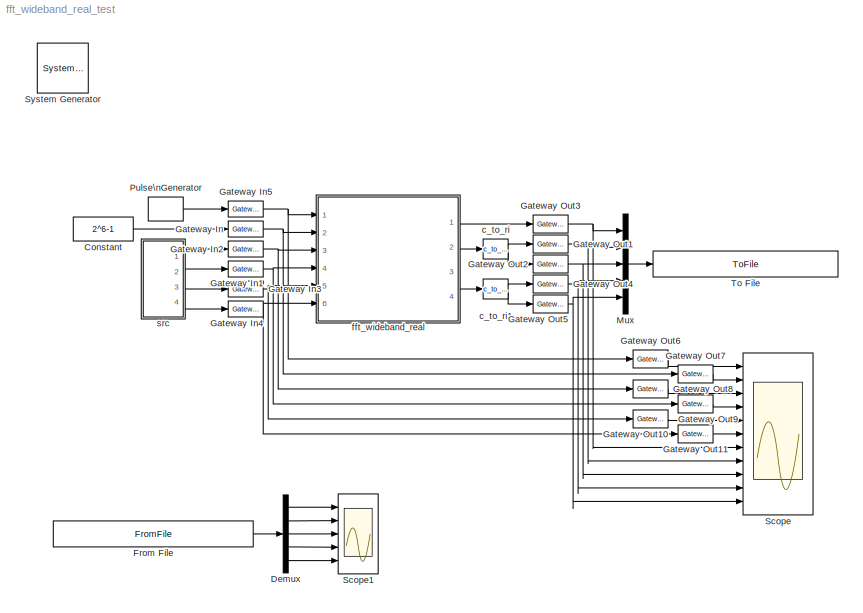
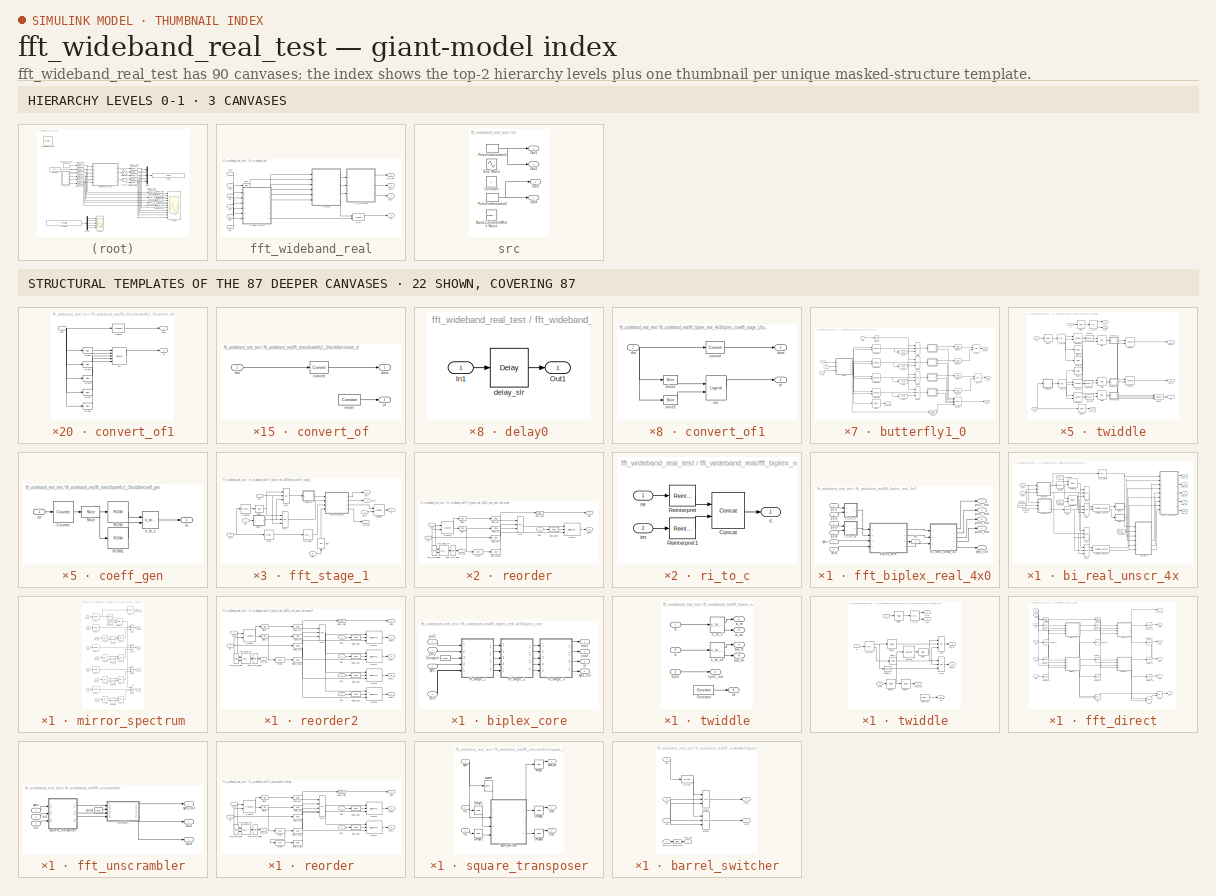
[diagram: thumbnail index - top-2 hierarchy levels (3 canvases) + 22 structural-template representatives of the remaining 87 canvases]
MODEL fft_wideband_real_test
KIND model
BLOCK [Reference]  System Generator  REF=xbsIndex_r4/ System Generator
  AttributesFormatString = System\\nGenerator
  FunctionWithSeparateData = off
  Ports = []
  RTWMemSecDataConstants = Inherit from model
  RTWMemSecDataInternal = Inherit from model
  RTWMemSecDataParameters = Inherit from model
  RTWMemSecFuncExecute = Inherit from model
  RTWMemSecFuncInitTerm = Inherit from model
  ShowPortLabels = FromPortIcon
  SourceBlock = xbsIndex_r4/ System Generator
  SourceType = Xilinx System Generator Block
  SystemSampleTime = -1
  Tag = genX
  UserData = DataTag0
  UserDataPersistent = on
  block_type = sysgen
  block_version = 10.1.1
  clock_wrapper = Clock Enables
  core_generation = According to Block Masks
  dbl_ovrd = According to Block Masks
  dcm_input_clock_period = 100
  deprecated_control = off
  directory = ./netlist
  eval_field = 0
  has_advanced_control = 0
  incr_netlist = off
  infoedit = System Generator
  package = ff668
  part = xc4vsx35
  run_coregen = off
  sg_icon_stat = 51,50,-1,-1,red,beige,0,07734,right
  sg_mask_display = fprintf('','COMMENT: begin icon graphics');\npatch([0 51 51 0 ],[0 0 50 50 ],[0.93 0.92 0.86]);\npatch([12 4 16 4 12 25 29 33 47 36 25 17 29 17 25 36 47 33 29 25 12 ],[5 13 25 37 45 45 41 45 45 34 45 37 25 13 5 16 5 5 9 5 5 ],[0.6 0.2 0.25]);\nplot([0 51 51 0 0 ],[0 0 50 50 0 ]);\nfprintf('','COMMENT: end icon graphics');\nfprintf('','COMMENT: begin icon text');\nfprintf('','COMMENT: end icon text...<+5ch>
  sggui_pos = -1,-1,-1,-1
  simulink_period = 1
  speed = -10
  synthesis_tool = XST
  sysclk_period = 100
  testbench = off
  trim_vbits = Everywhere in SubSystem
  xilinxfamily = Virtex4
BLOCK [Constant] Constant
  OutDataType = sfix(16)
  OutScaling = 2^0
  Value = 2^6-1
BLOCK [Demux] Demux
  DisplayOption = bar
  Outputs = 5
  Ports = [1, 5]
BLOCK [FromFile] From File
  FileName = fft_wideband_real_test_reference.mat
  SampleTime = 1
BLOCK [Reference] Gateway In  REF=xbsIndex_r4/Gateway In
  LOCs = {}
  Ports = [1, 1]
  SourceBlock = xbsIndex_r4/Gateway In
  SourceType = Xilinx Gateway In Block
  arith_type = Unsigned
  bin_pt = 0
  block_type = gatewayin
  block_version = 10.1.1
  dbl_ovrd = off
  has_advanced_control = 0
  infoedit = Gateway in block.  Converts inputs of type Simulink integer, double and fixed point to  Xilinx fixed point type.<P><P>Hardware notes:  In hardware these blocks become top level input ports.  <repeated x6 — deduplicated; at blocks: Gateway In, Gateway In1, Gateway In2, Gateway In3, Gateway In4, Gateway In5>
  locs_specified = off
  n_bits = 6
  overflow = Wrap
  period = 1
  quantization = Truncate
  sg_icon_stat = 35,16,1,1,white,yellow,0,bc55d28f,right
  sg_mask_display = fprintf('','COMMENT: begin icon graphics');\npatch([0 65 65 0 ],[0 0 20 20 ],[0.95 0.93 0.65]);\npatch([27 24 29 24 27 32 33 34 40 36 32 29 34 29 32 36 40 34 33 32 27 ],[2 5 10 15 18 18 17 18 18 14 18 15 10 5 2 6 2 2 3 2 2 ],[0.98 0.96 0.92]);\nplot([0 65 65 0 0 ],[0 0 20 20 0 ]);\nfprintf('','COMMENT: end icon graphics');\nfprintf('','COMMENT: begin icon text');\ncolor('black');port_label('input'...<+131ch>  <repeated x6 — deduplicated; at blocks: Gateway In, Gateway In1, Gateway In2, Gateway In3, Gateway In4, Gateway In5>
  sggui_pos = 2233,78,407,458
  timing_constraint = None
  xl_area = [0,0,0,0,0,0,0]
  xl_use_area = off
BLOCK [Reference] Gateway In1  REF=xbsIndex_r4/Gateway In
  LOCs = {}
  Ports = [1, 1]
  SourceBlock = xbsIndex_r4/Gateway In
  SourceType = Xilinx Gateway In Block
  arith_type = Signed  (2's comp)
  bin_pt = 11
  block_type = gatewayin
  block_version = 10.1.1
  dbl_ovrd = off
  has_advanced_control = 0
  locs_specified = off
  n_bits = 12
  overflow = Wrap
  period = 1
  quantization = Truncate
  sg_icon_stat = 35,16,1,1,white,yellow,0,bc55d28f,right
  sggui_pos = 1062,374,407,458
  timing_constraint = None
  xl_area = [0,0,0,0,0,0,0]
  xl_use_area = off
BLOCK [Reference] Gateway In2  REF=xbsIndex_r4/Gateway In
  LOCs = {}
  Ports = [1, 1]
  SourceBlock = xbsIndex_r4/Gateway In
  SourceType = Xilinx Gateway In Block
  arith_type = Signed  (2's comp)
  bin_pt = 11
  block_type = gatewayin
  block_version = 10.1.1
  dbl_ovrd = off
  has_advanced_control = 0
  locs_specified = off
  n_bits = 12
  overflow = Wrap
  period = 1
  quantization = Truncate
  sg_icon_stat = 35,16,1,1,white,yellow,0,bc55d28f,right
  sggui_pos = 1062,374,407,458
  timing_constraint = None
  xl_area = [0,0,0,0,0,0,0]
  xl_use_area = off
BLOCK [Reference] Gateway In3  REF=xbsIndex_r4/Gateway In
  LOCs = {}
  Ports = [1, 1]
  SourceBlock = xbsIndex_r4/Gateway In
  SourceType = Xilinx Gateway In Block
  arith_type = Signed  (2's comp)
  bin_pt = 11
  block_type = gatewayin
  block_version = 10.1.1
  dbl_ovrd = off
  has_advanced_control = 0
  locs_specified = off
  n_bits = 12
  overflow = Wrap
  period = 1
  quantization = Truncate
  sg_icon_stat = 35,16,1,1,white,yellow,0,bc55d28f,right
  sggui_pos = 1062,374,407,458
  timing_constraint = None
  xl_area = [0,0,0,0,0,0,0]
  xl_use_area = off
BLOCK [Reference] Gateway In4  REF=xbsIndex_r4/Gateway In
  LOCs = {}
  Ports = [1, 1]
  SourceBlock = xbsIndex_r4/Gateway In
  SourceType = Xilinx Gateway In Block
  arith_type = Signed  (2's comp)
  bin_pt = 11
  block_type = gatewayin
  block_version = 10.1.1
  dbl_ovrd = off
  has_advanced_control = 0
  locs_specified = off
  n_bits = 12
  overflow = Wrap
  period = 1
  quantization = Truncate
  sg_icon_stat = 35,16,1,1,white,yellow,0,bc55d28f,right
  sggui_pos = 1062,374,407,458
  timing_constraint = None
  xl_area = [0,0,0,0,0,0,0]
  xl_use_area = off
BLOCK [Reference] Gateway In5  REF=xbsIndex_r4/Gateway In
  LOCs = {}
  Ports = [1, 1]
  SourceBlock = xbsIndex_r4/Gateway In
  SourceType = Xilinx Gateway In Block
  arith_type = Boolean
  bin_pt = 14
  block_type = gatewayin
  block_version = 10.1.1
  dbl_ovrd = off
  has_advanced_control = 0
  locs_specified = off
  n_bits = 16
  overflow = Saturate
  period = 1
  quantization = Round  (unbiased: +/- Inf)
  sg_icon_stat = 35,16,1,1,white,yellow,0,bc55d28f,right
  sggui_pos = 20,20,407,458
  timing_constraint = None
  xl_area = [0,0,0,0,0,0,0]
  xl_use_area = off
BLOCK [Reference] Gateway Out1  REF=xbsIndex_r4/Gateway Out
  LOCs = {}
  Ports = [1, 1]
  SourceBlock = xbsIndex_r4/Gateway Out
  SourceType = Xilinx Gateway Out Block
  block_type = gatewayout
  block_version = 10.1.1
  has_advanced_control = 0
  hdl_port = on
  infoedit = Gateway out block.  Converts Xilinx fixed point inputs into ouputs of type Simulink integer, double, or fixed point.<P><P>Hardware notes:  In hardware these blocks become top level output ports or are discarded, depending on how they are configured.  <repeated x11 — deduplicated; at blocks: Gateway Out1, Gateway Out10, Gateway Out11, Gateway Out2, Gateway Out3, Gateway Out4, Gateway Out5, Gateway Out6, Gateway Out7, Gateway Out8, Gateway Out9>
  locs_specified = off
  sg_icon_stat = 35,18,1,1,white,yellow,0,38220381,right
  sg_mask_display = fprintf('','COMMENT: begin icon graphics');\npatch([0 35 35 0 ],[0 0 18 18 ],[0.95 0.93 0.65]);\npatch([13 10 14 10 13 18 19 20 25 21 17 14 18 14 17 21 25 20 19 18 13 ],[2 5 9 13 16 16 15 16 16 12 16 13 9 5 2 6 2 2 3 2 2 ],[0.98 0.96 0.92]);\nplot([0 35 35 0 0 ],[0 0 18 18 0 ]);\nfprintf('','COMMENT: end icon graphics');\nfprintf('','COMMENT: begin icon text');\ncolor('black');port_label('input',1...<+130ch>  <repeated x11 — deduplicated; at blocks: Gateway Out1, Gateway Out10, Gateway Out11, Gateway Out2, Gateway Out3, Gateway Out4, Gateway Out5, Gateway Out6, Gateway Out7, Gateway Out8, Gateway Out9>
  sggui_pos = -1,-1,-1,-1
  timing_constraint = None
  xl_area = [0,0,0,0,0,0,0]
  xl_use_area = off
BLOCK [Reference] Gateway Out10  REF=xbsIndex_r4/Gateway Out
  LOCs = {}
  Ports = [1, 1]
  SourceBlock = xbsIndex_r4/Gateway Out
  SourceType = Xilinx Gateway Out Block
  block_type = gatewayout
  block_version = 10.1.1
  has_advanced_control = 0
  hdl_port = on
  locs_specified = off
  sg_icon_stat = 35,18,1,1,white,yellow,0,38220381,right
  sggui_pos = -1,-1,-1,-1
  timing_constraint = None
  xl_area = [0,0,0,0,0,0,0]
  xl_use_area = off
BLOCK [Reference] Gateway Out11  REF=xbsIndex_r4/Gateway Out
  LOCs = {}
  Ports = [1, 1]
  SourceBlock = xbsIndex_r4/Gateway Out
  SourceType = Xilinx Gateway Out Block
  block_type = gatewayout
  block_version = 10.1.1
  has_advanced_control = 0
  hdl_port = on
  locs_specified = off
  sg_icon_stat = 35,18,1,1,white,yellow,0,38220381,right
  sggui_pos = -1,-1,-1,-1
  timing_constraint = None
  xl_area = [0,0,0,0,0,0,0]
  xl_use_area = off
BLOCK [Reference] Gateway Out2  REF=xbsIndex_r4/Gateway Out
  LOCs = {}
  Ports = [1, 1]
  SourceBlock = xbsIndex_r4/Gateway Out
  SourceType = Xilinx Gateway Out Block
  block_type = gatewayout
  block_version = 10.1.1
  has_advanced_control = 0
  hdl_port = on
  locs_specified = off
  sg_icon_stat = 35,18,1,1,white,yellow,0,38220381,right
  sggui_pos = -1,-1,-1,-1
  timing_constraint = None
  xl_area = [0,0,0,0,0,0,0]
  xl_use_area = off
BLOCK [Reference] Gateway Out3  REF=xbsIndex_r4/Gateway Out
  LOCs = {}
  Ports = [1, 1]
  SourceBlock = xbsIndex_r4/Gateway Out
  SourceType = Xilinx Gateway Out Block
  block_type = gatewayout
  block_version = 10.1.1
  has_advanced_control = 0
  hdl_port = on
  locs_specified = off
  sg_icon_stat = 35,18,1,1,white,yellow,0,38220381,right
  sggui_pos = -1,-1,-1,-1
  timing_constraint = None
  xl_area = [0,0,0,0,0,0,0]
  xl_use_area = off
BLOCK [Reference] Gateway Out4  REF=xbsIndex_r4/Gateway Out
  LOCs = {}
  Ports = [1, 1]
  SourceBlock = xbsIndex_r4/Gateway Out
  SourceType = Xilinx Gateway Out Block
  block_type = gatewayout
  block_version = 10.1.1
  has_advanced_control = 0
  hdl_port = on
  locs_specified = off
  sg_icon_stat = 35,18,1,1,white,yellow,0,38220381,right
  sggui_pos = -1,-1,-1,-1
  timing_constraint = None
  xl_area = [0,0,0,0,0,0,0]
  xl_use_area = off
BLOCK [Reference] Gateway Out5  REF=xbsIndex_r4/Gateway Out
  LOCs = {}
  Ports = [1, 1]
  SourceBlock = xbsIndex_r4/Gateway Out
  SourceType = Xilinx Gateway Out Block
  block_type = gatewayout
  block_version = 10.1.1
  has_advanced_control = 0
  hdl_port = on
  locs_specified = off
  sg_icon_stat = 35,18,1,1,white,yellow,0,38220381,right
  sggui_pos = -1,-1,-1,-1
  timing_constraint = None
  xl_area = [0,0,0,0,0,0,0]
  xl_use_area = off
BLOCK [Reference] Gateway Out6  REF=xbsIndex_r4/Gateway Out
  LOCs = {}
  Ports = [1, 1]
  SourceBlock = xbsIndex_r4/Gateway Out
  SourceType = Xilinx Gateway Out Block
  block_type = gatewayout
  block_version = 10.1.1
  has_advanced_control = 0
  hdl_port = on
  locs_specified = off
  sg_icon_stat = 35,18,1,1,white,yellow,0,38220381,right
  sggui_pos = -1,-1,-1,-1
  timing_constraint = None
  xl_area = [0,0,0,0,0,0,0]
  xl_use_area = off
BLOCK [Reference] Gateway Out7  REF=xbsIndex_r4/Gateway Out
  LOCs = {}
  Ports = [1, 1]
  SourceBlock = xbsIndex_r4/Gateway Out
  SourceType = Xilinx Gateway Out Block
  block_type = gatewayout
  block_version = 10.1.1
  has_advanced_control = 0
  hdl_port = on
  locs_specified = off
  sg_icon_stat = 35,18,1,1,white,yellow,0,38220381,right
  sggui_pos = -1,-1,-1,-1
  timing_constraint = None
  xl_area = [0,0,0,0,0,0,0]
  xl_use_area = off
BLOCK [Reference] Gateway Out8  REF=xbsIndex_r4/Gateway Out
  LOCs = {}
  Ports = [1, 1]
  SourceBlock = xbsIndex_r4/Gateway Out
  SourceType = Xilinx Gateway Out Block
  block_type = gatewayout
  block_version = 10.1.1
  has_advanced_control = 0
  hdl_port = on
  locs_specified = off
  sg_icon_stat = 35,18,1,1,white,yellow,0,38220381,right
  sggui_pos = -1,-1,-1,-1
  timing_constraint = None
  xl_area = [0,0,0,0,0,0,0]
  xl_use_area = off
BLOCK [Reference] Gateway Out9  REF=xbsIndex_r4/Gateway Out
  LOCs = {}
  Ports = [1, 1]
  SourceBlock = xbsIndex_r4/Gateway Out
  SourceType = Xilinx Gateway Out Block
  block_type = gatewayout
  block_version = 10.1.1
  has_advanced_control = 0
  hdl_port = on
  locs_specified = off
  sg_icon_stat = 35,18,1,1,white,yellow,0,38220381,right
  sggui_pos = -1,-1,-1,-1
  timing_constraint = None
  xl_area = [0,0,0,0,0,0,0]
  xl_use_area = off
BLOCK [Mux] Mux
  DisplayOption = bar
  Inputs = 5
  Ports = [5, 1]
BLOCK [DiscretePulseGenerator] Pulse\nGenerator
  Period = 2^6
  PhaseDelay = 13
  Ports = [0, 1]
BLOCK [Scope] Scope
  DataFormat = StructureWithTime
  Floating = off
  NumInputPorts = 11
  Ports = [11]
  SampleTime = 0
  TimeRange = 256
  YMax = 5~5~5~5~5~5~5~5~5~5~5
  YMin = -5~-5~-5~-5~-5~-5~-5~-5~-5~-5~-5
  ZoomMode = xonly
BLOCK [Scope] Scope1
  DataFormat = StructureWithTime
  Floating = off
  NumInputPorts = 5
  Ports = [5]
  SampleTime = 0
  SaveName = ScopeData1
  YMax = 5~5~5~5~5
  YMin = -5~-5~-5~-5~-5
BLOCK [ToFile] To File
  Filename = fft_wideband_real_test_output.mat
  MatrixName = output
BLOCK [Reference] c_to_ri  REF=casper_library/Misc/c_to_ri  (lib defined in mdl_138b2fc3435f, mdl_4ed325b712b3, +2 more)
  AttributesFormatString = 12_11 r/i
  FunctionWithSeparateData = off
  Ports = [1, 2]
  RTWMemSecDataConstants = Inherit from model
  RTWMemSecDataInternal = Inherit from model
  RTWMemSecDataParameters = Inherit from model
  RTWMemSecFuncExecute = Inherit from model
  RTWMemSecFuncInitTerm = Inherit from model
  ShowPortLabels = FromPortIcon
  SourceBlock = casper_library/Misc/c_to_ri
  SourceType = c_to_ri
  SystemSampleTime = -1
  UserData = DataTag1
  UserDataPersistent = on
  bin_pt = 11
  n_bits = 12
BLOCK [Reference] c_to_ri1  REF=casper_library/Misc/c_to_ri  (lib defined in mdl_138b2fc3435f, mdl_4ed325b712b3, +2 more)
  AttributesFormatString = 12_11 r/i
  FunctionWithSeparateData = off
  Ports = [1, 2]
  RTWMemSecDataConstants = Inherit from model
  RTWMemSecDataInternal = Inherit from model
  RTWMemSecDataParameters = Inherit from model
  RTWMemSecFuncExecute = Inherit from model
  RTWMemSecFuncInitTerm = Inherit from model
  ShowPortLabels = FromPortIcon
  SourceBlock = casper_library/Misc/c_to_ri
  SourceType = c_to_ri
  SystemSampleTime = -1
  UserData = DataTag2
  UserDataPersistent = on
  bin_pt = 11
  n_bits = 12
BLOCK [SubSystem] fft_wideband_real
  AncestorBlock = casper_library/FFTs/fft_wideband_real
  AttributesFormatString = FFTSize=5
  FunctionWithSeparateData = off
  MaskCallbackString = fft_size = eval(get_param(gcb, 'FFTSize'));\nold_vec = eval(get_param(gcb, 'mult_spec'));\n\nvec = 2.*ones(1,fft_size);\nold_size = length(old_vec);\n\nif(old_size <= fft_size), \n    size = old_size;\nelse, \n    size = fft_size;\nend\n\nfor n = 1:size, vec(n) = old_vec(n); end\nset_param(gcb, 'mult_spec', mat2str(vec));|||||||||||||specify_mult = get_param(gcb,'specify_mult');\nvisibs = get_para...<+578ch>
  MaskEnableString = on,on,on,on,on,on,on,on,on,on,on,on,on,on,on
  MaskHelp = eval('xlWeb([getenv(''MLIB_ROOT''), ''<path>''])')
  MaskIconFrame = on
  MaskIconOpaque = on
  MaskIconRotate = none
  MaskIconUnits = autoscale
  MaskInitialization = fft_wideband_real_init(gcb,...\n    'FFTSize', FFTSize,...\n    'input_bit_width', input_bit_width,...\n    'coeff_bit_width', coeff_bit_width,...\n    'n_inputs', n_inputs,...\n    'quantization', quantization,...\n    'overflow', overflow,...\n    'add_latency', add_latency,...\n    'mult_latency', mult_latency,...\n    'bram_latency', bram_latency,...\n    'arch', arch, ...\n    'opt_target', o...<+180ch>
  MaskPromptString = Size of FFT: (2^?)|Input/Output Bit Width|Coefficient Bit Width|Number of Simultaneous Inputs: (2^?)|Quantization Behavior|Overflow Behavior|Add Latency|Mult Latency|BRAM Latency|Architecture|Optimisation Target|Number bits above which to store stage's coefficients in BRAM (2^? bits)|Number bits above which to store stage's delays in BRAM (2^? bits)|Specify multiplier use (behavioral HDL if not sp...<+86ch>
  MaskSelfModifiable = on
  MaskStyleString = edit,edit,edit,edit,popup(Truncate|Round  (unbiased: +/- Inf)|Round  (unbiased: Even Values)),popup(Wrap|Saturate|Error),edit,edit,edit,popup(Virtex2Pro|Virtex5),popup(Logic|Multipliers),edit,edit,checkbox,edit
  MaskTabNameString = ,,,,,,,,,,,,,,
  MaskToolTipString = on,on,on,on,on,on,on,on,on,on,on,on,on,on,on
  MaskTunableValueString = on,on,on,on,on,on,on,on,on,on,on,on,on,on,on
  MaskType = fft_wideband_real
  MaskValueString = 5|12|12|2|Round  (unbiased: Even Values)|Saturate|1|2|1|Virtex2Pro|Multipliers|8|8|off|[2 2 2 2 2]
  MaskVarAliasString = ,,,,,,,,,,,,,,
  MaskVariables = FFTSize=@1;input_bit_width=@2;coeff_bit_width=@3;n_inputs=@4;quantization=&5;overflow=&6;add_latency=@7;mult_latency=@8;bram_latency=@9;arch=&10;opt_target=&11;coeffs_bit_limit=@12;delays_bit_limit=@13;specify_mult=&14;mult_spec=@15;
  MaskVisibilityString = on,on,on,on,on,on,on,on,on,on,on,on,on,on,off
  MinAlgLoopOccurrences = off
  Ports = [6, 4]
  RTWSystemCode = Auto
  UserData = DataTag3
  UserDataPersistent = on
BLOCK [SubSystem] fft_wideband_real/fft_biplex_real_4x0
  AncestorBlock = casper_library/FFTs/fft_biplex_real_4x
  AttributesFormatString = FFTSize=3
  FunctionWithSeparateData = off
  MaskCallbackString = fft_size = eval(get_param(gcb, 'FFTSize'));\nold_vec = eval(get_param(gcb, 'mult_spec'));\n\nvec = 2.*ones(1,fft_size);\nold_size = length(old_vec);\n\nif(old_size <= fft_size), \n    size = old_size;\nelse, \n    size = fft_size;\nend\n\nfor n = 1:size, vec(n) = old_vec(n); end\nset_param(gcb, 'mult_spec', mat2str(vec));||||||||||||specify_mult = get_param(gcb,'specify_mult');\nvisibs = get_param...<+577ch>
  MaskEnableString = on,on,on,on,on,on,on,on,on,on,on,on,on,on
  MaskHelp = eval('xlWeb([getenv(''MLIB_ROOT''), ''<path>''])')
  MaskIconFrame = on
  MaskIconOpaque = on
  MaskIconRotate = none
  MaskIconUnits = autoscale
  MaskInitialization = fft_biplex_real_4x_init(gcb, ...\n    'FFTSize', FFTSize, ...\n    'input_bit_width', input_bit_width, ...\n    'coeff_bit_width', coeff_bit_width, ...\n    'quantization', quantization, ...\n    'overflow', overflow, ...\n    'add_latency', add_latency, ...\n    'mult_latency', mult_latency, ...\n    'bram_latency', bram_latency, ...\n    'arch', arch, ...\n    'opt_target', opt_target, ...\n    ...<+165ch>
  MaskPromptString = Size of FFT: (2^? pnts)|Input/Output Bit Width|Coefficient Bit Width|Quantization Behavior|Overflow Behavior|Add Latency|Mult Latency|BRAM Latency|Architecture|Optimisation Target|Number bits above which to store stage's coefficients in BRAM (2^? bits)|Number bits above which to implement stage's delays in BRAM (2^? bits)|Specify multiplier use (behavioral HDL if not specified)|Multiplier specific...<+58ch>
  MaskSelfModifiable = on
  MaskStyleString = edit,edit,edit,popup(Truncate|Round  (unbiased: +/- Inf)|Round  (unbiased: Even Values)),popup(Wrap|Saturate|Error),edit,edit,edit,popup(Virtex2Pro|Virtex5),popup(Logic|Multipliers),edit,edit,checkbox,edit
  MaskTabNameString = ,,,,,,,,,,,,,
  MaskToolTipString = on,on,on,on,on,on,on,on,on,on,on,on,on,on
  MaskTunableValueString = on,on,on,on,on,on,on,on,on,on,on,on,on,on
  MaskType = fft_biplex_real_4x
  MaskValueString = 3|12|12|Round  (unbiased: Even Values)|Saturate|1|2|1|Virtex2Pro|Multipliers|8|8|off|[2 2 2]
  MaskVarAliasString = ,,,,,,,,,,,,,
  MaskVariables = FFTSize=@1;input_bit_width=@2;coeff_bit_width=@3;quantization=&4;overflow=&5;add_latency=@6;mult_latency=@7;bram_latency=@8;arch=&9;opt_target=&10;coeffs_bit_limit=@11;delays_bit_limit=@12;specify_mult=&13;mult_spec=@14;
  MaskVisibilityString = on,on,on,on,on,on,on,on,on,on,on,on,on,on
  MinAlgLoopOccurrences = off
  Ports = [6, 6]
  RTWSystemCode = Auto
  UserData = DataTag4
  UserDataPersistent = on
BLOCK [SubSystem] fft_wideband_real/fft_biplex_real_4x0/bi_real_unscr_4x
  FunctionWithSeparateData = off
  MaskCallbackString = |
  MaskEnableString = on,on
  MaskIconFrame = on
  MaskIconOpaque = on
  MaskIconRotate = none
  MaskIconUnits = autoscale
  MaskInitialization = blk = gcb;\n\nset_param([blk,'/reorder'],'map', mat2str(bit_reverse(0:2^(FFTSize-1)-1, FFTSize-1)));\nset_param([blk,'/reorder'],'bram_latency', num2str(bram_latency));\nset_param([blk,'/reorder1'],'map', mat2str(bit_reverse(2^(FFTSize-1)-1:-1:0, FFTSize-1)));\nset_param([blk,'/reorder1'],'bram_latency', num2str(bram_latency));\nset_param([blk,'/reorder2'],'map', mat2str(2^(FFTSize-1)-1:-1:0));\ns...<+66ch>
  MaskPromptString = Size of FFT (2^?):|BRAM Latency
  MaskStyleString = edit,edit
  MaskTabNameString = ,
  MaskToolTipString = on,on
  MaskTunableValueString = on,on
  MaskValueString = 3|1
  MaskVarAliasString = ,
  MaskVariables = FFTSize=@1;bram_latency=@2;
  MaskVisibilityString = on,on
  MinAlgLoopOccurrences = off
  Ports = [3, 5]
  RTWSystemCode = Auto
BLOCK [Reference] fft_wideband_real/fft_biplex_real_4x0/bi_real_unscr_4x/Constant  REF=xbsIndex_r4/Constant
  Ports = [0, 1]
  SourceBlock = xbsIndex_r4/Constant
  SourceType = Xilinx Constant Block Block
  arith_type = Boolean
  bin_pt = 0
  block_type = constant
  block_version = 9.1.01
  carry = CIN
  const = 1
  dbl_ovrd = off
  dsp48_infoedit = The use of this block for DSP48 instructions is deprecated.  Please use the Opmode block.
  equ = P=C
  explicit_period = on
  has_advanced_control = 0
  inp1 = P
  inp2 = PCIN>>17
  n_bits = 1
  opr = +
  opselect = C
  period = 1
  sg_icon_stat = 40,20,0,1,white,blue,0,06094819,right
  sg_mask_display = fprintf('','COMMENT: begin icon graphics');\npatch([0 55 55 0 ],[0 0 26 26 ],[0.77 0.82 0.91]);\npatch([20 16 22 16 20 27 29 31 38 32 26 22 28 22 26 32 38 31 29 27 20 ],[3 7 13 19 23 23 21 23 23 17 23 19 13 7 3 9 3 3 5 3 3 ],[0.98 0.96 0.92]);\nplot([0 55 55 0 0 ],[0 0 26 26 0 ]);\nfprintf('','COMMENT: end icon graphics');\nfprintf('','COMMENT: begin icon text');\ncolor('black');port_label('output...<+50ch>  <repeated x23 — deduplicated; at blocks: Constant, Constant1, Constant2, Constant5, Constant3, never, const>
  sggui_pos = -1,-1,-1,-1
BLOCK [Reference] fft_wideband_real/fft_biplex_real_4x0/bi_real_unscr_4x/Constant1  REF=xbsIndex_r4/Constant
  Ports = [0, 1]
  SourceBlock = xbsIndex_r4/Constant
  SourceType = Xilinx Constant Block Block
  arith_type = Unsigned
  bin_pt = 0
  block_type = constant
  block_version = 9.1.01
  carry = CIN
  const = 2^(FFTSize-1)
  dbl_ovrd = off
  dsp48_infoedit = The use of this block for DSP48 instructions is deprecated.  Please use the Opmode block.
  equ = P=C
  explicit_period = on
  has_advanced_control = 0
  inp1 = P
  inp2 = PCIN>>17
  n_bits = FFTSize
  opr = +
  opselect = C
  period = 1
  sg_icon_stat = 35,18,0,1,white,blue,0,b20b18e0,right
  sggui_pos = -1,-1,-1,-1
BLOCK [Reference] fft_wideband_real/fft_biplex_real_4x0/bi_real_unscr_4x/Constant2  REF=xbsIndex_r4/Constant
  Ports = [0, 1]
  SourceBlock = xbsIndex_r4/Constant
  SourceType = Xilinx Constant Block Block
  arith_type = Unsigned
  bin_pt = 0
  block_type = constant
  block_version = 9.1.01
  carry = CIN
  const = 0
  dbl_ovrd = off
  dsp48_infoedit = The use of this block for DSP48 instructions is deprecated.  Please use the Opmode block.
  equ = P=C
  explicit_period = on
  has_advanced_control = 0
  inp1 = P
  inp2 = PCIN>>17
  n_bits = FFTSize
  opr = +
  opselect = C
  period = 1
  sg_icon_stat = 35,18,0,1,white,blue,0,72d575a1,right
  sggui_pos = -1,-1,-1,-1
BLOCK [Reference] fft_wideband_real/fft_biplex_real_4x0/bi_real_unscr_4x/Constant5  REF=xbsIndex_r4/Constant
  Ports = [0, 1]
  SourceBlock = xbsIndex_r4/Constant
  SourceType = Xilinx Constant Block Block
  arith_type = Boolean
  bin_pt = 0
  block_type = constant
  block_version = 9.1.01
  carry = CIN
  const = 1
  dbl_ovrd = off
  dsp48_infoedit = The use of this block for DSP48 instructions is deprecated.  Please use the Opmode block.
  equ = P=C
  explicit_period = on
  has_advanced_control = 0
  inp1 = P
  inp2 = PCIN>>17
  n_bits = 1
  opr = +
  opselect = C
  period = 1
  sg_icon_stat = 40,20,0,1,white,blue,0,06094819,right
  sggui_pos = -1,-1,-1,-1
BLOCK [Reference] fft_wideband_real/fft_biplex_real_4x0/bi_real_unscr_4x/Counter  REF=xbsIndex_r4/Counter
  Ports = [1, 1]
  SourceBlock = xbsIndex_r4/Counter
  SourceType = Xilinx Counter Block
  arith_type = Unsigned
  bin_pt = 0
  block_type = counter
  block_version = 9.1.01
  cnt_by_val = 1
  cnt_to = Inf
  cnt_type = Free Running
  dbl_ovrd = off
  en = off
  explicit_period = off
  has_advanced_control = 0
  implementation = Fabric
  infoedit = Hardware notes: Free running counters are the least expensive in hardware.  A count limited counter is implemented by combining a counter with a comparator.
  load_pin = off
  n_bits = FFTSize
  operation = Up
  period = 1
  rst = on
  sg_icon_stat = 35,36,1,1,white,blue,0,300e9576,right
  sg_mask_display = fprintf('','COMMENT: begin icon graphics');\npatch([0 60 60 0 ],[0 0 60 60 ],[0.77 0.82 0.91]);\npatch([14 4 18 4 14 30 34 38 55 42 29 20 35 20 29 42 55 38 34 30 14 ],[6 16 30 44 54 54 50 54 54 41 54 45 30 15 6 19 6 6 10 6 6 ],[0.98 0.96 0.92]);\nplot([0 60 60 0 0 ],[0 0 60 60 0 ]);\nfprintf('','COMMENT: end icon graphics');\nfprintf('','COMMENT: begin icon text');\ncolor('black');port_label('inpu...<+99ch>  <repeated x12 — deduplicated; at blocks: Counter, counter>
  sggui_pos = -1,-1,-1,-1
  start_count = 0
  use_behavioral_HDL = off
  use_rpm = on
  xl_area = [0, 0, 0, 0, 0, 0, 0]
  xl_use_area = off
BLOCK [Reference] fft_wideband_real/fft_biplex_real_4x0/bi_real_unscr_4x/Delay  REF=xbsIndex_r4/Delay
  Ports = [1, 1]
  SourceBlock = xbsIndex_r4/Delay
  SourceType = Xilinx Delay Block
  block_type = delay
  block_version = 9.1.01
  dbl_ovrd = off
  en = off
  has_advanced_control = 0
  infoedit = Hardware notes: A delay line is a chain, each link of which is an SRL16 followed by a flip-flop.
  latency = 1
  reg_retiming = off
  sg_icon_stat = 30,32,1,1,white,blue,0,fc531c0e,right
  sg_mask_display = fprintf('','COMMENT: begin icon graphics');\npatch([0 60 60 0 ],[0 0 56 56 ],[0.77 0.82 0.91]);\npatch([15 6 19 6 15 30 34 38 54 41 29 20 32 20 29 41 54 38 34 30 15 ],[6 15 28 41 50 50 46 50 50 37 49 40 28 16 7 19 6 6 10 6 6 ],[0.98 0.96 0.92]);\nplot([0 60 60 0 0 ],[0 0 56 56 0 ]);\nfprintf('','COMMENT: end icon graphics');\nfprintf('','COMMENT: begin icon text');\ncolor('black');disp('z^{-1}','t...<+55ch>  <repeated x71 — deduplicated; at blocks: Delay, Delay1, delay_din0, delay_din1, delay_din2, delay_din3, Delay2, Delay3, Delay4, Delay5, delay_slr, Delayb1, Delayf2, Delay_sync, delay0>
  sggui_pos = -1,-1,-1,-1
  xl_area = [0, 0, 0, 0, 0, 0, 0]
  xl_use_area = off
BLOCK [Reference] fft_wideband_real/fft_biplex_real_4x0/bi_real_unscr_4x/Mux  REF=xbsIndex_r4/Mux
  Ports = [3, 1]
  SourceBlock = xbsIndex_r4/Mux
  SourceType = Xilinx Bus Multiplexer Block
  arith_type = Signed  (2's comp)
  bin_pt = 2
  block_type = mux
  block_version = 9.1.01
  dbl_ovrd = off
  en = off
  has_advanced_control = 0
  inputs = 2
  latency = 1
  n_bits = 8
  overflow = Wrap
  precision = Full
  quantization = Truncate
  sg_icon_stat = 25,66,3,1,white,blue,3,03f9c9b9,right
  sg_mask_display = fprintf('','COMMENT: begin icon graphics');\npatch([0 45 45 0 ],[0 14.8571 89.1429 104 ],[0.77 0.82 0.91]);\npatch([10 3 14 3 10 22 25 28 41 31 21 14 25 14 21 31 41 28 25 22 10 ],[34 41 52 63 70 70 67 70 70 60 70 63 52 41 34 44 34 34 37 34 34 ],[0.98 0.96 0.92]);\nplot([0 45 45 0 0 ],[0 14.8571 89.1429 104 0 ]);\nfprintf('','COMMENT: end icon graphics');\nfprintf('','COMMENT: begin icon text');\nc...<+226ch>  <repeated x49 — deduplicated; at blocks: Mux, Mux1, Mux2, Mux3, Mux11, Mux21>
  sggui_pos = -1,-1,-1,-1
  xl_area = [0, 0, 0, 0, 0, 0, 0]
  xl_use_area = off
BLOCK [Reference] fft_wideband_real/fft_biplex_real_4x0/bi_real_unscr_4x/Mux1  REF=xbsIndex_r4/Mux
  Ports = [3, 1]
  SourceBlock = xbsIndex_r4/Mux
  SourceType = Xilinx Bus Multiplexer Block
  arith_type = Signed  (2's comp)
  bin_pt = 2
  block_type = mux
  block_version = 9.1.01
  dbl_ovrd = off
  en = off
  has_advanced_control = 0
  inputs = 2
  latency = 1
  n_bits = 8
  overflow = Wrap
  precision = Full
  quantization = Truncate
  sg_icon_stat = 25,66,3,1,white,blue,3,03f9c9b9,right
  sggui_pos = -1,-1,-1,-1
  xl_area = [0, 0, 0, 0, 0, 0, 0]
  xl_use_area = off
BLOCK [Reference] fft_wideband_real/fft_biplex_real_4x0/bi_real_unscr_4x/Mux2  REF=xbsIndex_r4/Mux
  Ports = [3, 1]
  SourceBlock = xbsIndex_r4/Mux
  SourceType = Xilinx Bus Multiplexer Block
  arith_type = Signed  (2's comp)
  bin_pt = 2
  block_type = mux
  block_version = 9.1.01
  dbl_ovrd = off
  en = off
  has_advanced_control = 0
  inputs = 2
  latency = 1
  n_bits = 8
  overflow = Wrap
  precision = Full
  quantization = Truncate
  sg_icon_stat = 25,66,3,1,white,blue,3,03f9c9b9,right
  sggui_pos = -1,-1,-1,-1
  xl_area = [0, 0, 0, 0, 0, 0, 0]
  xl_use_area = off
BLOCK [Reference] fft_wideband_real/fft_biplex_real_4x0/bi_real_unscr_4x/Mux3  REF=xbsIndex_r4/Mux
  Ports = [3, 1]
  SourceBlock = xbsIndex_r4/Mux
  SourceType = Xilinx Bus Multiplexer Block
  arith_type = Signed  (2's comp)
  bin_pt = 2
  block_type = mux
  block_version = 9.1.01
  dbl_ovrd = off
  en = off
  has_advanced_control = 0
  inputs = 2
  latency = 1
  n_bits = 8
  overflow = Wrap
  precision = Full
  quantization = Truncate
  sg_icon_stat = 25,66,3,1,white,blue,3,03f9c9b9,right
  sggui_pos = -1,-1,-1,-1
  xl_area = [0, 0, 0, 0, 0, 0, 0]
  xl_use_area = off
BLOCK [Reference] fft_wideband_real/fft_biplex_real_4x0/bi_real_unscr_4x/Relational  REF=xbsIndex_r4/Relational
  Ports = [2, 1]
  SourceBlock = xbsIndex_r4/Relational
  SourceType = Xilinx Arithmetic Relational Operator Block
  block_type = relational
  block_version = 9.1.01
  dbl_ovrd = off
  en = off
  has_advanced_control = 0
  latency = 0
  mode = a=b
  sg_icon_stat = 45,44,2,1,white,blue,0,1b68ef8e,right
  sg_mask_display = fprintf('','COMMENT: begin icon graphics');\npatch([0 55 55 0 ],[0 0 56 56 ],[0.77 0.82 0.91]);\npatch([13 4 17 4 13 28 32 36 52 40 28 19 32 19 28 40 52 36 32 28 13 ],[6 15 28 41 50 50 46 50 50 38 50 41 28 15 6 18 6 6 10 6 6 ],[0.98 0.96 0.92]);\nplot([0 55 55 0 0 ],[0 0 56 56 0 ]);\nfprintf('','COMMENT: end icon graphics');\nfprintf('','COMMENT: begin icon text');\ncolor('black');port_label('inpu...<+168ch>  <repeated x3 — deduplicated; at blocks: Relational, Relational1>
  sggui_pos = -1,-1,-1,-1
  xl_area = [0, 0, 0, 0, 0, 0, 0]
  xl_use_area = off
BLOCK [Reference] fft_wideband_real/fft_biplex_real_4x0/bi_real_unscr_4x/Relational1  REF=xbsIndex_r4/Relational
  Ports = [2, 1]
  SourceBlock = xbsIndex_r4/Relational
  SourceType = Xilinx Arithmetic Relational Operator Block
  block_type = relational
  block_version = 9.1.01
  dbl_ovrd = off
  en = off
  has_advanced_control = 0
  latency = 0
  mode = a=b
  sg_icon_stat = 45,44,2,1,white,blue,0,1b68ef8e,right
  sggui_pos = -1,-1,-1,-1
  xl_area = [0, 0, 0, 0, 0, 0, 0]
  xl_use_area = off
BLOCK [Reference] fft_wideband_real/fft_biplex_real_4x0/bi_real_unscr_4x/complex_addsub  REF=casper_library/Misc/complex_addsub  (lib defined in mdl_138b2fc3435f, mdl_4ed325b712b3, +2 more)
  BitWidth = input_bit_width
  FunctionWithSeparateData = off
  Ports = [2, 2]
  RTWMemSecDataConstants = Inherit from model
  RTWMemSecDataInternal = Inherit from model
  RTWMemSecDataParameters = Inherit from model
  RTWMemSecFuncExecute = Inherit from model
  RTWMemSecFuncInitTerm = Inherit from model
  ShowPortLabels = FromPortIcon
  SourceBlock = casper_library/Misc/complex_addsub
  SourceType = complex_addsub
  SystemSampleTime = -1
  add_latency = add_latency
BLOCK [Reference] fft_wideband_real/fft_biplex_real_4x0/bi_real_unscr_4x/complex_addsub1  REF=casper_library/Misc/complex_addsub  (lib defined in mdl_138b2fc3435f, mdl_4ed325b712b3, +2 more)
  BitWidth = input_bit_width
  FunctionWithSeparateData = off
  Ports = [2, 2]
  RTWMemSecDataConstants = Inherit from model
  RTWMemSecDataInternal = Inherit from model
  RTWMemSecDataParameters = Inherit from model
  RTWMemSecFuncExecute = Inherit from model
  RTWMemSecFuncInitTerm = Inherit from model
  ShowPortLabels = FromPortIcon
  SourceBlock = casper_library/Misc/complex_addsub
  SourceType = complex_addsub
  SystemSampleTime = -1
  add_latency = add_latency
BLOCK [SubSystem] fft_wideband_real/fft_biplex_real_4x0/bi_real_unscr_4x/delay0
  AncestorBlock = casper_library/Delays/delay_slr
  FunctionWithSeparateData = off
  MaskDescription = A delay block that uses slices (SLR16s) for its storage.
  MaskEnableString = on
  MaskHelp = eval('xlWeb([getenv(''MLIB_ROOT''), ''<path>''])')
  MaskIconFrame = on
  MaskIconOpaque = on
  MaskIconRotate = none
  MaskIconUnits = autoscale
  MaskPromptString = Delay by:
  MaskStyleString = edit
  MaskToolTipString = on
  MaskTunableValueString = on
  MaskType = delay_slr
  MaskValueString = 2^(FFTSize-1)
  MaskVariables = DelayLen=@1;
  MaskVisibilityString = on
  MinAlgLoopOccurrences = off
  Ports = [1, 1]
  RTWSystemCode = Auto
BLOCK [Inport] fft_wideband_real/fft_biplex_real_4x0/bi_real_unscr_4x/delay0/In1
  IconDisplay = Port number
  OutDataType = sfix(16)
  OutScaling = 2^0
BLOCK [Outport] fft_wideband_real/fft_biplex_real_4x0/bi_real_unscr_4x/delay0/Out1
  IconDisplay = Port number
  OutDataType = sfix(16)
  OutScaling = 2^0
BLOCK [Reference] fft_wideband_real/fft_biplex_real_4x0/bi_real_unscr_4x/delay0/delay_slr  REF=xbsIndex_r4/Delay
  Ports = [1, 1]
  SourceBlock = xbsIndex_r4/Delay
  SourceType = Xilinx Delay Block
  block_type = delay
  block_version = 9.1.01
  dbl_ovrd = off
  en = off
  has_advanced_control = 0
  infoedit = Hardware notes: A delay line is a chain, each link of which is an SRL16 followed by a flip-flop.
  latency = DelayLen
  reg_retiming = off
  sg_icon_stat = 45,46,1,1,white,blue,0,c2217bc4,right
  sg_mask_display = fprintf('','COMMENT: begin icon graphics');\npatch([0 60 60 0 ],[0 0 56 56 ],[0.77 0.82 0.91]);\npatch([15 6 19 6 15 30 34 38 54 41 29 20 32 20 29 41 54 38 34 30 15 ],[6 15 28 41 50 50 46 50 50 37 49 40 28 16 7 19 6 6 10 6 6 ],[0.98 0.96 0.92]);\nplot([0 60 60 0 0 ],[0 0 56 56 0 ]);\nfprintf('','COMMENT: end icon graphics');\nfprintf('','COMMENT: begin icon text');\ncolor('black');disp('z^{-4}','t...<+55ch>  <repeated x12 — deduplicated; at blocks: delay_slr, Delay, Delay1, Delay3, Delay4>
  sggui_pos = -1,-1,-1,-1
  xl_area = [0, 0, 0, 0, 0, 0, 0]
  xl_use_area = off
BLOCK [SubSystem] fft_wideband_real/fft_biplex_real_4x0/bi_real_unscr_4x/delay1
  AncestorBlock = casper_library/Delays/delay_slr
  FunctionWithSeparateData = off
  MaskDescription = A delay block that uses slices (SLR16s) for its storage.
  MaskEnableString = on
  MaskHelp = eval('xlWeb([getenv(''MLIB_ROOT''), ''<path>''])')
  MaskIconFrame = on
  MaskIconOpaque = on
  MaskIconRotate = none
  MaskIconUnits = autoscale
  MaskPromptString = Delay by:
  MaskStyleString = edit
  MaskToolTipString = on
  MaskTunableValueString = on
  MaskType = delay_slr
  MaskValueString = 2^(FFTSize-1)
  MaskVariables = DelayLen=@1;
  MaskVisibilityString = on
  MinAlgLoopOccurrences = off
  Ports = [1, 1]
  RTWSystemCode = Auto
BLOCK [Inport] fft_wideband_real/fft_biplex_real_4x0/bi_real_unscr_4x/delay1/In1
  IconDisplay = Port number
  OutDataType = sfix(16)
  OutScaling = 2^0
BLOCK [Outport] fft_wideband_real/fft_biplex_real_4x0/bi_real_unscr_4x/delay1/Out1
  IconDisplay = Port number
  OutDataType = sfix(16)
  OutScaling = 2^0
BLOCK [Reference] fft_wideband_real/fft_biplex_real_4x0/bi_real_unscr_4x/delay1/delay_slr  REF=xbsIndex_r4/Delay
  Ports = [1, 1]
  SourceBlock = xbsIndex_r4/Delay
  SourceType = Xilinx Delay Block
  block_type = delay
  block_version = 9.1.01
  dbl_ovrd = off
  en = off
  has_advanced_control = 0
  infoedit = Hardware notes: A delay line is a chain, each link of which is an SRL16 followed by a flip-flop.
  latency = DelayLen
  reg_retiming = off
  sg_icon_stat = 45,46,1,1,white,blue,0,d74ee26d
  sg_mask_display = fprintf('','COMMENT: begin icon graphics');\npatch([0 45 45 0 ],[0 0 46 46 ],[0.77 0.82 0.91]);\npatch([10 3 14 3 10 22 25 28 41 31 21 14 25 14 21 31 41 28 25 22 10 ],[5 12 23 34 41 41 38 41 41 31 41 34 23 12 5 15 5 5 8 5 5 ],[0.98 0.96 0.92]);\nplot([0 0 45 45 0 ],[0 46 46 0 0 ]);\nfprintf('','COMMENT: end icon graphics');\nfprintf('','COMMENT: begin icon text');\ncolor('black');disp('z^{-0}','te...<+54ch>  <repeated x4 — deduplicated; at blocks: delay_slr>
  sggui_pos = -1,-1,-1,-1
  xl_area = [0, 0, 0, 0, 0, 0, 0]
  xl_use_area = off
BLOCK [Inport] fft_wideband_real/fft_biplex_real_4x0/bi_real_unscr_4x/even
  IconDisplay = Port number
  OutDataType = sfix(16)
  OutScaling = 2^0
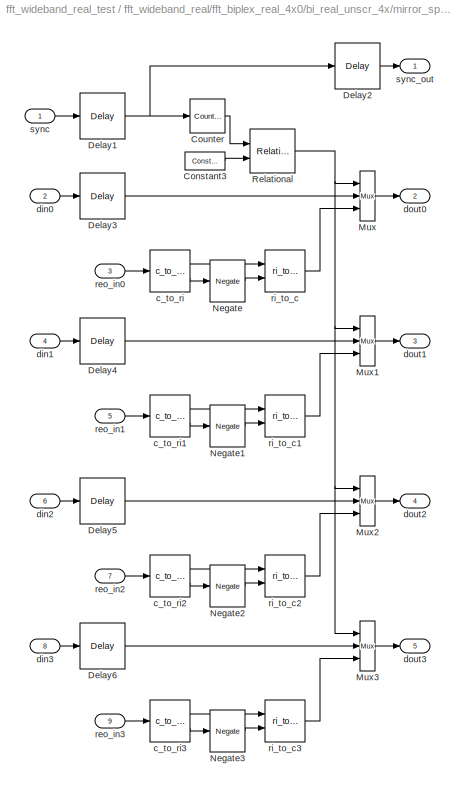
BLOCK [SubSystem] fft_wideband_real/fft_biplex_real_4x0/bi_real_unscr_4x/mirror_spectrum
  FunctionWithSeparateData = off
  MinAlgLoopOccurrences = off
  Ports = [9, 5]
  RTWSystemCode = Auto
BLOCK [Reference] fft_wideband_real/fft_biplex_real_4x0/bi_real_unscr_4x/mirror_spectrum/Constant3  REF=xbsIndex_r4/Constant
  Ports = [0, 1]
  SourceBlock = xbsIndex_r4/Constant
  SourceType = Xilinx Constant Block Block
  arith_type = Unsigned
  bin_pt = 0
  block_type = constant
  block_version = 9.1.01
  carry = CIN
  const = 2^(FFTSize - 1)
  dbl_ovrd = off
  dsp48_infoedit = The use of this block for DSP48 instructions is deprecated.  Please use the Opmode block.
  equ = P=C
  explicit_period = on
  has_advanced_control = 0
  inp1 = P
  inp2 = PCIN>>17
  n_bits = FFTSize
  opr = +
  opselect = C
  period = 1
  sg_icon_stat = 40,18,0,1,white,blue,0,b20b18e0,right
  sggui_pos = 20,20,414,344
BLOCK [Reference] fft_wideband_real/fft_biplex_real_4x0/bi_real_unscr_4x/mirror_spectrum/Counter  REF=xbsIndex_r4/Counter
  Ports = [1, 1]
  SourceBlock = xbsIndex_r4/Counter
  SourceType = Xilinx Counter Block
  arith_type = Unsigned
  bin_pt = 0
  block_type = counter
  block_version = 9.1.01
  cnt_by_val = 1
  cnt_to = Inf
  cnt_type = Free Running
  dbl_ovrd = off
  en = off
  explicit_period = off
  has_advanced_control = 0
  implementation = Fabric
  infoedit = Hardware notes: Free running counters are the least expensive in hardware.  A count limited counter is implemented by combining a counter with a comparator.
  load_pin = off
  n_bits = FFTSize
  operation = Up
  period = 1
  rst = on
  sg_icon_stat = 35,34,1,1,white,blue,0,300e9576,right
  sggui_pos = 20,20,348,618
  start_count = 0
  use_behavioral_HDL = off
  use_rpm = on
  xl_area = [0, 0, 0, 0, 0, 0, 0]
  xl_use_area = off
BLOCK [Reference] fft_wideband_real/fft_biplex_real_4x0/bi_real_unscr_4x/mirror_spectrum/Delay1  REF=xbsIndex_r4/Delay
  Ports = [1, 1]
  SourceBlock = xbsIndex_r4/Delay
  SourceType = Xilinx Delay Block
  block_type = delay
  block_version = 9.1.01
  dbl_ovrd = off
  en = off
  has_advanced_control = 0
  infoedit = Hardware notes: A delay line is a chain, each link of which is an SRL16 followed by a flip-flop.
  latency = bram_latency - 2 + 1
  reg_retiming = off
  sg_icon_stat = 45,46,1,1,white,blue,0,fc531c0e,right
  sggui_pos = -1,-1,-1,-1
  xl_area = [0, 0, 0, 0, 0, 0, 0]
  xl_use_area = off
BLOCK [Reference] fft_wideband_real/fft_biplex_real_4x0/bi_real_unscr_4x/mirror_spectrum/Delay2  REF=xbsIndex_r4/Delay
  Ports = [1, 1]
  SourceBlock = xbsIndex_r4/Delay
  SourceType = Xilinx Delay Block
  block_type = delay
  block_version = 9.1.01
  dbl_ovrd = off
  en = off
  has_advanced_control = 0
  infoedit = Hardware notes: A delay line is a chain, each link of which is an SRL16 followed by a flip-flop.
  latency = 2
  reg_retiming = off
  sg_icon_stat = 45,46,1,1,white,blue,0,0a7a6cf1,right
  sg_mask_display = fprintf('','COMMENT: begin icon graphics');\npatch([0 60 60 0 ],[0 0 56 56 ],[0.77 0.82 0.91]);\npatch([15 6 19 6 15 30 34 38 54 41 29 20 32 20 29 41 54 38 34 30 15 ],[6 15 28 41 50 50 46 50 50 37 49 40 28 16 7 19 6 6 10 6 6 ],[0.98 0.96 0.92]);\nplot([0 60 60 0 0 ],[0 0 56 56 0 ]);\nfprintf('','COMMENT: end icon graphics');\nfprintf('','COMMENT: begin icon text');\ncolor('black');disp('z^{-2}','t...<+55ch>  <repeated x18 — deduplicated; at blocks: Delay2, Delay3, Delay4, Delay5, Delay6, delay_valid, post_sync_delay, delay_slr, delay_d0, delay_sel, delay_we, pre_sync_delay>
  sggui_pos = -1,-1,-1,-1
  xl_area = [0, 0, 0, 0, 0, 0, 0]
  xl_use_area = off
BLOCK [Reference] fft_wideband_real/fft_biplex_real_4x0/bi_real_unscr_4x/mirror_spectrum/Delay3  REF=xbsIndex_r4/Delay
  Ports = [1, 1]
  SourceBlock = xbsIndex_r4/Delay
  SourceType = Xilinx Delay Block
  block_type = delay
  block_version = 9.1.01
  dbl_ovrd = off
  en = off
  has_advanced_control = 0
  infoedit = Hardware notes: A delay line is a chain, each link of which is an SRL16 followed by a flip-flop.
  latency = bram_latency - 1 + 1
  reg_retiming = off
  sg_icon_stat = 45,46,1,1,white,blue,0,0a7a6cf1,right
  sggui_pos = -1,-1,-1,-1
  xl_area = [0, 0, 0, 0, 0, 0, 0]
  xl_use_area = off
BLOCK [Reference] fft_wideband_real/fft_biplex_real_4x0/bi_real_unscr_4x/mirror_spectrum/Delay4  REF=xbsIndex_r4/Delay
  Ports = [1, 1]
  SourceBlock = xbsIndex_r4/Delay
  SourceType = Xilinx Delay Block
  block_type = delay
  block_version = 9.1.01
  dbl_ovrd = off
  en = off
  has_advanced_control = 0
  infoedit = Hardware notes: A delay line is a chain, each link of which is an SRL16 followed by a flip-flop.
  latency = bram_latency - 1 + 1
  reg_retiming = off
  sg_icon_stat = 45,46,1,1,white,blue,0,0a7a6cf1,right
  sggui_pos = -1,-1,-1,-1
  xl_area = [0, 0, 0, 0, 0, 0, 0]
  xl_use_area = off
BLOCK [Reference] fft_wideband_real/fft_biplex_real_4x0/bi_real_unscr_4x/mirror_spectrum/Delay5  REF=xbsIndex_r4/Delay
  Ports = [1, 1]
  SourceBlock = xbsIndex_r4/Delay
  SourceType = Xilinx Delay Block
  block_type = delay
  block_version = 9.1.01
  dbl_ovrd = off
  en = off
  has_advanced_control = 0
  infoedit = Hardware notes: A delay line is a chain, each link of which is an SRL16 followed by a flip-flop.
  latency = bram_latency - 1 + 1
  reg_retiming = off
  sg_icon_stat = 45,46,1,1,white,blue,0,0a7a6cf1,right
  sggui_pos = -1,-1,-1,-1
  xl_area = [0, 0, 0, 0, 0, 0, 0]
  xl_use_area = off
BLOCK [Reference] fft_wideband_real/fft_biplex_real_4x0/bi_real_unscr_4x/mirror_spectrum/Delay6  REF=xbsIndex_r4/Delay
  Ports = [1, 1]
  SourceBlock = xbsIndex_r4/Delay
  SourceType = Xilinx Delay Block
  block_type = delay
  block_version = 9.1.01
  dbl_ovrd = off
  en = off
  has_advanced_control = 0
  infoedit = Hardware notes: A delay line is a chain, each link of which is an SRL16 followed by a flip-flop.
  latency = bram_latency - 1 + 1
  reg_retiming = off
  sg_icon_stat = 45,46,1,1,white,blue,0,0a7a6cf1,right
  sggui_pos = -1,-1,-1,-1
  xl_area = [0, 0, 0, 0, 0, 0, 0]
  xl_use_area = off
BLOCK [Reference] fft_wideband_real/fft_biplex_real_4x0/bi_real_unscr_4x/mirror_spectrum/Mux  REF=xbsIndex_r4/Mux
  Ports = [3, 1]
  SourceBlock = xbsIndex_r4/Mux
  SourceType = Xilinx Bus Multiplexer Block
  arith_type = Signed  (2's comp)
  bin_pt = 2
  block_type = mux
  block_version = 9.1.01
  dbl_ovrd = off
  en = off
  has_advanced_control = 0
  inputs = 2
  latency = 1
  n_bits = 8
  overflow = Wrap
  precision = Full
  quantization = Truncate
  sg_icon_stat = 15,50,3,1,white,blue,3,03f9c9b9,right
  sggui_pos = -1,-1,-1,-1
  xl_area = [0, 0, 0, 0, 0, 0, 0]
  xl_use_area = off
BLOCK [Reference] fft_wideband_real/fft_biplex_real_4x0/bi_real_unscr_4x/mirror_spectrum/Mux1  REF=xbsIndex_r4/Mux
  Ports = [3, 1]
  SourceBlock = xbsIndex_r4/Mux
  SourceType = Xilinx Bus Multiplexer Block
  arith_type = Signed  (2's comp)
  bin_pt = 2
  block_type = mux
  block_version = 9.1.01
  dbl_ovrd = off
  en = off
  has_advanced_control = 0
  inputs = 2
  latency = 1
  n_bits = 8
  overflow = Wrap
  precision = Full
  quantization = Truncate
  sg_icon_stat = 15,50,3,1,white,blue,3,03f9c9b9,right
  sggui_pos = -1,-1,-1,-1
  xl_area = [0, 0, 0, 0, 0, 0, 0]
  xl_use_area = off
BLOCK [Reference] fft_wideband_real/fft_biplex_real_4x0/bi_real_unscr_4x/mirror_spectrum/Mux2  REF=xbsIndex_r4/Mux
  Ports = [3, 1]
  SourceBlock = xbsIndex_r4/Mux
  SourceType = Xilinx Bus Multiplexer Block
  arith_type = Signed  (2's comp)
  bin_pt = 2
  block_type = mux
  block_version = 9.1.01
  dbl_ovrd = off
  en = off
  has_advanced_control = 0
  inputs = 2
  latency = 1
  n_bits = 8
  overflow = Wrap
  precision = Full
  quantization = Truncate
  sg_icon_stat = 15,50,3,1,white,blue,3,03f9c9b9,right
  sggui_pos = -1,-1,-1,-1
  xl_area = [0, 0, 0, 0, 0, 0, 0]
  xl_use_area = off
BLOCK [Reference] fft_wideband_real/fft_biplex_real_4x0/bi_real_unscr_4x/mirror_spectrum/Mux3  REF=xbsIndex_r4/Mux
  Ports = [3, 1]
  SourceBlock = xbsIndex_r4/Mux
  SourceType = Xilinx Bus Multiplexer Block
  arith_type = Signed  (2's comp)
  bin_pt = 2
  block_type = mux
  block_version = 9.1.01
  dbl_ovrd = off
  en = off
  has_advanced_control = 0
  inputs = 2
  latency = 1
  n_bits = 8
  overflow = Wrap
  precision = Full
  quantization = Truncate
  sg_icon_stat = 15,50,3,1,white,blue,3,03f9c9b9,right
  sggui_pos = -1,-1,-1,-1
  xl_area = [0, 0, 0, 0, 0, 0, 0]
  xl_use_area = off
BLOCK [Reference] fft_wideband_real/fft_biplex_real_4x0/bi_real_unscr_4x/mirror_spectrum/Negate  REF=xbsIndex_r4/Negate
  Ports = [1, 1]
  SourceBlock = xbsIndex_r4/Negate
  SourceType = Xilinx Negate Block Block
  arith_type = Unsigned
  bin_pt = input_bit_width - 1
  block_type = negate
  block_version = 9.1.01
  dbl_ovrd = off
  en = off
  has_advanced_control = 0
  latency = 0
  n_bits = input_bit_width
  overflow = Wrap
  precision = User Defined
  quantization = Truncate
  sg_icon_stat = 35,42,1,1,white,blue,0,6784aebb,right
  sg_mask_display = fprintf('','COMMENT: begin icon graphics');\npatch([0 55 55 0 ],[0 0 56 56 ],[0.77 0.82 0.91]);\npatch([13 4 17 4 13 28 32 36 52 40 28 19 32 19 28 40 52 36 32 28 13 ],[6 15 28 41 50 50 46 50 50 38 50 41 28 15 6 18 6 6 10 6 6 ],[0.98 0.96 0.92]);\nplot([0 55 55 0 0 ],[0 0 56 56 0 ]);\nfprintf('','COMMENT: end icon graphics');\nfprintf('','COMMENT: begin icon text');\ncolor('black');disp('\\bf{x(-1)...<+60ch>  <repeated x4 — deduplicated; at blocks: Negate, Negate1, Negate2, Negate3>
  sggui_pos = 20,20,348,392
  xl_area = [0, 0, 0, 0, 0, 0, 0]
  xl_use_area = off
BLOCK [Reference] fft_wideband_real/fft_biplex_real_4x0/bi_real_unscr_4x/mirror_spectrum/Negate1  REF=xbsIndex_r4/Negate
  Ports = [1, 1]
  SourceBlock = xbsIndex_r4/Negate
  SourceType = Xilinx Negate Block Block
  arith_type = Unsigned
  bin_pt = input_bit_width - 1
  block_type = negate
  block_version = 9.1.01
  dbl_ovrd = off
  en = off
  has_advanced_control = 0
  latency = 0
  n_bits = input_bit_width
  overflow = Wrap
  precision = User Defined
  quantization = Truncate
  sg_icon_stat = 35,42,1,1,white,blue,0,6784aebb,right
  sggui_pos = 20,20,348,392
  xl_area = [0, 0, 0, 0, 0, 0, 0]
  xl_use_area = off
BLOCK [Reference] fft_wideband_real/fft_biplex_real_4x0/bi_real_unscr_4x/mirror_spectrum/Negate2  REF=xbsIndex_r4/Negate
  Ports = [1, 1]
  SourceBlock = xbsIndex_r4/Negate
  SourceType = Xilinx Negate Block Block
  arith_type = Unsigned
  bin_pt = input_bit_width - 1
  block_type = negate
  block_version = 9.1.01
  dbl_ovrd = off
  en = off
  has_advanced_control = 0
  latency = 0
  n_bits = input_bit_width
  overflow = Wrap
  precision = User Defined
  quantization = Truncate
  sg_icon_stat = 35,42,1,1,white,blue,0,6784aebb,right
  sggui_pos = 20,20,348,392
  xl_area = [0, 0, 0, 0, 0, 0, 0]
  xl_use_area = off
BLOCK [Reference] fft_wideband_real/fft_biplex_real_4x0/bi_real_unscr_4x/mirror_spectrum/Negate3  REF=xbsIndex_r4/Negate
  Ports = [1, 1]
  SourceBlock = xbsIndex_r4/Negate
  SourceType = Xilinx Negate Block Block
  arith_type = Unsigned
  bin_pt = input_bit_width - 1
  block_type = negate
  block_version = 9.1.01
  dbl_ovrd = off
  en = off
  has_advanced_control = 0
  latency = 0
  n_bits = input_bit_width
  overflow = Wrap
  precision = User Defined
  quantization = Truncate
  sg_icon_stat = 35,42,1,1,white,blue,0,6784aebb,right
  sggui_pos = 20,20,348,392
  xl_area = [0, 0, 0, 0, 0, 0, 0]
  xl_use_area = off
BLOCK [Reference] fft_wideband_real/fft_biplex_real_4x0/bi_real_unscr_4x/mirror_spectrum/Relational  REF=xbsIndex_r4/Relational
  Ports = [2, 1]
  SourceBlock = xbsIndex_r4/Relational
  SourceType = Xilinx Arithmetic Relational Operator Block
  block_type = relational
  block_version = 9.1.01
  dbl_ovrd = off
  en = off
  has_advanced_control = 0
  latency = 1
  mode = a>b
  sg_icon_stat = 45,44,2,1,white,blue,0,c445790c,right
  sggui_pos = 20,20,348,192
  xl_area = [0, 0, 0, 0, 0, 0, 0]
  xl_use_area = off
BLOCK [Reference] fft_wideband_real/fft_biplex_real_4x0/bi_real_unscr_4x/mirror_spectrum/c_to_ri  REF=casper_library/Misc/c_to_ri  (lib defined in mdl_138b2fc3435f, mdl_4ed325b712b3, +2 more)
  AttributesFormatString = _ r/i
  FunctionWithSeparateData = off
  Ports = [1, 2]
  RTWMemSecDataConstants = Inherit from model
  RTWMemSecDataInternal = Inherit from model
  RTWMemSecDataParameters = Inherit from model
  RTWMemSecFuncExecute = Inherit from model
  RTWMemSecFuncInitTerm = Inherit from model
  ShowPortLabels = FromPortIcon
  SourceBlock = casper_library/Misc/c_to_ri
  SourceType = c_to_ri
  SystemSampleTime = -1
  UserData = DataTag5
  UserDataPersistent = on
  bin_pt = input_bit_width-1
  n_bits = input_bit_width
BLOCK [Reference] fft_wideband_real/fft_biplex_real_4x0/bi_real_unscr_4x/mirror_spectrum/c_to_ri1  REF=casper_library/Misc/c_to_ri  (lib defined in mdl_138b2fc3435f, mdl_4ed325b712b3, +2 more)
  AttributesFormatString = _ r/i
  FunctionWithSeparateData = off
  Ports = [1, 2]
  RTWMemSecDataConstants = Inherit from model
  RTWMemSecDataInternal = Inherit from model
  RTWMemSecDataParameters = Inherit from model
  RTWMemSecFuncExecute = Inherit from model
  RTWMemSecFuncInitTerm = Inherit from model
  ShowPortLabels = FromPortIcon
  SourceBlock = casper_library/Misc/c_to_ri
  SourceType = c_to_ri
  SystemSampleTime = -1
  UserData = DataTag6
  UserDataPersistent = on
  bin_pt = input_bit_width-1
  n_bits = input_bit_width
BLOCK [Reference] fft_wideband_real/fft_biplex_real_4x0/bi_real_unscr_4x/mirror_spectrum/c_to_ri2  REF=casper_library/Misc/c_to_ri  (lib defined in mdl_138b2fc3435f, mdl_4ed325b712b3, +2 more)
  AttributesFormatString = _ r/i
  FunctionWithSeparateData = off
  Ports = [1, 2]
  RTWMemSecDataConstants = Inherit from model
  RTWMemSecDataInternal = Inherit from model
  RTWMemSecDataParameters = Inherit from model
  RTWMemSecFuncExecute = Inherit from model
  RTWMemSecFuncInitTerm = Inherit from model
  ShowPortLabels = FromPortIcon
  SourceBlock = casper_library/Misc/c_to_ri
  SourceType = c_to_ri
  SystemSampleTime = -1
  UserData = DataTag7
  UserDataPersistent = on
  bin_pt = input_bit_width-1
  n_bits = input_bit_width
BLOCK [Reference] fft_wideband_real/fft_biplex_real_4x0/bi_real_unscr_4x/mirror_spectrum/c_to_ri3  REF=casper_library/Misc/c_to_ri  (lib defined in mdl_138b2fc3435f, mdl_4ed325b712b3, +2 more)
  AttributesFormatString = _ r/i
  FunctionWithSeparateData = off
  Ports = [1, 2]
  RTWMemSecDataConstants = Inherit from model
  RTWMemSecDataInternal = Inherit from model
  RTWMemSecDataParameters = Inherit from model
  RTWMemSecFuncExecute = Inherit from model
  RTWMemSecFuncInitTerm = Inherit from model
  ShowPortLabels = FromPortIcon
  SourceBlock = casper_library/Misc/c_to_ri
  SourceType = c_to_ri
  SystemSampleTime = -1
  UserData = DataTag8
  UserDataPersistent = on
  bin_pt = input_bit_width-1
  n_bits = input_bit_width
BLOCK [Inport] fft_wideband_real/fft_biplex_real_4x0/bi_real_unscr_4x/mirror_spectrum/din0
  IconDisplay = Port number
  OutDataType = sfix(16)
  OutScaling = 2^0
  Port = 2
BLOCK [Inport] fft_wideband_real/fft_biplex_real_4x0/bi_real_unscr_4x/mirror_spectrum/din1
  IconDisplay = Port number
  OutDataType = sfix(16)
  OutScaling = 2^0
  Port = 4
BLOCK [Inport] fft_wideband_real/fft_biplex_real_4x0/bi_real_unscr_4x/mirror_spectrum/din2
  IconDisplay = Port number
  OutDataType = sfix(16)
  OutScaling = 2^0
  Port = 6
BLOCK [Inport] fft_wideband_real/fft_biplex_real_4x0/bi_real_unscr_4x/mirror_spectrum/din3
  IconDisplay = Port number
  OutDataType = sfix(16)
  OutScaling = 2^0
  Port = 8
BLOCK [Outport] fft_wideband_real/fft_biplex_real_4x0/bi_real_unscr_4x/mirror_spectrum/dout0
  IconDisplay = Port number
  OutDataType = sfix(16)
  OutScaling = 2^0
  Port = 2
BLOCK [Outport] fft_wideband_real/fft_biplex_real_4x0/bi_real_unscr_4x/mirror_spectrum/dout1
  IconDisplay = Port number
  OutDataType = sfix(16)
  OutScaling = 2^0
  Port = 3
BLOCK [Outport] fft_wideband_real/fft_biplex_real_4x0/bi_real_unscr_4x/mirror_spectrum/dout2
  IconDisplay = Port number
  OutDataType = sfix(16)
  OutScaling = 2^0
  Port = 4
BLOCK [Outport] fft_wideband_real/fft_biplex_real_4x0/bi_real_unscr_4x/mirror_spectrum/dout3
  IconDisplay = Port number
  OutDataType = sfix(16)
  OutScaling = 2^0
  Port = 5
BLOCK [Inport] fft_wideband_real/fft_biplex_real_4x0/bi_real_unscr_4x/mirror_spectrum/reo_in0
  IconDisplay = Port number
  OutDataType = sfix(16)
  OutScaling = 2^0
  Port = 3
BLOCK [Inport] fft_wideband_real/fft_biplex_real_4x0/bi_real_unscr_4x/mirror_spectrum/reo_in1
  IconDisplay = Port number
  OutDataType = sfix(16)
  OutScaling = 2^0
  Port = 5
BLOCK [Inport] fft_wideband_real/fft_biplex_real_4x0/bi_real_unscr_4x/mirror_spectrum/reo_in2
  IconDisplay = Port number
  OutDataType = sfix(16)
  OutScaling = 2^0
  Port = 7
BLOCK [Inport] fft_wideband_real/fft_biplex_real_4x0/bi_real_unscr_4x/mirror_spectrum/reo_in3
  IconDisplay = Port number
  OutDataType = sfix(16)
  OutScaling = 2^0
  Port = 9
BLOCK [Reference] fft_wideband_real/fft_biplex_real_4x0/bi_real_unscr_4x/mirror_spectrum/ri_to_c  REF=casper_library/Misc/ri_to_c  (lib defined in mdl_138b2fc3435f, mdl_4ed325b712b3, +2 more)
  FunctionWithSeparateData = off
  Ports = [2, 1]
  RTWMemSecDataConstants = Inherit from model
  RTWMemSecDataInternal = Inherit from model
  RTWMemSecDataParameters = Inherit from model
  RTWMemSecFuncExecute = Inherit from model
  RTWMemSecFuncInitTerm = Inherit from model
  ShowPortLabels = FromPortIcon
  SourceBlock = casper_library/Misc/ri_to_c
  SourceType = ri_to_c
  SystemSampleTime = -1
  UserData = DataTag9
  UserDataPersistent = on
BLOCK [Reference] fft_wideband_real/fft_biplex_real_4x0/bi_real_unscr_4x/mirror_spectrum/ri_to_c1  REF=casper_library/Misc/ri_to_c  (lib defined in mdl_138b2fc3435f, mdl_4ed325b712b3, +2 more)
  FunctionWithSeparateData = off
  Ports = [2, 1]
  RTWMemSecDataConstants = Inherit from model
  RTWMemSecDataInternal = Inherit from model
  RTWMemSecDataParameters = Inherit from model
  RTWMemSecFuncExecute = Inherit from model
  RTWMemSecFuncInitTerm = Inherit from model
  ShowPortLabels = FromPortIcon
  SourceBlock = casper_library/Misc/ri_to_c
  SourceType = ri_to_c
  SystemSampleTime = -1
  UserData = DataTag10
  UserDataPersistent = on
BLOCK [Reference] fft_wideband_real/fft_biplex_real_4x0/bi_real_unscr_4x/mirror_spectrum/ri_to_c2  REF=casper_library/Misc/ri_to_c  (lib defined in mdl_138b2fc3435f, mdl_4ed325b712b3, +2 more)
  FunctionWithSeparateData = off
  Ports = [2, 1]
  RTWMemSecDataConstants = Inherit from model
  RTWMemSecDataInternal = Inherit from model
  RTWMemSecDataParameters = Inherit from model
  RTWMemSecFuncExecute = Inherit from model
  RTWMemSecFuncInitTerm = Inherit from model
  ShowPortLabels = FromPortIcon
  SourceBlock = casper_library/Misc/ri_to_c
  SourceType = ri_to_c
  SystemSampleTime = -1
  UserData = DataTag11
  UserDataPersistent = on
BLOCK [Reference] fft_wideband_real/fft_biplex_real_4x0/bi_real_unscr_4x/mirror_spectrum/ri_to_c3  REF=casper_library/Misc/ri_to_c  (lib defined in mdl_138b2fc3435f, mdl_4ed325b712b3, +2 more)
  FunctionWithSeparateData = off
  Ports = [2, 1]
  RTWMemSecDataConstants = Inherit from model
  RTWMemSecDataInternal = Inherit from model
  RTWMemSecDataParameters = Inherit from model
  RTWMemSecFuncExecute = Inherit from model
  RTWMemSecFuncInitTerm = Inherit from model
  ShowPortLabels = FromPortIcon
  SourceBlock = casper_library/Misc/ri_to_c
  SourceType = ri_to_c
  SystemSampleTime = -1
  UserData = DataTag12
  UserDataPersistent = on
BLOCK [Inport] fft_wideband_real/fft_biplex_real_4x0/bi_real_unscr_4x/mirror_spectrum/sync
  IconDisplay = Port number
  OutDataType = sfix(16)
  OutScaling = 2^0
BLOCK [Outport] fft_wideband_real/fft_biplex_real_4x0/bi_real_unscr_4x/mirror_spectrum/sync_out
  IconDisplay = Port number
  OutDataType = sfix(16)
  OutScaling = 2^0
BLOCK [Inport] fft_wideband_real/fft_biplex_real_4x0/bi_real_unscr_4x/odd
  IconDisplay = Port number
  OutDataType = sfix(16)
  OutScaling = 2^0
  Port = 2
BLOCK [Outport] fft_wideband_real/fft_biplex_real_4x0/bi_real_unscr_4x/pol1_out
  IconDisplay = Port number
  OutDataType = sfix(16)
  OutScaling = 2^0
BLOCK [Outport] fft_wideband_real/fft_biplex_real_4x0/bi_real_unscr_4x/pol2_out
  IconDisplay = Port number
  OutDataType = sfix(16)
  OutScaling = 2^0
  Port = 2
BLOCK [Outport] fft_wideband_real/fft_biplex_real_4x0/bi_real_unscr_4x/pol3_out
  IconDisplay = Port number
  OutDataType = sfix(16)
  OutScaling = 2^0
  Port = 3
BLOCK [Outport] fft_wideband_real/fft_biplex_real_4x0/bi_real_unscr_4x/pol4_out
  IconDisplay = Port number
  OutDataType = sfix(16)
  OutScaling = 2^0
  Port = 4
BLOCK [SubSystem] fft_wideband_real/fft_biplex_real_4x0/bi_real_unscr_4x/reorder
  AncestorBlock = casper_library/Reorder/reorder
  AttributesFormatString = order=2
  FunctionWithSeparateData = off
  MaskCallbackString = ||||
  MaskEnableString = on,on,on,on,on
  MaskIconFrame = on
  MaskIconOpaque = on
  MaskIconRotate = none
  MaskIconUnits = autoscale
  MaskInitialization = reorder_init(gcb, ...\n    'map', map, ...\n    'n_inputs', n_inputs, ...\n    'bram_latency', bram_latency, ...\n    'map_latency', map_latency, ...\n    'double_buffer', double_buffer);  <repeated x4 — deduplicated; at blocks: reorder, reorder1, reorder2>
  MaskPromptString = Output Order:|Number of inputs|BRAM Latency|Map Latency|Double Buffer
  MaskSelfModifiable = on
  MaskStyleString = edit,edit,edit,edit,edit
  MaskTabNameString = ,,,,
  MaskToolTipString = on,on,on,on,on
  MaskTunableValueString = on,on,on,on,on
  MaskType = reorder
  MaskValueString = [0 2 1 3]|1|1|0|0
  MaskVarAliasString = ,,,,
  MaskVariables = map=@1;n_inputs=@2;bram_latency=@3;map_latency=@4;double_buffer=@5;
  MaskVisibilityString = on,on,on,on,on
  MinAlgLoopOccurrences = off
  Ports = [3, 3]
  RTWSystemCode = Auto
  UserData = DataTag13
  UserDataPersistent = on
BLOCK [Reference] fft_wideband_real/fft_biplex_real_4x0/bi_real_unscr_4x/reorder/Counter  REF=xbsIndex_r4/Counter
  Ports = [2, 1]
  SourceBlock = xbsIndex_r4/Counter
  SourceType = Xilinx Counter Block
  arith_type = Unsigned
  bin_pt = 0
  block_type = counter
  block_version = 10.1.3
  cnt_by_val = 1
  cnt_to = 7
  cnt_type = Count Limited
  dbl_ovrd = off
  en = on
  explicit_period = on
  has_advanced_control = 0
  implementation = Fabric
  infoedit = Hardware notes: Free running counters are the least expensive in hardware.  A count limited counter is implemented by combining a counter with a comparator.
  load_pin = off
  n_bits = 3
  operation = Up
  period = 1
  rst = on
  sg_icon_stat = 50,53,1,1,white,blue,0,46c73e85,right
  sg_mask_display = fprintf('','COMMENT: begin icon graphics');\npatch([0 50 50 0 ],[0 0 53 53 ],[0.77 0.82 0.91]);\npatch([11 3 15 3 11 24 28 32 46 35 24 16 28 16 24 35 46 32 28 24 11 ],[7 15 27 39 47 47 43 47 47 36 47 39 27 15 7 18 7 7 11 7 7 ],[0.98 0.96 0.92]);\nplot([0 50 50 0 0 ],[0 0 53 53 0 ]);\nfprintf('','COMMENT: end icon graphics');\nfprintf('','COMMENT: begin icon text');\ncolor('black');port_label('inpu...<+143ch>  <repeated x4 — deduplicated; at blocks: Counter>
  sggui_pos = -1,-1,-1,-1
  start_count = 0
  use_behavioral_HDL = off
  use_rpm = off
  xl_area = [0,0,0,0,0,0,0]
  xl_use_area = off
BLOCK [Reference] fft_wideband_real/fft_biplex_real_4x0/bi_real_unscr_4x/reorder/Mux  REF=xbsIndex_r4/Mux
  Ports = [3, 1]
  SourceBlock = xbsIndex_r4/Mux
  SourceType = Xilinx Bus Multiplexer Block
  arith_type = Unsigned
  bin_pt = 14
  block_type = mux
  block_version = 10.1.3
  dbl_ovrd = off
  en = off
  has_advanced_control = 0
  inputs = 2
  latency = 1
  n_bits = 16
  overflow = Wrap
  precision = Full
  quantization = Truncate
  sg_icon_stat = 25,68,1,1,white,blue,3,03f9c9b9,right
  sggui_pos = -1,-1,-1,-1
  xl_area = [0,0,0,0,0,0,0]
  xl_use_area = off
BLOCK [Reference] fft_wideband_real/fft_biplex_real_4x0/bi_real_unscr_4x/reorder/Slice1  REF=xbsIndex_r4/Slice
  Ports = [1, 1]
  SourceBlock = xbsIndex_r4/Slice
  SourceType = Xilinx Bit Slice Extractor Block
  base0 = LSB of Input
  base1 = MSB of Input
  bit0 = 0
  bit1 = 0
  block_type = slice
  block_version = 10.1.3
  boolean_output = off
  dbl_ovrd = off
  has_advanced_control = 0
  infoedit = Extracts a given range of bits from each input sample and presents it at the output.  The output type is ordinarily unsigned with binary point at zero, but can be Boolean when the slice is one bit wide.<P><P>Hardware notes: In hardware this block costs nothing.  <repeated x140 — deduplicated; at blocks: Slice1, Slice2, Slice, slice1, slice2, slice3, slice4, slice5, slice0, slice>
  mode = Upper Bit Location + Width
  nbits = 1
  sg_icon_stat = 30,16,1,1,white,blue,0,b1026674,right
  sg_mask_display = fprintf('','COMMENT: begin icon graphics');\npatch([0 60 60 0 ],[0 0 30 30 ],[0.77 0.82 0.91]);\npatch([22 17 24 17 22 30 32 34 42 35 29 24 30 24 29 35 42 34 32 30 22 ],[3 8 15 22 27 27 25 27 27 20 26 21 15 9 4 10 3 3 5 3 3 ],[0.98 0.96 0.92]);\nplot([0 60 60 0 0 ],[0 0 30 30 0 ]);\nfprintf('','COMMENT: end icon graphics');\nfprintf('','COMMENT: begin icon text');\ncolor('black');port_label('outpu...<+55ch>  <repeated x140 — deduplicated; at blocks: Slice1, Slice2, Slice, slice1, slice2, slice3, slice4, slice5, slice0, slice>
  sggui_pos = -1,-1,-1,-1
BLOCK [Reference] fft_wideband_real/fft_biplex_real_4x0/bi_real_unscr_4x/reorder/Slice2  REF=xbsIndex_r4/Slice
  Ports = [1, 1]
  SourceBlock = xbsIndex_r4/Slice
  SourceType = Xilinx Bit Slice Extractor Block
  base0 = LSB of Input
  base1 = MSB of Input
  bit0 = 0
  bit1 = 0
  block_type = slice
  block_version = 10.1.3
  boolean_output = off
  dbl_ovrd = off
  has_advanced_control = 0
  mode = Lower Bit Location + Width
  nbits = 2
  sg_icon_stat = 30,16,1,1,white,blue,0,b1026674,right
  sggui_pos = -1,-1,-1,-1
BLOCK [Reference] fft_wideband_real/fft_biplex_real_4x0/bi_real_unscr_4x/reorder/bram0  REF=xbsIndex_r4/Single Port RAM
  Ports = [3, 1]
  SourceBlock = xbsIndex_r4/Single Port RAM
  SourceType = Xilinx Single Port Random Access Memory Block
  block_type = spram
  block_version = 10.1.3
  dbl_ovrd = off
  depth = 4
  distributed_mem = Block RAM
  en = off
  has_advanced_control = 0
  initVector = sin(pi*(0:15)/16)
  init_reg = 0
  latency = 1
  optimize = Area
  rst = off
  sg_icon_stat = 65,54,3,1,white,blue,0,90951842,right
  sg_mask_display = fprintf('','COMMENT: begin icon graphics');\npatch([0 60 60 0 ],[0 0 54 54 ],[0.77 0.82 0.91]);\npatch([16 7 20 7 16 30 34 38 53 41 29 21 35 21 29 41 53 38 34 30 16 ],[6 15 28 41 50 50 46 50 50 38 50 42 28 14 6 18 6 6 10 6 6 ],[0.98 0.96 0.92]);\nplot([0 60 60 0 0 ],[0 0 54 54 0 ]);\nfprintf('','COMMENT: end icon graphics');\nfprintf('','COMMENT: begin icon text');\ncolor('black');port_label('inpu...<+191ch>  <repeated x8 — deduplicated; at blocks: bram0, bram1, bram2, bram3>
  sggui_pos = -1,-1,-1,-1
  use_rpm = on
  write_mode = Read Before Write
  xl_area = [0,0,0,0,0,0,0]
  xl_use_area = off
BLOCK [Reference] fft_wideband_real/fft_biplex_real_4x0/bi_real_unscr_4x/reorder/delay_d0  REF=xbsIndex_r4/Delay
  Ports = [1, 1]
  SourceBlock = xbsIndex_r4/Delay
  SourceType = Xilinx Delay Block
  block_type = delay
  block_version = 10.1.3
  dbl_ovrd = off
  en = off
  has_advanced_control = 0
  infoedit = Hardware notes: A delay line is a chain, each link of which is an SRL16 followed by a flip-flop.
  latency = 0
  reg_retiming = off
  sg_icon_stat = 40,16,1,1,white,blue,0,d74ee26d,right
  sg_mask_display = fprintf('','COMMENT: begin icon graphics');\npatch([0 60 60 0 ],[0 0 56 56 ],[0.77 0.82 0.91]);\npatch([15 6 19 6 15 30 34 38 54 41 29 20 32 20 29 41 54 38 34 30 15 ],[6 15 28 41 50 50 46 50 50 37 49 40 28 16 7 19 6 6 10 6 6 ],[0.98 0.96 0.92]);\nplot([0 60 60 0 0 ],[0 0 56 56 0 ]);\nfprintf('','COMMENT: end icon graphics');\nfprintf('','COMMENT: begin icon text');\ncolor('black');disp('z^{-0}','t...<+55ch>  <repeated x28 — deduplicated; at blocks: delay_d0, delay_sel, delay_we, pre_sync_delay, delay_map1, node0_0, node0_1, node0_2, node0_3, node1_0, node1_1, node1_2, node1_3, node2_0, node2_1, node2_2, +3 more>
  sggui_pos = -1,-1,-1,-1
  xl_area = [0,0,0,0,0,0,0]
  xl_use_area = off
BLOCK [Reference] fft_wideband_real/fft_biplex_real_4x0/bi_real_unscr_4x/reorder/delay_din0  REF=xbsIndex_r4/Delay
  Ports = [1, 1]
  SourceBlock = xbsIndex_r4/Delay
  SourceType = Xilinx Delay Block
  block_type = delay
  block_version = 9.1.01
  dbl_ovrd = off
  en = off
  has_advanced_control = 0
  infoedit = Hardware notes: A delay line is a chain, each link of which is an SRL16 followed by a flip-flop.
  latency = 1
  reg_retiming = off
  sg_icon_stat = 40,20,1,1,white,blue,0,fc531c0e,right
  sggui_pos = -1,-1,-1,-1
  xl_area = [0, 0, 0, 0, 0, 0, 0]
  xl_use_area = off
BLOCK [Reference] fft_wideband_real/fft_biplex_real_4x0/bi_real_unscr_4x/reorder/delay_map1  REF=xbsIndex_r4/Delay
  Ports = [1, 1]
  SourceBlock = xbsIndex_r4/Delay
  SourceType = Xilinx Delay Block
  block_type = delay
  block_version = 10.1.3
  dbl_ovrd = off
  en = off
  has_advanced_control = 0
  infoedit = Hardware notes: A delay line is a chain, each link of which is an SRL16 followed by a flip-flop.
  latency = 0*map_latency
  reg_retiming = off
  sg_icon_stat = 40,20,1,1,white,blue,0,d74ee26d,right
  sg_mask_display = fprintf('','COMMENT: begin icon graphics');\npatch([0 40 40 0 ],[0 0 20 20 ],[0.77 0.82 0.91]);\npatch([14 11 16 11 14 19 20 21 27 23 19 16 21 16 19 23 27 21 20 19 14 ],[2 5 10 15 18 18 17 18 18 14 18 15 10 5 2 6 2 2 3 2 2 ],[0.98 0.96 0.92]);\nplot([0 40 40 0 0 ],[0 0 20 20 0 ]);\nfprintf('','COMMENT: end icon graphics');\nfprintf('','COMMENT: begin icon text');\ncolor('black');disp('z^{-0}','tex...<+53ch>
  sggui_pos = -1,-1,-1,-1
  xl_area = [0,0,0,0,0,0,0]
  xl_use_area = off
BLOCK [Reference] fft_wideband_real/fft_biplex_real_4x0/bi_real_unscr_4x/reorder/delay_sel  REF=xbsIndex_r4/Delay
  Ports = [1, 1]
  SourceBlock = xbsIndex_r4/Delay
  SourceType = Xilinx Delay Block
  block_type = delay
  block_version = 10.1.3
  dbl_ovrd = off
  en = off
  has_advanced_control = 0
  infoedit = Hardware notes: A delay line is a chain, each link of which is an SRL16 followed by a flip-flop.
  latency = 0
  reg_retiming = off
  sg_icon_stat = 40,16,1,1,white,blue,0,d74ee26d,right
  sggui_pos = -1,-1,-1,-1
  xl_area = [0,0,0,0,0,0,0]
  xl_use_area = off
BLOCK [Reference] fft_wideband_real/fft_biplex_real_4x0/bi_real_unscr_4x/reorder/delay_valid  REF=xbsIndex_r4/Delay
  Ports = [1, 1]
  SourceBlock = xbsIndex_r4/Delay
  SourceType = Xilinx Delay Block
  block_type = delay
  block_version = 9.1.01
  dbl_ovrd = off
  en = off
  has_advanced_control = 0
  infoedit = Hardware notes: A delay line is a chain, each link of which is an SRL16 followed by a flip-flop.
  latency = 2
  reg_retiming = off
  sg_icon_stat = 30,14,1,1,white,blue,0,0a7a6cf1,right
  sggui_pos = -1,-1,-1,-1
  xl_area = [0, 0, 0, 0, 0, 0, 0]
  xl_use_area = off
BLOCK [Reference] fft_wideband_real/fft_biplex_real_4x0/bi_real_unscr_4x/reorder/delay_we  REF=xbsIndex_r4/Delay
  Ports = [1, 1]
  SourceBlock = xbsIndex_r4/Delay
  SourceType = Xilinx Delay Block
  block_type = delay
  block_version = 9.1.01
  dbl_ovrd = off
  en = off
  has_advanced_control = 0
  infoedit = Hardware notes: A delay line is a chain, each link of which is an SRL16 followed by a flip-flop.
  latency = 0
  reg_retiming = off
  sg_icon_stat = 40,20,1,1,white,blue,0,d74ee26d,right
  sggui_pos = -1,-1,-1,-1
  xl_area = [0, 0, 0, 0, 0, 0, 0]
  xl_use_area = off
BLOCK [Inport] fft_wideband_real/fft_biplex_real_4x0/bi_real_unscr_4x/reorder/din0
  IconDisplay = Port number
  OutDataType = sfix(16)
  OutScaling = 2^0
  Port = 3
BLOCK [Outport] fft_wideband_real/fft_biplex_real_4x0/bi_real_unscr_4x/reorder/dout0
  IconDisplay = Port number
  OutDataType = sfix(16)
  OutScaling = 2^0
  Port = 3
BLOCK [Inport] fft_wideband_real/fft_biplex_real_4x0/bi_real_unscr_4x/reorder/en
  IconDisplay = Port number
  OutDataType = sfix(16)
  OutScaling = 2^0
  Port = 2
BLOCK [Reference] fft_wideband_real/fft_biplex_real_4x0/bi_real_unscr_4x/reorder/map1  REF=xbsIndex_r4/ROM
  Ports = [1, 1]
  SourceBlock = xbsIndex_r4/ROM
  SourceType = Xilinx Single Port Read-Only Memory Block
  arith_type = Unsigned
  bin_pt = 0
  block_type = sprom
  block_version = 10.1.3
  dbl_ovrd = off
  depth = 4
  distributed_mem = Distributed memory
  en = off
  has_advanced_control = 0
  initVector = [0 2 1 3]
  init_reg = 0
  latency = 0
  n_bits = 2
  optimize = Area
  rst = off
  sg_icon_stat = 40,20,1,1,white,blue,0,58590274,right
  sg_mask_display = fprintf('','COMMENT: begin icon graphics');\npatch([0 60 60 0 ],[0 0 56 56 ],[0.77 0.82 0.91]);\npatch([15 6 19 6 15 30 34 38 54 41 29 20 32 20 29 41 54 38 34 30 15 ],[6 15 28 41 50 50 46 50 50 37 49 40 28 16 7 19 6 6 10 6 6 ],[0.98 0.96 0.92]);\nplot([0 60 60 0 0 ],[0 0 56 56 0 ]);\nfprintf('','COMMENT: end icon graphics');\nfprintf('','COMMENT: begin icon text');\ncolor('black');port_label('inpu...<+54ch>  <repeated x3 — deduplicated; at blocks: map1>
  sggui_pos = -1,-1,-1,-1
  use_rpm = on
  xl_area = [0,0,0,0,0,0,0]
  xl_use_area = off
BLOCK [Reference] fft_wideband_real/fft_biplex_real_4x0/bi_real_unscr_4x/reorder/post_sync_delay  REF=xbsIndex_r4/Delay
  Ports = [1, 1]
  SourceBlock = xbsIndex_r4/Delay
  SourceType = Xilinx Delay Block
  block_type = delay
  block_version = 9.1.01
  dbl_ovrd = off
  en = off
  has_advanced_control = 0
  infoedit = Hardware notes: A delay line is a chain, each link of which is an SRL16 followed by a flip-flop.
  latency = 2
  reg_retiming = off
  sg_icon_stat = 20,42,1,1,white,blue,0,0a7a6cf1,right
  sggui_pos = -1,-1,-1,-1
  xl_area = [0, 0, 0, 0, 0, 0, 0]
  xl_use_area = off
BLOCK [Reference] fft_wideband_real/fft_biplex_real_4x0/bi_real_unscr_4x/reorder/pre_sync_delay  REF=xbsIndex_r4/Delay
  Ports = [1, 1]
  SourceBlock = xbsIndex_r4/Delay
  SourceType = Xilinx Delay Block
  block_type = delay
  block_version = 9.1.01
  dbl_ovrd = off
  en = off
  has_advanced_control = 0
  infoedit = Hardware notes: A delay line is a chain, each link of which is an SRL16 followed by a flip-flop.
  latency = 0
  reg_retiming = off
  sg_icon_stat = 20,42,1,1,white,blue,0,d74ee26d,right
  sggui_pos = -1,-1,-1,-1
  xl_area = [0, 0, 0, 0, 0, 0, 0]
  xl_use_area = off
BLOCK [Inport] fft_wideband_real/fft_biplex_real_4x0/bi_real_unscr_4x/reorder/sync
  IconDisplay = Port number
  OutDataType = sfix(16)
  OutScaling = 2^0
BLOCK [Reference] fft_wideband_real/fft_biplex_real_4x0/bi_real_unscr_4x/reorder/sync_delay_en  REF=casper_library/Delays/sync_delay_en  (lib defined in mdl_138b2fc3435f, mdl_4ed325b712b3, +2 more)
  DelayLen = 4
  FunctionWithSeparateData = off
  Ports = [2, 1]
  RTWMemSecDataConstants = Inherit from model
  RTWMemSecDataInternal = Inherit from model
  RTWMemSecDataParameters = Inherit from model
  RTWMemSecFuncExecute = Inherit from model
  RTWMemSecFuncInitTerm = Inherit from model
  ShowPortLabels = FromPortIcon
  SourceBlock = casper_library/Delays/sync_delay_en
  SourceType = sync_delay_en
  SystemSampleTime = -1
BLOCK [Outport] fft_wideband_real/fft_biplex_real_4x0/bi_real_unscr_4x/reorder/sync_out
  IconDisplay = Port number
  OutDataType = sfix(16)
  OutScaling = 2^0
BLOCK [Outport] fft_wideband_real/fft_biplex_real_4x0/bi_real_unscr_4x/reorder/valid
  IconDisplay = Port number
  OutDataType = sfix(16)
  OutScaling = 2^0
  Port = 2
BLOCK [SubSystem] fft_wideband_real/fft_biplex_real_4x0/bi_real_unscr_4x/reorder1
  AncestorBlock = casper_library/Reorder/reorder
  AttributesFormatString = order=2
  FunctionWithSeparateData = off
  MaskCallbackString = ||||
  MaskEnableString = on,on,on,on,on
  MaskIconFrame = on
  MaskIconOpaque = on
  MaskIconRotate = none
  MaskIconUnits = autoscale
  MaskPromptString = Output Order:|Number of inputs|BRAM Latency|Map Latency|Double Buffer
  MaskSelfModifiable = on
  MaskStyleString = edit,edit,edit,edit,edit
  MaskTabNameString = ,,,,
  MaskToolTipString = on,on,on,on,on
  MaskTunableValueString = on,on,on,on,on
  MaskType = reorder
  MaskValueString = [3 1 2 0]|1|1|0|0
  MaskVarAliasString = ,,,,
  MaskVariables = map=@1;n_inputs=@2;bram_latency=@3;map_latency=@4;double_buffer=@5;
  MaskVisibilityString = on,on,on,on,on
  MinAlgLoopOccurrences = off
  Ports = [3, 3]
  RTWSystemCode = Auto
  UserData = DataTag14
  UserDataPersistent = on
BLOCK [Reference] fft_wideband_real/fft_biplex_real_4x0/bi_real_unscr_4x/reorder1/Counter  REF=xbsIndex_r4/Counter
  Ports = [2, 1]
  SourceBlock = xbsIndex_r4/Counter
  SourceType = Xilinx Counter Block
  arith_type = Unsigned
  bin_pt = 0
  block_type = counter
  block_version = 9.1.01
  cnt_by_val = 1
  cnt_to = 7
  cnt_type = Count Limited
  dbl_ovrd = off
  en = on
  explicit_period = off
  has_advanced_control = 0
  implementation = Fabric
  infoedit = Hardware notes: Free running counters are the least expensive in hardware.  A count limited counter is implemented by combining a counter with a comparator.
  load_pin = off
  n_bits = 3
  operation = Up
  period = 1
  rst = on
  sg_icon_stat = 50,53,1,1,white,blue,0,46c73e85,right
  sggui_pos = -1,-1,-1,-1
  start_count = 0
  use_behavioral_HDL = off
  use_rpm = on
  xl_area = [0, 0, 0, 0, 0, 0, 0]
  xl_use_area = off
BLOCK [Reference] fft_wideband_real/fft_biplex_real_4x0/bi_real_unscr_4x/reorder1/Mux  REF=xbsIndex_r4/Mux
  Ports = [3, 1]
  SourceBlock = xbsIndex_r4/Mux
  SourceType = Xilinx Bus Multiplexer Block
  arith_type = Signed  (2's comp)
  bin_pt = 2
  block_type = mux
  block_version = 9.1.01
  dbl_ovrd = off
  en = off
  has_advanced_control = 0
  inputs = 2
  latency = 1
  n_bits = 8
  overflow = Wrap
  precision = Full
  quantization = Truncate
  sg_icon_stat = 25,68,1,1,white,blue,3,03f9c9b9,right
  sggui_pos = -1,-1,-1,-1
  xl_area = [0, 0, 0, 0, 0, 0, 0]
  xl_use_area = off
BLOCK [Reference] fft_wideband_real/fft_biplex_real_4x0/bi_real_unscr_4x/reorder1/Slice1  REF=xbsIndex_r4/Slice
  Ports = [1, 1]
  SourceBlock = xbsIndex_r4/Slice
  SourceType = Xilinx Bit Slice Extractor Block
  base0 = LSB of Input
  base1 = MSB of Input
  bit0 = 0
  bit1 = 0
  block_type = slice
  block_version = 9.1.01
  boolean_output = off
  dbl_ovrd = off
  has_advanced_control = 0
  mode = Upper Bit Location + Width
  nbits = 1
  sg_icon_stat = 30,16,1,1,white,blue,0,b1026674,right
  sggui_pos = -1,-1,-1,-1
BLOCK [Reference] fft_wideband_real/fft_biplex_real_4x0/bi_real_unscr_4x/reorder1/Slice2  REF=xbsIndex_r4/Slice
  Ports = [1, 1]
  SourceBlock = xbsIndex_r4/Slice
  SourceType = Xilinx Bit Slice Extractor Block
  base0 = LSB of Input
  base1 = MSB of Input
  bit0 = 0
  bit1 = 0
  block_type = slice
  block_version = 9.1.01
  boolean_output = off
  dbl_ovrd = off
  has_advanced_control = 0
  mode = Lower Bit Location + Width
  nbits = 2
  sg_icon_stat = 30,16,1,1,white,blue,0,b1026674,right
  sggui_pos = -1,-1,-1,-1
BLOCK [Reference] fft_wideband_real/fft_biplex_real_4x0/bi_real_unscr_4x/reorder1/bram0  REF=xbsIndex_r4/Single Port RAM
  Ports = [3, 1]
  SourceBlock = xbsIndex_r4/Single Port RAM
  SourceType = Xilinx Single Port Random Access Memory Block
  block_type = spram
  block_version = 9.1.01
  dbl_ovrd = off
  depth = 4
  distributed_mem = Block RAM
  en = off
  has_advanced_control = 0
  initVector = sin(pi*(0:15)/16)
  init_reg = 0
  latency = 1
  optimize = Area
  rst = off
  sg_icon_stat = 65,54,3,1,white,blue,0,90951842,right
  sggui_pos = -1,-1,-1,-1
  use_rpm = off
  write_mode = Read Before Write
  xl_area = [0, 0, 0, 0, 0, 0, 0]
  xl_use_area = off
BLOCK [Reference] fft_wideband_real/fft_biplex_real_4x0/bi_real_unscr_4x/reorder1/delay_d0  REF=xbsIndex_r4/Delay
  Ports = [1, 1]
  SourceBlock = xbsIndex_r4/Delay
  SourceType = Xilinx Delay Block
  block_type = delay
  block_version = 9.1.01
  dbl_ovrd = off
  en = off
  has_advanced_control = 0
  infoedit = Hardware notes: A delay line is a chain, each link of which is an SRL16 followed by a flip-flop.
  latency = 0
  reg_retiming = off
  sg_icon_stat = 40,16,1,1,white,blue,0,d74ee26d,right
  sggui_pos = -1,-1,-1,-1
  xl_area = [0, 0, 0, 0, 0, 0, 0]
  xl_use_area = off
BLOCK [Reference] fft_wideband_real/fft_biplex_real_4x0/bi_real_unscr_4x/reorder1/delay_din0  REF=xbsIndex_r4/Delay
  Ports = [1, 1]
  SourceBlock = xbsIndex_r4/Delay
  SourceType = Xilinx Delay Block
  block_type = delay
  block_version = 9.1.01
  dbl_ovrd = off
  en = off
  has_advanced_control = 0
  infoedit = Hardware notes: A delay line is a chain, each link of which is an SRL16 followed by a flip-flop.
  latency = 1
  reg_retiming = off
  sg_icon_stat = 40,20,1,1,white,blue,0,fc531c0e,right
  sggui_pos = -1,-1,-1,-1
  xl_area = [0, 0, 0, 0, 0, 0, 0]
  xl_use_area = off
BLOCK [Reference] fft_wideband_real/fft_biplex_real_4x0/bi_real_unscr_4x/reorder1/delay_map1  REF=xbsIndex_r4/Delay
  Ports = [1, 1]
  SourceBlock = xbsIndex_r4/Delay
  SourceType = Xilinx Delay Block
  block_type = delay
  block_version = 9.1.01
  dbl_ovrd = off
  en = off
  has_advanced_control = 0
  infoedit = Hardware notes: A delay line is a chain, each link of which is an SRL16 followed by a flip-flop.
  latency = 0*map_latency
  reg_retiming = off
  sg_icon_stat = 40,20,1,1,white,blue,0,d74ee26d,right
  sggui_pos = -1,-1,-1,-1
  xl_area = [0, 0, 0, 0, 0, 0, 0]
  xl_use_area = off
BLOCK [Reference] fft_wideband_real/fft_biplex_real_4x0/bi_real_unscr_4x/reorder1/delay_sel  REF=xbsIndex_r4/Delay
  Ports = [1, 1]
  SourceBlock = xbsIndex_r4/Delay
  SourceType = Xilinx Delay Block
  block_type = delay
  block_version = 9.1.01
  dbl_ovrd = off
  en = off
  has_advanced_control = 0
  infoedit = Hardware notes: A delay line is a chain, each link of which is an SRL16 followed by a flip-flop.
  latency = 0
  reg_retiming = off
  sg_icon_stat = 40,16,1,1,white,blue,0,d74ee26d,right
  sggui_pos = -1,-1,-1,-1
  xl_area = [0, 0, 0, 0, 0, 0, 0]
  xl_use_area = off
BLOCK [Reference] fft_wideband_real/fft_biplex_real_4x0/bi_real_unscr_4x/reorder1/delay_valid  REF=xbsIndex_r4/Delay
  Ports = [1, 1]
  SourceBlock = xbsIndex_r4/Delay
  SourceType = Xilinx Delay Block
  block_type = delay
  block_version = 9.1.01
  dbl_ovrd = off
  en = off
  has_advanced_control = 0
  infoedit = Hardware notes: A delay line is a chain, each link of which is an SRL16 followed by a flip-flop.
  latency = 2
  reg_retiming = off
  sg_icon_stat = 30,14,1,1,white,blue,0,0a7a6cf1,right
  sggui_pos = -1,-1,-1,-1
  xl_area = [0, 0, 0, 0, 0, 0, 0]
  xl_use_area = off
BLOCK [Reference] fft_wideband_real/fft_biplex_real_4x0/bi_real_unscr_4x/reorder1/delay_we  REF=xbsIndex_r4/Delay
  Ports = [1, 1]
  SourceBlock = xbsIndex_r4/Delay
  SourceType = Xilinx Delay Block
  block_type = delay
  block_version = 9.1.01
  dbl_ovrd = off
  en = off
  has_advanced_control = 0
  infoedit = Hardware notes: A delay line is a chain, each link of which is an SRL16 followed by a flip-flop.
  latency = 0
  reg_retiming = off
  sg_icon_stat = 40,20,1,1,white,blue,0,d74ee26d,right
  sggui_pos = -1,-1,-1,-1
  xl_area = [0, 0, 0, 0, 0, 0, 0]
  xl_use_area = off
BLOCK [Inport] fft_wideband_real/fft_biplex_real_4x0/bi_real_unscr_4x/reorder1/din0
  IconDisplay = Port number
  OutDataType = sfix(16)
  OutScaling = 2^0
  Port = 3
BLOCK [Outport] fft_wideband_real/fft_biplex_real_4x0/bi_real_unscr_4x/reorder1/dout0
  IconDisplay = Port number
  OutDataType = sfix(16)
  OutScaling = 2^0
  Port = 3
BLOCK [Inport] fft_wideband_real/fft_biplex_real_4x0/bi_real_unscr_4x/reorder1/en
  IconDisplay = Port number
  OutDataType = sfix(16)
  OutScaling = 2^0
  Port = 2
BLOCK [Reference] fft_wideband_real/fft_biplex_real_4x0/bi_real_unscr_4x/reorder1/map1  REF=xbsIndex_r4/ROM
  Ports = [1, 1]
  SourceBlock = xbsIndex_r4/ROM
  SourceType = Xilinx Single Port Read-Only Memory Block
  arith_type = Unsigned
  bin_pt = 0
  block_type = sprom
  block_version = 9.1.01
  dbl_ovrd = off
  depth = 4
  distributed_mem = Distributed memory
  en = off
  has_advanced_control = 0
  initVector = [3 1 2 0]
  init_reg = 0
  latency = 0
  n_bits = 2
  optimize = Area
  rst = off
  sg_icon_stat = 40,20,1,1,white,blue,0,58590274,right
  sggui_pos = -1,-1,-1,-1
  use_rpm = off
  xl_area = [0, 0, 0, 0, 0, 0, 0]
  xl_use_area = off
BLOCK [Reference] fft_wideband_real/fft_biplex_real_4x0/bi_real_unscr_4x/reorder1/post_sync_delay  REF=xbsIndex_r4/Delay
  Ports = [1, 1]
  SourceBlock = xbsIndex_r4/Delay
  SourceType = Xilinx Delay Block
  block_type = delay
  block_version = 9.1.01
  dbl_ovrd = off
  en = off
  has_advanced_control = 0
  infoedit = Hardware notes: A delay line is a chain, each link of which is an SRL16 followed by a flip-flop.
  latency = 2
  reg_retiming = off
  sg_icon_stat = 20,42,1,1,white,blue,0,0a7a6cf1,right
  sggui_pos = -1,-1,-1,-1
  xl_area = [0, 0, 0, 0, 0, 0, 0]
  xl_use_area = off
BLOCK [Reference] fft_wideband_real/fft_biplex_real_4x0/bi_real_unscr_4x/reorder1/pre_sync_delay  REF=xbsIndex_r4/Delay
  Ports = [1, 1]
  SourceBlock = xbsIndex_r4/Delay
  SourceType = Xilinx Delay Block
  block_type = delay
  block_version = 9.1.01
  dbl_ovrd = off
  en = off
  has_advanced_control = 0
  infoedit = Hardware notes: A delay line is a chain, each link of which is an SRL16 followed by a flip-flop.
  latency = 0
  reg_retiming = off
  sg_icon_stat = 20,42,1,1,white,blue,0,d74ee26d,right
  sggui_pos = -1,-1,-1,-1
  xl_area = [0, 0, 0, 0, 0, 0, 0]
  xl_use_area = off
BLOCK [Inport] fft_wideband_real/fft_biplex_real_4x0/bi_real_unscr_4x/reorder1/sync
  IconDisplay = Port number
  OutDataType = sfix(16)
  OutScaling = 2^0
BLOCK [Reference] fft_wideband_real/fft_biplex_real_4x0/bi_real_unscr_4x/reorder1/sync_delay_en  REF=casper_library/Delays/sync_delay_en  (lib defined in mdl_138b2fc3435f, mdl_4ed325b712b3, +2 more)
  DelayLen = 4
  FunctionWithSeparateData = off
  Ports = [2, 1]
  RTWMemSecDataConstants = Inherit from model
  RTWMemSecDataInternal = Inherit from model
  RTWMemSecDataParameters = Inherit from model
  RTWMemSecFuncExecute = Inherit from model
  RTWMemSecFuncInitTerm = Inherit from model
  ShowPortLabels = FromPortIcon
  SourceBlock = casper_library/Delays/sync_delay_en
  SourceType = sync_delay_en
  SystemSampleTime = -1
BLOCK [Outport] fft_wideband_real/fft_biplex_real_4x0/bi_real_unscr_4x/reorder1/sync_out
  IconDisplay = Port number
  OutDataType = sfix(16)
  OutScaling = 2^0
BLOCK [Outport] fft_wideband_real/fft_biplex_real_4x0/bi_real_unscr_4x/reorder1/valid
  IconDisplay = Port number
  OutDataType = sfix(16)
  OutScaling = 2^0
  Port = 2
BLOCK [SubSystem] fft_wideband_real/fft_biplex_real_4x0/bi_real_unscr_4x/reorder2
  AncestorBlock = casper_library/Reorder/reorder
  AttributesFormatString = order=2
  FunctionWithSeparateData = off
  MaskCallbackString = ||||
  MaskEnableString = on,on,on,on,on
  MaskIconFrame = on
  MaskIconOpaque = on
  MaskIconRotate = none
  MaskIconUnits = autoscale
  MaskPromptString = Output Order:|Number of inputs|BRAM Latency|Map Latency|Double Buffer
  MaskSelfModifiable = on
  MaskStyleString = edit,edit,edit,edit,edit
  MaskTabNameString = ,,,,
  MaskToolTipString = on,on,on,on,on
  MaskTunableValueString = on,on,on,on,on
  MaskType = reorder
  MaskValueString = [3 2 1 0]|4|1|0|0
  MaskVarAliasString = ,,,,
  MaskVariables = map=@1;n_inputs=@2;bram_latency=@3;map_latency=@4;double_buffer=@5;
  MaskVisibilityString = on,on,on,on,on
  MinAlgLoopOccurrences = off
  Ports = [6, 6]
  RTWSystemCode = Auto
  UserData = DataTag15
  UserDataPersistent = on
BLOCK [Reference] fft_wideband_real/fft_biplex_real_4x0/bi_real_unscr_4x/reorder2/Counter  REF=xbsIndex_r4/Counter
  Ports = [2, 1]
  SourceBlock = xbsIndex_r4/Counter
  SourceType = Xilinx Counter Block
  arith_type = Unsigned
  bin_pt = 0
  block_type = counter
  block_version = 9.1.01
  cnt_by_val = 1
  cnt_to = 7
  cnt_type = Count Limited
  dbl_ovrd = off
  en = on
  explicit_period = off
  has_advanced_control = 0
  implementation = Fabric
  infoedit = Hardware notes: Free running counters are the least expensive in hardware.  A count limited counter is implemented by combining a counter with a comparator.
  load_pin = off
  n_bits = 3
  operation = Up
  period = 1
  rst = on
  sg_icon_stat = 50,53,1,1,white,blue,0,46c73e85,right
  sggui_pos = -1,-1,-1,-1
  start_count = 0
  use_behavioral_HDL = off
  use_rpm = on
  xl_area = [0, 0, 0, 0, 0, 0, 0]
  xl_use_area = off
BLOCK [Reference] fft_wideband_real/fft_biplex_real_4x0/bi_real_unscr_4x/reorder2/Mux  REF=xbsIndex_r4/Mux
  Ports = [3, 1]
  SourceBlock = xbsIndex_r4/Mux
  SourceType = Xilinx Bus Multiplexer Block
  arith_type = Signed  (2's comp)
  bin_pt = 2
  block_type = mux
  block_version = 9.1.01
  dbl_ovrd = off
  en = off
  has_advanced_control = 0
  inputs = 2
  latency = 1
  n_bits = 8
  overflow = Wrap
  precision = Full
  quantization = Truncate
  sg_icon_stat = 25,68,1,1,white,blue,3,03f9c9b9,right
  sggui_pos = -1,-1,-1,-1
  xl_area = [0, 0, 0, 0, 0, 0, 0]
  xl_use_area = off
BLOCK [Reference] fft_wideband_real/fft_biplex_real_4x0/bi_real_unscr_4x/reorder2/Slice1  REF=xbsIndex_r4/Slice
  Ports = [1, 1]
  SourceBlock = xbsIndex_r4/Slice
  SourceType = Xilinx Bit Slice Extractor Block
  base0 = LSB of Input
  base1 = MSB of Input
  bit0 = 0
  bit1 = 0
  block_type = slice
  block_version = 9.1.01
  boolean_output = off
  dbl_ovrd = off
  has_advanced_control = 0
  mode = Upper Bit Location + Width
  nbits = 1
  sg_icon_stat = 30,16,1,1,white,blue,0,b1026674,right
  sggui_pos = -1,-1,-1,-1
BLOCK [Reference] fft_wideband_real/fft_biplex_real_4x0/bi_real_unscr_4x/reorder2/Slice2  REF=xbsIndex_r4/Slice
  Ports = [1, 1]
  SourceBlock = xbsIndex_r4/Slice
  SourceType = Xilinx Bit Slice Extractor Block
  base0 = LSB of Input
  base1 = MSB of Input
  bit0 = 0
  bit1 = 0
  block_type = slice
  block_version = 9.1.01
  boolean_output = off
  dbl_ovrd = off
  has_advanced_control = 0
  mode = Lower Bit Location + Width
  nbits = 2
  sg_icon_stat = 30,16,1,1,white,blue,0,b1026674,right
  sggui_pos = -1,-1,-1,-1
BLOCK [Reference] fft_wideband_real/fft_biplex_real_4x0/bi_real_unscr_4x/reorder2/bram0  REF=xbsIndex_r4/Single Port RAM
  Ports = [3, 1]
  SourceBlock = xbsIndex_r4/Single Port RAM
  SourceType = Xilinx Single Port Random Access Memory Block
  block_type = spram
  block_version = 9.1.01
  dbl_ovrd = off
  depth = 4
  distributed_mem = Block RAM
  en = off
  has_advanced_control = 0
  initVector = sin(pi*(0:15)/16)
  init_reg = 0
  latency = 1
  optimize = Area
  rst = off
  sg_icon_stat = 65,54,3,1,white,blue,0,90951842,right
  sggui_pos = -1,-1,-1,-1
  use_rpm = off
  write_mode = Read Before Write
  xl_area = [0, 0, 0, 0, 0, 0, 0]
  xl_use_area = off
BLOCK [Reference] fft_wideband_real/fft_biplex_real_4x0/bi_real_unscr_4x/reorder2/bram1  REF=xbsIndex_r4/Single Port RAM
  Ports = [3, 1]
  SourceBlock = xbsIndex_r4/Single Port RAM
  SourceType = Xilinx Single Port Random Access Memory Block
  block_type = spram
  block_version = 9.1.01
  dbl_ovrd = off
  depth = 4
  distributed_mem = Block RAM
  en = off
  has_advanced_control = 0
  initVector = sin(pi*(0:15)/16)
  init_reg = 0
  latency = 1
  optimize = Area
  rst = off
  sg_icon_stat = 65,54,3,1,white,blue,0,90951842,right
  sggui_pos = -1,-1,-1,-1
  use_rpm = off
  write_mode = Read Before Write
  xl_area = [0, 0, 0, 0, 0, 0, 0]
  xl_use_area = off
BLOCK [Reference] fft_wideband_real/fft_biplex_real_4x0/bi_real_unscr_4x/reorder2/bram2  REF=xbsIndex_r4/Single Port RAM
  Ports = [3, 1]
  SourceBlock = xbsIndex_r4/Single Port RAM
  SourceType = Xilinx Single Port Random Access Memory Block
  block_type = spram
  block_version = 9.1.01
  dbl_ovrd = off
  depth = 4
  distributed_mem = Block RAM
  en = off
  has_advanced_control = 0
  initVector = sin(pi*(0:15)/16)
  init_reg = 0
  latency = 1
  optimize = Area
  rst = off
  sg_icon_stat = 65,54,3,1,white,blue,0,90951842,right
  sggui_pos = -1,-1,-1,-1
  use_rpm = off
  write_mode = Read Before Write
  xl_area = [0, 0, 0, 0, 0, 0, 0]
  xl_use_area = off
BLOCK [Reference] fft_wideband_real/fft_biplex_real_4x0/bi_real_unscr_4x/reorder2/bram3  REF=xbsIndex_r4/Single Port RAM
  Ports = [3, 1]
  SourceBlock = xbsIndex_r4/Single Port RAM
  SourceType = Xilinx Single Port Random Access Memory Block
  block_type = spram
  block_version = 9.1.01
  dbl_ovrd = off
  depth = 4
  distributed_mem = Block RAM
  en = off
  has_advanced_control = 0
  initVector = sin(pi*(0:15)/16)
  init_reg = 0
  latency = 1
  optimize = Area
  rst = off
  sg_icon_stat = 65,54,3,1,white,blue,0,90951842,right
  sggui_pos = -1,-1,-1,-1
  use_rpm = off
  write_mode = Read Before Write
  xl_area = [0, 0, 0, 0, 0, 0, 0]
  xl_use_area = off
BLOCK [Reference] fft_wideband_real/fft_biplex_real_4x0/bi_real_unscr_4x/reorder2/delay_d0  REF=xbsIndex_r4/Delay
  Ports = [1, 1]
  SourceBlock = xbsIndex_r4/Delay
  SourceType = Xilinx Delay Block
  block_type = delay
  block_version = 9.1.01
  dbl_ovrd = off
  en = off
  has_advanced_control = 0
  infoedit = Hardware notes: A delay line is a chain, each link of which is an SRL16 followed by a flip-flop.
  latency = 0
  reg_retiming = off
  sg_icon_stat = 40,16,1,1,white,blue,0,d74ee26d,right
  sggui_pos = -1,-1,-1,-1
  xl_area = [0, 0, 0, 0, 0, 0, 0]
  xl_use_area = off
BLOCK [Reference] fft_wideband_real/fft_biplex_real_4x0/bi_real_unscr_4x/reorder2/delay_din0  REF=xbsIndex_r4/Delay
  Ports = [1, 1]
  SourceBlock = xbsIndex_r4/Delay
  SourceType = Xilinx Delay Block
  block_type = delay
  block_version = 9.1.01
  dbl_ovrd = off
  en = off
  has_advanced_control = 0
  infoedit = Hardware notes: A delay line is a chain, each link of which is an SRL16 followed by a flip-flop.
  latency = 1
  reg_retiming = off
  sg_icon_stat = 40,20,1,1,white,blue,0,fc531c0e,right
  sggui_pos = -1,-1,-1,-1
  xl_area = [0, 0, 0, 0, 0, 0, 0]
  xl_use_area = off
BLOCK [Reference] fft_wideband_real/fft_biplex_real_4x0/bi_real_unscr_4x/reorder2/delay_din1  REF=xbsIndex_r4/Delay
  Ports = [1, 1]
  SourceBlock = xbsIndex_r4/Delay
  SourceType = Xilinx Delay Block
  block_type = delay
  block_version = 9.1.01
  dbl_ovrd = off
  en = off
  has_advanced_control = 0
  infoedit = Hardware notes: A delay line is a chain, each link of which is an SRL16 followed by a flip-flop.
  latency = 1
  reg_retiming = off
  sg_icon_stat = 40,20,1,1,white,blue,0,fc531c0e,right
  sggui_pos = -1,-1,-1,-1
  xl_area = [0, 0, 0, 0, 0, 0, 0]
  xl_use_area = off
BLOCK [Reference] fft_wideband_real/fft_biplex_real_4x0/bi_real_unscr_4x/reorder2/delay_din2  REF=xbsIndex_r4/Delay
  Ports = [1, 1]
  SourceBlock = xbsIndex_r4/Delay
  SourceType = Xilinx Delay Block
  block_type = delay
  block_version = 9.1.01
  dbl_ovrd = off
  en = off
  has_advanced_control = 0
  infoedit = Hardware notes: A delay line is a chain, each link of which is an SRL16 followed by a flip-flop.
  latency = 1
  reg_retiming = off
  sg_icon_stat = 40,20,1,1,white,blue,0,fc531c0e,right
  sggui_pos = -1,-1,-1,-1
  xl_area = [0, 0, 0, 0, 0, 0, 0]
  xl_use_area = off
BLOCK [Reference] fft_wideband_real/fft_biplex_real_4x0/bi_real_unscr_4x/reorder2/delay_din3  REF=xbsIndex_r4/Delay
  Ports = [1, 1]
  SourceBlock = xbsIndex_r4/Delay
  SourceType = Xilinx Delay Block
  block_type = delay
  block_version = 9.1.01
  dbl_ovrd = off
  en = off
  has_advanced_control = 0
  infoedit = Hardware notes: A delay line is a chain, each link of which is an SRL16 followed by a flip-flop.
  latency = 1
  reg_retiming = off
  sg_icon_stat = 40,20,1,1,white,blue,0,fc531c0e,right
  sggui_pos = -1,-1,-1,-1
  xl_area = [0, 0, 0, 0, 0, 0, 0]
  xl_use_area = off
BLOCK [Reference] fft_wideband_real/fft_biplex_real_4x0/bi_real_unscr_4x/reorder2/delay_map1  REF=xbsIndex_r4/Delay
  Ports = [1, 1]
  SourceBlock = xbsIndex_r4/Delay
  SourceType = Xilinx Delay Block
  block_type = delay
  block_version = 9.1.01
  dbl_ovrd = off
  en = off
  has_advanced_control = 0
  infoedit = Hardware notes: A delay line is a chain, each link of which is an SRL16 followed by a flip-flop.
  latency = 0*map_latency
  reg_retiming = off
  sg_icon_stat = 40,20,1,1,white,blue,0,d74ee26d,right
  sggui_pos = -1,-1,-1,-1
  xl_area = [0, 0, 0, 0, 0, 0, 0]
  xl_use_area = off
BLOCK [Reference] fft_wideband_real/fft_biplex_real_4x0/bi_real_unscr_4x/reorder2/delay_sel  REF=xbsIndex_r4/Delay
  Ports = [1, 1]
  SourceBlock = xbsIndex_r4/Delay
  SourceType = Xilinx Delay Block
  block_type = delay
  block_version = 9.1.01
  dbl_ovrd = off
  en = off
  has_advanced_control = 0
  infoedit = Hardware notes: A delay line is a chain, each link of which is an SRL16 followed by a flip-flop.
  latency = 0
  reg_retiming = off
  sg_icon_stat = 40,16,1,1,white,blue,0,d74ee26d,right
  sggui_pos = -1,-1,-1,-1
  xl_area = [0, 0, 0, 0, 0, 0, 0]
  xl_use_area = off
BLOCK [Reference] fft_wideband_real/fft_biplex_real_4x0/bi_real_unscr_4x/reorder2/delay_valid  REF=xbsIndex_r4/Delay
  Ports = [1, 1]
  SourceBlock = xbsIndex_r4/Delay
  SourceType = Xilinx Delay Block
  block_type = delay
  block_version = 9.1.01
  dbl_ovrd = off
  en = off
  has_advanced_control = 0
  infoedit = Hardware notes: A delay line is a chain, each link of which is an SRL16 followed by a flip-flop.
  latency = 2
  reg_retiming = off
  sg_icon_stat = 30,14,1,1,white,blue,0,0a7a6cf1,right
  sggui_pos = -1,-1,-1,-1
  xl_area = [0, 0, 0, 0, 0, 0, 0]
  xl_use_area = off
BLOCK [Reference] fft_wideband_real/fft_biplex_real_4x0/bi_real_unscr_4x/reorder2/delay_we  REF=xbsIndex_r4/Delay
  Ports = [1, 1]
  SourceBlock = xbsIndex_r4/Delay
  SourceType = Xilinx Delay Block
  block_type = delay
  block_version = 9.1.01
  dbl_ovrd = off
  en = off
  has_advanced_control = 0
  infoedit = Hardware notes: A delay line is a chain, each link of which is an SRL16 followed by a flip-flop.
  latency = 0
  reg_retiming = off
  sg_icon_stat = 40,20,1,1,white,blue,0,d74ee26d,right
  sggui_pos = -1,-1,-1,-1
  xl_area = [0, 0, 0, 0, 0, 0, 0]
  xl_use_area = off
BLOCK [Inport] fft_wideband_real/fft_biplex_real_4x0/bi_real_unscr_4x/reorder2/din0
  IconDisplay = Port number
  OutDataType = sfix(16)
  OutScaling = 2^0
  Port = 3
BLOCK [Inport] fft_wideband_real/fft_biplex_real_4x0/bi_real_unscr_4x/reorder2/din1
  IconDisplay = Port number
  OutDataType = sfix(16)
  OutScaling = 2^0
  Port = 4
BLOCK [Inport] fft_wideband_real/fft_biplex_real_4x0/bi_real_unscr_4x/reorder2/din2
  IconDisplay = Port number
  OutDataType = sfix(16)
  OutScaling = 2^0
  Port = 5
BLOCK [Inport] fft_wideband_real/fft_biplex_real_4x0/bi_real_unscr_4x/reorder2/din3
  IconDisplay = Port number
  OutDataType = sfix(16)
  OutScaling = 2^0
  Port = 6
BLOCK [Outport] fft_wideband_real/fft_biplex_real_4x0/bi_real_unscr_4x/reorder2/dout0
  IconDisplay = Port number
  OutDataType = sfix(16)
  OutScaling = 2^0
  Port = 3
BLOCK [Outport] fft_wideband_real/fft_biplex_real_4x0/bi_real_unscr_4x/reorder2/dout1
  IconDisplay = Port number
  OutDataType = sfix(16)
  OutScaling = 2^0
  Port = 4
BLOCK [Outport] fft_wideband_real/fft_biplex_real_4x0/bi_real_unscr_4x/reorder2/dout2
  IconDisplay = Port number
  OutDataType = sfix(16)
  OutScaling = 2^0
  Port = 5
BLOCK [Outport] fft_wideband_real/fft_biplex_real_4x0/bi_real_unscr_4x/reorder2/dout3
  IconDisplay = Port number
  OutDataType = sfix(16)
  OutScaling = 2^0
  Port = 6
BLOCK [Inport] fft_wideband_real/fft_biplex_real_4x0/bi_real_unscr_4x/reorder2/en
  IconDisplay = Port number
  OutDataType = sfix(16)
  OutScaling = 2^0
  Port = 2
BLOCK [Reference] fft_wideband_real/fft_biplex_real_4x0/bi_real_unscr_4x/reorder2/map1  REF=xbsIndex_r4/ROM
  Ports = [1, 1]
  SourceBlock = xbsIndex_r4/ROM
  SourceType = Xilinx Single Port Read-Only Memory Block
  arith_type = Unsigned
  bin_pt = 0
  block_type = sprom
  block_version = 9.1.01
  dbl_ovrd = off
  depth = 4
  distributed_mem = Distributed memory
  en = off
  has_advanced_control = 0
  initVector = [3 2 1 0]
  init_reg = 0
  latency = 0
  n_bits = 2
  optimize = Area
  rst = off
  sg_icon_stat = 40,20,1,1,white,blue,0,58590274,right
  sggui_pos = -1,-1,-1,-1
  use_rpm = off
  xl_area = [0, 0, 0, 0, 0, 0, 0]
  xl_use_area = off
BLOCK [Reference] fft_wideband_real/fft_biplex_real_4x0/bi_real_unscr_4x/reorder2/post_sync_delay  REF=xbsIndex_r4/Delay
  Ports = [1, 1]
  SourceBlock = xbsIndex_r4/Delay
  SourceType = Xilinx Delay Block
  block_type = delay
  block_version = 9.1.01
  dbl_ovrd = off
  en = off
  has_advanced_control = 0
  infoedit = Hardware notes: A delay line is a chain, each link of which is an SRL16 followed by a flip-flop.
  latency = 2
  reg_retiming = off
  sg_icon_stat = 20,42,1,1,white,blue,0,0a7a6cf1,right
  sggui_pos = -1,-1,-1,-1
  xl_area = [0, 0, 0, 0, 0, 0, 0]
  xl_use_area = off
BLOCK [Reference] fft_wideband_real/fft_biplex_real_4x0/bi_real_unscr_4x/reorder2/pre_sync_delay  REF=xbsIndex_r4/Delay
  Ports = [1, 1]
  SourceBlock = xbsIndex_r4/Delay
  SourceType = Xilinx Delay Block
  block_type = delay
  block_version = 9.1.01
  dbl_ovrd = off
  en = off
  has_advanced_control = 0
  infoedit = Hardware notes: A delay line is a chain, each link of which is an SRL16 followed by a flip-flop.
  latency = 0
  reg_retiming = off
  sg_icon_stat = 20,42,1,1,white,blue,0,d74ee26d,right
  sggui_pos = -1,-1,-1,-1
  xl_area = [0, 0, 0, 0, 0, 0, 0]
  xl_use_area = off
BLOCK [Inport] fft_wideband_real/fft_biplex_real_4x0/bi_real_unscr_4x/reorder2/sync
  IconDisplay = Port number
  OutDataType = sfix(16)
  OutScaling = 2^0
BLOCK [Reference] fft_wideband_real/fft_biplex_real_4x0/bi_real_unscr_4x/reorder2/sync_delay_en  REF=casper_library/Delays/sync_delay_en  (lib defined in mdl_138b2fc3435f, mdl_4ed325b712b3, +2 more)
  DelayLen = 4
  FunctionWithSeparateData = off
  Ports = [2, 1]
  RTWMemSecDataConstants = Inherit from model
  RTWMemSecDataInternal = Inherit from model
  RTWMemSecDataParameters = Inherit from model
  RTWMemSecFuncExecute = Inherit from model
  RTWMemSecFuncInitTerm = Inherit from model
  ShowPortLabels = FromPortIcon
  SourceBlock = casper_library/Delays/sync_delay_en
  SourceType = sync_delay_en
  SystemSampleTime = -1
BLOCK [Outport] fft_wideband_real/fft_biplex_real_4x0/bi_real_unscr_4x/reorder2/sync_out
  IconDisplay = Port number
  OutDataType = sfix(16)
  OutScaling = 2^0
BLOCK [Outport] fft_wideband_real/fft_biplex_real_4x0/bi_real_unscr_4x/reorder2/valid
  IconDisplay = Port number
  OutDataType = sfix(16)
  OutScaling = 2^0
  Port = 2
BLOCK [Inport] fft_wideband_real/fft_biplex_real_4x0/bi_real_unscr_4x/sync
  IconDisplay = Port number
  OutDataType = sfix(16)
  OutScaling = 2^0
  Port = 3
BLOCK [Reference] fft_wideband_real/fft_biplex_real_4x0/bi_real_unscr_4x/sync_delay  REF=casper_library/Delays/sync_delay  (lib defined in mdl_138b2fc3435f, mdl_4ed325b712b3, +2 more)
  DelayLen = 2^(FFTSize-1) + 2*add_latency+1
  FunctionWithSeparateData = off
  Ports = [1, 1]
  RTWMemSecDataConstants = Inherit from model
  RTWMemSecDataInternal = Inherit from model
  RTWMemSecDataParameters = Inherit from model
  RTWMemSecFuncExecute = Inherit from model
  RTWMemSecFuncInitTerm = Inherit from model
  ShowPortLabels = FromPortIcon
  SourceBlock = casper_library/Delays/sync_delay
  SourceType = sync_delay
  SystemSampleTime = -1
BLOCK [Outport] fft_wideband_real/fft_biplex_real_4x0/bi_real_unscr_4x/sync_out
  IconDisplay = Port number
  OutDataType = sfix(16)
  OutScaling = 2^0
  Port = 5
BLOCK [SubSystem] fft_wideband_real/fft_biplex_real_4x0/biplex_core
  AncestorBlock = casper_library/FFTs/biplex_core
  AttributesFormatString = FFTSize=3,\n opt_target=Multipliers,\n arch=Virtex2Pro
  FunctionWithSeparateData = off
  MaskCallbackString = fft_size = eval(get_param(gcb, 'FFTSize'));\nold_vec = eval(get_param(gcb, 'mult_spec'));\n\nvec = 2.*ones(1,fft_size);\nold_size = length(old_vec);\n\nif(old_size <= fft_size), \n    size = old_size;\nelse, \n    size = fft_size;\nend\n\nfor n = 1:size, vec(n) = old_vec(n); end\nset_param(gcb, 'mult_spec', mat2str(vec));||||||||||||specify_mult = get_param(gcb,'specify_mult');\nvisibs = get_param...<+580ch>
  MaskEnableString = on,on,on,on,on,on,on,on,on,on,on,on,on,on
  MaskIconFrame = on
  MaskIconOpaque = on
  MaskIconRotate = none
  MaskIconUnits = autoscale
  MaskInitialization = biplex_core_init(gcb,...\n    'FFTSize', FFTSize,...\n    'input_bit_width', input_bit_width,...\n    'coeff_bit_width', coeff_bit_width,...\n    'quantization', quantization,...\n    'overflow', overflow,...\n    'add_latency', add_latency,...\n    'mult_latency', mult_latency,...\n    'bram_latency', bram_latency,...\n    'arch', arch, ...\n    'opt_target', opt_target, ...\n    'coeffs_bit_limi...<+140ch>
  MaskPromptString = Size of FFT: (2^? pnts)|Input/Output Bit Width|Coefficient Bit Width|Quantization Behavior|Overflow Behavior|Add Latency|Mult Latency|BRAM Latency|Architecture|Optimisation Target|Number bits above which to store stage's coefficients in BRAM (2^? bits)|Number bits above which to implent stage's delays in BRAM (2^? bits)|Specify multiplier use (behavioural HDL if not specified)|Multiplier specifica...<+57ch>
  MaskSelfModifiable = on
  MaskStyleString = edit,edit,edit,popup(Truncate|Round  (unbiased: +/- Inf)|Round  (unbiased: Even Values)),popup(Wrap|Saturate|Error),edit,edit,edit,popup(Virtex2Pro|Virtex5),popup(Logic|Multipliers),edit,edit,checkbox,edit
  MaskTabNameString = ,,,,,,,,,,,,,
  MaskToolTipString = on,on,on,on,on,on,on,on,on,on,on,on,on,on
  MaskTunableValueString = on,on,on,on,on,on,on,on,on,on,on,on,on,on
  MaskType = biplex_core
  MaskValueString = 3|12|12|Round  (unbiased: Even Values)|Saturate|1|2|1|Virtex2Pro|Multipliers|8|8|off|[2 2 2]
  MaskVarAliasString = ,,,,,,,,,,,,,
  MaskVariables = FFTSize=@1;input_bit_width=@2;coeff_bit_width=@3;quantization=&4;overflow=&5;add_latency=@6;mult_latency=@7;bram_latency=@8;arch=&9;opt_target=&10;coeffs_bit_limit=@11;delays_bit_limit=@12;specify_mult=&13;mult_spec=@14;
  MaskVisibilityString = on,on,on,on,on,on,on,on,on,on,on,on,on,on
  MinAlgLoopOccurrences = off
  Ports = [4, 4]
  RTWSystemCode = Auto
  UserData = DataTag16
  UserDataPersistent = on
BLOCK [Reference] fft_wideband_real/fft_biplex_real_4x0/biplex_core/Constant  REF=xbsIndex_r4/Constant
  Ports = [0, 1]
  SourceBlock = xbsIndex_r4/Constant
  SourceType = Xilinx Constant Block Block
  arith_type = Boolean
  bin_pt = 1
  block_type = constant
  block_version = 10.1.3
  carry = CIN
  const = 0
  dbl_ovrd = off
  dsp48_infoedit = The use of this block for DSP48 instructions is deprecated.  Please use the Opmode block.
  equ = P=C
  explicit_period = off
  has_advanced_control = 0
  inp1 = P
  inp2 = PCIN>>17
  n_bits = 1
  opr = +
  opselect = C
  period = 1
  sg_icon_stat = 30,16,1,1,white,blue,0,72d575a1,right
  sggui_pos = 20,20,414,344
BLOCK [SubSystem] fft_wideband_real/fft_biplex_real_4x0/biplex_core/fft_stage_1
  AncestorBlock = casper_library/FFTs/fft_stage_n
  AttributesFormatString = FFTSize=3, FFTStage=1,\n Coeffs=0,\n coeffs_bram=off,\n delays_bram=off\n
  FunctionWithSeparateData = off
  MaskCallbackString = ||||||||||||||use_hdl = get_param(gcb,'use_hdl');\nvisibs = get_param(gcb, 'MaskVisibilities');\nif( strcmp(use_hdl,'on')),\n    visibs{16} = 'off';\nelse,\n    visibs{16} = 'on';\nend\n    set_param(gcb, 'MaskVisibilities',visibs);|  <repeated x3 — deduplicated; at blocks: fft_stage_1, fft_stage_2, fft_stage_3>
  MaskEnableString = on,on,on,on,on,on,on,on,on,on,on,on,on,on,on,on
  MaskIconFrame = on
  MaskIconOpaque = on
  MaskIconRotate = none
  MaskIconUnits = autoscale
  MaskInitialization = fft_stage_n_init(gcb,...\n    'FFTSize', FFTSize,...\n    'FFTStage', FFTStage,...\n    'input_bit_width', input_bit_width,...\n    'coeff_bit_width', coeff_bit_width,...\n    'delays_bram', delays_bram,...\n    'coeffs_bram', coeffs_bram,...\n    'MaxCoeffNum', MaxCoeffNum,...\n    'quantization', quantization,...\n    'overflow', overflow,...\n    'add_latency', add_latency,...\n    'mult_latenc...<+182ch>  <repeated x3 — deduplicated; at blocks: fft_stage_1, fft_stage_2, fft_stage_3>
  MaskPromptString = Size of FFT: (2^? pnts)|Stage of FFT:|Input/Output Bit Width:|Coefficient Bit Width|Implement Delays in BRAM:|Store Coefficients in BRAM:|Maximum Coefficient Depth: (2^?)|Quantization Behavior|Overflow Behavior|Add Latency|Mult Latency|BRAM Latency|Architecture|Optimisation target|Use behavioural HDL for mutlipliers|Use embedded multipliers  <repeated x3 — deduplicated; at blocks: fft_stage_1, fft_stage_2, fft_stage_3>
  MaskSelfModifiable = on
  MaskStyleString = edit,edit,edit,edit,checkbox,checkbox,edit,popup(Truncate|Round  (unbiased: +/- Inf)|Round  (unbiased: Even Values)),popup(Wrap|Saturate|Error),edit,edit,edit,popup(Virtex2Pro|Virtex5),popup(Logic|Multipliers),checkbox,checkbox  <repeated x3 — deduplicated; at blocks: fft_stage_1, fft_stage_2, fft_stage_3>
  MaskTabNameString = ,,,,,,,,,,,,,,,
  MaskToolTipString = on,on,on,on,on,on,on,on,on,on,on,on,on,on,on,on
  MaskTunableValueString = on,on,on,on,on,on,on,on,on,on,on,on,on,on,on,on
  MaskType = fft_stage_n
  MaskValueString = 3|1|12|12|off|off|11|Round  (unbiased: Even Values)|Saturate|1|2|1|Virtex2Pro|Multipliers|on|off
  MaskVarAliasString = ,,,,,,,,,,,,,,,
  MaskVariables = FFTSize=@1;FFTStage=@2;input_bit_width=@3;coeff_bit_width=@4;delays_bram=&5;coeffs_bram=&6;MaxCoeffNum=@7;quantization=&8;overflow=&9;add_latency=@10;mult_latency=@11;bram_latency=@12;arch=&13;opt_target=&14;use_hdl=&15;use_embedded=&16;  <repeated x3 — deduplicated; at blocks: fft_stage_1, fft_stage_2, fft_stage_3>
  MaskVisibilityString = on,on,on,on,on,on,on,on,on,on,on,on,on,on,on,off
  MinAlgLoopOccurrences = off
  Ports = [5, 4]
  RTWSystemCode = Auto
  UserData = DataTag17
  UserDataPersistent = on
BLOCK [Reference] fft_wideband_real/fft_biplex_real_4x0/biplex_core/fft_stage_1/Counter  REF=xbsIndex_r4/Counter
  Ports = [1, 1]
  SourceBlock = xbsIndex_r4/Counter
  SourceType = Xilinx Counter Block
  arith_type = Unsigned
  bin_pt = 0
  block_type = counter
  block_version = 9.1.01
  cnt_by_val = 1
  cnt_to = Inf
  cnt_type = Free Running
  dbl_ovrd = off
  en = off
  explicit_period = off
  has_advanced_control = 0
  implementation = Fabric
  infoedit = Hardware notes: Free running counters are the least expensive in hardware.  A count limited counter is implemented by combining a counter with a comparator.
  load_pin = off
  n_bits = FFTSize-FFTStage+1
  operation = Up
  period = 1
  rst = on
  sg_icon_stat = 40,40,1,1,white,blue,0,300e9576,right
  sggui_pos = -1,-1,-1,-1
  start_count = 0
  use_behavioral_HDL = off
  use_rpm = off
  xl_area = [0, 0, 0, 0, 0, 0, 0]
  xl_use_area = off
BLOCK [Reference] fft_wideband_real/fft_biplex_real_4x0/biplex_core/fft_stage_1/Delay  REF=xbsIndex_r4/Delay
  Ports = [1, 1]
  SourceBlock = xbsIndex_r4/Delay
  SourceType = Xilinx Delay Block
  block_type = delay
  block_version = 9.1.01
  dbl_ovrd = off
  en = off
  has_advanced_control = 0
  infoedit = Hardware notes: A delay line is a chain, each link of which is an SRL16 followed by a flip-flop.
  latency = 1
  reg_retiming = off
  sg_icon_stat = 40,40,1,1,white,blue,0,fc531c0e,right
  sggui_pos = -1,-1,-1,-1
  xl_area = [0, 0, 0, 0, 0, 0, 0]
  xl_use_area = off
BLOCK [Reference] fft_wideband_real/fft_biplex_real_4x0/biplex_core/fft_stage_1/Logical1  REF=xbsIndex_r4/Logical
  Ports = [2, 1]
  SourceBlock = xbsIndex_r4/Logical
  SourceType = Xilinx Logical Block Block
  align_bp = on
  arith_type = Unsigned
  bin_pt = 2
  block_type = logical
  block_version = 9.1.01
  dbl_ovrd = off
  en = off
  has_advanced_control = 0
  inputs = 2
  latency = 1
  logical_function = OR
  n_bits = 8
  precision = Full
  sg_icon_stat = 45,44,2,1,white,blue,0,60344167,right
  sg_mask_display = fprintf('','COMMENT: begin icon graphics');\npatch([0 55 55 0 ],[0 0 60 60 ],[0.77 0.82 0.91]);\npatch([13 4 17 4 13 28 32 36 52 40 28 19 32 19 28 40 52 36 32 28 13 ],[8 17 30 43 52 52 48 52 52 40 52 43 30 17 8 20 8 8 12 8 8 ],[0.98 0.96 0.92]);\nplot([0 55 55 0 0 ],[0 0 60 60 0 ]);\nfprintf('','COMMENT: end icon graphics');\nfprintf('','COMMENT: begin icon text');\ncolor('black');disp('\\newlineo...<+75ch>  <repeated x7 — deduplicated; at blocks: Logical1, of_1, of_2, of_or>
  sggui_pos = -1,-1,-1,-1
  xl_area = [0, 0, 0, 0, 0, 0, 0]
  xl_use_area = off
BLOCK [Reference] fft_wideband_real/fft_biplex_real_4x0/biplex_core/fft_stage_1/Mux  REF=xbsIndex_r4/Mux
  Ports = [3, 1]
  SourceBlock = xbsIndex_r4/Mux
  SourceType = Xilinx Bus Multiplexer Block
  arith_type = Signed  (2's comp)
  bin_pt = 2
  block_type = mux
  block_version = 9.1.01
  dbl_ovrd = off
  en = off
  has_advanced_control = 0
  inputs = 2
  latency = 1
  n_bits = 8
  overflow = Wrap
  precision = Full
  quantization = Truncate
  sg_icon_stat = 25,66,3,1,white,blue,3,03f9c9b9,right
  sggui_pos = -1,-1,-1,-1
  xl_area = [0, 0, 0, 0, 0, 0, 0]
  xl_use_area = off
BLOCK [Reference] fft_wideband_real/fft_biplex_real_4x0/biplex_core/fft_stage_1/Mux1  REF=xbsIndex_r4/Mux
  Ports = [3, 1]
  SourceBlock = xbsIndex_r4/Mux
  SourceType = Xilinx Bus Multiplexer Block
  arith_type = Signed  (2's comp)
  bin_pt = 2
  block_type = mux
  block_version = 9.1.01
  dbl_ovrd = off
  en = off
  has_advanced_control = 0
  inputs = 2
  latency = 1
  n_bits = 8
  overflow = Wrap
  precision = Full
  quantization = Truncate
  sg_icon_stat = 25,66,3,1,white,blue,3,03f9c9b9,right
  sggui_pos = -1,-1,-1,-1
  xl_area = [0, 0, 0, 0, 0, 0, 0]
  xl_use_area = off
BLOCK [Reference] fft_wideband_real/fft_biplex_real_4x0/biplex_core/fft_stage_1/Slice  REF=xbsIndex_r4/Slice
  Ports = [1, 1]
  SourceBlock = xbsIndex_r4/Slice
  SourceType = Xilinx Bit Slice Extractor Block
  base0 = LSB of Input
  base1 = MSB of Input
  bit0 = FFTStage - 1
  bit1 = -(FFTStage - 1)
  block_type = slice
  block_version = 9.1.01
  boolean_output = on
  dbl_ovrd = off
  has_advanced_control = 0
  mode = Lower Bit Location + Width
  nbits = 1
  sg_icon_stat = 28,45,1,1,white,blue,0,b1026674,up
  sggui_pos = -1,-1,-1,-1
BLOCK [Reference] fft_wideband_real/fft_biplex_real_4x0/biplex_core/fft_stage_1/Slice1  REF=xbsIndex_r4/Slice
  Ports = [1, 1]
  SourceBlock = xbsIndex_r4/Slice
  SourceType = Xilinx Bit Slice Extractor Block
  base0 = LSB of Input
  base1 = MSB of Input
  bit0 = 0
  bit1 = 0
  block_type = slice
  block_version = 9.1.01
  boolean_output = off
  dbl_ovrd = off
  has_advanced_control = 0
  mode = Upper Bit Location + Width
  nbits = 1
  sg_icon_stat = 35,30,1,1,white,blue,0,b1026674,right
  sggui_pos = -1,-1,-1,-1
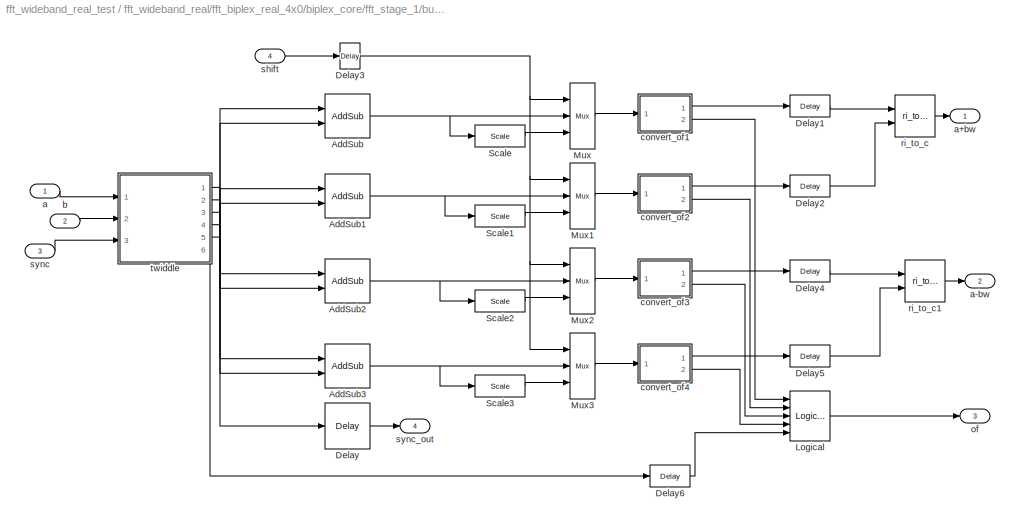
BLOCK [SubSystem] fft_wideband_real/fft_biplex_real_4x0/biplex_core/fft_stage_1/butterfly_direct
  AncestorBlock = casper_library/FFTs/butterfly_direct
  AttributesFormatString = FFTSize=3, Coeffs=[0],\n coeff_bit_width=12
  FunctionWithSeparateData = off
  MaskCallbackString = ||coeffs = eval(get_param(gcb,'Coeffs'));\nvisibs = get_param(gcb,'MaskVisibilities');\nif length(coeffs) == 1,\n    visibs{5} = 'off'; visibs{6} = 'off';\n    visibs{7} = 'off'; visibs{8} = 'off';\nelse\n    visibs{8} = 'on'; visibs{5} = 'on';\n    visibs{6} = 'on'; visibs{7} = 'on';\nend    \nset_param(gcb, 'MaskVisibilities', visibs);||||||||||||use_hdl = get_param(gcb,'use_hdl');\nvisibs = get...<+213ch>  <repeated x7 — deduplicated; at blocks: butterfly_direct, butterfly1_0, butterfly1_1, butterfly2_0, butterfly2_1>
  MaskEnableString = on,on,on,on,on,on,on,on,on,on,on,on,on,on,on,on
  MaskIconFrame = on
  MaskIconOpaque = on
  MaskIconRotate = none
  MaskIconUnits = autoscale
  MaskInitialization = butterfly_direct_init(gcb,...\n              'biplex', biplex,...\n              'FFTSize', FFTSize,...\n              'Coeffs', Coeffs,...\n              'coeff_bit_width', coeff_bit_width,...\n              'StepPeriod', StepPeriod,...\n              'bram_latency', bram_latency,...\n              'coeffs_bram', coeffs_bram,...\n              'input_bit_width', input_bit_width,...\n             ...<+327ch>  <repeated x7 — deduplicated; at blocks: butterfly_direct, butterfly1_0, butterfly1_1, butterfly2_0, butterfly2_1>
  MaskPromptString = Used in biplex FFT|Size of FFT: (2^?)|Coefficients: (0 to 2^(FFTSize-1)-1)|Coefficient Bit Width|Coefficient Step Period: (2^?)|BRAM Latency|Implement coefficients in BRAM|Input/Output Bit Width:|Add Latency|Mult Latency|Quantization Behavior|Overflow Behavior|Architecture|Optimisation target|Use behavioural HDL for multipliers|Use embedded multipliers  <repeated x7 — deduplicated; at blocks: butterfly_direct, butterfly1_0, butterfly1_1, butterfly2_0, butterfly2_1>
  MaskSelfModifiable = on
  MaskStyleString = checkbox,edit,edit,edit,edit,edit,checkbox,edit,edit,edit,popup(Truncate|Round  (unbiased: +/- Inf)|Round  (unbiased: Even Values)),popup(Wrap|Saturate|Error),popup(Virtex2Pro|Virtex5),popup(Logic|Multipliers),checkbox,checkbox  <repeated x7 — deduplicated; at blocks: butterfly_direct, butterfly1_0, butterfly1_1, butterfly2_0, butterfly2_1>
  MaskTabNameString = ,,,,,,,,,,,,,,,
  MaskToolTipString = on,on,on,on,on,on,on,on,on,on,on,on,on,on,on,on
  MaskTunableValueString = on,on,on,on,on,on,on,on,on,on,on,on,on,on,on,on
  MaskType = butterfly_direct
  MaskValueString = on|3|0|12|2|1|off|12|1|2|Round  (unbiased: Even Values)|Saturate|Virtex2Pro|Multipliers|on|off
  MaskVarAliasString = ,,,,,,,,,,,,,,,
  MaskVariables = biplex=&1;FFTSize=@2;Coeffs=@3;coeff_bit_width=@4;StepPeriod=@5;bram_latency=@6;coeffs_bram=&7;input_bit_width=@8;add_latency=@9;mult_latency=@10;quantization=&11;overflow=&12;arch=&13;opt_target=&14;use_hdl=&15;use_embedded=&16;  <repeated x7 — deduplicated; at blocks: butterfly_direct, butterfly1_0, butterfly1_1, butterfly2_0, butterfly2_1>
  MaskVisibilityString = off,on,on,on,on,on,on,on,on,on,on,on,on,on,on,off
  MinAlgLoopOccurrences = off
  Ports = [4, 4]
  RTWSystemCode = Auto
  UserData = DataTag18
  UserDataPersistent = on
BLOCK [Reference] fft_wideband_real/fft_biplex_real_4x0/biplex_core/fft_stage_1/butterfly_direct/AddSub  REF=xbsIndex_r4/AddSub
  Ports = [2, 1]
  SourceBlock = xbsIndex_r4/AddSub
  SourceType = Xilinx Adder/Subtractor Block
  arith_type = Unsigned
  bin_pt = 2
  block_type = addsub
  block_version = 9.1.01
  dbl_ovrd = off
  en = off
  has_advanced_control = 0
  hw_selection = Fabric
  latency = add_latency
  mode = Addition
  n_bits = 8
  overflow = Wrap
  pipelined = on
  precision = Full
  quantization = Truncate
  sg_icon_stat = 45,44,2,1,white,blue,0,d7118884,right
  sg_mask_display = fprintf('','COMMENT: begin icon graphics');\npatch([0 60 60 0 ],[0 0 58 58 ],[0.77 0.82 0.91]);\npatch([15 5 19 5 15 30 34 38 54 41 29 20 34 20 29 41 54 38 34 30 15 ],[6 16 30 44 54 54 50 54 54 41 53 44 30 16 7 19 6 6 10 6 6 ],[0.98 0.96 0.92]);\nplot([0 60 60 0 0 ],[0 0 58 58 0 ]);\nfprintf('','COMMENT: end icon graphics');\nfprintf('','COMMENT: begin icon text');\ncolor('black');port_label('inpu...<+234ch>  <repeated x53 — deduplicated; at blocks: AddSub, AddSub1, AddSub2, AddSub3, AddSub4>
  sggui_pos = 20,20,348,342
  use_behavioral_HDL = on
  use_carryin = off
  use_carryout = off
  use_rpm = on
  xl_area = [0, 0, 0, 0, 0, 0, 0]
  xl_use_area = off
BLOCK [Reference] fft_wideband_real/fft_biplex_real_4x0/biplex_core/fft_stage_1/butterfly_direct/AddSub1  REF=xbsIndex_r4/AddSub
  Ports = [2, 1]
  SourceBlock = xbsIndex_r4/AddSub
  SourceType = Xilinx Adder/Subtractor Block
  arith_type = Unsigned
  bin_pt = 2
  block_type = addsub
  block_version = 9.1.01
  dbl_ovrd = off
  en = off
  has_advanced_control = 0
  hw_selection = Fabric
  latency = add_latency
  mode = Addition
  n_bits = 8
  overflow = Wrap
  pipelined = on
  precision = Full
  quantization = Truncate
  sg_icon_stat = 45,44,2,1,white,blue,0,d7118884,right
  sggui_pos = 20,20,348,342
  use_behavioral_HDL = on
  use_carryin = off
  use_carryout = off
  use_rpm = on
  xl_area = [0, 0, 0, 0, 0, 0, 0]
  xl_use_area = off
BLOCK [Reference] fft_wideband_real/fft_biplex_real_4x0/biplex_core/fft_stage_1/butterfly_direct/AddSub2  REF=xbsIndex_r4/AddSub
  Ports = [2, 1]
  SourceBlock = xbsIndex_r4/AddSub
  SourceType = Xilinx Adder/Subtractor Block
  arith_type = Unsigned
  bin_pt = 2
  block_type = addsub
  block_version = 9.1.01
  dbl_ovrd = off
  en = off
  has_advanced_control = 0
  hw_selection = Fabric
  latency = add_latency
  mode = Subtraction
  n_bits = 8
  overflow = Wrap
  pipelined = on
  precision = Full
  quantization = Truncate
  sg_icon_stat = 45,44,2,1,white,blue,0,f900bd06,right
  sggui_pos = 20,20,348,342
  use_behavioral_HDL = on
  use_carryin = off
  use_carryout = off
  use_rpm = on
  xl_area = [0, 0, 0, 0, 0, 0, 0]
  xl_use_area = off
BLOCK [Reference] fft_wideband_real/fft_biplex_real_4x0/biplex_core/fft_stage_1/butterfly_direct/AddSub3  REF=xbsIndex_r4/AddSub
  Ports = [2, 1]
  SourceBlock = xbsIndex_r4/AddSub
  SourceType = Xilinx Adder/Subtractor Block
  arith_type = Unsigned
  bin_pt = 2
  block_type = addsub
  block_version = 9.1.01
  dbl_ovrd = off
  en = off
  has_advanced_control = 0
  hw_selection = Fabric
  latency = add_latency
  mode = Subtraction
  n_bits = 8
  overflow = Wrap
  pipelined = on
  precision = Full
  quantization = Truncate
  sg_icon_stat = 45,44,2,1,white,blue,0,f900bd06,right
  sggui_pos = -1,-1,-1,-1
  use_behavioral_HDL = on
  use_carryin = off
  use_carryout = off
  use_rpm = on
  xl_area = [0, 0, 0, 0, 0, 0, 0]
  xl_use_area = off
BLOCK [Reference] fft_wideband_real/fft_biplex_real_4x0/biplex_core/fft_stage_1/butterfly_direct/Delay  REF=xbsIndex_r4/Delay
  Ports = [1, 1]
  SourceBlock = xbsIndex_r4/Delay
  SourceType = Xilinx Delay Block
  block_type = delay
  block_version = 9.1.01
  dbl_ovrd = off
  en = off
  has_advanced_control = 0
  infoedit = Hardware notes: A delay line is a chain, each link of which is an SRL16 followed by a flip-flop.
  latency = add_latency + 3
  reg_retiming = off
  sg_icon_stat = 45,46,1,1,white,blue,0,c2217bc4,right
  sggui_pos = 20,20,407,280
  xl_area = [0, 0, 0, 0, 0, 0, 0]
  xl_use_area = off
BLOCK [Reference] fft_wideband_real/fft_biplex_real_4x0/biplex_core/fft_stage_1/butterfly_direct/Delay1  REF=xbsIndex_r4/Delay
  Ports = [1, 1]
  SourceBlock = xbsIndex_r4/Delay
  SourceType = Xilinx Delay Block
  block_type = delay
  block_version = 10.1.1
  dbl_ovrd = off
  en = off
  has_advanced_control = 0
  infoedit = Hardware notes: A delay line is a chain, each link of which is an SRL16 followed by a flip-flop.
  latency = 1
  reg_retiming = off
  sg_icon_stat = 40,22,1,1,white,blue,0,fc531c0e,right
  sggui_pos = -1,-1,-1,-1
  xl_area = [0,0,0,0,0,0,0]
  xl_use_area = off
BLOCK [Reference] fft_wideband_real/fft_biplex_real_4x0/biplex_core/fft_stage_1/butterfly_direct/Delay2  REF=xbsIndex_r4/Delay
  Ports = [1, 1]
  SourceBlock = xbsIndex_r4/Delay
  SourceType = Xilinx Delay Block
  block_type = delay
  block_version = 10.1.1
  dbl_ovrd = off
  en = off
  has_advanced_control = 0
  infoedit = Hardware notes: A delay line is a chain, each link of which is an SRL16 followed by a flip-flop.
  latency = 1
  reg_retiming = off
  sg_icon_stat = 40,22,1,1,white,blue,0,fc531c0e,right
  sggui_pos = -1,-1,-1,-1
  xl_area = [0,0,0,0,0,0,0]
  xl_use_area = off
BLOCK [Reference] fft_wideband_real/fft_biplex_real_4x0/biplex_core/fft_stage_1/butterfly_direct/Delay3  REF=xbsIndex_r4/Delay
  Ports = [1, 1]
  SourceBlock = xbsIndex_r4/Delay
  SourceType = Xilinx Delay Block
  block_type = delay
  block_version = 9.1.01
  dbl_ovrd = off
  en = off
  has_advanced_control = 0
  infoedit = Hardware notes: A delay line is a chain, each link of which is an SRL16 followed by a flip-flop.
  latency = add_latency
  reg_retiming = off
  sg_icon_stat = 20,26,1,1,white,blue,0,fc531c0e,right
  sggui_pos = 20,20,407,280
  xl_area = [0, 0, 0, 0, 0, 0, 0]
  xl_use_area = off
BLOCK [Reference] fft_wideband_real/fft_biplex_real_4x0/biplex_core/fft_stage_1/butterfly_direct/Delay4  REF=xbsIndex_r4/Delay
  Ports = [1, 1]
  SourceBlock = xbsIndex_r4/Delay
  SourceType = Xilinx Delay Block
  block_type = delay
  block_version = 10.1.1
  dbl_ovrd = off
  en = off
  has_advanced_control = 0
  infoedit = Hardware notes: A delay line is a chain, each link of which is an SRL16 followed by a flip-flop.
  latency = 1
  reg_retiming = off
  sg_icon_stat = 40,22,1,1,white,blue,0,fc531c0e,right
  sggui_pos = -1,-1,-1,-1
  xl_area = [0,0,0,0,0,0,0]
  xl_use_area = off
BLOCK [Reference] fft_wideband_real/fft_biplex_real_4x0/biplex_core/fft_stage_1/butterfly_direct/Delay5  REF=xbsIndex_r4/Delay
  Ports = [1, 1]
  SourceBlock = xbsIndex_r4/Delay
  SourceType = Xilinx Delay Block
  block_type = delay
  block_version = 10.1.1
  dbl_ovrd = off
  en = off
  has_advanced_control = 0
  infoedit = Hardware notes: A delay line is a chain, each link of which is an SRL16 followed by a flip-flop.
  latency = 1
  reg_retiming = off
  sg_icon_stat = 40,22,1,1,white,blue,0,fc531c0e,right
  sggui_pos = -1,-1,-1,-1
  xl_area = [0,0,0,0,0,0,0]
  xl_use_area = off
BLOCK [Reference] fft_wideband_real/fft_biplex_real_4x0/biplex_core/fft_stage_1/butterfly_direct/Delay6  REF=xbsIndex_r4/Delay
  Ports = [1, 1]
  SourceBlock = xbsIndex_r4/Delay
  SourceType = Xilinx Delay Block
  block_type = delay
  block_version = 10.1.1
  dbl_ovrd = off
  en = off
  has_advanced_control = 0
  infoedit = Hardware notes: A delay line is a chain, each link of which is an SRL16 followed by a flip-flop.
  latency = add_latency+2
  reg_retiming = off
  sg_icon_stat = 40,22,1,1,white,blue,0,eabd56db,right
  sg_mask_display = fprintf('','COMMENT: begin icon graphics');\npatch([0 60 60 0 ],[0 0 56 56 ],[0.77 0.82 0.91]);\npatch([15 6 19 6 15 30 34 38 54 41 29 20 32 20 29 41 54 38 34 30 15 ],[6 15 28 41 50 50 46 50 50 37 49 40 28 16 7 19 6 6 10 6 6 ],[0.98 0.96 0.92]);\nplot([0 60 60 0 0 ],[0 0 56 56 0 ]);\nfprintf('','COMMENT: end icon graphics');\nfprintf('','COMMENT: begin icon text');\ncolor('black');disp('z^{-3}','t...<+55ch>  <repeated x9 — deduplicated; at blocks: Delay6, delay_din0, delay_din1>
  sggui_pos = 20,20,348,254
  xl_area = [0,0,0,0,0,0,0]
  xl_use_area = off
BLOCK [Reference] fft_wideband_real/fft_biplex_real_4x0/biplex_core/fft_stage_1/butterfly_direct/Logical  REF=xbsIndex_r4/Logical
  Ports = [5, 1]
  SourceBlock = xbsIndex_r4/Logical
  SourceType = Xilinx Logical Block Block
  align_bp = on
  arith_type = Unsigned
  bin_pt = 0
  block_type = logical
  block_version = 10.1.1
  dbl_ovrd = off
  en = off
  has_advanced_control = 0
  inputs = 5
  latency = 1
  logical_function = OR
  n_bits = 16
  precision = Full
  sg_icon_stat = 40,50,5,1,white,blue,0,5d6b706e,right
  sg_mask_display = fprintf('','COMMENT: begin icon graphics');\npatch([0 40 40 0 ],[0 0 50 50 ],[0.77 0.82 0.91]);\npatch([10 3 12 3 10 21 24 27 38 29 20 14 24 14 20 29 38 27 24 21 10 ],[9 16 25 34 41 41 38 41 41 32 41 35 25 15 9 18 9 9 12 9 9 ],[0.98 0.96 0.92]);\nplot([0 40 40 0 0 ],[0 0 50 50 0 ]);\nfprintf('','COMMENT: end icon graphics');\nfprintf('','COMMENT: begin icon text');\ncolor('black');disp('\\newlineo...<+75ch>  <repeated x7 — deduplicated; at blocks: Logical>
  sggui_pos = 20,20,407,291
  xl_area = [0,0,0,0,0,0,0]
  xl_use_area = off
BLOCK [Reference] fft_wideband_real/fft_biplex_real_4x0/biplex_core/fft_stage_1/butterfly_direct/Mux  REF=xbsIndex_r4/Mux
  Ports = [3, 1]
  SourceBlock = xbsIndex_r4/Mux
  SourceType = Xilinx Bus Multiplexer Block
  arith_type = Signed  (2's comp)
  bin_pt = 2
  block_type = mux
  block_version = 9.1.01
  dbl_ovrd = off
  en = off
  has_advanced_control = 0
  inputs = 2
  latency = 1
  n_bits = 8
  overflow = Wrap
  precision = Full
  quantization = Truncate
  sg_icon_stat = 25,66,3,1,white,blue,3,03f9c9b9,right
  sggui_pos = 20,20,348,306
  xl_area = [0, 0, 0, 0, 0, 0, 0]
  xl_use_area = off
BLOCK [Reference] fft_wideband_real/fft_biplex_real_4x0/biplex_core/fft_stage_1/butterfly_direct/Mux1  REF=xbsIndex_r4/Mux
  Ports = [3, 1]
  SourceBlock = xbsIndex_r4/Mux
  SourceType = Xilinx Bus Multiplexer Block
  arith_type = Signed  (2's comp)
  bin_pt = 2
  block_type = mux
  block_version = 9.1.01
  dbl_ovrd = off
  en = off
  has_advanced_control = 0
  inputs = 2
  latency = 1
  n_bits = 8
  overflow = Wrap
  precision = Full
  quantization = Truncate
  sg_icon_stat = 25,66,3,1,white,blue,3,03f9c9b9,right
  sggui_pos = 20,20,407,344
  xl_area = [0, 0, 0, 0, 0, 0, 0]
  xl_use_area = off
BLOCK [Reference] fft_wideband_real/fft_biplex_real_4x0/biplex_core/fft_stage_1/butterfly_direct/Mux2  REF=xbsIndex_r4/Mux
  Ports = [3, 1]
  SourceBlock = xbsIndex_r4/Mux
  SourceType = Xilinx Bus Multiplexer Block
  arith_type = Signed  (2's comp)
  bin_pt = 2
  block_type = mux
  block_version = 9.1.01
  dbl_ovrd = off
  en = off
  has_advanced_control = 0
  inputs = 2
  latency = 1
  n_bits = 8
  overflow = Wrap
  precision = Full
  quantization = Truncate
  sg_icon_stat = 25,66,3,1,white,blue,3,03f9c9b9,right
  sggui_pos = 20,20,407,344
  xl_area = [0, 0, 0, 0, 0, 0, 0]
  xl_use_area = off
BLOCK [Reference] fft_wideband_real/fft_biplex_real_4x0/biplex_core/fft_stage_1/butterfly_direct/Mux3  REF=xbsIndex_r4/Mux
  Ports = [3, 1]
  SourceBlock = xbsIndex_r4/Mux
  SourceType = Xilinx Bus Multiplexer Block
  arith_type = Signed  (2's comp)
  bin_pt = 2
  block_type = mux
  block_version = 9.1.01
  dbl_ovrd = off
  en = off
  has_advanced_control = 0
  inputs = 2
  latency = 1
  n_bits = 8
  overflow = Wrap
  precision = Full
  quantization = Truncate
  sg_icon_stat = 25,66,3,1,white,blue,3,03f9c9b9,right
  sggui_pos = 20,20,407,344
  xl_area = [0, 0, 0, 0, 0, 0, 0]
  xl_use_area = off
BLOCK [Reference] fft_wideband_real/fft_biplex_real_4x0/biplex_core/fft_stage_1/butterfly_direct/Scale  REF=xbsIndex_r4/Scale
  Ports = [1, 1]
  SourceBlock = xbsIndex_r4/Scale
  SourceType = Xilinx Input Scaler Block
  block_type = scale
  block_version = 9.1.01
  dbl_ovrd = off
  has_advanced_control = 0
  infoedit = Scales input by a power of two by adjusting the binary point position.<P><P>Hardware notes: In hardware this block costs nothing.
  scale_factor = -1
  sg_icon_stat = 50,22,1,1,white,blue,0,4d520166,right
  sg_mask_display = fprintf('','COMMENT: begin icon graphics');\npatch([0 55 55 0 ],[0 0 56 56 ],[0.77 0.82 0.91]);\npatch([13 4 17 4 13 28 32 36 52 40 28 19 32 19 28 40 52 36 32 28 13 ],[6 15 28 41 50 50 46 50 50 38 50 41 28 15 6 18 6 6 10 6 6 ],[0.98 0.96 0.92]);\nplot([0 55 55 0 0 ],[0 0 56 56 0 ]);\nfprintf('','COMMENT: end icon graphics');\nfprintf('','COMMENT: begin icon text');\ncolor('black');disp('\\bf{2^{-1...<+61ch>  <repeated x28 — deduplicated; at blocks: Scale, Scale1, Scale2, Scale3>
  sggui_pos = -1,-1,-1,-1
BLOCK [Reference] fft_wideband_real/fft_biplex_real_4x0/biplex_core/fft_stage_1/butterfly_direct/Scale1  REF=xbsIndex_r4/Scale
  Ports = [1, 1]
  SourceBlock = xbsIndex_r4/Scale
  SourceType = Xilinx Input Scaler Block
  block_type = scale
  block_version = 9.1.01
  dbl_ovrd = off
  has_advanced_control = 0
  infoedit = Scales input by a power of two by adjusting the binary point position.<P><P>Hardware notes: In hardware this block costs nothing.
  scale_factor = -1
  sg_icon_stat = 50,22,1,1,white,blue,0,4d520166,right
  sggui_pos = -1,-1,-1,-1
BLOCK [Reference] fft_wideband_real/fft_biplex_real_4x0/biplex_core/fft_stage_1/butterfly_direct/Scale2  REF=xbsIndex_r4/Scale
  Ports = [1, 1]
  SourceBlock = xbsIndex_r4/Scale
  SourceType = Xilinx Input Scaler Block
  block_type = scale
  block_version = 9.1.01
  dbl_ovrd = off
  has_advanced_control = 0
  infoedit = Scales input by a power of two by adjusting the binary point position.<P><P>Hardware notes: In hardware this block costs nothing.
  scale_factor = -1
  sg_icon_stat = 50,22,1,1,white,blue,0,4d520166,right
  sggui_pos = -1,-1,-1,-1
BLOCK [Reference] fft_wideband_real/fft_biplex_real_4x0/biplex_core/fft_stage_1/butterfly_direct/Scale3  REF=xbsIndex_r4/Scale
  Ports = [1, 1]
  SourceBlock = xbsIndex_r4/Scale
  SourceType = Xilinx Input Scaler Block
  block_type = scale
  block_version = 9.1.01
  dbl_ovrd = off
  has_advanced_control = 0
  infoedit = Scales input by a power of two by adjusting the binary point position.<P><P>Hardware notes: In hardware this block costs nothing.
  scale_factor = -1
  sg_icon_stat = 50,22,1,1,white,blue,0,4d520166,right
  sggui_pos = -1,-1,-1,-1
BLOCK [Inport] fft_wideband_real/fft_biplex_real_4x0/biplex_core/fft_stage_1/butterfly_direct/a
  IconDisplay = Port number
  OutDataType = sfix(16)
  OutScaling = 2^0
BLOCK [Outport] fft_wideband_real/fft_biplex_real_4x0/biplex_core/fft_stage_1/butterfly_direct/a+bw
  IconDisplay = Port number
  OutDataType = sfix(16)
  OutScaling = 2^0
BLOCK [Outport] fft_wideband_real/fft_biplex_real_4x0/biplex_core/fft_stage_1/butterfly_direct/a-bw
  IconDisplay = Port number
  OutDataType = sfix(16)
  OutScaling = 2^0
  Port = 2
BLOCK [Inport] fft_wideband_real/fft_biplex_real_4x0/biplex_core/fft_stage_1/butterfly_direct/b
  IconDisplay = Port number
  OutDataType = sfix(16)
  OutScaling = 2^0
  Port = 2
BLOCK [SubSystem] fft_wideband_real/fft_biplex_real_4x0/biplex_core/fft_stage_1/butterfly_direct/convert_of1
  AncestorBlock = casper_library/Misc/convert_of
  AttributesFormatString = [14,12]->[12,11]
  FunctionWithSeparateData = off
  MaskCallbackString = ||||||
  MaskDescription = Converts from one 2's complement bit-width \nand/or binary point position to another. \nIncludes underflow/overflow indicator.
  MaskEnableString = on,on,on,on,on,on,on
  MaskIconFrame = on
  MaskIconOpaque = on
  MaskIconRotate = none
  MaskIconUnits = autoscale
  MaskInitialization = convert_of_init(gcb, ...\n    'bit_width_i', bit_width_i, ...\n    'binary_point_i', binary_point_i, ...\n    'bit_width_o', bit_width_o, ...\n    'binary_point_o', binary_point_o, ...\n    'latency', latency, ...\n    'overflow', overflow, ...\n    'quantization', quantization);\n  <repeated x43 — deduplicated; at blocks: convert_of1, convert_of2, convert_of3, convert_of4, convert_of>
  MaskPromptString = Bit Width In|Binary Point In|Bit Width Out|Binary Point Out|Latency|Overflow Behaviour|Quantization Behaviour
  MaskStyleString = edit,edit,edit,edit,edit,popup(Wrap|Saturate|Error),popup(Truncate|Round  (unbiased: +/- Inf)|Round  (unbiased: even values))
  MaskTabNameString = ,,,,,,
  MaskToolTipString = on,on,on,on,on,on,on
  MaskTunableValueString = on,on,on,on,on,on,on
  MaskType = convert_of
  MaskValueString = 14|12|12|11|1|Saturate|Round  (unbiased: even values)
  MaskVarAliasString = ,,,,,,
  MaskVariables = bit_width_i=@1;binary_point_i=@2;bit_width_o=@3;binary_point_o=@4;latency=@5;overflow=&6;quantization=&7;
  MaskVisibilityString = on,on,on,on,on,on,on
  MinAlgLoopOccurrences = off
  Ports = [1, 2]
  RTWSystemCode = Auto
  UserData = DataTag19
  UserDataPersistent = on
BLOCK [Reference] fft_wideband_real/fft_biplex_real_4x0/biplex_core/fft_stage_1/butterfly_direct/convert_of1/convert  REF=xbsIndex_r4/Convert
  Ports = [1, 1]
  SourceBlock = xbsIndex_r4/Convert
  SourceType = Xilinx Type Converter Block
  arith_type = Signed  (2's comp)
  bin_pt = binary_point_o
  block_type = convert
  block_version = 10.1.1
  dbl_ovrd = off
  has_advanced_control = 0
  infoedit = Hardware notes: rounding and saturating require hardware resources; truncating and wrapping do not.
  latency = latency
  n_bits = bit_width_o
  overflow = Saturate
  pipeline = off
  quantization = Round  (unbiased: Even Values)
  sg_icon_stat = 45,30,1,1,white,blue,0,ba4d1298,right
  sg_mask_display = fprintf('','COMMENT: begin icon graphics');\npatch([0 45 45 0 ],[0 0 30 30 ],[0.77 0.82 0.91]);\npatch([15 10 17 10 15 23 25 27 35 28 22 17 23 17 22 28 35 27 25 23 15 ],[3 8 15 22 27 27 25 27 27 20 26 21 15 9 4 10 3 3 5 3 3 ],[0.98 0.96 0.92]);\nplot([0 45 45 0 0 ],[0 0 30 30 0 ]);\nfprintf('','COMMENT: end icon graphics');\nfprintf('','COMMENT: begin icon text');\ncolor('black');port_label('outpu...<+110ch>  <repeated x28 — deduplicated; at blocks: convert>
  sggui_pos = 20,20,538,377
  xl_area = [0,0,0,0,0,0,0]
  xl_use_area = off
BLOCK [Inport] fft_wideband_real/fft_biplex_real_4x0/biplex_core/fft_stage_1/butterfly_direct/convert_of1/din
  IconDisplay = Port number
  OutDataType = sfix(16)
  OutScaling = 2^0
BLOCK [Outport] fft_wideband_real/fft_biplex_real_4x0/biplex_core/fft_stage_1/butterfly_direct/convert_of1/dout
  IconDisplay = Port number
BLOCK [Outport] fft_wideband_real/fft_biplex_real_4x0/biplex_core/fft_stage_1/butterfly_direct/convert_of1/of
  IconDisplay = Port number
  Port = 2
BLOCK [Reference] fft_wideband_real/fft_biplex_real_4x0/biplex_core/fft_stage_1/butterfly_direct/convert_of1/slice1  REF=xbsIndex_r4/Slice
  Ports = [1, 1]
  SourceBlock = xbsIndex_r4/Slice
  SourceType = Xilinx Bit Slice Extractor Block
  base0 = LSB of Input
  base1 = MSB of Input
  bit0 = 0
  bit1 = 0
  block_type = slice
  block_version = 10.1.3
  boolean_output = on
  dbl_ovrd = off
  has_advanced_control = 0
  mode = Upper Bit Location + Width
  nbits = 1
  sg_icon_stat = 35,22,1,1,white,blue,0,b1026674,right
  sggui_pos = -1,-1,-1,-1
BLOCK [Reference] fft_wideband_real/fft_biplex_real_4x0/biplex_core/fft_stage_1/butterfly_direct/convert_of1/slice2  REF=xbsIndex_r4/Slice
  Ports = [1, 1]
  SourceBlock = xbsIndex_r4/Slice
  SourceType = Xilinx Bit Slice Extractor Block
  base0 = LSB of Input
  base1 = MSB of Input
  bit0 = 0
  bit1 = -1
  block_type = slice
  block_version = 10.1.3
  boolean_output = on
  dbl_ovrd = off
  has_advanced_control = 0
  mode = Upper Bit Location + Width
  nbits = 1
  sg_icon_stat = 35,22,1,1,white,blue,0,b1026674,right
  sggui_pos = -1,-1,-1,-1
BLOCK [Reference] fft_wideband_real/fft_biplex_real_4x0/biplex_core/fft_stage_1/butterfly_direct/convert_of1/xor  REF=xbsIndex_r4/Logical
  Ports = [2, 1]
  SourceBlock = xbsIndex_r4/Logical
  SourceType = Xilinx Logical Block Block
  align_bp = on
  arith_type = Unsigned
  bin_pt = 0
  block_type = logical
  block_version = 10.1.3
  dbl_ovrd = off
  en = off
  has_advanced_control = 0
  inputs = 2
  latency = latency
  logical_function = XOR
  n_bits = 16
  precision = Full
  sg_icon_stat = 50,60,1,1,white,blue,0,52e2cb93,right
  sg_mask_display = fprintf('','COMMENT: begin icon graphics');\npatch([0 50 50 0 ],[0 0 60 60 ],[0.77 0.82 0.91]);\npatch([11 3 15 3 11 24 28 32 46 35 24 16 28 16 24 35 46 32 28 24 11 ],[10 18 30 42 50 50 46 50 50 39 50 42 30 18 10 21 10 10 14 10 10 ],[0.98 0.96 0.92]);\nplot([0 50 50 0 0 ],[0 0 60 60 0 ]);\nfprintf('','COMMENT: end icon graphics');\nfprintf('','COMMENT: begin icon text');\ncolor('black');disp('\\ne...<+82ch>  <repeated x28 — deduplicated; at blocks: xor>
  sggui_pos = -1,-1,-1,-1
  xl_area = [0,0,0,0,0,0,0]
  xl_use_area = off
BLOCK [SubSystem] fft_wideband_real/fft_biplex_real_4x0/biplex_core/fft_stage_1/butterfly_direct/convert_of2
  AncestorBlock = casper_library/FFTs/butterfly_direct/convert_of1
  AttributesFormatString = [14,12]->[12,11]
  FunctionWithSeparateData = off
  MaskCallbackString = ||||||
  MaskDescription = Converts from one 2's complement bit-width \nand/or binary point position to another. \nIncludes underflow/overflow indicator.
  MaskEnableString = on,on,on,on,on,on,on
  MaskIconFrame = on
  MaskIconOpaque = on
  MaskIconRotate = none
  MaskIconUnits = autoscale
  MaskPromptString = Bit Width In|Binary Point In|Bit Width Out|Binary Point Out|Latency|Overflow Behaviour|Quantization Behaviour
  MaskStyleString = edit,edit,edit,edit,edit,popup(Wrap|Saturate|Error),popup(Truncate|Round  (unbiased: +/- Inf)|Round  (unbiased: even values))
  MaskTabNameString = ,,,,,,
  MaskToolTipString = on,on,on,on,on,on,on
  MaskTunableValueString = on,on,on,on,on,on,on
  MaskType = convert_of
  MaskValueString = 14|12|12|11|1|Saturate|Round  (unbiased: even values)
  MaskVarAliasString = ,,,,,,
  MaskVariables = bit_width_i=@1;binary_point_i=@2;bit_width_o=@3;binary_point_o=@4;latency=@5;overflow=&6;quantization=&7;
  MaskVisibilityString = on,on,on,on,on,on,on
  MinAlgLoopOccurrences = off
  Ports = [1, 2]
  RTWSystemCode = Auto
  UserData = DataTag20
  UserDataPersistent = on
BLOCK [Reference] fft_wideband_real/fft_biplex_real_4x0/biplex_core/fft_stage_1/butterfly_direct/convert_of2/convert  REF=xbsIndex_r4/Convert
  Ports = [1, 1]
  SourceBlock = xbsIndex_r4/Convert
  SourceType = Xilinx Type Converter Block
  arith_type = Signed  (2's comp)
  bin_pt = binary_point_o
  block_type = convert
  block_version = 10.1.1
  dbl_ovrd = off
  has_advanced_control = 0
  infoedit = Hardware notes: rounding and saturating require hardware resources; truncating and wrapping do not.
  latency = latency
  n_bits = bit_width_o
  overflow = Saturate
  pipeline = off
  quantization = Round  (unbiased: Even Values)
  sg_icon_stat = 45,30,1,1,white,blue,0,ba4d1298,right
  sggui_pos = 20,20,538,377
  xl_area = [0,0,0,0,0,0,0]
  xl_use_area = off
BLOCK [Inport] fft_wideband_real/fft_biplex_real_4x0/biplex_core/fft_stage_1/butterfly_direct/convert_of2/din
  IconDisplay = Port number
  OutDataType = sfix(16)
  OutScaling = 2^0
BLOCK [Outport] fft_wideband_real/fft_biplex_real_4x0/biplex_core/fft_stage_1/butterfly_direct/convert_of2/dout
  IconDisplay = Port number
BLOCK [Outport] fft_wideband_real/fft_biplex_real_4x0/biplex_core/fft_stage_1/butterfly_direct/convert_of2/of
  IconDisplay = Port number
  Port = 2
BLOCK [Reference] fft_wideband_real/fft_biplex_real_4x0/biplex_core/fft_stage_1/butterfly_direct/convert_of2/slice1  REF=xbsIndex_r4/Slice
  Ports = [1, 1]
  SourceBlock = xbsIndex_r4/Slice
  SourceType = Xilinx Bit Slice Extractor Block
  base0 = LSB of Input
  base1 = MSB of Input
  bit0 = 0
  bit1 = 0
  block_type = slice
  block_version = 10.1.3
  boolean_output = on
  dbl_ovrd = off
  has_advanced_control = 0
  mode = Upper Bit Location + Width
  nbits = 1
  sg_icon_stat = 35,22,1,1,white,blue,0,b1026674,right
  sggui_pos = -1,-1,-1,-1
BLOCK [Reference] fft_wideband_real/fft_biplex_real_4x0/biplex_core/fft_stage_1/butterfly_direct/convert_of2/slice2  REF=xbsIndex_r4/Slice
  Ports = [1, 1]
  SourceBlock = xbsIndex_r4/Slice
  SourceType = Xilinx Bit Slice Extractor Block
  base0 = LSB of Input
  base1 = MSB of Input
  bit0 = 0
  bit1 = -1
  block_type = slice
  block_version = 10.1.3
  boolean_output = on
  dbl_ovrd = off
  has_advanced_control = 0
  mode = Upper Bit Location + Width
  nbits = 1
  sg_icon_stat = 35,22,1,1,white,blue,0,b1026674,right
  sggui_pos = -1,-1,-1,-1
BLOCK [Reference] fft_wideband_real/fft_biplex_real_4x0/biplex_core/fft_stage_1/butterfly_direct/convert_of2/xor  REF=xbsIndex_r4/Logical
  Ports = [2, 1]
  SourceBlock = xbsIndex_r4/Logical
  SourceType = Xilinx Logical Block Block
  align_bp = on
  arith_type = Unsigned
  bin_pt = 0
  block_type = logical
  block_version = 10.1.3
  dbl_ovrd = off
  en = off
  has_advanced_control = 0
  inputs = 2
  latency = latency
  logical_function = XOR
  n_bits = 16
  precision = Full
  sg_icon_stat = 50,60,1,1,white,blue,0,52e2cb93,right
  sggui_pos = -1,-1,-1,-1
  xl_area = [0,0,0,0,0,0,0]
  xl_use_area = off
BLOCK [SubSystem] fft_wideband_real/fft_biplex_real_4x0/biplex_core/fft_stage_1/butterfly_direct/convert_of3
  AncestorBlock = casper_library/FFTs/butterfly_direct/convert_of1
  AttributesFormatString = [14,12]->[12,11]
  FunctionWithSeparateData = off
  MaskCallbackString = ||||||
  MaskDescription = Converts from one 2's complement bit-width \nand/or binary point position to another. \nIncludes underflow/overflow indicator.
  MaskEnableString = on,on,on,on,on,on,on
  MaskIconFrame = on
  MaskIconOpaque = on
  MaskIconRotate = none
  MaskIconUnits = autoscale
  MaskPromptString = Bit Width In|Binary Point In|Bit Width Out|Binary Point Out|Latency|Overflow Behaviour|Quantization Behaviour
  MaskStyleString = edit,edit,edit,edit,edit,popup(Wrap|Saturate|Error),popup(Truncate|Round  (unbiased: +/- Inf)|Round  (unbiased: even values))
  MaskTabNameString = ,,,,,,
  MaskToolTipString = on,on,on,on,on,on,on
  MaskTunableValueString = on,on,on,on,on,on,on
  MaskType = convert_of
  MaskValueString = 14|12|12|11|1|Saturate|Round  (unbiased: even values)
  MaskVarAliasString = ,,,,,,
  MaskVariables = bit_width_i=@1;binary_point_i=@2;bit_width_o=@3;binary_point_o=@4;latency=@5;overflow=&6;quantization=&7;
  MaskVisibilityString = on,on,on,on,on,on,on
  MinAlgLoopOccurrences = off
  Ports = [1, 2]
  RTWSystemCode = Auto
  UserData = DataTag21
  UserDataPersistent = on
BLOCK [Reference] fft_wideband_real/fft_biplex_real_4x0/biplex_core/fft_stage_1/butterfly_direct/convert_of3/convert  REF=xbsIndex_r4/Convert
  Ports = [1, 1]
  SourceBlock = xbsIndex_r4/Convert
  SourceType = Xilinx Type Converter Block
  arith_type = Signed  (2's comp)
  bin_pt = binary_point_o
  block_type = convert
  block_version = 10.1.1
  dbl_ovrd = off
  has_advanced_control = 0
  infoedit = Hardware notes: rounding and saturating require hardware resources; truncating and wrapping do not.
  latency = latency
  n_bits = bit_width_o
  overflow = Saturate
  pipeline = off
  quantization = Round  (unbiased: Even Values)
  sg_icon_stat = 45,30,1,1,white,blue,0,ba4d1298,right
  sggui_pos = 20,20,538,377
  xl_area = [0,0,0,0,0,0,0]
  xl_use_area = off
BLOCK [Inport] fft_wideband_real/fft_biplex_real_4x0/biplex_core/fft_stage_1/butterfly_direct/convert_of3/din
  IconDisplay = Port number
  OutDataType = sfix(16)
  OutScaling = 2^0
BLOCK [Outport] fft_wideband_real/fft_biplex_real_4x0/biplex_core/fft_stage_1/butterfly_direct/convert_of3/dout
  IconDisplay = Port number
BLOCK [Outport] fft_wideband_real/fft_biplex_real_4x0/biplex_core/fft_stage_1/butterfly_direct/convert_of3/of
  IconDisplay = Port number
  Port = 2
BLOCK [Reference] fft_wideband_real/fft_biplex_real_4x0/biplex_core/fft_stage_1/butterfly_direct/convert_of3/slice1  REF=xbsIndex_r4/Slice
  Ports = [1, 1]
  SourceBlock = xbsIndex_r4/Slice
  SourceType = Xilinx Bit Slice Extractor Block
  base0 = LSB of Input
  base1 = MSB of Input
  bit0 = 0
  bit1 = 0
  block_type = slice
  block_version = 10.1.3
  boolean_output = on
  dbl_ovrd = off
  has_advanced_control = 0
  mode = Upper Bit Location + Width
  nbits = 1
  sg_icon_stat = 35,22,1,1,white,blue,0,b1026674,right
  sggui_pos = -1,-1,-1,-1
BLOCK [Reference] fft_wideband_real/fft_biplex_real_4x0/biplex_core/fft_stage_1/butterfly_direct/convert_of3/slice2  REF=xbsIndex_r4/Slice
  Ports = [1, 1]
  SourceBlock = xbsIndex_r4/Slice
  SourceType = Xilinx Bit Slice Extractor Block
  base0 = LSB of Input
  base1 = MSB of Input
  bit0 = 0
  bit1 = -1
  block_type = slice
  block_version = 10.1.3
  boolean_output = on
  dbl_ovrd = off
  has_advanced_control = 0
  mode = Upper Bit Location + Width
  nbits = 1
  sg_icon_stat = 35,22,1,1,white,blue,0,b1026674,right
  sggui_pos = -1,-1,-1,-1
BLOCK [Reference] fft_wideband_real/fft_biplex_real_4x0/biplex_core/fft_stage_1/butterfly_direct/convert_of3/xor  REF=xbsIndex_r4/Logical
  Ports = [2, 1]
  SourceBlock = xbsIndex_r4/Logical
  SourceType = Xilinx Logical Block Block
  align_bp = on
  arith_type = Unsigned
  bin_pt = 0
  block_type = logical
  block_version = 10.1.3
  dbl_ovrd = off
  en = off
  has_advanced_control = 0
  inputs = 2
  latency = latency
  logical_function = XOR
  n_bits = 16
  precision = Full
  sg_icon_stat = 50,60,1,1,white,blue,0,52e2cb93,right
  sggui_pos = -1,-1,-1,-1
  xl_area = [0,0,0,0,0,0,0]
  xl_use_area = off
BLOCK [SubSystem] fft_wideband_real/fft_biplex_real_4x0/biplex_core/fft_stage_1/butterfly_direct/convert_of4
  AncestorBlock = casper_library/FFTs/butterfly_direct/convert_of1
  AttributesFormatString = [14,12]->[12,11]
  FunctionWithSeparateData = off
  MaskCallbackString = ||||||
  MaskDescription = Converts from one 2's complement bit-width \nand/or binary point position to another. \nIncludes underflow/overflow indicator.
  MaskEnableString = on,on,on,on,on,on,on
  MaskIconFrame = on
  MaskIconOpaque = on
  MaskIconRotate = none
  MaskIconUnits = autoscale
  MaskPromptString = Bit Width In|Binary Point In|Bit Width Out|Binary Point Out|Latency|Overflow Behaviour|Quantization Behaviour
  MaskStyleString = edit,edit,edit,edit,edit,popup(Wrap|Saturate|Error),popup(Truncate|Round  (unbiased: +/- Inf)|Round  (unbiased: even values))
  MaskTabNameString = ,,,,,,
  MaskToolTipString = on,on,on,on,on,on,on
  MaskTunableValueString = on,on,on,on,on,on,on
  MaskType = convert_of
  MaskValueString = 14|12|12|11|1|Saturate|Round  (unbiased: even values)
  MaskVarAliasString = ,,,,,,
  MaskVariables = bit_width_i=@1;binary_point_i=@2;bit_width_o=@3;binary_point_o=@4;latency=@5;overflow=&6;quantization=&7;
  MaskVisibilityString = on,on,on,on,on,on,on
  MinAlgLoopOccurrences = off
  Ports = [1, 2]
  RTWSystemCode = Auto
  UserData = DataTag22
  UserDataPersistent = on
BLOCK [Reference] fft_wideband_real/fft_biplex_real_4x0/biplex_core/fft_stage_1/butterfly_direct/convert_of4/convert  REF=xbsIndex_r4/Convert
  Ports = [1, 1]
  SourceBlock = xbsIndex_r4/Convert
  SourceType = Xilinx Type Converter Block
  arith_type = Signed  (2's comp)
  bin_pt = binary_point_o
  block_type = convert
  block_version = 10.1.1
  dbl_ovrd = off
  has_advanced_control = 0
  infoedit = Hardware notes: rounding and saturating require hardware resources; truncating and wrapping do not.
  latency = latency
  n_bits = bit_width_o
  overflow = Saturate
  pipeline = off
  quantization = Round  (unbiased: Even Values)
  sg_icon_stat = 45,30,1,1,white,blue,0,ba4d1298,right
  sggui_pos = 20,20,538,377
  xl_area = [0,0,0,0,0,0,0]
  xl_use_area = off
BLOCK [Inport] fft_wideband_real/fft_biplex_real_4x0/biplex_core/fft_stage_1/butterfly_direct/convert_of4/din
  IconDisplay = Port number
  OutDataType = sfix(16)
  OutScaling = 2^0
BLOCK [Outport] fft_wideband_real/fft_biplex_real_4x0/biplex_core/fft_stage_1/butterfly_direct/convert_of4/dout
  IconDisplay = Port number
BLOCK [Outport] fft_wideband_real/fft_biplex_real_4x0/biplex_core/fft_stage_1/butterfly_direct/convert_of4/of
  IconDisplay = Port number
  Port = 2
BLOCK [Reference] fft_wideband_real/fft_biplex_real_4x0/biplex_core/fft_stage_1/butterfly_direct/convert_of4/slice1  REF=xbsIndex_r4/Slice
  Ports = [1, 1]
  SourceBlock = xbsIndex_r4/Slice
  SourceType = Xilinx Bit Slice Extractor Block
  base0 = LSB of Input
  base1 = MSB of Input
  bit0 = 0
  bit1 = 0
  block_type = slice
  block_version = 10.1.3
  boolean_output = on
  dbl_ovrd = off
  has_advanced_control = 0
  mode = Upper Bit Location + Width
  nbits = 1
  sg_icon_stat = 35,22,1,1,white,blue,0,b1026674,right
  sggui_pos = -1,-1,-1,-1
BLOCK [Reference] fft_wideband_real/fft_biplex_real_4x0/biplex_core/fft_stage_1/butterfly_direct/convert_of4/slice2  REF=xbsIndex_r4/Slice
  Ports = [1, 1]
  SourceBlock = xbsIndex_r4/Slice
  SourceType = Xilinx Bit Slice Extractor Block
  base0 = LSB of Input
  base1 = MSB of Input
  bit0 = 0
  bit1 = -1
  block_type = slice
  block_version = 10.1.3
  boolean_output = on
  dbl_ovrd = off
  has_advanced_control = 0
  mode = Upper Bit Location + Width
  nbits = 1
  sg_icon_stat = 35,22,1,1,white,blue,0,b1026674,right
  sggui_pos = -1,-1,-1,-1
BLOCK [Reference] fft_wideband_real/fft_biplex_real_4x0/biplex_core/fft_stage_1/butterfly_direct/convert_of4/xor  REF=xbsIndex_r4/Logical
  Ports = [2, 1]
  SourceBlock = xbsIndex_r4/Logical
  SourceType = Xilinx Logical Block Block
  align_bp = on
  arith_type = Unsigned
  bin_pt = 0
  block_type = logical
  block_version = 10.1.3
  dbl_ovrd = off
  en = off
  has_advanced_control = 0
  inputs = 2
  latency = latency
  logical_function = XOR
  n_bits = 16
  precision = Full
  sg_icon_stat = 50,60,1,1,white,blue,0,52e2cb93,right
  sggui_pos = -1,-1,-1,-1
  xl_area = [0,0,0,0,0,0,0]
  xl_use_area = off
BLOCK [Outport] fft_wideband_real/fft_biplex_real_4x0/biplex_core/fft_stage_1/butterfly_direct/of
  IconDisplay = Port number
  OutDataType = sfix(16)
  OutScaling = 2^0
  Port = 3
BLOCK [Reference] fft_wideband_real/fft_biplex_real_4x0/biplex_core/fft_stage_1/butterfly_direct/ri_to_c  REF=casper_library/Misc/ri_to_c  (lib defined in mdl_138b2fc3435f, mdl_4ed325b712b3, +2 more)
  FunctionWithSeparateData = off
  Ports = [2, 1]
  RTWMemSecDataConstants = Inherit from model
  RTWMemSecDataInternal = Inherit from model
  RTWMemSecDataParameters = Inherit from model
  RTWMemSecFuncExecute = Inherit from model
  RTWMemSecFuncInitTerm = Inherit from model
  ShowPortLabels = FromPortIcon
  SourceBlock = casper_library/Misc/ri_to_c
  SourceType = ri_to_c
  SystemSampleTime = -1
  UserData = DataTag23
  UserDataPersistent = on
BLOCK [Reference] fft_wideband_real/fft_biplex_real_4x0/biplex_core/fft_stage_1/butterfly_direct/ri_to_c1  REF=casper_library/Misc/ri_to_c  (lib defined in mdl_138b2fc3435f, mdl_4ed325b712b3, +2 more)
  FunctionWithSeparateData = off
  Ports = [2, 1]
  RTWMemSecDataConstants = Inherit from model
  RTWMemSecDataInternal = Inherit from model
  RTWMemSecDataParameters = Inherit from model
  RTWMemSecFuncExecute = Inherit from model
  RTWMemSecFuncInitTerm = Inherit from model
  ShowPortLabels = FromPortIcon
  SourceBlock = casper_library/Misc/ri_to_c
  SourceType = ri_to_c
  SystemSampleTime = -1
  UserData = DataTag24
  UserDataPersistent = on
BLOCK [Inport] fft_wideband_real/fft_biplex_real_4x0/biplex_core/fft_stage_1/butterfly_direct/shift
  IconDisplay = Port number
  OutDataType = sfix(16)
  OutScaling = 2^0
  Port = 4
BLOCK [Inport] fft_wideband_real/fft_biplex_real_4x0/biplex_core/fft_stage_1/butterfly_direct/sync
  IconDisplay = Port number
  OutDataType = sfix(16)
  OutScaling = 2^0
  Port = 3
BLOCK [Outport] fft_wideband_real/fft_biplex_real_4x0/biplex_core/fft_stage_1/butterfly_direct/sync_out
  IconDisplay = Port number
  OutDataType = sfix(16)
  OutScaling = 2^0
  Port = 4
BLOCK [SubSystem] fft_wideband_real/fft_biplex_real_4x0/biplex_core/fft_stage_1/butterfly_direct/twiddle
  AncestorBlock = casper_library/FFTs/Twiddle/twiddle_pass_through
  FunctionWithSeparateData = off
  MaskCallbackString = ||||||
  MaskDescription = Used in FFT library. Used when coefficients \nare 2^0 i.e just pass data through without delays
  MaskEnableString = on,on,on,on,on,on,on
  MaskIconFrame = on
  MaskIconOpaque = on
  MaskIconRotate = none
  MaskIconUnits = autoscale
  MaskPromptString = Input Bit Width|Coefficient Bit Width|Add Latency|Mult Latency|BRAM Latency|Use behavioural HDL for multipliers|Use embedded multipliers
  MaskSelfModifiable = on
  MaskStyleString = edit,edit,edit,edit,edit,checkbox,checkbox
  MaskTabNameString = ,,,,,,
  MaskToolTipString = on,on,on,on,on,on,on
  MaskTunableValueString = on,on,on,on,on,on,on
  MaskType = twiddle_pass_through
  MaskValueString = 12|12|1|2|1|on|off
  MaskVarAliasString = ,,,,,,
  MaskVariables = input_bit_width=@1;coeff_bit_width=@2;add_latency=@3;mult_latency=@4;bram_latency=@5;use_hdl=&6;use_embedded=&7;
  MaskVisibilityString = on,off,on,on,on,off,off
  MinAlgLoopOccurrences = off
  Ports = [3, 6]
  RTWSystemCode = Auto
BLOCK [Reference] fft_wideband_real/fft_biplex_real_4x0/biplex_core/fft_stage_1/butterfly_direct/twiddle/Constant  REF=xbsIndex_r4/Constant
  Ports = [0, 1]
  SourceBlock = xbsIndex_r4/Constant
  SourceType = Xilinx Constant Block Block
  arith_type = Boolean
  bin_pt = 14
  block_type = constant
  block_version = 10.1.3
  carry = CIN
  const = 0
  dbl_ovrd = off
  dsp48_infoedit = The use of this block for DSP48 instructions is deprecated.  Please use the Opmode block.
  equ = P=C
  explicit_period = on
  has_advanced_control = 0
  inp1 = P
  inp2 = PCIN>>17
  n_bits = 16
  opr = +
  opselect = C
  period = 1
  sg_icon_stat = 55,26,0,1,white,blue,0,72d575a1,right
  sggui_pos = 20,20,414,344
BLOCK [Inport] fft_wideband_real/fft_biplex_real_4x0/biplex_core/fft_stage_1/butterfly_direct/twiddle/a
  IconDisplay = Port number
  OutDataType = sfix(16)
  OutScaling = 2^0
BLOCK [Outport] fft_wideband_real/fft_biplex_real_4x0/biplex_core/fft_stage_1/butterfly_direct/twiddle/a_im
  IconDisplay = Port number
  OutDataType = sfix(16)
  OutScaling = 2^0
  Port = 2
BLOCK [Outport] fft_wideband_real/fft_biplex_real_4x0/biplex_core/fft_stage_1/butterfly_direct/twiddle/a_re
  IconDisplay = Port number
  OutDataType = sfix(16)
  OutScaling = 2^0
BLOCK [Inport] fft_wideband_real/fft_biplex_real_4x0/biplex_core/fft_stage_1/butterfly_direct/twiddle/b
  IconDisplay = Port number
  OutDataType = sfix(16)
  OutScaling = 2^0
  Port = 2
BLOCK [Outport] fft_wideband_real/fft_biplex_real_4x0/biplex_core/fft_stage_1/butterfly_direct/twiddle/bw_im
  IconDisplay = Port number
  OutDataType = sfix(16)
  OutScaling = 2^0
  Port = 4
BLOCK [Outport] fft_wideband_real/fft_biplex_real_4x0/biplex_core/fft_stage_1/butterfly_direct/twiddle/bw_re
  IconDisplay = Port number
  OutDataType = sfix(16)
  OutScaling = 2^0
  Port = 3
BLOCK [Reference] fft_wideband_real/fft_biplex_real_4x0/biplex_core/fft_stage_1/butterfly_direct/twiddle/c_to_ri  REF=casper_library/Misc/c_to_ri  (lib defined in mdl_138b2fc3435f, mdl_4ed325b712b3, +2 more)
  AttributesFormatString = 12_11 r/i
  FunctionWithSeparateData = off
  Ports = [1, 2]
  RTWMemSecDataConstants = Inherit from model
  RTWMemSecDataInternal = Inherit from model
  RTWMemSecDataParameters = Inherit from model
  RTWMemSecFuncExecute = Inherit from model
  RTWMemSecFuncInitTerm = Inherit from model
  ShowPortLabels = FromPortIcon
  SourceBlock = casper_library/Misc/c_to_ri
  SourceType = c_to_ri
  SystemSampleTime = -1
  UserData = DataTag25
  UserDataPersistent = on
  bin_pt = input_bit_width-1
  n_bits = input_bit_width
BLOCK [Reference] fft_wideband_real/fft_biplex_real_4x0/biplex_core/fft_stage_1/butterfly_direct/twiddle/c_to_ri1  REF=casper_library/Misc/c_to_ri  (lib defined in mdl_138b2fc3435f, mdl_4ed325b712b3, +2 more)
  AttributesFormatString = 12_11 r/i
  FunctionWithSeparateData = off
  Ports = [1, 2]
  RTWMemSecDataConstants = Inherit from model
  RTWMemSecDataInternal = Inherit from model
  RTWMemSecDataParameters = Inherit from model
  RTWMemSecFuncExecute = Inherit from model
  RTWMemSecFuncInitTerm = Inherit from model
  ShowPortLabels = FromPortIcon
  SourceBlock = casper_library/Misc/c_to_ri
  SourceType = c_to_ri
  SystemSampleTime = -1
  UserData = DataTag26
  UserDataPersistent = on
  bin_pt = input_bit_width-1
  n_bits = input_bit_width
BLOCK [Outport] fft_wideband_real/fft_biplex_real_4x0/biplex_core/fft_stage_1/butterfly_direct/twiddle/of
  IconDisplay = Port number
  OutDataType = sfix(16)
  OutScaling = 2^0
  Port = 6
BLOCK [Inport] fft_wideband_real/fft_biplex_real_4x0/biplex_core/fft_stage_1/butterfly_direct/twiddle/sync
  IconDisplay = Port number
  OutDataType = sfix(16)
  OutScaling = 2^0
  Port = 3
BLOCK [Outport] fft_wideband_real/fft_biplex_real_4x0/biplex_core/fft_stage_1/butterfly_direct/twiddle/sync_out
  IconDisplay = Port number
  OutDataType = sfix(16)
  OutScaling = 2^0
  Port = 5
BLOCK [SubSystem] fft_wideband_real/fft_biplex_real_4x0/biplex_core/fft_stage_1/delay_b
  AncestorBlock = casper_library/Delays/delay_slr
  FunctionWithSeparateData = off
  MaskDescription = A delay block that uses slices (SLR16s) for its storage.
  MaskEnableString = on
  MaskHelp = eval('xlWeb([getenv(''MLIB_ROOT''), ''<path>''])')
  MaskIconFrame = on
  MaskIconOpaque = on
  MaskIconRotate = none
  MaskIconUnits = autoscale
  MaskPromptString = Delay by:
  MaskStyleString = edit
  MaskToolTipString = on
  MaskTunableValueString = on
  MaskType = delay_slr
  MaskValueString = 2^(FFTSize-FFTStage)
  MaskVariables = DelayLen=@1;
  MaskVisibilityString = on
  MinAlgLoopOccurrences = off
  Ports = [1, 1]
  RTWSystemCode = Auto
BLOCK [Inport] fft_wideband_real/fft_biplex_real_4x0/biplex_core/fft_stage_1/delay_b/In1
  IconDisplay = Port number
  OutDataType = sfix(16)
  OutScaling = 2^0
BLOCK [Outport] fft_wideband_real/fft_biplex_real_4x0/biplex_core/fft_stage_1/delay_b/Out1
  IconDisplay = Port number
  OutDataType = sfix(16)
  OutScaling = 2^0
BLOCK [Reference] fft_wideband_real/fft_biplex_real_4x0/biplex_core/fft_stage_1/delay_b/delay_slr  REF=xbsIndex_r4/Delay
  Ports = [1, 1]
  SourceBlock = xbsIndex_r4/Delay
  SourceType = Xilinx Delay Block
  block_type = delay
  block_version = 9.1.01
  dbl_ovrd = off
  en = off
  has_advanced_control = 0
  infoedit = Hardware notes: A delay line is a chain, each link of which is an SRL16 followed by a flip-flop.
  latency = DelayLen
  reg_retiming = off
  sg_icon_stat = 45,46,1,1,white,blue,0,d74ee26d
  sggui_pos = -1,-1,-1,-1
  xl_area = [0, 0, 0, 0, 0, 0, 0]
  xl_use_area = off
BLOCK [SubSystem] fft_wideband_real/fft_biplex_real_4x0/biplex_core/fft_stage_1/delay_f
  AncestorBlock = casper_library/Delays/delay_slr
  FunctionWithSeparateData = off
  MaskDescription = A delay block that uses slices (SLR16s) for its storage.
  MaskEnableString = on
  MaskHelp = eval('xlWeb([getenv(''MLIB_ROOT''), ''<path>''])')
  MaskIconFrame = on
  MaskIconOpaque = on
  MaskIconRotate = none
  MaskIconUnits = autoscale
  MaskPromptString = Delay by:
  MaskStyleString = edit
  MaskToolTipString = on
  MaskTunableValueString = on
  MaskType = delay_slr
  MaskValueString = 2^(FFTSize-FFTStage)
  MaskVariables = DelayLen=@1;
  MaskVisibilityString = on
  MinAlgLoopOccurrences = off
  Ports = [1, 1]
  RTWSystemCode = Auto
BLOCK [Inport] fft_wideband_real/fft_biplex_real_4x0/biplex_core/fft_stage_1/delay_f/In1
  IconDisplay = Port number
  OutDataType = sfix(16)
  OutScaling = 2^0
BLOCK [Outport] fft_wideband_real/fft_biplex_real_4x0/biplex_core/fft_stage_1/delay_f/Out1
  IconDisplay = Port number
  OutDataType = sfix(16)
  OutScaling = 2^0
BLOCK [Reference] fft_wideband_real/fft_biplex_real_4x0/biplex_core/fft_stage_1/delay_f/delay_slr  REF=xbsIndex_r4/Delay
  Ports = [1, 1]
  SourceBlock = xbsIndex_r4/Delay
  SourceType = Xilinx Delay Block
  block_type = delay
  block_version = 9.1.01
  dbl_ovrd = off
  en = off
  has_advanced_control = 0
  infoedit = Hardware notes: A delay line is a chain, each link of which is an SRL16 followed by a flip-flop.
  latency = DelayLen
  reg_retiming = off
  sg_icon_stat = 45,46,1,1,white,blue,0,c2217bc4,right
  sggui_pos = -1,-1,-1,-1
  xl_area = [0, 0, 0, 0, 0, 0, 0]
  xl_use_area = off
BLOCK [Inport] fft_wideband_real/fft_biplex_real_4x0/biplex_core/fft_stage_1/in1
  IconDisplay = Port number
  OutDataType = sfix(16)
  OutScaling = 2^0
BLOCK [Inport] fft_wideband_real/fft_biplex_real_4x0/biplex_core/fft_stage_1/in2
  IconDisplay = Port number
  OutDataType = sfix(16)
  OutScaling = 2^0
  Port = 2
BLOCK [Outport] fft_wideband_real/fft_biplex_real_4x0/biplex_core/fft_stage_1/of
  IconDisplay = Port number
  OutDataType = sfix(16)
  OutScaling = 2^0
  Port = 3
BLOCK [Inport] fft_wideband_real/fft_biplex_real_4x0/biplex_core/fft_stage_1/of_in
  IconDisplay = Port number
  OutDataType = sfix(16)
  OutScaling = 2^0
  Port = 3
BLOCK [Outport] fft_wideband_real/fft_biplex_real_4x0/biplex_core/fft_stage_1/out1
  IconDisplay = Port number
  OutDataType = sfix(16)
  OutScaling = 2^0
BLOCK [Outport] fft_wideband_real/fft_biplex_real_4x0/biplex_core/fft_stage_1/out2
  IconDisplay = Port number
  OutDataType = sfix(16)
  OutScaling = 2^0
  Port = 2
BLOCK [Inport] fft_wideband_real/fft_biplex_real_4x0/biplex_core/fft_stage_1/shift
  IconDisplay = Port number
  OutDataType = sfix(16)
  OutScaling = 2^0
  Port = 5
BLOCK [Inport] fft_wideband_real/fft_biplex_real_4x0/biplex_core/fft_stage_1/sync
  IconDisplay = Port number
  OutDataType = sfix(16)
  OutScaling = 2^0
  Port = 4
BLOCK [Reference] fft_wideband_real/fft_biplex_real_4x0/biplex_core/fft_stage_1/sync_delay  REF=casper_library/Delays/sync_delay  (lib defined in mdl_138b2fc3435f, mdl_4ed325b712b3, +2 more)
  DelayLen = 2^(FFTSize - FFTStage)
  FunctionWithSeparateData = off
  Ports = [1, 1]
  RTWMemSecDataConstants = Inherit from model
  RTWMemSecDataInternal = Inherit from model
  RTWMemSecDataParameters = Inherit from model
  RTWMemSecFuncExecute = Inherit from model
  RTWMemSecFuncInitTerm = Inherit from model
  ShowPortLabels = FromPortIcon
  SourceBlock = casper_library/Delays/sync_delay
  SourceType = sync_delay
  SystemSampleTime = -1
BLOCK [Outport] fft_wideband_real/fft_biplex_real_4x0/biplex_core/fft_stage_1/sync_out
  IconDisplay = Port number
  OutDataType = sfix(16)
  OutScaling = 2^0
  Port = 4
BLOCK [SubSystem] fft_wideband_real/fft_biplex_real_4x0/biplex_core/fft_stage_2
  AncestorBlock = casper_library/FFTs/fft_stage_n
  AttributesFormatString = FFTSize=3, FFTStage=2,\n Coeffs=[0 1],\n coeffs_bram=off,\n delays_bram=off\n
  FunctionWithSeparateData = off
  MaskEnableString = on,on,on,on,on,on,on,on,on,on,on,on,on,on,on,on
  MaskIconFrame = on
  MaskIconOpaque = on
  MaskIconRotate = none
  MaskIconUnits = autoscale
  MaskSelfModifiable = on
  MaskTabNameString = ,,,,,,,,,,,,,,,
  MaskToolTipString = on,on,on,on,on,on,on,on,on,on,on,on,on,on,on,on
  MaskTunableValueString = on,on,on,on,on,on,on,on,on,on,on,on,on,on,on,on
  MaskType = fft_stage_n
  MaskValueString = 3|2|12|12|off|off|11|Round  (unbiased: Even Values)|Saturate|1|2|1|Virtex2Pro|Multipliers|on|off
  MaskVarAliasString = ,,,,,,,,,,,,,,,
  MaskVisibilityString = on,on,on,on,on,on,on,on,on,on,on,on,on,on,on,off
  MinAlgLoopOccurrences = off
  Ports = [5, 4]
  RTWSystemCode = Auto
  UserData = DataTag27
  UserDataPersistent = on
BLOCK [Reference] fft_wideband_real/fft_biplex_real_4x0/biplex_core/fft_stage_2/Counter  REF=xbsIndex_r4/Counter
  Ports = [1, 1]
  SourceBlock = xbsIndex_r4/Counter
  SourceType = Xilinx Counter Block
  arith_type = Unsigned
  bin_pt = 0
  block_type = counter
  block_version = 9.1.01
  cnt_by_val = 1
  cnt_to = Inf
  cnt_type = Free Running
  dbl_ovrd = off
  en = off
  explicit_period = off
  has_advanced_control = 0
  implementation = Fabric
  infoedit = Hardware notes: Free running counters are the least expensive in hardware.  A count limited counter is implemented by combining a counter with a comparator.
  load_pin = off
  n_bits = FFTSize-FFTStage+1
  operation = Up
  period = 1
  rst = on
  sg_icon_stat = 40,40,1,1,white,blue,0,300e9576,right
  sggui_pos = -1,-1,-1,-1
  start_count = 0
  use_behavioral_HDL = off
  use_rpm = off
  xl_area = [0, 0, 0, 0, 0, 0, 0]
  xl_use_area = off
BLOCK [Reference] fft_wideband_real/fft_biplex_real_4x0/biplex_core/fft_stage_2/Delay  REF=xbsIndex_r4/Delay
  Ports = [1, 1]
  SourceBlock = xbsIndex_r4/Delay
  SourceType = Xilinx Delay Block
  block_type = delay
  block_version = 9.1.01
  dbl_ovrd = off
  en = off
  has_advanced_control = 0
  infoedit = Hardware notes: A delay line is a chain, each link of which is an SRL16 followed by a flip-flop.
  latency = 1
  reg_retiming = off
  sg_icon_stat = 40,40,1,1,white,blue,0,fc531c0e,right
  sggui_pos = -1,-1,-1,-1
  xl_area = [0, 0, 0, 0, 0, 0, 0]
  xl_use_area = off
BLOCK [Reference] fft_wideband_real/fft_biplex_real_4x0/biplex_core/fft_stage_2/Logical1  REF=xbsIndex_r4/Logical
  Ports = [2, 1]
  SourceBlock = xbsIndex_r4/Logical
  SourceType = Xilinx Logical Block Block
  align_bp = on
  arith_type = Unsigned
  bin_pt = 2
  block_type = logical
  block_version = 9.1.01
  dbl_ovrd = off
  en = off
  has_advanced_control = 0
  inputs = 2
  latency = 1
  logical_function = OR
  n_bits = 8
  precision = Full
  sg_icon_stat = 45,44,2,1,white,blue,0,60344167,right
  sggui_pos = -1,-1,-1,-1
  xl_area = [0, 0, 0, 0, 0, 0, 0]
  xl_use_area = off
BLOCK [Reference] fft_wideband_real/fft_biplex_real_4x0/biplex_core/fft_stage_2/Mux  REF=xbsIndex_r4/Mux
  Ports = [3, 1]
  SourceBlock = xbsIndex_r4/Mux
  SourceType = Xilinx Bus Multiplexer Block
  arith_type = Signed  (2's comp)
  bin_pt = 2
  block_type = mux
  block_version = 9.1.01
  dbl_ovrd = off
  en = off
  has_advanced_control = 0
  inputs = 2
  latency = 1
  n_bits = 8
  overflow = Wrap
  precision = Full
  quantization = Truncate
  sg_icon_stat = 25,66,3,1,white,blue,3,03f9c9b9,right
  sggui_pos = -1,-1,-1,-1
  xl_area = [0, 0, 0, 0, 0, 0, 0]
  xl_use_area = off
BLOCK [Reference] fft_wideband_real/fft_biplex_real_4x0/biplex_core/fft_stage_2/Mux1  REF=xbsIndex_r4/Mux
  Ports = [3, 1]
  SourceBlock = xbsIndex_r4/Mux
  SourceType = Xilinx Bus Multiplexer Block
  arith_type = Signed  (2's comp)
  bin_pt = 2
  block_type = mux
  block_version = 9.1.01
  dbl_ovrd = off
  en = off
  has_advanced_control = 0
  inputs = 2
  latency = 1
  n_bits = 8
  overflow = Wrap
  precision = Full
  quantization = Truncate
  sg_icon_stat = 25,66,3,1,white,blue,3,03f9c9b9,right
  sggui_pos = -1,-1,-1,-1
  xl_area = [0, 0, 0, 0, 0, 0, 0]
  xl_use_area = off
BLOCK [Reference] fft_wideband_real/fft_biplex_real_4x0/biplex_core/fft_stage_2/Slice  REF=xbsIndex_r4/Slice
  Ports = [1, 1]
  SourceBlock = xbsIndex_r4/Slice
  SourceType = Xilinx Bit Slice Extractor Block
  base0 = LSB of Input
  base1 = MSB of Input
  bit0 = FFTStage - 1
  bit1 = -(FFTStage - 1)
  block_type = slice
  block_version = 9.1.01
  boolean_output = on
  dbl_ovrd = off
  has_advanced_control = 0
  mode = Lower Bit Location + Width
  nbits = 1
  sg_icon_stat = 28,45,1,1,white,blue,0,b1026674,up
  sggui_pos = -1,-1,-1,-1
BLOCK [Reference] fft_wideband_real/fft_biplex_real_4x0/biplex_core/fft_stage_2/Slice1  REF=xbsIndex_r4/Slice
  Ports = [1, 1]
  SourceBlock = xbsIndex_r4/Slice
  SourceType = Xilinx Bit Slice Extractor Block
  base0 = LSB of Input
  base1 = MSB of Input
  bit0 = 0
  bit1 = 0
  block_type = slice
  block_version = 9.1.01
  boolean_output = off
  dbl_ovrd = off
  has_advanced_control = 0
  mode = Upper Bit Location + Width
  nbits = 1
  sg_icon_stat = 35,30,1,1,white,blue,0,b1026674,right
  sggui_pos = -1,-1,-1,-1
BLOCK [SubSystem] fft_wideband_real/fft_biplex_real_4x0/biplex_core/fft_stage_2/butterfly_direct
  AncestorBlock = casper_library/FFTs/butterfly_direct
  AttributesFormatString = FFTSize=3, Coeffs=[0  1],\n coeff_bit_width=12
  FunctionWithSeparateData = off
  MaskEnableString = on,on,on,on,on,on,on,on,on,on,on,on,on,on,on,on
  MaskIconFrame = on
  MaskIconOpaque = on
  MaskIconRotate = none
  MaskIconUnits = autoscale
  MaskSelfModifiable = on
  MaskTabNameString = ,,,,,,,,,,,,,,,
  MaskToolTipString = on,on,on,on,on,on,on,on,on,on,on,on,on,on,on,on
  MaskTunableValueString = on,on,on,on,on,on,on,on,on,on,on,on,on,on,on,on
  MaskType = butterfly_direct
  MaskValueString = on|3|[0 1]|12|1|1|off|12|1|2|Round  (unbiased: Even Values)|Saturate|Virtex2Pro|Multipliers|on|off
  MaskVarAliasString = ,,,,,,,,,,,,,,,
  MaskVisibilityString = off,on,on,on,on,on,on,on,on,on,on,on,on,on,on,off
  MinAlgLoopOccurrences = off
  Ports = [4, 4]
  RTWSystemCode = Auto
  UserData = DataTag28
  UserDataPersistent = on
BLOCK [Reference] fft_wideband_real/fft_biplex_real_4x0/biplex_core/fft_stage_2/butterfly_direct/AddSub  REF=xbsIndex_r4/AddSub
  Ports = [2, 1]
  SourceBlock = xbsIndex_r4/AddSub
  SourceType = Xilinx Adder/Subtractor Block
  arith_type = Unsigned
  bin_pt = 2
  block_type = addsub
  block_version = 9.1.01
  dbl_ovrd = off
  en = off
  has_advanced_control = 0
  hw_selection = Fabric
  latency = add_latency
  mode = Addition
  n_bits = 8
  overflow = Wrap
  pipelined = on
  precision = Full
  quantization = Truncate
  sg_icon_stat = 45,44,2,1,white,blue,0,d7118884,right
  sggui_pos = 20,20,348,342
  use_behavioral_HDL = on
  use_carryin = off
  use_carryout = off
  use_rpm = on
  xl_area = [0, 0, 0, 0, 0, 0, 0]
  xl_use_area = off
BLOCK [Reference] fft_wideband_real/fft_biplex_real_4x0/biplex_core/fft_stage_2/butterfly_direct/AddSub1  REF=xbsIndex_r4/AddSub
  Ports = [2, 1]
  SourceBlock = xbsIndex_r4/AddSub
  SourceType = Xilinx Adder/Subtractor Block
  arith_type = Unsigned
  bin_pt = 2
  block_type = addsub
  block_version = 9.1.01
  dbl_ovrd = off
  en = off
  has_advanced_control = 0
  hw_selection = Fabric
  latency = add_latency
  mode = Addition
  n_bits = 8
  overflow = Wrap
  pipelined = on
  precision = Full
  quantization = Truncate
  sg_icon_stat = 45,44,2,1,white,blue,0,d7118884,right
  sggui_pos = 20,20,348,342
  use_behavioral_HDL = on
  use_carryin = off
  use_carryout = off
  use_rpm = on
  xl_area = [0, 0, 0, 0, 0, 0, 0]
  xl_use_area = off
BLOCK [Reference] fft_wideband_real/fft_biplex_real_4x0/biplex_core/fft_stage_2/butterfly_direct/AddSub2  REF=xbsIndex_r4/AddSub
  Ports = [2, 1]
  SourceBlock = xbsIndex_r4/AddSub
  SourceType = Xilinx Adder/Subtractor Block
  arith_type = Unsigned
  bin_pt = 2
  block_type = addsub
  block_version = 9.1.01
  dbl_ovrd = off
  en = off
  has_advanced_control = 0
  hw_selection = Fabric
  latency = add_latency
  mode = Subtraction
  n_bits = 8
  overflow = Wrap
  pipelined = on
  precision = Full
  quantization = Truncate
  sg_icon_stat = 45,44,2,1,white,blue,0,f900bd06,right
  sggui_pos = 20,20,348,342
  use_behavioral_HDL = on
  use_carryin = off
  use_carryout = off
  use_rpm = on
  xl_area = [0, 0, 0, 0, 0, 0, 0]
  xl_use_area = off
BLOCK [Reference] fft_wideband_real/fft_biplex_real_4x0/biplex_core/fft_stage_2/butterfly_direct/AddSub3  REF=xbsIndex_r4/AddSub
  Ports = [2, 1]
  SourceBlock = xbsIndex_r4/AddSub
  SourceType = Xilinx Adder/Subtractor Block
  arith_type = Unsigned
  bin_pt = 2
  block_type = addsub
  block_version = 9.1.01
  dbl_ovrd = off
  en = off
  has_advanced_control = 0
  hw_selection = Fabric
  latency = add_latency
  mode = Subtraction
  n_bits = 8
  overflow = Wrap
  pipelined = on
  precision = Full
  quantization = Truncate
  sg_icon_stat = 45,44,2,1,white,blue,0,f900bd06,right
  sggui_pos = -1,-1,-1,-1
  use_behavioral_HDL = on
  use_carryin = off
  use_carryout = off
  use_rpm = on
  xl_area = [0, 0, 0, 0, 0, 0, 0]
  xl_use_area = off
BLOCK [Reference] fft_wideband_real/fft_biplex_real_4x0/biplex_core/fft_stage_2/butterfly_direct/Delay  REF=xbsIndex_r4/Delay
  Ports = [1, 1]
  SourceBlock = xbsIndex_r4/Delay
  SourceType = Xilinx Delay Block
  block_type = delay
  block_version = 9.1.01
  dbl_ovrd = off
  en = off
  has_advanced_control = 0
  infoedit = Hardware notes: A delay line is a chain, each link of which is an SRL16 followed by a flip-flop.
  latency = add_latency + 3
  reg_retiming = off
  sg_icon_stat = 45,46,1,1,white,blue,0,c2217bc4,right
  sggui_pos = 20,20,407,280
  xl_area = [0, 0, 0, 0, 0, 0, 0]
  xl_use_area = off
BLOCK [Reference] fft_wideband_real/fft_biplex_real_4x0/biplex_core/fft_stage_2/butterfly_direct/Delay1  REF=xbsIndex_r4/Delay
  Ports = [1, 1]
  SourceBlock = xbsIndex_r4/Delay
  SourceType = Xilinx Delay Block
  block_type = delay
  block_version = 10.1.1
  dbl_ovrd = off
  en = off
  has_advanced_control = 0
  infoedit = Hardware notes: A delay line is a chain, each link of which is an SRL16 followed by a flip-flop.
  latency = 1
  reg_retiming = off
  sg_icon_stat = 40,22,1,1,white,blue,0,fc531c0e,right
  sggui_pos = -1,-1,-1,-1
  xl_area = [0,0,0,0,0,0,0]
  xl_use_area = off
BLOCK [Reference] fft_wideband_real/fft_biplex_real_4x0/biplex_core/fft_stage_2/butterfly_direct/Delay2  REF=xbsIndex_r4/Delay
  Ports = [1, 1]
  SourceBlock = xbsIndex_r4/Delay
  SourceType = Xilinx Delay Block
  block_type = delay
  block_version = 10.1.1
  dbl_ovrd = off
  en = off
  has_advanced_control = 0
  infoedit = Hardware notes: A delay line is a chain, each link of which is an SRL16 followed by a flip-flop.
  latency = 1
  reg_retiming = off
  sg_icon_stat = 40,22,1,1,white,blue,0,fc531c0e,right
  sggui_pos = -1,-1,-1,-1
  xl_area = [0,0,0,0,0,0,0]
  xl_use_area = off
BLOCK [Reference] fft_wideband_real/fft_biplex_real_4x0/biplex_core/fft_stage_2/butterfly_direct/Delay3  REF=xbsIndex_r4/Delay
  Ports = [1, 1]
  SourceBlock = xbsIndex_r4/Delay
  SourceType = Xilinx Delay Block
  block_type = delay
  block_version = 9.1.01
  dbl_ovrd = off
  en = off
  has_advanced_control = 0
  infoedit = Hardware notes: A delay line is a chain, each link of which is an SRL16 followed by a flip-flop.
  latency = add_latency
  reg_retiming = off
  sg_icon_stat = 20,26,1,1,white,blue,0,fc531c0e,right
  sggui_pos = 20,20,407,280
  xl_area = [0, 0, 0, 0, 0, 0, 0]
  xl_use_area = off
BLOCK [Reference] fft_wideband_real/fft_biplex_real_4x0/biplex_core/fft_stage_2/butterfly_direct/Delay4  REF=xbsIndex_r4/Delay
  Ports = [1, 1]
  SourceBlock = xbsIndex_r4/Delay
  SourceType = Xilinx Delay Block
  block_type = delay
  block_version = 10.1.1
  dbl_ovrd = off
  en = off
  has_advanced_control = 0
  infoedit = Hardware notes: A delay line is a chain, each link of which is an SRL16 followed by a flip-flop.
  latency = 1
  reg_retiming = off
  sg_icon_stat = 40,22,1,1,white,blue,0,fc531c0e,right
  sggui_pos = -1,-1,-1,-1
  xl_area = [0,0,0,0,0,0,0]
  xl_use_area = off
BLOCK [Reference] fft_wideband_real/fft_biplex_real_4x0/biplex_core/fft_stage_2/butterfly_direct/Delay5  REF=xbsIndex_r4/Delay
  Ports = [1, 1]
  SourceBlock = xbsIndex_r4/Delay
  SourceType = Xilinx Delay Block
  block_type = delay
  block_version = 10.1.1
  dbl_ovrd = off
  en = off
  has_advanced_control = 0
  infoedit = Hardware notes: A delay line is a chain, each link of which is an SRL16 followed by a flip-flop.
  latency = 1
  reg_retiming = off
  sg_icon_stat = 40,22,1,1,white,blue,0,fc531c0e,right
  sggui_pos = -1,-1,-1,-1
  xl_area = [0,0,0,0,0,0,0]
  xl_use_area = off
BLOCK [Reference] fft_wideband_real/fft_biplex_real_4x0/biplex_core/fft_stage_2/butterfly_direct/Delay6  REF=xbsIndex_r4/Delay
  Ports = [1, 1]
  SourceBlock = xbsIndex_r4/Delay
  SourceType = Xilinx Delay Block
  block_type = delay
  block_version = 10.1.1
  dbl_ovrd = off
  en = off
  has_advanced_control = 0
  infoedit = Hardware notes: A delay line is a chain, each link of which is an SRL16 followed by a flip-flop.
  latency = add_latency+2
  reg_retiming = off
  sg_icon_stat = 40,22,1,1,white,blue,0,eabd56db,right
  sggui_pos = 20,20,348,254
  xl_area = [0,0,0,0,0,0,0]
  xl_use_area = off
BLOCK [Reference] fft_wideband_real/fft_biplex_real_4x0/biplex_core/fft_stage_2/butterfly_direct/Logical  REF=xbsIndex_r4/Logical
  Ports = [5, 1]
  SourceBlock = xbsIndex_r4/Logical
  SourceType = Xilinx Logical Block Block
  align_bp = on
  arith_type = Unsigned
  bin_pt = 0
  block_type = logical
  block_version = 10.1.1
  dbl_ovrd = off
  en = off
  has_advanced_control = 0
  inputs = 5
  latency = 1
  logical_function = OR
  n_bits = 16
  precision = Full
  sg_icon_stat = 40,50,5,1,white,blue,0,5d6b706e,right
  sggui_pos = 20,20,407,291
  xl_area = [0,0,0,0,0,0,0]
  xl_use_area = off
BLOCK [Reference] fft_wideband_real/fft_biplex_real_4x0/biplex_core/fft_stage_2/butterfly_direct/Mux  REF=xbsIndex_r4/Mux
  Ports = [3, 1]
  SourceBlock = xbsIndex_r4/Mux
  SourceType = Xilinx Bus Multiplexer Block
  arith_type = Signed  (2's comp)
  bin_pt = 2
  block_type = mux
  block_version = 9.1.01
  dbl_ovrd = off
  en = off
  has_advanced_control = 0
  inputs = 2
  latency = 1
  n_bits = 8
  overflow = Wrap
  precision = Full
  quantization = Truncate
  sg_icon_stat = 25,66,3,1,white,blue,3,03f9c9b9,right
  sggui_pos = 20,20,348,306
  xl_area = [0, 0, 0, 0, 0, 0, 0]
  xl_use_area = off
BLOCK [Reference] fft_wideband_real/fft_biplex_real_4x0/biplex_core/fft_stage_2/butterfly_direct/Mux1  REF=xbsIndex_r4/Mux
  Ports = [3, 1]
  SourceBlock = xbsIndex_r4/Mux
  SourceType = Xilinx Bus Multiplexer Block
  arith_type = Signed  (2's comp)
  bin_pt = 2
  block_type = mux
  block_version = 9.1.01
  dbl_ovrd = off
  en = off
  has_advanced_control = 0
  inputs = 2
  latency = 1
  n_bits = 8
  overflow = Wrap
  precision = Full
  quantization = Truncate
  sg_icon_stat = 25,66,3,1,white,blue,3,03f9c9b9,right
  sggui_pos = 20,20,407,344
  xl_area = [0, 0, 0, 0, 0, 0, 0]
  xl_use_area = off
BLOCK [Reference] fft_wideband_real/fft_biplex_real_4x0/biplex_core/fft_stage_2/butterfly_direct/Mux2  REF=xbsIndex_r4/Mux
  Ports = [3, 1]
  SourceBlock = xbsIndex_r4/Mux
  SourceType = Xilinx Bus Multiplexer Block
  arith_type = Signed  (2's comp)
  bin_pt = 2
  block_type = mux
  block_version = 9.1.01
  dbl_ovrd = off
  en = off
  has_advanced_control = 0
  inputs = 2
  latency = 1
  n_bits = 8
  overflow = Wrap
  precision = Full
  quantization = Truncate
  sg_icon_stat = 25,66,3,1,white,blue,3,03f9c9b9,right
  sggui_pos = 20,20,407,344
  xl_area = [0, 0, 0, 0, 0, 0, 0]
  xl_use_area = off
BLOCK [Reference] fft_wideband_real/fft_biplex_real_4x0/biplex_core/fft_stage_2/butterfly_direct/Mux3  REF=xbsIndex_r4/Mux
  Ports = [3, 1]
  SourceBlock = xbsIndex_r4/Mux
  SourceType = Xilinx Bus Multiplexer Block
  arith_type = Signed  (2's comp)
  bin_pt = 2
  block_type = mux
  block_version = 9.1.01
  dbl_ovrd = off
  en = off
  has_advanced_control = 0
  inputs = 2
  latency = 1
  n_bits = 8
  overflow = Wrap
  precision = Full
  quantization = Truncate
  sg_icon_stat = 25,66,3,1,white,blue,3,03f9c9b9,right
  sggui_pos = 20,20,407,344
  xl_area = [0, 0, 0, 0, 0, 0, 0]
  xl_use_area = off
BLOCK [Reference] fft_wideband_real/fft_biplex_real_4x0/biplex_core/fft_stage_2/butterfly_direct/Scale  REF=xbsIndex_r4/Scale
  Ports = [1, 1]
  SourceBlock = xbsIndex_r4/Scale
  SourceType = Xilinx Input Scaler Block
  block_type = scale
  block_version = 9.1.01
  dbl_ovrd = off
  has_advanced_control = 0
  infoedit = Scales input by a power of two by adjusting the binary point position.<P><P>Hardware notes: In hardware this block costs nothing.
  scale_factor = -1
  sg_icon_stat = 50,22,1,1,white,blue,0,4d520166,right
  sggui_pos = -1,-1,-1,-1
BLOCK [Reference] fft_wideband_real/fft_biplex_real_4x0/biplex_core/fft_stage_2/butterfly_direct/Scale1  REF=xbsIndex_r4/Scale
  Ports = [1, 1]
  SourceBlock = xbsIndex_r4/Scale
  SourceType = Xilinx Input Scaler Block
  block_type = scale
  block_version = 9.1.01
  dbl_ovrd = off
  has_advanced_control = 0
  infoedit = Scales input by a power of two by adjusting the binary point position.<P><P>Hardware notes: In hardware this block costs nothing.
  scale_factor = -1
  sg_icon_stat = 50,22,1,1,white,blue,0,4d520166,right
  sggui_pos = -1,-1,-1,-1
BLOCK [Reference] fft_wideband_real/fft_biplex_real_4x0/biplex_core/fft_stage_2/butterfly_direct/Scale2  REF=xbsIndex_r4/Scale
  Ports = [1, 1]
  SourceBlock = xbsIndex_r4/Scale
  SourceType = Xilinx Input Scaler Block
  block_type = scale
  block_version = 9.1.01
  dbl_ovrd = off
  has_advanced_control = 0
  infoedit = Scales input by a power of two by adjusting the binary point position.<P><P>Hardware notes: In hardware this block costs nothing.
  scale_factor = -1
  sg_icon_stat = 50,22,1,1,white,blue,0,4d520166,right
  sggui_pos = -1,-1,-1,-1
BLOCK [Reference] fft_wideband_real/fft_biplex_real_4x0/biplex_core/fft_stage_2/butterfly_direct/Scale3  REF=xbsIndex_r4/Scale
  Ports = [1, 1]
  SourceBlock = xbsIndex_r4/Scale
  SourceType = Xilinx Input Scaler Block
  block_type = scale
  block_version = 9.1.01
  dbl_ovrd = off
  has_advanced_control = 0
  infoedit = Scales input by a power of two by adjusting the binary point position.<P><P>Hardware notes: In hardware this block costs nothing.
  scale_factor = -1
  sg_icon_stat = 50,22,1,1,white,blue,0,4d520166,right
  sggui_pos = -1,-1,-1,-1
BLOCK [Inport] fft_wideband_real/fft_biplex_real_4x0/biplex_core/fft_stage_2/butterfly_direct/a
  IconDisplay = Port number
  OutDataType = sfix(16)
  OutScaling = 2^0
BLOCK [Outport] fft_wideband_real/fft_biplex_real_4x0/biplex_core/fft_stage_2/butterfly_direct/a+bw
  IconDisplay = Port number
  OutDataType = sfix(16)
  OutScaling = 2^0
BLOCK [Outport] fft_wideband_real/fft_biplex_real_4x0/biplex_core/fft_stage_2/butterfly_direct/a-bw
  IconDisplay = Port number
  OutDataType = sfix(16)
  OutScaling = 2^0
  Port = 2
BLOCK [Inport] fft_wideband_real/fft_biplex_real_4x0/biplex_core/fft_stage_2/butterfly_direct/b
  IconDisplay = Port number
  OutDataType = sfix(16)
  OutScaling = 2^0
  Port = 2
BLOCK [SubSystem] fft_wideband_real/fft_biplex_real_4x0/biplex_core/fft_stage_2/butterfly_direct/convert_of1
  AncestorBlock = casper_library/Misc/convert_of
  AttributesFormatString = [14,12]->[12,11]
  FunctionWithSeparateData = off
  MaskCallbackString = ||||||
  MaskDescription = Converts from one 2's complement bit-width \nand/or binary point position to another. \nIncludes underflow/overflow indicator.
  MaskEnableString = on,on,on,on,on,on,on
  MaskIconFrame = on
  MaskIconOpaque = on
  MaskIconRotate = none
  MaskIconUnits = autoscale
  MaskPromptString = Bit Width In|Binary Point In|Bit Width Out|Binary Point Out|Latency|Overflow Behaviour|Quantization Behaviour
  MaskStyleString = edit,edit,edit,edit,edit,popup(Wrap|Saturate|Error),popup(Truncate|Round  (unbiased: +/- Inf)|Round  (unbiased: even values))
  MaskTabNameString = ,,,,,,
  MaskToolTipString = on,on,on,on,on,on,on
  MaskTunableValueString = on,on,on,on,on,on,on
  MaskType = convert_of
  MaskValueString = 14|12|12|11|1|Saturate|Round  (unbiased: even values)
  MaskVarAliasString = ,,,,,,
  MaskVariables = bit_width_i=@1;binary_point_i=@2;bit_width_o=@3;binary_point_o=@4;latency=@5;overflow=&6;quantization=&7;
  MaskVisibilityString = on,on,on,on,on,on,on
  MinAlgLoopOccurrences = off
  Ports = [1, 2]
  RTWSystemCode = Auto
  UserData = DataTag29
  UserDataPersistent = on
BLOCK [Reference] fft_wideband_real/fft_biplex_real_4x0/biplex_core/fft_stage_2/butterfly_direct/convert_of1/convert  REF=xbsIndex_r4/Convert
  Ports = [1, 1]
  SourceBlock = xbsIndex_r4/Convert
  SourceType = Xilinx Type Converter Block
  arith_type = Signed  (2's comp)
  bin_pt = binary_point_o
  block_type = convert
  block_version = 10.1.1
  dbl_ovrd = off
  has_advanced_control = 0
  infoedit = Hardware notes: rounding and saturating require hardware resources; truncating and wrapping do not.
  latency = latency
  n_bits = bit_width_o
  overflow = Saturate
  pipeline = off
  quantization = Round  (unbiased: Even Values)
  sg_icon_stat = 45,30,1,1,white,blue,0,ba4d1298,right
  sggui_pos = 20,20,538,377
  xl_area = [0,0,0,0,0,0,0]
  xl_use_area = off
BLOCK [Inport] fft_wideband_real/fft_biplex_real_4x0/biplex_core/fft_stage_2/butterfly_direct/convert_of1/din
  IconDisplay = Port number
  OutDataType = sfix(16)
  OutScaling = 2^0
BLOCK [Outport] fft_wideband_real/fft_biplex_real_4x0/biplex_core/fft_stage_2/butterfly_direct/convert_of1/dout
  IconDisplay = Port number
BLOCK [Outport] fft_wideband_real/fft_biplex_real_4x0/biplex_core/fft_stage_2/butterfly_direct/convert_of1/of
  IconDisplay = Port number
  Port = 2
BLOCK [Reference] fft_wideband_real/fft_biplex_real_4x0/biplex_core/fft_stage_2/butterfly_direct/convert_of1/slice1  REF=xbsIndex_r4/Slice
  Ports = [1, 1]
  SourceBlock = xbsIndex_r4/Slice
  SourceType = Xilinx Bit Slice Extractor Block
  base0 = LSB of Input
  base1 = MSB of Input
  bit0 = 0
  bit1 = 0
  block_type = slice
  block_version = 10.1.3
  boolean_output = on
  dbl_ovrd = off
  has_advanced_control = 0
  mode = Upper Bit Location + Width
  nbits = 1
  sg_icon_stat = 35,22,1,1,white,blue,0,b1026674,right
  sggui_pos = -1,-1,-1,-1
BLOCK [Reference] fft_wideband_real/fft_biplex_real_4x0/biplex_core/fft_stage_2/butterfly_direct/convert_of1/slice2  REF=xbsIndex_r4/Slice
  Ports = [1, 1]
  SourceBlock = xbsIndex_r4/Slice
  SourceType = Xilinx Bit Slice Extractor Block
  base0 = LSB of Input
  base1 = MSB of Input
  bit0 = 0
  bit1 = -1
  block_type = slice
  block_version = 10.1.3
  boolean_output = on
  dbl_ovrd = off
  has_advanced_control = 0
  mode = Upper Bit Location + Width
  nbits = 1
  sg_icon_stat = 35,22,1,1,white,blue,0,b1026674,right
  sggui_pos = -1,-1,-1,-1
BLOCK [Reference] fft_wideband_real/fft_biplex_real_4x0/biplex_core/fft_stage_2/butterfly_direct/convert_of1/xor  REF=xbsIndex_r4/Logical
  Ports = [2, 1]
  SourceBlock = xbsIndex_r4/Logical
  SourceType = Xilinx Logical Block Block
  align_bp = on
  arith_type = Unsigned
  bin_pt = 0
  block_type = logical
  block_version = 10.1.3
  dbl_ovrd = off
  en = off
  has_advanced_control = 0
  inputs = 2
  latency = latency
  logical_function = XOR
  n_bits = 16
  precision = Full
  sg_icon_stat = 50,60,1,1,white,blue,0,52e2cb93,right
  sggui_pos = -1,-1,-1,-1
  xl_area = [0,0,0,0,0,0,0]
  xl_use_area = off
BLOCK [SubSystem] fft_wideband_real/fft_biplex_real_4x0/biplex_core/fft_stage_2/butterfly_direct/convert_of2
  AncestorBlock = casper_library/FFTs/butterfly_direct/convert_of1
  AttributesFormatString = [14,12]->[12,11]
  FunctionWithSeparateData = off
  MaskCallbackString = ||||||
  MaskDescription = Converts from one 2's complement bit-width \nand/or binary point position to another. \nIncludes underflow/overflow indicator.
  MaskEnableString = on,on,on,on,on,on,on
  MaskIconFrame = on
  MaskIconOpaque = on
  MaskIconRotate = none
  MaskIconUnits = autoscale
  MaskPromptString = Bit Width In|Binary Point In|Bit Width Out|Binary Point Out|Latency|Overflow Behaviour|Quantization Behaviour
  MaskStyleString = edit,edit,edit,edit,edit,popup(Wrap|Saturate|Error),popup(Truncate|Round  (unbiased: +/- Inf)|Round  (unbiased: even values))
  MaskTabNameString = ,,,,,,
  MaskToolTipString = on,on,on,on,on,on,on
  MaskTunableValueString = on,on,on,on,on,on,on
  MaskType = convert_of
  MaskValueString = 14|12|12|11|1|Saturate|Round  (unbiased: even values)
  MaskVarAliasString = ,,,,,,
  MaskVariables = bit_width_i=@1;binary_point_i=@2;bit_width_o=@3;binary_point_o=@4;latency=@5;overflow=&6;quantization=&7;
  MaskVisibilityString = on,on,on,on,on,on,on
  MinAlgLoopOccurrences = off
  Ports = [1, 2]
  RTWSystemCode = Auto
  UserData = DataTag30
  UserDataPersistent = on
BLOCK [Reference] fft_wideband_real/fft_biplex_real_4x0/biplex_core/fft_stage_2/butterfly_direct/convert_of2/convert  REF=xbsIndex_r4/Convert
  Ports = [1, 1]
  SourceBlock = xbsIndex_r4/Convert
  SourceType = Xilinx Type Converter Block
  arith_type = Signed  (2's comp)
  bin_pt = binary_point_o
  block_type = convert
  block_version = 10.1.1
  dbl_ovrd = off
  has_advanced_control = 0
  infoedit = Hardware notes: rounding and saturating require hardware resources; truncating and wrapping do not.
  latency = latency
  n_bits = bit_width_o
  overflow = Saturate
  pipeline = off
  quantization = Round  (unbiased: Even Values)
  sg_icon_stat = 45,30,1,1,white,blue,0,ba4d1298,right
  sggui_pos = 20,20,538,377
  xl_area = [0,0,0,0,0,0,0]
  xl_use_area = off
BLOCK [Inport] fft_wideband_real/fft_biplex_real_4x0/biplex_core/fft_stage_2/butterfly_direct/convert_of2/din
  IconDisplay = Port number
  OutDataType = sfix(16)
  OutScaling = 2^0
BLOCK [Outport] fft_wideband_real/fft_biplex_real_4x0/biplex_core/fft_stage_2/butterfly_direct/convert_of2/dout
  IconDisplay = Port number
BLOCK [Outport] fft_wideband_real/fft_biplex_real_4x0/biplex_core/fft_stage_2/butterfly_direct/convert_of2/of
  IconDisplay = Port number
  Port = 2
BLOCK [Reference] fft_wideband_real/fft_biplex_real_4x0/biplex_core/fft_stage_2/butterfly_direct/convert_of2/slice1  REF=xbsIndex_r4/Slice
  Ports = [1, 1]
  SourceBlock = xbsIndex_r4/Slice
  SourceType = Xilinx Bit Slice Extractor Block
  base0 = LSB of Input
  base1 = MSB of Input
  bit0 = 0
  bit1 = 0
  block_type = slice
  block_version = 10.1.3
  boolean_output = on
  dbl_ovrd = off
  has_advanced_control = 0
  mode = Upper Bit Location + Width
  nbits = 1
  sg_icon_stat = 35,22,1,1,white,blue,0,b1026674,right
  sggui_pos = -1,-1,-1,-1
BLOCK [Reference] fft_wideband_real/fft_biplex_real_4x0/biplex_core/fft_stage_2/butterfly_direct/convert_of2/slice2  REF=xbsIndex_r4/Slice
  Ports = [1, 1]
  SourceBlock = xbsIndex_r4/Slice
  SourceType = Xilinx Bit Slice Extractor Block
  base0 = LSB of Input
  base1 = MSB of Input
  bit0 = 0
  bit1 = -1
  block_type = slice
  block_version = 10.1.3
  boolean_output = on
  dbl_ovrd = off
  has_advanced_control = 0
  mode = Upper Bit Location + Width
  nbits = 1
  sg_icon_stat = 35,22,1,1,white,blue,0,b1026674,right
  sggui_pos = -1,-1,-1,-1
BLOCK [Reference] fft_wideband_real/fft_biplex_real_4x0/biplex_core/fft_stage_2/butterfly_direct/convert_of2/xor  REF=xbsIndex_r4/Logical
  Ports = [2, 1]
  SourceBlock = xbsIndex_r4/Logical
  SourceType = Xilinx Logical Block Block
  align_bp = on
  arith_type = Unsigned
  bin_pt = 0
  block_type = logical
  block_version = 10.1.3
  dbl_ovrd = off
  en = off
  has_advanced_control = 0
  inputs = 2
  latency = latency
  logical_function = XOR
  n_bits = 16
  precision = Full
  sg_icon_stat = 50,60,1,1,white,blue,0,52e2cb93,right
  sggui_pos = -1,-1,-1,-1
  xl_area = [0,0,0,0,0,0,0]
  xl_use_area = off
BLOCK [SubSystem] fft_wideband_real/fft_biplex_real_4x0/biplex_core/fft_stage_2/butterfly_direct/convert_of3
  AncestorBlock = casper_library/FFTs/butterfly_direct/convert_of1
  AttributesFormatString = [14,12]->[12,11]
  FunctionWithSeparateData = off
  MaskCallbackString = ||||||
  MaskDescription = Converts from one 2's complement bit-width \nand/or binary point position to another. \nIncludes underflow/overflow indicator.
  MaskEnableString = on,on,on,on,on,on,on
  MaskIconFrame = on
  MaskIconOpaque = on
  MaskIconRotate = none
  MaskIconUnits = autoscale
  MaskPromptString = Bit Width In|Binary Point In|Bit Width Out|Binary Point Out|Latency|Overflow Behaviour|Quantization Behaviour
  MaskStyleString = edit,edit,edit,edit,edit,popup(Wrap|Saturate|Error),popup(Truncate|Round  (unbiased: +/- Inf)|Round  (unbiased: even values))
  MaskTabNameString = ,,,,,,
  MaskToolTipString = on,on,on,on,on,on,on
  MaskTunableValueString = on,on,on,on,on,on,on
  MaskType = convert_of
  MaskValueString = 14|12|12|11|1|Saturate|Round  (unbiased: even values)
  MaskVarAliasString = ,,,,,,
  MaskVariables = bit_width_i=@1;binary_point_i=@2;bit_width_o=@3;binary_point_o=@4;latency=@5;overflow=&6;quantization=&7;
  MaskVisibilityString = on,on,on,on,on,on,on
  MinAlgLoopOccurrences = off
  Ports = [1, 2]
  RTWSystemCode = Auto
  UserData = DataTag31
  UserDataPersistent = on
BLOCK [Reference] fft_wideband_real/fft_biplex_real_4x0/biplex_core/fft_stage_2/butterfly_direct/convert_of3/convert  REF=xbsIndex_r4/Convert
  Ports = [1, 1]
  SourceBlock = xbsIndex_r4/Convert
  SourceType = Xilinx Type Converter Block
  arith_type = Signed  (2's comp)
  bin_pt = binary_point_o
  block_type = convert
  block_version = 10.1.1
  dbl_ovrd = off
  has_advanced_control = 0
  infoedit = Hardware notes: rounding and saturating require hardware resources; truncating and wrapping do not.
  latency = latency
  n_bits = bit_width_o
  overflow = Saturate
  pipeline = off
  quantization = Round  (unbiased: Even Values)
  sg_icon_stat = 45,30,1,1,white,blue,0,ba4d1298,right
  sggui_pos = 20,20,538,377
  xl_area = [0,0,0,0,0,0,0]
  xl_use_area = off
BLOCK [Inport] fft_wideband_real/fft_biplex_real_4x0/biplex_core/fft_stage_2/butterfly_direct/convert_of3/din
  IconDisplay = Port number
  OutDataType = sfix(16)
  OutScaling = 2^0
BLOCK [Outport] fft_wideband_real/fft_biplex_real_4x0/biplex_core/fft_stage_2/butterfly_direct/convert_of3/dout
  IconDisplay = Port number
BLOCK [Outport] fft_wideband_real/fft_biplex_real_4x0/biplex_core/fft_stage_2/butterfly_direct/convert_of3/of
  IconDisplay = Port number
  Port = 2
BLOCK [Reference] fft_wideband_real/fft_biplex_real_4x0/biplex_core/fft_stage_2/butterfly_direct/convert_of3/slice1  REF=xbsIndex_r4/Slice
  Ports = [1, 1]
  SourceBlock = xbsIndex_r4/Slice
  SourceType = Xilinx Bit Slice Extractor Block
  base0 = LSB of Input
  base1 = MSB of Input
  bit0 = 0
  bit1 = 0
  block_type = slice
  block_version = 10.1.3
  boolean_output = on
  dbl_ovrd = off
  has_advanced_control = 0
  mode = Upper Bit Location + Width
  nbits = 1
  sg_icon_stat = 35,22,1,1,white,blue,0,b1026674,right
  sggui_pos = -1,-1,-1,-1
BLOCK [Reference] fft_wideband_real/fft_biplex_real_4x0/biplex_core/fft_stage_2/butterfly_direct/convert_of3/slice2  REF=xbsIndex_r4/Slice
  Ports = [1, 1]
  SourceBlock = xbsIndex_r4/Slice
  SourceType = Xilinx Bit Slice Extractor Block
  base0 = LSB of Input
  base1 = MSB of Input
  bit0 = 0
  bit1 = -1
  block_type = slice
  block_version = 10.1.3
  boolean_output = on
  dbl_ovrd = off
  has_advanced_control = 0
  mode = Upper Bit Location + Width
  nbits = 1
  sg_icon_stat = 35,22,1,1,white,blue,0,b1026674,right
  sggui_pos = -1,-1,-1,-1
BLOCK [Reference] fft_wideband_real/fft_biplex_real_4x0/biplex_core/fft_stage_2/butterfly_direct/convert_of3/xor  REF=xbsIndex_r4/Logical
  Ports = [2, 1]
  SourceBlock = xbsIndex_r4/Logical
  SourceType = Xilinx Logical Block Block
  align_bp = on
  arith_type = Unsigned
  bin_pt = 0
  block_type = logical
  block_version = 10.1.3
  dbl_ovrd = off
  en = off
  has_advanced_control = 0
  inputs = 2
  latency = latency
  logical_function = XOR
  n_bits = 16
  precision = Full
  sg_icon_stat = 50,60,1,1,white,blue,0,52e2cb93,right
  sggui_pos = -1,-1,-1,-1
  xl_area = [0,0,0,0,0,0,0]
  xl_use_area = off
BLOCK [SubSystem] fft_wideband_real/fft_biplex_real_4x0/biplex_core/fft_stage_2/butterfly_direct/convert_of4
  AncestorBlock = casper_library/FFTs/butterfly_direct/convert_of1
  AttributesFormatString = [14,12]->[12,11]
  FunctionWithSeparateData = off
  MaskCallbackString = ||||||
  MaskDescription = Converts from one 2's complement bit-width \nand/or binary point position to another. \nIncludes underflow/overflow indicator.
  MaskEnableString = on,on,on,on,on,on,on
  MaskIconFrame = on
  MaskIconOpaque = on
  MaskIconRotate = none
  MaskIconUnits = autoscale
  MaskPromptString = Bit Width In|Binary Point In|Bit Width Out|Binary Point Out|Latency|Overflow Behaviour|Quantization Behaviour
  MaskStyleString = edit,edit,edit,edit,edit,popup(Wrap|Saturate|Error),popup(Truncate|Round  (unbiased: +/- Inf)|Round  (unbiased: even values))
  MaskTabNameString = ,,,,,,
  MaskToolTipString = on,on,on,on,on,on,on
  MaskTunableValueString = on,on,on,on,on,on,on
  MaskType = convert_of
  MaskValueString = 14|12|12|11|1|Saturate|Round  (unbiased: even values)
  MaskVarAliasString = ,,,,,,
  MaskVariables = bit_width_i=@1;binary_point_i=@2;bit_width_o=@3;binary_point_o=@4;latency=@5;overflow=&6;quantization=&7;
  MaskVisibilityString = on,on,on,on,on,on,on
  MinAlgLoopOccurrences = off
  Ports = [1, 2]
  RTWSystemCode = Auto
  UserData = DataTag32
  UserDataPersistent = on
BLOCK [Reference] fft_wideband_real/fft_biplex_real_4x0/biplex_core/fft_stage_2/butterfly_direct/convert_of4/convert  REF=xbsIndex_r4/Convert
  Ports = [1, 1]
  SourceBlock = xbsIndex_r4/Convert
  SourceType = Xilinx Type Converter Block
  arith_type = Signed  (2's comp)
  bin_pt = binary_point_o
  block_type = convert
  block_version = 10.1.1
  dbl_ovrd = off
  has_advanced_control = 0
  infoedit = Hardware notes: rounding and saturating require hardware resources; truncating and wrapping do not.
  latency = latency
  n_bits = bit_width_o
  overflow = Saturate
  pipeline = off
  quantization = Round  (unbiased: Even Values)
  sg_icon_stat = 45,30,1,1,white,blue,0,ba4d1298,right
  sggui_pos = 20,20,538,377
  xl_area = [0,0,0,0,0,0,0]
  xl_use_area = off
BLOCK [Inport] fft_wideband_real/fft_biplex_real_4x0/biplex_core/fft_stage_2/butterfly_direct/convert_of4/din
  IconDisplay = Port number
  OutDataType = sfix(16)
  OutScaling = 2^0
BLOCK [Outport] fft_wideband_real/fft_biplex_real_4x0/biplex_core/fft_stage_2/butterfly_direct/convert_of4/dout
  IconDisplay = Port number
BLOCK [Outport] fft_wideband_real/fft_biplex_real_4x0/biplex_core/fft_stage_2/butterfly_direct/convert_of4/of
  IconDisplay = Port number
  Port = 2
BLOCK [Reference] fft_wideband_real/fft_biplex_real_4x0/biplex_core/fft_stage_2/butterfly_direct/convert_of4/slice1  REF=xbsIndex_r4/Slice
  Ports = [1, 1]
  SourceBlock = xbsIndex_r4/Slice
  SourceType = Xilinx Bit Slice Extractor Block
  base0 = LSB of Input
  base1 = MSB of Input
  bit0 = 0
  bit1 = 0
  block_type = slice
  block_version = 10.1.3
  boolean_output = on
  dbl_ovrd = off
  has_advanced_control = 0
  mode = Upper Bit Location + Width
  nbits = 1
  sg_icon_stat = 35,22,1,1,white,blue,0,b1026674,right
  sggui_pos = -1,-1,-1,-1
BLOCK [Reference] fft_wideband_real/fft_biplex_real_4x0/biplex_core/fft_stage_2/butterfly_direct/convert_of4/slice2  REF=xbsIndex_r4/Slice
  Ports = [1, 1]
  SourceBlock = xbsIndex_r4/Slice
  SourceType = Xilinx Bit Slice Extractor Block
  base0 = LSB of Input
  base1 = MSB of Input
  bit0 = 0
  bit1 = -1
  block_type = slice
  block_version = 10.1.3
  boolean_output = on
  dbl_ovrd = off
  has_advanced_control = 0
  mode = Upper Bit Location + Width
  nbits = 1
  sg_icon_stat = 35,22,1,1,white,blue,0,b1026674,right
  sggui_pos = -1,-1,-1,-1
BLOCK [Reference] fft_wideband_real/fft_biplex_real_4x0/biplex_core/fft_stage_2/butterfly_direct/convert_of4/xor  REF=xbsIndex_r4/Logical
  Ports = [2, 1]
  SourceBlock = xbsIndex_r4/Logical
  SourceType = Xilinx Logical Block Block
  align_bp = on
  arith_type = Unsigned
  bin_pt = 0
  block_type = logical
  block_version = 10.1.3
  dbl_ovrd = off
  en = off
  has_advanced_control = 0
  inputs = 2
  latency = latency
  logical_function = XOR
  n_bits = 16
  precision = Full
  sg_icon_stat = 50,60,1,1,white,blue,0,52e2cb93,right
  sggui_pos = -1,-1,-1,-1
  xl_area = [0,0,0,0,0,0,0]
  xl_use_area = off
BLOCK [Outport] fft_wideband_real/fft_biplex_real_4x0/biplex_core/fft_stage_2/butterfly_direct/of
  IconDisplay = Port number
  OutDataType = sfix(16)
  OutScaling = 2^0
  Port = 3
BLOCK [Reference] fft_wideband_real/fft_biplex_real_4x0/biplex_core/fft_stage_2/butterfly_direct/ri_to_c  REF=casper_library/Misc/ri_to_c  (lib defined in mdl_138b2fc3435f, mdl_4ed325b712b3, +2 more)
  FunctionWithSeparateData = off
  Ports = [2, 1]
  RTWMemSecDataConstants = Inherit from model
  RTWMemSecDataInternal = Inherit from model
  RTWMemSecDataParameters = Inherit from model
  RTWMemSecFuncExecute = Inherit from model
  RTWMemSecFuncInitTerm = Inherit from model
  ShowPortLabels = FromPortIcon
  SourceBlock = casper_library/Misc/ri_to_c
  SourceType = ri_to_c
  SystemSampleTime = -1
  UserData = DataTag33
  UserDataPersistent = on
BLOCK [Reference] fft_wideband_real/fft_biplex_real_4x0/biplex_core/fft_stage_2/butterfly_direct/ri_to_c1  REF=casper_library/Misc/ri_to_c  (lib defined in mdl_138b2fc3435f, mdl_4ed325b712b3, +2 more)
  FunctionWithSeparateData = off
  Ports = [2, 1]
  RTWMemSecDataConstants = Inherit from model
  RTWMemSecDataInternal = Inherit from model
  RTWMemSecDataParameters = Inherit from model
  RTWMemSecFuncExecute = Inherit from model
  RTWMemSecFuncInitTerm = Inherit from model
  ShowPortLabels = FromPortIcon
  SourceBlock = casper_library/Misc/ri_to_c
  SourceType = ri_to_c
  SystemSampleTime = -1
  UserData = DataTag34
  UserDataPersistent = on
BLOCK [Inport] fft_wideband_real/fft_biplex_real_4x0/biplex_core/fft_stage_2/butterfly_direct/shift
  IconDisplay = Port number
  OutDataType = sfix(16)
  OutScaling = 2^0
  Port = 4
BLOCK [Inport] fft_wideband_real/fft_biplex_real_4x0/biplex_core/fft_stage_2/butterfly_direct/sync
  IconDisplay = Port number
  OutDataType = sfix(16)
  OutScaling = 2^0
  Port = 3
BLOCK [Outport] fft_wideband_real/fft_biplex_real_4x0/biplex_core/fft_stage_2/butterfly_direct/sync_out
  IconDisplay = Port number
  OutDataType = sfix(16)
  OutScaling = 2^0
  Port = 4
BLOCK [SubSystem] fft_wideband_real/fft_biplex_real_4x0/biplex_core/fft_stage_2/butterfly_direct/twiddle
  AncestorBlock = casper_library/FFTs/Twiddle/twiddle_stage_2
  FunctionWithSeparateData = off
  MaskCallbackString = |||||||
  MaskDescription = Second stage in pipelined FFT. Takes \nadvantage of coefficients to be more efficient.
  MaskEnableString = on,on,on,on,on,on,on,on
  MaskIconFrame = on
  MaskIconOpaque = on
  MaskIconRotate = none
  MaskIconUnits = autoscale
  MaskPromptString = Size of FFT: (2^?)|Input Bit Width|Coefficient Bit Width|Add Latency|Mult Latency|BRAM Latency|Use behavioural HDL for multipliers|Use embedded multipliers
  MaskSelfModifiable = on
  MaskStyleString = edit,edit,edit,edit,edit,edit,checkbox,checkbox
  MaskTabNameString = ,,,,,,,
  MaskToolTipString = on,on,on,on,on,on,on,on
  MaskTunableValueString = on,on,on,on,on,on,on,on
  MaskType = twiddle_stage_2
  MaskValueString = 3|12|12|1|2|1|on|off
  MaskVarAliasString = ,,,,,,,
  MaskVariables = FFTSize=@1;input_bit_width=@2;coeff_bit_width=@3;add_latency=@4;mult_latency=@5;bram_latency=@6;use_hdl=&7;use_embedded=&8;
  MaskVisibilityString = on,on,off,on,on,on,off,off
  MinAlgLoopOccurrences = off
  Ports = [3, 6]
  RTWSystemCode = Auto
BLOCK [Reference] fft_wideband_real/fft_biplex_real_4x0/biplex_core/fft_stage_2/butterfly_direct/twiddle/Constant  REF=xbsIndex_r4/Constant
  Ports = [0, 1]
  SourceBlock = xbsIndex_r4/Constant
  SourceType = Xilinx Constant Block Block
  arith_type = Boolean
  bin_pt = 14
  block_type = constant
  block_version = 10.1.3
  carry = CIN
  const = 0
  dbl_ovrd = off
  dsp48_infoedit = The use of this block for DSP48 instructions is deprecated.  Please use the Opmode block.
  equ = P=C
  explicit_period = on
  has_advanced_control = 0
  inp1 = P
  inp2 = PCIN>>17
  n_bits = 16
  opr = +
  opselect = C
  period = 1
  sg_icon_stat = 40,26,1,1,white,blue,0,72d575a1,right
  sg_mask_display = fprintf('','COMMENT: begin icon graphics');\npatch([0 40 40 0 ],[0 0 26 26 ],[0.77 0.82 0.91]);\npatch([13 9 15 9 13 20 22 24 31 25 19 15 21 15 19 25 31 24 22 20 13 ],[3 7 13 19 23 23 21 23 23 17 23 19 13 7 3 9 3 3 5 3 3 ],[0.98 0.96 0.92]);\nplot([0 40 40 0 0 ],[0 0 26 26 0 ]);\nfprintf('','COMMENT: end icon graphics');\nfprintf('','COMMENT: begin icon text');\ncolor('black');port_label('output',...<+48ch>
  sggui_pos = 20,20,414,344
BLOCK [Reference] fft_wideband_real/fft_biplex_real_4x0/biplex_core/fft_stage_2/butterfly_direct/twiddle/Counter  REF=xbsIndex_r4/Counter
  Ports = [1, 1]
  SourceBlock = xbsIndex_r4/Counter
  SourceType = Xilinx Counter Block
  arith_type = Unsigned
  bin_pt = 0
  block_type = counter
  block_version = 9.1.01
  cnt_by_val = 1
  cnt_to = Inf
  cnt_type = Free Running
  dbl_ovrd = off
  en = off
  explicit_period = off
  has_advanced_control = 0
  implementation = Fabric
  infoedit = Hardware notes: Free running counters are the least expensive in hardware.  A count limited counter is implemented by combining a counter with a comparator.
  load_pin = off
  n_bits = FFTSize - 1
  operation = Up
  period = 1
  rst = on
  sg_icon_stat = 50,52,1,1,white,blue,0,300e9576,right
  sggui_pos = 20,20,407,692
  start_count = 0
  use_behavioral_HDL = off
  use_rpm = on
  xl_area = [0, 0, 0, 0, 0, 0, 0]
  xl_use_area = off
BLOCK [Reference] fft_wideband_real/fft_biplex_real_4x0/biplex_core/fft_stage_2/butterfly_direct/twiddle/Delay  REF=xbsIndex_r4/Delay
  Ports = [1, 1]
  SourceBlock = xbsIndex_r4/Delay
  SourceType = Xilinx Delay Block
  block_type = delay
  block_version = 9.1.01
  dbl_ovrd = off
  en = off
  has_advanced_control = 0
  infoedit = Hardware notes: A delay line is a chain, each link of which is an SRL16 followed by a flip-flop.
  latency = mult_latency + add_latency + bram_latency
  reg_retiming = off
  sg_icon_stat = 40,40,1,1,white,blue,0,36c42516,right
  sg_mask_display = fprintf('','COMMENT: begin icon graphics');\npatch([0 60 60 0 ],[0 0 56 56 ],[0.77 0.82 0.91]);\npatch([15 6 19 6 15 30 34 38 54 41 29 20 32 20 29 41 54 38 34 30 15 ],[6 15 28 41 50 50 46 50 50 37 49 40 28 16 7 19 6 6 10 6 6 ],[0.98 0.96 0.92]);\nplot([0 60 60 0 0 ],[0 0 56 56 0 ]);\nfprintf('','COMMENT: end icon graphics');\nfprintf('','COMMENT: begin icon text');\ncolor('black');disp('z^{-11}','...<+56ch>
  sggui_pos = 20,20,348,254
  xl_area = [0, 0, 0, 0, 0, 0, 0]
  xl_use_area = off
BLOCK [Reference] fft_wideband_real/fft_biplex_real_4x0/biplex_core/fft_stage_2/butterfly_direct/twiddle/Delay1  REF=xbsIndex_r4/Delay
  Ports = [1, 1]
  SourceBlock = xbsIndex_r4/Delay
  SourceType = Xilinx Delay Block
  block_type = delay
  block_version = 9.1.01
  dbl_ovrd = off
  en = off
  has_advanced_control = 0
  infoedit = Hardware notes: A delay line is a chain, each link of which is an SRL16 followed by a flip-flop.
  latency = bram_latency
  reg_retiming = off
  sg_icon_stat = 40,40,1,1,white,blue,0,c2217bc4,right
  sggui_pos = -1,-1,-1,-1
  xl_area = [0, 0, 0, 0, 0, 0, 0]
  xl_use_area = off
BLOCK [Reference] fft_wideband_real/fft_biplex_real_4x0/biplex_core/fft_stage_2/butterfly_direct/twiddle/Delay2  REF=xbsIndex_r4/Delay
  Ports = [1, 1]
  SourceBlock = xbsIndex_r4/Delay
  SourceType = Xilinx Delay Block
  block_type = delay
  block_version = 9.1.01
  dbl_ovrd = off
  en = off
  has_advanced_control = 0
  infoedit = Hardware notes: A delay line is a chain, each link of which is an SRL16 followed by a flip-flop.
  latency = mult_latency + add_latency
  reg_retiming = off
  sg_icon_stat = 40,40,1,1,white,blue,0,4c76d8d2,right
  sg_mask_display = fprintf('','COMMENT: begin icon graphics');\npatch([0 60 60 0 ],[0 0 56 56 ],[0.77 0.82 0.91]);\npatch([15 6 19 6 15 30 34 38 54 41 29 20 32 20 29 41 54 38 34 30 15 ],[6 15 28 41 50 50 46 50 50 37 49 40 28 16 7 19 6 6 10 6 6 ],[0.98 0.96 0.92]);\nplot([0 60 60 0 0 ],[0 0 56 56 0 ]);\nfprintf('','COMMENT: end icon graphics');\nfprintf('','COMMENT: begin icon text');\ncolor('black');disp('z^{-7}','t...<+55ch>
  sggui_pos = -1,-1,-1,-1
  xl_area = [0, 0, 0, 0, 0, 0, 0]
  xl_use_area = off
BLOCK [Reference] fft_wideband_real/fft_biplex_real_4x0/biplex_core/fft_stage_2/butterfly_direct/twiddle/Delay3  REF=xbsIndex_r4/Delay
  Ports = [1, 1]
  SourceBlock = xbsIndex_r4/Delay
  SourceType = Xilinx Delay Block
  block_type = delay
  block_version = 9.1.01
  dbl_ovrd = off
  en = off
  has_advanced_control = 0
  infoedit = Hardware notes: A delay line is a chain, each link of which is an SRL16 followed by a flip-flop.
  latency = bram_latency
  reg_retiming = off
  sg_icon_stat = 40,40,1,1,white,blue,0,c2217bc4,right
  sggui_pos = -1,-1,-1,-1
  xl_area = [0, 0, 0, 0, 0, 0, 0]
  xl_use_area = off
BLOCK [Reference] fft_wideband_real/fft_biplex_real_4x0/biplex_core/fft_stage_2/butterfly_direct/twiddle/Delay4  REF=xbsIndex_r4/Delay
  Ports = [1, 1]
  SourceBlock = xbsIndex_r4/Delay
  SourceType = Xilinx Delay Block
  block_type = delay
  block_version = 9.1.01
  dbl_ovrd = off
  en = off
  has_advanced_control = 0
  infoedit = Hardware notes: A delay line is a chain, each link of which is an SRL16 followed by a flip-flop.
  latency = bram_latency
  reg_retiming = off
  sg_icon_stat = 30,32,1,1,white,blue,0,c2217bc4,right
  sggui_pos = 20,20,348,254
  xl_area = [0, 0, 0, 0, 0, 0, 0]
  xl_use_area = off
BLOCK [Reference] fft_wideband_real/fft_biplex_real_4x0/biplex_core/fft_stage_2/butterfly_direct/twiddle/Mux  REF=xbsIndex_r4/Mux
  Ports = [3, 1]
  SourceBlock = xbsIndex_r4/Mux
  SourceType = Xilinx Bus Multiplexer Block
  arith_type = Signed  (2's comp)
  bin_pt = 2
  block_type = mux
  block_version = 9.1.01
  dbl_ovrd = off
  en = off
  has_advanced_control = 0
  inputs = 2
  latency = mult_latency + add_latency
  n_bits = 8
  overflow = Wrap
  precision = Full
  quantization = Truncate
  sg_icon_stat = 25,66,3,1,white,blue,3,9927d03e,right
  sggui_pos = 20,20,348,306
  xl_area = [0, 0, 0, 0, 0, 0, 0]
  xl_use_area = off
BLOCK [Reference] fft_wideband_real/fft_biplex_real_4x0/biplex_core/fft_stage_2/butterfly_direct/twiddle/Mux1  REF=xbsIndex_r4/Mux
  Ports = [3, 1]
  SourceBlock = xbsIndex_r4/Mux
  SourceType = Xilinx Bus Multiplexer Block
  arith_type = Signed  (2's comp)
  bin_pt = 2
  block_type = mux
  block_version = 9.1.01
  dbl_ovrd = off
  en = off
  has_advanced_control = 0
  inputs = 2
  latency = mult_latency + add_latency
  n_bits = 8
  overflow = Wrap
  precision = Full
  quantization = Truncate
  sg_icon_stat = 25,66,3,1,white,blue,3,9927d03e,right
  sggui_pos = 20,20,348,306
  xl_area = [0, 0, 0, 0, 0, 0, 0]
  xl_use_area = off
BLOCK [Reference] fft_wideband_real/fft_biplex_real_4x0/biplex_core/fft_stage_2/butterfly_direct/twiddle/Negate1  REF=xbsIndex_r4/Negate
  Ports = [1, 1]
  SourceBlock = xbsIndex_r4/Negate
  SourceType = Xilinx Negate Block Block
  arith_type = Signed  (2's comp)
  bin_pt = input_bit_width-1
  block_type = negate
  block_version = 9.1.01
  dbl_ovrd = off
  en = off
  has_advanced_control = 0
  latency = bram_latency
  n_bits = input_bit_width
  overflow = Wrap
  precision = User Defined
  quantization = Truncate
  sg_icon_stat = 30,24,1,1,white,blue,0,7b52a55c,right
  sg_mask_display = fprintf('','COMMENT: begin icon graphics');\npatch([0 55 55 0 ],[0 0 56 56 ],[0.77 0.82 0.91]);\npatch([13 4 17 4 13 28 32 36 52 40 28 19 32 19 28 40 52 36 32 28 13 ],[6 15 28 41 50 50 46 50 50 38 50 41 28 15 6 18 6 6 10 6 6 ],[0.98 0.96 0.92]);\nplot([0 55 55 0 0 ],[0 0 56 56 0 ]);\nfprintf('','COMMENT: end icon graphics');\nfprintf('','COMMENT: begin icon text');\ncolor('black');disp('\\bf{x(-1)...<+68ch>
  sggui_pos = 20,20,348,392
  xl_area = [0, 0, 0, 0, 0, 0, 0]
  xl_use_area = off
BLOCK [Reference] fft_wideband_real/fft_biplex_real_4x0/biplex_core/fft_stage_2/butterfly_direct/twiddle/Slice1  REF=xbsIndex_r4/Slice
  Ports = [1, 1]
  SourceBlock = xbsIndex_r4/Slice
  SourceType = Xilinx Bit Slice Extractor Block
  base0 = LSB of Input
  base1 = MSB of Input
  bit0 = 0
  bit1 = 0
  block_type = slice
  block_version = 9.1.01
  boolean_output = off
  dbl_ovrd = off
  has_advanced_control = 0
  mode = Upper Bit Location + Width
  nbits = 1
  sg_icon_stat = 45,28,1,1,white,blue,0,b1026674,right
  sggui_pos = 20,20,533,427
BLOCK [Inport] fft_wideband_real/fft_biplex_real_4x0/biplex_core/fft_stage_2/butterfly_direct/twiddle/a
  IconDisplay = Port number
  OutDataType = sfix(16)
  OutScaling = 2^0
BLOCK [Outport] fft_wideband_real/fft_biplex_real_4x0/biplex_core/fft_stage_2/butterfly_direct/twiddle/a_im
  IconDisplay = Port number
  OutDataType = sfix(16)
  OutScaling = 2^0
  Port = 2
BLOCK [Outport] fft_wideband_real/fft_biplex_real_4x0/biplex_core/fft_stage_2/butterfly_direct/twiddle/a_re
  IconDisplay = Port number
  OutDataType = sfix(16)
  OutScaling = 2^0
BLOCK [Inport] fft_wideband_real/fft_biplex_real_4x0/biplex_core/fft_stage_2/butterfly_direct/twiddle/b
  IconDisplay = Port number
  OutDataType = sfix(16)
  OutScaling = 2^0
  Port = 2
BLOCK [Outport] fft_wideband_real/fft_biplex_real_4x0/biplex_core/fft_stage_2/butterfly_direct/twiddle/bw_im
  IconDisplay = Port number
  OutDataType = sfix(16)
  OutScaling = 2^0
  Port = 4
BLOCK [Outport] fft_wideband_real/fft_biplex_real_4x0/biplex_core/fft_stage_2/butterfly_direct/twiddle/bw_re
  IconDisplay = Port number
  OutDataType = sfix(16)
  OutScaling = 2^0
  Port = 3
BLOCK [Reference] fft_wideband_real/fft_biplex_real_4x0/biplex_core/fft_stage_2/butterfly_direct/twiddle/c_to_ri  REF=casper_library/Misc/c_to_ri  (lib defined in mdl_138b2fc3435f, mdl_4ed325b712b3, +2 more)
  AttributesFormatString = 18_17 r/i
  FunctionWithSeparateData = off
  Ports = [1, 2]
  RTWMemSecDataConstants = Inherit from model
  RTWMemSecDataInternal = Inherit from model
  RTWMemSecDataParameters = Inherit from model
  RTWMemSecFuncExecute = Inherit from model
  RTWMemSecFuncInitTerm = Inherit from model
  ShowPortLabels = FromPortIcon
  SourceBlock = casper_library/Misc/c_to_ri
  SourceType = c_to_ri
  SystemSampleTime = -1
  UserData = DataTag35
  UserDataPersistent = on
  bin_pt = input_bit_width-1
  n_bits = input_bit_width
BLOCK [Reference] fft_wideband_real/fft_biplex_real_4x0/biplex_core/fft_stage_2/butterfly_direct/twiddle/c_to_ri1  REF=casper_library/Misc/c_to_ri  (lib defined in mdl_138b2fc3435f, mdl_4ed325b712b3, +2 more)
  AttributesFormatString = 18_17 r/i
  FunctionWithSeparateData = off
  Ports = [1, 2]
  RTWMemSecDataConstants = Inherit from model
  RTWMemSecDataInternal = Inherit from model
  RTWMemSecDataParameters = Inherit from model
  RTWMemSecFuncExecute = Inherit from model
  RTWMemSecFuncInitTerm = Inherit from model
  ShowPortLabels = FromPortIcon
  SourceBlock = casper_library/Misc/c_to_ri
  SourceType = c_to_ri
  SystemSampleTime = -1
  UserData = DataTag36
  UserDataPersistent = on
  bin_pt = input_bit_width-1
  n_bits = input_bit_width
BLOCK [Outport] fft_wideband_real/fft_biplex_real_4x0/biplex_core/fft_stage_2/butterfly_direct/twiddle/of
  IconDisplay = Port number
  OutDataType = sfix(16)
  OutScaling = 2^0
  Port = 6
BLOCK [Inport] fft_wideband_real/fft_biplex_real_4x0/biplex_core/fft_stage_2/butterfly_direct/twiddle/sync
  IconDisplay = Port number
  OutDataType = sfix(16)
  OutScaling = 2^0
  Port = 3
BLOCK [Outport] fft_wideband_real/fft_biplex_real_4x0/biplex_core/fft_stage_2/butterfly_direct/twiddle/sync_out
  IconDisplay = Port number
  OutDataType = sfix(16)
  OutScaling = 2^0
  Port = 5
BLOCK [SubSystem] fft_wideband_real/fft_biplex_real_4x0/biplex_core/fft_stage_2/delay_b
  AncestorBlock = casper_library/Delays/delay_slr
  FunctionWithSeparateData = off
  MaskDescription = A delay block that uses slices (SLR16s) for its storage.
  MaskEnableString = on
  MaskHelp = eval('xlWeb([getenv(''MLIB_ROOT''), ''<path>''])')
  MaskIconFrame = on
  MaskIconOpaque = on
  MaskIconRotate = none
  MaskIconUnits = autoscale
  MaskPromptString = Delay by:
  MaskStyleString = edit
  MaskToolTipString = on
  MaskTunableValueString = on
  MaskType = delay_slr
  MaskValueString = 2^(FFTSize-FFTStage)
  MaskVariables = DelayLen=@1;
  MaskVisibilityString = on
  MinAlgLoopOccurrences = off
  Ports = [1, 1]
  RTWSystemCode = Auto
BLOCK [Inport] fft_wideband_real/fft_biplex_real_4x0/biplex_core/fft_stage_2/delay_b/In1
  IconDisplay = Port number
  OutDataType = sfix(16)
  OutScaling = 2^0
BLOCK [Outport] fft_wideband_real/fft_biplex_real_4x0/biplex_core/fft_stage_2/delay_b/Out1
  IconDisplay = Port number
  OutDataType = sfix(16)
  OutScaling = 2^0
BLOCK [Reference] fft_wideband_real/fft_biplex_real_4x0/biplex_core/fft_stage_2/delay_b/delay_slr  REF=xbsIndex_r4/Delay
  Ports = [1, 1]
  SourceBlock = xbsIndex_r4/Delay
  SourceType = Xilinx Delay Block
  block_type = delay
  block_version = 9.1.01
  dbl_ovrd = off
  en = off
  has_advanced_control = 0
  infoedit = Hardware notes: A delay line is a chain, each link of which is an SRL16 followed by a flip-flop.
  latency = DelayLen
  reg_retiming = off
  sg_icon_stat = 45,46,1,1,white,blue,0,d74ee26d
  sggui_pos = -1,-1,-1,-1
  xl_area = [0, 0, 0, 0, 0, 0, 0]
  xl_use_area = off
BLOCK [SubSystem] fft_wideband_real/fft_biplex_real_4x0/biplex_core/fft_stage_2/delay_f
  AncestorBlock = casper_library/Delays/delay_slr
  FunctionWithSeparateData = off
  MaskDescription = A delay block that uses slices (SLR16s) for its storage.
  MaskEnableString = on
  MaskHelp = eval('xlWeb([getenv(''MLIB_ROOT''), ''<path>''])')
  MaskIconFrame = on
  MaskIconOpaque = on
  MaskIconRotate = none
  MaskIconUnits = autoscale
  MaskPromptString = Delay by:
  MaskStyleString = edit
  MaskToolTipString = on
  MaskTunableValueString = on
  MaskType = delay_slr
  MaskValueString = 2^(FFTSize-FFTStage)
  MaskVariables = DelayLen=@1;
  MaskVisibilityString = on
  MinAlgLoopOccurrences = off
  Ports = [1, 1]
  RTWSystemCode = Auto
BLOCK [Inport] fft_wideband_real/fft_biplex_real_4x0/biplex_core/fft_stage_2/delay_f/In1
  IconDisplay = Port number
  OutDataType = sfix(16)
  OutScaling = 2^0
BLOCK [Outport] fft_wideband_real/fft_biplex_real_4x0/biplex_core/fft_stage_2/delay_f/Out1
  IconDisplay = Port number
  OutDataType = sfix(16)
  OutScaling = 2^0
BLOCK [Reference] fft_wideband_real/fft_biplex_real_4x0/biplex_core/fft_stage_2/delay_f/delay_slr  REF=xbsIndex_r4/Delay
  Ports = [1, 1]
  SourceBlock = xbsIndex_r4/Delay
  SourceType = Xilinx Delay Block
  block_type = delay
  block_version = 9.1.01
  dbl_ovrd = off
  en = off
  has_advanced_control = 0
  infoedit = Hardware notes: A delay line is a chain, each link of which is an SRL16 followed by a flip-flop.
  latency = DelayLen
  reg_retiming = off
  sg_icon_stat = 45,46,1,1,white,blue,0,0a7a6cf1,right
  sggui_pos = -1,-1,-1,-1
  xl_area = [0, 0, 0, 0, 0, 0, 0]
  xl_use_area = off
BLOCK [Inport] fft_wideband_real/fft_biplex_real_4x0/biplex_core/fft_stage_2/in1
  IconDisplay = Port number
  OutDataType = sfix(16)
  OutScaling = 2^0
BLOCK [Inport] fft_wideband_real/fft_biplex_real_4x0/biplex_core/fft_stage_2/in2
  IconDisplay = Port number
  OutDataType = sfix(16)
  OutScaling = 2^0
  Port = 2
BLOCK [Outport] fft_wideband_real/fft_biplex_real_4x0/biplex_core/fft_stage_2/of
  IconDisplay = Port number
  OutDataType = sfix(16)
  OutScaling = 2^0
  Port = 3
BLOCK [Inport] fft_wideband_real/fft_biplex_real_4x0/biplex_core/fft_stage_2/of_in
  IconDisplay = Port number
  OutDataType = sfix(16)
  OutScaling = 2^0
  Port = 3
BLOCK [Outport] fft_wideband_real/fft_biplex_real_4x0/biplex_core/fft_stage_2/out1
  IconDisplay = Port number
  OutDataType = sfix(16)
  OutScaling = 2^0
BLOCK [Outport] fft_wideband_real/fft_biplex_real_4x0/biplex_core/fft_stage_2/out2
  IconDisplay = Port number
  OutDataType = sfix(16)
  OutScaling = 2^0
  Port = 2
BLOCK [Inport] fft_wideband_real/fft_biplex_real_4x0/biplex_core/fft_stage_2/shift
  IconDisplay = Port number
  OutDataType = sfix(16)
  OutScaling = 2^0
  Port = 5
BLOCK [Inport] fft_wideband_real/fft_biplex_real_4x0/biplex_core/fft_stage_2/sync
  IconDisplay = Port number
  OutDataType = sfix(16)
  OutScaling = 2^0
  Port = 4
BLOCK [Reference] fft_wideband_real/fft_biplex_real_4x0/biplex_core/fft_stage_2/sync_delay  REF=casper_library/Delays/sync_delay  (lib defined in mdl_138b2fc3435f, mdl_4ed325b712b3, +2 more)
  DelayLen = 2^(FFTSize - FFTStage)
  FunctionWithSeparateData = off
  Ports = [1, 1]
  RTWMemSecDataConstants = Inherit from model
  RTWMemSecDataInternal = Inherit from model
  RTWMemSecDataParameters = Inherit from model
  RTWMemSecFuncExecute = Inherit from model
  RTWMemSecFuncInitTerm = Inherit from model
  ShowPortLabels = FromPortIcon
  SourceBlock = casper_library/Delays/sync_delay
  SourceType = sync_delay
  SystemSampleTime = -1
BLOCK [Outport] fft_wideband_real/fft_biplex_real_4x0/biplex_core/fft_stage_2/sync_out
  IconDisplay = Port number
  OutDataType = sfix(16)
  OutScaling = 2^0
  Port = 4
BLOCK [SubSystem] fft_wideband_real/fft_biplex_real_4x0/biplex_core/fft_stage_3
  AncestorBlock = casper_library/FFTs/fft_stage_n
  AttributesFormatString = FFTSize=3, FFTStage=3,\n Coeffs=[0 1 2 3],\n coeffs_bram=off,\n delays_bram=off\n
  FunctionWithSeparateData = off
  MaskEnableString = on,on,on,on,on,on,on,on,on,on,on,on,on,on,on,on
  MaskIconFrame = on
  MaskIconOpaque = on
  MaskIconRotate = none
  MaskIconUnits = autoscale
  MaskSelfModifiable = on
  MaskTabNameString = ,,,,,,,,,,,,,,,
  MaskToolTipString = on,on,on,on,on,on,on,on,on,on,on,on,on,on,on,on
  MaskTunableValueString = on,on,on,on,on,on,on,on,on,on,on,on,on,on,on,on
  MaskType = fft_stage_n
  MaskValueString = 3|3|12|12|off|off|11|Round  (unbiased: Even Values)|Saturate|1|2|1|Virtex2Pro|Multipliers|on|off
  MaskVarAliasString = ,,,,,,,,,,,,,,,
  MaskVisibilityString = on,on,on,on,on,on,on,on,on,on,on,on,on,on,on,off
  MinAlgLoopOccurrences = off
  Ports = [5, 4]
  RTWSystemCode = Auto
  UserData = DataTag37
  UserDataPersistent = on
BLOCK [Reference] fft_wideband_real/fft_biplex_real_4x0/biplex_core/fft_stage_3/Counter  REF=xbsIndex_r4/Counter
  Ports = [1, 1]
  SourceBlock = xbsIndex_r4/Counter
  SourceType = Xilinx Counter Block
  arith_type = Unsigned
  bin_pt = 0
  block_type = counter
  block_version = 9.1.01
  cnt_by_val = 1
  cnt_to = Inf
  cnt_type = Free Running
  dbl_ovrd = off
  en = off
  explicit_period = off
  has_advanced_control = 0
  implementation = Fabric
  infoedit = Hardware notes: Free running counters are the least expensive in hardware.  A count limited counter is implemented by combining a counter with a comparator.
  load_pin = off
  n_bits = FFTSize-FFTStage+1
  operation = Up
  period = 1
  rst = on
  sg_icon_stat = 40,40,1,1,white,blue,0,300e9576,right
  sggui_pos = -1,-1,-1,-1
  start_count = 0
  use_behavioral_HDL = off
  use_rpm = off
  xl_area = [0, 0, 0, 0, 0, 0, 0]
  xl_use_area = off
BLOCK [Reference] fft_wideband_real/fft_biplex_real_4x0/biplex_core/fft_stage_3/Delay  REF=xbsIndex_r4/Delay
  Ports = [1, 1]
  SourceBlock = xbsIndex_r4/Delay
  SourceType = Xilinx Delay Block
  block_type = delay
  block_version = 9.1.01
  dbl_ovrd = off
  en = off
  has_advanced_control = 0
  infoedit = Hardware notes: A delay line is a chain, each link of which is an SRL16 followed by a flip-flop.
  latency = 1
  reg_retiming = off
  sg_icon_stat = 40,40,1,1,white,blue,0,fc531c0e,right
  sggui_pos = -1,-1,-1,-1
  xl_area = [0, 0, 0, 0, 0, 0, 0]
  xl_use_area = off
BLOCK [Reference] fft_wideband_real/fft_biplex_real_4x0/biplex_core/fft_stage_3/Logical1  REF=xbsIndex_r4/Logical
  Ports = [2, 1]
  SourceBlock = xbsIndex_r4/Logical
  SourceType = Xilinx Logical Block Block
  align_bp = on
  arith_type = Unsigned
  bin_pt = 2
  block_type = logical
  block_version = 9.1.01
  dbl_ovrd = off
  en = off
  has_advanced_control = 0
  inputs = 2
  latency = 1
  logical_function = OR
  n_bits = 8
  precision = Full
  sg_icon_stat = 45,44,2,1,white,blue,0,60344167,right
  sggui_pos = -1,-1,-1,-1
  xl_area = [0, 0, 0, 0, 0, 0, 0]
  xl_use_area = off
BLOCK [Reference] fft_wideband_real/fft_biplex_real_4x0/biplex_core/fft_stage_3/Mux  REF=xbsIndex_r4/Mux
  Ports = [3, 1]
  SourceBlock = xbsIndex_r4/Mux
  SourceType = Xilinx Bus Multiplexer Block
  arith_type = Signed  (2's comp)
  bin_pt = 2
  block_type = mux
  block_version = 9.1.01
  dbl_ovrd = off
  en = off
  has_advanced_control = 0
  inputs = 2
  latency = 1
  n_bits = 8
  overflow = Wrap
  precision = Full
  quantization = Truncate
  sg_icon_stat = 25,66,3,1,white,blue,3,03f9c9b9,right
  sggui_pos = -1,-1,-1,-1
  xl_area = [0, 0, 0, 0, 0, 0, 0]
  xl_use_area = off
BLOCK [Reference] fft_wideband_real/fft_biplex_real_4x0/biplex_core/fft_stage_3/Mux1  REF=xbsIndex_r4/Mux
  Ports = [3, 1]
  SourceBlock = xbsIndex_r4/Mux
  SourceType = Xilinx Bus Multiplexer Block
  arith_type = Signed  (2's comp)
  bin_pt = 2
  block_type = mux
  block_version = 9.1.01
  dbl_ovrd = off
  en = off
  has_advanced_control = 0
  inputs = 2
  latency = 1
  n_bits = 8
  overflow = Wrap
  precision = Full
  quantization = Truncate
  sg_icon_stat = 25,66,3,1,white,blue,3,03f9c9b9,right
  sggui_pos = -1,-1,-1,-1
  xl_area = [0, 0, 0, 0, 0, 0, 0]
  xl_use_area = off
BLOCK [Reference] fft_wideband_real/fft_biplex_real_4x0/biplex_core/fft_stage_3/Slice  REF=xbsIndex_r4/Slice
  Ports = [1, 1]
  SourceBlock = xbsIndex_r4/Slice
  SourceType = Xilinx Bit Slice Extractor Block
  base0 = LSB of Input
  base1 = MSB of Input
  bit0 = FFTStage - 1
  bit1 = -(FFTStage - 1)
  block_type = slice
  block_version = 9.1.01
  boolean_output = on
  dbl_ovrd = off
  has_advanced_control = 0
  mode = Lower Bit Location + Width
  nbits = 1
  sg_icon_stat = 28,45,1,1,white,blue,0,b1026674,up
  sggui_pos = -1,-1,-1,-1
BLOCK [Reference] fft_wideband_real/fft_biplex_real_4x0/biplex_core/fft_stage_3/Slice1  REF=xbsIndex_r4/Slice
  Ports = [1, 1]
  SourceBlock = xbsIndex_r4/Slice
  SourceType = Xilinx Bit Slice Extractor Block
  base0 = LSB of Input
  base1 = MSB of Input
  bit0 = 0
  bit1 = 0
  block_type = slice
  block_version = 9.1.01
  boolean_output = off
  dbl_ovrd = off
  has_advanced_control = 0
  mode = Upper Bit Location + Width
  nbits = 1
  sg_icon_stat = 35,30,1,1,white,blue,0,b1026674,right
  sggui_pos = -1,-1,-1,-1
BLOCK [SubSystem] fft_wideband_real/fft_biplex_real_4x0/biplex_core/fft_stage_3/butterfly_direct
  AncestorBlock = casper_library/FFTs/butterfly_direct
  AttributesFormatString = FFTSize=3, Coeffs=[0  1  2  3],\n coeff_bit_width=12
  FunctionWithSeparateData = off
  MaskEnableString = on,on,on,on,on,on,on,on,on,on,on,on,on,on,on,on
  MaskIconFrame = on
  MaskIconOpaque = on
  MaskIconRotate = none
  MaskIconUnits = autoscale
  MaskSelfModifiable = on
  MaskTabNameString = ,,,,,,,,,,,,,,,
  MaskToolTipString = on,on,on,on,on,on,on,on,on,on,on,on,on,on,on,on
  MaskTunableValueString = on,on,on,on,on,on,on,on,on,on,on,on,on,on,on,on
  MaskType = butterfly_direct
  MaskValueString = on|3|[0 1 2 3]|12|0|1|off|12|1|2|Round  (unbiased: Even Values)|Saturate|Virtex2Pro|Multipliers|on|off
  MaskVarAliasString = ,,,,,,,,,,,,,,,
  MaskVisibilityString = off,on,on,on,on,on,on,on,on,on,on,on,on,on,on,off
  MinAlgLoopOccurrences = off
  Ports = [4, 4]
  RTWSystemCode = Auto
  UserData = DataTag38
  UserDataPersistent = on
BLOCK [Reference] fft_wideband_real/fft_biplex_real_4x0/biplex_core/fft_stage_3/butterfly_direct/AddSub  REF=xbsIndex_r4/AddSub
  Ports = [2, 1]
  SourceBlock = xbsIndex_r4/AddSub
  SourceType = Xilinx Adder/Subtractor Block
  arith_type = Unsigned
  bin_pt = 2
  block_type = addsub
  block_version = 9.1.01
  dbl_ovrd = off
  en = off
  has_advanced_control = 0
  hw_selection = Fabric
  latency = add_latency
  mode = Addition
  n_bits = 8
  overflow = Wrap
  pipelined = on
  precision = Full
  quantization = Truncate
  sg_icon_stat = 45,44,2,1,white,blue,0,d7118884,right
  sggui_pos = 20,20,348,342
  use_behavioral_HDL = on
  use_carryin = off
  use_carryout = off
  use_rpm = on
  xl_area = [0, 0, 0, 0, 0, 0, 0]
  xl_use_area = off
BLOCK [Reference] fft_wideband_real/fft_biplex_real_4x0/biplex_core/fft_stage_3/butterfly_direct/AddSub1  REF=xbsIndex_r4/AddSub
  Ports = [2, 1]
  SourceBlock = xbsIndex_r4/AddSub
  SourceType = Xilinx Adder/Subtractor Block
  arith_type = Unsigned
  bin_pt = 2
  block_type = addsub
  block_version = 9.1.01
  dbl_ovrd = off
  en = off
  has_advanced_control = 0
  hw_selection = Fabric
  latency = add_latency
  mode = Addition
  n_bits = 8
  overflow = Wrap
  pipelined = on
  precision = Full
  quantization = Truncate
  sg_icon_stat = 45,44,2,1,white,blue,0,d7118884,right
  sggui_pos = 20,20,348,342
  use_behavioral_HDL = on
  use_carryin = off
  use_carryout = off
  use_rpm = on
  xl_area = [0, 0, 0, 0, 0, 0, 0]
  xl_use_area = off
BLOCK [Reference] fft_wideband_real/fft_biplex_real_4x0/biplex_core/fft_stage_3/butterfly_direct/AddSub2  REF=xbsIndex_r4/AddSub
  Ports = [2, 1]
  SourceBlock = xbsIndex_r4/AddSub
  SourceType = Xilinx Adder/Subtractor Block
  arith_type = Unsigned
  bin_pt = 2
  block_type = addsub
  block_version = 9.1.01
  dbl_ovrd = off
  en = off
  has_advanced_control = 0
  hw_selection = Fabric
  latency = add_latency
  mode = Subtraction
  n_bits = 8
  overflow = Wrap
  pipelined = on
  precision = Full
  quantization = Truncate
  sg_icon_stat = 45,44,2,1,white,blue,0,f900bd06,right
  sggui_pos = 20,20,348,342
  use_behavioral_HDL = on
  use_carryin = off
  use_carryout = off
  use_rpm = on
  xl_area = [0, 0, 0, 0, 0, 0, 0]
  xl_use_area = off
BLOCK [Reference] fft_wideband_real/fft_biplex_real_4x0/biplex_core/fft_stage_3/butterfly_direct/AddSub3  REF=xbsIndex_r4/AddSub
  Ports = [2, 1]
  SourceBlock = xbsIndex_r4/AddSub
  SourceType = Xilinx Adder/Subtractor Block
  arith_type = Unsigned
  bin_pt = 2
  block_type = addsub
  block_version = 9.1.01
  dbl_ovrd = off
  en = off
  has_advanced_control = 0
  hw_selection = Fabric
  latency = add_latency
  mode = Subtraction
  n_bits = 8
  overflow = Wrap
  pipelined = on
  precision = Full
  quantization = Truncate
  sg_icon_stat = 45,44,2,1,white,blue,0,f900bd06,right
  sggui_pos = -1,-1,-1,-1
  use_behavioral_HDL = on
  use_carryin = off
  use_carryout = off
  use_rpm = on
  xl_area = [0, 0, 0, 0, 0, 0, 0]
  xl_use_area = off
BLOCK [Reference] fft_wideband_real/fft_biplex_real_4x0/biplex_core/fft_stage_3/butterfly_direct/Delay  REF=xbsIndex_r4/Delay
  Ports = [1, 1]
  SourceBlock = xbsIndex_r4/Delay
  SourceType = Xilinx Delay Block
  block_type = delay
  block_version = 9.1.01
  dbl_ovrd = off
  en = off
  has_advanced_control = 0
  infoedit = Hardware notes: A delay line is a chain, each link of which is an SRL16 followed by a flip-flop.
  latency = add_latency + 3
  reg_retiming = off
  sg_icon_stat = 45,46,1,1,white,blue,0,c2217bc4,right
  sggui_pos = 20,20,407,280
  xl_area = [0, 0, 0, 0, 0, 0, 0]
  xl_use_area = off
BLOCK [Reference] fft_wideband_real/fft_biplex_real_4x0/biplex_core/fft_stage_3/butterfly_direct/Delay1  REF=xbsIndex_r4/Delay
  Ports = [1, 1]
  SourceBlock = xbsIndex_r4/Delay
  SourceType = Xilinx Delay Block
  block_type = delay
  block_version = 10.1.1
  dbl_ovrd = off
  en = off
  has_advanced_control = 0
  infoedit = Hardware notes: A delay line is a chain, each link of which is an SRL16 followed by a flip-flop.
  latency = 1
  reg_retiming = off
  sg_icon_stat = 40,22,1,1,white,blue,0,fc531c0e,right
  sggui_pos = -1,-1,-1,-1
  xl_area = [0,0,0,0,0,0,0]
  xl_use_area = off
BLOCK [Reference] fft_wideband_real/fft_biplex_real_4x0/biplex_core/fft_stage_3/butterfly_direct/Delay2  REF=xbsIndex_r4/Delay
  Ports = [1, 1]
  SourceBlock = xbsIndex_r4/Delay
  SourceType = Xilinx Delay Block
  block_type = delay
  block_version = 10.1.1
  dbl_ovrd = off
  en = off
  has_advanced_control = 0
  infoedit = Hardware notes: A delay line is a chain, each link of which is an SRL16 followed by a flip-flop.
  latency = 1
  reg_retiming = off
  sg_icon_stat = 40,22,1,1,white,blue,0,fc531c0e,right
  sggui_pos = -1,-1,-1,-1
  xl_area = [0,0,0,0,0,0,0]
  xl_use_area = off
BLOCK [Reference] fft_wideband_real/fft_biplex_real_4x0/biplex_core/fft_stage_3/butterfly_direct/Delay3  REF=xbsIndex_r4/Delay
  Ports = [1, 1]
  SourceBlock = xbsIndex_r4/Delay
  SourceType = Xilinx Delay Block
  block_type = delay
  block_version = 9.1.01
  dbl_ovrd = off
  en = off
  has_advanced_control = 0
  infoedit = Hardware notes: A delay line is a chain, each link of which is an SRL16 followed by a flip-flop.
  latency = add_latency
  reg_retiming = off
  sg_icon_stat = 20,26,1,1,white,blue,0,fc531c0e,right
  sggui_pos = 20,20,407,280
  xl_area = [0, 0, 0, 0, 0, 0, 0]
  xl_use_area = off
BLOCK [Reference] fft_wideband_real/fft_biplex_real_4x0/biplex_core/fft_stage_3/butterfly_direct/Delay4  REF=xbsIndex_r4/Delay
  Ports = [1, 1]
  SourceBlock = xbsIndex_r4/Delay
  SourceType = Xilinx Delay Block
  block_type = delay
  block_version = 10.1.1
  dbl_ovrd = off
  en = off
  has_advanced_control = 0
  infoedit = Hardware notes: A delay line is a chain, each link of which is an SRL16 followed by a flip-flop.
  latency = 1
  reg_retiming = off
  sg_icon_stat = 40,22,1,1,white,blue,0,fc531c0e,right
  sggui_pos = -1,-1,-1,-1
  xl_area = [0,0,0,0,0,0,0]
  xl_use_area = off
BLOCK [Reference] fft_wideband_real/fft_biplex_real_4x0/biplex_core/fft_stage_3/butterfly_direct/Delay5  REF=xbsIndex_r4/Delay
  Ports = [1, 1]
  SourceBlock = xbsIndex_r4/Delay
  SourceType = Xilinx Delay Block
  block_type = delay
  block_version = 10.1.1
  dbl_ovrd = off
  en = off
  has_advanced_control = 0
  infoedit = Hardware notes: A delay line is a chain, each link of which is an SRL16 followed by a flip-flop.
  latency = 1
  reg_retiming = off
  sg_icon_stat = 40,22,1,1,white,blue,0,fc531c0e,right
  sggui_pos = -1,-1,-1,-1
  xl_area = [0,0,0,0,0,0,0]
  xl_use_area = off
BLOCK [Reference] fft_wideband_real/fft_biplex_real_4x0/biplex_core/fft_stage_3/butterfly_direct/Delay6  REF=xbsIndex_r4/Delay
  Ports = [1, 1]
  SourceBlock = xbsIndex_r4/Delay
  SourceType = Xilinx Delay Block
  block_type = delay
  block_version = 10.1.1
  dbl_ovrd = off
  en = off
  has_advanced_control = 0
  infoedit = Hardware notes: A delay line is a chain, each link of which is an SRL16 followed by a flip-flop.
  latency = add_latency+2
  reg_retiming = off
  sg_icon_stat = 40,22,1,1,white,blue,0,eabd56db,right
  sggui_pos = 20,20,348,254
  xl_area = [0,0,0,0,0,0,0]
  xl_use_area = off
BLOCK [Reference] fft_wideband_real/fft_biplex_real_4x0/biplex_core/fft_stage_3/butterfly_direct/Logical  REF=xbsIndex_r4/Logical
  Ports = [5, 1]
  SourceBlock = xbsIndex_r4/Logical
  SourceType = Xilinx Logical Block Block
  align_bp = on
  arith_type = Unsigned
  bin_pt = 0
  block_type = logical
  block_version = 10.1.1
  dbl_ovrd = off
  en = off
  has_advanced_control = 0
  inputs = 5
  latency = 1
  logical_function = OR
  n_bits = 16
  precision = Full
  sg_icon_stat = 40,50,5,1,white,blue,0,5d6b706e,right
  sggui_pos = 20,20,407,291
  xl_area = [0,0,0,0,0,0,0]
  xl_use_area = off
BLOCK [Reference] fft_wideband_real/fft_biplex_real_4x0/biplex_core/fft_stage_3/butterfly_direct/Mux  REF=xbsIndex_r4/Mux
  Ports = [3, 1]
  SourceBlock = xbsIndex_r4/Mux
  SourceType = Xilinx Bus Multiplexer Block
  arith_type = Signed  (2's comp)
  bin_pt = 2
  block_type = mux
  block_version = 9.1.01
  dbl_ovrd = off
  en = off
  has_advanced_control = 0
  inputs = 2
  latency = 1
  n_bits = 8
  overflow = Wrap
  precision = Full
  quantization = Truncate
  sg_icon_stat = 25,66,3,1,white,blue,3,03f9c9b9,right
  sggui_pos = 20,20,348,306
  xl_area = [0, 0, 0, 0, 0, 0, 0]
  xl_use_area = off
BLOCK [Reference] fft_wideband_real/fft_biplex_real_4x0/biplex_core/fft_stage_3/butterfly_direct/Mux1  REF=xbsIndex_r4/Mux
  Ports = [3, 1]
  SourceBlock = xbsIndex_r4/Mux
  SourceType = Xilinx Bus Multiplexer Block
  arith_type = Signed  (2's comp)
  bin_pt = 2
  block_type = mux
  block_version = 9.1.01
  dbl_ovrd = off
  en = off
  has_advanced_control = 0
  inputs = 2
  latency = 1
  n_bits = 8
  overflow = Wrap
  precision = Full
  quantization = Truncate
  sg_icon_stat = 25,66,3,1,white,blue,3,03f9c9b9,right
  sggui_pos = 20,20,407,344
  xl_area = [0, 0, 0, 0, 0, 0, 0]
  xl_use_area = off
BLOCK [Reference] fft_wideband_real/fft_biplex_real_4x0/biplex_core/fft_stage_3/butterfly_direct/Mux2  REF=xbsIndex_r4/Mux
  Ports = [3, 1]
  SourceBlock = xbsIndex_r4/Mux
  SourceType = Xilinx Bus Multiplexer Block
  arith_type = Signed  (2's comp)
  bin_pt = 2
  block_type = mux
  block_version = 9.1.01
  dbl_ovrd = off
  en = off
  has_advanced_control = 0
  inputs = 2
  latency = 1
  n_bits = 8
  overflow = Wrap
  precision = Full
  quantization = Truncate
  sg_icon_stat = 25,66,3,1,white,blue,3,03f9c9b9,right
  sggui_pos = 20,20,407,344
  xl_area = [0, 0, 0, 0, 0, 0, 0]
  xl_use_area = off
BLOCK [Reference] fft_wideband_real/fft_biplex_real_4x0/biplex_core/fft_stage_3/butterfly_direct/Mux3  REF=xbsIndex_r4/Mux
  Ports = [3, 1]
  SourceBlock = xbsIndex_r4/Mux
  SourceType = Xilinx Bus Multiplexer Block
  arith_type = Signed  (2's comp)
  bin_pt = 2
  block_type = mux
  block_version = 9.1.01
  dbl_ovrd = off
  en = off
  has_advanced_control = 0
  inputs = 2
  latency = 1
  n_bits = 8
  overflow = Wrap
  precision = Full
  quantization = Truncate
  sg_icon_stat = 25,66,3,1,white,blue,3,03f9c9b9,right
  sggui_pos = 20,20,407,344
  xl_area = [0, 0, 0, 0, 0, 0, 0]
  xl_use_area = off
BLOCK [Reference] fft_wideband_real/fft_biplex_real_4x0/biplex_core/fft_stage_3/butterfly_direct/Scale  REF=xbsIndex_r4/Scale
  Ports = [1, 1]
  SourceBlock = xbsIndex_r4/Scale
  SourceType = Xilinx Input Scaler Block
  block_type = scale
  block_version = 9.1.01
  dbl_ovrd = off
  has_advanced_control = 0
  infoedit = Scales input by a power of two by adjusting the binary point position.<P><P>Hardware notes: In hardware this block costs nothing.
  scale_factor = -1
  sg_icon_stat = 50,22,1,1,white,blue,0,4d520166,right
  sggui_pos = -1,-1,-1,-1
BLOCK [Reference] fft_wideband_real/fft_biplex_real_4x0/biplex_core/fft_stage_3/butterfly_direct/Scale1  REF=xbsIndex_r4/Scale
  Ports = [1, 1]
  SourceBlock = xbsIndex_r4/Scale
  SourceType = Xilinx Input Scaler Block
  block_type = scale
  block_version = 9.1.01
  dbl_ovrd = off
  has_advanced_control = 0
  infoedit = Scales input by a power of two by adjusting the binary point position.<P><P>Hardware notes: In hardware this block costs nothing.
  scale_factor = -1
  sg_icon_stat = 50,22,1,1,white,blue,0,4d520166,right
  sggui_pos = -1,-1,-1,-1
BLOCK [Reference] fft_wideband_real/fft_biplex_real_4x0/biplex_core/fft_stage_3/butterfly_direct/Scale2  REF=xbsIndex_r4/Scale
  Ports = [1, 1]
  SourceBlock = xbsIndex_r4/Scale
  SourceType = Xilinx Input Scaler Block
  block_type = scale
  block_version = 9.1.01
  dbl_ovrd = off
  has_advanced_control = 0
  infoedit = Scales input by a power of two by adjusting the binary point position.<P><P>Hardware notes: In hardware this block costs nothing.
  scale_factor = -1
  sg_icon_stat = 50,22,1,1,white,blue,0,4d520166,right
  sggui_pos = -1,-1,-1,-1
BLOCK [Reference] fft_wideband_real/fft_biplex_real_4x0/biplex_core/fft_stage_3/butterfly_direct/Scale3  REF=xbsIndex_r4/Scale
  Ports = [1, 1]
  SourceBlock = xbsIndex_r4/Scale
  SourceType = Xilinx Input Scaler Block
  block_type = scale
  block_version = 9.1.01
  dbl_ovrd = off
  has_advanced_control = 0
  infoedit = Scales input by a power of two by adjusting the binary point position.<P><P>Hardware notes: In hardware this block costs nothing.
  scale_factor = -1
  sg_icon_stat = 50,22,1,1,white,blue,0,4d520166,right
  sggui_pos = -1,-1,-1,-1
BLOCK [Inport] fft_wideband_real/fft_biplex_real_4x0/biplex_core/fft_stage_3/butterfly_direct/a
  IconDisplay = Port number
  OutDataType = sfix(16)
  OutScaling = 2^0
BLOCK [Outport] fft_wideband_real/fft_biplex_real_4x0/biplex_core/fft_stage_3/butterfly_direct/a+bw
  IconDisplay = Port number
  OutDataType = sfix(16)
  OutScaling = 2^0
BLOCK [Outport] fft_wideband_real/fft_biplex_real_4x0/biplex_core/fft_stage_3/butterfly_direct/a-bw
  IconDisplay = Port number
  OutDataType = sfix(16)
  OutScaling = 2^0
  Port = 2
BLOCK [Inport] fft_wideband_real/fft_biplex_real_4x0/biplex_core/fft_stage_3/butterfly_direct/b
  IconDisplay = Port number
  OutDataType = sfix(16)
  OutScaling = 2^0
  Port = 2
BLOCK [SubSystem] fft_wideband_real/fft_biplex_real_4x0/biplex_core/fft_stage_3/butterfly_direct/convert_of1
  AncestorBlock = casper_library/Misc/convert_of
  AttributesFormatString = [18,13]->[12,11]
  FunctionWithSeparateData = off
  MaskCallbackString = ||||||
  MaskDescription = Converts from one 2's complement bit-width \nand/or binary point position to another. \nIncludes underflow/overflow indicator.
  MaskEnableString = on,on,on,on,on,on,on
  MaskIconFrame = on
  MaskIconOpaque = on
  MaskIconRotate = none
  MaskIconUnits = autoscale
  MaskPromptString = Bit Width In|Binary Point In|Bit Width Out|Binary Point Out|Latency|Overflow Behaviour|Quantization Behaviour
  MaskStyleString = edit,edit,edit,edit,edit,popup(Wrap|Saturate|Error),popup(Truncate|Round  (unbiased: +/- Inf)|Round  (unbiased: even values))
  MaskTabNameString = ,,,,,,
  MaskToolTipString = on,on,on,on,on,on,on
  MaskTunableValueString = on,on,on,on,on,on,on
  MaskType = convert_of
  MaskValueString = 18|13|12|11|1|Saturate|Round  (unbiased: even values)
  MaskVarAliasString = ,,,,,,
  MaskVariables = bit_width_i=@1;binary_point_i=@2;bit_width_o=@3;binary_point_o=@4;latency=@5;overflow=&6;quantization=&7;
  MaskVisibilityString = on,on,on,on,on,on,on
  MinAlgLoopOccurrences = off
  Ports = [1, 2]
  RTWSystemCode = Auto
  UserData = DataTag39
  UserDataPersistent = on
BLOCK [Reference] fft_wideband_real/fft_biplex_real_4x0/biplex_core/fft_stage_3/butterfly_direct/convert_of1/convert  REF=xbsIndex_r4/Convert
  Ports = [1, 1]
  SourceBlock = xbsIndex_r4/Convert
  SourceType = Xilinx Type Converter Block
  arith_type = Signed  (2's comp)
  bin_pt = binary_point_o
  block_type = convert
  block_version = 10.1.1
  dbl_ovrd = off
  has_advanced_control = 0
  infoedit = Hardware notes: rounding and saturating require hardware resources; truncating and wrapping do not.
  latency = latency
  n_bits = bit_width_o
  overflow = Saturate
  pipeline = off
  quantization = Round  (unbiased: Even Values)
  sg_icon_stat = 45,30,1,1,white,blue,0,ba4d1298,right
  sggui_pos = 20,20,538,377
  xl_area = [0,0,0,0,0,0,0]
  xl_use_area = off
BLOCK [Inport] fft_wideband_real/fft_biplex_real_4x0/biplex_core/fft_stage_3/butterfly_direct/convert_of1/din
  IconDisplay = Port number
  OutDataType = sfix(16)
  OutScaling = 2^0
BLOCK [Outport] fft_wideband_real/fft_biplex_real_4x0/biplex_core/fft_stage_3/butterfly_direct/convert_of1/dout
  IconDisplay = Port number
BLOCK [Outport] fft_wideband_real/fft_biplex_real_4x0/biplex_core/fft_stage_3/butterfly_direct/convert_of1/of
  IconDisplay = Port number
  Port = 2
BLOCK [Reference] fft_wideband_real/fft_biplex_real_4x0/biplex_core/fft_stage_3/butterfly_direct/convert_of1/slice1  REF=xbsIndex_r4/Slice
  Ports = [1, 1]
  SourceBlock = xbsIndex_r4/Slice
  SourceType = Xilinx Bit Slice Extractor Block
  base0 = LSB of Input
  base1 = MSB of Input
  bit0 = 0
  bit1 = 0
  block_type = slice
  block_version = 10.1.3
  boolean_output = on
  dbl_ovrd = off
  has_advanced_control = 0
  mode = Upper Bit Location + Width
  nbits = 1
  sg_icon_stat = 35,22,1,1,white,blue,0,b1026674,right
  sggui_pos = -1,-1,-1,-1
BLOCK [Reference] fft_wideband_real/fft_biplex_real_4x0/biplex_core/fft_stage_3/butterfly_direct/convert_of1/slice2  REF=xbsIndex_r4/Slice
  Ports = [1, 1]
  SourceBlock = xbsIndex_r4/Slice
  SourceType = Xilinx Bit Slice Extractor Block
  base0 = LSB of Input
  base1 = MSB of Input
  bit0 = 0
  bit1 = -1
  block_type = slice
  block_version = 10.1.3
  boolean_output = on
  dbl_ovrd = off
  has_advanced_control = 0
  mode = Upper Bit Location + Width
  nbits = 1
  sg_icon_stat = 35,22,1,1,white,blue,0,b1026674,right
  sggui_pos = -1,-1,-1,-1
BLOCK [Reference] fft_wideband_real/fft_biplex_real_4x0/biplex_core/fft_stage_3/butterfly_direct/convert_of1/slice3  REF=xbsIndex_r4/Slice
  Ports = [1, 1]
  SourceBlock = xbsIndex_r4/Slice
  SourceType = Xilinx Bit Slice Extractor Block
  base0 = LSB of Input
  base1 = MSB of Input
  bit0 = 0
  bit1 = -2
  block_type = slice
  block_version = 10.1.3
  boolean_output = on
  dbl_ovrd = off
  has_advanced_control = 0
  mode = Upper Bit Location + Width
  nbits = 1
  sg_icon_stat = 35,22,1,1,white,blue,0,b1026674,right
  sggui_pos = -1,-1,-1,-1
BLOCK [Reference] fft_wideband_real/fft_biplex_real_4x0/biplex_core/fft_stage_3/butterfly_direct/convert_of1/slice4  REF=xbsIndex_r4/Slice
  Ports = [1, 1]
  SourceBlock = xbsIndex_r4/Slice
  SourceType = Xilinx Bit Slice Extractor Block
  base0 = LSB of Input
  base1 = MSB of Input
  bit0 = 0
  bit1 = -3
  block_type = slice
  block_version = 10.1.3
  boolean_output = on
  dbl_ovrd = off
  has_advanced_control = 0
  mode = Upper Bit Location + Width
  nbits = 1
  sg_icon_stat = 35,22,1,1,white,blue,0,b1026674,right
  sggui_pos = -1,-1,-1,-1
BLOCK [Reference] fft_wideband_real/fft_biplex_real_4x0/biplex_core/fft_stage_3/butterfly_direct/convert_of1/slice5  REF=xbsIndex_r4/Slice
  Ports = [1, 1]
  SourceBlock = xbsIndex_r4/Slice
  SourceType = Xilinx Bit Slice Extractor Block
  base0 = LSB of Input
  base1 = MSB of Input
  bit0 = 0
  bit1 = -4
  block_type = slice
  block_version = 10.1.3
  boolean_output = on
  dbl_ovrd = off
  has_advanced_control = 0
  mode = Upper Bit Location + Width
  nbits = 1
  sg_icon_stat = 35,22,1,1,white,blue,0,b1026674,right
  sggui_pos = -1,-1,-1,-1
BLOCK [Reference] fft_wideband_real/fft_biplex_real_4x0/biplex_core/fft_stage_3/butterfly_direct/convert_of1/xor  REF=xbsIndex_r4/Logical
  Ports = [5, 1]
  SourceBlock = xbsIndex_r4/Logical
  SourceType = Xilinx Logical Block Block
  align_bp = on
  arith_type = Unsigned
  bin_pt = 0
  block_type = logical
  block_version = 10.1.3
  dbl_ovrd = off
  en = off
  has_advanced_control = 0
  inputs = 5
  latency = latency
  logical_function = XOR
  n_bits = 16
  precision = Full
  sg_icon_stat = 50,60,1,1,white,blue,0,1b0ffa96,right
  sggui_pos = -1,-1,-1,-1
  xl_area = [0,0,0,0,0,0,0]
  xl_use_area = off
BLOCK [SubSystem] fft_wideband_real/fft_biplex_real_4x0/biplex_core/fft_stage_3/butterfly_direct/convert_of2
  AncestorBlock = casper_library/FFTs/butterfly_direct/convert_of1
  AttributesFormatString = [18,13]->[12,11]
  FunctionWithSeparateData = off
  MaskCallbackString = ||||||
  MaskDescription = Converts from one 2's complement bit-width \nand/or binary point position to another. \nIncludes underflow/overflow indicator.
  MaskEnableString = on,on,on,on,on,on,on
  MaskIconFrame = on
  MaskIconOpaque = on
  MaskIconRotate = none
  MaskIconUnits = autoscale
  MaskPromptString = Bit Width In|Binary Point In|Bit Width Out|Binary Point Out|Latency|Overflow Behaviour|Quantization Behaviour
  MaskStyleString = edit,edit,edit,edit,edit,popup(Wrap|Saturate|Error),popup(Truncate|Round  (unbiased: +/- Inf)|Round  (unbiased: even values))
  MaskTabNameString = ,,,,,,
  MaskToolTipString = on,on,on,on,on,on,on
  MaskTunableValueString = on,on,on,on,on,on,on
  MaskType = convert_of
  MaskValueString = 18|13|12|11|1|Saturate|Round  (unbiased: even values)
  MaskVarAliasString = ,,,,,,
  MaskVariables = bit_width_i=@1;binary_point_i=@2;bit_width_o=@3;binary_point_o=@4;latency=@5;overflow=&6;quantization=&7;
  MaskVisibilityString = on,on,on,on,on,on,on
  MinAlgLoopOccurrences = off
  Ports = [1, 2]
  RTWSystemCode = Auto
  UserData = DataTag40
  UserDataPersistent = on
BLOCK [Reference] fft_wideband_real/fft_biplex_real_4x0/biplex_core/fft_stage_3/butterfly_direct/convert_of2/convert  REF=xbsIndex_r4/Convert
  Ports = [1, 1]
  SourceBlock = xbsIndex_r4/Convert
  SourceType = Xilinx Type Converter Block
  arith_type = Signed  (2's comp)
  bin_pt = binary_point_o
  block_type = convert
  block_version = 10.1.1
  dbl_ovrd = off
  has_advanced_control = 0
  infoedit = Hardware notes: rounding and saturating require hardware resources; truncating and wrapping do not.
  latency = latency
  n_bits = bit_width_o
  overflow = Saturate
  pipeline = off
  quantization = Round  (unbiased: Even Values)
  sg_icon_stat = 45,30,1,1,white,blue,0,ba4d1298,right
  sggui_pos = 20,20,538,377
  xl_area = [0,0,0,0,0,0,0]
  xl_use_area = off
BLOCK [Inport] fft_wideband_real/fft_biplex_real_4x0/biplex_core/fft_stage_3/butterfly_direct/convert_of2/din
  IconDisplay = Port number
  OutDataType = sfix(16)
  OutScaling = 2^0
BLOCK [Outport] fft_wideband_real/fft_biplex_real_4x0/biplex_core/fft_stage_3/butterfly_direct/convert_of2/dout
  IconDisplay = Port number
BLOCK [Outport] fft_wideband_real/fft_biplex_real_4x0/biplex_core/fft_stage_3/butterfly_direct/convert_of2/of
  IconDisplay = Port number
  Port = 2
BLOCK [Reference] fft_wideband_real/fft_biplex_real_4x0/biplex_core/fft_stage_3/butterfly_direct/convert_of2/slice1  REF=xbsIndex_r4/Slice
  Ports = [1, 1]
  SourceBlock = xbsIndex_r4/Slice
  SourceType = Xilinx Bit Slice Extractor Block
  base0 = LSB of Input
  base1 = MSB of Input
  bit0 = 0
  bit1 = 0
  block_type = slice
  block_version = 10.1.3
  boolean_output = on
  dbl_ovrd = off
  has_advanced_control = 0
  mode = Upper Bit Location + Width
  nbits = 1
  sg_icon_stat = 35,22,1,1,white,blue,0,b1026674,right
  sggui_pos = -1,-1,-1,-1
BLOCK [Reference] fft_wideband_real/fft_biplex_real_4x0/biplex_core/fft_stage_3/butterfly_direct/convert_of2/slice2  REF=xbsIndex_r4/Slice
  Ports = [1, 1]
  SourceBlock = xbsIndex_r4/Slice
  SourceType = Xilinx Bit Slice Extractor Block
  base0 = LSB of Input
  base1 = MSB of Input
  bit0 = 0
  bit1 = -1
  block_type = slice
  block_version = 10.1.3
  boolean_output = on
  dbl_ovrd = off
  has_advanced_control = 0
  mode = Upper Bit Location + Width
  nbits = 1
  sg_icon_stat = 35,22,1,1,white,blue,0,b1026674,right
  sggui_pos = -1,-1,-1,-1
BLOCK [Reference] fft_wideband_real/fft_biplex_real_4x0/biplex_core/fft_stage_3/butterfly_direct/convert_of2/slice3  REF=xbsIndex_r4/Slice
  Ports = [1, 1]
  SourceBlock = xbsIndex_r4/Slice
  SourceType = Xilinx Bit Slice Extractor Block
  base0 = LSB of Input
  base1 = MSB of Input
  bit0 = 0
  bit1 = -2
  block_type = slice
  block_version = 10.1.3
  boolean_output = on
  dbl_ovrd = off
  has_advanced_control = 0
  mode = Upper Bit Location + Width
  nbits = 1
  sg_icon_stat = 35,22,1,1,white,blue,0,b1026674,right
  sggui_pos = -1,-1,-1,-1
BLOCK [Reference] fft_wideband_real/fft_biplex_real_4x0/biplex_core/fft_stage_3/butterfly_direct/convert_of2/slice4  REF=xbsIndex_r4/Slice
  Ports = [1, 1]
  SourceBlock = xbsIndex_r4/Slice
  SourceType = Xilinx Bit Slice Extractor Block
  base0 = LSB of Input
  base1 = MSB of Input
  bit0 = 0
  bit1 = -3
  block_type = slice
  block_version = 10.1.3
  boolean_output = on
  dbl_ovrd = off
  has_advanced_control = 0
  mode = Upper Bit Location + Width
  nbits = 1
  sg_icon_stat = 35,22,1,1,white,blue,0,b1026674,right
  sggui_pos = -1,-1,-1,-1
BLOCK [Reference] fft_wideband_real/fft_biplex_real_4x0/biplex_core/fft_stage_3/butterfly_direct/convert_of2/slice5  REF=xbsIndex_r4/Slice
  Ports = [1, 1]
  SourceBlock = xbsIndex_r4/Slice
  SourceType = Xilinx Bit Slice Extractor Block
  base0 = LSB of Input
  base1 = MSB of Input
  bit0 = 0
  bit1 = -4
  block_type = slice
  block_version = 10.1.3
  boolean_output = on
  dbl_ovrd = off
  has_advanced_control = 0
  mode = Upper Bit Location + Width
  nbits = 1
  sg_icon_stat = 35,22,1,1,white,blue,0,b1026674,right
  sggui_pos = -1,-1,-1,-1
BLOCK [Reference] fft_wideband_real/fft_biplex_real_4x0/biplex_core/fft_stage_3/butterfly_direct/convert_of2/xor  REF=xbsIndex_r4/Logical
  Ports = [5, 1]
  SourceBlock = xbsIndex_r4/Logical
  SourceType = Xilinx Logical Block Block
  align_bp = on
  arith_type = Unsigned
  bin_pt = 0
  block_type = logical
  block_version = 10.1.3
  dbl_ovrd = off
  en = off
  has_advanced_control = 0
  inputs = 5
  latency = latency
  logical_function = XOR
  n_bits = 16
  precision = Full
  sg_icon_stat = 50,60,1,1,white,blue,0,1b0ffa96,right
  sggui_pos = -1,-1,-1,-1
  xl_area = [0,0,0,0,0,0,0]
  xl_use_area = off
BLOCK [SubSystem] fft_wideband_real/fft_biplex_real_4x0/biplex_core/fft_stage_3/butterfly_direct/convert_of3
  AncestorBlock = casper_library/FFTs/butterfly_direct/convert_of1
  AttributesFormatString = [18,13]->[12,11]
  FunctionWithSeparateData = off
  MaskCallbackString = ||||||
  MaskDescription = Converts from one 2's complement bit-width \nand/or binary point position to another. \nIncludes underflow/overflow indicator.
  MaskEnableString = on,on,on,on,on,on,on
  MaskIconFrame = on
  MaskIconOpaque = on
  MaskIconRotate = none
  MaskIconUnits = autoscale
  MaskPromptString = Bit Width In|Binary Point In|Bit Width Out|Binary Point Out|Latency|Overflow Behaviour|Quantization Behaviour
  MaskStyleString = edit,edit,edit,edit,edit,popup(Wrap|Saturate|Error),popup(Truncate|Round  (unbiased: +/- Inf)|Round  (unbiased: even values))
  MaskTabNameString = ,,,,,,
  MaskToolTipString = on,on,on,on,on,on,on
  MaskTunableValueString = on,on,on,on,on,on,on
  MaskType = convert_of
  MaskValueString = 18|13|12|11|1|Saturate|Round  (unbiased: even values)
  MaskVarAliasString = ,,,,,,
  MaskVariables = bit_width_i=@1;binary_point_i=@2;bit_width_o=@3;binary_point_o=@4;latency=@5;overflow=&6;quantization=&7;
  MaskVisibilityString = on,on,on,on,on,on,on
  MinAlgLoopOccurrences = off
  Ports = [1, 2]
  RTWSystemCode = Auto
  UserData = DataTag41
  UserDataPersistent = on
BLOCK [Reference] fft_wideband_real/fft_biplex_real_4x0/biplex_core/fft_stage_3/butterfly_direct/convert_of3/convert  REF=xbsIndex_r4/Convert
  Ports = [1, 1]
  SourceBlock = xbsIndex_r4/Convert
  SourceType = Xilinx Type Converter Block
  arith_type = Signed  (2's comp)
  bin_pt = binary_point_o
  block_type = convert
  block_version = 10.1.1
  dbl_ovrd = off
  has_advanced_control = 0
  infoedit = Hardware notes: rounding and saturating require hardware resources; truncating and wrapping do not.
  latency = latency
  n_bits = bit_width_o
  overflow = Saturate
  pipeline = off
  quantization = Round  (unbiased: Even Values)
  sg_icon_stat = 45,30,1,1,white,blue,0,ba4d1298,right
  sggui_pos = 20,20,538,377
  xl_area = [0,0,0,0,0,0,0]
  xl_use_area = off
BLOCK [Inport] fft_wideband_real/fft_biplex_real_4x0/biplex_core/fft_stage_3/butterfly_direct/convert_of3/din
  IconDisplay = Port number
  OutDataType = sfix(16)
  OutScaling = 2^0
BLOCK [Outport] fft_wideband_real/fft_biplex_real_4x0/biplex_core/fft_stage_3/butterfly_direct/convert_of3/dout
  IconDisplay = Port number
BLOCK [Outport] fft_wideband_real/fft_biplex_real_4x0/biplex_core/fft_stage_3/butterfly_direct/convert_of3/of
  IconDisplay = Port number
  Port = 2
BLOCK [Reference] fft_wideband_real/fft_biplex_real_4x0/biplex_core/fft_stage_3/butterfly_direct/convert_of3/slice1  REF=xbsIndex_r4/Slice
  Ports = [1, 1]
  SourceBlock = xbsIndex_r4/Slice
  SourceType = Xilinx Bit Slice Extractor Block
  base0 = LSB of Input
  base1 = MSB of Input
  bit0 = 0
  bit1 = 0
  block_type = slice
  block_version = 10.1.3
  boolean_output = on
  dbl_ovrd = off
  has_advanced_control = 0
  mode = Upper Bit Location + Width
  nbits = 1
  sg_icon_stat = 35,22,1,1,white,blue,0,b1026674,right
  sggui_pos = -1,-1,-1,-1
BLOCK [Reference] fft_wideband_real/fft_biplex_real_4x0/biplex_core/fft_stage_3/butterfly_direct/convert_of3/slice2  REF=xbsIndex_r4/Slice
  Ports = [1, 1]
  SourceBlock = xbsIndex_r4/Slice
  SourceType = Xilinx Bit Slice Extractor Block
  base0 = LSB of Input
  base1 = MSB of Input
  bit0 = 0
  bit1 = -1
  block_type = slice
  block_version = 10.1.3
  boolean_output = on
  dbl_ovrd = off
  has_advanced_control = 0
  mode = Upper Bit Location + Width
  nbits = 1
  sg_icon_stat = 35,22,1,1,white,blue,0,b1026674,right
  sggui_pos = -1,-1,-1,-1
BLOCK [Reference] fft_wideband_real/fft_biplex_real_4x0/biplex_core/fft_stage_3/butterfly_direct/convert_of3/slice3  REF=xbsIndex_r4/Slice
  Ports = [1, 1]
  SourceBlock = xbsIndex_r4/Slice
  SourceType = Xilinx Bit Slice Extractor Block
  base0 = LSB of Input
  base1 = MSB of Input
  bit0 = 0
  bit1 = -2
  block_type = slice
  block_version = 10.1.3
  boolean_output = on
  dbl_ovrd = off
  has_advanced_control = 0
  mode = Upper Bit Location + Width
  nbits = 1
  sg_icon_stat = 35,22,1,1,white,blue,0,b1026674,right
  sggui_pos = -1,-1,-1,-1
BLOCK [Reference] fft_wideband_real/fft_biplex_real_4x0/biplex_core/fft_stage_3/butterfly_direct/convert_of3/slice4  REF=xbsIndex_r4/Slice
  Ports = [1, 1]
  SourceBlock = xbsIndex_r4/Slice
  SourceType = Xilinx Bit Slice Extractor Block
  base0 = LSB of Input
  base1 = MSB of Input
  bit0 = 0
  bit1 = -3
  block_type = slice
  block_version = 10.1.3
  boolean_output = on
  dbl_ovrd = off
  has_advanced_control = 0
  mode = Upper Bit Location + Width
  nbits = 1
  sg_icon_stat = 35,22,1,1,white,blue,0,b1026674,right
  sggui_pos = -1,-1,-1,-1
BLOCK [Reference] fft_wideband_real/fft_biplex_real_4x0/biplex_core/fft_stage_3/butterfly_direct/convert_of3/slice5  REF=xbsIndex_r4/Slice
  Ports = [1, 1]
  SourceBlock = xbsIndex_r4/Slice
  SourceType = Xilinx Bit Slice Extractor Block
  base0 = LSB of Input
  base1 = MSB of Input
  bit0 = 0
  bit1 = -4
  block_type = slice
  block_version = 10.1.3
  boolean_output = on
  dbl_ovrd = off
  has_advanced_control = 0
  mode = Upper Bit Location + Width
  nbits = 1
  sg_icon_stat = 35,22,1,1,white,blue,0,b1026674,right
  sggui_pos = -1,-1,-1,-1
BLOCK [Reference] fft_wideband_real/fft_biplex_real_4x0/biplex_core/fft_stage_3/butterfly_direct/convert_of3/xor  REF=xbsIndex_r4/Logical
  Ports = [5, 1]
  SourceBlock = xbsIndex_r4/Logical
  SourceType = Xilinx Logical Block Block
  align_bp = on
  arith_type = Unsigned
  bin_pt = 0
  block_type = logical
  block_version = 10.1.3
  dbl_ovrd = off
  en = off
  has_advanced_control = 0
  inputs = 5
  latency = latency
  logical_function = XOR
  n_bits = 16
  precision = Full
  sg_icon_stat = 50,60,1,1,white,blue,0,1b0ffa96,right
  sggui_pos = -1,-1,-1,-1
  xl_area = [0,0,0,0,0,0,0]
  xl_use_area = off
BLOCK [SubSystem] fft_wideband_real/fft_biplex_real_4x0/biplex_core/fft_stage_3/butterfly_direct/convert_of4
  AncestorBlock = casper_library/FFTs/butterfly_direct/convert_of1
  AttributesFormatString = [18,13]->[12,11]
  FunctionWithSeparateData = off
  MaskCallbackString = ||||||
  MaskDescription = Converts from one 2's complement bit-width \nand/or binary point position to another. \nIncludes underflow/overflow indicator.
  MaskEnableString = on,on,on,on,on,on,on
  MaskIconFrame = on
  MaskIconOpaque = on
  MaskIconRotate = none
  MaskIconUnits = autoscale
  MaskPromptString = Bit Width In|Binary Point In|Bit Width Out|Binary Point Out|Latency|Overflow Behaviour|Quantization Behaviour
  MaskStyleString = edit,edit,edit,edit,edit,popup(Wrap|Saturate|Error),popup(Truncate|Round  (unbiased: +/- Inf)|Round  (unbiased: even values))
  MaskTabNameString = ,,,,,,
  MaskToolTipString = on,on,on,on,on,on,on
  MaskTunableValueString = on,on,on,on,on,on,on
  MaskType = convert_of
  MaskValueString = 18|13|12|11|1|Saturate|Round  (unbiased: even values)
  MaskVarAliasString = ,,,,,,
  MaskVariables = bit_width_i=@1;binary_point_i=@2;bit_width_o=@3;binary_point_o=@4;latency=@5;overflow=&6;quantization=&7;
  MaskVisibilityString = on,on,on,on,on,on,on
  MinAlgLoopOccurrences = off
  Ports = [1, 2]
  RTWSystemCode = Auto
  UserData = DataTag42
  UserDataPersistent = on
BLOCK [Reference] fft_wideband_real/fft_biplex_real_4x0/biplex_core/fft_stage_3/butterfly_direct/convert_of4/convert  REF=xbsIndex_r4/Convert
  Ports = [1, 1]
  SourceBlock = xbsIndex_r4/Convert
  SourceType = Xilinx Type Converter Block
  arith_type = Signed  (2's comp)
  bin_pt = binary_point_o
  block_type = convert
  block_version = 10.1.1
  dbl_ovrd = off
  has_advanced_control = 0
  infoedit = Hardware notes: rounding and saturating require hardware resources; truncating and wrapping do not.
  latency = latency
  n_bits = bit_width_o
  overflow = Saturate
  pipeline = off
  quantization = Round  (unbiased: Even Values)
  sg_icon_stat = 45,30,1,1,white,blue,0,ba4d1298,right
  sggui_pos = 20,20,538,377
  xl_area = [0,0,0,0,0,0,0]
  xl_use_area = off
BLOCK [Inport] fft_wideband_real/fft_biplex_real_4x0/biplex_core/fft_stage_3/butterfly_direct/convert_of4/din
  IconDisplay = Port number
  OutDataType = sfix(16)
  OutScaling = 2^0
BLOCK [Outport] fft_wideband_real/fft_biplex_real_4x0/biplex_core/fft_stage_3/butterfly_direct/convert_of4/dout
  IconDisplay = Port number
BLOCK [Outport] fft_wideband_real/fft_biplex_real_4x0/biplex_core/fft_stage_3/butterfly_direct/convert_of4/of
  IconDisplay = Port number
  Port = 2
BLOCK [Reference] fft_wideband_real/fft_biplex_real_4x0/biplex_core/fft_stage_3/butterfly_direct/convert_of4/slice1  REF=xbsIndex_r4/Slice
  Ports = [1, 1]
  SourceBlock = xbsIndex_r4/Slice
  SourceType = Xilinx Bit Slice Extractor Block
  base0 = LSB of Input
  base1 = MSB of Input
  bit0 = 0
  bit1 = 0
  block_type = slice
  block_version = 10.1.3
  boolean_output = on
  dbl_ovrd = off
  has_advanced_control = 0
  mode = Upper Bit Location + Width
  nbits = 1
  sg_icon_stat = 35,22,1,1,white,blue,0,b1026674,right
  sggui_pos = -1,-1,-1,-1
BLOCK [Reference] fft_wideband_real/fft_biplex_real_4x0/biplex_core/fft_stage_3/butterfly_direct/convert_of4/slice2  REF=xbsIndex_r4/Slice
  Ports = [1, 1]
  SourceBlock = xbsIndex_r4/Slice
  SourceType = Xilinx Bit Slice Extractor Block
  base0 = LSB of Input
  base1 = MSB of Input
  bit0 = 0
  bit1 = -1
  block_type = slice
  block_version = 10.1.3
  boolean_output = on
  dbl_ovrd = off
  has_advanced_control = 0
  mode = Upper Bit Location + Width
  nbits = 1
  sg_icon_stat = 35,22,1,1,white,blue,0,b1026674,right
  sggui_pos = -1,-1,-1,-1
BLOCK [Reference] fft_wideband_real/fft_biplex_real_4x0/biplex_core/fft_stage_3/butterfly_direct/convert_of4/slice3  REF=xbsIndex_r4/Slice
  Ports = [1, 1]
  SourceBlock = xbsIndex_r4/Slice
  SourceType = Xilinx Bit Slice Extractor Block
  base0 = LSB of Input
  base1 = MSB of Input
  bit0 = 0
  bit1 = -2
  block_type = slice
  block_version = 10.1.3
  boolean_output = on
  dbl_ovrd = off
  has_advanced_control = 0
  mode = Upper Bit Location + Width
  nbits = 1
  sg_icon_stat = 35,22,1,1,white,blue,0,b1026674,right
  sggui_pos = -1,-1,-1,-1
BLOCK [Reference] fft_wideband_real/fft_biplex_real_4x0/biplex_core/fft_stage_3/butterfly_direct/convert_of4/slice4  REF=xbsIndex_r4/Slice
  Ports = [1, 1]
  SourceBlock = xbsIndex_r4/Slice
  SourceType = Xilinx Bit Slice Extractor Block
  base0 = LSB of Input
  base1 = MSB of Input
  bit0 = 0
  bit1 = -3
  block_type = slice
  block_version = 10.1.3
  boolean_output = on
  dbl_ovrd = off
  has_advanced_control = 0
  mode = Upper Bit Location + Width
  nbits = 1
  sg_icon_stat = 35,22,1,1,white,blue,0,b1026674,right
  sggui_pos = -1,-1,-1,-1
BLOCK [Reference] fft_wideband_real/fft_biplex_real_4x0/biplex_core/fft_stage_3/butterfly_direct/convert_of4/slice5  REF=xbsIndex_r4/Slice
  Ports = [1, 1]
  SourceBlock = xbsIndex_r4/Slice
  SourceType = Xilinx Bit Slice Extractor Block
  base0 = LSB of Input
  base1 = MSB of Input
  bit0 = 0
  bit1 = -4
  block_type = slice
  block_version = 10.1.3
  boolean_output = on
  dbl_ovrd = off
  has_advanced_control = 0
  mode = Upper Bit Location + Width
  nbits = 1
  sg_icon_stat = 35,22,1,1,white,blue,0,b1026674,right
  sggui_pos = -1,-1,-1,-1
BLOCK [Reference] fft_wideband_real/fft_biplex_real_4x0/biplex_core/fft_stage_3/butterfly_direct/convert_of4/xor  REF=xbsIndex_r4/Logical
  Ports = [5, 1]
  SourceBlock = xbsIndex_r4/Logical
  SourceType = Xilinx Logical Block Block
  align_bp = on
  arith_type = Unsigned
  bin_pt = 0
  block_type = logical
  block_version = 10.1.3
  dbl_ovrd = off
  en = off
  has_advanced_control = 0
  inputs = 5
  latency = latency
  logical_function = XOR
  n_bits = 16
  precision = Full
  sg_icon_stat = 50,60,1,1,white,blue,0,1b0ffa96,right
  sggui_pos = -1,-1,-1,-1
  xl_area = [0,0,0,0,0,0,0]
  xl_use_area = off
BLOCK [Outport] fft_wideband_real/fft_biplex_real_4x0/biplex_core/fft_stage_3/butterfly_direct/of
  IconDisplay = Port number
  OutDataType = sfix(16)
  OutScaling = 2^0
  Port = 3
BLOCK [Reference] fft_wideband_real/fft_biplex_real_4x0/biplex_core/fft_stage_3/butterfly_direct/ri_to_c  REF=casper_library/Misc/ri_to_c  (lib defined in mdl_138b2fc3435f, mdl_4ed325b712b3, +2 more)
  FunctionWithSeparateData = off
  Ports = [2, 1]
  RTWMemSecDataConstants = Inherit from model
  RTWMemSecDataInternal = Inherit from model
  RTWMemSecDataParameters = Inherit from model
  RTWMemSecFuncExecute = Inherit from model
  RTWMemSecFuncInitTerm = Inherit from model
  ShowPortLabels = FromPortIcon
  SourceBlock = casper_library/Misc/ri_to_c
  SourceType = ri_to_c
  SystemSampleTime = -1
  UserData = DataTag43
  UserDataPersistent = on
BLOCK [Reference] fft_wideband_real/fft_biplex_real_4x0/biplex_core/fft_stage_3/butterfly_direct/ri_to_c1  REF=casper_library/Misc/ri_to_c  (lib defined in mdl_138b2fc3435f, mdl_4ed325b712b3, +2 more)
  FunctionWithSeparateData = off
  Ports = [2, 1]
  RTWMemSecDataConstants = Inherit from model
  RTWMemSecDataInternal = Inherit from model
  RTWMemSecDataParameters = Inherit from model
  RTWMemSecFuncExecute = Inherit from model
  RTWMemSecFuncInitTerm = Inherit from model
  ShowPortLabels = FromPortIcon
  SourceBlock = casper_library/Misc/ri_to_c
  SourceType = ri_to_c
  SystemSampleTime = -1
  UserData = DataTag44
  UserDataPersistent = on
BLOCK [Inport] fft_wideband_real/fft_biplex_real_4x0/biplex_core/fft_stage_3/butterfly_direct/shift
  IconDisplay = Port number
  OutDataType = sfix(16)
  OutScaling = 2^0
  Port = 4
BLOCK [Inport] fft_wideband_real/fft_biplex_real_4x0/biplex_core/fft_stage_3/butterfly_direct/sync
  IconDisplay = Port number
  OutDataType = sfix(16)
  OutScaling = 2^0
  Port = 3
BLOCK [Outport] fft_wideband_real/fft_biplex_real_4x0/biplex_core/fft_stage_3/butterfly_direct/sync_out
  IconDisplay = Port number
  OutDataType = sfix(16)
  OutScaling = 2^0
  Port = 4
BLOCK [SubSystem] fft_wideband_real/fft_biplex_real_4x0/biplex_core/fft_stage_3/butterfly_direct/twiddle
  AncestorBlock = casper_library/FFTs/Twiddle/twiddle_general_3mult
  AttributesFormatString = arch=Virtex2Pro,\n input_bit_width=12,\n coeff_bit_width=12
  FunctionWithSeparateData = off
  MaskCallbackString = |||||||||use_hdl = get_param(gcb,'use_hdl');\nvisibs = get_param(gcb, 'MaskVisibilities');\nif( strcmp(use_hdl,'on')),\n    set_param(gcb, 'use_embedded','off');\n    visibs{11} = 'off';\nelse,\n    visibs{11} = 'on';\nend\nset_param(gcb, 'MaskVisibilities', visibs);\n|  <repeated x5 — deduplicated; at blocks: twiddle>
  MaskDescription = Used in biplex pipelined FFT. Takes advantage that\n(a+bi)(c+di)=(c(a+b)-b(c+d))+i(b(c+d)+a(c-d)) to\nsave on multipliers at expense of adders.
  MaskEnableString = on,on,on,on,on,on,on,on,on,on,on
  MaskIconFrame = on
  MaskIconOpaque = on
  MaskIconRotate = none
  MaskIconUnits = autoscale
  MaskInitialization = twiddle_general_3mult_init(gcb, ... \n    'Coeffs', Coeffs, ...\n    'StepPeriod', StepPeriod, ...\n    'coeffs_bram', coeffs_bram, ...\n    'coeff_bit_width', coeff_bit_width, ...\n    'input_bit_width', input_bit_width, ...\n    'add_latency', add_latency, ...\n    'mult_latency', mult_latency, ...\n    'bram_latency', bram_latency, ...\n    'arch', arch, 'use_hdl', use_hdl, ...\n    'use_embedd...<+18ch>  <repeated x5 — deduplicated; at blocks: twiddle>
  MaskPromptString = Coefficients:|Coefficient Step Period (2^?)|Store coefficients in BRAM|Coefficient Bit Width|Input Bit Width|Add Latency|Mult Latency|BRAM Latency|Architecture|Use behavioral HDL for multlipliers|Use embedded multipliers  <repeated x5 — deduplicated; at blocks: twiddle>
  MaskSelfModifiable = on
  MaskStyleString = edit,edit,checkbox,edit,edit,edit,edit,edit,popup(Virtex2Pro|Virtex5),checkbox,checkbox
  MaskTabNameString = ,,,,,,,,,,
  MaskToolTipString = on,on,on,on,on,on,on,on,on,on,on
  MaskTunableValueString = on,on,on,on,on,on,on,on,on,on,on
  MaskType = twiddle_general_3mult
  MaskValueString = getfield( getfield( get_param( gcb,'UserData' ), 'parameters'),'Coeffs')|0|off|12|12|1|2|1|Virtex2Pro|on|off
  MaskVarAliasString = ,,,,,,,,,,
  MaskVariables = Coeffs=@1;StepPeriod=@2;coeffs_bram=&3;coeff_bit_width=@4;input_bit_width=@5;add_latency=@6;mult_latency=@7;bram_latency=@8;arch=&9;use_hdl=&10;use_embedded=&11;
  MaskVisibilityString = on,on,on,on,on,on,on,on,on,on,on
  MinAlgLoopOccurrences = off
  Ports = [3, 6]
  RTWSystemCode = Auto
  UserData = DataTag45
  UserDataPersistent = on
BLOCK [Reference] fft_wideband_real/fft_biplex_real_4x0/biplex_core/fft_stage_3/butterfly_direct/twiddle/AddSub  REF=xbsIndex_r4/AddSub
  Ports = [2, 1]
  SourceBlock = xbsIndex_r4/AddSub
  SourceType = Xilinx Adder/Subtractor Block
  arith_type = Unsigned
  bin_pt = 14
  block_type = addsub
  block_version = 10.1.3
  dbl_ovrd = off
  en = off
  has_advanced_control = 0
  hw_selection = Fabric
  latency = 1
  mode = Subtraction
  n_bits = 16
  overflow = Wrap
  pipelined = off
  precision = Full
  quantization = Truncate
  sg_icon_stat = 45,44,1,1,white,blue,0,f900bd06,right
  sggui_pos = -1,-1,-1,-1
  use_behavioral_HDL = on
  use_carryin = off
  use_carryout = off
  use_rpm = on
  xl_area = [0,0,0,0,0,0,0]
  xl_use_area = off
BLOCK [Reference] fft_wideband_real/fft_biplex_real_4x0/biplex_core/fft_stage_3/butterfly_direct/twiddle/AddSub1  REF=xbsIndex_r4/AddSub
  Ports = [2, 1]
  SourceBlock = xbsIndex_r4/AddSub
  SourceType = Xilinx Adder/Subtractor Block
  arith_type = Unsigned
  bin_pt = 14
  block_type = addsub
  block_version = 10.1.3
  dbl_ovrd = off
  en = off
  has_advanced_control = 0
  hw_selection = Fabric
  latency = 1
  mode = Addition
  n_bits = 16
  overflow = Wrap
  pipelined = off
  precision = Full
  quantization = Truncate
  sg_icon_stat = 45,44,1,1,white,blue,0,d7118884,right
  sggui_pos = -1,-1,-1,-1
  use_behavioral_HDL = on
  use_carryin = off
  use_carryout = off
  use_rpm = on
  xl_area = [0,0,0,0,0,0,0]
  xl_use_area = off
BLOCK [Reference] fft_wideband_real/fft_biplex_real_4x0/biplex_core/fft_stage_3/butterfly_direct/twiddle/AddSub2  REF=xbsIndex_r4/AddSub
  Ports = [2, 1]
  SourceBlock = xbsIndex_r4/AddSub
  SourceType = Xilinx Adder/Subtractor Block
  arith_type = Unsigned
  bin_pt = 14
  block_type = addsub
  block_version = 10.1.3
  dbl_ovrd = off
  en = off
  has_advanced_control = 0
  hw_selection = Fabric
  latency = 1
  mode = Addition
  n_bits = 16
  overflow = Wrap
  pipelined = off
  precision = Full
  quantization = Truncate
  sg_icon_stat = 45,44,1,1,white,blue,0,d7118884,right
  sggui_pos = -1,-1,-1,-1
  use_behavioral_HDL = on
  use_carryin = off
  use_carryout = off
  use_rpm = on
  xl_area = [0,0,0,0,0,0,0]
  xl_use_area = off
BLOCK [Reference] fft_wideband_real/fft_biplex_real_4x0/biplex_core/fft_stage_3/butterfly_direct/twiddle/AddSub3  REF=xbsIndex_r4/AddSub
  Ports = [2, 1]
  SourceBlock = xbsIndex_r4/AddSub
  SourceType = Xilinx Adder/Subtractor Block
  arith_type = Unsigned
  bin_pt = 14
  block_type = addsub
  block_version = 10.1.3
  dbl_ovrd = off
  en = off
  has_advanced_control = 0
  hw_selection = Fabric
  latency = 1
  mode = Subtraction
  n_bits = 16
  overflow = Wrap
  pipelined = off
  precision = Full
  quantization = Truncate
  sg_icon_stat = 45,44,1,1,white,blue,0,f900bd06,right
  sggui_pos = -1,-1,-1,-1
  use_behavioral_HDL = on
  use_carryin = off
  use_carryout = off
  use_rpm = on
  xl_area = [0,0,0,0,0,0,0]
  xl_use_area = off
BLOCK [Reference] fft_wideband_real/fft_biplex_real_4x0/biplex_core/fft_stage_3/butterfly_direct/twiddle/AddSub4  REF=xbsIndex_r4/AddSub
  Ports = [2, 1]
  SourceBlock = xbsIndex_r4/AddSub
  SourceType = Xilinx Adder/Subtractor Block
  arith_type = Unsigned
  bin_pt = 14
  block_type = addsub
  block_version = 10.1.3
  dbl_ovrd = off
  en = off
  has_advanced_control = 0
  hw_selection = Fabric
  latency = 1
  mode = Addition
  n_bits = 16
  overflow = Wrap
  pipelined = off
  precision = Full
  quantization = Truncate
  sg_icon_stat = 45,44,1,1,white,blue,0,d7118884,right
  sggui_pos = -1,-1,-1,-1
  use_behavioral_HDL = on
  use_carryin = off
  use_carryout = off
  use_rpm = on
  xl_area = [0,0,0,0,0,0,0]
  xl_use_area = off
BLOCK [Reference] fft_wideband_real/fft_biplex_real_4x0/biplex_core/fft_stage_3/butterfly_direct/twiddle/Convert  REF=xbsIndex_r4/Convert
  Ports = [1, 1]
  SourceBlock = xbsIndex_r4/Convert
  SourceType = Xilinx Type Converter Block
  arith_type = Signed  (2's comp)
  bin_pt = input_bit_width-2
  block_type = convert
  block_version = 10.1.3
  dbl_ovrd = off
  has_advanced_control = 0
  infoedit = Hardware notes: rounding and saturating require hardware resources; truncating and wrapping do not.
  latency = 0
  n_bits = input_bit_width
  overflow = Wrap
  pipeline = off
  quantization = Truncate
  sg_icon_stat = 40,30,1,1,white,blue,0,74901e60,right
  sg_mask_display = fprintf('','COMMENT: begin icon graphics');\npatch([0 45 45 0 ],[0 0 30 30 ],[0.77 0.82 0.91]);\npatch([15 10 17 10 15 23 25 27 35 28 22 17 23 17 22 28 35 27 25 23 15 ],[3 8 15 22 27 27 25 27 27 20 26 21 15 9 4 10 3 3 5 3 3 ],[0.98 0.96 0.92]);\nplot([0 45 45 0 0 ],[0 0 30 30 0 ]);\nfprintf('','COMMENT: end icon graphics');\nfprintf('','COMMENT: begin icon text');\ncolor('black');port_label('outpu...<+54ch>  <repeated x30 — deduplicated; at blocks: Convert, Convert1, Convert2, convert>
  sggui_pos = -1,-1,-1,-1
  xl_area = [0,0,0,0,0,0,0]
  xl_use_area = off
BLOCK [Reference] fft_wideband_real/fft_biplex_real_4x0/biplex_core/fft_stage_3/butterfly_direct/twiddle/Convert1  REF=xbsIndex_r4/Convert
  Ports = [1, 1]
  SourceBlock = xbsIndex_r4/Convert
  SourceType = Xilinx Type Converter Block
  arith_type = Signed  (2's comp)
  bin_pt = coeff_bit_width-2
  block_type = convert
  block_version = 10.1.3
  dbl_ovrd = off
  has_advanced_control = 0
  infoedit = Hardware notes: rounding and saturating require hardware resources; truncating and wrapping do not.
  latency = 0
  n_bits = coeff_bit_width
  overflow = Wrap
  pipeline = off
  quantization = Truncate
  sg_icon_stat = 40,30,1,1,white,blue,0,74901e60,right
  sggui_pos = -1,-1,-1,-1
  xl_area = [0,0,0,0,0,0,0]
  xl_use_area = off
BLOCK [Reference] fft_wideband_real/fft_biplex_real_4x0/biplex_core/fft_stage_3/butterfly_direct/twiddle/Convert2  REF=xbsIndex_r4/Convert
  Ports = [1, 1]
  SourceBlock = xbsIndex_r4/Convert
  SourceType = Xilinx Type Converter Block
  arith_type = Signed  (2's comp)
  bin_pt = coeff_bit_width-2
  block_type = convert
  block_version = 10.1.3
  dbl_ovrd = off
  has_advanced_control = 0
  infoedit = Hardware notes: rounding and saturating require hardware resources; truncating and wrapping do not.
  latency = 0
  n_bits = coeff_bit_width
  overflow = Wrap
  pipeline = off
  quantization = Truncate
  sg_icon_stat = 40,30,1,1,white,blue,0,74901e60,right
  sggui_pos = -1,-1,-1,-1
  xl_area = [0,0,0,0,0,0,0]
  xl_use_area = off
BLOCK [Reference] fft_wideband_real/fft_biplex_real_4x0/biplex_core/fft_stage_3/butterfly_direct/twiddle/Delay  REF=xbsIndex_r4/Delay
  Ports = [1, 1]
  SourceBlock = xbsIndex_r4/Delay
  SourceType = Xilinx Delay Block
  block_type = delay
  block_version = 10.1.3
  dbl_ovrd = off
  en = off
  has_advanced_control = 0
  infoedit = Hardware notes: A delay line is a chain, each link of which is an SRL16 followed by a flip-flop.
  latency = 5
  reg_retiming = off
  sg_icon_stat = 40,40,1,1,white,blue,0,4edfc01c,right
  sg_mask_display = fprintf('','COMMENT: begin icon graphics');\npatch([0 60 60 0 ],[0 0 56 56 ],[0.77 0.82 0.91]);\npatch([15 6 19 6 15 30 34 38 54 41 29 20 32 20 29 41 54 38 34 30 15 ],[6 15 28 41 50 50 46 50 50 37 49 40 28 16 7 19 6 6 10 6 6 ],[0.98 0.96 0.92]);\nplot([0 60 60 0 0 ],[0 0 56 56 0 ]);\nfprintf('','COMMENT: end icon graphics');\nfprintf('','COMMENT: begin icon text');\ncolor('black');disp('z^{-5}','t...<+55ch>  <repeated x10 — deduplicated; at blocks: Delay, Delay2>
  sggui_pos = -1,-1,-1,-1
  xl_area = [0,0,0,0,0,0,0]
  xl_use_area = off
BLOCK [Reference] fft_wideband_real/fft_biplex_real_4x0/biplex_core/fft_stage_3/butterfly_direct/twiddle/Delay1  REF=xbsIndex_r4/Delay
  Ports = [1, 1]
  SourceBlock = xbsIndex_r4/Delay
  SourceType = Xilinx Delay Block
  block_type = delay
  block_version = 10.1.3
  dbl_ovrd = off
  en = off
  has_advanced_control = 0
  infoedit = Hardware notes: A delay line is a chain, each link of which is an SRL16 followed by a flip-flop.
  latency = 1
  reg_retiming = off
  sg_icon_stat = 40,40,1,1,white,blue,0,fc531c0e,right
  sggui_pos = -1,-1,-1,-1
  xl_area = [0,0,0,0,0,0,0]
  xl_use_area = off
BLOCK [Reference] fft_wideband_real/fft_biplex_real_4x0/biplex_core/fft_stage_3/butterfly_direct/twiddle/Delay2  REF=xbsIndex_r4/Delay
  Ports = [1, 1]
  SourceBlock = xbsIndex_r4/Delay
  SourceType = Xilinx Delay Block
  block_type = delay
  block_version = 10.1.3
  dbl_ovrd = off
  en = off
  has_advanced_control = 0
  infoedit = Hardware notes: A delay line is a chain, each link of which is an SRL16 followed by a flip-flop.
  latency = 5
  reg_retiming = off
  sg_icon_stat = 40,40,1,1,white,blue,0,4edfc01c,right
  sggui_pos = -1,-1,-1,-1
  xl_area = [0,0,0,0,0,0,0]
  xl_use_area = off
BLOCK [Reference] fft_wideband_real/fft_biplex_real_4x0/biplex_core/fft_stage_3/butterfly_direct/twiddle/Delay3  REF=xbsIndex_r4/Delay
  Ports = [1, 1]
  SourceBlock = xbsIndex_r4/Delay
  SourceType = Xilinx Delay Block
  block_type = delay
  block_version = 10.1.3
  dbl_ovrd = off
  en = off
  has_advanced_control = 0
  infoedit = Hardware notes: A delay line is a chain, each link of which is an SRL16 followed by a flip-flop.
  latency = 1
  reg_retiming = off
  sg_icon_stat = 40,40,1,1,white,blue,0,fc531c0e,right
  sggui_pos = -1,-1,-1,-1
  xl_area = [0,0,0,0,0,0,0]
  xl_use_area = off
BLOCK [Reference] fft_wideband_real/fft_biplex_real_4x0/biplex_core/fft_stage_3/butterfly_direct/twiddle/Delay4  REF=xbsIndex_r4/Delay
  Ports = [1, 1]
  SourceBlock = xbsIndex_r4/Delay
  SourceType = Xilinx Delay Block
  block_type = delay
  block_version = 10.1.3
  dbl_ovrd = off
  en = off
  has_advanced_control = 0
  infoedit = Hardware notes: A delay line is a chain, each link of which is an SRL16 followed by a flip-flop.
  latency = 1
  reg_retiming = off
  sg_icon_stat = 40,40,1,1,white,blue,0,fc531c0e,right
  sggui_pos = -1,-1,-1,-1
  xl_area = [0,0,0,0,0,0,0]
  xl_use_area = off
BLOCK [Reference] fft_wideband_real/fft_biplex_real_4x0/biplex_core/fft_stage_3/butterfly_direct/twiddle/Delay5  REF=xbsIndex_r4/Delay
  Ports = [1, 1]
  SourceBlock = xbsIndex_r4/Delay
  SourceType = Xilinx Delay Block
  block_type = delay
  block_version = 10.1.3
  dbl_ovrd = off
  en = off
  has_advanced_control = 0
  infoedit = Hardware notes: A delay line is a chain, each link of which is an SRL16 followed by a flip-flop.
  latency = 1
  reg_retiming = off
  sg_icon_stat = 40,40,1,1,white,blue,0,fc531c0e,right
  sggui_pos = -1,-1,-1,-1
  xl_area = [0,0,0,0,0,0,0]
  xl_use_area = off
BLOCK [Reference] fft_wideband_real/fft_biplex_real_4x0/biplex_core/fft_stage_3/butterfly_direct/twiddle/Logical  REF=xbsIndex_r4/Logical
  Ports = [3, 1]
  SourceBlock = xbsIndex_r4/Logical
  SourceType = Xilinx Logical Block Block
  align_bp = on
  arith_type = Unsigned
  bin_pt = 0
  block_type = logical
  block_version = 10.1.3
  dbl_ovrd = off
  en = off
  has_advanced_control = 0
  inputs = 3
  latency = add_latency
  logical_function = OR
  n_bits = 16
  precision = Full
  sg_icon_stat = 45,30,1,1,white,blue,0,4bc4760d,right
  sg_mask_display = fprintf('','COMMENT: begin icon graphics');\npatch([0 45 45 0 ],[0 0 30 30 ],[0.77 0.82 0.91]);\npatch([15 10 17 10 15 23 25 27 35 28 22 17 23 17 22 28 35 27 25 23 15 ],[3 8 15 22 27 27 25 27 27 20 26 21 15 9 4 10 3 3 5 3 3 ],[0.98 0.96 0.92]);\nplot([0 45 45 0 0 ],[0 0 30 30 0 ]);\nfprintf('','COMMENT: end icon graphics');\nfprintf('','COMMENT: begin icon text');\ncolor('black');disp('\\newlineor...<+74ch>  <repeated x5 — deduplicated; at blocks: Logical>
  sggui_pos = -1,-1,-1,-1
  xl_area = [0,0,0,0,0,0,0]
  xl_use_area = off
BLOCK [Reference] fft_wideband_real/fft_biplex_real_4x0/biplex_core/fft_stage_3/butterfly_direct/twiddle/Mult  REF=xbsIndex_r4/Mult
  Ports = [2, 1]
  SourceBlock = xbsIndex_r4/Mult
  SourceType = Xilinx Multiplier Block
  arith_type = Signed  (2's comp)
  bin_pt = 14
  block_type = mult
  block_version = 10.1.3
  dbl_ovrd = off
  en = off
  has_advanced_control = 0
  infoedit = Hardware notes: To use the internal pipeline stage of the dedicated multiplier you must select 'Pipeline for maximum performance'.
  latency = 2
  n_bits = 16
  opt = Speed
  optimum_pipeline = off
  overflow = Wrap
  pipeline = on
  placement_style = Triangular
  precision = Full
  quantization = Truncate
  sg_icon_stat = 45,44,1,1,white,blue,0,d5e45138,right
  sg_mask_display = fprintf('','COMMENT: begin icon graphics');\npatch([0 55 55 0 ],[0 0 55 55 ],[0.77 0.82 0.91]);\npatch([13 4 17 4 13 28 32 36 52 40 28 19 32 19 28 40 52 36 32 28 13 ],[6 15 28 41 50 50 46 50 50 38 50 41 28 15 6 18 6 6 10 6 6 ],[0.98 0.96 0.92]);\nplot([0 55 55 0 0 ],[0 0 55 55 0 ]);\nfprintf('','COMMENT: end icon graphics');\nfprintf('','COMMENT: begin icon text');\ncolor('black');port_label('inpu...<+212ch>  <repeated x15 — deduplicated; at blocks: Mult, Mult1, Mult2>
  sggui_pos = -1,-1,-1,-1
  use_behavioral_HDL = on
  use_embedded = off
  use_rpm = on
  xl_area = [0,0,0,0,0,0,0]
  xl_use_area = off
BLOCK [Reference] fft_wideband_real/fft_biplex_real_4x0/biplex_core/fft_stage_3/butterfly_direct/twiddle/Mult1  REF=xbsIndex_r4/Mult
  Ports = [2, 1]
  SourceBlock = xbsIndex_r4/Mult
  SourceType = Xilinx Multiplier Block
  arith_type = Signed  (2's comp)
  bin_pt = 14
  block_type = mult
  block_version = 10.1.3
  dbl_ovrd = off
  en = off
  has_advanced_control = 0
  infoedit = Hardware notes: To use the internal pipeline stage of the dedicated multiplier you must select 'Pipeline for maximum performance'.
  latency = 2
  n_bits = 16
  opt = Speed
  optimum_pipeline = off
  overflow = Wrap
  pipeline = on
  placement_style = Triangular
  precision = Full
  quantization = Truncate
  sg_icon_stat = 45,44,1,1,white,blue,0,d5e45138,right
  sggui_pos = -1,-1,-1,-1
  use_behavioral_HDL = on
  use_embedded = off
  use_rpm = on
  xl_area = [0,0,0,0,0,0,0]
  xl_use_area = off
BLOCK [Reference] fft_wideband_real/fft_biplex_real_4x0/biplex_core/fft_stage_3/butterfly_direct/twiddle/Mult2  REF=xbsIndex_r4/Mult
  Ports = [2, 1]
  SourceBlock = xbsIndex_r4/Mult
  SourceType = Xilinx Multiplier Block
  arith_type = Signed  (2's comp)
  bin_pt = 14
  block_type = mult
  block_version = 10.1.3
  dbl_ovrd = off
  en = off
  has_advanced_control = 0
  infoedit = Hardware notes: To use the internal pipeline stage of the dedicated multiplier you must select 'Pipeline for maximum performance'.
  latency = 2
  n_bits = 16
  opt = Speed
  optimum_pipeline = off
  overflow = Wrap
  pipeline = on
  placement_style = Triangular
  precision = Full
  quantization = Truncate
  sg_icon_stat = 45,44,1,1,white,blue,0,d5e45138,right
  sggui_pos = -1,-1,-1,-1
  use_behavioral_HDL = on
  use_embedded = off
  use_rpm = on
  xl_area = [0,0,0,0,0,0,0]
  xl_use_area = off
BLOCK [Inport] fft_wideband_real/fft_biplex_real_4x0/biplex_core/fft_stage_3/butterfly_direct/twiddle/a
  IconDisplay = Port number
BLOCK [Outport] fft_wideband_real/fft_biplex_real_4x0/biplex_core/fft_stage_3/butterfly_direct/twiddle/a_im
  IconDisplay = Port number
  Port = 2
BLOCK [Outport] fft_wideband_real/fft_biplex_real_4x0/biplex_core/fft_stage_3/butterfly_direct/twiddle/a_re
  IconDisplay = Port number
BLOCK [Inport] fft_wideband_real/fft_biplex_real_4x0/biplex_core/fft_stage_3/butterfly_direct/twiddle/b
  IconDisplay = Port number
  OutDataType = sfix(16)
  OutScaling = 2^0
  Port = 2
BLOCK [Outport] fft_wideband_real/fft_biplex_real_4x0/biplex_core/fft_stage_3/butterfly_direct/twiddle/bw_im
  IconDisplay = Port number
  OutDataType = sfix(16)
  OutScaling = 2^0
  Port = 4
BLOCK [Outport] fft_wideband_real/fft_biplex_real_4x0/biplex_core/fft_stage_3/butterfly_direct/twiddle/bw_re
  IconDisplay = Port number
  OutDataType = sfix(16)
  OutScaling = 2^0
  Port = 3
BLOCK [Reference] fft_wideband_real/fft_biplex_real_4x0/biplex_core/fft_stage_3/butterfly_direct/twiddle/c_to_ri1  REF=casper_library/Misc/c_to_ri  (lib defined in mdl_138b2fc3435f, mdl_4ed325b712b3, +2 more)
  AttributesFormatString = 12_11 r/i
  FunctionWithSeparateData = off
  Ports = [1, 2]
  RTWMemSecDataConstants = Inherit from model
  RTWMemSecDataInternal = Inherit from model
  RTWMemSecDataParameters = Inherit from model
  RTWMemSecFuncExecute = Inherit from model
  RTWMemSecFuncInitTerm = Inherit from model
  ShowPortLabels = FromPortIcon
  SourceBlock = casper_library/Misc/c_to_ri
  SourceType = c_to_ri
  SystemSampleTime = -1
  UserData = DataTag46
  UserDataPersistent = on
  bin_pt = 11
  n_bits = 12
BLOCK [Reference] fft_wideband_real/fft_biplex_real_4x0/biplex_core/fft_stage_3/butterfly_direct/twiddle/c_to_ri2  REF=casper_library/Misc/c_to_ri  (lib defined in mdl_138b2fc3435f, mdl_4ed325b712b3, +2 more)
  AttributesFormatString = 12_11 r/i
  FunctionWithSeparateData = off
  Ports = [1, 2]
  RTWMemSecDataConstants = Inherit from model
  RTWMemSecDataInternal = Inherit from model
  RTWMemSecDataParameters = Inherit from model
  RTWMemSecFuncExecute = Inherit from model
  RTWMemSecFuncInitTerm = Inherit from model
  ShowPortLabels = FromPortIcon
  SourceBlock = casper_library/Misc/c_to_ri
  SourceType = c_to_ri
  SystemSampleTime = -1
  UserData = DataTag47
  UserDataPersistent = on
  bin_pt = 11
  n_bits = 12
BLOCK [Reference] fft_wideband_real/fft_biplex_real_4x0/biplex_core/fft_stage_3/butterfly_direct/twiddle/c_to_ri3  REF=casper_library/Misc/c_to_ri  (lib defined in mdl_138b2fc3435f, mdl_4ed325b712b3, +2 more)
  AttributesFormatString = 12_11 r/i
  FunctionWithSeparateData = off
  Ports = [1, 2]
  RTWMemSecDataConstants = Inherit from model
  RTWMemSecDataInternal = Inherit from model
  RTWMemSecDataParameters = Inherit from model
  RTWMemSecFuncExecute = Inherit from model
  RTWMemSecFuncInitTerm = Inherit from model
  ShowPortLabels = FromPortIcon
  SourceBlock = casper_library/Misc/c_to_ri
  SourceType = c_to_ri
  SystemSampleTime = -1
  UserData = DataTag48
  UserDataPersistent = on
  bin_pt = 11
  n_bits = 12
BLOCK [SubSystem] fft_wideband_real/fft_biplex_real_4x0/biplex_core/fft_stage_3/butterfly_direct/twiddle/coeff_gen
  AncestorBlock = casper_library/FFTs/Twiddle/coeff_gen/coeff_gen
  AttributesFormatString = coeff_bit_width=12
  FunctionWithSeparateData = off
  MaskCallbackString = Coeffs = eval(get_param(gcb, 'Coeffs'));\nif( length(Coeffs) == 1 ),\n    set_param(gcb, 'MaskVisibilities',{'on','on','off','off','off'});\nelse\n    set_param(gcb, 'MaskVisibilities',{'on','on','on','on','on'});    \nend||||  <repeated x5 — deduplicated; at blocks: coeff_gen>
  MaskDescription = Generates a sequence of complex coefficients
  MaskEnableString = on,on,on,on,on
  MaskIconFrame = on
  MaskIconOpaque = on
  MaskIconRotate = none
  MaskIconUnits = autoscale
  MaskInitialization = coeff_gen_init( gcb, ...\n    'Coeffs', Coeffs, ...\n    'coeff_bit_width', coeff_bit_width, ...\n    'StepPeriod', StepPeriod, ...\n    'bram_latency', bram_latency, ...\n    'coeffs_bram', coeffs_bram);\n  <repeated x5 — deduplicated; at blocks: coeff_gen>
  MaskPromptString = Coefficients: (0 to 2^(FFTSize-1)-1)|Coefficient Bit Width:|Step Period: (2^?)|Latency:|Store coefficients in BRAM
  MaskSelfModifiable = on
  MaskStyleString = edit,edit,edit,edit,checkbox
  MaskTabNameString = ,,,,
  MaskToolTipString = on,on,on,on,on
  MaskTunableValueString = on,on,on,on,on
  MaskType = coeff_gen
  MaskValueString = getfield( getfield( get_param( gcb,'UserData' ), 'parameters'),'Coeffs')|12|0|1|off
  MaskVarAliasString = ,,,,
  MaskVariables = Coeffs=@1;coeff_bit_width=@2;StepPeriod=@3;bram_latency=@4;coeffs_bram=&5;
  MaskVisibilityString = on,on,on,on,on
  MinAlgLoopOccurrences = off
  Ports = [1, 1]
  RTWSystemCode = Auto
  UserData = DataTag49
  UserDataPersistent = on
BLOCK [Reference] fft_wideband_real/fft_biplex_real_4x0/biplex_core/fft_stage_3/butterfly_direct/twiddle/coeff_gen/Counter  REF=xbsIndex_r4/Counter
  Ports = [1, 1]
  SourceBlock = xbsIndex_r4/Counter
  SourceType = Xilinx Counter Block
  arith_type = Unsigned
  bin_pt = 0
  block_type = counter
  block_version = 10.1.3
  cnt_by_val = 1
  cnt_to = Inf
  cnt_type = Free Running
  dbl_ovrd = off
  en = off
  explicit_period = on
  has_advanced_control = 0
  implementation = Fabric
  infoedit = Hardware notes: Free running counters are the least expensive in hardware.  A count limited counter is implemented by combining a counter with a comparator.
  load_pin = off
  n_bits = 2
  operation = Up
  period = 1
  rst = on
  sg_icon_stat = 50,52,1,1,white,blue,0,300e9576,right
  sggui_pos = -1,-1,-1,-1
  start_count = 0
  use_behavioral_HDL = off
  use_rpm = off
  xl_area = [0,0,0,0,0,0,0]
  xl_use_area = off
BLOCK [Reference] fft_wideband_real/fft_biplex_real_4x0/biplex_core/fft_stage_3/butterfly_direct/twiddle/coeff_gen/ROM  REF=xbsIndex_r4/ROM
  Ports = [1, 1]
  SourceBlock = xbsIndex_r4/ROM
  SourceType = Xilinx Single Port Read-Only Memory Block
  arith_type = Signed  (2's comp)
  bin_pt = 11
  block_type = sprom
  block_version = 10.1.3
  dbl_ovrd = off
  depth = 4
  distributed_mem = Distributed memory
  en = off
  has_advanced_control = 0
  initVector = [1 0 0.70703125 -0.70703125]
  init_reg = 0
  latency = 1
  n_bits = 12
  optimize = Area
  rst = off
  sg_icon_stat = 50,52,1,1,white,blue,0,a8b86474,right
  sg_mask_display = fprintf('','COMMENT: begin icon graphics');\npatch([0 60 60 0 ],[0 0 56 56 ],[0.77 0.82 0.91]);\npatch([15 6 19 6 15 30 34 38 54 41 29 20 32 20 29 41 54 38 34 30 15 ],[6 15 28 41 50 50 46 50 50 37 49 40 28 16 7 19 6 6 10 6 6 ],[0.98 0.96 0.92]);\nplot([0 60 60 0 0 ],[0 0 56 56 0 ]);\nfprintf('','COMMENT: end icon graphics');\nfprintf('','COMMENT: begin icon text');\ncolor('black');port_label('inpu...<+101ch>  <repeated x12 — deduplicated; at blocks: ROM, ROM1, map1, map2>
  sggui_pos = -1,-1,-1,-1
  use_rpm = on
  xl_area = [0,0,0,0,0,0,0]
  xl_use_area = off
BLOCK [Reference] fft_wideband_real/fft_biplex_real_4x0/biplex_core/fft_stage_3/butterfly_direct/twiddle/coeff_gen/ROM1  REF=xbsIndex_r4/ROM
  Ports = [1, 1]
  SourceBlock = xbsIndex_r4/ROM
  SourceType = Xilinx Single Port Read-Only Memory Block
  arith_type = Signed  (2's comp)
  bin_pt = 11
  block_type = sprom
  block_version = 10.1.3
  dbl_ovrd = off
  depth = 4
  distributed_mem = Distributed memory
  en = off
  has_advanced_control = 0
  initVector = [0 -1 -0.70703125 -0.70703125]
  init_reg = 0
  latency = 1
  n_bits = 12
  optimize = Area
  rst = off
  sg_icon_stat = 50,52,1,1,white,blue,0,a8b86474,right
  sggui_pos = -1,-1,-1,-1
  use_rpm = on
  xl_area = [0,0,0,0,0,0,0]
  xl_use_area = off
BLOCK [Reference] fft_wideband_real/fft_biplex_real_4x0/biplex_core/fft_stage_3/butterfly_direct/twiddle/coeff_gen/Slice  REF=xbsIndex_r4/Slice
  Ports = [1, 1]
  SourceBlock = xbsIndex_r4/Slice
  SourceType = Xilinx Bit Slice Extractor Block
  base0 = LSB of Input
  base1 = MSB of Input
  bit0 = 0
  bit1 = 0
  block_type = slice
  block_version = 10.1.3
  boolean_output = off
  dbl_ovrd = off
  has_advanced_control = 0
  mode = Upper Bit Location + Width
  nbits = 2
  sg_icon_stat = 45,28,1,1,white,blue,0,b1026674,right
  sggui_pos = -1,-1,-1,-1
BLOCK [Reference] fft_wideband_real/fft_biplex_real_4x0/biplex_core/fft_stage_3/butterfly_direct/twiddle/coeff_gen/ri_to_c  REF=casper_library/Misc/ri_to_c  (lib defined in mdl_138b2fc3435f, mdl_4ed325b712b3, +2 more)
  FunctionWithSeparateData = off
  Ports = [2, 1]
  RTWMemSecDataConstants = Inherit from model
  RTWMemSecDataInternal = Inherit from model
  RTWMemSecDataParameters = Inherit from model
  RTWMemSecFuncExecute = Inherit from model
  RTWMemSecFuncInitTerm = Inherit from model
  ShowPortLabels = FromPortIcon
  SourceBlock = casper_library/Misc/ri_to_c
  SourceType = ri_to_c
  SystemSampleTime = -1
  UserData = DataTag50
  UserDataPersistent = on
BLOCK [Inport] fft_wideband_real/fft_biplex_real_4x0/biplex_core/fft_stage_3/butterfly_direct/twiddle/coeff_gen/rst
  IconDisplay = Port number
BLOCK [Outport] fft_wideband_real/fft_biplex_real_4x0/biplex_core/fft_stage_3/butterfly_direct/twiddle/coeff_gen/w
  IconDisplay = Port number
BLOCK [SubSystem] fft_wideband_real/fft_biplex_real_4x0/biplex_core/fft_stage_3/butterfly_direct/twiddle/convert_of
  AncestorBlock = casper_library/Misc/convert_of
  AttributesFormatString = [24,21]->[15,12]
  FunctionWithSeparateData = off
  MaskCallbackString = ||||||
  MaskDescription = Converts from one 2's complement bit-width \nand/or binary point position to another. \nIncludes underflow/overflow indicator.
  MaskEnableString = on,on,on,on,on,on,on
  MaskIconFrame = on
  MaskIconOpaque = on
  MaskIconRotate = none
  MaskIconUnits = autoscale
  MaskPromptString = Bit Width In|Binary Point In|Bit Width Out|Binary Point Out|Latency|Overflow Behaviour|Quantization Behaviour
  MaskStyleString = edit,edit,edit,edit,edit,popup(Wrap|Saturate|Error),popup(Truncate|Round  (unbiased: +/- Inf)|Round  (unbiased: even values))
  MaskTabNameString = ,,,,,,
  MaskToolTipString = on,on,on,on,on,on,on
  MaskTunableValueString = on,on,on,on,on,on,on
  MaskType = convert_of
  MaskValueString = 24|21|15|12|0|Wrap|Truncate
  MaskVarAliasString = ,,,,,,
  MaskVariables = bit_width_i=@1;binary_point_i=@2;bit_width_o=@3;binary_point_o=@4;latency=@5;overflow=&6;quantization=&7;
  MaskVisibilityString = on,on,on,on,on,on,on
  MinAlgLoopOccurrences = off
  Ports = [1, 2]
  RTWSystemCode = Auto
  UserData = DataTag51
  UserDataPersistent = on
BLOCK [Reference] fft_wideband_real/fft_biplex_real_4x0/biplex_core/fft_stage_3/butterfly_direct/twiddle/convert_of/convert  REF=xbsIndex_r4/Convert
  Ports = [1, 1]
  SourceBlock = xbsIndex_r4/Convert
  SourceType = Xilinx Type Converter Block
  arith_type = Signed  (2's comp)
  bin_pt = binary_point_o
  block_type = convert
  block_version = 10.1.1
  dbl_ovrd = off
  has_advanced_control = 0
  infoedit = Hardware notes: rounding and saturating require hardware resources; truncating and wrapping do not.
  latency = latency
  n_bits = bit_width_o
  overflow = Wrap
  pipeline = off
  quantization = Truncate
  sg_icon_stat = 45,30,1,1,white,blue,0,74901e60,right
  sggui_pos = 20,20,538,377
  xl_area = [0,0,0,0,0,0,0]
  xl_use_area = off
BLOCK [Inport] fft_wideband_real/fft_biplex_real_4x0/biplex_core/fft_stage_3/butterfly_direct/twiddle/convert_of/din
  IconDisplay = Port number
  OutDataType = sfix(16)
  OutScaling = 2^0
BLOCK [Outport] fft_wideband_real/fft_biplex_real_4x0/biplex_core/fft_stage_3/butterfly_direct/twiddle/convert_of/dout
  IconDisplay = Port number
BLOCK [Reference] fft_wideband_real/fft_biplex_real_4x0/biplex_core/fft_stage_3/butterfly_direct/twiddle/convert_of/never  REF=xbsIndex_r4/Constant
  Ports = [0, 1]
  SourceBlock = xbsIndex_r4/Constant
  SourceType = Xilinx Constant Block Block
  arith_type = Boolean
  bin_pt = 14
  block_type = constant
  block_version = 10.1.3
  carry = CIN
  const = 0
  dbl_ovrd = off
  dsp48_infoedit = The use of this block for DSP48 instructions is deprecated.  Please use the Opmode block.
  equ = P=C
  explicit_period = on
  has_advanced_control = 0
  inp1 = P
  inp2 = PCIN>>17
  n_bits = 16
  opr = +
  opselect = C
  period = 1
  sg_icon_stat = 55,26,1,1,white,blue,0,72d575a1,right
  sggui_pos = -1,-1,-1,-1
BLOCK [Outport] fft_wideband_real/fft_biplex_real_4x0/biplex_core/fft_stage_3/butterfly_direct/twiddle/convert_of/of
  IconDisplay = Port number
  Port = 2
BLOCK [SubSystem] fft_wideband_real/fft_biplex_real_4x0/biplex_core/fft_stage_3/butterfly_direct/twiddle/convert_of1
  AncestorBlock = casper_library/Misc/convert_of
  AttributesFormatString = [24,21]->[15,12]
  FunctionWithSeparateData = off
  MaskCallbackString = ||||||
  MaskDescription = Converts from one 2's complement bit-width \nand/or binary point position to another. \nIncludes underflow/overflow indicator.
  MaskEnableString = on,on,on,on,on,on,on
  MaskIconFrame = on
  MaskIconOpaque = on
  MaskIconRotate = none
  MaskIconUnits = autoscale
  MaskPromptString = Bit Width In|Binary Point In|Bit Width Out|Binary Point Out|Latency|Overflow Behaviour|Quantization Behaviour
  MaskStyleString = edit,edit,edit,edit,edit,popup(Wrap|Saturate|Error),popup(Truncate|Round  (unbiased: +/- Inf)|Round  (unbiased: even values))
  MaskTabNameString = ,,,,,,
  MaskToolTipString = on,on,on,on,on,on,on
  MaskTunableValueString = on,on,on,on,on,on,on
  MaskType = convert_of
  MaskValueString = 24|21|15|12|0|Wrap|Truncate
  MaskVarAliasString = ,,,,,,
  MaskVariables = bit_width_i=@1;binary_point_i=@2;bit_width_o=@3;binary_point_o=@4;latency=@5;overflow=&6;quantization=&7;
  MaskVisibilityString = on,on,on,on,on,on,on
  MinAlgLoopOccurrences = off
  Ports = [1, 2]
  RTWSystemCode = Auto
  UserData = DataTag52
  UserDataPersistent = on
BLOCK [Reference] fft_wideband_real/fft_biplex_real_4x0/biplex_core/fft_stage_3/butterfly_direct/twiddle/convert_of1/convert  REF=xbsIndex_r4/Convert
  Ports = [1, 1]
  SourceBlock = xbsIndex_r4/Convert
  SourceType = Xilinx Type Converter Block
  arith_type = Signed  (2's comp)
  bin_pt = binary_point_o
  block_type = convert
  block_version = 10.1.1
  dbl_ovrd = off
  has_advanced_control = 0
  infoedit = Hardware notes: rounding and saturating require hardware resources; truncating and wrapping do not.
  latency = latency
  n_bits = bit_width_o
  overflow = Wrap
  pipeline = off
  quantization = Truncate
  sg_icon_stat = 45,30,1,1,white,blue,0,74901e60,right
  sggui_pos = 20,20,538,377
  xl_area = [0,0,0,0,0,0,0]
  xl_use_area = off
BLOCK [Inport] fft_wideband_real/fft_biplex_real_4x0/biplex_core/fft_stage_3/butterfly_direct/twiddle/convert_of1/din
  IconDisplay = Port number
  OutDataType = sfix(16)
  OutScaling = 2^0
BLOCK [Outport] fft_wideband_real/fft_biplex_real_4x0/biplex_core/fft_stage_3/butterfly_direct/twiddle/convert_of1/dout
  IconDisplay = Port number
BLOCK [Reference] fft_wideband_real/fft_biplex_real_4x0/biplex_core/fft_stage_3/butterfly_direct/twiddle/convert_of1/never  REF=xbsIndex_r4/Constant
  Ports = [0, 1]
  SourceBlock = xbsIndex_r4/Constant
  SourceType = Xilinx Constant Block Block
  arith_type = Boolean
  bin_pt = 14
  block_type = constant
  block_version = 10.1.3
  carry = CIN
  const = 0
  dbl_ovrd = off
  dsp48_infoedit = The use of this block for DSP48 instructions is deprecated.  Please use the Opmode block.
  equ = P=C
  explicit_period = on
  has_advanced_control = 0
  inp1 = P
  inp2 = PCIN>>17
  n_bits = 16
  opr = +
  opselect = C
  period = 1
  sg_icon_stat = 55,26,1,1,white,blue,0,72d575a1,right
  sggui_pos = -1,-1,-1,-1
BLOCK [Outport] fft_wideband_real/fft_biplex_real_4x0/biplex_core/fft_stage_3/butterfly_direct/twiddle/convert_of1/of
  IconDisplay = Port number
  Port = 2
BLOCK [SubSystem] fft_wideband_real/fft_biplex_real_4x0/biplex_core/fft_stage_3/butterfly_direct/twiddle/convert_of2
  AncestorBlock = casper_library/Misc/convert_of
  AttributesFormatString = [24,21]->[15,12]
  FunctionWithSeparateData = off
  MaskCallbackString = ||||||
  MaskDescription = Converts from one 2's complement bit-width \nand/or binary point position to another. \nIncludes underflow/overflow indicator.
  MaskEnableString = on,on,on,on,on,on,on
  MaskIconFrame = on
  MaskIconOpaque = on
  MaskIconRotate = none
  MaskIconUnits = autoscale
  MaskPromptString = Bit Width In|Binary Point In|Bit Width Out|Binary Point Out|Latency|Overflow Behaviour|Quantization Behaviour
  MaskStyleString = edit,edit,edit,edit,edit,popup(Wrap|Saturate|Error),popup(Truncate|Round  (unbiased: +/- Inf)|Round  (unbiased: even values))
  MaskTabNameString = ,,,,,,
  MaskToolTipString = on,on,on,on,on,on,on
  MaskTunableValueString = on,on,on,on,on,on,on
  MaskType = convert_of
  MaskValueString = 24|21|15|12|0|Wrap|Truncate
  MaskVarAliasString = ,,,,,,
  MaskVariables = bit_width_i=@1;binary_point_i=@2;bit_width_o=@3;binary_point_o=@4;latency=@5;overflow=&6;quantization=&7;
  MaskVisibilityString = on,on,on,on,on,on,on
  MinAlgLoopOccurrences = off
  Ports = [1, 2]
  RTWSystemCode = Auto
  UserData = DataTag53
  UserDataPersistent = on
BLOCK [Reference] fft_wideband_real/fft_biplex_real_4x0/biplex_core/fft_stage_3/butterfly_direct/twiddle/convert_of2/convert  REF=xbsIndex_r4/Convert
  Ports = [1, 1]
  SourceBlock = xbsIndex_r4/Convert
  SourceType = Xilinx Type Converter Block
  arith_type = Signed  (2's comp)
  bin_pt = binary_point_o
  block_type = convert
  block_version = 10.1.1
  dbl_ovrd = off
  has_advanced_control = 0
  infoedit = Hardware notes: rounding and saturating require hardware resources; truncating and wrapping do not.
  latency = latency
  n_bits = bit_width_o
  overflow = Wrap
  pipeline = off
  quantization = Truncate
  sg_icon_stat = 45,30,1,1,white,blue,0,74901e60,right
  sggui_pos = 20,20,538,377
  xl_area = [0,0,0,0,0,0,0]
  xl_use_area = off
BLOCK [Inport] fft_wideband_real/fft_biplex_real_4x0/biplex_core/fft_stage_3/butterfly_direct/twiddle/convert_of2/din
  IconDisplay = Port number
  OutDataType = sfix(16)
  OutScaling = 2^0
BLOCK [Outport] fft_wideband_real/fft_biplex_real_4x0/biplex_core/fft_stage_3/butterfly_direct/twiddle/convert_of2/dout
  IconDisplay = Port number
BLOCK [Reference] fft_wideband_real/fft_biplex_real_4x0/biplex_core/fft_stage_3/butterfly_direct/twiddle/convert_of2/never  REF=xbsIndex_r4/Constant
  Ports = [0, 1]
  SourceBlock = xbsIndex_r4/Constant
  SourceType = Xilinx Constant Block Block
  arith_type = Boolean
  bin_pt = 14
  block_type = constant
  block_version = 10.1.3
  carry = CIN
  const = 0
  dbl_ovrd = off
  dsp48_infoedit = The use of this block for DSP48 instructions is deprecated.  Please use the Opmode block.
  equ = P=C
  explicit_period = on
  has_advanced_control = 0
  inp1 = P
  inp2 = PCIN>>17
  n_bits = 16
  opr = +
  opselect = C
  period = 1
  sg_icon_stat = 55,26,1,1,white,blue,0,72d575a1,right
  sggui_pos = -1,-1,-1,-1
BLOCK [Outport] fft_wideband_real/fft_biplex_real_4x0/biplex_core/fft_stage_3/butterfly_direct/twiddle/convert_of2/of
  IconDisplay = Port number
  Port = 2
BLOCK [Outport] fft_wideband_real/fft_biplex_real_4x0/biplex_core/fft_stage_3/butterfly_direct/twiddle/of
  IconDisplay = Port number
  Port = 6
BLOCK [Inport] fft_wideband_real/fft_biplex_real_4x0/biplex_core/fft_stage_3/butterfly_direct/twiddle/sync
  IconDisplay = Port number
  OutDataType = sfix(16)
  OutScaling = 2^0
  Port = 3
BLOCK [Outport] fft_wideband_real/fft_biplex_real_4x0/biplex_core/fft_stage_3/butterfly_direct/twiddle/sync_out
  IconDisplay = Port number
  Port = 5
BLOCK [SubSystem] fft_wideband_real/fft_biplex_real_4x0/biplex_core/fft_stage_3/delay_b
  AncestorBlock = casper_library/Delays/delay_slr
  FunctionWithSeparateData = off
  MaskDescription = A delay block that uses slices (SLR16s) for its storage.
  MaskEnableString = on
  MaskHelp = eval('xlWeb([getenv(''MLIB_ROOT''), ''<path>''])')
  MaskIconFrame = on
  MaskIconOpaque = on
  MaskIconRotate = none
  MaskIconUnits = autoscale
  MaskPromptString = Delay by:
  MaskStyleString = edit
  MaskToolTipString = on
  MaskTunableValueString = on
  MaskType = delay_slr
  MaskValueString = 2^(FFTSize-FFTStage)
  MaskVariables = DelayLen=@1;
  MaskVisibilityString = on
  MinAlgLoopOccurrences = off
  Ports = [1, 1]
  RTWSystemCode = Auto
BLOCK [Inport] fft_wideband_real/fft_biplex_real_4x0/biplex_core/fft_stage_3/delay_b/In1
  IconDisplay = Port number
  OutDataType = sfix(16)
  OutScaling = 2^0
BLOCK [Outport] fft_wideband_real/fft_biplex_real_4x0/biplex_core/fft_stage_3/delay_b/Out1
  IconDisplay = Port number
  OutDataType = sfix(16)
  OutScaling = 2^0
BLOCK [Reference] fft_wideband_real/fft_biplex_real_4x0/biplex_core/fft_stage_3/delay_b/delay_slr  REF=xbsIndex_r4/Delay
  Ports = [1, 1]
  SourceBlock = xbsIndex_r4/Delay
  SourceType = Xilinx Delay Block
  block_type = delay
  block_version = 9.1.01
  dbl_ovrd = off
  en = off
  has_advanced_control = 0
  infoedit = Hardware notes: A delay line is a chain, each link of which is an SRL16 followed by a flip-flop.
  latency = DelayLen
  reg_retiming = off
  sg_icon_stat = 45,46,1,1,white,blue,0,d74ee26d
  sggui_pos = -1,-1,-1,-1
  xl_area = [0, 0, 0, 0, 0, 0, 0]
  xl_use_area = off
BLOCK [SubSystem] fft_wideband_real/fft_biplex_real_4x0/biplex_core/fft_stage_3/delay_f
  AncestorBlock = casper_library/Delays/delay_slr
  FunctionWithSeparateData = off
  MaskDescription = A delay block that uses slices (SLR16s) for its storage.
  MaskEnableString = on
  MaskHelp = eval('xlWeb([getenv(''MLIB_ROOT''), ''<path>''])')
  MaskIconFrame = on
  MaskIconOpaque = on
  MaskIconRotate = none
  MaskIconUnits = autoscale
  MaskPromptString = Delay by:
  MaskStyleString = edit
  MaskToolTipString = on
  MaskTunableValueString = on
  MaskType = delay_slr
  MaskValueString = 2^(FFTSize-FFTStage)
  MaskVariables = DelayLen=@1;
  MaskVisibilityString = on
  MinAlgLoopOccurrences = off
  Ports = [1, 1]
  RTWSystemCode = Auto
BLOCK [Inport] fft_wideband_real/fft_biplex_real_4x0/biplex_core/fft_stage_3/delay_f/In1
  IconDisplay = Port number
  OutDataType = sfix(16)
  OutScaling = 2^0
BLOCK [Outport] fft_wideband_real/fft_biplex_real_4x0/biplex_core/fft_stage_3/delay_f/Out1
  IconDisplay = Port number
  OutDataType = sfix(16)
  OutScaling = 2^0
BLOCK [Reference] fft_wideband_real/fft_biplex_real_4x0/biplex_core/fft_stage_3/delay_f/delay_slr  REF=xbsIndex_r4/Delay
  Ports = [1, 1]
  SourceBlock = xbsIndex_r4/Delay
  SourceType = Xilinx Delay Block
  block_type = delay
  block_version = 9.1.01
  dbl_ovrd = off
  en = off
  has_advanced_control = 0
  infoedit = Hardware notes: A delay line is a chain, each link of which is an SRL16 followed by a flip-flop.
  latency = DelayLen
  reg_retiming = off
  sg_icon_stat = 45,46,1,1,white,blue,0,fc531c0e,right
  sggui_pos = -1,-1,-1,-1
  xl_area = [0, 0, 0, 0, 0, 0, 0]
  xl_use_area = off
BLOCK [Inport] fft_wideband_real/fft_biplex_real_4x0/biplex_core/fft_stage_3/in1
  IconDisplay = Port number
  OutDataType = sfix(16)
  OutScaling = 2^0
BLOCK [Inport] fft_wideband_real/fft_biplex_real_4x0/biplex_core/fft_stage_3/in2
  IconDisplay = Port number
  OutDataType = sfix(16)
  OutScaling = 2^0
  Port = 2
BLOCK [Outport] fft_wideband_real/fft_biplex_real_4x0/biplex_core/fft_stage_3/of
  IconDisplay = Port number
  OutDataType = sfix(16)
  OutScaling = 2^0
  Port = 3
BLOCK [Inport] fft_wideband_real/fft_biplex_real_4x0/biplex_core/fft_stage_3/of_in
  IconDisplay = Port number
  OutDataType = sfix(16)
  OutScaling = 2^0
  Port = 3
BLOCK [Outport] fft_wideband_real/fft_biplex_real_4x0/biplex_core/fft_stage_3/out1
  IconDisplay = Port number
  OutDataType = sfix(16)
  OutScaling = 2^0
BLOCK [Outport] fft_wideband_real/fft_biplex_real_4x0/biplex_core/fft_stage_3/out2
  IconDisplay = Port number
  OutDataType = sfix(16)
  OutScaling = 2^0
  Port = 2
BLOCK [Inport] fft_wideband_real/fft_biplex_real_4x0/biplex_core/fft_stage_3/shift
  IconDisplay = Port number
  OutDataType = sfix(16)
  OutScaling = 2^0
  Port = 5
BLOCK [Inport] fft_wideband_real/fft_biplex_real_4x0/biplex_core/fft_stage_3/sync
  IconDisplay = Port number
  OutDataType = sfix(16)
  OutScaling = 2^0
  Port = 4
BLOCK [Reference] fft_wideband_real/fft_biplex_real_4x0/biplex_core/fft_stage_3/sync_delay  REF=casper_library/Delays/sync_delay  (lib defined in mdl_138b2fc3435f, mdl_4ed325b712b3, +2 more)
  DelayLen = 2^(FFTSize - FFTStage)
  FunctionWithSeparateData = off
  Ports = [1, 1]
  RTWMemSecDataConstants = Inherit from model
  RTWMemSecDataInternal = Inherit from model
  RTWMemSecDataParameters = Inherit from model
  RTWMemSecFuncExecute = Inherit from model
  RTWMemSecFuncInitTerm = Inherit from model
  ShowPortLabels = FromPortIcon
  SourceBlock = casper_library/Delays/sync_delay
  SourceType = sync_delay
  SystemSampleTime = -1
BLOCK [Outport] fft_wideband_real/fft_biplex_real_4x0/biplex_core/fft_stage_3/sync_out
  IconDisplay = Port number
  OutDataType = sfix(16)
  OutScaling = 2^0
  Port = 4
BLOCK [Outport] fft_wideband_real/fft_biplex_real_4x0/biplex_core/of
  IconDisplay = Port number
  OutDataType = sfix(16)
  OutScaling = 2^0
  Port = 3
BLOCK [Outport] fft_wideband_real/fft_biplex_real_4x0/biplex_core/out1
  IconDisplay = Port number
  OutDataType = sfix(16)
  OutScaling = 2^0
BLOCK [Outport] fft_wideband_real/fft_biplex_real_4x0/biplex_core/out2
  IconDisplay = Port number
  OutDataType = sfix(16)
  OutScaling = 2^0
  Port = 2
BLOCK [Inport] fft_wideband_real/fft_biplex_real_4x0/biplex_core/pol1
  IconDisplay = Port number
  OutDataType = sfix(16)
  OutScaling = 2^0
BLOCK [Inport] fft_wideband_real/fft_biplex_real_4x0/biplex_core/pol2
  IconDisplay = Port number
  OutDataType = sfix(16)
  OutScaling = 2^0
  Port = 2
BLOCK [Inport] fft_wideband_real/fft_biplex_real_4x0/biplex_core/shift
  IconDisplay = Port number
  OutDataType = sfix(16)
  OutScaling = 2^0
  Port = 4
BLOCK [Inport] fft_wideband_real/fft_biplex_real_4x0/biplex_core/sync
  IconDisplay = Port number
  OutDataType = sfix(16)
  OutScaling = 2^0
  Port = 3
BLOCK [Outport] fft_wideband_real/fft_biplex_real_4x0/biplex_core/sync_out
  IconDisplay = Port number
  OutDataType = sfix(16)
  OutScaling = 2^0
  Port = 4
BLOCK [Outport] fft_wideband_real/fft_biplex_real_4x0/of
  IconDisplay = Port number
  OutDataType = sfix(16)
  OutScaling = 2^0
  Port = 5
BLOCK [Inport] fft_wideband_real/fft_biplex_real_4x0/pol1
  IconDisplay = Port number
  OutDataType = sfix(16)
  OutScaling = 2^0
BLOCK [Outport] fft_wideband_real/fft_biplex_real_4x0/pol1_out
  IconDisplay = Port number
  OutDataType = sfix(16)
  OutScaling = 2^0
BLOCK [Inport] fft_wideband_real/fft_biplex_real_4x0/pol2
  IconDisplay = Port number
  OutDataType = sfix(16)
  OutScaling = 2^0
  Port = 2
BLOCK [Outport] fft_wideband_real/fft_biplex_real_4x0/pol2_out
  IconDisplay = Port number
  OutDataType = sfix(16)
  OutScaling = 2^0
  Port = 2
BLOCK [Inport] fft_wideband_real/fft_biplex_real_4x0/pol3
  IconDisplay = Port number
  OutDataType = sfix(16)
  OutScaling = 2^0
  Port = 3
BLOCK [Outport] fft_wideband_real/fft_biplex_real_4x0/pol3_out
  IconDisplay = Port number
  OutDataType = sfix(16)
  OutScaling = 2^0
  Port = 3
BLOCK [Inport] fft_wideband_real/fft_biplex_real_4x0/pol4
  IconDisplay = Port number
  OutDataType = sfix(16)
  OutScaling = 2^0
  Port = 4
BLOCK [Outport] fft_wideband_real/fft_biplex_real_4x0/pol4_out
  IconDisplay = Port number
  OutDataType = sfix(16)
  OutScaling = 2^0
  Port = 4
BLOCK [SubSystem] fft_wideband_real/fft_biplex_real_4x0/ri_to_c
  FunctionWithSeparateData = off
  MinAlgLoopOccurrences = off
  Ports = [2, 1]
  RTWSystemCode = Auto
BLOCK [Reference] fft_wideband_real/fft_biplex_real_4x0/ri_to_c/Concat  REF=xbsIndex_r4/Concat
  Ports = [2, 1]
  SourceBlock = xbsIndex_r4/Concat
  SourceType = Xilinx Bus Concatenator Block
  block_type = concat
  block_version = 9.1.01
  dbl_ovrd = off
  has_advanced_control = 0
  infoedit = Concatenates two or more inputs.  Output will be cast to an unsigned value with the binary point at zero.
  num_inputs = 2
  sg_icon_stat = 50,55,2,1,white,blue,0,df1e5aba,right
  sg_mask_display = fprintf('','COMMENT: begin icon graphics');\npatch([0 60 60 0 ],[0 0 60 60 ],[0.77 0.82 0.91]);\npatch([14 4 18 4 14 30 34 38 55 42 29 20 35 20 29 42 55 38 34 30 14 ],[6 16 30 44 54 54 50 54 54 41 54 45 30 15 6 19 6 6 10 6 6 ],[0.98 0.96 0.92]);\nplot([0 60 60 0 0 ],[0 0 60 60 0 ]);\nfprintf('','COMMENT: end icon graphics');\nfprintf('','COMMENT: begin icon text');\ncolor('black');port_label('inpu...<+96ch>
  sggui_pos = -1,-1,-1,-1
BLOCK [Reference] fft_wideband_real/fft_biplex_real_4x0/ri_to_c/Reinterpret  REF=xbsIndex_r4/Reinterpret
  Ports = [1, 1]
  SourceBlock = xbsIndex_r4/Reinterpret
  SourceType = Xilinx Type Reinterpreter Block
  arith_type = Unsigned
  bin_pt = 0
  block_type = reinterpret
  block_version = 9.1.01
  force_arith_type = on
  force_bin_pt = on
  has_advanced_control = 0
  infoedit = Changes signal type without altering the binary representation.   You can changed the signal between signed and unsigned, and relocate the binary point.<P><P>Hardware notes: In hardware this block costs nothing.<P><P>Example:  Suppose the input is 6 bits wide, signed, with 2 fractional bits, and the output is forced to unsigned with 0 fractional bits.  Then an input of -2.0 (1110.00 in binary 2's ...<+55ch>  <repeated x4 — deduplicated; at blocks: Reinterpret, Reinterpret1>
  sg_icon_stat = 40,32,1,1,white,blue,0,8982c1db,right
  sg_mask_display = fprintf('','COMMENT: begin icon graphics');\npatch([0 50 50 0 ],[0 0 32 32 ],[0.77 0.82 0.91]);\npatch([16 11 18 11 16 24 26 28 37 30 23 18 25 18 23 30 37 28 26 24 16 ],[3 8 15 22 27 27 25 27 27 20 27 22 15 8 3 10 3 3 5 3 3 ],[0.98 0.96 0.92]);\nplot([0 50 50 0 0 ],[0 0 32 32 0 ]);\nfprintf('','COMMENT: end icon graphics');\nfprintf('','COMMENT: begin icon text');\ncolor('black');disp('reinterpret...<+44ch>  <repeated x4 — deduplicated; at blocks: Reinterpret, Reinterpret1>
  sggui_pos = -1,-1,-1,-1
BLOCK [Reference] fft_wideband_real/fft_biplex_real_4x0/ri_to_c/Reinterpret1  REF=xbsIndex_r4/Reinterpret
  Ports = [1, 1]
  SourceBlock = xbsIndex_r4/Reinterpret
  SourceType = Xilinx Type Reinterpreter Block
  arith_type = Unsigned
  bin_pt = 0
  block_type = reinterpret
  block_version = 9.1.01
  force_arith_type = on
  force_bin_pt = on
  has_advanced_control = 0
  sg_icon_stat = 40,32,1,1,white,blue,0,8982c1db,right
  sggui_pos = -1,-1,-1,-1
BLOCK [Outport] fft_wideband_real/fft_biplex_real_4x0/ri_to_c/c
  IconDisplay = Port number
  OutDataType = sfix(16)
  OutScaling = 2^0
BLOCK [Inport] fft_wideband_real/fft_biplex_real_4x0/ri_to_c/im
  IconDisplay = Port number
  OutDataType = sfix(16)
  OutScaling = 2^0
  Port = 2
BLOCK [Inport] fft_wideband_real/fft_biplex_real_4x0/ri_to_c/re
  IconDisplay = Port number
  OutDataType = sfix(16)
  OutScaling = 2^0
BLOCK [SubSystem] fft_wideband_real/fft_biplex_real_4x0/ri_to_c1
  FunctionWithSeparateData = off
  MinAlgLoopOccurrences = off
  Ports = [2, 1]
  RTWSystemCode = Auto
BLOCK [Reference] fft_wideband_real/fft_biplex_real_4x0/ri_to_c1/Concat  REF=xbsIndex_r4/Concat
  Ports = [2, 1]
  SourceBlock = xbsIndex_r4/Concat
  SourceType = Xilinx Bus Concatenator Block
  block_type = concat
  block_version = 9.1.01
  dbl_ovrd = off
  has_advanced_control = 0
  infoedit = Concatenates two or more inputs.  Output will be cast to an unsigned value with the binary point at zero.
  num_inputs = 2
  sg_icon_stat = 50,55,2,1,white,blue,0,df1e5aba,right
  sg_mask_display = fprintf('','COMMENT: begin icon graphics');\npatch([0 60 60 0 ],[0 0 60 60 ],[0.77 0.82 0.91]);\npatch([14 4 18 4 14 30 34 38 55 42 29 20 35 20 29 42 55 38 34 30 14 ],[6 16 30 44 54 54 50 54 54 41 54 45 30 15 6 19 6 6 10 6 6 ],[0.98 0.96 0.92]);\nplot([0 60 60 0 0 ],[0 0 60 60 0 ]);\nfprintf('','COMMENT: end icon graphics');\nfprintf('','COMMENT: begin icon text');\ncolor('black');port_label('inpu...<+96ch>
  sggui_pos = -1,-1,-1,-1
BLOCK [Reference] fft_wideband_real/fft_biplex_real_4x0/ri_to_c1/Reinterpret  REF=xbsIndex_r4/Reinterpret
  Ports = [1, 1]
  SourceBlock = xbsIndex_r4/Reinterpret
  SourceType = Xilinx Type Reinterpreter Block
  arith_type = Unsigned
  bin_pt = 0
  block_type = reinterpret
  block_version = 9.1.01
  force_arith_type = on
  force_bin_pt = on
  has_advanced_control = 0
  sg_icon_stat = 40,32,1,1,white,blue,0,8982c1db,right
  sggui_pos = -1,-1,-1,-1
BLOCK [Reference] fft_wideband_real/fft_biplex_real_4x0/ri_to_c1/Reinterpret1  REF=xbsIndex_r4/Reinterpret
  Ports = [1, 1]
  SourceBlock = xbsIndex_r4/Reinterpret
  SourceType = Xilinx Type Reinterpreter Block
  arith_type = Unsigned
  bin_pt = 0
  block_type = reinterpret
  block_version = 9.1.01
  force_arith_type = on
  force_bin_pt = on
  has_advanced_control = 0
  sg_icon_stat = 40,32,1,1,white,blue,0,8982c1db,right
  sggui_pos = -1,-1,-1,-1
BLOCK [Outport] fft_wideband_real/fft_biplex_real_4x0/ri_to_c1/c
  IconDisplay = Port number
  OutDataType = sfix(16)
  OutScaling = 2^0
BLOCK [Inport] fft_wideband_real/fft_biplex_real_4x0/ri_to_c1/im
  IconDisplay = Port number
  OutDataType = sfix(16)
  OutScaling = 2^0
  Port = 2
BLOCK [Inport] fft_wideband_real/fft_biplex_real_4x0/ri_to_c1/re
  IconDisplay = Port number
  OutDataType = sfix(16)
  OutScaling = 2^0
BLOCK [Inport] fft_wideband_real/fft_biplex_real_4x0/shift
  IconDisplay = Port number
  OutDataType = sfix(16)
  OutScaling = 2^0
  Port = 6
BLOCK [Inport] fft_wideband_real/fft_biplex_real_4x0/sync
  IconDisplay = Port number
  OutDataType = sfix(16)
  OutScaling = 2^0
  Port = 5
BLOCK [Outport] fft_wideband_real/fft_biplex_real_4x0/sync_out
  IconDisplay = Port number
  OutDataType = sfix(16)
  OutScaling = 2^0
  Port = 6
BLOCK [SubSystem] fft_wideband_real/fft_direct
  AncestorBlock = casper_library/FFTs/fft_direct
  AttributesFormatString = FFTSize=2
  FunctionWithSeparateData = off
  MaskCallbackString = fft_size = eval(get_param(gcb, 'FFTSize'));\nold_vec = eval(get_param(gcb, 'mult_spec'));\n\nvec = 2.*ones(1,fft_size);\nold_size = length(old_vec);\n\nif(old_size <= fft_size), \n    size = old_size;\nelse, \n    size = fft_size;\nend\n\nfor n = 1:size, vec(n) = old_vec(n); end\nset_param(gcb, 'mult_spec', mat2str(vec));||||||||map_tail = get_param(gcb,'map_tail');\nvisibs = get_param(gcb, 'MaskV...<+751ch>
  MaskDescription = Implements an N-point FFT with the classic \nbutterfly structure with N inputs and N outputs
  MaskEnableString = on,on,on,on,on,on,on,on,on,on,on,on,on,on,on,on
  MaskIconFrame = on
  MaskIconOpaque = on
  MaskIconRotate = none
  MaskIconUnits = autoscale
  MaskInitialization = fft_direct_init(gcb,...\n    'FFTSize', FFTSize, ...\n    'input_bit_width', input_bit_width, ...\n    'coeff_bit_width', coeff_bit_width, ...\n    'add_latency', add_latency, ...\n    'mult_latency', mult_latency, ...\n    'bram_latency', bram_latency, ...\n    'quantization', quantization, ...\n    'overflow', overflow, ...\n    'map_tail', map_tail, ...\n    'LargerFFTSize', LargerFFTSize, ...\...<+208ch>
  MaskPromptString = Size of FFT: (2^?)|Input/Output Bit Width|Coefficient Bit Width|Add Latency|Mult Latency|BRAM Latency|Quantization Behavior|Overflow Behavior|Map Tail of Larger FFT|Size of Larger FFT (2^?):|Start Stage of Map Tail:|Architecture|Optimisation Target|Number bits above which to store stage's coefficients in BRAM (2^? bits)|Specify multiplier use (behavioural HDL if not specified)|Multiplier specifica...<+61ch>
  MaskSelfModifiable = on
  MaskStyleString = edit,edit,edit,edit,edit,edit,popup(Truncate|Round  (unbiased: +/- Inf)|Round  (unbiased: Even Values)),popup(Wrap|Saturate|Error),checkbox,edit,edit,popup(Virtex2Pro|Virtex5),popup(Logic|Multipliers),edit,checkbox,edit
  MaskTabNameString = ,,,,,,,,,,,,,,,
  MaskToolTipString = on,on,on,on,on,on,on,on,on,on,on,on,on,on,on,on
  MaskTunableValueString = on,on,on,on,on,on,on,on,on,on,on,on,on,on,on,on
  MaskType = fft_direct
  MaskValueString = 2|12|12|1|2|1|Round  (unbiased: Even Values)|Saturate|on|5|4|Virtex2Pro|Multipliers|8|off|[2 2]
  MaskVarAliasString = ,,,,,,,,,,,,,,,
  MaskVariables = FFTSize=@1;input_bit_width=@2;coeff_bit_width=@3;add_latency=@4;mult_latency=@5;bram_latency=@6;quantization=&7;overflow=&8;map_tail=&9;LargerFFTSize=@10;StartStage=@11;arch=&12;opt_target=&13;coeffs_bit_limit=@14;specify_mult=&15;mult_spec=@16;
  MaskVisibilityString = on,on,on,on,on,on,on,on,on,on,on,on,on,on,on,off
  MinAlgLoopOccurrences = off
  Ports = [6, 6]
  RTWSystemCode = Auto
  UserData = DataTag54
  UserDataPersistent = on
BLOCK [SubSystem] fft_wideband_real/fft_direct/butterfly1_0
  AncestorBlock = casper_library/FFTs/butterfly_direct
  AttributesFormatString = FFTSize=5, Coeffs=[0  4  2  6  1  5  3  7],\n coeff_bit_width=12
  FunctionWithSeparateData = off
  MaskEnableString = on,on,on,on,on,on,on,on,on,on,on,on,on,on,on,on
  MaskIconFrame = on
  MaskIconOpaque = on
  MaskIconRotate = none
  MaskIconUnits = autoscale
  MaskSelfModifiable = on
  MaskTabNameString = ,,,,,,,,,,,,,,,
  MaskToolTipString = on,on,on,on,on,on,on,on,on,on,on,on,on,on,on,on
  MaskTunableValueString = on,on,on,on,on,on,on,on,on,on,on,on,on,on,on,on
  MaskType = butterfly_direct
  MaskValueString = off|5|[0 4 2 6 1 5 3 7]|12|0|1|off|12|1|2|Round  (unbiased: Even Values)|Saturate|Virtex2Pro|Multipliers|on|off
  MaskVarAliasString = ,,,,,,,,,,,,,,,
  MaskVisibilityString = off,on,on,on,on,on,on,on,on,on,on,on,on,on,on,off
  MinAlgLoopOccurrences = off
  Ports = [4, 4]
  RTWSystemCode = Auto
  UserData = DataTag55
  UserDataPersistent = on
BLOCK [Reference] fft_wideband_real/fft_direct/butterfly1_0/AddSub  REF=xbsIndex_r4/AddSub
  Ports = [2, 1]
  SourceBlock = xbsIndex_r4/AddSub
  SourceType = Xilinx Adder/Subtractor Block
  arith_type = Unsigned
  bin_pt = 2
  block_type = addsub
  block_version = 9.1.01
  dbl_ovrd = off
  en = off
  has_advanced_control = 0
  hw_selection = Fabric
  latency = add_latency
  mode = Addition
  n_bits = 8
  overflow = Wrap
  pipelined = on
  precision = Full
  quantization = Truncate
  sg_icon_stat = 45,44,2,1,white,blue,0,d7118884,right
  sggui_pos = 20,20,348,342
  use_behavioral_HDL = on
  use_carryin = off
  use_carryout = off
  use_rpm = on
  xl_area = [0, 0, 0, 0, 0, 0, 0]
  xl_use_area = off
BLOCK [Reference] fft_wideband_real/fft_direct/butterfly1_0/AddSub1  REF=xbsIndex_r4/AddSub
  Ports = [2, 1]
  SourceBlock = xbsIndex_r4/AddSub
  SourceType = Xilinx Adder/Subtractor Block
  arith_type = Unsigned
  bin_pt = 2
  block_type = addsub
  block_version = 9.1.01
  dbl_ovrd = off
  en = off
  has_advanced_control = 0
  hw_selection = Fabric
  latency = add_latency
  mode = Addition
  n_bits = 8
  overflow = Wrap
  pipelined = on
  precision = Full
  quantization = Truncate
  sg_icon_stat = 45,44,2,1,white,blue,0,d7118884,right
  sggui_pos = 20,20,348,342
  use_behavioral_HDL = on
  use_carryin = off
  use_carryout = off
  use_rpm = on
  xl_area = [0, 0, 0, 0, 0, 0, 0]
  xl_use_area = off
BLOCK [Reference] fft_wideband_real/fft_direct/butterfly1_0/AddSub2  REF=xbsIndex_r4/AddSub
  Ports = [2, 1]
  SourceBlock = xbsIndex_r4/AddSub
  SourceType = Xilinx Adder/Subtractor Block
  arith_type = Unsigned
  bin_pt = 2
  block_type = addsub
  block_version = 9.1.01
  dbl_ovrd = off
  en = off
  has_advanced_control = 0
  hw_selection = Fabric
  latency = add_latency
  mode = Subtraction
  n_bits = 8
  overflow = Wrap
  pipelined = on
  precision = Full
  quantization = Truncate
  sg_icon_stat = 45,44,2,1,white,blue,0,f900bd06,right
  sggui_pos = 20,20,348,342
  use_behavioral_HDL = on
  use_carryin = off
  use_carryout = off
  use_rpm = on
  xl_area = [0, 0, 0, 0, 0, 0, 0]
  xl_use_area = off
BLOCK [Reference] fft_wideband_real/fft_direct/butterfly1_0/AddSub3  REF=xbsIndex_r4/AddSub
  Ports = [2, 1]
  SourceBlock = xbsIndex_r4/AddSub
  SourceType = Xilinx Adder/Subtractor Block
  arith_type = Unsigned
  bin_pt = 2
  block_type = addsub
  block_version = 9.1.01
  dbl_ovrd = off
  en = off
  has_advanced_control = 0
  hw_selection = Fabric
  latency = add_latency
  mode = Subtraction
  n_bits = 8
  overflow = Wrap
  pipelined = on
  precision = Full
  quantization = Truncate
  sg_icon_stat = 45,44,2,1,white,blue,0,f900bd06,right
  sggui_pos = -1,-1,-1,-1
  use_behavioral_HDL = on
  use_carryin = off
  use_carryout = off
  use_rpm = on
  xl_area = [0, 0, 0, 0, 0, 0, 0]
  xl_use_area = off
BLOCK [Reference] fft_wideband_real/fft_direct/butterfly1_0/Delay  REF=xbsIndex_r4/Delay
  Ports = [1, 1]
  SourceBlock = xbsIndex_r4/Delay
  SourceType = Xilinx Delay Block
  block_type = delay
  block_version = 9.1.01
  dbl_ovrd = off
  en = off
  has_advanced_control = 0
  infoedit = Hardware notes: A delay line is a chain, each link of which is an SRL16 followed by a flip-flop.
  latency = add_latency + 3
  reg_retiming = off
  sg_icon_stat = 45,46,1,1,white,blue,0,c2217bc4,right
  sggui_pos = 20,20,407,280
  xl_area = [0, 0, 0, 0, 0, 0, 0]
  xl_use_area = off
BLOCK [Reference] fft_wideband_real/fft_direct/butterfly1_0/Delay1  REF=xbsIndex_r4/Delay
  Ports = [1, 1]
  SourceBlock = xbsIndex_r4/Delay
  SourceType = Xilinx Delay Block
  block_type = delay
  block_version = 10.1.1
  dbl_ovrd = off
  en = off
  has_advanced_control = 0
  infoedit = Hardware notes: A delay line is a chain, each link of which is an SRL16 followed by a flip-flop.
  latency = 1
  reg_retiming = off
  sg_icon_stat = 40,22,1,1,white,blue,0,fc531c0e,right
  sggui_pos = -1,-1,-1,-1
  xl_area = [0,0,0,0,0,0,0]
  xl_use_area = off
BLOCK [Reference] fft_wideband_real/fft_direct/butterfly1_0/Delay2  REF=xbsIndex_r4/Delay
  Ports = [1, 1]
  SourceBlock = xbsIndex_r4/Delay
  SourceType = Xilinx Delay Block
  block_type = delay
  block_version = 10.1.1
  dbl_ovrd = off
  en = off
  has_advanced_control = 0
  infoedit = Hardware notes: A delay line is a chain, each link of which is an SRL16 followed by a flip-flop.
  latency = 1
  reg_retiming = off
  sg_icon_stat = 40,22,1,1,white,blue,0,fc531c0e,right
  sggui_pos = -1,-1,-1,-1
  xl_area = [0,0,0,0,0,0,0]
  xl_use_area = off
BLOCK [Reference] fft_wideband_real/fft_direct/butterfly1_0/Delay3  REF=xbsIndex_r4/Delay
  Ports = [1, 1]
  SourceBlock = xbsIndex_r4/Delay
  SourceType = Xilinx Delay Block
  block_type = delay
  block_version = 9.1.01
  dbl_ovrd = off
  en = off
  has_advanced_control = 0
  infoedit = Hardware notes: A delay line is a chain, each link of which is an SRL16 followed by a flip-flop.
  latency = add_latency
  reg_retiming = off
  sg_icon_stat = 20,26,1,1,white,blue,0,fc531c0e,right
  sggui_pos = 20,20,407,280
  xl_area = [0, 0, 0, 0, 0, 0, 0]
  xl_use_area = off
BLOCK [Reference] fft_wideband_real/fft_direct/butterfly1_0/Delay4  REF=xbsIndex_r4/Delay
  Ports = [1, 1]
  SourceBlock = xbsIndex_r4/Delay
  SourceType = Xilinx Delay Block
  block_type = delay
  block_version = 10.1.1
  dbl_ovrd = off
  en = off
  has_advanced_control = 0
  infoedit = Hardware notes: A delay line is a chain, each link of which is an SRL16 followed by a flip-flop.
  latency = 1
  reg_retiming = off
  sg_icon_stat = 40,22,1,1,white,blue,0,fc531c0e,right
  sggui_pos = -1,-1,-1,-1
  xl_area = [0,0,0,0,0,0,0]
  xl_use_area = off
BLOCK [Reference] fft_wideband_real/fft_direct/butterfly1_0/Delay5  REF=xbsIndex_r4/Delay
  Ports = [1, 1]
  SourceBlock = xbsIndex_r4/Delay
  SourceType = Xilinx Delay Block
  block_type = delay
  block_version = 10.1.1
  dbl_ovrd = off
  en = off
  has_advanced_control = 0
  infoedit = Hardware notes: A delay line is a chain, each link of which is an SRL16 followed by a flip-flop.
  latency = 1
  reg_retiming = off
  sg_icon_stat = 40,22,1,1,white,blue,0,fc531c0e,right
  sggui_pos = -1,-1,-1,-1
  xl_area = [0,0,0,0,0,0,0]
  xl_use_area = off
BLOCK [Reference] fft_wideband_real/fft_direct/butterfly1_0/Delay6  REF=xbsIndex_r4/Delay
  Ports = [1, 1]
  SourceBlock = xbsIndex_r4/Delay
  SourceType = Xilinx Delay Block
  block_type = delay
  block_version = 10.1.1
  dbl_ovrd = off
  en = off
  has_advanced_control = 0
  infoedit = Hardware notes: A delay line is a chain, each link of which is an SRL16 followed by a flip-flop.
  latency = add_latency+2
  reg_retiming = off
  sg_icon_stat = 40,22,1,1,white,blue,0,eabd56db,right
  sggui_pos = 20,20,348,254
  xl_area = [0,0,0,0,0,0,0]
  xl_use_area = off
BLOCK [Reference] fft_wideband_real/fft_direct/butterfly1_0/Logical  REF=xbsIndex_r4/Logical
  Ports = [5, 1]
  SourceBlock = xbsIndex_r4/Logical
  SourceType = Xilinx Logical Block Block
  align_bp = on
  arith_type = Unsigned
  bin_pt = 0
  block_type = logical
  block_version = 10.1.1
  dbl_ovrd = off
  en = off
  has_advanced_control = 0
  inputs = 5
  latency = 1
  logical_function = OR
  n_bits = 16
  precision = Full
  sg_icon_stat = 40,50,5,1,white,blue,0,5d6b706e,right
  sggui_pos = 20,20,407,291
  xl_area = [0,0,0,0,0,0,0]
  xl_use_area = off
BLOCK [Reference] fft_wideband_real/fft_direct/butterfly1_0/Mux  REF=xbsIndex_r4/Mux
  Ports = [3, 1]
  SourceBlock = xbsIndex_r4/Mux
  SourceType = Xilinx Bus Multiplexer Block
  arith_type = Signed  (2's comp)
  bin_pt = 2
  block_type = mux
  block_version = 9.1.01
  dbl_ovrd = off
  en = off
  has_advanced_control = 0
  inputs = 2
  latency = 1
  n_bits = 8
  overflow = Wrap
  precision = Full
  quantization = Truncate
  sg_icon_stat = 25,66,3,1,white,blue,3,03f9c9b9,right
  sggui_pos = 20,20,348,306
  xl_area = [0, 0, 0, 0, 0, 0, 0]
  xl_use_area = off
BLOCK [Reference] fft_wideband_real/fft_direct/butterfly1_0/Mux1  REF=xbsIndex_r4/Mux
  Ports = [3, 1]
  SourceBlock = xbsIndex_r4/Mux
  SourceType = Xilinx Bus Multiplexer Block
  arith_type = Signed  (2's comp)
  bin_pt = 2
  block_type = mux
  block_version = 9.1.01
  dbl_ovrd = off
  en = off
  has_advanced_control = 0
  inputs = 2
  latency = 1
  n_bits = 8
  overflow = Wrap
  precision = Full
  quantization = Truncate
  sg_icon_stat = 25,66,3,1,white,blue,3,03f9c9b9,right
  sggui_pos = 20,20,407,344
  xl_area = [0, 0, 0, 0, 0, 0, 0]
  xl_use_area = off
BLOCK [Reference] fft_wideband_real/fft_direct/butterfly1_0/Mux2  REF=xbsIndex_r4/Mux
  Ports = [3, 1]
  SourceBlock = xbsIndex_r4/Mux
  SourceType = Xilinx Bus Multiplexer Block
  arith_type = Signed  (2's comp)
  bin_pt = 2
  block_type = mux
  block_version = 9.1.01
  dbl_ovrd = off
  en = off
  has_advanced_control = 0
  inputs = 2
  latency = 1
  n_bits = 8
  overflow = Wrap
  precision = Full
  quantization = Truncate
  sg_icon_stat = 25,66,3,1,white,blue,3,03f9c9b9,right
  sggui_pos = 20,20,407,344
  xl_area = [0, 0, 0, 0, 0, 0, 0]
  xl_use_area = off
BLOCK [Reference] fft_wideband_real/fft_direct/butterfly1_0/Mux3  REF=xbsIndex_r4/Mux
  Ports = [3, 1]
  SourceBlock = xbsIndex_r4/Mux
  SourceType = Xilinx Bus Multiplexer Block
  arith_type = Signed  (2's comp)
  bin_pt = 2
  block_type = mux
  block_version = 9.1.01
  dbl_ovrd = off
  en = off
  has_advanced_control = 0
  inputs = 2
  latency = 1
  n_bits = 8
  overflow = Wrap
  precision = Full
  quantization = Truncate
  sg_icon_stat = 25,66,3,1,white,blue,3,03f9c9b9,right
  sggui_pos = 20,20,407,344
  xl_area = [0, 0, 0, 0, 0, 0, 0]
  xl_use_area = off
BLOCK [Reference] fft_wideband_real/fft_direct/butterfly1_0/Scale  REF=xbsIndex_r4/Scale
  Ports = [1, 1]
  SourceBlock = xbsIndex_r4/Scale
  SourceType = Xilinx Input Scaler Block
  block_type = scale
  block_version = 9.1.01
  dbl_ovrd = off
  has_advanced_control = 0
  infoedit = Scales input by a power of two by adjusting the binary point position.<P><P>Hardware notes: In hardware this block costs nothing.
  scale_factor = -1
  sg_icon_stat = 50,22,1,1,white,blue,0,4d520166,right
  sggui_pos = -1,-1,-1,-1
BLOCK [Reference] fft_wideband_real/fft_direct/butterfly1_0/Scale1  REF=xbsIndex_r4/Scale
  Ports = [1, 1]
  SourceBlock = xbsIndex_r4/Scale
  SourceType = Xilinx Input Scaler Block
  block_type = scale
  block_version = 9.1.01
  dbl_ovrd = off
  has_advanced_control = 0
  infoedit = Scales input by a power of two by adjusting the binary point position.<P><P>Hardware notes: In hardware this block costs nothing.
  scale_factor = -1
  sg_icon_stat = 50,22,1,1,white,blue,0,4d520166,right
  sggui_pos = -1,-1,-1,-1
BLOCK [Reference] fft_wideband_real/fft_direct/butterfly1_0/Scale2  REF=xbsIndex_r4/Scale
  Ports = [1, 1]
  SourceBlock = xbsIndex_r4/Scale
  SourceType = Xilinx Input Scaler Block
  block_type = scale
  block_version = 9.1.01
  dbl_ovrd = off
  has_advanced_control = 0
  infoedit = Scales input by a power of two by adjusting the binary point position.<P><P>Hardware notes: In hardware this block costs nothing.
  scale_factor = -1
  sg_icon_stat = 50,22,1,1,white,blue,0,4d520166,right
  sggui_pos = -1,-1,-1,-1
BLOCK [Reference] fft_wideband_real/fft_direct/butterfly1_0/Scale3  REF=xbsIndex_r4/Scale
  Ports = [1, 1]
  SourceBlock = xbsIndex_r4/Scale
  SourceType = Xilinx Input Scaler Block
  block_type = scale
  block_version = 9.1.01
  dbl_ovrd = off
  has_advanced_control = 0
  infoedit = Scales input by a power of two by adjusting the binary point position.<P><P>Hardware notes: In hardware this block costs nothing.
  scale_factor = -1
  sg_icon_stat = 50,22,1,1,white,blue,0,4d520166,right
  sggui_pos = -1,-1,-1,-1
BLOCK [Inport] fft_wideband_real/fft_direct/butterfly1_0/a
  IconDisplay = Port number
  OutDataType = sfix(16)
  OutScaling = 2^0
BLOCK [Outport] fft_wideband_real/fft_direct/butterfly1_0/a+bw
  IconDisplay = Port number
  OutDataType = sfix(16)
  OutScaling = 2^0
BLOCK [Outport] fft_wideband_real/fft_direct/butterfly1_0/a-bw
  IconDisplay = Port number
  OutDataType = sfix(16)
  OutScaling = 2^0
  Port = 2
BLOCK [Inport] fft_wideband_real/fft_direct/butterfly1_0/b
  IconDisplay = Port number
  OutDataType = sfix(16)
  OutScaling = 2^0
  Port = 2
BLOCK [SubSystem] fft_wideband_real/fft_direct/butterfly1_0/convert_of1
  AncestorBlock = casper_library/Misc/convert_of
  AttributesFormatString = [18,13]->[12,11]
  FunctionWithSeparateData = off
  MaskCallbackString = ||||||
  MaskDescription = Converts from one 2's complement bit-width \nand/or binary point position to another. \nIncludes underflow/overflow indicator.
  MaskEnableString = on,on,on,on,on,on,on
  MaskIconFrame = on
  MaskIconOpaque = on
  MaskIconRotate = none
  MaskIconUnits = autoscale
  MaskPromptString = Bit Width In|Binary Point In|Bit Width Out|Binary Point Out|Latency|Overflow Behaviour|Quantization Behaviour
  MaskStyleString = edit,edit,edit,edit,edit,popup(Wrap|Saturate|Error),popup(Truncate|Round  (unbiased: +/- Inf)|Round  (unbiased: even values))
  MaskTabNameString = ,,,,,,
  MaskToolTipString = on,on,on,on,on,on,on
  MaskTunableValueString = on,on,on,on,on,on,on
  MaskType = convert_of
  MaskValueString = 18|13|12|11|1|Saturate|Round  (unbiased: even values)
  MaskVarAliasString = ,,,,,,
  MaskVariables = bit_width_i=@1;binary_point_i=@2;bit_width_o=@3;binary_point_o=@4;latency=@5;overflow=&6;quantization=&7;
  MaskVisibilityString = on,on,on,on,on,on,on
  MinAlgLoopOccurrences = off
  Ports = [1, 2]
  RTWSystemCode = Auto
  UserData = DataTag56
  UserDataPersistent = on
BLOCK [Reference] fft_wideband_real/fft_direct/butterfly1_0/convert_of1/convert  REF=xbsIndex_r4/Convert
  Ports = [1, 1]
  SourceBlock = xbsIndex_r4/Convert
  SourceType = Xilinx Type Converter Block
  arith_type = Signed  (2's comp)
  bin_pt = binary_point_o
  block_type = convert
  block_version = 10.1.1
  dbl_ovrd = off
  has_advanced_control = 0
  infoedit = Hardware notes: rounding and saturating require hardware resources; truncating and wrapping do not.
  latency = latency
  n_bits = bit_width_o
  overflow = Saturate
  pipeline = off
  quantization = Round  (unbiased: Even Values)
  sg_icon_stat = 45,30,1,1,white,blue,0,ba4d1298,right
  sggui_pos = 20,20,538,377
  xl_area = [0,0,0,0,0,0,0]
  xl_use_area = off
BLOCK [Inport] fft_wideband_real/fft_direct/butterfly1_0/convert_of1/din
  IconDisplay = Port number
  OutDataType = sfix(16)
  OutScaling = 2^0
BLOCK [Outport] fft_wideband_real/fft_direct/butterfly1_0/convert_of1/dout
  IconDisplay = Port number
BLOCK [Outport] fft_wideband_real/fft_direct/butterfly1_0/convert_of1/of
  IconDisplay = Port number
  Port = 2
BLOCK [Reference] fft_wideband_real/fft_direct/butterfly1_0/convert_of1/slice1  REF=xbsIndex_r4/Slice
  Ports = [1, 1]
  SourceBlock = xbsIndex_r4/Slice
  SourceType = Xilinx Bit Slice Extractor Block
  base0 = LSB of Input
  base1 = MSB of Input
  bit0 = 0
  bit1 = 0
  block_type = slice
  block_version = 10.1.3
  boolean_output = on
  dbl_ovrd = off
  has_advanced_control = 0
  mode = Upper Bit Location + Width
  nbits = 1
  sg_icon_stat = 35,22,1,1,white,blue,0,b1026674,right
  sggui_pos = -1,-1,-1,-1
BLOCK [Reference] fft_wideband_real/fft_direct/butterfly1_0/convert_of1/slice2  REF=xbsIndex_r4/Slice
  Ports = [1, 1]
  SourceBlock = xbsIndex_r4/Slice
  SourceType = Xilinx Bit Slice Extractor Block
  base0 = LSB of Input
  base1 = MSB of Input
  bit0 = 0
  bit1 = -1
  block_type = slice
  block_version = 10.1.3
  boolean_output = on
  dbl_ovrd = off
  has_advanced_control = 0
  mode = Upper Bit Location + Width
  nbits = 1
  sg_icon_stat = 35,22,1,1,white,blue,0,b1026674,right
  sggui_pos = -1,-1,-1,-1
BLOCK [Reference] fft_wideband_real/fft_direct/butterfly1_0/convert_of1/slice3  REF=xbsIndex_r4/Slice
  Ports = [1, 1]
  SourceBlock = xbsIndex_r4/Slice
  SourceType = Xilinx Bit Slice Extractor Block
  base0 = LSB of Input
  base1 = MSB of Input
  bit0 = 0
  bit1 = -2
  block_type = slice
  block_version = 10.1.3
  boolean_output = on
  dbl_ovrd = off
  has_advanced_control = 0
  mode = Upper Bit Location + Width
  nbits = 1
  sg_icon_stat = 35,22,1,1,white,blue,0,b1026674,right
  sggui_pos = -1,-1,-1,-1
BLOCK [Reference] fft_wideband_real/fft_direct/butterfly1_0/convert_of1/slice4  REF=xbsIndex_r4/Slice
  Ports = [1, 1]
  SourceBlock = xbsIndex_r4/Slice
  SourceType = Xilinx Bit Slice Extractor Block
  base0 = LSB of Input
  base1 = MSB of Input
  bit0 = 0
  bit1 = -3
  block_type = slice
  block_version = 10.1.3
  boolean_output = on
  dbl_ovrd = off
  has_advanced_control = 0
  mode = Upper Bit Location + Width
  nbits = 1
  sg_icon_stat = 35,22,1,1,white,blue,0,b1026674,right
  sggui_pos = -1,-1,-1,-1
BLOCK [Reference] fft_wideband_real/fft_direct/butterfly1_0/convert_of1/slice5  REF=xbsIndex_r4/Slice
  Ports = [1, 1]
  SourceBlock = xbsIndex_r4/Slice
  SourceType = Xilinx Bit Slice Extractor Block
  base0 = LSB of Input
  base1 = MSB of Input
  bit0 = 0
  bit1 = -4
  block_type = slice
  block_version = 10.1.3
  boolean_output = on
  dbl_ovrd = off
  has_advanced_control = 0
  mode = Upper Bit Location + Width
  nbits = 1
  sg_icon_stat = 35,22,1,1,white,blue,0,b1026674,right
  sggui_pos = -1,-1,-1,-1
BLOCK [Reference] fft_wideband_real/fft_direct/butterfly1_0/convert_of1/xor  REF=xbsIndex_r4/Logical
  Ports = [5, 1]
  SourceBlock = xbsIndex_r4/Logical
  SourceType = Xilinx Logical Block Block
  align_bp = on
  arith_type = Unsigned
  bin_pt = 0
  block_type = logical
  block_version = 10.1.3
  dbl_ovrd = off
  en = off
  has_advanced_control = 0
  inputs = 5
  latency = latency
  logical_function = XOR
  n_bits = 16
  precision = Full
  sg_icon_stat = 50,60,1,1,white,blue,0,1b0ffa96,right
  sggui_pos = -1,-1,-1,-1
  xl_area = [0,0,0,0,0,0,0]
  xl_use_area = off
BLOCK [SubSystem] fft_wideband_real/fft_direct/butterfly1_0/convert_of2
  AncestorBlock = casper_library/FFTs/butterfly_direct/convert_of1
  AttributesFormatString = [18,13]->[12,11]
  FunctionWithSeparateData = off
  MaskCallbackString = ||||||
  MaskDescription = Converts from one 2's complement bit-width \nand/or binary point position to another. \nIncludes underflow/overflow indicator.
  MaskEnableString = on,on,on,on,on,on,on
  MaskIconFrame = on
  MaskIconOpaque = on
  MaskIconRotate = none
  MaskIconUnits = autoscale
  MaskPromptString = Bit Width In|Binary Point In|Bit Width Out|Binary Point Out|Latency|Overflow Behaviour|Quantization Behaviour
  MaskStyleString = edit,edit,edit,edit,edit,popup(Wrap|Saturate|Error),popup(Truncate|Round  (unbiased: +/- Inf)|Round  (unbiased: even values))
  MaskTabNameString = ,,,,,,
  MaskToolTipString = on,on,on,on,on,on,on
  MaskTunableValueString = on,on,on,on,on,on,on
  MaskType = convert_of
  MaskValueString = 18|13|12|11|1|Saturate|Round  (unbiased: even values)
  MaskVarAliasString = ,,,,,,
  MaskVariables = bit_width_i=@1;binary_point_i=@2;bit_width_o=@3;binary_point_o=@4;latency=@5;overflow=&6;quantization=&7;
  MaskVisibilityString = on,on,on,on,on,on,on
  MinAlgLoopOccurrences = off
  Ports = [1, 2]
  RTWSystemCode = Auto
  UserData = DataTag57
  UserDataPersistent = on
BLOCK [Reference] fft_wideband_real/fft_direct/butterfly1_0/convert_of2/convert  REF=xbsIndex_r4/Convert
  Ports = [1, 1]
  SourceBlock = xbsIndex_r4/Convert
  SourceType = Xilinx Type Converter Block
  arith_type = Signed  (2's comp)
  bin_pt = binary_point_o
  block_type = convert
  block_version = 10.1.1
  dbl_ovrd = off
  has_advanced_control = 0
  infoedit = Hardware notes: rounding and saturating require hardware resources; truncating and wrapping do not.
  latency = latency
  n_bits = bit_width_o
  overflow = Saturate
  pipeline = off
  quantization = Round  (unbiased: Even Values)
  sg_icon_stat = 45,30,1,1,white,blue,0,ba4d1298,right
  sggui_pos = 20,20,538,377
  xl_area = [0,0,0,0,0,0,0]
  xl_use_area = off
BLOCK [Inport] fft_wideband_real/fft_direct/butterfly1_0/convert_of2/din
  IconDisplay = Port number
  OutDataType = sfix(16)
  OutScaling = 2^0
BLOCK [Outport] fft_wideband_real/fft_direct/butterfly1_0/convert_of2/dout
  IconDisplay = Port number
BLOCK [Outport] fft_wideband_real/fft_direct/butterfly1_0/convert_of2/of
  IconDisplay = Port number
  Port = 2
BLOCK [Reference] fft_wideband_real/fft_direct/butterfly1_0/convert_of2/slice1  REF=xbsIndex_r4/Slice
  Ports = [1, 1]
  SourceBlock = xbsIndex_r4/Slice
  SourceType = Xilinx Bit Slice Extractor Block
  base0 = LSB of Input
  base1 = MSB of Input
  bit0 = 0
  bit1 = 0
  block_type = slice
  block_version = 10.1.3
  boolean_output = on
  dbl_ovrd = off
  has_advanced_control = 0
  mode = Upper Bit Location + Width
  nbits = 1
  sg_icon_stat = 35,22,1,1,white,blue,0,b1026674,right
  sggui_pos = -1,-1,-1,-1
BLOCK [Reference] fft_wideband_real/fft_direct/butterfly1_0/convert_of2/slice2  REF=xbsIndex_r4/Slice
  Ports = [1, 1]
  SourceBlock = xbsIndex_r4/Slice
  SourceType = Xilinx Bit Slice Extractor Block
  base0 = LSB of Input
  base1 = MSB of Input
  bit0 = 0
  bit1 = -1
  block_type = slice
  block_version = 10.1.3
  boolean_output = on
  dbl_ovrd = off
  has_advanced_control = 0
  mode = Upper Bit Location + Width
  nbits = 1
  sg_icon_stat = 35,22,1,1,white,blue,0,b1026674,right
  sggui_pos = -1,-1,-1,-1
BLOCK [Reference] fft_wideband_real/fft_direct/butterfly1_0/convert_of2/slice3  REF=xbsIndex_r4/Slice
  Ports = [1, 1]
  SourceBlock = xbsIndex_r4/Slice
  SourceType = Xilinx Bit Slice Extractor Block
  base0 = LSB of Input
  base1 = MSB of Input
  bit0 = 0
  bit1 = -2
  block_type = slice
  block_version = 10.1.3
  boolean_output = on
  dbl_ovrd = off
  has_advanced_control = 0
  mode = Upper Bit Location + Width
  nbits = 1
  sg_icon_stat = 35,22,1,1,white,blue,0,b1026674,right
  sggui_pos = -1,-1,-1,-1
BLOCK [Reference] fft_wideband_real/fft_direct/butterfly1_0/convert_of2/slice4  REF=xbsIndex_r4/Slice
  Ports = [1, 1]
  SourceBlock = xbsIndex_r4/Slice
  SourceType = Xilinx Bit Slice Extractor Block
  base0 = LSB of Input
  base1 = MSB of Input
  bit0 = 0
  bit1 = -3
  block_type = slice
  block_version = 10.1.3
  boolean_output = on
  dbl_ovrd = off
  has_advanced_control = 0
  mode = Upper Bit Location + Width
  nbits = 1
  sg_icon_stat = 35,22,1,1,white,blue,0,b1026674,right
  sggui_pos = -1,-1,-1,-1
BLOCK [Reference] fft_wideband_real/fft_direct/butterfly1_0/convert_of2/slice5  REF=xbsIndex_r4/Slice
  Ports = [1, 1]
  SourceBlock = xbsIndex_r4/Slice
  SourceType = Xilinx Bit Slice Extractor Block
  base0 = LSB of Input
  base1 = MSB of Input
  bit0 = 0
  bit1 = -4
  block_type = slice
  block_version = 10.1.3
  boolean_output = on
  dbl_ovrd = off
  has_advanced_control = 0
  mode = Upper Bit Location + Width
  nbits = 1
  sg_icon_stat = 35,22,1,1,white,blue,0,b1026674,right
  sggui_pos = -1,-1,-1,-1
BLOCK [Reference] fft_wideband_real/fft_direct/butterfly1_0/convert_of2/xor  REF=xbsIndex_r4/Logical
  Ports = [5, 1]
  SourceBlock = xbsIndex_r4/Logical
  SourceType = Xilinx Logical Block Block
  align_bp = on
  arith_type = Unsigned
  bin_pt = 0
  block_type = logical
  block_version = 10.1.3
  dbl_ovrd = off
  en = off
  has_advanced_control = 0
  inputs = 5
  latency = latency
  logical_function = XOR
  n_bits = 16
  precision = Full
  sg_icon_stat = 50,60,1,1,white,blue,0,1b0ffa96,right
  sggui_pos = -1,-1,-1,-1
  xl_area = [0,0,0,0,0,0,0]
  xl_use_area = off
BLOCK [SubSystem] fft_wideband_real/fft_direct/butterfly1_0/convert_of3
  AncestorBlock = casper_library/FFTs/butterfly_direct/convert_of1
  AttributesFormatString = [18,13]->[12,11]
  FunctionWithSeparateData = off
  MaskCallbackString = ||||||
  MaskDescription = Converts from one 2's complement bit-width \nand/or binary point position to another. \nIncludes underflow/overflow indicator.
  MaskEnableString = on,on,on,on,on,on,on
  MaskIconFrame = on
  MaskIconOpaque = on
  MaskIconRotate = none
  MaskIconUnits = autoscale
  MaskPromptString = Bit Width In|Binary Point In|Bit Width Out|Binary Point Out|Latency|Overflow Behaviour|Quantization Behaviour
  MaskStyleString = edit,edit,edit,edit,edit,popup(Wrap|Saturate|Error),popup(Truncate|Round  (unbiased: +/- Inf)|Round  (unbiased: even values))
  MaskTabNameString = ,,,,,,
  MaskToolTipString = on,on,on,on,on,on,on
  MaskTunableValueString = on,on,on,on,on,on,on
  MaskType = convert_of
  MaskValueString = 18|13|12|11|1|Saturate|Round  (unbiased: even values)
  MaskVarAliasString = ,,,,,,
  MaskVariables = bit_width_i=@1;binary_point_i=@2;bit_width_o=@3;binary_point_o=@4;latency=@5;overflow=&6;quantization=&7;
  MaskVisibilityString = on,on,on,on,on,on,on
  MinAlgLoopOccurrences = off
  Ports = [1, 2]
  RTWSystemCode = Auto
  UserData = DataTag58
  UserDataPersistent = on
BLOCK [Reference] fft_wideband_real/fft_direct/butterfly1_0/convert_of3/convert  REF=xbsIndex_r4/Convert
  Ports = [1, 1]
  SourceBlock = xbsIndex_r4/Convert
  SourceType = Xilinx Type Converter Block
  arith_type = Signed  (2's comp)
  bin_pt = binary_point_o
  block_type = convert
  block_version = 10.1.1
  dbl_ovrd = off
  has_advanced_control = 0
  infoedit = Hardware notes: rounding and saturating require hardware resources; truncating and wrapping do not.
  latency = latency
  n_bits = bit_width_o
  overflow = Saturate
  pipeline = off
  quantization = Round  (unbiased: Even Values)
  sg_icon_stat = 45,30,1,1,white,blue,0,ba4d1298,right
  sggui_pos = 20,20,538,377
  xl_area = [0,0,0,0,0,0,0]
  xl_use_area = off
BLOCK [Inport] fft_wideband_real/fft_direct/butterfly1_0/convert_of3/din
  IconDisplay = Port number
  OutDataType = sfix(16)
  OutScaling = 2^0
BLOCK [Outport] fft_wideband_real/fft_direct/butterfly1_0/convert_of3/dout
  IconDisplay = Port number
BLOCK [Outport] fft_wideband_real/fft_direct/butterfly1_0/convert_of3/of
  IconDisplay = Port number
  Port = 2
BLOCK [Reference] fft_wideband_real/fft_direct/butterfly1_0/convert_of3/slice1  REF=xbsIndex_r4/Slice
  Ports = [1, 1]
  SourceBlock = xbsIndex_r4/Slice
  SourceType = Xilinx Bit Slice Extractor Block
  base0 = LSB of Input
  base1 = MSB of Input
  bit0 = 0
  bit1 = 0
  block_type = slice
  block_version = 10.1.3
  boolean_output = on
  dbl_ovrd = off
  has_advanced_control = 0
  mode = Upper Bit Location + Width
  nbits = 1
  sg_icon_stat = 35,22,1,1,white,blue,0,b1026674,right
  sggui_pos = -1,-1,-1,-1
BLOCK [Reference] fft_wideband_real/fft_direct/butterfly1_0/convert_of3/slice2  REF=xbsIndex_r4/Slice
  Ports = [1, 1]
  SourceBlock = xbsIndex_r4/Slice
  SourceType = Xilinx Bit Slice Extractor Block
  base0 = LSB of Input
  base1 = MSB of Input
  bit0 = 0
  bit1 = -1
  block_type = slice
  block_version = 10.1.3
  boolean_output = on
  dbl_ovrd = off
  has_advanced_control = 0
  mode = Upper Bit Location + Width
  nbits = 1
  sg_icon_stat = 35,22,1,1,white,blue,0,b1026674,right
  sggui_pos = -1,-1,-1,-1
BLOCK [Reference] fft_wideband_real/fft_direct/butterfly1_0/convert_of3/slice3  REF=xbsIndex_r4/Slice
  Ports = [1, 1]
  SourceBlock = xbsIndex_r4/Slice
  SourceType = Xilinx Bit Slice Extractor Block
  base0 = LSB of Input
  base1 = MSB of Input
  bit0 = 0
  bit1 = -2
  block_type = slice
  block_version = 10.1.3
  boolean_output = on
  dbl_ovrd = off
  has_advanced_control = 0
  mode = Upper Bit Location + Width
  nbits = 1
  sg_icon_stat = 35,22,1,1,white,blue,0,b1026674,right
  sggui_pos = -1,-1,-1,-1
BLOCK [Reference] fft_wideband_real/fft_direct/butterfly1_0/convert_of3/slice4  REF=xbsIndex_r4/Slice
  Ports = [1, 1]
  SourceBlock = xbsIndex_r4/Slice
  SourceType = Xilinx Bit Slice Extractor Block
  base0 = LSB of Input
  base1 = MSB of Input
  bit0 = 0
  bit1 = -3
  block_type = slice
  block_version = 10.1.3
  boolean_output = on
  dbl_ovrd = off
  has_advanced_control = 0
  mode = Upper Bit Location + Width
  nbits = 1
  sg_icon_stat = 35,22,1,1,white,blue,0,b1026674,right
  sggui_pos = -1,-1,-1,-1
BLOCK [Reference] fft_wideband_real/fft_direct/butterfly1_0/convert_of3/slice5  REF=xbsIndex_r4/Slice
  Ports = [1, 1]
  SourceBlock = xbsIndex_r4/Slice
  SourceType = Xilinx Bit Slice Extractor Block
  base0 = LSB of Input
  base1 = MSB of Input
  bit0 = 0
  bit1 = -4
  block_type = slice
  block_version = 10.1.3
  boolean_output = on
  dbl_ovrd = off
  has_advanced_control = 0
  mode = Upper Bit Location + Width
  nbits = 1
  sg_icon_stat = 35,22,1,1,white,blue,0,b1026674,right
  sggui_pos = -1,-1,-1,-1
BLOCK [Reference] fft_wideband_real/fft_direct/butterfly1_0/convert_of3/xor  REF=xbsIndex_r4/Logical
  Ports = [5, 1]
  SourceBlock = xbsIndex_r4/Logical
  SourceType = Xilinx Logical Block Block
  align_bp = on
  arith_type = Unsigned
  bin_pt = 0
  block_type = logical
  block_version = 10.1.3
  dbl_ovrd = off
  en = off
  has_advanced_control = 0
  inputs = 5
  latency = latency
  logical_function = XOR
  n_bits = 16
  precision = Full
  sg_icon_stat = 50,60,1,1,white,blue,0,1b0ffa96,right
  sggui_pos = -1,-1,-1,-1
  xl_area = [0,0,0,0,0,0,0]
  xl_use_area = off
BLOCK [SubSystem] fft_wideband_real/fft_direct/butterfly1_0/convert_of4
  AncestorBlock = casper_library/FFTs/butterfly_direct/convert_of1
  AttributesFormatString = [18,13]->[12,11]
  FunctionWithSeparateData = off
  MaskCallbackString = ||||||
  MaskDescription = Converts from one 2's complement bit-width \nand/or binary point position to another. \nIncludes underflow/overflow indicator.
  MaskEnableString = on,on,on,on,on,on,on
  MaskIconFrame = on
  MaskIconOpaque = on
  MaskIconRotate = none
  MaskIconUnits = autoscale
  MaskPromptString = Bit Width In|Binary Point In|Bit Width Out|Binary Point Out|Latency|Overflow Behaviour|Quantization Behaviour
  MaskStyleString = edit,edit,edit,edit,edit,popup(Wrap|Saturate|Error),popup(Truncate|Round  (unbiased: +/- Inf)|Round  (unbiased: even values))
  MaskTabNameString = ,,,,,,
  MaskToolTipString = on,on,on,on,on,on,on
  MaskTunableValueString = on,on,on,on,on,on,on
  MaskType = convert_of
  MaskValueString = 18|13|12|11|1|Saturate|Round  (unbiased: even values)
  MaskVarAliasString = ,,,,,,
  MaskVariables = bit_width_i=@1;binary_point_i=@2;bit_width_o=@3;binary_point_o=@4;latency=@5;overflow=&6;quantization=&7;
  MaskVisibilityString = on,on,on,on,on,on,on
  MinAlgLoopOccurrences = off
  Ports = [1, 2]
  RTWSystemCode = Auto
  UserData = DataTag59
  UserDataPersistent = on
BLOCK [Reference] fft_wideband_real/fft_direct/butterfly1_0/convert_of4/convert  REF=xbsIndex_r4/Convert
  Ports = [1, 1]
  SourceBlock = xbsIndex_r4/Convert
  SourceType = Xilinx Type Converter Block
  arith_type = Signed  (2's comp)
  bin_pt = binary_point_o
  block_type = convert
  block_version = 10.1.1
  dbl_ovrd = off
  has_advanced_control = 0
  infoedit = Hardware notes: rounding and saturating require hardware resources; truncating and wrapping do not.
  latency = latency
  n_bits = bit_width_o
  overflow = Saturate
  pipeline = off
  quantization = Round  (unbiased: Even Values)
  sg_icon_stat = 45,30,1,1,white,blue,0,ba4d1298,right
  sggui_pos = 20,20,538,377
  xl_area = [0,0,0,0,0,0,0]
  xl_use_area = off
BLOCK [Inport] fft_wideband_real/fft_direct/butterfly1_0/convert_of4/din
  IconDisplay = Port number
  OutDataType = sfix(16)
  OutScaling = 2^0
BLOCK [Outport] fft_wideband_real/fft_direct/butterfly1_0/convert_of4/dout
  IconDisplay = Port number
BLOCK [Outport] fft_wideband_real/fft_direct/butterfly1_0/convert_of4/of
  IconDisplay = Port number
  Port = 2
BLOCK [Reference] fft_wideband_real/fft_direct/butterfly1_0/convert_of4/slice1  REF=xbsIndex_r4/Slice
  Ports = [1, 1]
  SourceBlock = xbsIndex_r4/Slice
  SourceType = Xilinx Bit Slice Extractor Block
  base0 = LSB of Input
  base1 = MSB of Input
  bit0 = 0
  bit1 = 0
  block_type = slice
  block_version = 10.1.3
  boolean_output = on
  dbl_ovrd = off
  has_advanced_control = 0
  mode = Upper Bit Location + Width
  nbits = 1
  sg_icon_stat = 35,22,1,1,white,blue,0,b1026674,right
  sggui_pos = -1,-1,-1,-1
BLOCK [Reference] fft_wideband_real/fft_direct/butterfly1_0/convert_of4/slice2  REF=xbsIndex_r4/Slice
  Ports = [1, 1]
  SourceBlock = xbsIndex_r4/Slice
  SourceType = Xilinx Bit Slice Extractor Block
  base0 = LSB of Input
  base1 = MSB of Input
  bit0 = 0
  bit1 = -1
  block_type = slice
  block_version = 10.1.3
  boolean_output = on
  dbl_ovrd = off
  has_advanced_control = 0
  mode = Upper Bit Location + Width
  nbits = 1
  sg_icon_stat = 35,22,1,1,white,blue,0,b1026674,right
  sggui_pos = -1,-1,-1,-1
BLOCK [Reference] fft_wideband_real/fft_direct/butterfly1_0/convert_of4/slice3  REF=xbsIndex_r4/Slice
  Ports = [1, 1]
  SourceBlock = xbsIndex_r4/Slice
  SourceType = Xilinx Bit Slice Extractor Block
  base0 = LSB of Input
  base1 = MSB of Input
  bit0 = 0
  bit1 = -2
  block_type = slice
  block_version = 10.1.3
  boolean_output = on
  dbl_ovrd = off
  has_advanced_control = 0
  mode = Upper Bit Location + Width
  nbits = 1
  sg_icon_stat = 35,22,1,1,white,blue,0,b1026674,right
  sggui_pos = -1,-1,-1,-1
BLOCK [Reference] fft_wideband_real/fft_direct/butterfly1_0/convert_of4/slice4  REF=xbsIndex_r4/Slice
  Ports = [1, 1]
  SourceBlock = xbsIndex_r4/Slice
  SourceType = Xilinx Bit Slice Extractor Block
  base0 = LSB of Input
  base1 = MSB of Input
  bit0 = 0
  bit1 = -3
  block_type = slice
  block_version = 10.1.3
  boolean_output = on
  dbl_ovrd = off
  has_advanced_control = 0
  mode = Upper Bit Location + Width
  nbits = 1
  sg_icon_stat = 35,22,1,1,white,blue,0,b1026674,right
  sggui_pos = -1,-1,-1,-1
BLOCK [Reference] fft_wideband_real/fft_direct/butterfly1_0/convert_of4/slice5  REF=xbsIndex_r4/Slice
  Ports = [1, 1]
  SourceBlock = xbsIndex_r4/Slice
  SourceType = Xilinx Bit Slice Extractor Block
  base0 = LSB of Input
  base1 = MSB of Input
  bit0 = 0
  bit1 = -4
  block_type = slice
  block_version = 10.1.3
  boolean_output = on
  dbl_ovrd = off
  has_advanced_control = 0
  mode = Upper Bit Location + Width
  nbits = 1
  sg_icon_stat = 35,22,1,1,white,blue,0,b1026674,right
  sggui_pos = -1,-1,-1,-1
BLOCK [Reference] fft_wideband_real/fft_direct/butterfly1_0/convert_of4/xor  REF=xbsIndex_r4/Logical
  Ports = [5, 1]
  SourceBlock = xbsIndex_r4/Logical
  SourceType = Xilinx Logical Block Block
  align_bp = on
  arith_type = Unsigned
  bin_pt = 0
  block_type = logical
  block_version = 10.1.3
  dbl_ovrd = off
  en = off
  has_advanced_control = 0
  inputs = 5
  latency = latency
  logical_function = XOR
  n_bits = 16
  precision = Full
  sg_icon_stat = 50,60,1,1,white,blue,0,1b0ffa96,right
  sggui_pos = -1,-1,-1,-1
  xl_area = [0,0,0,0,0,0,0]
  xl_use_area = off
BLOCK [Outport] fft_wideband_real/fft_direct/butterfly1_0/of
  IconDisplay = Port number
  OutDataType = sfix(16)
  OutScaling = 2^0
  Port = 3
BLOCK [Reference] fft_wideband_real/fft_direct/butterfly1_0/ri_to_c  REF=casper_library/Misc/ri_to_c  (lib defined in mdl_138b2fc3435f, mdl_4ed325b712b3, +2 more)
  FunctionWithSeparateData = off
  Ports = [2, 1]
  RTWMemSecDataConstants = Inherit from model
  RTWMemSecDataInternal = Inherit from model
  RTWMemSecDataParameters = Inherit from model
  RTWMemSecFuncExecute = Inherit from model
  RTWMemSecFuncInitTerm = Inherit from model
  ShowPortLabels = FromPortIcon
  SourceBlock = casper_library/Misc/ri_to_c
  SourceType = ri_to_c
  SystemSampleTime = -1
  UserData = DataTag60
  UserDataPersistent = on
BLOCK [Reference] fft_wideband_real/fft_direct/butterfly1_0/ri_to_c1  REF=casper_library/Misc/ri_to_c  (lib defined in mdl_138b2fc3435f, mdl_4ed325b712b3, +2 more)
  FunctionWithSeparateData = off
  Ports = [2, 1]
  RTWMemSecDataConstants = Inherit from model
  RTWMemSecDataInternal = Inherit from model
  RTWMemSecDataParameters = Inherit from model
  RTWMemSecFuncExecute = Inherit from model
  RTWMemSecFuncInitTerm = Inherit from model
  ShowPortLabels = FromPortIcon
  SourceBlock = casper_library/Misc/ri_to_c
  SourceType = ri_to_c
  SystemSampleTime = -1
  UserData = DataTag61
  UserDataPersistent = on
BLOCK [Inport] fft_wideband_real/fft_direct/butterfly1_0/shift
  IconDisplay = Port number
  OutDataType = sfix(16)
  OutScaling = 2^0
  Port = 4
BLOCK [Inport] fft_wideband_real/fft_direct/butterfly1_0/sync
  IconDisplay = Port number
  OutDataType = sfix(16)
  OutScaling = 2^0
  Port = 3
BLOCK [Outport] fft_wideband_real/fft_direct/butterfly1_0/sync_out
  IconDisplay = Port number
  OutDataType = sfix(16)
  OutScaling = 2^0
  Port = 4
BLOCK [SubSystem] fft_wideband_real/fft_direct/butterfly1_0/twiddle
  AncestorBlock = casper_library/FFTs/Twiddle/twiddle_general_3mult
  AttributesFormatString = arch=Virtex2Pro,\n input_bit_width=12,\n coeff_bit_width=12
  FunctionWithSeparateData = off
  MaskDescription = Used in biplex pipelined FFT. Takes advantage that\n(a+bi)(c+di)=(c(a+b)-b(c+d))+i(b(c+d)+a(c-d)) to\nsave on multipliers at expense of adders.
  MaskEnableString = on,on,on,on,on,on,on,on,on,on,on
  MaskIconFrame = on
  MaskIconOpaque = on
  MaskIconRotate = none
  MaskIconUnits = autoscale
  MaskSelfModifiable = on
  MaskStyleString = edit,edit,checkbox,edit,edit,edit,edit,edit,popup(Virtex2Pro|Virtex5),checkbox,checkbox
  MaskTabNameString = ,,,,,,,,,,
  MaskToolTipString = on,on,on,on,on,on,on,on,on,on,on
  MaskTunableValueString = on,on,on,on,on,on,on,on,on,on,on
  MaskType = twiddle_general_3mult
  MaskValueString = getfield( getfield( get_param( gcb,'UserData' ), 'parameters'),'Coeffs')|0|off|12|12|1|2|1|Virtex2Pro|on|off
  MaskVarAliasString = ,,,,,,,,,,
  MaskVariables = Coeffs=@1;StepPeriod=@2;coeffs_bram=&3;coeff_bit_width=@4;input_bit_width=@5;add_latency=@6;mult_latency=@7;bram_latency=@8;arch=&9;use_hdl=&10;use_embedded=&11;
  MaskVisibilityString = on,on,on,on,on,on,on,on,on,on,on
  MinAlgLoopOccurrences = off
  Ports = [3, 6]
  RTWSystemCode = Auto
  UserData = DataTag62
  UserDataPersistent = on
BLOCK [Reference] fft_wideband_real/fft_direct/butterfly1_0/twiddle/AddSub  REF=xbsIndex_r4/AddSub
  Ports = [2, 1]
  SourceBlock = xbsIndex_r4/AddSub
  SourceType = Xilinx Adder/Subtractor Block
  arith_type = Unsigned
  bin_pt = 14
  block_type = addsub
  block_version = 10.1.3
  dbl_ovrd = off
  en = off
  has_advanced_control = 0
  hw_selection = Fabric
  latency = 1
  mode = Subtraction
  n_bits = 16
  overflow = Wrap
  pipelined = off
  precision = Full
  quantization = Truncate
  sg_icon_stat = 45,44,1,1,white,blue,0,f900bd06,right
  sggui_pos = -1,-1,-1,-1
  use_behavioral_HDL = on
  use_carryin = off
  use_carryout = off
  use_rpm = on
  xl_area = [0,0,0,0,0,0,0]
  xl_use_area = off
BLOCK [Reference] fft_wideband_real/fft_direct/butterfly1_0/twiddle/AddSub1  REF=xbsIndex_r4/AddSub
  Ports = [2, 1]
  SourceBlock = xbsIndex_r4/AddSub
  SourceType = Xilinx Adder/Subtractor Block
  arith_type = Unsigned
  bin_pt = 14
  block_type = addsub
  block_version = 10.1.3
  dbl_ovrd = off
  en = off
  has_advanced_control = 0
  hw_selection = Fabric
  latency = 1
  mode = Addition
  n_bits = 16
  overflow = Wrap
  pipelined = off
  precision = Full
  quantization = Truncate
  sg_icon_stat = 45,44,1,1,white,blue,0,d7118884,right
  sggui_pos = -1,-1,-1,-1
  use_behavioral_HDL = on
  use_carryin = off
  use_carryout = off
  use_rpm = on
  xl_area = [0,0,0,0,0,0,0]
  xl_use_area = off
BLOCK [Reference] fft_wideband_real/fft_direct/butterfly1_0/twiddle/AddSub2  REF=xbsIndex_r4/AddSub
  Ports = [2, 1]
  SourceBlock = xbsIndex_r4/AddSub
  SourceType = Xilinx Adder/Subtractor Block
  arith_type = Unsigned
  bin_pt = 14
  block_type = addsub
  block_version = 10.1.3
  dbl_ovrd = off
  en = off
  has_advanced_control = 0
  hw_selection = Fabric
  latency = 1
  mode = Addition
  n_bits = 16
  overflow = Wrap
  pipelined = off
  precision = Full
  quantization = Truncate
  sg_icon_stat = 45,44,1,1,white,blue,0,d7118884,right
  sggui_pos = -1,-1,-1,-1
  use_behavioral_HDL = on
  use_carryin = off
  use_carryout = off
  use_rpm = on
  xl_area = [0,0,0,0,0,0,0]
  xl_use_area = off
BLOCK [Reference] fft_wideband_real/fft_direct/butterfly1_0/twiddle/AddSub3  REF=xbsIndex_r4/AddSub
  Ports = [2, 1]
  SourceBlock = xbsIndex_r4/AddSub
  SourceType = Xilinx Adder/Subtractor Block
  arith_type = Unsigned
  bin_pt = 14
  block_type = addsub
  block_version = 10.1.3
  dbl_ovrd = off
  en = off
  has_advanced_control = 0
  hw_selection = Fabric
  latency = 1
  mode = Subtraction
  n_bits = 16
  overflow = Wrap
  pipelined = off
  precision = Full
  quantization = Truncate
  sg_icon_stat = 45,44,1,1,white,blue,0,f900bd06,right
  sggui_pos = -1,-1,-1,-1
  use_behavioral_HDL = on
  use_carryin = off
  use_carryout = off
  use_rpm = on
  xl_area = [0,0,0,0,0,0,0]
  xl_use_area = off
BLOCK [Reference] fft_wideband_real/fft_direct/butterfly1_0/twiddle/AddSub4  REF=xbsIndex_r4/AddSub
  Ports = [2, 1]
  SourceBlock = xbsIndex_r4/AddSub
  SourceType = Xilinx Adder/Subtractor Block
  arith_type = Unsigned
  bin_pt = 14
  block_type = addsub
  block_version = 10.1.3
  dbl_ovrd = off
  en = off
  has_advanced_control = 0
  hw_selection = Fabric
  latency = 1
  mode = Addition
  n_bits = 16
  overflow = Wrap
  pipelined = off
  precision = Full
  quantization = Truncate
  sg_icon_stat = 45,44,1,1,white,blue,0,d7118884,right
  sggui_pos = -1,-1,-1,-1
  use_behavioral_HDL = on
  use_carryin = off
  use_carryout = off
  use_rpm = on
  xl_area = [0,0,0,0,0,0,0]
  xl_use_area = off
BLOCK [Reference] fft_wideband_real/fft_direct/butterfly1_0/twiddle/Convert  REF=xbsIndex_r4/Convert
  Ports = [1, 1]
  SourceBlock = xbsIndex_r4/Convert
  SourceType = Xilinx Type Converter Block
  arith_type = Signed  (2's comp)
  bin_pt = input_bit_width-2
  block_type = convert
  block_version = 10.1.3
  dbl_ovrd = off
  has_advanced_control = 0
  infoedit = Hardware notes: rounding and saturating require hardware resources; truncating and wrapping do not.
  latency = 0
  n_bits = input_bit_width
  overflow = Wrap
  pipeline = off
  quantization = Truncate
  sg_icon_stat = 40,30,1,1,white,blue,0,74901e60,right
  sggui_pos = -1,-1,-1,-1
  xl_area = [0,0,0,0,0,0,0]
  xl_use_area = off
BLOCK [Reference] fft_wideband_real/fft_direct/butterfly1_0/twiddle/Convert1  REF=xbsIndex_r4/Convert
  Ports = [1, 1]
  SourceBlock = xbsIndex_r4/Convert
  SourceType = Xilinx Type Converter Block
  arith_type = Signed  (2's comp)
  bin_pt = coeff_bit_width-2
  block_type = convert
  block_version = 10.1.3
  dbl_ovrd = off
  has_advanced_control = 0
  infoedit = Hardware notes: rounding and saturating require hardware resources; truncating and wrapping do not.
  latency = 0
  n_bits = coeff_bit_width
  overflow = Wrap
  pipeline = off
  quantization = Truncate
  sg_icon_stat = 40,30,1,1,white,blue,0,74901e60,right
  sggui_pos = -1,-1,-1,-1
  xl_area = [0,0,0,0,0,0,0]
  xl_use_area = off
BLOCK [Reference] fft_wideband_real/fft_direct/butterfly1_0/twiddle/Convert2  REF=xbsIndex_r4/Convert
  Ports = [1, 1]
  SourceBlock = xbsIndex_r4/Convert
  SourceType = Xilinx Type Converter Block
  arith_type = Signed  (2's comp)
  bin_pt = coeff_bit_width-2
  block_type = convert
  block_version = 10.1.3
  dbl_ovrd = off
  has_advanced_control = 0
  infoedit = Hardware notes: rounding and saturating require hardware resources; truncating and wrapping do not.
  latency = 0
  n_bits = coeff_bit_width
  overflow = Wrap
  pipeline = off
  quantization = Truncate
  sg_icon_stat = 40,30,1,1,white,blue,0,74901e60,right
  sggui_pos = -1,-1,-1,-1
  xl_area = [0,0,0,0,0,0,0]
  xl_use_area = off
BLOCK [Reference] fft_wideband_real/fft_direct/butterfly1_0/twiddle/Delay  REF=xbsIndex_r4/Delay
  Ports = [1, 1]
  SourceBlock = xbsIndex_r4/Delay
  SourceType = Xilinx Delay Block
  block_type = delay
  block_version = 10.1.3
  dbl_ovrd = off
  en = off
  has_advanced_control = 0
  infoedit = Hardware notes: A delay line is a chain, each link of which is an SRL16 followed by a flip-flop.
  latency = 5
  reg_retiming = off
  sg_icon_stat = 40,40,1,1,white,blue,0,4edfc01c,right
  sggui_pos = -1,-1,-1,-1
  xl_area = [0,0,0,0,0,0,0]
  xl_use_area = off
BLOCK [Reference] fft_wideband_real/fft_direct/butterfly1_0/twiddle/Delay1  REF=xbsIndex_r4/Delay
  Ports = [1, 1]
  SourceBlock = xbsIndex_r4/Delay
  SourceType = Xilinx Delay Block
  block_type = delay
  block_version = 10.1.3
  dbl_ovrd = off
  en = off
  has_advanced_control = 0
  infoedit = Hardware notes: A delay line is a chain, each link of which is an SRL16 followed by a flip-flop.
  latency = 1
  reg_retiming = off
  sg_icon_stat = 40,40,1,1,white,blue,0,fc531c0e,right
  sggui_pos = -1,-1,-1,-1
  xl_area = [0,0,0,0,0,0,0]
  xl_use_area = off
BLOCK [Reference] fft_wideband_real/fft_direct/butterfly1_0/twiddle/Delay2  REF=xbsIndex_r4/Delay
  Ports = [1, 1]
  SourceBlock = xbsIndex_r4/Delay
  SourceType = Xilinx Delay Block
  block_type = delay
  block_version = 10.1.3
  dbl_ovrd = off
  en = off
  has_advanced_control = 0
  infoedit = Hardware notes: A delay line is a chain, each link of which is an SRL16 followed by a flip-flop.
  latency = 5
  reg_retiming = off
  sg_icon_stat = 40,40,1,1,white,blue,0,4edfc01c,right
  sggui_pos = -1,-1,-1,-1
  xl_area = [0,0,0,0,0,0,0]
  xl_use_area = off
BLOCK [Reference] fft_wideband_real/fft_direct/butterfly1_0/twiddle/Delay3  REF=xbsIndex_r4/Delay
  Ports = [1, 1]
  SourceBlock = xbsIndex_r4/Delay
  SourceType = Xilinx Delay Block
  block_type = delay
  block_version = 10.1.3
  dbl_ovrd = off
  en = off
  has_advanced_control = 0
  infoedit = Hardware notes: A delay line is a chain, each link of which is an SRL16 followed by a flip-flop.
  latency = 1
  reg_retiming = off
  sg_icon_stat = 40,40,1,1,white,blue,0,fc531c0e,right
  sggui_pos = -1,-1,-1,-1
  xl_area = [0,0,0,0,0,0,0]
  xl_use_area = off
BLOCK [Reference] fft_wideband_real/fft_direct/butterfly1_0/twiddle/Delay4  REF=xbsIndex_r4/Delay
  Ports = [1, 1]
  SourceBlock = xbsIndex_r4/Delay
  SourceType = Xilinx Delay Block
  block_type = delay
  block_version = 10.1.3
  dbl_ovrd = off
  en = off
  has_advanced_control = 0
  infoedit = Hardware notes: A delay line is a chain, each link of which is an SRL16 followed by a flip-flop.
  latency = 1
  reg_retiming = off
  sg_icon_stat = 40,40,1,1,white,blue,0,fc531c0e,right
  sggui_pos = -1,-1,-1,-1
  xl_area = [0,0,0,0,0,0,0]
  xl_use_area = off
BLOCK [Reference] fft_wideband_real/fft_direct/butterfly1_0/twiddle/Delay5  REF=xbsIndex_r4/Delay
  Ports = [1, 1]
  SourceBlock = xbsIndex_r4/Delay
  SourceType = Xilinx Delay Block
  block_type = delay
  block_version = 10.1.3
  dbl_ovrd = off
  en = off
  has_advanced_control = 0
  infoedit = Hardware notes: A delay line is a chain, each link of which is an SRL16 followed by a flip-flop.
  latency = 1
  reg_retiming = off
  sg_icon_stat = 40,40,1,1,white,blue,0,fc531c0e,right
  sggui_pos = -1,-1,-1,-1
  xl_area = [0,0,0,0,0,0,0]
  xl_use_area = off
BLOCK [Reference] fft_wideband_real/fft_direct/butterfly1_0/twiddle/Logical  REF=xbsIndex_r4/Logical
  Ports = [3, 1]
  SourceBlock = xbsIndex_r4/Logical
  SourceType = Xilinx Logical Block Block
  align_bp = on
  arith_type = Unsigned
  bin_pt = 0
  block_type = logical
  block_version = 10.1.3
  dbl_ovrd = off
  en = off
  has_advanced_control = 0
  inputs = 3
  latency = add_latency
  logical_function = OR
  n_bits = 16
  precision = Full
  sg_icon_stat = 45,30,1,1,white,blue,0,4bc4760d,right
  sggui_pos = -1,-1,-1,-1
  xl_area = [0,0,0,0,0,0,0]
  xl_use_area = off
BLOCK [Reference] fft_wideband_real/fft_direct/butterfly1_0/twiddle/Mult  REF=xbsIndex_r4/Mult
  Ports = [2, 1]
  SourceBlock = xbsIndex_r4/Mult
  SourceType = Xilinx Multiplier Block
  arith_type = Signed  (2's comp)
  bin_pt = 14
  block_type = mult
  block_version = 10.1.3
  dbl_ovrd = off
  en = off
  has_advanced_control = 0
  infoedit = Hardware notes: To use the internal pipeline stage of the dedicated multiplier you must select 'Pipeline for maximum performance'.
  latency = 2
  n_bits = 16
  opt = Speed
  optimum_pipeline = off
  overflow = Wrap
  pipeline = on
  placement_style = Triangular
  precision = Full
  quantization = Truncate
  sg_icon_stat = 45,44,1,1,white,blue,0,d5e45138,right
  sggui_pos = -1,-1,-1,-1
  use_behavioral_HDL = on
  use_embedded = off
  use_rpm = on
  xl_area = [0,0,0,0,0,0,0]
  xl_use_area = off
BLOCK [Reference] fft_wideband_real/fft_direct/butterfly1_0/twiddle/Mult1  REF=xbsIndex_r4/Mult
  Ports = [2, 1]
  SourceBlock = xbsIndex_r4/Mult
  SourceType = Xilinx Multiplier Block
  arith_type = Signed  (2's comp)
  bin_pt = 14
  block_type = mult
  block_version = 10.1.3
  dbl_ovrd = off
  en = off
  has_advanced_control = 0
  infoedit = Hardware notes: To use the internal pipeline stage of the dedicated multiplier you must select 'Pipeline for maximum performance'.
  latency = 2
  n_bits = 16
  opt = Speed
  optimum_pipeline = off
  overflow = Wrap
  pipeline = on
  placement_style = Triangular
  precision = Full
  quantization = Truncate
  sg_icon_stat = 45,44,1,1,white,blue,0,d5e45138,right
  sggui_pos = -1,-1,-1,-1
  use_behavioral_HDL = on
  use_embedded = off
  use_rpm = on
  xl_area = [0,0,0,0,0,0,0]
  xl_use_area = off
BLOCK [Reference] fft_wideband_real/fft_direct/butterfly1_0/twiddle/Mult2  REF=xbsIndex_r4/Mult
  Ports = [2, 1]
  SourceBlock = xbsIndex_r4/Mult
  SourceType = Xilinx Multiplier Block
  arith_type = Signed  (2's comp)
  bin_pt = 14
  block_type = mult
  block_version = 10.1.3
  dbl_ovrd = off
  en = off
  has_advanced_control = 0
  infoedit = Hardware notes: To use the internal pipeline stage of the dedicated multiplier you must select 'Pipeline for maximum performance'.
  latency = 2
  n_bits = 16
  opt = Speed
  optimum_pipeline = off
  overflow = Wrap
  pipeline = on
  placement_style = Triangular
  precision = Full
  quantization = Truncate
  sg_icon_stat = 45,44,1,1,white,blue,0,d5e45138,right
  sggui_pos = -1,-1,-1,-1
  use_behavioral_HDL = on
  use_embedded = off
  use_rpm = on
  xl_area = [0,0,0,0,0,0,0]
  xl_use_area = off
BLOCK [Inport] fft_wideband_real/fft_direct/butterfly1_0/twiddle/a
  IconDisplay = Port number
BLOCK [Outport] fft_wideband_real/fft_direct/butterfly1_0/twiddle/a_im
  IconDisplay = Port number
  Port = 2
BLOCK [Outport] fft_wideband_real/fft_direct/butterfly1_0/twiddle/a_re
  IconDisplay = Port number
BLOCK [Inport] fft_wideband_real/fft_direct/butterfly1_0/twiddle/b
  IconDisplay = Port number
  OutDataType = sfix(16)
  OutScaling = 2^0
  Port = 2
BLOCK [Outport] fft_wideband_real/fft_direct/butterfly1_0/twiddle/bw_im
  IconDisplay = Port number
  OutDataType = sfix(16)
  OutScaling = 2^0
  Port = 4
BLOCK [Outport] fft_wideband_real/fft_direct/butterfly1_0/twiddle/bw_re
  IconDisplay = Port number
  OutDataType = sfix(16)
  OutScaling = 2^0
  Port = 3
BLOCK [Reference] fft_wideband_real/fft_direct/butterfly1_0/twiddle/c_to_ri1  REF=casper_library/Misc/c_to_ri  (lib defined in mdl_138b2fc3435f, mdl_4ed325b712b3, +2 more)
  AttributesFormatString = 12_11 r/i
  FunctionWithSeparateData = off
  Ports = [1, 2]
  RTWMemSecDataConstants = Inherit from model
  RTWMemSecDataInternal = Inherit from model
  RTWMemSecDataParameters = Inherit from model
  RTWMemSecFuncExecute = Inherit from model
  RTWMemSecFuncInitTerm = Inherit from model
  ShowPortLabels = FromPortIcon
  SourceBlock = casper_library/Misc/c_to_ri
  SourceType = c_to_ri
  SystemSampleTime = -1
  UserData = DataTag63
  UserDataPersistent = on
  bin_pt = 11
  n_bits = 12
BLOCK [Reference] fft_wideband_real/fft_direct/butterfly1_0/twiddle/c_to_ri2  REF=casper_library/Misc/c_to_ri  (lib defined in mdl_138b2fc3435f, mdl_4ed325b712b3, +2 more)
  AttributesFormatString = 12_11 r/i
  FunctionWithSeparateData = off
  Ports = [1, 2]
  RTWMemSecDataConstants = Inherit from model
  RTWMemSecDataInternal = Inherit from model
  RTWMemSecDataParameters = Inherit from model
  RTWMemSecFuncExecute = Inherit from model
  RTWMemSecFuncInitTerm = Inherit from model
  ShowPortLabels = FromPortIcon
  SourceBlock = casper_library/Misc/c_to_ri
  SourceType = c_to_ri
  SystemSampleTime = -1
  UserData = DataTag64
  UserDataPersistent = on
  bin_pt = 11
  n_bits = 12
BLOCK [Reference] fft_wideband_real/fft_direct/butterfly1_0/twiddle/c_to_ri3  REF=casper_library/Misc/c_to_ri  (lib defined in mdl_138b2fc3435f, mdl_4ed325b712b3, +2 more)
  AttributesFormatString = 12_11 r/i
  FunctionWithSeparateData = off
  Ports = [1, 2]
  RTWMemSecDataConstants = Inherit from model
  RTWMemSecDataInternal = Inherit from model
  RTWMemSecDataParameters = Inherit from model
  RTWMemSecFuncExecute = Inherit from model
  RTWMemSecFuncInitTerm = Inherit from model
  ShowPortLabels = FromPortIcon
  SourceBlock = casper_library/Misc/c_to_ri
  SourceType = c_to_ri
  SystemSampleTime = -1
  UserData = DataTag65
  UserDataPersistent = on
  bin_pt = 11
  n_bits = 12
BLOCK [SubSystem] fft_wideband_real/fft_direct/butterfly1_0/twiddle/coeff_gen
  AncestorBlock = casper_library/FFTs/Twiddle/coeff_gen/coeff_gen
  AttributesFormatString = coeff_bit_width=12
  FunctionWithSeparateData = off
  MaskDescription = Generates a sequence of complex coefficients
  MaskEnableString = on,on,on,on,on
  MaskIconFrame = on
  MaskIconOpaque = on
  MaskIconRotate = none
  MaskIconUnits = autoscale
  MaskPromptString = Coefficients: (0 to 2^(FFTSize-1)-1)|Coefficient Bit Width:|Step Period: (2^?)|Latency:|Store coefficients in BRAM
  MaskSelfModifiable = on
  MaskStyleString = edit,edit,edit,edit,checkbox
  MaskTabNameString = ,,,,
  MaskToolTipString = on,on,on,on,on
  MaskTunableValueString = on,on,on,on,on
  MaskType = coeff_gen
  MaskValueString = getfield( getfield( get_param( gcb,'UserData' ), 'parameters'),'Coeffs')|12|0|1|off
  MaskVarAliasString = ,,,,
  MaskVariables = Coeffs=@1;coeff_bit_width=@2;StepPeriod=@3;bram_latency=@4;coeffs_bram=&5;
  MaskVisibilityString = on,on,on,on,on
  MinAlgLoopOccurrences = off
  Ports = [1, 1]
  RTWSystemCode = Auto
  UserData = DataTag66
  UserDataPersistent = on
BLOCK [Reference] fft_wideband_real/fft_direct/butterfly1_0/twiddle/coeff_gen/Counter  REF=xbsIndex_r4/Counter
  Ports = [1, 1]
  SourceBlock = xbsIndex_r4/Counter
  SourceType = Xilinx Counter Block
  arith_type = Unsigned
  bin_pt = 0
  block_type = counter
  block_version = 10.1.3
  cnt_by_val = 1
  cnt_to = Inf
  cnt_type = Free Running
  dbl_ovrd = off
  en = off
  explicit_period = on
  has_advanced_control = 0
  implementation = Fabric
  infoedit = Hardware notes: Free running counters are the least expensive in hardware.  A count limited counter is implemented by combining a counter with a comparator.
  load_pin = off
  n_bits = 3
  operation = Up
  period = 1
  rst = on
  sg_icon_stat = 50,52,1,1,white,blue,0,300e9576,right
  sggui_pos = -1,-1,-1,-1
  start_count = 0
  use_behavioral_HDL = off
  use_rpm = off
  xl_area = [0,0,0,0,0,0,0]
  xl_use_area = off
BLOCK [Reference] fft_wideband_real/fft_direct/butterfly1_0/twiddle/coeff_gen/ROM  REF=xbsIndex_r4/ROM
  Ports = [1, 1]
  SourceBlock = xbsIndex_r4/ROM
  SourceType = Xilinx Single Port Read-Only Memory Block
  arith_type = Signed  (2's comp)
  bin_pt = 11
  block_type = sprom
  block_version = 10.1.3
  dbl_ovrd = off
  depth = 8
  distributed_mem = Distributed memory
  en = off
  has_advanced_control = 0
  initVector = [1 0.923828125 0.70703125 0.3828125 0 -0.3828125 -0.70703125 -0.923828125]
  init_reg = 0
  latency = 1
  n_bits = 12
  optimize = Area
  rst = off
  sg_icon_stat = 50,52,1,1,white,blue,0,a8b86474,right
  sggui_pos = -1,-1,-1,-1
  use_rpm = on
  xl_area = [0,0,0,0,0,0,0]
  xl_use_area = off
BLOCK [Reference] fft_wideband_real/fft_direct/butterfly1_0/twiddle/coeff_gen/ROM1  REF=xbsIndex_r4/ROM
  Ports = [1, 1]
  SourceBlock = xbsIndex_r4/ROM
  SourceType = Xilinx Single Port Read-Only Memory Block
  arith_type = Signed  (2's comp)
  bin_pt = 11
  block_type = sprom
  block_version = 10.1.3
  dbl_ovrd = off
  depth = 8
  distributed_mem = Distributed memory
  en = off
  has_advanced_control = 0
  initVector = [0 -0.3828125 -0.70703125 -0.923828125 -1 -0.923828125 -0.70703125 -0.3828125]
  init_reg = 0
  latency = 1
  n_bits = 12
  optimize = Area
  rst = off
  sg_icon_stat = 50,52,1,1,white,blue,0,a8b86474,right
  sggui_pos = -1,-1,-1,-1
  use_rpm = on
  xl_area = [0,0,0,0,0,0,0]
  xl_use_area = off
BLOCK [Reference] fft_wideband_real/fft_direct/butterfly1_0/twiddle/coeff_gen/Slice  REF=xbsIndex_r4/Slice
  Ports = [1, 1]
  SourceBlock = xbsIndex_r4/Slice
  SourceType = Xilinx Bit Slice Extractor Block
  base0 = LSB of Input
  base1 = MSB of Input
  bit0 = 0
  bit1 = 0
  block_type = slice
  block_version = 10.1.3
  boolean_output = off
  dbl_ovrd = off
  has_advanced_control = 0
  mode = Upper Bit Location + Width
  nbits = 3
  sg_icon_stat = 45,28,1,1,white,blue,0,b1026674,right
  sggui_pos = -1,-1,-1,-1
BLOCK [Reference] fft_wideband_real/fft_direct/butterfly1_0/twiddle/coeff_gen/ri_to_c  REF=casper_library/Misc/ri_to_c  (lib defined in mdl_138b2fc3435f, mdl_4ed325b712b3, +2 more)
  FunctionWithSeparateData = off
  Ports = [2, 1]
  RTWMemSecDataConstants = Inherit from model
  RTWMemSecDataInternal = Inherit from model
  RTWMemSecDataParameters = Inherit from model
  RTWMemSecFuncExecute = Inherit from model
  RTWMemSecFuncInitTerm = Inherit from model
  ShowPortLabels = FromPortIcon
  SourceBlock = casper_library/Misc/ri_to_c
  SourceType = ri_to_c
  SystemSampleTime = -1
  UserData = DataTag67
  UserDataPersistent = on
BLOCK [Inport] fft_wideband_real/fft_direct/butterfly1_0/twiddle/coeff_gen/rst
  IconDisplay = Port number
BLOCK [Outport] fft_wideband_real/fft_direct/butterfly1_0/twiddle/coeff_gen/w
  IconDisplay = Port number
BLOCK [SubSystem] fft_wideband_real/fft_direct/butterfly1_0/twiddle/convert_of
  AncestorBlock = casper_library/Misc/convert_of
  AttributesFormatString = [24,21]->[15,12]
  FunctionWithSeparateData = off
  MaskCallbackString = ||||||
  MaskDescription = Converts from one 2's complement bit-width \nand/or binary point position to another. \nIncludes underflow/overflow indicator.
  MaskEnableString = on,on,on,on,on,on,on
  MaskIconFrame = on
  MaskIconOpaque = on
  MaskIconRotate = none
  MaskIconUnits = autoscale
  MaskPromptString = Bit Width In|Binary Point In|Bit Width Out|Binary Point Out|Latency|Overflow Behaviour|Quantization Behaviour
  MaskStyleString = edit,edit,edit,edit,edit,popup(Wrap|Saturate|Error),popup(Truncate|Round  (unbiased: +/- Inf)|Round  (unbiased: even values))
  MaskTabNameString = ,,,,,,
  MaskToolTipString = on,on,on,on,on,on,on
  MaskTunableValueString = on,on,on,on,on,on,on
  MaskType = convert_of
  MaskValueString = 24|21|15|12|0|Wrap|Truncate
  MaskVarAliasString = ,,,,,,
  MaskVariables = bit_width_i=@1;binary_point_i=@2;bit_width_o=@3;binary_point_o=@4;latency=@5;overflow=&6;quantization=&7;
  MaskVisibilityString = on,on,on,on,on,on,on
  MinAlgLoopOccurrences = off
  Ports = [1, 2]
  RTWSystemCode = Auto
  UserData = DataTag68
  UserDataPersistent = on
BLOCK [Reference] fft_wideband_real/fft_direct/butterfly1_0/twiddle/convert_of/convert  REF=xbsIndex_r4/Convert
  Ports = [1, 1]
  SourceBlock = xbsIndex_r4/Convert
  SourceType = Xilinx Type Converter Block
  arith_type = Signed  (2's comp)
  bin_pt = binary_point_o
  block_type = convert
  block_version = 10.1.1
  dbl_ovrd = off
  has_advanced_control = 0
  infoedit = Hardware notes: rounding and saturating require hardware resources; truncating and wrapping do not.
  latency = latency
  n_bits = bit_width_o
  overflow = Wrap
  pipeline = off
  quantization = Truncate
  sg_icon_stat = 45,30,1,1,white,blue,0,74901e60,right
  sggui_pos = 20,20,538,377
  xl_area = [0,0,0,0,0,0,0]
  xl_use_area = off
BLOCK [Inport] fft_wideband_real/fft_direct/butterfly1_0/twiddle/convert_of/din
  IconDisplay = Port number
  OutDataType = sfix(16)
  OutScaling = 2^0
BLOCK [Outport] fft_wideband_real/fft_direct/butterfly1_0/twiddle/convert_of/dout
  IconDisplay = Port number
BLOCK [Reference] fft_wideband_real/fft_direct/butterfly1_0/twiddle/convert_of/never  REF=xbsIndex_r4/Constant
  Ports = [0, 1]
  SourceBlock = xbsIndex_r4/Constant
  SourceType = Xilinx Constant Block Block
  arith_type = Boolean
  bin_pt = 14
  block_type = constant
  block_version = 10.1.3
  carry = CIN
  const = 0
  dbl_ovrd = off
  dsp48_infoedit = The use of this block for DSP48 instructions is deprecated.  Please use the Opmode block.
  equ = P=C
  explicit_period = on
  has_advanced_control = 0
  inp1 = P
  inp2 = PCIN>>17
  n_bits = 16
  opr = +
  opselect = C
  period = 1
  sg_icon_stat = 55,26,1,1,white,blue,0,72d575a1,right
  sggui_pos = -1,-1,-1,-1
BLOCK [Outport] fft_wideband_real/fft_direct/butterfly1_0/twiddle/convert_of/of
  IconDisplay = Port number
  Port = 2
BLOCK [SubSystem] fft_wideband_real/fft_direct/butterfly1_0/twiddle/convert_of1
  AncestorBlock = casper_library/Misc/convert_of
  AttributesFormatString = [24,21]->[15,12]
  FunctionWithSeparateData = off
  MaskCallbackString = ||||||
  MaskDescription = Converts from one 2's complement bit-width \nand/or binary point position to another. \nIncludes underflow/overflow indicator.
  MaskEnableString = on,on,on,on,on,on,on
  MaskIconFrame = on
  MaskIconOpaque = on
  MaskIconRotate = none
  MaskIconUnits = autoscale
  MaskPromptString = Bit Width In|Binary Point In|Bit Width Out|Binary Point Out|Latency|Overflow Behaviour|Quantization Behaviour
  MaskStyleString = edit,edit,edit,edit,edit,popup(Wrap|Saturate|Error),popup(Truncate|Round  (unbiased: +/- Inf)|Round  (unbiased: even values))
  MaskTabNameString = ,,,,,,
  MaskToolTipString = on,on,on,on,on,on,on
  MaskTunableValueString = on,on,on,on,on,on,on
  MaskType = convert_of
  MaskValueString = 24|21|15|12|0|Wrap|Truncate
  MaskVarAliasString = ,,,,,,
  MaskVariables = bit_width_i=@1;binary_point_i=@2;bit_width_o=@3;binary_point_o=@4;latency=@5;overflow=&6;quantization=&7;
  MaskVisibilityString = on,on,on,on,on,on,on
  MinAlgLoopOccurrences = off
  Ports = [1, 2]
  RTWSystemCode = Auto
  UserData = DataTag69
  UserDataPersistent = on
BLOCK [Reference] fft_wideband_real/fft_direct/butterfly1_0/twiddle/convert_of1/convert  REF=xbsIndex_r4/Convert
  Ports = [1, 1]
  SourceBlock = xbsIndex_r4/Convert
  SourceType = Xilinx Type Converter Block
  arith_type = Signed  (2's comp)
  bin_pt = binary_point_o
  block_type = convert
  block_version = 10.1.1
  dbl_ovrd = off
  has_advanced_control = 0
  infoedit = Hardware notes: rounding and saturating require hardware resources; truncating and wrapping do not.
  latency = latency
  n_bits = bit_width_o
  overflow = Wrap
  pipeline = off
  quantization = Truncate
  sg_icon_stat = 45,30,1,1,white,blue,0,74901e60,right
  sggui_pos = 20,20,538,377
  xl_area = [0,0,0,0,0,0,0]
  xl_use_area = off
BLOCK [Inport] fft_wideband_real/fft_direct/butterfly1_0/twiddle/convert_of1/din
  IconDisplay = Port number
  OutDataType = sfix(16)
  OutScaling = 2^0
BLOCK [Outport] fft_wideband_real/fft_direct/butterfly1_0/twiddle/convert_of1/dout
  IconDisplay = Port number
BLOCK [Reference] fft_wideband_real/fft_direct/butterfly1_0/twiddle/convert_of1/never  REF=xbsIndex_r4/Constant
  Ports = [0, 1]
  SourceBlock = xbsIndex_r4/Constant
  SourceType = Xilinx Constant Block Block
  arith_type = Boolean
  bin_pt = 14
  block_type = constant
  block_version = 10.1.3
  carry = CIN
  const = 0
  dbl_ovrd = off
  dsp48_infoedit = The use of this block for DSP48 instructions is deprecated.  Please use the Opmode block.
  equ = P=C
  explicit_period = on
  has_advanced_control = 0
  inp1 = P
  inp2 = PCIN>>17
  n_bits = 16
  opr = +
  opselect = C
  period = 1
  sg_icon_stat = 55,26,1,1,white,blue,0,72d575a1,right
  sggui_pos = -1,-1,-1,-1
BLOCK [Outport] fft_wideband_real/fft_direct/butterfly1_0/twiddle/convert_of1/of
  IconDisplay = Port number
  Port = 2
BLOCK [SubSystem] fft_wideband_real/fft_direct/butterfly1_0/twiddle/convert_of2
  AncestorBlock = casper_library/Misc/convert_of
  AttributesFormatString = [24,21]->[15,12]
  FunctionWithSeparateData = off
  MaskCallbackString = ||||||
  MaskDescription = Converts from one 2's complement bit-width \nand/or binary point position to another. \nIncludes underflow/overflow indicator.
  MaskEnableString = on,on,on,on,on,on,on
  MaskIconFrame = on
  MaskIconOpaque = on
  MaskIconRotate = none
  MaskIconUnits = autoscale
  MaskPromptString = Bit Width In|Binary Point In|Bit Width Out|Binary Point Out|Latency|Overflow Behaviour|Quantization Behaviour
  MaskStyleString = edit,edit,edit,edit,edit,popup(Wrap|Saturate|Error),popup(Truncate|Round  (unbiased: +/- Inf)|Round  (unbiased: even values))
  MaskTabNameString = ,,,,,,
  MaskToolTipString = on,on,on,on,on,on,on
  MaskTunableValueString = on,on,on,on,on,on,on
  MaskType = convert_of
  MaskValueString = 24|21|15|12|0|Wrap|Truncate
  MaskVarAliasString = ,,,,,,
  MaskVariables = bit_width_i=@1;binary_point_i=@2;bit_width_o=@3;binary_point_o=@4;latency=@5;overflow=&6;quantization=&7;
  MaskVisibilityString = on,on,on,on,on,on,on
  MinAlgLoopOccurrences = off
  Ports = [1, 2]
  RTWSystemCode = Auto
  UserData = DataTag70
  UserDataPersistent = on
BLOCK [Reference] fft_wideband_real/fft_direct/butterfly1_0/twiddle/convert_of2/convert  REF=xbsIndex_r4/Convert
  Ports = [1, 1]
  SourceBlock = xbsIndex_r4/Convert
  SourceType = Xilinx Type Converter Block
  arith_type = Signed  (2's comp)
  bin_pt = binary_point_o
  block_type = convert
  block_version = 10.1.1
  dbl_ovrd = off
  has_advanced_control = 0
  infoedit = Hardware notes: rounding and saturating require hardware resources; truncating and wrapping do not.
  latency = latency
  n_bits = bit_width_o
  overflow = Wrap
  pipeline = off
  quantization = Truncate
  sg_icon_stat = 45,30,1,1,white,blue,0,74901e60,right
  sggui_pos = 20,20,538,377
  xl_area = [0,0,0,0,0,0,0]
  xl_use_area = off
BLOCK [Inport] fft_wideband_real/fft_direct/butterfly1_0/twiddle/convert_of2/din
  IconDisplay = Port number
  OutDataType = sfix(16)
  OutScaling = 2^0
BLOCK [Outport] fft_wideband_real/fft_direct/butterfly1_0/twiddle/convert_of2/dout
  IconDisplay = Port number
BLOCK [Reference] fft_wideband_real/fft_direct/butterfly1_0/twiddle/convert_of2/never  REF=xbsIndex_r4/Constant
  Ports = [0, 1]
  SourceBlock = xbsIndex_r4/Constant
  SourceType = Xilinx Constant Block Block
  arith_type = Boolean
  bin_pt = 14
  block_type = constant
  block_version = 10.1.3
  carry = CIN
  const = 0
  dbl_ovrd = off
  dsp48_infoedit = The use of this block for DSP48 instructions is deprecated.  Please use the Opmode block.
  equ = P=C
  explicit_period = on
  has_advanced_control = 0
  inp1 = P
  inp2 = PCIN>>17
  n_bits = 16
  opr = +
  opselect = C
  period = 1
  sg_icon_stat = 55,26,1,1,white,blue,0,72d575a1,right
  sggui_pos = -1,-1,-1,-1
BLOCK [Outport] fft_wideband_real/fft_direct/butterfly1_0/twiddle/convert_of2/of
  IconDisplay = Port number
  Port = 2
BLOCK [Outport] fft_wideband_real/fft_direct/butterfly1_0/twiddle/of
  IconDisplay = Port number
  Port = 6
BLOCK [Inport] fft_wideband_real/fft_direct/butterfly1_0/twiddle/sync
  IconDisplay = Port number
  OutDataType = sfix(16)
  OutScaling = 2^0
  Port = 3
BLOCK [Outport] fft_wideband_real/fft_direct/butterfly1_0/twiddle/sync_out
  IconDisplay = Port number
  Port = 5
BLOCK [SubSystem] fft_wideband_real/fft_direct/butterfly1_1
  AncestorBlock = casper_library/FFTs/butterfly_direct
  AttributesFormatString = FFTSize=5, Coeffs=[0  4  2  6  1  5  3  7],\n coeff_bit_width=12
  FunctionWithSeparateData = off
  MaskEnableString = on,on,on,on,on,on,on,on,on,on,on,on,on,on,on,on
  MaskIconFrame = on
  MaskIconOpaque = on
  MaskIconRotate = none
  MaskIconUnits = autoscale
  MaskSelfModifiable = on
  MaskTabNameString = ,,,,,,,,,,,,,,,
  MaskToolTipString = on,on,on,on,on,on,on,on,on,on,on,on,on,on,on,on
  MaskTunableValueString = on,on,on,on,on,on,on,on,on,on,on,on,on,on,on,on
  MaskType = butterfly_direct
  MaskValueString = off|5|[0 4 2 6 1 5 3 7]|12|0|1|off|12|1|2|Round  (unbiased: Even Values)|Saturate|Virtex2Pro|Multipliers|on|off
  MaskVarAliasString = ,,,,,,,,,,,,,,,
  MaskVisibilityString = off,on,on,on,on,on,on,on,on,on,on,on,on,on,on,off
  MinAlgLoopOccurrences = off
  Ports = [4, 4]
  RTWSystemCode = Auto
  UserData = DataTag71
  UserDataPersistent = on
BLOCK [Reference] fft_wideband_real/fft_direct/butterfly1_1/AddSub  REF=xbsIndex_r4/AddSub
  Ports = [2, 1]
  SourceBlock = xbsIndex_r4/AddSub
  SourceType = Xilinx Adder/Subtractor Block
  arith_type = Unsigned
  bin_pt = 2
  block_type = addsub
  block_version = 9.1.01
  dbl_ovrd = off
  en = off
  has_advanced_control = 0
  hw_selection = Fabric
  latency = add_latency
  mode = Addition
  n_bits = 8
  overflow = Wrap
  pipelined = on
  precision = Full
  quantization = Truncate
  sg_icon_stat = 45,44,2,1,white,blue,0,d7118884,right
  sggui_pos = 20,20,348,342
  use_behavioral_HDL = on
  use_carryin = off
  use_carryout = off
  use_rpm = on
  xl_area = [0, 0, 0, 0, 0, 0, 0]
  xl_use_area = off
BLOCK [Reference] fft_wideband_real/fft_direct/butterfly1_1/AddSub1  REF=xbsIndex_r4/AddSub
  Ports = [2, 1]
  SourceBlock = xbsIndex_r4/AddSub
  SourceType = Xilinx Adder/Subtractor Block
  arith_type = Unsigned
  bin_pt = 2
  block_type = addsub
  block_version = 9.1.01
  dbl_ovrd = off
  en = off
  has_advanced_control = 0
  hw_selection = Fabric
  latency = add_latency
  mode = Addition
  n_bits = 8
  overflow = Wrap
  pipelined = on
  precision = Full
  quantization = Truncate
  sg_icon_stat = 45,44,2,1,white,blue,0,d7118884,right
  sggui_pos = 20,20,348,342
  use_behavioral_HDL = on
  use_carryin = off
  use_carryout = off
  use_rpm = on
  xl_area = [0, 0, 0, 0, 0, 0, 0]
  xl_use_area = off
BLOCK [Reference] fft_wideband_real/fft_direct/butterfly1_1/AddSub2  REF=xbsIndex_r4/AddSub
  Ports = [2, 1]
  SourceBlock = xbsIndex_r4/AddSub
  SourceType = Xilinx Adder/Subtractor Block
  arith_type = Unsigned
  bin_pt = 2
  block_type = addsub
  block_version = 9.1.01
  dbl_ovrd = off
  en = off
  has_advanced_control = 0
  hw_selection = Fabric
  latency = add_latency
  mode = Subtraction
  n_bits = 8
  overflow = Wrap
  pipelined = on
  precision = Full
  quantization = Truncate
  sg_icon_stat = 45,44,2,1,white,blue,0,f900bd06,right
  sggui_pos = 20,20,348,342
  use_behavioral_HDL = on
  use_carryin = off
  use_carryout = off
  use_rpm = on
  xl_area = [0, 0, 0, 0, 0, 0, 0]
  xl_use_area = off
BLOCK [Reference] fft_wideband_real/fft_direct/butterfly1_1/AddSub3  REF=xbsIndex_r4/AddSub
  Ports = [2, 1]
  SourceBlock = xbsIndex_r4/AddSub
  SourceType = Xilinx Adder/Subtractor Block
  arith_type = Unsigned
  bin_pt = 2
  block_type = addsub
  block_version = 9.1.01
  dbl_ovrd = off
  en = off
  has_advanced_control = 0
  hw_selection = Fabric
  latency = add_latency
  mode = Subtraction
  n_bits = 8
  overflow = Wrap
  pipelined = on
  precision = Full
  quantization = Truncate
  sg_icon_stat = 45,44,2,1,white,blue,0,f900bd06,right
  sggui_pos = -1,-1,-1,-1
  use_behavioral_HDL = on
  use_carryin = off
  use_carryout = off
  use_rpm = on
  xl_area = [0, 0, 0, 0, 0, 0, 0]
  xl_use_area = off
BLOCK [Reference] fft_wideband_real/fft_direct/butterfly1_1/Delay  REF=xbsIndex_r4/Delay
  Ports = [1, 1]
  SourceBlock = xbsIndex_r4/Delay
  SourceType = Xilinx Delay Block
  block_type = delay
  block_version = 9.1.01
  dbl_ovrd = off
  en = off
  has_advanced_control = 0
  infoedit = Hardware notes: A delay line is a chain, each link of which is an SRL16 followed by a flip-flop.
  latency = add_latency + 3
  reg_retiming = off
  sg_icon_stat = 45,46,1,1,white,blue,0,c2217bc4,right
  sggui_pos = 20,20,407,280
  xl_area = [0, 0, 0, 0, 0, 0, 0]
  xl_use_area = off
BLOCK [Reference] fft_wideband_real/fft_direct/butterfly1_1/Delay1  REF=xbsIndex_r4/Delay
  Ports = [1, 1]
  SourceBlock = xbsIndex_r4/Delay
  SourceType = Xilinx Delay Block
  block_type = delay
  block_version = 10.1.1
  dbl_ovrd = off
  en = off
  has_advanced_control = 0
  infoedit = Hardware notes: A delay line is a chain, each link of which is an SRL16 followed by a flip-flop.
  latency = 1
  reg_retiming = off
  sg_icon_stat = 40,22,1,1,white,blue,0,fc531c0e,right
  sggui_pos = -1,-1,-1,-1
  xl_area = [0,0,0,0,0,0,0]
  xl_use_area = off
BLOCK [Reference] fft_wideband_real/fft_direct/butterfly1_1/Delay2  REF=xbsIndex_r4/Delay
  Ports = [1, 1]
  SourceBlock = xbsIndex_r4/Delay
  SourceType = Xilinx Delay Block
  block_type = delay
  block_version = 10.1.1
  dbl_ovrd = off
  en = off
  has_advanced_control = 0
  infoedit = Hardware notes: A delay line is a chain, each link of which is an SRL16 followed by a flip-flop.
  latency = 1
  reg_retiming = off
  sg_icon_stat = 40,22,1,1,white,blue,0,fc531c0e,right
  sggui_pos = -1,-1,-1,-1
  xl_area = [0,0,0,0,0,0,0]
  xl_use_area = off
BLOCK [Reference] fft_wideband_real/fft_direct/butterfly1_1/Delay3  REF=xbsIndex_r4/Delay
  Ports = [1, 1]
  SourceBlock = xbsIndex_r4/Delay
  SourceType = Xilinx Delay Block
  block_type = delay
  block_version = 9.1.01
  dbl_ovrd = off
  en = off
  has_advanced_control = 0
  infoedit = Hardware notes: A delay line is a chain, each link of which is an SRL16 followed by a flip-flop.
  latency = add_latency
  reg_retiming = off
  sg_icon_stat = 20,26,1,1,white,blue,0,fc531c0e,right
  sggui_pos = 20,20,407,280
  xl_area = [0, 0, 0, 0, 0, 0, 0]
  xl_use_area = off
BLOCK [Reference] fft_wideband_real/fft_direct/butterfly1_1/Delay4  REF=xbsIndex_r4/Delay
  Ports = [1, 1]
  SourceBlock = xbsIndex_r4/Delay
  SourceType = Xilinx Delay Block
  block_type = delay
  block_version = 10.1.1
  dbl_ovrd = off
  en = off
  has_advanced_control = 0
  infoedit = Hardware notes: A delay line is a chain, each link of which is an SRL16 followed by a flip-flop.
  latency = 1
  reg_retiming = off
  sg_icon_stat = 40,22,1,1,white,blue,0,fc531c0e,right
  sggui_pos = -1,-1,-1,-1
  xl_area = [0,0,0,0,0,0,0]
  xl_use_area = off
BLOCK [Reference] fft_wideband_real/fft_direct/butterfly1_1/Delay5  REF=xbsIndex_r4/Delay
  Ports = [1, 1]
  SourceBlock = xbsIndex_r4/Delay
  SourceType = Xilinx Delay Block
  block_type = delay
  block_version = 10.1.1
  dbl_ovrd = off
  en = off
  has_advanced_control = 0
  infoedit = Hardware notes: A delay line is a chain, each link of which is an SRL16 followed by a flip-flop.
  latency = 1
  reg_retiming = off
  sg_icon_stat = 40,22,1,1,white,blue,0,fc531c0e,right
  sggui_pos = -1,-1,-1,-1
  xl_area = [0,0,0,0,0,0,0]
  xl_use_area = off
BLOCK [Reference] fft_wideband_real/fft_direct/butterfly1_1/Delay6  REF=xbsIndex_r4/Delay
  Ports = [1, 1]
  SourceBlock = xbsIndex_r4/Delay
  SourceType = Xilinx Delay Block
  block_type = delay
  block_version = 10.1.1
  dbl_ovrd = off
  en = off
  has_advanced_control = 0
  infoedit = Hardware notes: A delay line is a chain, each link of which is an SRL16 followed by a flip-flop.
  latency = add_latency+2
  reg_retiming = off
  sg_icon_stat = 40,22,1,1,white,blue,0,eabd56db,right
  sggui_pos = 20,20,348,254
  xl_area = [0,0,0,0,0,0,0]
  xl_use_area = off
BLOCK [Reference] fft_wideband_real/fft_direct/butterfly1_1/Logical  REF=xbsIndex_r4/Logical
  Ports = [5, 1]
  SourceBlock = xbsIndex_r4/Logical
  SourceType = Xilinx Logical Block Block
  align_bp = on
  arith_type = Unsigned
  bin_pt = 0
  block_type = logical
  block_version = 10.1.1
  dbl_ovrd = off
  en = off
  has_advanced_control = 0
  inputs = 5
  latency = 1
  logical_function = OR
  n_bits = 16
  precision = Full
  sg_icon_stat = 40,50,5,1,white,blue,0,5d6b706e,right
  sggui_pos = 20,20,407,291
  xl_area = [0,0,0,0,0,0,0]
  xl_use_area = off
BLOCK [Reference] fft_wideband_real/fft_direct/butterfly1_1/Mux  REF=xbsIndex_r4/Mux
  Ports = [3, 1]
  SourceBlock = xbsIndex_r4/Mux
  SourceType = Xilinx Bus Multiplexer Block
  arith_type = Signed  (2's comp)
  bin_pt = 2
  block_type = mux
  block_version = 9.1.01
  dbl_ovrd = off
  en = off
  has_advanced_control = 0
  inputs = 2
  latency = 1
  n_bits = 8
  overflow = Wrap
  precision = Full
  quantization = Truncate
  sg_icon_stat = 25,66,3,1,white,blue,3,03f9c9b9,right
  sggui_pos = 20,20,348,306
  xl_area = [0, 0, 0, 0, 0, 0, 0]
  xl_use_area = off
BLOCK [Reference] fft_wideband_real/fft_direct/butterfly1_1/Mux1  REF=xbsIndex_r4/Mux
  Ports = [3, 1]
  SourceBlock = xbsIndex_r4/Mux
  SourceType = Xilinx Bus Multiplexer Block
  arith_type = Signed  (2's comp)
  bin_pt = 2
  block_type = mux
  block_version = 9.1.01
  dbl_ovrd = off
  en = off
  has_advanced_control = 0
  inputs = 2
  latency = 1
  n_bits = 8
  overflow = Wrap
  precision = Full
  quantization = Truncate
  sg_icon_stat = 25,66,3,1,white,blue,3,03f9c9b9,right
  sggui_pos = 20,20,407,344
  xl_area = [0, 0, 0, 0, 0, 0, 0]
  xl_use_area = off
BLOCK [Reference] fft_wideband_real/fft_direct/butterfly1_1/Mux2  REF=xbsIndex_r4/Mux
  Ports = [3, 1]
  SourceBlock = xbsIndex_r4/Mux
  SourceType = Xilinx Bus Multiplexer Block
  arith_type = Signed  (2's comp)
  bin_pt = 2
  block_type = mux
  block_version = 9.1.01
  dbl_ovrd = off
  en = off
  has_advanced_control = 0
  inputs = 2
  latency = 1
  n_bits = 8
  overflow = Wrap
  precision = Full
  quantization = Truncate
  sg_icon_stat = 25,66,3,1,white,blue,3,03f9c9b9,right
  sggui_pos = 20,20,407,344
  xl_area = [0, 0, 0, 0, 0, 0, 0]
  xl_use_area = off
BLOCK [Reference] fft_wideband_real/fft_direct/butterfly1_1/Mux3  REF=xbsIndex_r4/Mux
  Ports = [3, 1]
  SourceBlock = xbsIndex_r4/Mux
  SourceType = Xilinx Bus Multiplexer Block
  arith_type = Signed  (2's comp)
  bin_pt = 2
  block_type = mux
  block_version = 9.1.01
  dbl_ovrd = off
  en = off
  has_advanced_control = 0
  inputs = 2
  latency = 1
  n_bits = 8
  overflow = Wrap
  precision = Full
  quantization = Truncate
  sg_icon_stat = 25,66,3,1,white,blue,3,03f9c9b9,right
  sggui_pos = 20,20,407,344
  xl_area = [0, 0, 0, 0, 0, 0, 0]
  xl_use_area = off
BLOCK [Reference] fft_wideband_real/fft_direct/butterfly1_1/Scale  REF=xbsIndex_r4/Scale
  Ports = [1, 1]
  SourceBlock = xbsIndex_r4/Scale
  SourceType = Xilinx Input Scaler Block
  block_type = scale
  block_version = 9.1.01
  dbl_ovrd = off
  has_advanced_control = 0
  infoedit = Scales input by a power of two by adjusting the binary point position.<P><P>Hardware notes: In hardware this block costs nothing.
  scale_factor = -1
  sg_icon_stat = 50,22,1,1,white,blue,0,4d520166,right
  sggui_pos = -1,-1,-1,-1
BLOCK [Reference] fft_wideband_real/fft_direct/butterfly1_1/Scale1  REF=xbsIndex_r4/Scale
  Ports = [1, 1]
  SourceBlock = xbsIndex_r4/Scale
  SourceType = Xilinx Input Scaler Block
  block_type = scale
  block_version = 9.1.01
  dbl_ovrd = off
  has_advanced_control = 0
  infoedit = Scales input by a power of two by adjusting the binary point position.<P><P>Hardware notes: In hardware this block costs nothing.
  scale_factor = -1
  sg_icon_stat = 50,22,1,1,white,blue,0,4d520166,right
  sggui_pos = -1,-1,-1,-1
BLOCK [Reference] fft_wideband_real/fft_direct/butterfly1_1/Scale2  REF=xbsIndex_r4/Scale
  Ports = [1, 1]
  SourceBlock = xbsIndex_r4/Scale
  SourceType = Xilinx Input Scaler Block
  block_type = scale
  block_version = 9.1.01
  dbl_ovrd = off
  has_advanced_control = 0
  infoedit = Scales input by a power of two by adjusting the binary point position.<P><P>Hardware notes: In hardware this block costs nothing.
  scale_factor = -1
  sg_icon_stat = 50,22,1,1,white,blue,0,4d520166,right
  sggui_pos = -1,-1,-1,-1
BLOCK [Reference] fft_wideband_real/fft_direct/butterfly1_1/Scale3  REF=xbsIndex_r4/Scale
  Ports = [1, 1]
  SourceBlock = xbsIndex_r4/Scale
  SourceType = Xilinx Input Scaler Block
  block_type = scale
  block_version = 9.1.01
  dbl_ovrd = off
  has_advanced_control = 0
  infoedit = Scales input by a power of two by adjusting the binary point position.<P><P>Hardware notes: In hardware this block costs nothing.
  scale_factor = -1
  sg_icon_stat = 50,22,1,1,white,blue,0,4d520166,right
  sggui_pos = -1,-1,-1,-1
BLOCK [Inport] fft_wideband_real/fft_direct/butterfly1_1/a
  IconDisplay = Port number
  OutDataType = sfix(16)
  OutScaling = 2^0
BLOCK [Outport] fft_wideband_real/fft_direct/butterfly1_1/a+bw
  IconDisplay = Port number
  OutDataType = sfix(16)
  OutScaling = 2^0
BLOCK [Outport] fft_wideband_real/fft_direct/butterfly1_1/a-bw
  IconDisplay = Port number
  OutDataType = sfix(16)
  OutScaling = 2^0
  Port = 2
BLOCK [Inport] fft_wideband_real/fft_direct/butterfly1_1/b
  IconDisplay = Port number
  OutDataType = sfix(16)
  OutScaling = 2^0
  Port = 2
BLOCK [SubSystem] fft_wideband_real/fft_direct/butterfly1_1/convert_of1
  AncestorBlock = casper_library/Misc/convert_of
  AttributesFormatString = [18,13]->[12,11]
  FunctionWithSeparateData = off
  MaskCallbackString = ||||||
  MaskDescription = Converts from one 2's complement bit-width \nand/or binary point position to another. \nIncludes underflow/overflow indicator.
  MaskEnableString = on,on,on,on,on,on,on
  MaskIconFrame = on
  MaskIconOpaque = on
  MaskIconRotate = none
  MaskIconUnits = autoscale
  MaskPromptString = Bit Width In|Binary Point In|Bit Width Out|Binary Point Out|Latency|Overflow Behaviour|Quantization Behaviour
  MaskStyleString = edit,edit,edit,edit,edit,popup(Wrap|Saturate|Error),popup(Truncate|Round  (unbiased: +/- Inf)|Round  (unbiased: even values))
  MaskTabNameString = ,,,,,,
  MaskToolTipString = on,on,on,on,on,on,on
  MaskTunableValueString = on,on,on,on,on,on,on
  MaskType = convert_of
  MaskValueString = 18|13|12|11|1|Saturate|Round  (unbiased: even values)
  MaskVarAliasString = ,,,,,,
  MaskVariables = bit_width_i=@1;binary_point_i=@2;bit_width_o=@3;binary_point_o=@4;latency=@5;overflow=&6;quantization=&7;
  MaskVisibilityString = on,on,on,on,on,on,on
  MinAlgLoopOccurrences = off
  Ports = [1, 2]
  RTWSystemCode = Auto
  UserData = DataTag72
  UserDataPersistent = on
BLOCK [Reference] fft_wideband_real/fft_direct/butterfly1_1/convert_of1/convert  REF=xbsIndex_r4/Convert
  Ports = [1, 1]
  SourceBlock = xbsIndex_r4/Convert
  SourceType = Xilinx Type Converter Block
  arith_type = Signed  (2's comp)
  bin_pt = binary_point_o
  block_type = convert
  block_version = 10.1.1
  dbl_ovrd = off
  has_advanced_control = 0
  infoedit = Hardware notes: rounding and saturating require hardware resources; truncating and wrapping do not.
  latency = latency
  n_bits = bit_width_o
  overflow = Saturate
  pipeline = off
  quantization = Round  (unbiased: Even Values)
  sg_icon_stat = 45,30,1,1,white,blue,0,ba4d1298,right
  sggui_pos = 20,20,538,377
  xl_area = [0,0,0,0,0,0,0]
  xl_use_area = off
BLOCK [Inport] fft_wideband_real/fft_direct/butterfly1_1/convert_of1/din
  IconDisplay = Port number
  OutDataType = sfix(16)
  OutScaling = 2^0
BLOCK [Outport] fft_wideband_real/fft_direct/butterfly1_1/convert_of1/dout
  IconDisplay = Port number
BLOCK [Outport] fft_wideband_real/fft_direct/butterfly1_1/convert_of1/of
  IconDisplay = Port number
  Port = 2
BLOCK [Reference] fft_wideband_real/fft_direct/butterfly1_1/convert_of1/slice1  REF=xbsIndex_r4/Slice
  Ports = [1, 1]
  SourceBlock = xbsIndex_r4/Slice
  SourceType = Xilinx Bit Slice Extractor Block
  base0 = LSB of Input
  base1 = MSB of Input
  bit0 = 0
  bit1 = 0
  block_type = slice
  block_version = 10.1.3
  boolean_output = on
  dbl_ovrd = off
  has_advanced_control = 0
  mode = Upper Bit Location + Width
  nbits = 1
  sg_icon_stat = 35,22,1,1,white,blue,0,b1026674,right
  sggui_pos = -1,-1,-1,-1
BLOCK [Reference] fft_wideband_real/fft_direct/butterfly1_1/convert_of1/slice2  REF=xbsIndex_r4/Slice
  Ports = [1, 1]
  SourceBlock = xbsIndex_r4/Slice
  SourceType = Xilinx Bit Slice Extractor Block
  base0 = LSB of Input
  base1 = MSB of Input
  bit0 = 0
  bit1 = -1
  block_type = slice
  block_version = 10.1.3
  boolean_output = on
  dbl_ovrd = off
  has_advanced_control = 0
  mode = Upper Bit Location + Width
  nbits = 1
  sg_icon_stat = 35,22,1,1,white,blue,0,b1026674,right
  sggui_pos = -1,-1,-1,-1
BLOCK [Reference] fft_wideband_real/fft_direct/butterfly1_1/convert_of1/slice3  REF=xbsIndex_r4/Slice
  Ports = [1, 1]
  SourceBlock = xbsIndex_r4/Slice
  SourceType = Xilinx Bit Slice Extractor Block
  base0 = LSB of Input
  base1 = MSB of Input
  bit0 = 0
  bit1 = -2
  block_type = slice
  block_version = 10.1.3
  boolean_output = on
  dbl_ovrd = off
  has_advanced_control = 0
  mode = Upper Bit Location + Width
  nbits = 1
  sg_icon_stat = 35,22,1,1,white,blue,0,b1026674,right
  sggui_pos = -1,-1,-1,-1
BLOCK [Reference] fft_wideband_real/fft_direct/butterfly1_1/convert_of1/slice4  REF=xbsIndex_r4/Slice
  Ports = [1, 1]
  SourceBlock = xbsIndex_r4/Slice
  SourceType = Xilinx Bit Slice Extractor Block
  base0 = LSB of Input
  base1 = MSB of Input
  bit0 = 0
  bit1 = -3
  block_type = slice
  block_version = 10.1.3
  boolean_output = on
  dbl_ovrd = off
  has_advanced_control = 0
  mode = Upper Bit Location + Width
  nbits = 1
  sg_icon_stat = 35,22,1,1,white,blue,0,b1026674,right
  sggui_pos = -1,-1,-1,-1
BLOCK [Reference] fft_wideband_real/fft_direct/butterfly1_1/convert_of1/slice5  REF=xbsIndex_r4/Slice
  Ports = [1, 1]
  SourceBlock = xbsIndex_r4/Slice
  SourceType = Xilinx Bit Slice Extractor Block
  base0 = LSB of Input
  base1 = MSB of Input
  bit0 = 0
  bit1 = -4
  block_type = slice
  block_version = 10.1.3
  boolean_output = on
  dbl_ovrd = off
  has_advanced_control = 0
  mode = Upper Bit Location + Width
  nbits = 1
  sg_icon_stat = 35,22,1,1,white,blue,0,b1026674,right
  sggui_pos = -1,-1,-1,-1
BLOCK [Reference] fft_wideband_real/fft_direct/butterfly1_1/convert_of1/xor  REF=xbsIndex_r4/Logical
  Ports = [5, 1]
  SourceBlock = xbsIndex_r4/Logical
  SourceType = Xilinx Logical Block Block
  align_bp = on
  arith_type = Unsigned
  bin_pt = 0
  block_type = logical
  block_version = 10.1.3
  dbl_ovrd = off
  en = off
  has_advanced_control = 0
  inputs = 5
  latency = latency
  logical_function = XOR
  n_bits = 16
  precision = Full
  sg_icon_stat = 50,60,1,1,white,blue,0,1b0ffa96,right
  sggui_pos = -1,-1,-1,-1
  xl_area = [0,0,0,0,0,0,0]
  xl_use_area = off
BLOCK [SubSystem] fft_wideband_real/fft_direct/butterfly1_1/convert_of2
  AncestorBlock = casper_library/FFTs/butterfly_direct/convert_of1
  AttributesFormatString = [18,13]->[12,11]
  FunctionWithSeparateData = off
  MaskCallbackString = ||||||
  MaskDescription = Converts from one 2's complement bit-width \nand/or binary point position to another. \nIncludes underflow/overflow indicator.
  MaskEnableString = on,on,on,on,on,on,on
  MaskIconFrame = on
  MaskIconOpaque = on
  MaskIconRotate = none
  MaskIconUnits = autoscale
  MaskPromptString = Bit Width In|Binary Point In|Bit Width Out|Binary Point Out|Latency|Overflow Behaviour|Quantization Behaviour
  MaskStyleString = edit,edit,edit,edit,edit,popup(Wrap|Saturate|Error),popup(Truncate|Round  (unbiased: +/- Inf)|Round  (unbiased: even values))
  MaskTabNameString = ,,,,,,
  MaskToolTipString = on,on,on,on,on,on,on
  MaskTunableValueString = on,on,on,on,on,on,on
  MaskType = convert_of
  MaskValueString = 18|13|12|11|1|Saturate|Round  (unbiased: even values)
  MaskVarAliasString = ,,,,,,
  MaskVariables = bit_width_i=@1;binary_point_i=@2;bit_width_o=@3;binary_point_o=@4;latency=@5;overflow=&6;quantization=&7;
  MaskVisibilityString = on,on,on,on,on,on,on
  MinAlgLoopOccurrences = off
  Ports = [1, 2]
  RTWSystemCode = Auto
  UserData = DataTag73
  UserDataPersistent = on
BLOCK [Reference] fft_wideband_real/fft_direct/butterfly1_1/convert_of2/convert  REF=xbsIndex_r4/Convert
  Ports = [1, 1]
  SourceBlock = xbsIndex_r4/Convert
  SourceType = Xilinx Type Converter Block
  arith_type = Signed  (2's comp)
  bin_pt = binary_point_o
  block_type = convert
  block_version = 10.1.1
  dbl_ovrd = off
  has_advanced_control = 0
  infoedit = Hardware notes: rounding and saturating require hardware resources; truncating and wrapping do not.
  latency = latency
  n_bits = bit_width_o
  overflow = Saturate
  pipeline = off
  quantization = Round  (unbiased: Even Values)
  sg_icon_stat = 45,30,1,1,white,blue,0,ba4d1298,right
  sggui_pos = 20,20,538,377
  xl_area = [0,0,0,0,0,0,0]
  xl_use_area = off
BLOCK [Inport] fft_wideband_real/fft_direct/butterfly1_1/convert_of2/din
  IconDisplay = Port number
  OutDataType = sfix(16)
  OutScaling = 2^0
BLOCK [Outport] fft_wideband_real/fft_direct/butterfly1_1/convert_of2/dout
  IconDisplay = Port number
BLOCK [Outport] fft_wideband_real/fft_direct/butterfly1_1/convert_of2/of
  IconDisplay = Port number
  Port = 2
BLOCK [Reference] fft_wideband_real/fft_direct/butterfly1_1/convert_of2/slice1  REF=xbsIndex_r4/Slice
  Ports = [1, 1]
  SourceBlock = xbsIndex_r4/Slice
  SourceType = Xilinx Bit Slice Extractor Block
  base0 = LSB of Input
  base1 = MSB of Input
  bit0 = 0
  bit1 = 0
  block_type = slice
  block_version = 10.1.3
  boolean_output = on
  dbl_ovrd = off
  has_advanced_control = 0
  mode = Upper Bit Location + Width
  nbits = 1
  sg_icon_stat = 35,22,1,1,white,blue,0,b1026674,right
  sggui_pos = -1,-1,-1,-1
BLOCK [Reference] fft_wideband_real/fft_direct/butterfly1_1/convert_of2/slice2  REF=xbsIndex_r4/Slice
  Ports = [1, 1]
  SourceBlock = xbsIndex_r4/Slice
  SourceType = Xilinx Bit Slice Extractor Block
  base0 = LSB of Input
  base1 = MSB of Input
  bit0 = 0
  bit1 = -1
  block_type = slice
  block_version = 10.1.3
  boolean_output = on
  dbl_ovrd = off
  has_advanced_control = 0
  mode = Upper Bit Location + Width
  nbits = 1
  sg_icon_stat = 35,22,1,1,white,blue,0,b1026674,right
  sggui_pos = -1,-1,-1,-1
BLOCK [Reference] fft_wideband_real/fft_direct/butterfly1_1/convert_of2/slice3  REF=xbsIndex_r4/Slice
  Ports = [1, 1]
  SourceBlock = xbsIndex_r4/Slice
  SourceType = Xilinx Bit Slice Extractor Block
  base0 = LSB of Input
  base1 = MSB of Input
  bit0 = 0
  bit1 = -2
  block_type = slice
  block_version = 10.1.3
  boolean_output = on
  dbl_ovrd = off
  has_advanced_control = 0
  mode = Upper Bit Location + Width
  nbits = 1
  sg_icon_stat = 35,22,1,1,white,blue,0,b1026674,right
  sggui_pos = -1,-1,-1,-1
BLOCK [Reference] fft_wideband_real/fft_direct/butterfly1_1/convert_of2/slice4  REF=xbsIndex_r4/Slice
  Ports = [1, 1]
  SourceBlock = xbsIndex_r4/Slice
  SourceType = Xilinx Bit Slice Extractor Block
  base0 = LSB of Input
  base1 = MSB of Input
  bit0 = 0
  bit1 = -3
  block_type = slice
  block_version = 10.1.3
  boolean_output = on
  dbl_ovrd = off
  has_advanced_control = 0
  mode = Upper Bit Location + Width
  nbits = 1
  sg_icon_stat = 35,22,1,1,white,blue,0,b1026674,right
  sggui_pos = -1,-1,-1,-1
BLOCK [Reference] fft_wideband_real/fft_direct/butterfly1_1/convert_of2/slice5  REF=xbsIndex_r4/Slice
  Ports = [1, 1]
  SourceBlock = xbsIndex_r4/Slice
  SourceType = Xilinx Bit Slice Extractor Block
  base0 = LSB of Input
  base1 = MSB of Input
  bit0 = 0
  bit1 = -4
  block_type = slice
  block_version = 10.1.3
  boolean_output = on
  dbl_ovrd = off
  has_advanced_control = 0
  mode = Upper Bit Location + Width
  nbits = 1
  sg_icon_stat = 35,22,1,1,white,blue,0,b1026674,right
  sggui_pos = -1,-1,-1,-1
BLOCK [Reference] fft_wideband_real/fft_direct/butterfly1_1/convert_of2/xor  REF=xbsIndex_r4/Logical
  Ports = [5, 1]
  SourceBlock = xbsIndex_r4/Logical
  SourceType = Xilinx Logical Block Block
  align_bp = on
  arith_type = Unsigned
  bin_pt = 0
  block_type = logical
  block_version = 10.1.3
  dbl_ovrd = off
  en = off
  has_advanced_control = 0
  inputs = 5
  latency = latency
  logical_function = XOR
  n_bits = 16
  precision = Full
  sg_icon_stat = 50,60,1,1,white,blue,0,1b0ffa96,right
  sggui_pos = -1,-1,-1,-1
  xl_area = [0,0,0,0,0,0,0]
  xl_use_area = off
BLOCK [SubSystem] fft_wideband_real/fft_direct/butterfly1_1/convert_of3
  AncestorBlock = casper_library/FFTs/butterfly_direct/convert_of1
  AttributesFormatString = [18,13]->[12,11]
  FunctionWithSeparateData = off
  MaskCallbackString = ||||||
  MaskDescription = Converts from one 2's complement bit-width \nand/or binary point position to another. \nIncludes underflow/overflow indicator.
  MaskEnableString = on,on,on,on,on,on,on
  MaskIconFrame = on
  MaskIconOpaque = on
  MaskIconRotate = none
  MaskIconUnits = autoscale
  MaskPromptString = Bit Width In|Binary Point In|Bit Width Out|Binary Point Out|Latency|Overflow Behaviour|Quantization Behaviour
  MaskStyleString = edit,edit,edit,edit,edit,popup(Wrap|Saturate|Error),popup(Truncate|Round  (unbiased: +/- Inf)|Round  (unbiased: even values))
  MaskTabNameString = ,,,,,,
  MaskToolTipString = on,on,on,on,on,on,on
  MaskTunableValueString = on,on,on,on,on,on,on
  MaskType = convert_of
  MaskValueString = 18|13|12|11|1|Saturate|Round  (unbiased: even values)
  MaskVarAliasString = ,,,,,,
  MaskVariables = bit_width_i=@1;binary_point_i=@2;bit_width_o=@3;binary_point_o=@4;latency=@5;overflow=&6;quantization=&7;
  MaskVisibilityString = on,on,on,on,on,on,on
  MinAlgLoopOccurrences = off
  Ports = [1, 2]
  RTWSystemCode = Auto
  UserData = DataTag74
  UserDataPersistent = on
BLOCK [Reference] fft_wideband_real/fft_direct/butterfly1_1/convert_of3/convert  REF=xbsIndex_r4/Convert
  Ports = [1, 1]
  SourceBlock = xbsIndex_r4/Convert
  SourceType = Xilinx Type Converter Block
  arith_type = Signed  (2's comp)
  bin_pt = binary_point_o
  block_type = convert
  block_version = 10.1.1
  dbl_ovrd = off
  has_advanced_control = 0
  infoedit = Hardware notes: rounding and saturating require hardware resources; truncating and wrapping do not.
  latency = latency
  n_bits = bit_width_o
  overflow = Saturate
  pipeline = off
  quantization = Round  (unbiased: Even Values)
  sg_icon_stat = 45,30,1,1,white,blue,0,ba4d1298,right
  sggui_pos = 20,20,538,377
  xl_area = [0,0,0,0,0,0,0]
  xl_use_area = off
BLOCK [Inport] fft_wideband_real/fft_direct/butterfly1_1/convert_of3/din
  IconDisplay = Port number
  OutDataType = sfix(16)
  OutScaling = 2^0
BLOCK [Outport] fft_wideband_real/fft_direct/butterfly1_1/convert_of3/dout
  IconDisplay = Port number
BLOCK [Outport] fft_wideband_real/fft_direct/butterfly1_1/convert_of3/of
  IconDisplay = Port number
  Port = 2
BLOCK [Reference] fft_wideband_real/fft_direct/butterfly1_1/convert_of3/slice1  REF=xbsIndex_r4/Slice
  Ports = [1, 1]
  SourceBlock = xbsIndex_r4/Slice
  SourceType = Xilinx Bit Slice Extractor Block
  base0 = LSB of Input
  base1 = MSB of Input
  bit0 = 0
  bit1 = 0
  block_type = slice
  block_version = 10.1.3
  boolean_output = on
  dbl_ovrd = off
  has_advanced_control = 0
  mode = Upper Bit Location + Width
  nbits = 1
  sg_icon_stat = 35,22,1,1,white,blue,0,b1026674,right
  sggui_pos = -1,-1,-1,-1
BLOCK [Reference] fft_wideband_real/fft_direct/butterfly1_1/convert_of3/slice2  REF=xbsIndex_r4/Slice
  Ports = [1, 1]
  SourceBlock = xbsIndex_r4/Slice
  SourceType = Xilinx Bit Slice Extractor Block
  base0 = LSB of Input
  base1 = MSB of Input
  bit0 = 0
  bit1 = -1
  block_type = slice
  block_version = 10.1.3
  boolean_output = on
  dbl_ovrd = off
  has_advanced_control = 0
  mode = Upper Bit Location + Width
  nbits = 1
  sg_icon_stat = 35,22,1,1,white,blue,0,b1026674,right
  sggui_pos = -1,-1,-1,-1
BLOCK [Reference] fft_wideband_real/fft_direct/butterfly1_1/convert_of3/slice3  REF=xbsIndex_r4/Slice
  Ports = [1, 1]
  SourceBlock = xbsIndex_r4/Slice
  SourceType = Xilinx Bit Slice Extractor Block
  base0 = LSB of Input
  base1 = MSB of Input
  bit0 = 0
  bit1 = -2
  block_type = slice
  block_version = 10.1.3
  boolean_output = on
  dbl_ovrd = off
  has_advanced_control = 0
  mode = Upper Bit Location + Width
  nbits = 1
  sg_icon_stat = 35,22,1,1,white,blue,0,b1026674,right
  sggui_pos = -1,-1,-1,-1
BLOCK [Reference] fft_wideband_real/fft_direct/butterfly1_1/convert_of3/slice4  REF=xbsIndex_r4/Slice
  Ports = [1, 1]
  SourceBlock = xbsIndex_r4/Slice
  SourceType = Xilinx Bit Slice Extractor Block
  base0 = LSB of Input
  base1 = MSB of Input
  bit0 = 0
  bit1 = -3
  block_type = slice
  block_version = 10.1.3
  boolean_output = on
  dbl_ovrd = off
  has_advanced_control = 0
  mode = Upper Bit Location + Width
  nbits = 1
  sg_icon_stat = 35,22,1,1,white,blue,0,b1026674,right
  sggui_pos = -1,-1,-1,-1
BLOCK [Reference] fft_wideband_real/fft_direct/butterfly1_1/convert_of3/slice5  REF=xbsIndex_r4/Slice
  Ports = [1, 1]
  SourceBlock = xbsIndex_r4/Slice
  SourceType = Xilinx Bit Slice Extractor Block
  base0 = LSB of Input
  base1 = MSB of Input
  bit0 = 0
  bit1 = -4
  block_type = slice
  block_version = 10.1.3
  boolean_output = on
  dbl_ovrd = off
  has_advanced_control = 0
  mode = Upper Bit Location + Width
  nbits = 1
  sg_icon_stat = 35,22,1,1,white,blue,0,b1026674,right
  sggui_pos = -1,-1,-1,-1
BLOCK [Reference] fft_wideband_real/fft_direct/butterfly1_1/convert_of3/xor  REF=xbsIndex_r4/Logical
  Ports = [5, 1]
  SourceBlock = xbsIndex_r4/Logical
  SourceType = Xilinx Logical Block Block
  align_bp = on
  arith_type = Unsigned
  bin_pt = 0
  block_type = logical
  block_version = 10.1.3
  dbl_ovrd = off
  en = off
  has_advanced_control = 0
  inputs = 5
  latency = latency
  logical_function = XOR
  n_bits = 16
  precision = Full
  sg_icon_stat = 50,60,1,1,white,blue,0,1b0ffa96,right
  sggui_pos = -1,-1,-1,-1
  xl_area = [0,0,0,0,0,0,0]
  xl_use_area = off
BLOCK [SubSystem] fft_wideband_real/fft_direct/butterfly1_1/convert_of4
  AncestorBlock = casper_library/FFTs/butterfly_direct/convert_of1
  AttributesFormatString = [18,13]->[12,11]
  FunctionWithSeparateData = off
  MaskCallbackString = ||||||
  MaskDescription = Converts from one 2's complement bit-width \nand/or binary point position to another. \nIncludes underflow/overflow indicator.
  MaskEnableString = on,on,on,on,on,on,on
  MaskIconFrame = on
  MaskIconOpaque = on
  MaskIconRotate = none
  MaskIconUnits = autoscale
  MaskPromptString = Bit Width In|Binary Point In|Bit Width Out|Binary Point Out|Latency|Overflow Behaviour|Quantization Behaviour
  MaskStyleString = edit,edit,edit,edit,edit,popup(Wrap|Saturate|Error),popup(Truncate|Round  (unbiased: +/- Inf)|Round  (unbiased: even values))
  MaskTabNameString = ,,,,,,
  MaskToolTipString = on,on,on,on,on,on,on
  MaskTunableValueString = on,on,on,on,on,on,on
  MaskType = convert_of
  MaskValueString = 18|13|12|11|1|Saturate|Round  (unbiased: even values)
  MaskVarAliasString = ,,,,,,
  MaskVariables = bit_width_i=@1;binary_point_i=@2;bit_width_o=@3;binary_point_o=@4;latency=@5;overflow=&6;quantization=&7;
  MaskVisibilityString = on,on,on,on,on,on,on
  MinAlgLoopOccurrences = off
  Ports = [1, 2]
  RTWSystemCode = Auto
  UserData = DataTag75
  UserDataPersistent = on
BLOCK [Reference] fft_wideband_real/fft_direct/butterfly1_1/convert_of4/convert  REF=xbsIndex_r4/Convert
  Ports = [1, 1]
  SourceBlock = xbsIndex_r4/Convert
  SourceType = Xilinx Type Converter Block
  arith_type = Signed  (2's comp)
  bin_pt = binary_point_o
  block_type = convert
  block_version = 10.1.1
  dbl_ovrd = off
  has_advanced_control = 0
  infoedit = Hardware notes: rounding and saturating require hardware resources; truncating and wrapping do not.
  latency = latency
  n_bits = bit_width_o
  overflow = Saturate
  pipeline = off
  quantization = Round  (unbiased: Even Values)
  sg_icon_stat = 45,30,1,1,white,blue,0,ba4d1298,right
  sggui_pos = 20,20,538,377
  xl_area = [0,0,0,0,0,0,0]
  xl_use_area = off
BLOCK [Inport] fft_wideband_real/fft_direct/butterfly1_1/convert_of4/din
  IconDisplay = Port number
  OutDataType = sfix(16)
  OutScaling = 2^0
BLOCK [Outport] fft_wideband_real/fft_direct/butterfly1_1/convert_of4/dout
  IconDisplay = Port number
BLOCK [Outport] fft_wideband_real/fft_direct/butterfly1_1/convert_of4/of
  IconDisplay = Port number
  Port = 2
BLOCK [Reference] fft_wideband_real/fft_direct/butterfly1_1/convert_of4/slice1  REF=xbsIndex_r4/Slice
  Ports = [1, 1]
  SourceBlock = xbsIndex_r4/Slice
  SourceType = Xilinx Bit Slice Extractor Block
  base0 = LSB of Input
  base1 = MSB of Input
  bit0 = 0
  bit1 = 0
  block_type = slice
  block_version = 10.1.3
  boolean_output = on
  dbl_ovrd = off
  has_advanced_control = 0
  mode = Upper Bit Location + Width
  nbits = 1
  sg_icon_stat = 35,22,1,1,white,blue,0,b1026674,right
  sggui_pos = -1,-1,-1,-1
BLOCK [Reference] fft_wideband_real/fft_direct/butterfly1_1/convert_of4/slice2  REF=xbsIndex_r4/Slice
  Ports = [1, 1]
  SourceBlock = xbsIndex_r4/Slice
  SourceType = Xilinx Bit Slice Extractor Block
  base0 = LSB of Input
  base1 = MSB of Input
  bit0 = 0
  bit1 = -1
  block_type = slice
  block_version = 10.1.3
  boolean_output = on
  dbl_ovrd = off
  has_advanced_control = 0
  mode = Upper Bit Location + Width
  nbits = 1
  sg_icon_stat = 35,22,1,1,white,blue,0,b1026674,right
  sggui_pos = -1,-1,-1,-1
BLOCK [Reference] fft_wideband_real/fft_direct/butterfly1_1/convert_of4/slice3  REF=xbsIndex_r4/Slice
  Ports = [1, 1]
  SourceBlock = xbsIndex_r4/Slice
  SourceType = Xilinx Bit Slice Extractor Block
  base0 = LSB of Input
  base1 = MSB of Input
  bit0 = 0
  bit1 = -2
  block_type = slice
  block_version = 10.1.3
  boolean_output = on
  dbl_ovrd = off
  has_advanced_control = 0
  mode = Upper Bit Location + Width
  nbits = 1
  sg_icon_stat = 35,22,1,1,white,blue,0,b1026674,right
  sggui_pos = -1,-1,-1,-1
BLOCK [Reference] fft_wideband_real/fft_direct/butterfly1_1/convert_of4/slice4  REF=xbsIndex_r4/Slice
  Ports = [1, 1]
  SourceBlock = xbsIndex_r4/Slice
  SourceType = Xilinx Bit Slice Extractor Block
  base0 = LSB of Input
  base1 = MSB of Input
  bit0 = 0
  bit1 = -3
  block_type = slice
  block_version = 10.1.3
  boolean_output = on
  dbl_ovrd = off
  has_advanced_control = 0
  mode = Upper Bit Location + Width
  nbits = 1
  sg_icon_stat = 35,22,1,1,white,blue,0,b1026674,right
  sggui_pos = -1,-1,-1,-1
BLOCK [Reference] fft_wideband_real/fft_direct/butterfly1_1/convert_of4/slice5  REF=xbsIndex_r4/Slice
  Ports = [1, 1]
  SourceBlock = xbsIndex_r4/Slice
  SourceType = Xilinx Bit Slice Extractor Block
  base0 = LSB of Input
  base1 = MSB of Input
  bit0 = 0
  bit1 = -4
  block_type = slice
  block_version = 10.1.3
  boolean_output = on
  dbl_ovrd = off
  has_advanced_control = 0
  mode = Upper Bit Location + Width
  nbits = 1
  sg_icon_stat = 35,22,1,1,white,blue,0,b1026674,right
  sggui_pos = -1,-1,-1,-1
BLOCK [Reference] fft_wideband_real/fft_direct/butterfly1_1/convert_of4/xor  REF=xbsIndex_r4/Logical
  Ports = [5, 1]
  SourceBlock = xbsIndex_r4/Logical
  SourceType = Xilinx Logical Block Block
  align_bp = on
  arith_type = Unsigned
  bin_pt = 0
  block_type = logical
  block_version = 10.1.3
  dbl_ovrd = off
  en = off
  has_advanced_control = 0
  inputs = 5
  latency = latency
  logical_function = XOR
  n_bits = 16
  precision = Full
  sg_icon_stat = 50,60,1,1,white,blue,0,1b0ffa96,right
  sggui_pos = -1,-1,-1,-1
  xl_area = [0,0,0,0,0,0,0]
  xl_use_area = off
BLOCK [Outport] fft_wideband_real/fft_direct/butterfly1_1/of
  IconDisplay = Port number
  OutDataType = sfix(16)
  OutScaling = 2^0
  Port = 3
BLOCK [Reference] fft_wideband_real/fft_direct/butterfly1_1/ri_to_c  REF=casper_library/Misc/ri_to_c  (lib defined in mdl_138b2fc3435f, mdl_4ed325b712b3, +2 more)
  FunctionWithSeparateData = off
  Ports = [2, 1]
  RTWMemSecDataConstants = Inherit from model
  RTWMemSecDataInternal = Inherit from model
  RTWMemSecDataParameters = Inherit from model
  RTWMemSecFuncExecute = Inherit from model
  RTWMemSecFuncInitTerm = Inherit from model
  ShowPortLabels = FromPortIcon
  SourceBlock = casper_library/Misc/ri_to_c
  SourceType = ri_to_c
  SystemSampleTime = -1
  UserData = DataTag76
  UserDataPersistent = on
BLOCK [Reference] fft_wideband_real/fft_direct/butterfly1_1/ri_to_c1  REF=casper_library/Misc/ri_to_c  (lib defined in mdl_138b2fc3435f, mdl_4ed325b712b3, +2 more)
  FunctionWithSeparateData = off
  Ports = [2, 1]
  RTWMemSecDataConstants = Inherit from model
  RTWMemSecDataInternal = Inherit from model
  RTWMemSecDataParameters = Inherit from model
  RTWMemSecFuncExecute = Inherit from model
  RTWMemSecFuncInitTerm = Inherit from model
  ShowPortLabels = FromPortIcon
  SourceBlock = casper_library/Misc/ri_to_c
  SourceType = ri_to_c
  SystemSampleTime = -1
  UserData = DataTag77
  UserDataPersistent = on
BLOCK [Inport] fft_wideband_real/fft_direct/butterfly1_1/shift
  IconDisplay = Port number
  OutDataType = sfix(16)
  OutScaling = 2^0
  Port = 4
BLOCK [Inport] fft_wideband_real/fft_direct/butterfly1_1/sync
  IconDisplay = Port number
  OutDataType = sfix(16)
  OutScaling = 2^0
  Port = 3
BLOCK [Outport] fft_wideband_real/fft_direct/butterfly1_1/sync_out
  IconDisplay = Port number
  OutDataType = sfix(16)
  OutScaling = 2^0
  Port = 4
BLOCK [SubSystem] fft_wideband_real/fft_direct/butterfly1_1/twiddle
  AncestorBlock = casper_library/FFTs/Twiddle/twiddle_general_3mult
  AttributesFormatString = arch=Virtex2Pro,\n input_bit_width=12,\n coeff_bit_width=12
  FunctionWithSeparateData = off
  MaskDescription = Used in biplex pipelined FFT. Takes advantage that\n(a+bi)(c+di)=(c(a+b)-b(c+d))+i(b(c+d)+a(c-d)) to\nsave on multipliers at expense of adders.
  MaskEnableString = on,on,on,on,on,on,on,on,on,on,on
  MaskIconFrame = on
  MaskIconOpaque = on
  MaskIconRotate = none
  MaskIconUnits = autoscale
  MaskSelfModifiable = on
  MaskStyleString = edit,edit,checkbox,edit,edit,edit,edit,edit,popup(Virtex2Pro|Virtex5),checkbox,checkbox
  MaskTabNameString = ,,,,,,,,,,
  MaskToolTipString = on,on,on,on,on,on,on,on,on,on,on
  MaskTunableValueString = on,on,on,on,on,on,on,on,on,on,on
  MaskType = twiddle_general_3mult
  MaskValueString = getfield( getfield( get_param( gcb,'UserData' ), 'parameters'),'Coeffs')|0|off|12|12|1|2|1|Virtex2Pro|on|off
  MaskVarAliasString = ,,,,,,,,,,
  MaskVariables = Coeffs=@1;StepPeriod=@2;coeffs_bram=&3;coeff_bit_width=@4;input_bit_width=@5;add_latency=@6;mult_latency=@7;bram_latency=@8;arch=&9;use_hdl=&10;use_embedded=&11;
  MaskVisibilityString = on,on,on,on,on,on,on,on,on,on,on
  MinAlgLoopOccurrences = off
  Ports = [3, 6]
  RTWSystemCode = Auto
  UserData = DataTag78
  UserDataPersistent = on
BLOCK [Reference] fft_wideband_real/fft_direct/butterfly1_1/twiddle/AddSub  REF=xbsIndex_r4/AddSub
  Ports = [2, 1]
  SourceBlock = xbsIndex_r4/AddSub
  SourceType = Xilinx Adder/Subtractor Block
  arith_type = Unsigned
  bin_pt = 14
  block_type = addsub
  block_version = 10.1.3
  dbl_ovrd = off
  en = off
  has_advanced_control = 0
  hw_selection = Fabric
  latency = 1
  mode = Subtraction
  n_bits = 16
  overflow = Wrap
  pipelined = off
  precision = Full
  quantization = Truncate
  sg_icon_stat = 45,44,1,1,white,blue,0,f900bd06,right
  sggui_pos = -1,-1,-1,-1
  use_behavioral_HDL = on
  use_carryin = off
  use_carryout = off
  use_rpm = on
  xl_area = [0,0,0,0,0,0,0]
  xl_use_area = off
BLOCK [Reference] fft_wideband_real/fft_direct/butterfly1_1/twiddle/AddSub1  REF=xbsIndex_r4/AddSub
  Ports = [2, 1]
  SourceBlock = xbsIndex_r4/AddSub
  SourceType = Xilinx Adder/Subtractor Block
  arith_type = Unsigned
  bin_pt = 14
  block_type = addsub
  block_version = 10.1.3
  dbl_ovrd = off
  en = off
  has_advanced_control = 0
  hw_selection = Fabric
  latency = 1
  mode = Addition
  n_bits = 16
  overflow = Wrap
  pipelined = off
  precision = Full
  quantization = Truncate
  sg_icon_stat = 45,44,1,1,white,blue,0,d7118884,right
  sggui_pos = -1,-1,-1,-1
  use_behavioral_HDL = on
  use_carryin = off
  use_carryout = off
  use_rpm = on
  xl_area = [0,0,0,0,0,0,0]
  xl_use_area = off
BLOCK [Reference] fft_wideband_real/fft_direct/butterfly1_1/twiddle/AddSub2  REF=xbsIndex_r4/AddSub
  Ports = [2, 1]
  SourceBlock = xbsIndex_r4/AddSub
  SourceType = Xilinx Adder/Subtractor Block
  arith_type = Unsigned
  bin_pt = 14
  block_type = addsub
  block_version = 10.1.3
  dbl_ovrd = off
  en = off
  has_advanced_control = 0
  hw_selection = Fabric
  latency = 1
  mode = Addition
  n_bits = 16
  overflow = Wrap
  pipelined = off
  precision = Full
  quantization = Truncate
  sg_icon_stat = 45,44,1,1,white,blue,0,d7118884,right
  sggui_pos = -1,-1,-1,-1
  use_behavioral_HDL = on
  use_carryin = off
  use_carryout = off
  use_rpm = on
  xl_area = [0,0,0,0,0,0,0]
  xl_use_area = off
BLOCK [Reference] fft_wideband_real/fft_direct/butterfly1_1/twiddle/AddSub3  REF=xbsIndex_r4/AddSub
  Ports = [2, 1]
  SourceBlock = xbsIndex_r4/AddSub
  SourceType = Xilinx Adder/Subtractor Block
  arith_type = Unsigned
  bin_pt = 14
  block_type = addsub
  block_version = 10.1.3
  dbl_ovrd = off
  en = off
  has_advanced_control = 0
  hw_selection = Fabric
  latency = 1
  mode = Subtraction
  n_bits = 16
  overflow = Wrap
  pipelined = off
  precision = Full
  quantization = Truncate
  sg_icon_stat = 45,44,1,1,white,blue,0,f900bd06,right
  sggui_pos = -1,-1,-1,-1
  use_behavioral_HDL = on
  use_carryin = off
  use_carryout = off
  use_rpm = on
  xl_area = [0,0,0,0,0,0,0]
  xl_use_area = off
BLOCK [Reference] fft_wideband_real/fft_direct/butterfly1_1/twiddle/AddSub4  REF=xbsIndex_r4/AddSub
  Ports = [2, 1]
  SourceBlock = xbsIndex_r4/AddSub
  SourceType = Xilinx Adder/Subtractor Block
  arith_type = Unsigned
  bin_pt = 14
  block_type = addsub
  block_version = 10.1.3
  dbl_ovrd = off
  en = off
  has_advanced_control = 0
  hw_selection = Fabric
  latency = 1
  mode = Addition
  n_bits = 16
  overflow = Wrap
  pipelined = off
  precision = Full
  quantization = Truncate
  sg_icon_stat = 45,44,1,1,white,blue,0,d7118884,right
  sggui_pos = -1,-1,-1,-1
  use_behavioral_HDL = on
  use_carryin = off
  use_carryout = off
  use_rpm = on
  xl_area = [0,0,0,0,0,0,0]
  xl_use_area = off
BLOCK [Reference] fft_wideband_real/fft_direct/butterfly1_1/twiddle/Convert  REF=xbsIndex_r4/Convert
  Ports = [1, 1]
  SourceBlock = xbsIndex_r4/Convert
  SourceType = Xilinx Type Converter Block
  arith_type = Signed  (2's comp)
  bin_pt = input_bit_width-2
  block_type = convert
  block_version = 10.1.3
  dbl_ovrd = off
  has_advanced_control = 0
  infoedit = Hardware notes: rounding and saturating require hardware resources; truncating and wrapping do not.
  latency = 0
  n_bits = input_bit_width
  overflow = Wrap
  pipeline = off
  quantization = Truncate
  sg_icon_stat = 40,30,1,1,white,blue,0,74901e60,right
  sggui_pos = -1,-1,-1,-1
  xl_area = [0,0,0,0,0,0,0]
  xl_use_area = off
BLOCK [Reference] fft_wideband_real/fft_direct/butterfly1_1/twiddle/Convert1  REF=xbsIndex_r4/Convert
  Ports = [1, 1]
  SourceBlock = xbsIndex_r4/Convert
  SourceType = Xilinx Type Converter Block
  arith_type = Signed  (2's comp)
  bin_pt = coeff_bit_width-2
  block_type = convert
  block_version = 10.1.3
  dbl_ovrd = off
  has_advanced_control = 0
  infoedit = Hardware notes: rounding and saturating require hardware resources; truncating and wrapping do not.
  latency = 0
  n_bits = coeff_bit_width
  overflow = Wrap
  pipeline = off
  quantization = Truncate
  sg_icon_stat = 40,30,1,1,white,blue,0,74901e60,right
  sggui_pos = -1,-1,-1,-1
  xl_area = [0,0,0,0,0,0,0]
  xl_use_area = off
BLOCK [Reference] fft_wideband_real/fft_direct/butterfly1_1/twiddle/Convert2  REF=xbsIndex_r4/Convert
  Ports = [1, 1]
  SourceBlock = xbsIndex_r4/Convert
  SourceType = Xilinx Type Converter Block
  arith_type = Signed  (2's comp)
  bin_pt = coeff_bit_width-2
  block_type = convert
  block_version = 10.1.3
  dbl_ovrd = off
  has_advanced_control = 0
  infoedit = Hardware notes: rounding and saturating require hardware resources; truncating and wrapping do not.
  latency = 0
  n_bits = coeff_bit_width
  overflow = Wrap
  pipeline = off
  quantization = Truncate
  sg_icon_stat = 40,30,1,1,white,blue,0,74901e60,right
  sggui_pos = -1,-1,-1,-1
  xl_area = [0,0,0,0,0,0,0]
  xl_use_area = off
BLOCK [Reference] fft_wideband_real/fft_direct/butterfly1_1/twiddle/Delay  REF=xbsIndex_r4/Delay
  Ports = [1, 1]
  SourceBlock = xbsIndex_r4/Delay
  SourceType = Xilinx Delay Block
  block_type = delay
  block_version = 10.1.3
  dbl_ovrd = off
  en = off
  has_advanced_control = 0
  infoedit = Hardware notes: A delay line is a chain, each link of which is an SRL16 followed by a flip-flop.
  latency = 5
  reg_retiming = off
  sg_icon_stat = 40,40,1,1,white,blue,0,4edfc01c,right
  sggui_pos = -1,-1,-1,-1
  xl_area = [0,0,0,0,0,0,0]
  xl_use_area = off
BLOCK [Reference] fft_wideband_real/fft_direct/butterfly1_1/twiddle/Delay1  REF=xbsIndex_r4/Delay
  Ports = [1, 1]
  SourceBlock = xbsIndex_r4/Delay
  SourceType = Xilinx Delay Block
  block_type = delay
  block_version = 10.1.3
  dbl_ovrd = off
  en = off
  has_advanced_control = 0
  infoedit = Hardware notes: A delay line is a chain, each link of which is an SRL16 followed by a flip-flop.
  latency = 1
  reg_retiming = off
  sg_icon_stat = 40,40,1,1,white,blue,0,fc531c0e,right
  sggui_pos = -1,-1,-1,-1
  xl_area = [0,0,0,0,0,0,0]
  xl_use_area = off
BLOCK [Reference] fft_wideband_real/fft_direct/butterfly1_1/twiddle/Delay2  REF=xbsIndex_r4/Delay
  Ports = [1, 1]
  SourceBlock = xbsIndex_r4/Delay
  SourceType = Xilinx Delay Block
  block_type = delay
  block_version = 10.1.3
  dbl_ovrd = off
  en = off
  has_advanced_control = 0
  infoedit = Hardware notes: A delay line is a chain, each link of which is an SRL16 followed by a flip-flop.
  latency = 5
  reg_retiming = off
  sg_icon_stat = 40,40,1,1,white,blue,0,4edfc01c,right
  sggui_pos = -1,-1,-1,-1
  xl_area = [0,0,0,0,0,0,0]
  xl_use_area = off
BLOCK [Reference] fft_wideband_real/fft_direct/butterfly1_1/twiddle/Delay3  REF=xbsIndex_r4/Delay
  Ports = [1, 1]
  SourceBlock = xbsIndex_r4/Delay
  SourceType = Xilinx Delay Block
  block_type = delay
  block_version = 10.1.3
  dbl_ovrd = off
  en = off
  has_advanced_control = 0
  infoedit = Hardware notes: A delay line is a chain, each link of which is an SRL16 followed by a flip-flop.
  latency = 1
  reg_retiming = off
  sg_icon_stat = 40,40,1,1,white,blue,0,fc531c0e,right
  sggui_pos = -1,-1,-1,-1
  xl_area = [0,0,0,0,0,0,0]
  xl_use_area = off
BLOCK [Reference] fft_wideband_real/fft_direct/butterfly1_1/twiddle/Delay4  REF=xbsIndex_r4/Delay
  Ports = [1, 1]
  SourceBlock = xbsIndex_r4/Delay
  SourceType = Xilinx Delay Block
  block_type = delay
  block_version = 10.1.3
  dbl_ovrd = off
  en = off
  has_advanced_control = 0
  infoedit = Hardware notes: A delay line is a chain, each link of which is an SRL16 followed by a flip-flop.
  latency = 1
  reg_retiming = off
  sg_icon_stat = 40,40,1,1,white,blue,0,fc531c0e,right
  sggui_pos = -1,-1,-1,-1
  xl_area = [0,0,0,0,0,0,0]
  xl_use_area = off
BLOCK [Reference] fft_wideband_real/fft_direct/butterfly1_1/twiddle/Delay5  REF=xbsIndex_r4/Delay
  Ports = [1, 1]
  SourceBlock = xbsIndex_r4/Delay
  SourceType = Xilinx Delay Block
  block_type = delay
  block_version = 10.1.3
  dbl_ovrd = off
  en = off
  has_advanced_control = 0
  infoedit = Hardware notes: A delay line is a chain, each link of which is an SRL16 followed by a flip-flop.
  latency = 1
  reg_retiming = off
  sg_icon_stat = 40,40,1,1,white,blue,0,fc531c0e,right
  sggui_pos = -1,-1,-1,-1
  xl_area = [0,0,0,0,0,0,0]
  xl_use_area = off
BLOCK [Reference] fft_wideband_real/fft_direct/butterfly1_1/twiddle/Logical  REF=xbsIndex_r4/Logical
  Ports = [3, 1]
  SourceBlock = xbsIndex_r4/Logical
  SourceType = Xilinx Logical Block Block
  align_bp = on
  arith_type = Unsigned
  bin_pt = 0
  block_type = logical
  block_version = 10.1.3
  dbl_ovrd = off
  en = off
  has_advanced_control = 0
  inputs = 3
  latency = add_latency
  logical_function = OR
  n_bits = 16
  precision = Full
  sg_icon_stat = 45,30,1,1,white,blue,0,4bc4760d,right
  sggui_pos = -1,-1,-1,-1
  xl_area = [0,0,0,0,0,0,0]
  xl_use_area = off
BLOCK [Reference] fft_wideband_real/fft_direct/butterfly1_1/twiddle/Mult  REF=xbsIndex_r4/Mult
  Ports = [2, 1]
  SourceBlock = xbsIndex_r4/Mult
  SourceType = Xilinx Multiplier Block
  arith_type = Signed  (2's comp)
  bin_pt = 14
  block_type = mult
  block_version = 10.1.3
  dbl_ovrd = off
  en = off
  has_advanced_control = 0
  infoedit = Hardware notes: To use the internal pipeline stage of the dedicated multiplier you must select 'Pipeline for maximum performance'.
  latency = 2
  n_bits = 16
  opt = Speed
  optimum_pipeline = off
  overflow = Wrap
  pipeline = on
  placement_style = Triangular
  precision = Full
  quantization = Truncate
  sg_icon_stat = 45,44,1,1,white,blue,0,d5e45138,right
  sggui_pos = -1,-1,-1,-1
  use_behavioral_HDL = on
  use_embedded = off
  use_rpm = on
  xl_area = [0,0,0,0,0,0,0]
  xl_use_area = off
BLOCK [Reference] fft_wideband_real/fft_direct/butterfly1_1/twiddle/Mult1  REF=xbsIndex_r4/Mult
  Ports = [2, 1]
  SourceBlock = xbsIndex_r4/Mult
  SourceType = Xilinx Multiplier Block
  arith_type = Signed  (2's comp)
  bin_pt = 14
  block_type = mult
  block_version = 10.1.3
  dbl_ovrd = off
  en = off
  has_advanced_control = 0
  infoedit = Hardware notes: To use the internal pipeline stage of the dedicated multiplier you must select 'Pipeline for maximum performance'.
  latency = 2
  n_bits = 16
  opt = Speed
  optimum_pipeline = off
  overflow = Wrap
  pipeline = on
  placement_style = Triangular
  precision = Full
  quantization = Truncate
  sg_icon_stat = 45,44,1,1,white,blue,0,d5e45138,right
  sggui_pos = -1,-1,-1,-1
  use_behavioral_HDL = on
  use_embedded = off
  use_rpm = on
  xl_area = [0,0,0,0,0,0,0]
  xl_use_area = off
BLOCK [Reference] fft_wideband_real/fft_direct/butterfly1_1/twiddle/Mult2  REF=xbsIndex_r4/Mult
  Ports = [2, 1]
  SourceBlock = xbsIndex_r4/Mult
  SourceType = Xilinx Multiplier Block
  arith_type = Signed  (2's comp)
  bin_pt = 14
  block_type = mult
  block_version = 10.1.3
  dbl_ovrd = off
  en = off
  has_advanced_control = 0
  infoedit = Hardware notes: To use the internal pipeline stage of the dedicated multiplier you must select 'Pipeline for maximum performance'.
  latency = 2
  n_bits = 16
  opt = Speed
  optimum_pipeline = off
  overflow = Wrap
  pipeline = on
  placement_style = Triangular
  precision = Full
  quantization = Truncate
  sg_icon_stat = 45,44,1,1,white,blue,0,d5e45138,right
  sggui_pos = -1,-1,-1,-1
  use_behavioral_HDL = on
  use_embedded = off
  use_rpm = on
  xl_area = [0,0,0,0,0,0,0]
  xl_use_area = off
BLOCK [Inport] fft_wideband_real/fft_direct/butterfly1_1/twiddle/a
  IconDisplay = Port number
BLOCK [Outport] fft_wideband_real/fft_direct/butterfly1_1/twiddle/a_im
  IconDisplay = Port number
  Port = 2
BLOCK [Outport] fft_wideband_real/fft_direct/butterfly1_1/twiddle/a_re
  IconDisplay = Port number
BLOCK [Inport] fft_wideband_real/fft_direct/butterfly1_1/twiddle/b
  IconDisplay = Port number
  OutDataType = sfix(16)
  OutScaling = 2^0
  Port = 2
BLOCK [Outport] fft_wideband_real/fft_direct/butterfly1_1/twiddle/bw_im
  IconDisplay = Port number
  OutDataType = sfix(16)
  OutScaling = 2^0
  Port = 4
BLOCK [Outport] fft_wideband_real/fft_direct/butterfly1_1/twiddle/bw_re
  IconDisplay = Port number
  OutDataType = sfix(16)
  OutScaling = 2^0
  Port = 3
BLOCK [Reference] fft_wideband_real/fft_direct/butterfly1_1/twiddle/c_to_ri1  REF=casper_library/Misc/c_to_ri  (lib defined in mdl_138b2fc3435f, mdl_4ed325b712b3, +2 more)
  AttributesFormatString = 12_11 r/i
  FunctionWithSeparateData = off
  Ports = [1, 2]
  RTWMemSecDataConstants = Inherit from model
  RTWMemSecDataInternal = Inherit from model
  RTWMemSecDataParameters = Inherit from model
  RTWMemSecFuncExecute = Inherit from model
  RTWMemSecFuncInitTerm = Inherit from model
  ShowPortLabels = FromPortIcon
  SourceBlock = casper_library/Misc/c_to_ri
  SourceType = c_to_ri
  SystemSampleTime = -1
  UserData = DataTag79
  UserDataPersistent = on
  bin_pt = 11
  n_bits = 12
BLOCK [Reference] fft_wideband_real/fft_direct/butterfly1_1/twiddle/c_to_ri2  REF=casper_library/Misc/c_to_ri  (lib defined in mdl_138b2fc3435f, mdl_4ed325b712b3, +2 more)
  AttributesFormatString = 12_11 r/i
  FunctionWithSeparateData = off
  Ports = [1, 2]
  RTWMemSecDataConstants = Inherit from model
  RTWMemSecDataInternal = Inherit from model
  RTWMemSecDataParameters = Inherit from model
  RTWMemSecFuncExecute = Inherit from model
  RTWMemSecFuncInitTerm = Inherit from model
  ShowPortLabels = FromPortIcon
  SourceBlock = casper_library/Misc/c_to_ri
  SourceType = c_to_ri
  SystemSampleTime = -1
  UserData = DataTag80
  UserDataPersistent = on
  bin_pt = 11
  n_bits = 12
BLOCK [Reference] fft_wideband_real/fft_direct/butterfly1_1/twiddle/c_to_ri3  REF=casper_library/Misc/c_to_ri  (lib defined in mdl_138b2fc3435f, mdl_4ed325b712b3, +2 more)
  AttributesFormatString = 12_11 r/i
  FunctionWithSeparateData = off
  Ports = [1, 2]
  RTWMemSecDataConstants = Inherit from model
  RTWMemSecDataInternal = Inherit from model
  RTWMemSecDataParameters = Inherit from model
  RTWMemSecFuncExecute = Inherit from model
  RTWMemSecFuncInitTerm = Inherit from model
  ShowPortLabels = FromPortIcon
  SourceBlock = casper_library/Misc/c_to_ri
  SourceType = c_to_ri
  SystemSampleTime = -1
  UserData = DataTag81
  UserDataPersistent = on
  bin_pt = 11
  n_bits = 12
BLOCK [SubSystem] fft_wideband_real/fft_direct/butterfly1_1/twiddle/coeff_gen
  AncestorBlock = casper_library/FFTs/Twiddle/coeff_gen/coeff_gen
  AttributesFormatString = coeff_bit_width=12
  FunctionWithSeparateData = off
  MaskDescription = Generates a sequence of complex coefficients
  MaskEnableString = on,on,on,on,on
  MaskIconFrame = on
  MaskIconOpaque = on
  MaskIconRotate = none
  MaskIconUnits = autoscale
  MaskPromptString = Coefficients: (0 to 2^(FFTSize-1)-1)|Coefficient Bit Width:|Step Period: (2^?)|Latency:|Store coefficients in BRAM
  MaskSelfModifiable = on
  MaskStyleString = edit,edit,edit,edit,checkbox
  MaskTabNameString = ,,,,
  MaskToolTipString = on,on,on,on,on
  MaskTunableValueString = on,on,on,on,on
  MaskType = coeff_gen
  MaskValueString = getfield( getfield( get_param( gcb,'UserData' ), 'parameters'),'Coeffs')|12|0|1|off
  MaskVarAliasString = ,,,,
  MaskVariables = Coeffs=@1;coeff_bit_width=@2;StepPeriod=@3;bram_latency=@4;coeffs_bram=&5;
  MaskVisibilityString = on,on,on,on,on
  MinAlgLoopOccurrences = off
  Ports = [1, 1]
  RTWSystemCode = Auto
  UserData = DataTag82
  UserDataPersistent = on
BLOCK [Reference] fft_wideband_real/fft_direct/butterfly1_1/twiddle/coeff_gen/Counter  REF=xbsIndex_r4/Counter
  Ports = [1, 1]
  SourceBlock = xbsIndex_r4/Counter
  SourceType = Xilinx Counter Block
  arith_type = Unsigned
  bin_pt = 0
  block_type = counter
  block_version = 10.1.3
  cnt_by_val = 1
  cnt_to = Inf
  cnt_type = Free Running
  dbl_ovrd = off
  en = off
  explicit_period = on
  has_advanced_control = 0
  implementation = Fabric
  infoedit = Hardware notes: Free running counters are the least expensive in hardware.  A count limited counter is implemented by combining a counter with a comparator.
  load_pin = off
  n_bits = 3
  operation = Up
  period = 1
  rst = on
  sg_icon_stat = 50,52,1,1,white,blue,0,300e9576,right
  sggui_pos = -1,-1,-1,-1
  start_count = 0
  use_behavioral_HDL = off
  use_rpm = off
  xl_area = [0,0,0,0,0,0,0]
  xl_use_area = off
BLOCK [Reference] fft_wideband_real/fft_direct/butterfly1_1/twiddle/coeff_gen/ROM  REF=xbsIndex_r4/ROM
  Ports = [1, 1]
  SourceBlock = xbsIndex_r4/ROM
  SourceType = Xilinx Single Port Read-Only Memory Block
  arith_type = Signed  (2's comp)
  bin_pt = 11
  block_type = sprom
  block_version = 10.1.3
  dbl_ovrd = off
  depth = 8
  distributed_mem = Distributed memory
  en = off
  has_advanced_control = 0
  initVector = [1 0.923828125 0.70703125 0.3828125 0 -0.3828125 -0.70703125 -0.923828125]
  init_reg = 0
  latency = 1
  n_bits = 12
  optimize = Area
  rst = off
  sg_icon_stat = 50,52,1,1,white,blue,0,a8b86474,right
  sggui_pos = -1,-1,-1,-1
  use_rpm = on
  xl_area = [0,0,0,0,0,0,0]
  xl_use_area = off
BLOCK [Reference] fft_wideband_real/fft_direct/butterfly1_1/twiddle/coeff_gen/ROM1  REF=xbsIndex_r4/ROM
  Ports = [1, 1]
  SourceBlock = xbsIndex_r4/ROM
  SourceType = Xilinx Single Port Read-Only Memory Block
  arith_type = Signed  (2's comp)
  bin_pt = 11
  block_type = sprom
  block_version = 10.1.3
  dbl_ovrd = off
  depth = 8
  distributed_mem = Distributed memory
  en = off
  has_advanced_control = 0
  initVector = [0 -0.3828125 -0.70703125 -0.923828125 -1 -0.923828125 -0.70703125 -0.3828125]
  init_reg = 0
  latency = 1
  n_bits = 12
  optimize = Area
  rst = off
  sg_icon_stat = 50,52,1,1,white,blue,0,a8b86474,right
  sggui_pos = -1,-1,-1,-1
  use_rpm = on
  xl_area = [0,0,0,0,0,0,0]
  xl_use_area = off
BLOCK [Reference] fft_wideband_real/fft_direct/butterfly1_1/twiddle/coeff_gen/Slice  REF=xbsIndex_r4/Slice
  Ports = [1, 1]
  SourceBlock = xbsIndex_r4/Slice
  SourceType = Xilinx Bit Slice Extractor Block
  base0 = LSB of Input
  base1 = MSB of Input
  bit0 = 0
  bit1 = 0
  block_type = slice
  block_version = 10.1.3
  boolean_output = off
  dbl_ovrd = off
  has_advanced_control = 0
  mode = Upper Bit Location + Width
  nbits = 3
  sg_icon_stat = 45,28,1,1,white,blue,0,b1026674,right
  sggui_pos = -1,-1,-1,-1
BLOCK [Reference] fft_wideband_real/fft_direct/butterfly1_1/twiddle/coeff_gen/ri_to_c  REF=casper_library/Misc/ri_to_c  (lib defined in mdl_138b2fc3435f, mdl_4ed325b712b3, +2 more)
  FunctionWithSeparateData = off
  Ports = [2, 1]
  RTWMemSecDataConstants = Inherit from model
  RTWMemSecDataInternal = Inherit from model
  RTWMemSecDataParameters = Inherit from model
  RTWMemSecFuncExecute = Inherit from model
  RTWMemSecFuncInitTerm = Inherit from model
  ShowPortLabels = FromPortIcon
  SourceBlock = casper_library/Misc/ri_to_c
  SourceType = ri_to_c
  SystemSampleTime = -1
  UserData = DataTag83
  UserDataPersistent = on
BLOCK [Inport] fft_wideband_real/fft_direct/butterfly1_1/twiddle/coeff_gen/rst
  IconDisplay = Port number
BLOCK [Outport] fft_wideband_real/fft_direct/butterfly1_1/twiddle/coeff_gen/w
  IconDisplay = Port number
BLOCK [SubSystem] fft_wideband_real/fft_direct/butterfly1_1/twiddle/convert_of
  AncestorBlock = casper_library/Misc/convert_of
  AttributesFormatString = [24,21]->[15,12]
  FunctionWithSeparateData = off
  MaskCallbackString = ||||||
  MaskDescription = Converts from one 2's complement bit-width \nand/or binary point position to another. \nIncludes underflow/overflow indicator.
  MaskEnableString = on,on,on,on,on,on,on
  MaskIconFrame = on
  MaskIconOpaque = on
  MaskIconRotate = none
  MaskIconUnits = autoscale
  MaskPromptString = Bit Width In|Binary Point In|Bit Width Out|Binary Point Out|Latency|Overflow Behaviour|Quantization Behaviour
  MaskStyleString = edit,edit,edit,edit,edit,popup(Wrap|Saturate|Error),popup(Truncate|Round  (unbiased: +/- Inf)|Round  (unbiased: even values))
  MaskTabNameString = ,,,,,,
  MaskToolTipString = on,on,on,on,on,on,on
  MaskTunableValueString = on,on,on,on,on,on,on
  MaskType = convert_of
  MaskValueString = 24|21|15|12|0|Wrap|Truncate
  MaskVarAliasString = ,,,,,,
  MaskVariables = bit_width_i=@1;binary_point_i=@2;bit_width_o=@3;binary_point_o=@4;latency=@5;overflow=&6;quantization=&7;
  MaskVisibilityString = on,on,on,on,on,on,on
  MinAlgLoopOccurrences = off
  Ports = [1, 2]
  RTWSystemCode = Auto
  UserData = DataTag84
  UserDataPersistent = on
BLOCK [Reference] fft_wideband_real/fft_direct/butterfly1_1/twiddle/convert_of/convert  REF=xbsIndex_r4/Convert
  Ports = [1, 1]
  SourceBlock = xbsIndex_r4/Convert
  SourceType = Xilinx Type Converter Block
  arith_type = Signed  (2's comp)
  bin_pt = binary_point_o
  block_type = convert
  block_version = 10.1.1
  dbl_ovrd = off
  has_advanced_control = 0
  infoedit = Hardware notes: rounding and saturating require hardware resources; truncating and wrapping do not.
  latency = latency
  n_bits = bit_width_o
  overflow = Wrap
  pipeline = off
  quantization = Truncate
  sg_icon_stat = 45,30,1,1,white,blue,0,74901e60,right
  sggui_pos = 20,20,538,377
  xl_area = [0,0,0,0,0,0,0]
  xl_use_area = off
BLOCK [Inport] fft_wideband_real/fft_direct/butterfly1_1/twiddle/convert_of/din
  IconDisplay = Port number
  OutDataType = sfix(16)
  OutScaling = 2^0
BLOCK [Outport] fft_wideband_real/fft_direct/butterfly1_1/twiddle/convert_of/dout
  IconDisplay = Port number
BLOCK [Reference] fft_wideband_real/fft_direct/butterfly1_1/twiddle/convert_of/never  REF=xbsIndex_r4/Constant
  Ports = [0, 1]
  SourceBlock = xbsIndex_r4/Constant
  SourceType = Xilinx Constant Block Block
  arith_type = Boolean
  bin_pt = 14
  block_type = constant
  block_version = 10.1.3
  carry = CIN
  const = 0
  dbl_ovrd = off
  dsp48_infoedit = The use of this block for DSP48 instructions is deprecated.  Please use the Opmode block.
  equ = P=C
  explicit_period = on
  has_advanced_control = 0
  inp1 = P
  inp2 = PCIN>>17
  n_bits = 16
  opr = +
  opselect = C
  period = 1
  sg_icon_stat = 55,26,1,1,white,blue,0,72d575a1,right
  sggui_pos = -1,-1,-1,-1
BLOCK [Outport] fft_wideband_real/fft_direct/butterfly1_1/twiddle/convert_of/of
  IconDisplay = Port number
  Port = 2
BLOCK [SubSystem] fft_wideband_real/fft_direct/butterfly1_1/twiddle/convert_of1
  AncestorBlock = casper_library/Misc/convert_of
  AttributesFormatString = [24,21]->[15,12]
  FunctionWithSeparateData = off
  MaskCallbackString = ||||||
  MaskDescription = Converts from one 2's complement bit-width \nand/or binary point position to another. \nIncludes underflow/overflow indicator.
  MaskEnableString = on,on,on,on,on,on,on
  MaskIconFrame = on
  MaskIconOpaque = on
  MaskIconRotate = none
  MaskIconUnits = autoscale
  MaskPromptString = Bit Width In|Binary Point In|Bit Width Out|Binary Point Out|Latency|Overflow Behaviour|Quantization Behaviour
  MaskStyleString = edit,edit,edit,edit,edit,popup(Wrap|Saturate|Error),popup(Truncate|Round  (unbiased: +/- Inf)|Round  (unbiased: even values))
  MaskTabNameString = ,,,,,,
  MaskToolTipString = on,on,on,on,on,on,on
  MaskTunableValueString = on,on,on,on,on,on,on
  MaskType = convert_of
  MaskValueString = 24|21|15|12|0|Wrap|Truncate
  MaskVarAliasString = ,,,,,,
  MaskVariables = bit_width_i=@1;binary_point_i=@2;bit_width_o=@3;binary_point_o=@4;latency=@5;overflow=&6;quantization=&7;
  MaskVisibilityString = on,on,on,on,on,on,on
  MinAlgLoopOccurrences = off
  Ports = [1, 2]
  RTWSystemCode = Auto
  UserData = DataTag85
  UserDataPersistent = on
BLOCK [Reference] fft_wideband_real/fft_direct/butterfly1_1/twiddle/convert_of1/convert  REF=xbsIndex_r4/Convert
  Ports = [1, 1]
  SourceBlock = xbsIndex_r4/Convert
  SourceType = Xilinx Type Converter Block
  arith_type = Signed  (2's comp)
  bin_pt = binary_point_o
  block_type = convert
  block_version = 10.1.1
  dbl_ovrd = off
  has_advanced_control = 0
  infoedit = Hardware notes: rounding and saturating require hardware resources; truncating and wrapping do not.
  latency = latency
  n_bits = bit_width_o
  overflow = Wrap
  pipeline = off
  quantization = Truncate
  sg_icon_stat = 45,30,1,1,white,blue,0,74901e60,right
  sggui_pos = 20,20,538,377
  xl_area = [0,0,0,0,0,0,0]
  xl_use_area = off
BLOCK [Inport] fft_wideband_real/fft_direct/butterfly1_1/twiddle/convert_of1/din
  IconDisplay = Port number
  OutDataType = sfix(16)
  OutScaling = 2^0
BLOCK [Outport] fft_wideband_real/fft_direct/butterfly1_1/twiddle/convert_of1/dout
  IconDisplay = Port number
BLOCK [Reference] fft_wideband_real/fft_direct/butterfly1_1/twiddle/convert_of1/never  REF=xbsIndex_r4/Constant
  Ports = [0, 1]
  SourceBlock = xbsIndex_r4/Constant
  SourceType = Xilinx Constant Block Block
  arith_type = Boolean
  bin_pt = 14
  block_type = constant
  block_version = 10.1.3
  carry = CIN
  const = 0
  dbl_ovrd = off
  dsp48_infoedit = The use of this block for DSP48 instructions is deprecated.  Please use the Opmode block.
  equ = P=C
  explicit_period = on
  has_advanced_control = 0
  inp1 = P
  inp2 = PCIN>>17
  n_bits = 16
  opr = +
  opselect = C
  period = 1
  sg_icon_stat = 55,26,1,1,white,blue,0,72d575a1,right
  sggui_pos = -1,-1,-1,-1
BLOCK [Outport] fft_wideband_real/fft_direct/butterfly1_1/twiddle/convert_of1/of
  IconDisplay = Port number
  Port = 2
BLOCK [SubSystem] fft_wideband_real/fft_direct/butterfly1_1/twiddle/convert_of2
  AncestorBlock = casper_library/Misc/convert_of
  AttributesFormatString = [24,21]->[15,12]
  FunctionWithSeparateData = off
  MaskCallbackString = ||||||
  MaskDescription = Converts from one 2's complement bit-width \nand/or binary point position to another. \nIncludes underflow/overflow indicator.
  MaskEnableString = on,on,on,on,on,on,on
  MaskIconFrame = on
  MaskIconOpaque = on
  MaskIconRotate = none
  MaskIconUnits = autoscale
  MaskPromptString = Bit Width In|Binary Point In|Bit Width Out|Binary Point Out|Latency|Overflow Behaviour|Quantization Behaviour
  MaskStyleString = edit,edit,edit,edit,edit,popup(Wrap|Saturate|Error),popup(Truncate|Round  (unbiased: +/- Inf)|Round  (unbiased: even values))
  MaskTabNameString = ,,,,,,
  MaskToolTipString = on,on,on,on,on,on,on
  MaskTunableValueString = on,on,on,on,on,on,on
  MaskType = convert_of
  MaskValueString = 24|21|15|12|0|Wrap|Truncate
  MaskVarAliasString = ,,,,,,
  MaskVariables = bit_width_i=@1;binary_point_i=@2;bit_width_o=@3;binary_point_o=@4;latency=@5;overflow=&6;quantization=&7;
  MaskVisibilityString = on,on,on,on,on,on,on
  MinAlgLoopOccurrences = off
  Ports = [1, 2]
  RTWSystemCode = Auto
  UserData = DataTag86
  UserDataPersistent = on
BLOCK [Reference] fft_wideband_real/fft_direct/butterfly1_1/twiddle/convert_of2/convert  REF=xbsIndex_r4/Convert
  Ports = [1, 1]
  SourceBlock = xbsIndex_r4/Convert
  SourceType = Xilinx Type Converter Block
  arith_type = Signed  (2's comp)
  bin_pt = binary_point_o
  block_type = convert
  block_version = 10.1.1
  dbl_ovrd = off
  has_advanced_control = 0
  infoedit = Hardware notes: rounding and saturating require hardware resources; truncating and wrapping do not.
  latency = latency
  n_bits = bit_width_o
  overflow = Wrap
  pipeline = off
  quantization = Truncate
  sg_icon_stat = 45,30,1,1,white,blue,0,74901e60,right
  sggui_pos = 20,20,538,377
  xl_area = [0,0,0,0,0,0,0]
  xl_use_area = off
BLOCK [Inport] fft_wideband_real/fft_direct/butterfly1_1/twiddle/convert_of2/din
  IconDisplay = Port number
  OutDataType = sfix(16)
  OutScaling = 2^0
BLOCK [Outport] fft_wideband_real/fft_direct/butterfly1_1/twiddle/convert_of2/dout
  IconDisplay = Port number
BLOCK [Reference] fft_wideband_real/fft_direct/butterfly1_1/twiddle/convert_of2/never  REF=xbsIndex_r4/Constant
  Ports = [0, 1]
  SourceBlock = xbsIndex_r4/Constant
  SourceType = Xilinx Constant Block Block
  arith_type = Boolean
  bin_pt = 14
  block_type = constant
  block_version = 10.1.3
  carry = CIN
  const = 0
  dbl_ovrd = off
  dsp48_infoedit = The use of this block for DSP48 instructions is deprecated.  Please use the Opmode block.
  equ = P=C
  explicit_period = on
  has_advanced_control = 0
  inp1 = P
  inp2 = PCIN>>17
  n_bits = 16
  opr = +
  opselect = C
  period = 1
  sg_icon_stat = 55,26,1,1,white,blue,0,72d575a1,right
  sggui_pos = -1,-1,-1,-1
BLOCK [Outport] fft_wideband_real/fft_direct/butterfly1_1/twiddle/convert_of2/of
  IconDisplay = Port number
  Port = 2
BLOCK [Outport] fft_wideband_real/fft_direct/butterfly1_1/twiddle/of
  IconDisplay = Port number
  Port = 6
BLOCK [Inport] fft_wideband_real/fft_direct/butterfly1_1/twiddle/sync
  IconDisplay = Port number
  OutDataType = sfix(16)
  OutScaling = 2^0
  Port = 3
BLOCK [Outport] fft_wideband_real/fft_direct/butterfly1_1/twiddle/sync_out
  IconDisplay = Port number
  Port = 5
BLOCK [SubSystem] fft_wideband_real/fft_direct/butterfly2_0
  AncestorBlock = casper_library/FFTs/butterfly_direct
  AttributesFormatString = FFTSize=5, Coeffs=[0   8   4  12   2  10   6  14],\n coeff_bit_width=12
  FunctionWithSeparateData = off
  MaskEnableString = on,on,on,on,on,on,on,on,on,on,on,on,on,on,on,on
  MaskIconFrame = on
  MaskIconOpaque = on
  MaskIconRotate = none
  MaskIconUnits = autoscale
  MaskSelfModifiable = on
  MaskTabNameString = ,,,,,,,,,,,,,,,
  MaskToolTipString = on,on,on,on,on,on,on,on,on,on,on,on,on,on,on,on
  MaskTunableValueString = on,on,on,on,on,on,on,on,on,on,on,on,on,on,on,on
  MaskType = butterfly_direct
  MaskValueString = off|5|[0 8 4 12 2 10 6 14]|12|0|1|off|12|1|2|Round  (unbiased: Even Values)|Saturate|Virtex2Pro|Multipliers|on|off
  MaskVarAliasString = ,,,,,,,,,,,,,,,
  MaskVisibilityString = off,on,on,on,on,on,on,on,on,on,on,on,on,on,on,off
  MinAlgLoopOccurrences = off
  Ports = [4, 4]
  RTWSystemCode = Auto
  UserData = DataTag87
  UserDataPersistent = on
BLOCK [Reference] fft_wideband_real/fft_direct/butterfly2_0/AddSub  REF=xbsIndex_r4/AddSub
  Ports = [2, 1]
  SourceBlock = xbsIndex_r4/AddSub
  SourceType = Xilinx Adder/Subtractor Block
  arith_type = Unsigned
  bin_pt = 2
  block_type = addsub
  block_version = 9.1.01
  dbl_ovrd = off
  en = off
  has_advanced_control = 0
  hw_selection = Fabric
  latency = add_latency
  mode = Addition
  n_bits = 8
  overflow = Wrap
  pipelined = on
  precision = Full
  quantization = Truncate
  sg_icon_stat = 45,44,2,1,white,blue,0,d7118884,right
  sggui_pos = 20,20,348,342
  use_behavioral_HDL = on
  use_carryin = off
  use_carryout = off
  use_rpm = on
  xl_area = [0, 0, 0, 0, 0, 0, 0]
  xl_use_area = off
BLOCK [Reference] fft_wideband_real/fft_direct/butterfly2_0/AddSub1  REF=xbsIndex_r4/AddSub
  Ports = [2, 1]
  SourceBlock = xbsIndex_r4/AddSub
  SourceType = Xilinx Adder/Subtractor Block
  arith_type = Unsigned
  bin_pt = 2
  block_type = addsub
  block_version = 9.1.01
  dbl_ovrd = off
  en = off
  has_advanced_control = 0
  hw_selection = Fabric
  latency = add_latency
  mode = Addition
  n_bits = 8
  overflow = Wrap
  pipelined = on
  precision = Full
  quantization = Truncate
  sg_icon_stat = 45,44,2,1,white,blue,0,d7118884,right
  sggui_pos = 20,20,348,342
  use_behavioral_HDL = on
  use_carryin = off
  use_carryout = off
  use_rpm = on
  xl_area = [0, 0, 0, 0, 0, 0, 0]
  xl_use_area = off
BLOCK [Reference] fft_wideband_real/fft_direct/butterfly2_0/AddSub2  REF=xbsIndex_r4/AddSub
  Ports = [2, 1]
  SourceBlock = xbsIndex_r4/AddSub
  SourceType = Xilinx Adder/Subtractor Block
  arith_type = Unsigned
  bin_pt = 2
  block_type = addsub
  block_version = 9.1.01
  dbl_ovrd = off
  en = off
  has_advanced_control = 0
  hw_selection = Fabric
  latency = add_latency
  mode = Subtraction
  n_bits = 8
  overflow = Wrap
  pipelined = on
  precision = Full
  quantization = Truncate
  sg_icon_stat = 45,44,2,1,white,blue,0,f900bd06,right
  sggui_pos = 20,20,348,342
  use_behavioral_HDL = on
  use_carryin = off
  use_carryout = off
  use_rpm = on
  xl_area = [0, 0, 0, 0, 0, 0, 0]
  xl_use_area = off
BLOCK [Reference] fft_wideband_real/fft_direct/butterfly2_0/AddSub3  REF=xbsIndex_r4/AddSub
  Ports = [2, 1]
  SourceBlock = xbsIndex_r4/AddSub
  SourceType = Xilinx Adder/Subtractor Block
  arith_type = Unsigned
  bin_pt = 2
  block_type = addsub
  block_version = 9.1.01
  dbl_ovrd = off
  en = off
  has_advanced_control = 0
  hw_selection = Fabric
  latency = add_latency
  mode = Subtraction
  n_bits = 8
  overflow = Wrap
  pipelined = on
  precision = Full
  quantization = Truncate
  sg_icon_stat = 45,44,2,1,white,blue,0,f900bd06,right
  sggui_pos = -1,-1,-1,-1
  use_behavioral_HDL = on
  use_carryin = off
  use_carryout = off
  use_rpm = on
  xl_area = [0, 0, 0, 0, 0, 0, 0]
  xl_use_area = off
BLOCK [Reference] fft_wideband_real/fft_direct/butterfly2_0/Delay  REF=xbsIndex_r4/Delay
  Ports = [1, 1]
  SourceBlock = xbsIndex_r4/Delay
  SourceType = Xilinx Delay Block
  block_type = delay
  block_version = 9.1.01
  dbl_ovrd = off
  en = off
  has_advanced_control = 0
  infoedit = Hardware notes: A delay line is a chain, each link of which is an SRL16 followed by a flip-flop.
  latency = add_latency + 3
  reg_retiming = off
  sg_icon_stat = 45,46,1,1,white,blue,0,c2217bc4,right
  sggui_pos = 20,20,407,280
  xl_area = [0, 0, 0, 0, 0, 0, 0]
  xl_use_area = off
BLOCK [Reference] fft_wideband_real/fft_direct/butterfly2_0/Delay1  REF=xbsIndex_r4/Delay
  Ports = [1, 1]
  SourceBlock = xbsIndex_r4/Delay
  SourceType = Xilinx Delay Block
  block_type = delay
  block_version = 10.1.1
  dbl_ovrd = off
  en = off
  has_advanced_control = 0
  infoedit = Hardware notes: A delay line is a chain, each link of which is an SRL16 followed by a flip-flop.
  latency = 1
  reg_retiming = off
  sg_icon_stat = 40,22,1,1,white,blue,0,fc531c0e,right
  sggui_pos = -1,-1,-1,-1
  xl_area = [0,0,0,0,0,0,0]
  xl_use_area = off
BLOCK [Reference] fft_wideband_real/fft_direct/butterfly2_0/Delay2  REF=xbsIndex_r4/Delay
  Ports = [1, 1]
  SourceBlock = xbsIndex_r4/Delay
  SourceType = Xilinx Delay Block
  block_type = delay
  block_version = 10.1.1
  dbl_ovrd = off
  en = off
  has_advanced_control = 0
  infoedit = Hardware notes: A delay line is a chain, each link of which is an SRL16 followed by a flip-flop.
  latency = 1
  reg_retiming = off
  sg_icon_stat = 40,22,1,1,white,blue,0,fc531c0e,right
  sggui_pos = -1,-1,-1,-1
  xl_area = [0,0,0,0,0,0,0]
  xl_use_area = off
BLOCK [Reference] fft_wideband_real/fft_direct/butterfly2_0/Delay3  REF=xbsIndex_r4/Delay
  Ports = [1, 1]
  SourceBlock = xbsIndex_r4/Delay
  SourceType = Xilinx Delay Block
  block_type = delay
  block_version = 9.1.01
  dbl_ovrd = off
  en = off
  has_advanced_control = 0
  infoedit = Hardware notes: A delay line is a chain, each link of which is an SRL16 followed by a flip-flop.
  latency = add_latency
  reg_retiming = off
  sg_icon_stat = 20,26,1,1,white,blue,0,fc531c0e,right
  sggui_pos = 20,20,407,280
  xl_area = [0, 0, 0, 0, 0, 0, 0]
  xl_use_area = off
BLOCK [Reference] fft_wideband_real/fft_direct/butterfly2_0/Delay4  REF=xbsIndex_r4/Delay
  Ports = [1, 1]
  SourceBlock = xbsIndex_r4/Delay
  SourceType = Xilinx Delay Block
  block_type = delay
  block_version = 10.1.1
  dbl_ovrd = off
  en = off
  has_advanced_control = 0
  infoedit = Hardware notes: A delay line is a chain, each link of which is an SRL16 followed by a flip-flop.
  latency = 1
  reg_retiming = off
  sg_icon_stat = 40,22,1,1,white,blue,0,fc531c0e,right
  sggui_pos = -1,-1,-1,-1
  xl_area = [0,0,0,0,0,0,0]
  xl_use_area = off
BLOCK [Reference] fft_wideband_real/fft_direct/butterfly2_0/Delay5  REF=xbsIndex_r4/Delay
  Ports = [1, 1]
  SourceBlock = xbsIndex_r4/Delay
  SourceType = Xilinx Delay Block
  block_type = delay
  block_version = 10.1.1
  dbl_ovrd = off
  en = off
  has_advanced_control = 0
  infoedit = Hardware notes: A delay line is a chain, each link of which is an SRL16 followed by a flip-flop.
  latency = 1
  reg_retiming = off
  sg_icon_stat = 40,22,1,1,white,blue,0,fc531c0e,right
  sggui_pos = -1,-1,-1,-1
  xl_area = [0,0,0,0,0,0,0]
  xl_use_area = off
BLOCK [Reference] fft_wideband_real/fft_direct/butterfly2_0/Delay6  REF=xbsIndex_r4/Delay
  Ports = [1, 1]
  SourceBlock = xbsIndex_r4/Delay
  SourceType = Xilinx Delay Block
  block_type = delay
  block_version = 10.1.1
  dbl_ovrd = off
  en = off
  has_advanced_control = 0
  infoedit = Hardware notes: A delay line is a chain, each link of which is an SRL16 followed by a flip-flop.
  latency = add_latency+2
  reg_retiming = off
  sg_icon_stat = 40,22,1,1,white,blue,0,eabd56db,right
  sggui_pos = 20,20,348,254
  xl_area = [0,0,0,0,0,0,0]
  xl_use_area = off
BLOCK [Reference] fft_wideband_real/fft_direct/butterfly2_0/Logical  REF=xbsIndex_r4/Logical
  Ports = [5, 1]
  SourceBlock = xbsIndex_r4/Logical
  SourceType = Xilinx Logical Block Block
  align_bp = on
  arith_type = Unsigned
  bin_pt = 0
  block_type = logical
  block_version = 10.1.1
  dbl_ovrd = off
  en = off
  has_advanced_control = 0
  inputs = 5
  latency = 1
  logical_function = OR
  n_bits = 16
  precision = Full
  sg_icon_stat = 40,50,5,1,white,blue,0,5d6b706e,right
  sggui_pos = 20,20,407,291
  xl_area = [0,0,0,0,0,0,0]
  xl_use_area = off
BLOCK [Reference] fft_wideband_real/fft_direct/butterfly2_0/Mux  REF=xbsIndex_r4/Mux
  Ports = [3, 1]
  SourceBlock = xbsIndex_r4/Mux
  SourceType = Xilinx Bus Multiplexer Block
  arith_type = Signed  (2's comp)
  bin_pt = 2
  block_type = mux
  block_version = 9.1.01
  dbl_ovrd = off
  en = off
  has_advanced_control = 0
  inputs = 2
  latency = 1
  n_bits = 8
  overflow = Wrap
  precision = Full
  quantization = Truncate
  sg_icon_stat = 25,66,3,1,white,blue,3,03f9c9b9,right
  sggui_pos = 20,20,348,306
  xl_area = [0, 0, 0, 0, 0, 0, 0]
  xl_use_area = off
BLOCK [Reference] fft_wideband_real/fft_direct/butterfly2_0/Mux1  REF=xbsIndex_r4/Mux
  Ports = [3, 1]
  SourceBlock = xbsIndex_r4/Mux
  SourceType = Xilinx Bus Multiplexer Block
  arith_type = Signed  (2's comp)
  bin_pt = 2
  block_type = mux
  block_version = 9.1.01
  dbl_ovrd = off
  en = off
  has_advanced_control = 0
  inputs = 2
  latency = 1
  n_bits = 8
  overflow = Wrap
  precision = Full
  quantization = Truncate
  sg_icon_stat = 25,66,3,1,white,blue,3,03f9c9b9,right
  sggui_pos = 20,20,407,344
  xl_area = [0, 0, 0, 0, 0, 0, 0]
  xl_use_area = off
BLOCK [Reference] fft_wideband_real/fft_direct/butterfly2_0/Mux2  REF=xbsIndex_r4/Mux
  Ports = [3, 1]
  SourceBlock = xbsIndex_r4/Mux
  SourceType = Xilinx Bus Multiplexer Block
  arith_type = Signed  (2's comp)
  bin_pt = 2
  block_type = mux
  block_version = 9.1.01
  dbl_ovrd = off
  en = off
  has_advanced_control = 0
  inputs = 2
  latency = 1
  n_bits = 8
  overflow = Wrap
  precision = Full
  quantization = Truncate
  sg_icon_stat = 25,66,3,1,white,blue,3,03f9c9b9,right
  sggui_pos = 20,20,407,344
  xl_area = [0, 0, 0, 0, 0, 0, 0]
  xl_use_area = off
BLOCK [Reference] fft_wideband_real/fft_direct/butterfly2_0/Mux3  REF=xbsIndex_r4/Mux
  Ports = [3, 1]
  SourceBlock = xbsIndex_r4/Mux
  SourceType = Xilinx Bus Multiplexer Block
  arith_type = Signed  (2's comp)
  bin_pt = 2
  block_type = mux
  block_version = 9.1.01
  dbl_ovrd = off
  en = off
  has_advanced_control = 0
  inputs = 2
  latency = 1
  n_bits = 8
  overflow = Wrap
  precision = Full
  quantization = Truncate
  sg_icon_stat = 25,66,3,1,white,blue,3,03f9c9b9,right
  sggui_pos = 20,20,407,344
  xl_area = [0, 0, 0, 0, 0, 0, 0]
  xl_use_area = off
BLOCK [Reference] fft_wideband_real/fft_direct/butterfly2_0/Scale  REF=xbsIndex_r4/Scale
  Ports = [1, 1]
  SourceBlock = xbsIndex_r4/Scale
  SourceType = Xilinx Input Scaler Block
  block_type = scale
  block_version = 9.1.01
  dbl_ovrd = off
  has_advanced_control = 0
  infoedit = Scales input by a power of two by adjusting the binary point position.<P><P>Hardware notes: In hardware this block costs nothing.
  scale_factor = -1
  sg_icon_stat = 50,22,1,1,white,blue,0,4d520166,right
  sggui_pos = -1,-1,-1,-1
BLOCK [Reference] fft_wideband_real/fft_direct/butterfly2_0/Scale1  REF=xbsIndex_r4/Scale
  Ports = [1, 1]
  SourceBlock = xbsIndex_r4/Scale
  SourceType = Xilinx Input Scaler Block
  block_type = scale
  block_version = 9.1.01
  dbl_ovrd = off
  has_advanced_control = 0
  infoedit = Scales input by a power of two by adjusting the binary point position.<P><P>Hardware notes: In hardware this block costs nothing.
  scale_factor = -1
  sg_icon_stat = 50,22,1,1,white,blue,0,4d520166,right
  sggui_pos = -1,-1,-1,-1
BLOCK [Reference] fft_wideband_real/fft_direct/butterfly2_0/Scale2  REF=xbsIndex_r4/Scale
  Ports = [1, 1]
  SourceBlock = xbsIndex_r4/Scale
  SourceType = Xilinx Input Scaler Block
  block_type = scale
  block_version = 9.1.01
  dbl_ovrd = off
  has_advanced_control = 0
  infoedit = Scales input by a power of two by adjusting the binary point position.<P><P>Hardware notes: In hardware this block costs nothing.
  scale_factor = -1
  sg_icon_stat = 50,22,1,1,white,blue,0,4d520166,right
  sggui_pos = -1,-1,-1,-1
BLOCK [Reference] fft_wideband_real/fft_direct/butterfly2_0/Scale3  REF=xbsIndex_r4/Scale
  Ports = [1, 1]
  SourceBlock = xbsIndex_r4/Scale
  SourceType = Xilinx Input Scaler Block
  block_type = scale
  block_version = 9.1.01
  dbl_ovrd = off
  has_advanced_control = 0
  infoedit = Scales input by a power of two by adjusting the binary point position.<P><P>Hardware notes: In hardware this block costs nothing.
  scale_factor = -1
  sg_icon_stat = 50,22,1,1,white,blue,0,4d520166,right
  sggui_pos = -1,-1,-1,-1
BLOCK [Inport] fft_wideband_real/fft_direct/butterfly2_0/a
  IconDisplay = Port number
  OutDataType = sfix(16)
  OutScaling = 2^0
BLOCK [Outport] fft_wideband_real/fft_direct/butterfly2_0/a+bw
  IconDisplay = Port number
  OutDataType = sfix(16)
  OutScaling = 2^0
BLOCK [Outport] fft_wideband_real/fft_direct/butterfly2_0/a-bw
  IconDisplay = Port number
  OutDataType = sfix(16)
  OutScaling = 2^0
  Port = 2
BLOCK [Inport] fft_wideband_real/fft_direct/butterfly2_0/b
  IconDisplay = Port number
  OutDataType = sfix(16)
  OutScaling = 2^0
  Port = 2
BLOCK [SubSystem] fft_wideband_real/fft_direct/butterfly2_0/convert_of1
  AncestorBlock = casper_library/Misc/convert_of
  AttributesFormatString = [18,13]->[12,11]
  FunctionWithSeparateData = off
  MaskCallbackString = ||||||
  MaskDescription = Converts from one 2's complement bit-width \nand/or binary point position to another. \nIncludes underflow/overflow indicator.
  MaskEnableString = on,on,on,on,on,on,on
  MaskIconFrame = on
  MaskIconOpaque = on
  MaskIconRotate = none
  MaskIconUnits = autoscale
  MaskPromptString = Bit Width In|Binary Point In|Bit Width Out|Binary Point Out|Latency|Overflow Behaviour|Quantization Behaviour
  MaskStyleString = edit,edit,edit,edit,edit,popup(Wrap|Saturate|Error),popup(Truncate|Round  (unbiased: +/- Inf)|Round  (unbiased: even values))
  MaskTabNameString = ,,,,,,
  MaskToolTipString = on,on,on,on,on,on,on
  MaskTunableValueString = on,on,on,on,on,on,on
  MaskType = convert_of
  MaskValueString = 18|13|12|11|1|Saturate|Round  (unbiased: even values)
  MaskVarAliasString = ,,,,,,
  MaskVariables = bit_width_i=@1;binary_point_i=@2;bit_width_o=@3;binary_point_o=@4;latency=@5;overflow=&6;quantization=&7;
  MaskVisibilityString = on,on,on,on,on,on,on
  MinAlgLoopOccurrences = off
  Ports = [1, 2]
  RTWSystemCode = Auto
  UserData = DataTag88
  UserDataPersistent = on
BLOCK [Reference] fft_wideband_real/fft_direct/butterfly2_0/convert_of1/convert  REF=xbsIndex_r4/Convert
  Ports = [1, 1]
  SourceBlock = xbsIndex_r4/Convert
  SourceType = Xilinx Type Converter Block
  arith_type = Signed  (2's comp)
  bin_pt = binary_point_o
  block_type = convert
  block_version = 10.1.1
  dbl_ovrd = off
  has_advanced_control = 0
  infoedit = Hardware notes: rounding and saturating require hardware resources; truncating and wrapping do not.
  latency = latency
  n_bits = bit_width_o
  overflow = Saturate
  pipeline = off
  quantization = Round  (unbiased: Even Values)
  sg_icon_stat = 45,30,1,1,white,blue,0,ba4d1298,right
  sggui_pos = 20,20,538,377
  xl_area = [0,0,0,0,0,0,0]
  xl_use_area = off
BLOCK [Inport] fft_wideband_real/fft_direct/butterfly2_0/convert_of1/din
  IconDisplay = Port number
  OutDataType = sfix(16)
  OutScaling = 2^0
BLOCK [Outport] fft_wideband_real/fft_direct/butterfly2_0/convert_of1/dout
  IconDisplay = Port number
BLOCK [Outport] fft_wideband_real/fft_direct/butterfly2_0/convert_of1/of
  IconDisplay = Port number
  Port = 2
BLOCK [Reference] fft_wideband_real/fft_direct/butterfly2_0/convert_of1/slice1  REF=xbsIndex_r4/Slice
  Ports = [1, 1]
  SourceBlock = xbsIndex_r4/Slice
  SourceType = Xilinx Bit Slice Extractor Block
  base0 = LSB of Input
  base1 = MSB of Input
  bit0 = 0
  bit1 = 0
  block_type = slice
  block_version = 10.1.3
  boolean_output = on
  dbl_ovrd = off
  has_advanced_control = 0
  mode = Upper Bit Location + Width
  nbits = 1
  sg_icon_stat = 35,22,1,1,white,blue,0,b1026674,right
  sggui_pos = -1,-1,-1,-1
BLOCK [Reference] fft_wideband_real/fft_direct/butterfly2_0/convert_of1/slice2  REF=xbsIndex_r4/Slice
  Ports = [1, 1]
  SourceBlock = xbsIndex_r4/Slice
  SourceType = Xilinx Bit Slice Extractor Block
  base0 = LSB of Input
  base1 = MSB of Input
  bit0 = 0
  bit1 = -1
  block_type = slice
  block_version = 10.1.3
  boolean_output = on
  dbl_ovrd = off
  has_advanced_control = 0
  mode = Upper Bit Location + Width
  nbits = 1
  sg_icon_stat = 35,22,1,1,white,blue,0,b1026674,right
  sggui_pos = -1,-1,-1,-1
BLOCK [Reference] fft_wideband_real/fft_direct/butterfly2_0/convert_of1/slice3  REF=xbsIndex_r4/Slice
  Ports = [1, 1]
  SourceBlock = xbsIndex_r4/Slice
  SourceType = Xilinx Bit Slice Extractor Block
  base0 = LSB of Input
  base1 = MSB of Input
  bit0 = 0
  bit1 = -2
  block_type = slice
  block_version = 10.1.3
  boolean_output = on
  dbl_ovrd = off
  has_advanced_control = 0
  mode = Upper Bit Location + Width
  nbits = 1
  sg_icon_stat = 35,22,1,1,white,blue,0,b1026674,right
  sggui_pos = -1,-1,-1,-1
BLOCK [Reference] fft_wideband_real/fft_direct/butterfly2_0/convert_of1/slice4  REF=xbsIndex_r4/Slice
  Ports = [1, 1]
  SourceBlock = xbsIndex_r4/Slice
  SourceType = Xilinx Bit Slice Extractor Block
  base0 = LSB of Input
  base1 = MSB of Input
  bit0 = 0
  bit1 = -3
  block_type = slice
  block_version = 10.1.3
  boolean_output = on
  dbl_ovrd = off
  has_advanced_control = 0
  mode = Upper Bit Location + Width
  nbits = 1
  sg_icon_stat = 35,22,1,1,white,blue,0,b1026674,right
  sggui_pos = -1,-1,-1,-1
BLOCK [Reference] fft_wideband_real/fft_direct/butterfly2_0/convert_of1/slice5  REF=xbsIndex_r4/Slice
  Ports = [1, 1]
  SourceBlock = xbsIndex_r4/Slice
  SourceType = Xilinx Bit Slice Extractor Block
  base0 = LSB of Input
  base1 = MSB of Input
  bit0 = 0
  bit1 = -4
  block_type = slice
  block_version = 10.1.3
  boolean_output = on
  dbl_ovrd = off
  has_advanced_control = 0
  mode = Upper Bit Location + Width
  nbits = 1
  sg_icon_stat = 35,22,1,1,white,blue,0,b1026674,right
  sggui_pos = -1,-1,-1,-1
BLOCK [Reference] fft_wideband_real/fft_direct/butterfly2_0/convert_of1/xor  REF=xbsIndex_r4/Logical
  Ports = [5, 1]
  SourceBlock = xbsIndex_r4/Logical
  SourceType = Xilinx Logical Block Block
  align_bp = on
  arith_type = Unsigned
  bin_pt = 0
  block_type = logical
  block_version = 10.1.3
  dbl_ovrd = off
  en = off
  has_advanced_control = 0
  inputs = 5
  latency = latency
  logical_function = XOR
  n_bits = 16
  precision = Full
  sg_icon_stat = 50,60,1,1,white,blue,0,1b0ffa96,right
  sggui_pos = -1,-1,-1,-1
  xl_area = [0,0,0,0,0,0,0]
  xl_use_area = off
BLOCK [SubSystem] fft_wideband_real/fft_direct/butterfly2_0/convert_of2
  AncestorBlock = casper_library/FFTs/butterfly_direct/convert_of1
  AttributesFormatString = [18,13]->[12,11]
  FunctionWithSeparateData = off
  MaskCallbackString = ||||||
  MaskDescription = Converts from one 2's complement bit-width \nand/or binary point position to another. \nIncludes underflow/overflow indicator.
  MaskEnableString = on,on,on,on,on,on,on
  MaskIconFrame = on
  MaskIconOpaque = on
  MaskIconRotate = none
  MaskIconUnits = autoscale
  MaskPromptString = Bit Width In|Binary Point In|Bit Width Out|Binary Point Out|Latency|Overflow Behaviour|Quantization Behaviour
  MaskStyleString = edit,edit,edit,edit,edit,popup(Wrap|Saturate|Error),popup(Truncate|Round  (unbiased: +/- Inf)|Round  (unbiased: even values))
  MaskTabNameString = ,,,,,,
  MaskToolTipString = on,on,on,on,on,on,on
  MaskTunableValueString = on,on,on,on,on,on,on
  MaskType = convert_of
  MaskValueString = 18|13|12|11|1|Saturate|Round  (unbiased: even values)
  MaskVarAliasString = ,,,,,,
  MaskVariables = bit_width_i=@1;binary_point_i=@2;bit_width_o=@3;binary_point_o=@4;latency=@5;overflow=&6;quantization=&7;
  MaskVisibilityString = on,on,on,on,on,on,on
  MinAlgLoopOccurrences = off
  Ports = [1, 2]
  RTWSystemCode = Auto
  UserData = DataTag89
  UserDataPersistent = on
BLOCK [Reference] fft_wideband_real/fft_direct/butterfly2_0/convert_of2/convert  REF=xbsIndex_r4/Convert
  Ports = [1, 1]
  SourceBlock = xbsIndex_r4/Convert
  SourceType = Xilinx Type Converter Block
  arith_type = Signed  (2's comp)
  bin_pt = binary_point_o
  block_type = convert
  block_version = 10.1.1
  dbl_ovrd = off
  has_advanced_control = 0
  infoedit = Hardware notes: rounding and saturating require hardware resources; truncating and wrapping do not.
  latency = latency
  n_bits = bit_width_o
  overflow = Saturate
  pipeline = off
  quantization = Round  (unbiased: Even Values)
  sg_icon_stat = 45,30,1,1,white,blue,0,ba4d1298,right
  sggui_pos = 20,20,538,377
  xl_area = [0,0,0,0,0,0,0]
  xl_use_area = off
BLOCK [Inport] fft_wideband_real/fft_direct/butterfly2_0/convert_of2/din
  IconDisplay = Port number
  OutDataType = sfix(16)
  OutScaling = 2^0
BLOCK [Outport] fft_wideband_real/fft_direct/butterfly2_0/convert_of2/dout
  IconDisplay = Port number
BLOCK [Outport] fft_wideband_real/fft_direct/butterfly2_0/convert_of2/of
  IconDisplay = Port number
  Port = 2
BLOCK [Reference] fft_wideband_real/fft_direct/butterfly2_0/convert_of2/slice1  REF=xbsIndex_r4/Slice
  Ports = [1, 1]
  SourceBlock = xbsIndex_r4/Slice
  SourceType = Xilinx Bit Slice Extractor Block
  base0 = LSB of Input
  base1 = MSB of Input
  bit0 = 0
  bit1 = 0
  block_type = slice
  block_version = 10.1.3
  boolean_output = on
  dbl_ovrd = off
  has_advanced_control = 0
  mode = Upper Bit Location + Width
  nbits = 1
  sg_icon_stat = 35,22,1,1,white,blue,0,b1026674,right
  sggui_pos = -1,-1,-1,-1
BLOCK [Reference] fft_wideband_real/fft_direct/butterfly2_0/convert_of2/slice2  REF=xbsIndex_r4/Slice
  Ports = [1, 1]
  SourceBlock = xbsIndex_r4/Slice
  SourceType = Xilinx Bit Slice Extractor Block
  base0 = LSB of Input
  base1 = MSB of Input
  bit0 = 0
  bit1 = -1
  block_type = slice
  block_version = 10.1.3
  boolean_output = on
  dbl_ovrd = off
  has_advanced_control = 0
  mode = Upper Bit Location + Width
  nbits = 1
  sg_icon_stat = 35,22,1,1,white,blue,0,b1026674,right
  sggui_pos = -1,-1,-1,-1
BLOCK [Reference] fft_wideband_real/fft_direct/butterfly2_0/convert_of2/slice3  REF=xbsIndex_r4/Slice
  Ports = [1, 1]
  SourceBlock = xbsIndex_r4/Slice
  SourceType = Xilinx Bit Slice Extractor Block
  base0 = LSB of Input
  base1 = MSB of Input
  bit0 = 0
  bit1 = -2
  block_type = slice
  block_version = 10.1.3
  boolean_output = on
  dbl_ovrd = off
  has_advanced_control = 0
  mode = Upper Bit Location + Width
  nbits = 1
  sg_icon_stat = 35,22,1,1,white,blue,0,b1026674,right
  sggui_pos = -1,-1,-1,-1
BLOCK [Reference] fft_wideband_real/fft_direct/butterfly2_0/convert_of2/slice4  REF=xbsIndex_r4/Slice
  Ports = [1, 1]
  SourceBlock = xbsIndex_r4/Slice
  SourceType = Xilinx Bit Slice Extractor Block
  base0 = LSB of Input
  base1 = MSB of Input
  bit0 = 0
  bit1 = -3
  block_type = slice
  block_version = 10.1.3
  boolean_output = on
  dbl_ovrd = off
  has_advanced_control = 0
  mode = Upper Bit Location + Width
  nbits = 1
  sg_icon_stat = 35,22,1,1,white,blue,0,b1026674,right
  sggui_pos = -1,-1,-1,-1
BLOCK [Reference] fft_wideband_real/fft_direct/butterfly2_0/convert_of2/slice5  REF=xbsIndex_r4/Slice
  Ports = [1, 1]
  SourceBlock = xbsIndex_r4/Slice
  SourceType = Xilinx Bit Slice Extractor Block
  base0 = LSB of Input
  base1 = MSB of Input
  bit0 = 0
  bit1 = -4
  block_type = slice
  block_version = 10.1.3
  boolean_output = on
  dbl_ovrd = off
  has_advanced_control = 0
  mode = Upper Bit Location + Width
  nbits = 1
  sg_icon_stat = 35,22,1,1,white,blue,0,b1026674,right
  sggui_pos = -1,-1,-1,-1
BLOCK [Reference] fft_wideband_real/fft_direct/butterfly2_0/convert_of2/xor  REF=xbsIndex_r4/Logical
  Ports = [5, 1]
  SourceBlock = xbsIndex_r4/Logical
  SourceType = Xilinx Logical Block Block
  align_bp = on
  arith_type = Unsigned
  bin_pt = 0
  block_type = logical
  block_version = 10.1.3
  dbl_ovrd = off
  en = off
  has_advanced_control = 0
  inputs = 5
  latency = latency
  logical_function = XOR
  n_bits = 16
  precision = Full
  sg_icon_stat = 50,60,1,1,white,blue,0,1b0ffa96,right
  sggui_pos = -1,-1,-1,-1
  xl_area = [0,0,0,0,0,0,0]
  xl_use_area = off
BLOCK [SubSystem] fft_wideband_real/fft_direct/butterfly2_0/convert_of3
  AncestorBlock = casper_library/FFTs/butterfly_direct/convert_of1
  AttributesFormatString = [18,13]->[12,11]
  FunctionWithSeparateData = off
  MaskCallbackString = ||||||
  MaskDescription = Converts from one 2's complement bit-width \nand/or binary point position to another. \nIncludes underflow/overflow indicator.
  MaskEnableString = on,on,on,on,on,on,on
  MaskIconFrame = on
  MaskIconOpaque = on
  MaskIconRotate = none
  MaskIconUnits = autoscale
  MaskPromptString = Bit Width In|Binary Point In|Bit Width Out|Binary Point Out|Latency|Overflow Behaviour|Quantization Behaviour
  MaskStyleString = edit,edit,edit,edit,edit,popup(Wrap|Saturate|Error),popup(Truncate|Round  (unbiased: +/- Inf)|Round  (unbiased: even values))
  MaskTabNameString = ,,,,,,
  MaskToolTipString = on,on,on,on,on,on,on
  MaskTunableValueString = on,on,on,on,on,on,on
  MaskType = convert_of
  MaskValueString = 18|13|12|11|1|Saturate|Round  (unbiased: even values)
  MaskVarAliasString = ,,,,,,
  MaskVariables = bit_width_i=@1;binary_point_i=@2;bit_width_o=@3;binary_point_o=@4;latency=@5;overflow=&6;quantization=&7;
  MaskVisibilityString = on,on,on,on,on,on,on
  MinAlgLoopOccurrences = off
  Ports = [1, 2]
  RTWSystemCode = Auto
  UserData = DataTag90
  UserDataPersistent = on
BLOCK [Reference] fft_wideband_real/fft_direct/butterfly2_0/convert_of3/convert  REF=xbsIndex_r4/Convert
  Ports = [1, 1]
  SourceBlock = xbsIndex_r4/Convert
  SourceType = Xilinx Type Converter Block
  arith_type = Signed  (2's comp)
  bin_pt = binary_point_o
  block_type = convert
  block_version = 10.1.1
  dbl_ovrd = off
  has_advanced_control = 0
  infoedit = Hardware notes: rounding and saturating require hardware resources; truncating and wrapping do not.
  latency = latency
  n_bits = bit_width_o
  overflow = Saturate
  pipeline = off
  quantization = Round  (unbiased: Even Values)
  sg_icon_stat = 45,30,1,1,white,blue,0,ba4d1298,right
  sggui_pos = 20,20,538,377
  xl_area = [0,0,0,0,0,0,0]
  xl_use_area = off
BLOCK [Inport] fft_wideband_real/fft_direct/butterfly2_0/convert_of3/din
  IconDisplay = Port number
  OutDataType = sfix(16)
  OutScaling = 2^0
BLOCK [Outport] fft_wideband_real/fft_direct/butterfly2_0/convert_of3/dout
  IconDisplay = Port number
BLOCK [Outport] fft_wideband_real/fft_direct/butterfly2_0/convert_of3/of
  IconDisplay = Port number
  Port = 2
BLOCK [Reference] fft_wideband_real/fft_direct/butterfly2_0/convert_of3/slice1  REF=xbsIndex_r4/Slice
  Ports = [1, 1]
  SourceBlock = xbsIndex_r4/Slice
  SourceType = Xilinx Bit Slice Extractor Block
  base0 = LSB of Input
  base1 = MSB of Input
  bit0 = 0
  bit1 = 0
  block_type = slice
  block_version = 10.1.3
  boolean_output = on
  dbl_ovrd = off
  has_advanced_control = 0
  mode = Upper Bit Location + Width
  nbits = 1
  sg_icon_stat = 35,22,1,1,white,blue,0,b1026674,right
  sggui_pos = -1,-1,-1,-1
BLOCK [Reference] fft_wideband_real/fft_direct/butterfly2_0/convert_of3/slice2  REF=xbsIndex_r4/Slice
  Ports = [1, 1]
  SourceBlock = xbsIndex_r4/Slice
  SourceType = Xilinx Bit Slice Extractor Block
  base0 = LSB of Input
  base1 = MSB of Input
  bit0 = 0
  bit1 = -1
  block_type = slice
  block_version = 10.1.3
  boolean_output = on
  dbl_ovrd = off
  has_advanced_control = 0
  mode = Upper Bit Location + Width
  nbits = 1
  sg_icon_stat = 35,22,1,1,white,blue,0,b1026674,right
  sggui_pos = -1,-1,-1,-1
BLOCK [Reference] fft_wideband_real/fft_direct/butterfly2_0/convert_of3/slice3  REF=xbsIndex_r4/Slice
  Ports = [1, 1]
  SourceBlock = xbsIndex_r4/Slice
  SourceType = Xilinx Bit Slice Extractor Block
  base0 = LSB of Input
  base1 = MSB of Input
  bit0 = 0
  bit1 = -2
  block_type = slice
  block_version = 10.1.3
  boolean_output = on
  dbl_ovrd = off
  has_advanced_control = 0
  mode = Upper Bit Location + Width
  nbits = 1
  sg_icon_stat = 35,22,1,1,white,blue,0,b1026674,right
  sggui_pos = -1,-1,-1,-1
BLOCK [Reference] fft_wideband_real/fft_direct/butterfly2_0/convert_of3/slice4  REF=xbsIndex_r4/Slice
  Ports = [1, 1]
  SourceBlock = xbsIndex_r4/Slice
  SourceType = Xilinx Bit Slice Extractor Block
  base0 = LSB of Input
  base1 = MSB of Input
  bit0 = 0
  bit1 = -3
  block_type = slice
  block_version = 10.1.3
  boolean_output = on
  dbl_ovrd = off
  has_advanced_control = 0
  mode = Upper Bit Location + Width
  nbits = 1
  sg_icon_stat = 35,22,1,1,white,blue,0,b1026674,right
  sggui_pos = -1,-1,-1,-1
BLOCK [Reference] fft_wideband_real/fft_direct/butterfly2_0/convert_of3/slice5  REF=xbsIndex_r4/Slice
  Ports = [1, 1]
  SourceBlock = xbsIndex_r4/Slice
  SourceType = Xilinx Bit Slice Extractor Block
  base0 = LSB of Input
  base1 = MSB of Input
  bit0 = 0
  bit1 = -4
  block_type = slice
  block_version = 10.1.3
  boolean_output = on
  dbl_ovrd = off
  has_advanced_control = 0
  mode = Upper Bit Location + Width
  nbits = 1
  sg_icon_stat = 35,22,1,1,white,blue,0,b1026674,right
  sggui_pos = -1,-1,-1,-1
BLOCK [Reference] fft_wideband_real/fft_direct/butterfly2_0/convert_of3/xor  REF=xbsIndex_r4/Logical
  Ports = [5, 1]
  SourceBlock = xbsIndex_r4/Logical
  SourceType = Xilinx Logical Block Block
  align_bp = on
  arith_type = Unsigned
  bin_pt = 0
  block_type = logical
  block_version = 10.1.3
  dbl_ovrd = off
  en = off
  has_advanced_control = 0
  inputs = 5
  latency = latency
  logical_function = XOR
  n_bits = 16
  precision = Full
  sg_icon_stat = 50,60,1,1,white,blue,0,1b0ffa96,right
  sggui_pos = -1,-1,-1,-1
  xl_area = [0,0,0,0,0,0,0]
  xl_use_area = off
BLOCK [SubSystem] fft_wideband_real/fft_direct/butterfly2_0/convert_of4
  AncestorBlock = casper_library/FFTs/butterfly_direct/convert_of1
  AttributesFormatString = [18,13]->[12,11]
  FunctionWithSeparateData = off
  MaskCallbackString = ||||||
  MaskDescription = Converts from one 2's complement bit-width \nand/or binary point position to another. \nIncludes underflow/overflow indicator.
  MaskEnableString = on,on,on,on,on,on,on
  MaskIconFrame = on
  MaskIconOpaque = on
  MaskIconRotate = none
  MaskIconUnits = autoscale
  MaskPromptString = Bit Width In|Binary Point In|Bit Width Out|Binary Point Out|Latency|Overflow Behaviour|Quantization Behaviour
  MaskStyleString = edit,edit,edit,edit,edit,popup(Wrap|Saturate|Error),popup(Truncate|Round  (unbiased: +/- Inf)|Round  (unbiased: even values))
  MaskTabNameString = ,,,,,,
  MaskToolTipString = on,on,on,on,on,on,on
  MaskTunableValueString = on,on,on,on,on,on,on
  MaskType = convert_of
  MaskValueString = 18|13|12|11|1|Saturate|Round  (unbiased: even values)
  MaskVarAliasString = ,,,,,,
  MaskVariables = bit_width_i=@1;binary_point_i=@2;bit_width_o=@3;binary_point_o=@4;latency=@5;overflow=&6;quantization=&7;
  MaskVisibilityString = on,on,on,on,on,on,on
  MinAlgLoopOccurrences = off
  Ports = [1, 2]
  RTWSystemCode = Auto
  UserData = DataTag91
  UserDataPersistent = on
BLOCK [Reference] fft_wideband_real/fft_direct/butterfly2_0/convert_of4/convert  REF=xbsIndex_r4/Convert
  Ports = [1, 1]
  SourceBlock = xbsIndex_r4/Convert
  SourceType = Xilinx Type Converter Block
  arith_type = Signed  (2's comp)
  bin_pt = binary_point_o
  block_type = convert
  block_version = 10.1.1
  dbl_ovrd = off
  has_advanced_control = 0
  infoedit = Hardware notes: rounding and saturating require hardware resources; truncating and wrapping do not.
  latency = latency
  n_bits = bit_width_o
  overflow = Saturate
  pipeline = off
  quantization = Round  (unbiased: Even Values)
  sg_icon_stat = 45,30,1,1,white,blue,0,ba4d1298,right
  sggui_pos = 20,20,538,377
  xl_area = [0,0,0,0,0,0,0]
  xl_use_area = off
BLOCK [Inport] fft_wideband_real/fft_direct/butterfly2_0/convert_of4/din
  IconDisplay = Port number
  OutDataType = sfix(16)
  OutScaling = 2^0
BLOCK [Outport] fft_wideband_real/fft_direct/butterfly2_0/convert_of4/dout
  IconDisplay = Port number
BLOCK [Outport] fft_wideband_real/fft_direct/butterfly2_0/convert_of4/of
  IconDisplay = Port number
  Port = 2
BLOCK [Reference] fft_wideband_real/fft_direct/butterfly2_0/convert_of4/slice1  REF=xbsIndex_r4/Slice
  Ports = [1, 1]
  SourceBlock = xbsIndex_r4/Slice
  SourceType = Xilinx Bit Slice Extractor Block
  base0 = LSB of Input
  base1 = MSB of Input
  bit0 = 0
  bit1 = 0
  block_type = slice
  block_version = 10.1.3
  boolean_output = on
  dbl_ovrd = off
  has_advanced_control = 0
  mode = Upper Bit Location + Width
  nbits = 1
  sg_icon_stat = 35,22,1,1,white,blue,0,b1026674,right
  sggui_pos = -1,-1,-1,-1
BLOCK [Reference] fft_wideband_real/fft_direct/butterfly2_0/convert_of4/slice2  REF=xbsIndex_r4/Slice
  Ports = [1, 1]
  SourceBlock = xbsIndex_r4/Slice
  SourceType = Xilinx Bit Slice Extractor Block
  base0 = LSB of Input
  base1 = MSB of Input
  bit0 = 0
  bit1 = -1
  block_type = slice
  block_version = 10.1.3
  boolean_output = on
  dbl_ovrd = off
  has_advanced_control = 0
  mode = Upper Bit Location + Width
  nbits = 1
  sg_icon_stat = 35,22,1,1,white,blue,0,b1026674,right
  sggui_pos = -1,-1,-1,-1
BLOCK [Reference] fft_wideband_real/fft_direct/butterfly2_0/convert_of4/slice3  REF=xbsIndex_r4/Slice
  Ports = [1, 1]
  SourceBlock = xbsIndex_r4/Slice
  SourceType = Xilinx Bit Slice Extractor Block
  base0 = LSB of Input
  base1 = MSB of Input
  bit0 = 0
  bit1 = -2
  block_type = slice
  block_version = 10.1.3
  boolean_output = on
  dbl_ovrd = off
  has_advanced_control = 0
  mode = Upper Bit Location + Width
  nbits = 1
  sg_icon_stat = 35,22,1,1,white,blue,0,b1026674,right
  sggui_pos = -1,-1,-1,-1
BLOCK [Reference] fft_wideband_real/fft_direct/butterfly2_0/convert_of4/slice4  REF=xbsIndex_r4/Slice
  Ports = [1, 1]
  SourceBlock = xbsIndex_r4/Slice
  SourceType = Xilinx Bit Slice Extractor Block
  base0 = LSB of Input
  base1 = MSB of Input
  bit0 = 0
  bit1 = -3
  block_type = slice
  block_version = 10.1.3
  boolean_output = on
  dbl_ovrd = off
  has_advanced_control = 0
  mode = Upper Bit Location + Width
  nbits = 1
  sg_icon_stat = 35,22,1,1,white,blue,0,b1026674,right
  sggui_pos = -1,-1,-1,-1
BLOCK [Reference] fft_wideband_real/fft_direct/butterfly2_0/convert_of4/slice5  REF=xbsIndex_r4/Slice
  Ports = [1, 1]
  SourceBlock = xbsIndex_r4/Slice
  SourceType = Xilinx Bit Slice Extractor Block
  base0 = LSB of Input
  base1 = MSB of Input
  bit0 = 0
  bit1 = -4
  block_type = slice
  block_version = 10.1.3
  boolean_output = on
  dbl_ovrd = off
  has_advanced_control = 0
  mode = Upper Bit Location + Width
  nbits = 1
  sg_icon_stat = 35,22,1,1,white,blue,0,b1026674,right
  sggui_pos = -1,-1,-1,-1
BLOCK [Reference] fft_wideband_real/fft_direct/butterfly2_0/convert_of4/xor  REF=xbsIndex_r4/Logical
  Ports = [5, 1]
  SourceBlock = xbsIndex_r4/Logical
  SourceType = Xilinx Logical Block Block
  align_bp = on
  arith_type = Unsigned
  bin_pt = 0
  block_type = logical
  block_version = 10.1.3
  dbl_ovrd = off
  en = off
  has_advanced_control = 0
  inputs = 5
  latency = latency
  logical_function = XOR
  n_bits = 16
  precision = Full
  sg_icon_stat = 50,60,1,1,white,blue,0,1b0ffa96,right
  sggui_pos = -1,-1,-1,-1
  xl_area = [0,0,0,0,0,0,0]
  xl_use_area = off
BLOCK [Outport] fft_wideband_real/fft_direct/butterfly2_0/of
  IconDisplay = Port number
  OutDataType = sfix(16)
  OutScaling = 2^0
  Port = 3
BLOCK [Reference] fft_wideband_real/fft_direct/butterfly2_0/ri_to_c  REF=casper_library/Misc/ri_to_c  (lib defined in mdl_138b2fc3435f, mdl_4ed325b712b3, +2 more)
  FunctionWithSeparateData = off
  Ports = [2, 1]
  RTWMemSecDataConstants = Inherit from model
  RTWMemSecDataInternal = Inherit from model
  RTWMemSecDataParameters = Inherit from model
  RTWMemSecFuncExecute = Inherit from model
  RTWMemSecFuncInitTerm = Inherit from model
  ShowPortLabels = FromPortIcon
  SourceBlock = casper_library/Misc/ri_to_c
  SourceType = ri_to_c
  SystemSampleTime = -1
  UserData = DataTag92
  UserDataPersistent = on
BLOCK [Reference] fft_wideband_real/fft_direct/butterfly2_0/ri_to_c1  REF=casper_library/Misc/ri_to_c  (lib defined in mdl_138b2fc3435f, mdl_4ed325b712b3, +2 more)
  FunctionWithSeparateData = off
  Ports = [2, 1]
  RTWMemSecDataConstants = Inherit from model
  RTWMemSecDataInternal = Inherit from model
  RTWMemSecDataParameters = Inherit from model
  RTWMemSecFuncExecute = Inherit from model
  RTWMemSecFuncInitTerm = Inherit from model
  ShowPortLabels = FromPortIcon
  SourceBlock = casper_library/Misc/ri_to_c
  SourceType = ri_to_c
  SystemSampleTime = -1
  UserData = DataTag93
  UserDataPersistent = on
BLOCK [Inport] fft_wideband_real/fft_direct/butterfly2_0/shift
  IconDisplay = Port number
  OutDataType = sfix(16)
  OutScaling = 2^0
  Port = 4
BLOCK [Inport] fft_wideband_real/fft_direct/butterfly2_0/sync
  IconDisplay = Port number
  OutDataType = sfix(16)
  OutScaling = 2^0
  Port = 3
BLOCK [Outport] fft_wideband_real/fft_direct/butterfly2_0/sync_out
  IconDisplay = Port number
  OutDataType = sfix(16)
  OutScaling = 2^0
  Port = 4
BLOCK [SubSystem] fft_wideband_real/fft_direct/butterfly2_0/twiddle
  AncestorBlock = casper_library/FFTs/Twiddle/twiddle_general_3mult
  AttributesFormatString = arch=Virtex2Pro,\n input_bit_width=12,\n coeff_bit_width=12
  FunctionWithSeparateData = off
  MaskDescription = Used in biplex pipelined FFT. Takes advantage that\n(a+bi)(c+di)=(c(a+b)-b(c+d))+i(b(c+d)+a(c-d)) to\nsave on multipliers at expense of adders.
  MaskEnableString = on,on,on,on,on,on,on,on,on,on,on
  MaskIconFrame = on
  MaskIconOpaque = on
  MaskIconRotate = none
  MaskIconUnits = autoscale
  MaskSelfModifiable = on
  MaskStyleString = edit,edit,checkbox,edit,edit,edit,edit,edit,popup(Virtex2Pro|Virtex5),checkbox,checkbox
  MaskTabNameString = ,,,,,,,,,,
  MaskToolTipString = on,on,on,on,on,on,on,on,on,on,on
  MaskTunableValueString = on,on,on,on,on,on,on,on,on,on,on
  MaskType = twiddle_general_3mult
  MaskValueString = getfield( getfield( get_param( gcb,'UserData' ), 'parameters'),'Coeffs')|0|off|12|12|1|2|1|Virtex2Pro|on|off
  MaskVarAliasString = ,,,,,,,,,,
  MaskVariables = Coeffs=@1;StepPeriod=@2;coeffs_bram=&3;coeff_bit_width=@4;input_bit_width=@5;add_latency=@6;mult_latency=@7;bram_latency=@8;arch=&9;use_hdl=&10;use_embedded=&11;
  MaskVisibilityString = on,on,on,on,on,on,on,on,on,on,on
  MinAlgLoopOccurrences = off
  Ports = [3, 6]
  RTWSystemCode = Auto
  UserData = DataTag94
  UserDataPersistent = on
BLOCK [Reference] fft_wideband_real/fft_direct/butterfly2_0/twiddle/AddSub  REF=xbsIndex_r4/AddSub
  Ports = [2, 1]
  SourceBlock = xbsIndex_r4/AddSub
  SourceType = Xilinx Adder/Subtractor Block
  arith_type = Unsigned
  bin_pt = 14
  block_type = addsub
  block_version = 10.1.3
  dbl_ovrd = off
  en = off
  has_advanced_control = 0
  hw_selection = Fabric
  latency = 1
  mode = Subtraction
  n_bits = 16
  overflow = Wrap
  pipelined = off
  precision = Full
  quantization = Truncate
  sg_icon_stat = 45,44,1,1,white,blue,0,f900bd06,right
  sggui_pos = -1,-1,-1,-1
  use_behavioral_HDL = on
  use_carryin = off
  use_carryout = off
  use_rpm = on
  xl_area = [0,0,0,0,0,0,0]
  xl_use_area = off
BLOCK [Reference] fft_wideband_real/fft_direct/butterfly2_0/twiddle/AddSub1  REF=xbsIndex_r4/AddSub
  Ports = [2, 1]
  SourceBlock = xbsIndex_r4/AddSub
  SourceType = Xilinx Adder/Subtractor Block
  arith_type = Unsigned
  bin_pt = 14
  block_type = addsub
  block_version = 10.1.3
  dbl_ovrd = off
  en = off
  has_advanced_control = 0
  hw_selection = Fabric
  latency = 1
  mode = Addition
  n_bits = 16
  overflow = Wrap
  pipelined = off
  precision = Full
  quantization = Truncate
  sg_icon_stat = 45,44,1,1,white,blue,0,d7118884,right
  sggui_pos = -1,-1,-1,-1
  use_behavioral_HDL = on
  use_carryin = off
  use_carryout = off
  use_rpm = on
  xl_area = [0,0,0,0,0,0,0]
  xl_use_area = off
BLOCK [Reference] fft_wideband_real/fft_direct/butterfly2_0/twiddle/AddSub2  REF=xbsIndex_r4/AddSub
  Ports = [2, 1]
  SourceBlock = xbsIndex_r4/AddSub
  SourceType = Xilinx Adder/Subtractor Block
  arith_type = Unsigned
  bin_pt = 14
  block_type = addsub
  block_version = 10.1.3
  dbl_ovrd = off
  en = off
  has_advanced_control = 0
  hw_selection = Fabric
  latency = 1
  mode = Addition
  n_bits = 16
  overflow = Wrap
  pipelined = off
  precision = Full
  quantization = Truncate
  sg_icon_stat = 45,44,1,1,white,blue,0,d7118884,right
  sggui_pos = -1,-1,-1,-1
  use_behavioral_HDL = on
  use_carryin = off
  use_carryout = off
  use_rpm = on
  xl_area = [0,0,0,0,0,0,0]
  xl_use_area = off
BLOCK [Reference] fft_wideband_real/fft_direct/butterfly2_0/twiddle/AddSub3  REF=xbsIndex_r4/AddSub
  Ports = [2, 1]
  SourceBlock = xbsIndex_r4/AddSub
  SourceType = Xilinx Adder/Subtractor Block
  arith_type = Unsigned
  bin_pt = 14
  block_type = addsub
  block_version = 10.1.3
  dbl_ovrd = off
  en = off
  has_advanced_control = 0
  hw_selection = Fabric
  latency = 1
  mode = Subtraction
  n_bits = 16
  overflow = Wrap
  pipelined = off
  precision = Full
  quantization = Truncate
  sg_icon_stat = 45,44,1,1,white,blue,0,f900bd06,right
  sggui_pos = -1,-1,-1,-1
  use_behavioral_HDL = on
  use_carryin = off
  use_carryout = off
  use_rpm = on
  xl_area = [0,0,0,0,0,0,0]
  xl_use_area = off
BLOCK [Reference] fft_wideband_real/fft_direct/butterfly2_0/twiddle/AddSub4  REF=xbsIndex_r4/AddSub
  Ports = [2, 1]
  SourceBlock = xbsIndex_r4/AddSub
  SourceType = Xilinx Adder/Subtractor Block
  arith_type = Unsigned
  bin_pt = 14
  block_type = addsub
  block_version = 10.1.3
  dbl_ovrd = off
  en = off
  has_advanced_control = 0
  hw_selection = Fabric
  latency = 1
  mode = Addition
  n_bits = 16
  overflow = Wrap
  pipelined = off
  precision = Full
  quantization = Truncate
  sg_icon_stat = 45,44,1,1,white,blue,0,d7118884,right
  sggui_pos = -1,-1,-1,-1
  use_behavioral_HDL = on
  use_carryin = off
  use_carryout = off
  use_rpm = on
  xl_area = [0,0,0,0,0,0,0]
  xl_use_area = off
BLOCK [Reference] fft_wideband_real/fft_direct/butterfly2_0/twiddle/Convert  REF=xbsIndex_r4/Convert
  Ports = [1, 1]
  SourceBlock = xbsIndex_r4/Convert
  SourceType = Xilinx Type Converter Block
  arith_type = Signed  (2's comp)
  bin_pt = input_bit_width-2
  block_type = convert
  block_version = 10.1.3
  dbl_ovrd = off
  has_advanced_control = 0
  infoedit = Hardware notes: rounding and saturating require hardware resources; truncating and wrapping do not.
  latency = 0
  n_bits = input_bit_width
  overflow = Wrap
  pipeline = off
  quantization = Truncate
  sg_icon_stat = 40,30,1,1,white,blue,0,74901e60,right
  sggui_pos = -1,-1,-1,-1
  xl_area = [0,0,0,0,0,0,0]
  xl_use_area = off
BLOCK [Reference] fft_wideband_real/fft_direct/butterfly2_0/twiddle/Convert1  REF=xbsIndex_r4/Convert
  Ports = [1, 1]
  SourceBlock = xbsIndex_r4/Convert
  SourceType = Xilinx Type Converter Block
  arith_type = Signed  (2's comp)
  bin_pt = coeff_bit_width-2
  block_type = convert
  block_version = 10.1.3
  dbl_ovrd = off
  has_advanced_control = 0
  infoedit = Hardware notes: rounding and saturating require hardware resources; truncating and wrapping do not.
  latency = 0
  n_bits = coeff_bit_width
  overflow = Wrap
  pipeline = off
  quantization = Truncate
  sg_icon_stat = 40,30,1,1,white,blue,0,74901e60,right
  sggui_pos = -1,-1,-1,-1
  xl_area = [0,0,0,0,0,0,0]
  xl_use_area = off
BLOCK [Reference] fft_wideband_real/fft_direct/butterfly2_0/twiddle/Convert2  REF=xbsIndex_r4/Convert
  Ports = [1, 1]
  SourceBlock = xbsIndex_r4/Convert
  SourceType = Xilinx Type Converter Block
  arith_type = Signed  (2's comp)
  bin_pt = coeff_bit_width-2
  block_type = convert
  block_version = 10.1.3
  dbl_ovrd = off
  has_advanced_control = 0
  infoedit = Hardware notes: rounding and saturating require hardware resources; truncating and wrapping do not.
  latency = 0
  n_bits = coeff_bit_width
  overflow = Wrap
  pipeline = off
  quantization = Truncate
  sg_icon_stat = 40,30,1,1,white,blue,0,74901e60,right
  sggui_pos = -1,-1,-1,-1
  xl_area = [0,0,0,0,0,0,0]
  xl_use_area = off
BLOCK [Reference] fft_wideband_real/fft_direct/butterfly2_0/twiddle/Delay  REF=xbsIndex_r4/Delay
  Ports = [1, 1]
  SourceBlock = xbsIndex_r4/Delay
  SourceType = Xilinx Delay Block
  block_type = delay
  block_version = 10.1.3
  dbl_ovrd = off
  en = off
  has_advanced_control = 0
  infoedit = Hardware notes: A delay line is a chain, each link of which is an SRL16 followed by a flip-flop.
  latency = 5
  reg_retiming = off
  sg_icon_stat = 40,40,1,1,white,blue,0,4edfc01c,right
  sggui_pos = -1,-1,-1,-1
  xl_area = [0,0,0,0,0,0,0]
  xl_use_area = off
BLOCK [Reference] fft_wideband_real/fft_direct/butterfly2_0/twiddle/Delay1  REF=xbsIndex_r4/Delay
  Ports = [1, 1]
  SourceBlock = xbsIndex_r4/Delay
  SourceType = Xilinx Delay Block
  block_type = delay
  block_version = 10.1.3
  dbl_ovrd = off
  en = off
  has_advanced_control = 0
  infoedit = Hardware notes: A delay line is a chain, each link of which is an SRL16 followed by a flip-flop.
  latency = 1
  reg_retiming = off
  sg_icon_stat = 40,40,1,1,white,blue,0,fc531c0e,right
  sggui_pos = -1,-1,-1,-1
  xl_area = [0,0,0,0,0,0,0]
  xl_use_area = off
BLOCK [Reference] fft_wideband_real/fft_direct/butterfly2_0/twiddle/Delay2  REF=xbsIndex_r4/Delay
  Ports = [1, 1]
  SourceBlock = xbsIndex_r4/Delay
  SourceType = Xilinx Delay Block
  block_type = delay
  block_version = 10.1.3
  dbl_ovrd = off
  en = off
  has_advanced_control = 0
  infoedit = Hardware notes: A delay line is a chain, each link of which is an SRL16 followed by a flip-flop.
  latency = 5
  reg_retiming = off
  sg_icon_stat = 40,40,1,1,white,blue,0,4edfc01c,right
  sggui_pos = -1,-1,-1,-1
  xl_area = [0,0,0,0,0,0,0]
  xl_use_area = off
BLOCK [Reference] fft_wideband_real/fft_direct/butterfly2_0/twiddle/Delay3  REF=xbsIndex_r4/Delay
  Ports = [1, 1]
  SourceBlock = xbsIndex_r4/Delay
  SourceType = Xilinx Delay Block
  block_type = delay
  block_version = 10.1.3
  dbl_ovrd = off
  en = off
  has_advanced_control = 0
  infoedit = Hardware notes: A delay line is a chain, each link of which is an SRL16 followed by a flip-flop.
  latency = 1
  reg_retiming = off
  sg_icon_stat = 40,40,1,1,white,blue,0,fc531c0e,right
  sggui_pos = -1,-1,-1,-1
  xl_area = [0,0,0,0,0,0,0]
  xl_use_area = off
BLOCK [Reference] fft_wideband_real/fft_direct/butterfly2_0/twiddle/Delay4  REF=xbsIndex_r4/Delay
  Ports = [1, 1]
  SourceBlock = xbsIndex_r4/Delay
  SourceType = Xilinx Delay Block
  block_type = delay
  block_version = 10.1.3
  dbl_ovrd = off
  en = off
  has_advanced_control = 0
  infoedit = Hardware notes: A delay line is a chain, each link of which is an SRL16 followed by a flip-flop.
  latency = 1
  reg_retiming = off
  sg_icon_stat = 40,40,1,1,white,blue,0,fc531c0e,right
  sggui_pos = -1,-1,-1,-1
  xl_area = [0,0,0,0,0,0,0]
  xl_use_area = off
BLOCK [Reference] fft_wideband_real/fft_direct/butterfly2_0/twiddle/Delay5  REF=xbsIndex_r4/Delay
  Ports = [1, 1]
  SourceBlock = xbsIndex_r4/Delay
  SourceType = Xilinx Delay Block
  block_type = delay
  block_version = 10.1.3
  dbl_ovrd = off
  en = off
  has_advanced_control = 0
  infoedit = Hardware notes: A delay line is a chain, each link of which is an SRL16 followed by a flip-flop.
  latency = 1
  reg_retiming = off
  sg_icon_stat = 40,40,1,1,white,blue,0,fc531c0e,right
  sggui_pos = -1,-1,-1,-1
  xl_area = [0,0,0,0,0,0,0]
  xl_use_area = off
BLOCK [Reference] fft_wideband_real/fft_direct/butterfly2_0/twiddle/Logical  REF=xbsIndex_r4/Logical
  Ports = [3, 1]
  SourceBlock = xbsIndex_r4/Logical
  SourceType = Xilinx Logical Block Block
  align_bp = on
  arith_type = Unsigned
  bin_pt = 0
  block_type = logical
  block_version = 10.1.3
  dbl_ovrd = off
  en = off
  has_advanced_control = 0
  inputs = 3
  latency = add_latency
  logical_function = OR
  n_bits = 16
  precision = Full
  sg_icon_stat = 45,30,1,1,white,blue,0,4bc4760d,right
  sggui_pos = -1,-1,-1,-1
  xl_area = [0,0,0,0,0,0,0]
  xl_use_area = off
BLOCK [Reference] fft_wideband_real/fft_direct/butterfly2_0/twiddle/Mult  REF=xbsIndex_r4/Mult
  Ports = [2, 1]
  SourceBlock = xbsIndex_r4/Mult
  SourceType = Xilinx Multiplier Block
  arith_type = Signed  (2's comp)
  bin_pt = 14
  block_type = mult
  block_version = 10.1.3
  dbl_ovrd = off
  en = off
  has_advanced_control = 0
  infoedit = Hardware notes: To use the internal pipeline stage of the dedicated multiplier you must select 'Pipeline for maximum performance'.
  latency = 2
  n_bits = 16
  opt = Speed
  optimum_pipeline = off
  overflow = Wrap
  pipeline = on
  placement_style = Triangular
  precision = Full
  quantization = Truncate
  sg_icon_stat = 45,44,1,1,white,blue,0,d5e45138,right
  sggui_pos = -1,-1,-1,-1
  use_behavioral_HDL = on
  use_embedded = off
  use_rpm = on
  xl_area = [0,0,0,0,0,0,0]
  xl_use_area = off
BLOCK [Reference] fft_wideband_real/fft_direct/butterfly2_0/twiddle/Mult1  REF=xbsIndex_r4/Mult
  Ports = [2, 1]
  SourceBlock = xbsIndex_r4/Mult
  SourceType = Xilinx Multiplier Block
  arith_type = Signed  (2's comp)
  bin_pt = 14
  block_type = mult
  block_version = 10.1.3
  dbl_ovrd = off
  en = off
  has_advanced_control = 0
  infoedit = Hardware notes: To use the internal pipeline stage of the dedicated multiplier you must select 'Pipeline for maximum performance'.
  latency = 2
  n_bits = 16
  opt = Speed
  optimum_pipeline = off
  overflow = Wrap
  pipeline = on
  placement_style = Triangular
  precision = Full
  quantization = Truncate
  sg_icon_stat = 45,44,1,1,white,blue,0,d5e45138,right
  sggui_pos = -1,-1,-1,-1
  use_behavioral_HDL = on
  use_embedded = off
  use_rpm = on
  xl_area = [0,0,0,0,0,0,0]
  xl_use_area = off
BLOCK [Reference] fft_wideband_real/fft_direct/butterfly2_0/twiddle/Mult2  REF=xbsIndex_r4/Mult
  Ports = [2, 1]
  SourceBlock = xbsIndex_r4/Mult
  SourceType = Xilinx Multiplier Block
  arith_type = Signed  (2's comp)
  bin_pt = 14
  block_type = mult
  block_version = 10.1.3
  dbl_ovrd = off
  en = off
  has_advanced_control = 0
  infoedit = Hardware notes: To use the internal pipeline stage of the dedicated multiplier you must select 'Pipeline for maximum performance'.
  latency = 2
  n_bits = 16
  opt = Speed
  optimum_pipeline = off
  overflow = Wrap
  pipeline = on
  placement_style = Triangular
  precision = Full
  quantization = Truncate
  sg_icon_stat = 45,44,1,1,white,blue,0,d5e45138,right
  sggui_pos = -1,-1,-1,-1
  use_behavioral_HDL = on
  use_embedded = off
  use_rpm = on
  xl_area = [0,0,0,0,0,0,0]
  xl_use_area = off
BLOCK [Inport] fft_wideband_real/fft_direct/butterfly2_0/twiddle/a
  IconDisplay = Port number
BLOCK [Outport] fft_wideband_real/fft_direct/butterfly2_0/twiddle/a_im
  IconDisplay = Port number
  Port = 2
BLOCK [Outport] fft_wideband_real/fft_direct/butterfly2_0/twiddle/a_re
  IconDisplay = Port number
BLOCK [Inport] fft_wideband_real/fft_direct/butterfly2_0/twiddle/b
  IconDisplay = Port number
  OutDataType = sfix(16)
  OutScaling = 2^0
  Port = 2
BLOCK [Outport] fft_wideband_real/fft_direct/butterfly2_0/twiddle/bw_im
  IconDisplay = Port number
  OutDataType = sfix(16)
  OutScaling = 2^0
  Port = 4
BLOCK [Outport] fft_wideband_real/fft_direct/butterfly2_0/twiddle/bw_re
  IconDisplay = Port number
  OutDataType = sfix(16)
  OutScaling = 2^0
  Port = 3
BLOCK [Reference] fft_wideband_real/fft_direct/butterfly2_0/twiddle/c_to_ri1  REF=casper_library/Misc/c_to_ri  (lib defined in mdl_138b2fc3435f, mdl_4ed325b712b3, +2 more)
  AttributesFormatString = 12_11 r/i
  FunctionWithSeparateData = off
  Ports = [1, 2]
  RTWMemSecDataConstants = Inherit from model
  RTWMemSecDataInternal = Inherit from model
  RTWMemSecDataParameters = Inherit from model
  RTWMemSecFuncExecute = Inherit from model
  RTWMemSecFuncInitTerm = Inherit from model
  ShowPortLabels = FromPortIcon
  SourceBlock = casper_library/Misc/c_to_ri
  SourceType = c_to_ri
  SystemSampleTime = -1
  UserData = DataTag95
  UserDataPersistent = on
  bin_pt = 11
  n_bits = 12
BLOCK [Reference] fft_wideband_real/fft_direct/butterfly2_0/twiddle/c_to_ri2  REF=casper_library/Misc/c_to_ri  (lib defined in mdl_138b2fc3435f, mdl_4ed325b712b3, +2 more)
  AttributesFormatString = 12_11 r/i
  FunctionWithSeparateData = off
  Ports = [1, 2]
  RTWMemSecDataConstants = Inherit from model
  RTWMemSecDataInternal = Inherit from model
  RTWMemSecDataParameters = Inherit from model
  RTWMemSecFuncExecute = Inherit from model
  RTWMemSecFuncInitTerm = Inherit from model
  ShowPortLabels = FromPortIcon
  SourceBlock = casper_library/Misc/c_to_ri
  SourceType = c_to_ri
  SystemSampleTime = -1
  UserData = DataTag96
  UserDataPersistent = on
  bin_pt = 11
  n_bits = 12
BLOCK [Reference] fft_wideband_real/fft_direct/butterfly2_0/twiddle/c_to_ri3  REF=casper_library/Misc/c_to_ri  (lib defined in mdl_138b2fc3435f, mdl_4ed325b712b3, +2 more)
  AttributesFormatString = 12_11 r/i
  FunctionWithSeparateData = off
  Ports = [1, 2]
  RTWMemSecDataConstants = Inherit from model
  RTWMemSecDataInternal = Inherit from model
  RTWMemSecDataParameters = Inherit from model
  RTWMemSecFuncExecute = Inherit from model
  RTWMemSecFuncInitTerm = Inherit from model
  ShowPortLabels = FromPortIcon
  SourceBlock = casper_library/Misc/c_to_ri
  SourceType = c_to_ri
  SystemSampleTime = -1
  UserData = DataTag97
  UserDataPersistent = on
  bin_pt = 11
  n_bits = 12
BLOCK [SubSystem] fft_wideband_real/fft_direct/butterfly2_0/twiddle/coeff_gen
  AncestorBlock = casper_library/FFTs/Twiddle/coeff_gen/coeff_gen
  AttributesFormatString = coeff_bit_width=12
  FunctionWithSeparateData = off
  MaskDescription = Generates a sequence of complex coefficients
  MaskEnableString = on,on,on,on,on
  MaskIconFrame = on
  MaskIconOpaque = on
  MaskIconRotate = none
  MaskIconUnits = autoscale
  MaskPromptString = Coefficients: (0 to 2^(FFTSize-1)-1)|Coefficient Bit Width:|Step Period: (2^?)|Latency:|Store coefficients in BRAM
  MaskSelfModifiable = on
  MaskStyleString = edit,edit,edit,edit,checkbox
  MaskTabNameString = ,,,,
  MaskToolTipString = on,on,on,on,on
  MaskTunableValueString = on,on,on,on,on
  MaskType = coeff_gen
  MaskValueString = getfield( getfield( get_param( gcb,'UserData' ), 'parameters'),'Coeffs')|12|0|1|off
  MaskVarAliasString = ,,,,
  MaskVariables = Coeffs=@1;coeff_bit_width=@2;StepPeriod=@3;bram_latency=@4;coeffs_bram=&5;
  MaskVisibilityString = on,on,on,on,on
  MinAlgLoopOccurrences = off
  Ports = [1, 1]
  RTWSystemCode = Auto
  UserData = DataTag98
  UserDataPersistent = on
BLOCK [Reference] fft_wideband_real/fft_direct/butterfly2_0/twiddle/coeff_gen/Counter  REF=xbsIndex_r4/Counter
  Ports = [1, 1]
  SourceBlock = xbsIndex_r4/Counter
  SourceType = Xilinx Counter Block
  arith_type = Unsigned
  bin_pt = 0
  block_type = counter
  block_version = 10.1.3
  cnt_by_val = 1
  cnt_to = Inf
  cnt_type = Free Running
  dbl_ovrd = off
  en = off
  explicit_period = on
  has_advanced_control = 0
  implementation = Fabric
  infoedit = Hardware notes: Free running counters are the least expensive in hardware.  A count limited counter is implemented by combining a counter with a comparator.
  load_pin = off
  n_bits = 3
  operation = Up
  period = 1
  rst = on
  sg_icon_stat = 50,52,1,1,white,blue,0,300e9576,right
  sggui_pos = -1,-1,-1,-1
  start_count = 0
  use_behavioral_HDL = off
  use_rpm = off
  xl_area = [0,0,0,0,0,0,0]
  xl_use_area = off
BLOCK [Reference] fft_wideband_real/fft_direct/butterfly2_0/twiddle/coeff_gen/ROM  REF=xbsIndex_r4/ROM
  Ports = [1, 1]
  SourceBlock = xbsIndex_r4/ROM
  SourceType = Xilinx Single Port Read-Only Memory Block
  arith_type = Signed  (2's comp)
  bin_pt = 11
  block_type = sprom
  block_version = 10.1.3
  dbl_ovrd = off
  depth = 8
  distributed_mem = Distributed memory
  en = off
  has_advanced_control = 0
  initVector = [1 0.98095703125 0.923828125 0.83154296875 0.70703125 0.5556640625 0.3828125 0.1953125]
  init_reg = 0
  latency = 1
  n_bits = 12
  optimize = Area
  rst = off
  sg_icon_stat = 50,52,1,1,white,blue,0,a8b86474,right
  sggui_pos = -1,-1,-1,-1
  use_rpm = on
  xl_area = [0,0,0,0,0,0,0]
  xl_use_area = off
BLOCK [Reference] fft_wideband_real/fft_direct/butterfly2_0/twiddle/coeff_gen/ROM1  REF=xbsIndex_r4/ROM
  Ports = [1, 1]
  SourceBlock = xbsIndex_r4/ROM
  SourceType = Xilinx Single Port Read-Only Memory Block
  arith_type = Signed  (2's comp)
  bin_pt = 11
  block_type = sprom
  block_version = 10.1.3
  dbl_ovrd = off
  depth = 8
  distributed_mem = Distributed memory
  en = off
  has_advanced_control = 0
  initVector = [0 -0.1953125 -0.3828125 -0.5556640625 -0.70703125 -0.83154296875 -0.923828125 -0.98095703125]
  init_reg = 0
  latency = 1
  n_bits = 12
  optimize = Area
  rst = off
  sg_icon_stat = 50,52,1,1,white,blue,0,a8b86474,right
  sggui_pos = -1,-1,-1,-1
  use_rpm = on
  xl_area = [0,0,0,0,0,0,0]
  xl_use_area = off
BLOCK [Reference] fft_wideband_real/fft_direct/butterfly2_0/twiddle/coeff_gen/Slice  REF=xbsIndex_r4/Slice
  Ports = [1, 1]
  SourceBlock = xbsIndex_r4/Slice
  SourceType = Xilinx Bit Slice Extractor Block
  base0 = LSB of Input
  base1 = MSB of Input
  bit0 = 0
  bit1 = 0
  block_type = slice
  block_version = 10.1.3
  boolean_output = off
  dbl_ovrd = off
  has_advanced_control = 0
  mode = Upper Bit Location + Width
  nbits = 3
  sg_icon_stat = 45,28,1,1,white,blue,0,b1026674,right
  sggui_pos = -1,-1,-1,-1
BLOCK [Reference] fft_wideband_real/fft_direct/butterfly2_0/twiddle/coeff_gen/ri_to_c  REF=casper_library/Misc/ri_to_c  (lib defined in mdl_138b2fc3435f, mdl_4ed325b712b3, +2 more)
  FunctionWithSeparateData = off
  Ports = [2, 1]
  RTWMemSecDataConstants = Inherit from model
  RTWMemSecDataInternal = Inherit from model
  RTWMemSecDataParameters = Inherit from model
  RTWMemSecFuncExecute = Inherit from model
  RTWMemSecFuncInitTerm = Inherit from model
  ShowPortLabels = FromPortIcon
  SourceBlock = casper_library/Misc/ri_to_c
  SourceType = ri_to_c
  SystemSampleTime = -1
  UserData = DataTag99
  UserDataPersistent = on
BLOCK [Inport] fft_wideband_real/fft_direct/butterfly2_0/twiddle/coeff_gen/rst
  IconDisplay = Port number
BLOCK [Outport] fft_wideband_real/fft_direct/butterfly2_0/twiddle/coeff_gen/w
  IconDisplay = Port number
BLOCK [SubSystem] fft_wideband_real/fft_direct/butterfly2_0/twiddle/convert_of
  AncestorBlock = casper_library/Misc/convert_of
  AttributesFormatString = [24,21]->[15,12]
  FunctionWithSeparateData = off
  MaskCallbackString = ||||||
  MaskDescription = Converts from one 2's complement bit-width \nand/or binary point position to another. \nIncludes underflow/overflow indicator.
  MaskEnableString = on,on,on,on,on,on,on
  MaskIconFrame = on
  MaskIconOpaque = on
  MaskIconRotate = none
  MaskIconUnits = autoscale
  MaskPromptString = Bit Width In|Binary Point In|Bit Width Out|Binary Point Out|Latency|Overflow Behaviour|Quantization Behaviour
  MaskStyleString = edit,edit,edit,edit,edit,popup(Wrap|Saturate|Error),popup(Truncate|Round  (unbiased: +/- Inf)|Round  (unbiased: even values))
  MaskTabNameString = ,,,,,,
  MaskToolTipString = on,on,on,on,on,on,on
  MaskTunableValueString = on,on,on,on,on,on,on
  MaskType = convert_of
  MaskValueString = 24|21|15|12|0|Wrap|Truncate
  MaskVarAliasString = ,,,,,,
  MaskVariables = bit_width_i=@1;binary_point_i=@2;bit_width_o=@3;binary_point_o=@4;latency=@5;overflow=&6;quantization=&7;
  MaskVisibilityString = on,on,on,on,on,on,on
  MinAlgLoopOccurrences = off
  Ports = [1, 2]
  RTWSystemCode = Auto
  UserData = DataTag100
  UserDataPersistent = on
BLOCK [Reference] fft_wideband_real/fft_direct/butterfly2_0/twiddle/convert_of/convert  REF=xbsIndex_r4/Convert
  Ports = [1, 1]
  SourceBlock = xbsIndex_r4/Convert
  SourceType = Xilinx Type Converter Block
  arith_type = Signed  (2's comp)
  bin_pt = binary_point_o
  block_type = convert
  block_version = 10.1.1
  dbl_ovrd = off
  has_advanced_control = 0
  infoedit = Hardware notes: rounding and saturating require hardware resources; truncating and wrapping do not.
  latency = latency
  n_bits = bit_width_o
  overflow = Wrap
  pipeline = off
  quantization = Truncate
  sg_icon_stat = 45,30,1,1,white,blue,0,74901e60,right
  sggui_pos = 20,20,538,377
  xl_area = [0,0,0,0,0,0,0]
  xl_use_area = off
BLOCK [Inport] fft_wideband_real/fft_direct/butterfly2_0/twiddle/convert_of/din
  IconDisplay = Port number
  OutDataType = sfix(16)
  OutScaling = 2^0
BLOCK [Outport] fft_wideband_real/fft_direct/butterfly2_0/twiddle/convert_of/dout
  IconDisplay = Port number
BLOCK [Reference] fft_wideband_real/fft_direct/butterfly2_0/twiddle/convert_of/never  REF=xbsIndex_r4/Constant
  Ports = [0, 1]
  SourceBlock = xbsIndex_r4/Constant
  SourceType = Xilinx Constant Block Block
  arith_type = Boolean
  bin_pt = 14
  block_type = constant
  block_version = 10.1.3
  carry = CIN
  const = 0
  dbl_ovrd = off
  dsp48_infoedit = The use of this block for DSP48 instructions is deprecated.  Please use the Opmode block.
  equ = P=C
  explicit_period = on
  has_advanced_control = 0
  inp1 = P
  inp2 = PCIN>>17
  n_bits = 16
  opr = +
  opselect = C
  period = 1
  sg_icon_stat = 55,26,1,1,white,blue,0,72d575a1,right
  sggui_pos = -1,-1,-1,-1
BLOCK [Outport] fft_wideband_real/fft_direct/butterfly2_0/twiddle/convert_of/of
  IconDisplay = Port number
  Port = 2
BLOCK [SubSystem] fft_wideband_real/fft_direct/butterfly2_0/twiddle/convert_of1
  AncestorBlock = casper_library/Misc/convert_of
  AttributesFormatString = [24,21]->[15,12]
  FunctionWithSeparateData = off
  MaskCallbackString = ||||||
  MaskDescription = Converts from one 2's complement bit-width \nand/or binary point position to another. \nIncludes underflow/overflow indicator.
  MaskEnableString = on,on,on,on,on,on,on
  MaskIconFrame = on
  MaskIconOpaque = on
  MaskIconRotate = none
  MaskIconUnits = autoscale
  MaskPromptString = Bit Width In|Binary Point In|Bit Width Out|Binary Point Out|Latency|Overflow Behaviour|Quantization Behaviour
  MaskStyleString = edit,edit,edit,edit,edit,popup(Wrap|Saturate|Error),popup(Truncate|Round  (unbiased: +/- Inf)|Round  (unbiased: even values))
  MaskTabNameString = ,,,,,,
  MaskToolTipString = on,on,on,on,on,on,on
  MaskTunableValueString = on,on,on,on,on,on,on
  MaskType = convert_of
  MaskValueString = 24|21|15|12|0|Wrap|Truncate
  MaskVarAliasString = ,,,,,,
  MaskVariables = bit_width_i=@1;binary_point_i=@2;bit_width_o=@3;binary_point_o=@4;latency=@5;overflow=&6;quantization=&7;
  MaskVisibilityString = on,on,on,on,on,on,on
  MinAlgLoopOccurrences = off
  Ports = [1, 2]
  RTWSystemCode = Auto
  UserData = DataTag101
  UserDataPersistent = on
BLOCK [Reference] fft_wideband_real/fft_direct/butterfly2_0/twiddle/convert_of1/convert  REF=xbsIndex_r4/Convert
  Ports = [1, 1]
  SourceBlock = xbsIndex_r4/Convert
  SourceType = Xilinx Type Converter Block
  arith_type = Signed  (2's comp)
  bin_pt = binary_point_o
  block_type = convert
  block_version = 10.1.1
  dbl_ovrd = off
  has_advanced_control = 0
  infoedit = Hardware notes: rounding and saturating require hardware resources; truncating and wrapping do not.
  latency = latency
  n_bits = bit_width_o
  overflow = Wrap
  pipeline = off
  quantization = Truncate
  sg_icon_stat = 45,30,1,1,white,blue,0,74901e60,right
  sggui_pos = 20,20,538,377
  xl_area = [0,0,0,0,0,0,0]
  xl_use_area = off
BLOCK [Inport] fft_wideband_real/fft_direct/butterfly2_0/twiddle/convert_of1/din
  IconDisplay = Port number
  OutDataType = sfix(16)
  OutScaling = 2^0
BLOCK [Outport] fft_wideband_real/fft_direct/butterfly2_0/twiddle/convert_of1/dout
  IconDisplay = Port number
BLOCK [Reference] fft_wideband_real/fft_direct/butterfly2_0/twiddle/convert_of1/never  REF=xbsIndex_r4/Constant
  Ports = [0, 1]
  SourceBlock = xbsIndex_r4/Constant
  SourceType = Xilinx Constant Block Block
  arith_type = Boolean
  bin_pt = 14
  block_type = constant
  block_version = 10.1.3
  carry = CIN
  const = 0
  dbl_ovrd = off
  dsp48_infoedit = The use of this block for DSP48 instructions is deprecated.  Please use the Opmode block.
  equ = P=C
  explicit_period = on
  has_advanced_control = 0
  inp1 = P
  inp2 = PCIN>>17
  n_bits = 16
  opr = +
  opselect = C
  period = 1
  sg_icon_stat = 55,26,1,1,white,blue,0,72d575a1,right
  sggui_pos = -1,-1,-1,-1
BLOCK [Outport] fft_wideband_real/fft_direct/butterfly2_0/twiddle/convert_of1/of
  IconDisplay = Port number
  Port = 2
BLOCK [SubSystem] fft_wideband_real/fft_direct/butterfly2_0/twiddle/convert_of2
  AncestorBlock = casper_library/Misc/convert_of
  AttributesFormatString = [24,21]->[15,12]
  FunctionWithSeparateData = off
  MaskCallbackString = ||||||
  MaskDescription = Converts from one 2's complement bit-width \nand/or binary point position to another. \nIncludes underflow/overflow indicator.
  MaskEnableString = on,on,on,on,on,on,on
  MaskIconFrame = on
  MaskIconOpaque = on
  MaskIconRotate = none
  MaskIconUnits = autoscale
  MaskPromptString = Bit Width In|Binary Point In|Bit Width Out|Binary Point Out|Latency|Overflow Behaviour|Quantization Behaviour
  MaskStyleString = edit,edit,edit,edit,edit,popup(Wrap|Saturate|Error),popup(Truncate|Round  (unbiased: +/- Inf)|Round  (unbiased: even values))
  MaskTabNameString = ,,,,,,
  MaskToolTipString = on,on,on,on,on,on,on
  MaskTunableValueString = on,on,on,on,on,on,on
  MaskType = convert_of
  MaskValueString = 24|21|15|12|0|Wrap|Truncate
  MaskVarAliasString = ,,,,,,
  MaskVariables = bit_width_i=@1;binary_point_i=@2;bit_width_o=@3;binary_point_o=@4;latency=@5;overflow=&6;quantization=&7;
  MaskVisibilityString = on,on,on,on,on,on,on
  MinAlgLoopOccurrences = off
  Ports = [1, 2]
  RTWSystemCode = Auto
  UserData = DataTag102
  UserDataPersistent = on
BLOCK [Reference] fft_wideband_real/fft_direct/butterfly2_0/twiddle/convert_of2/convert  REF=xbsIndex_r4/Convert
  Ports = [1, 1]
  SourceBlock = xbsIndex_r4/Convert
  SourceType = Xilinx Type Converter Block
  arith_type = Signed  (2's comp)
  bin_pt = binary_point_o
  block_type = convert
  block_version = 10.1.1
  dbl_ovrd = off
  has_advanced_control = 0
  infoedit = Hardware notes: rounding and saturating require hardware resources; truncating and wrapping do not.
  latency = latency
  n_bits = bit_width_o
  overflow = Wrap
  pipeline = off
  quantization = Truncate
  sg_icon_stat = 45,30,1,1,white,blue,0,74901e60,right
  sggui_pos = 20,20,538,377
  xl_area = [0,0,0,0,0,0,0]
  xl_use_area = off
BLOCK [Inport] fft_wideband_real/fft_direct/butterfly2_0/twiddle/convert_of2/din
  IconDisplay = Port number
  OutDataType = sfix(16)
  OutScaling = 2^0
BLOCK [Outport] fft_wideband_real/fft_direct/butterfly2_0/twiddle/convert_of2/dout
  IconDisplay = Port number
BLOCK [Reference] fft_wideband_real/fft_direct/butterfly2_0/twiddle/convert_of2/never  REF=xbsIndex_r4/Constant
  Ports = [0, 1]
  SourceBlock = xbsIndex_r4/Constant
  SourceType = Xilinx Constant Block Block
  arith_type = Boolean
  bin_pt = 14
  block_type = constant
  block_version = 10.1.3
  carry = CIN
  const = 0
  dbl_ovrd = off
  dsp48_infoedit = The use of this block for DSP48 instructions is deprecated.  Please use the Opmode block.
  equ = P=C
  explicit_period = on
  has_advanced_control = 0
  inp1 = P
  inp2 = PCIN>>17
  n_bits = 16
  opr = +
  opselect = C
  period = 1
  sg_icon_stat = 55,26,1,1,white,blue,0,72d575a1,right
  sggui_pos = -1,-1,-1,-1
BLOCK [Outport] fft_wideband_real/fft_direct/butterfly2_0/twiddle/convert_of2/of
  IconDisplay = Port number
  Port = 2
BLOCK [Outport] fft_wideband_real/fft_direct/butterfly2_0/twiddle/of
  IconDisplay = Port number
  Port = 6
BLOCK [Inport] fft_wideband_real/fft_direct/butterfly2_0/twiddle/sync
  IconDisplay = Port number
  OutDataType = sfix(16)
  OutScaling = 2^0
  Port = 3
BLOCK [Outport] fft_wideband_real/fft_direct/butterfly2_0/twiddle/sync_out
  IconDisplay = Port number
  Port = 5
BLOCK [SubSystem] fft_wideband_real/fft_direct/butterfly2_1
  AncestorBlock = casper_library/FFTs/butterfly_direct
  AttributesFormatString = FFTSize=5, Coeffs=[1   9   5  13   3  11   7  15],\n coeff_bit_width=12
  FunctionWithSeparateData = off
  MaskEnableString = on,on,on,on,on,on,on,on,on,on,on,on,on,on,on,on
  MaskIconFrame = on
  MaskIconOpaque = on
  MaskIconRotate = none
  MaskIconUnits = autoscale
  MaskSelfModifiable = on
  MaskTabNameString = ,,,,,,,,,,,,,,,
  MaskToolTipString = on,on,on,on,on,on,on,on,on,on,on,on,on,on,on,on
  MaskTunableValueString = on,on,on,on,on,on,on,on,on,on,on,on,on,on,on,on
  MaskType = butterfly_direct
  MaskValueString = off|5|[1 9 5 13 3 11 7 15]|12|0|1|off|12|1|2|Round  (unbiased: Even Values)|Saturate|Virtex2Pro|Multipliers|on|off
  MaskVarAliasString = ,,,,,,,,,,,,,,,
  MaskVisibilityString = off,on,on,on,on,on,on,on,on,on,on,on,on,on,on,off
  MinAlgLoopOccurrences = off
  Ports = [4, 4]
  RTWSystemCode = Auto
  UserData = DataTag103
  UserDataPersistent = on
BLOCK [Reference] fft_wideband_real/fft_direct/butterfly2_1/AddSub  REF=xbsIndex_r4/AddSub
  Ports = [2, 1]
  SourceBlock = xbsIndex_r4/AddSub
  SourceType = Xilinx Adder/Subtractor Block
  arith_type = Unsigned
  bin_pt = 2
  block_type = addsub
  block_version = 9.1.01
  dbl_ovrd = off
  en = off
  has_advanced_control = 0
  hw_selection = Fabric
  latency = add_latency
  mode = Addition
  n_bits = 8
  overflow = Wrap
  pipelined = on
  precision = Full
  quantization = Truncate
  sg_icon_stat = 45,44,2,1,white,blue,0,d7118884,right
  sggui_pos = 20,20,348,342
  use_behavioral_HDL = on
  use_carryin = off
  use_carryout = off
  use_rpm = on
  xl_area = [0, 0, 0, 0, 0, 0, 0]
  xl_use_area = off
BLOCK [Reference] fft_wideband_real/fft_direct/butterfly2_1/AddSub1  REF=xbsIndex_r4/AddSub
  Ports = [2, 1]
  SourceBlock = xbsIndex_r4/AddSub
  SourceType = Xilinx Adder/Subtractor Block
  arith_type = Unsigned
  bin_pt = 2
  block_type = addsub
  block_version = 9.1.01
  dbl_ovrd = off
  en = off
  has_advanced_control = 0
  hw_selection = Fabric
  latency = add_latency
  mode = Addition
  n_bits = 8
  overflow = Wrap
  pipelined = on
  precision = Full
  quantization = Truncate
  sg_icon_stat = 45,44,2,1,white,blue,0,d7118884,right
  sggui_pos = 20,20,348,342
  use_behavioral_HDL = on
  use_carryin = off
  use_carryout = off
  use_rpm = on
  xl_area = [0, 0, 0, 0, 0, 0, 0]
  xl_use_area = off
BLOCK [Reference] fft_wideband_real/fft_direct/butterfly2_1/AddSub2  REF=xbsIndex_r4/AddSub
  Ports = [2, 1]
  SourceBlock = xbsIndex_r4/AddSub
  SourceType = Xilinx Adder/Subtractor Block
  arith_type = Unsigned
  bin_pt = 2
  block_type = addsub
  block_version = 9.1.01
  dbl_ovrd = off
  en = off
  has_advanced_control = 0
  hw_selection = Fabric
  latency = add_latency
  mode = Subtraction
  n_bits = 8
  overflow = Wrap
  pipelined = on
  precision = Full
  quantization = Truncate
  sg_icon_stat = 45,44,2,1,white,blue,0,f900bd06,right
  sggui_pos = 20,20,348,342
  use_behavioral_HDL = on
  use_carryin = off
  use_carryout = off
  use_rpm = on
  xl_area = [0, 0, 0, 0, 0, 0, 0]
  xl_use_area = off
BLOCK [Reference] fft_wideband_real/fft_direct/butterfly2_1/AddSub3  REF=xbsIndex_r4/AddSub
  Ports = [2, 1]
  SourceBlock = xbsIndex_r4/AddSub
  SourceType = Xilinx Adder/Subtractor Block
  arith_type = Unsigned
  bin_pt = 2
  block_type = addsub
  block_version = 9.1.01
  dbl_ovrd = off
  en = off
  has_advanced_control = 0
  hw_selection = Fabric
  latency = add_latency
  mode = Subtraction
  n_bits = 8
  overflow = Wrap
  pipelined = on
  precision = Full
  quantization = Truncate
  sg_icon_stat = 45,44,2,1,white,blue,0,f900bd06,right
  sggui_pos = -1,-1,-1,-1
  use_behavioral_HDL = on
  use_carryin = off
  use_carryout = off
  use_rpm = on
  xl_area = [0, 0, 0, 0, 0, 0, 0]
  xl_use_area = off
BLOCK [Reference] fft_wideband_real/fft_direct/butterfly2_1/Delay  REF=xbsIndex_r4/Delay
  Ports = [1, 1]
  SourceBlock = xbsIndex_r4/Delay
  SourceType = Xilinx Delay Block
  block_type = delay
  block_version = 9.1.01
  dbl_ovrd = off
  en = off
  has_advanced_control = 0
  infoedit = Hardware notes: A delay line is a chain, each link of which is an SRL16 followed by a flip-flop.
  latency = add_latency + 3
  reg_retiming = off
  sg_icon_stat = 45,46,1,1,white,blue,0,c2217bc4,right
  sggui_pos = 20,20,407,280
  xl_area = [0, 0, 0, 0, 0, 0, 0]
  xl_use_area = off
BLOCK [Reference] fft_wideband_real/fft_direct/butterfly2_1/Delay1  REF=xbsIndex_r4/Delay
  Ports = [1, 1]
  SourceBlock = xbsIndex_r4/Delay
  SourceType = Xilinx Delay Block
  block_type = delay
  block_version = 10.1.1
  dbl_ovrd = off
  en = off
  has_advanced_control = 0
  infoedit = Hardware notes: A delay line is a chain, each link of which is an SRL16 followed by a flip-flop.
  latency = 1
  reg_retiming = off
  sg_icon_stat = 40,22,1,1,white,blue,0,fc531c0e,right
  sggui_pos = -1,-1,-1,-1
  xl_area = [0,0,0,0,0,0,0]
  xl_use_area = off
BLOCK [Reference] fft_wideband_real/fft_direct/butterfly2_1/Delay2  REF=xbsIndex_r4/Delay
  Ports = [1, 1]
  SourceBlock = xbsIndex_r4/Delay
  SourceType = Xilinx Delay Block
  block_type = delay
  block_version = 10.1.1
  dbl_ovrd = off
  en = off
  has_advanced_control = 0
  infoedit = Hardware notes: A delay line is a chain, each link of which is an SRL16 followed by a flip-flop.
  latency = 1
  reg_retiming = off
  sg_icon_stat = 40,22,1,1,white,blue,0,fc531c0e,right
  sggui_pos = -1,-1,-1,-1
  xl_area = [0,0,0,0,0,0,0]
  xl_use_area = off
BLOCK [Reference] fft_wideband_real/fft_direct/butterfly2_1/Delay3  REF=xbsIndex_r4/Delay
  Ports = [1, 1]
  SourceBlock = xbsIndex_r4/Delay
  SourceType = Xilinx Delay Block
  block_type = delay
  block_version = 9.1.01
  dbl_ovrd = off
  en = off
  has_advanced_control = 0
  infoedit = Hardware notes: A delay line is a chain, each link of which is an SRL16 followed by a flip-flop.
  latency = add_latency
  reg_retiming = off
  sg_icon_stat = 20,26,1,1,white,blue,0,fc531c0e,right
  sggui_pos = 20,20,407,280
  xl_area = [0, 0, 0, 0, 0, 0, 0]
  xl_use_area = off
BLOCK [Reference] fft_wideband_real/fft_direct/butterfly2_1/Delay4  REF=xbsIndex_r4/Delay
  Ports = [1, 1]
  SourceBlock = xbsIndex_r4/Delay
  SourceType = Xilinx Delay Block
  block_type = delay
  block_version = 10.1.1
  dbl_ovrd = off
  en = off
  has_advanced_control = 0
  infoedit = Hardware notes: A delay line is a chain, each link of which is an SRL16 followed by a flip-flop.
  latency = 1
  reg_retiming = off
  sg_icon_stat = 40,22,1,1,white,blue,0,fc531c0e,right
  sggui_pos = -1,-1,-1,-1
  xl_area = [0,0,0,0,0,0,0]
  xl_use_area = off
BLOCK [Reference] fft_wideband_real/fft_direct/butterfly2_1/Delay5  REF=xbsIndex_r4/Delay
  Ports = [1, 1]
  SourceBlock = xbsIndex_r4/Delay
  SourceType = Xilinx Delay Block
  block_type = delay
  block_version = 10.1.1
  dbl_ovrd = off
  en = off
  has_advanced_control = 0
  infoedit = Hardware notes: A delay line is a chain, each link of which is an SRL16 followed by a flip-flop.
  latency = 1
  reg_retiming = off
  sg_icon_stat = 40,22,1,1,white,blue,0,fc531c0e,right
  sggui_pos = -1,-1,-1,-1
  xl_area = [0,0,0,0,0,0,0]
  xl_use_area = off
BLOCK [Reference] fft_wideband_real/fft_direct/butterfly2_1/Delay6  REF=xbsIndex_r4/Delay
  Ports = [1, 1]
  SourceBlock = xbsIndex_r4/Delay
  SourceType = Xilinx Delay Block
  block_type = delay
  block_version = 10.1.1
  dbl_ovrd = off
  en = off
  has_advanced_control = 0
  infoedit = Hardware notes: A delay line is a chain, each link of which is an SRL16 followed by a flip-flop.
  latency = add_latency+2
  reg_retiming = off
  sg_icon_stat = 40,22,1,1,white,blue,0,eabd56db,right
  sggui_pos = 20,20,348,254
  xl_area = [0,0,0,0,0,0,0]
  xl_use_area = off
BLOCK [Reference] fft_wideband_real/fft_direct/butterfly2_1/Logical  REF=xbsIndex_r4/Logical
  Ports = [5, 1]
  SourceBlock = xbsIndex_r4/Logical
  SourceType = Xilinx Logical Block Block
  align_bp = on
  arith_type = Unsigned
  bin_pt = 0
  block_type = logical
  block_version = 10.1.1
  dbl_ovrd = off
  en = off
  has_advanced_control = 0
  inputs = 5
  latency = 1
  logical_function = OR
  n_bits = 16
  precision = Full
  sg_icon_stat = 40,50,5,1,white,blue,0,5d6b706e,right
  sggui_pos = 20,20,407,291
  xl_area = [0,0,0,0,0,0,0]
  xl_use_area = off
BLOCK [Reference] fft_wideband_real/fft_direct/butterfly2_1/Mux  REF=xbsIndex_r4/Mux
  Ports = [3, 1]
  SourceBlock = xbsIndex_r4/Mux
  SourceType = Xilinx Bus Multiplexer Block
  arith_type = Signed  (2's comp)
  bin_pt = 2
  block_type = mux
  block_version = 9.1.01
  dbl_ovrd = off
  en = off
  has_advanced_control = 0
  inputs = 2
  latency = 1
  n_bits = 8
  overflow = Wrap
  precision = Full
  quantization = Truncate
  sg_icon_stat = 25,66,3,1,white,blue,3,03f9c9b9,right
  sggui_pos = 20,20,348,306
  xl_area = [0, 0, 0, 0, 0, 0, 0]
  xl_use_area = off
BLOCK [Reference] fft_wideband_real/fft_direct/butterfly2_1/Mux1  REF=xbsIndex_r4/Mux
  Ports = [3, 1]
  SourceBlock = xbsIndex_r4/Mux
  SourceType = Xilinx Bus Multiplexer Block
  arith_type = Signed  (2's comp)
  bin_pt = 2
  block_type = mux
  block_version = 9.1.01
  dbl_ovrd = off
  en = off
  has_advanced_control = 0
  inputs = 2
  latency = 1
  n_bits = 8
  overflow = Wrap
  precision = Full
  quantization = Truncate
  sg_icon_stat = 25,66,3,1,white,blue,3,03f9c9b9,right
  sggui_pos = 20,20,407,344
  xl_area = [0, 0, 0, 0, 0, 0, 0]
  xl_use_area = off
BLOCK [Reference] fft_wideband_real/fft_direct/butterfly2_1/Mux2  REF=xbsIndex_r4/Mux
  Ports = [3, 1]
  SourceBlock = xbsIndex_r4/Mux
  SourceType = Xilinx Bus Multiplexer Block
  arith_type = Signed  (2's comp)
  bin_pt = 2
  block_type = mux
  block_version = 9.1.01
  dbl_ovrd = off
  en = off
  has_advanced_control = 0
  inputs = 2
  latency = 1
  n_bits = 8
  overflow = Wrap
  precision = Full
  quantization = Truncate
  sg_icon_stat = 25,66,3,1,white,blue,3,03f9c9b9,right
  sggui_pos = 20,20,407,344
  xl_area = [0, 0, 0, 0, 0, 0, 0]
  xl_use_area = off
BLOCK [Reference] fft_wideband_real/fft_direct/butterfly2_1/Mux3  REF=xbsIndex_r4/Mux
  Ports = [3, 1]
  SourceBlock = xbsIndex_r4/Mux
  SourceType = Xilinx Bus Multiplexer Block
  arith_type = Signed  (2's comp)
  bin_pt = 2
  block_type = mux
  block_version = 9.1.01
  dbl_ovrd = off
  en = off
  has_advanced_control = 0
  inputs = 2
  latency = 1
  n_bits = 8
  overflow = Wrap
  precision = Full
  quantization = Truncate
  sg_icon_stat = 25,66,3,1,white,blue,3,03f9c9b9,right
  sggui_pos = 20,20,407,344
  xl_area = [0, 0, 0, 0, 0, 0, 0]
  xl_use_area = off
BLOCK [Reference] fft_wideband_real/fft_direct/butterfly2_1/Scale  REF=xbsIndex_r4/Scale
  Ports = [1, 1]
  SourceBlock = xbsIndex_r4/Scale
  SourceType = Xilinx Input Scaler Block
  block_type = scale
  block_version = 9.1.01
  dbl_ovrd = off
  has_advanced_control = 0
  infoedit = Scales input by a power of two by adjusting the binary point position.<P><P>Hardware notes: In hardware this block costs nothing.
  scale_factor = -1
  sg_icon_stat = 50,22,1,1,white,blue,0,4d520166,right
  sggui_pos = -1,-1,-1,-1
BLOCK [Reference] fft_wideband_real/fft_direct/butterfly2_1/Scale1  REF=xbsIndex_r4/Scale
  Ports = [1, 1]
  SourceBlock = xbsIndex_r4/Scale
  SourceType = Xilinx Input Scaler Block
  block_type = scale
  block_version = 9.1.01
  dbl_ovrd = off
  has_advanced_control = 0
  infoedit = Scales input by a power of two by adjusting the binary point position.<P><P>Hardware notes: In hardware this block costs nothing.
  scale_factor = -1
  sg_icon_stat = 50,22,1,1,white,blue,0,4d520166,right
  sggui_pos = -1,-1,-1,-1
BLOCK [Reference] fft_wideband_real/fft_direct/butterfly2_1/Scale2  REF=xbsIndex_r4/Scale
  Ports = [1, 1]
  SourceBlock = xbsIndex_r4/Scale
  SourceType = Xilinx Input Scaler Block
  block_type = scale
  block_version = 9.1.01
  dbl_ovrd = off
  has_advanced_control = 0
  infoedit = Scales input by a power of two by adjusting the binary point position.<P><P>Hardware notes: In hardware this block costs nothing.
  scale_factor = -1
  sg_icon_stat = 50,22,1,1,white,blue,0,4d520166,right
  sggui_pos = -1,-1,-1,-1
BLOCK [Reference] fft_wideband_real/fft_direct/butterfly2_1/Scale3  REF=xbsIndex_r4/Scale
  Ports = [1, 1]
  SourceBlock = xbsIndex_r4/Scale
  SourceType = Xilinx Input Scaler Block
  block_type = scale
  block_version = 9.1.01
  dbl_ovrd = off
  has_advanced_control = 0
  infoedit = Scales input by a power of two by adjusting the binary point position.<P><P>Hardware notes: In hardware this block costs nothing.
  scale_factor = -1
  sg_icon_stat = 50,22,1,1,white,blue,0,4d520166,right
  sggui_pos = -1,-1,-1,-1
BLOCK [Inport] fft_wideband_real/fft_direct/butterfly2_1/a
  IconDisplay = Port number
  OutDataType = sfix(16)
  OutScaling = 2^0
BLOCK [Outport] fft_wideband_real/fft_direct/butterfly2_1/a+bw
  IconDisplay = Port number
  OutDataType = sfix(16)
  OutScaling = 2^0
BLOCK [Outport] fft_wideband_real/fft_direct/butterfly2_1/a-bw
  IconDisplay = Port number
  OutDataType = sfix(16)
  OutScaling = 2^0
  Port = 2
BLOCK [Inport] fft_wideband_real/fft_direct/butterfly2_1/b
  IconDisplay = Port number
  OutDataType = sfix(16)
  OutScaling = 2^0
  Port = 2
BLOCK [SubSystem] fft_wideband_real/fft_direct/butterfly2_1/convert_of1
  AncestorBlock = casper_library/Misc/convert_of
  AttributesFormatString = [18,13]->[12,11]
  FunctionWithSeparateData = off
  MaskCallbackString = ||||||
  MaskDescription = Converts from one 2's complement bit-width \nand/or binary point position to another. \nIncludes underflow/overflow indicator.
  MaskEnableString = on,on,on,on,on,on,on
  MaskIconFrame = on
  MaskIconOpaque = on
  MaskIconRotate = none
  MaskIconUnits = autoscale
  MaskPromptString = Bit Width In|Binary Point In|Bit Width Out|Binary Point Out|Latency|Overflow Behaviour|Quantization Behaviour
  MaskStyleString = edit,edit,edit,edit,edit,popup(Wrap|Saturate|Error),popup(Truncate|Round  (unbiased: +/- Inf)|Round  (unbiased: even values))
  MaskTabNameString = ,,,,,,
  MaskToolTipString = on,on,on,on,on,on,on
  MaskTunableValueString = on,on,on,on,on,on,on
  MaskType = convert_of
  MaskValueString = 18|13|12|11|1|Saturate|Round  (unbiased: even values)
  MaskVarAliasString = ,,,,,,
  MaskVariables = bit_width_i=@1;binary_point_i=@2;bit_width_o=@3;binary_point_o=@4;latency=@5;overflow=&6;quantization=&7;
  MaskVisibilityString = on,on,on,on,on,on,on
  MinAlgLoopOccurrences = off
  Ports = [1, 2]
  RTWSystemCode = Auto
  UserData = DataTag104
  UserDataPersistent = on
BLOCK [Reference] fft_wideband_real/fft_direct/butterfly2_1/convert_of1/convert  REF=xbsIndex_r4/Convert
  Ports = [1, 1]
  SourceBlock = xbsIndex_r4/Convert
  SourceType = Xilinx Type Converter Block
  arith_type = Signed  (2's comp)
  bin_pt = binary_point_o
  block_type = convert
  block_version = 10.1.1
  dbl_ovrd = off
  has_advanced_control = 0
  infoedit = Hardware notes: rounding and saturating require hardware resources; truncating and wrapping do not.
  latency = latency
  n_bits = bit_width_o
  overflow = Saturate
  pipeline = off
  quantization = Round  (unbiased: Even Values)
  sg_icon_stat = 45,30,1,1,white,blue,0,ba4d1298,right
  sggui_pos = 20,20,538,377
  xl_area = [0,0,0,0,0,0,0]
  xl_use_area = off
BLOCK [Inport] fft_wideband_real/fft_direct/butterfly2_1/convert_of1/din
  IconDisplay = Port number
  OutDataType = sfix(16)
  OutScaling = 2^0
BLOCK [Outport] fft_wideband_real/fft_direct/butterfly2_1/convert_of1/dout
  IconDisplay = Port number
BLOCK [Outport] fft_wideband_real/fft_direct/butterfly2_1/convert_of1/of
  IconDisplay = Port number
  Port = 2
BLOCK [Reference] fft_wideband_real/fft_direct/butterfly2_1/convert_of1/slice1  REF=xbsIndex_r4/Slice
  Ports = [1, 1]
  SourceBlock = xbsIndex_r4/Slice
  SourceType = Xilinx Bit Slice Extractor Block
  base0 = LSB of Input
  base1 = MSB of Input
  bit0 = 0
  bit1 = 0
  block_type = slice
  block_version = 10.1.3
  boolean_output = on
  dbl_ovrd = off
  has_advanced_control = 0
  mode = Upper Bit Location + Width
  nbits = 1
  sg_icon_stat = 35,22,1,1,white,blue,0,b1026674,right
  sggui_pos = -1,-1,-1,-1
BLOCK [Reference] fft_wideband_real/fft_direct/butterfly2_1/convert_of1/slice2  REF=xbsIndex_r4/Slice
  Ports = [1, 1]
  SourceBlock = xbsIndex_r4/Slice
  SourceType = Xilinx Bit Slice Extractor Block
  base0 = LSB of Input
  base1 = MSB of Input
  bit0 = 0
  bit1 = -1
  block_type = slice
  block_version = 10.1.3
  boolean_output = on
  dbl_ovrd = off
  has_advanced_control = 0
  mode = Upper Bit Location + Width
  nbits = 1
  sg_icon_stat = 35,22,1,1,white,blue,0,b1026674,right
  sggui_pos = -1,-1,-1,-1
BLOCK [Reference] fft_wideband_real/fft_direct/butterfly2_1/convert_of1/slice3  REF=xbsIndex_r4/Slice
  Ports = [1, 1]
  SourceBlock = xbsIndex_r4/Slice
  SourceType = Xilinx Bit Slice Extractor Block
  base0 = LSB of Input
  base1 = MSB of Input
  bit0 = 0
  bit1 = -2
  block_type = slice
  block_version = 10.1.3
  boolean_output = on
  dbl_ovrd = off
  has_advanced_control = 0
  mode = Upper Bit Location + Width
  nbits = 1
  sg_icon_stat = 35,22,1,1,white,blue,0,b1026674,right
  sggui_pos = -1,-1,-1,-1
BLOCK [Reference] fft_wideband_real/fft_direct/butterfly2_1/convert_of1/slice4  REF=xbsIndex_r4/Slice
  Ports = [1, 1]
  SourceBlock = xbsIndex_r4/Slice
  SourceType = Xilinx Bit Slice Extractor Block
  base0 = LSB of Input
  base1 = MSB of Input
  bit0 = 0
  bit1 = -3
  block_type = slice
  block_version = 10.1.3
  boolean_output = on
  dbl_ovrd = off
  has_advanced_control = 0
  mode = Upper Bit Location + Width
  nbits = 1
  sg_icon_stat = 35,22,1,1,white,blue,0,b1026674,right
  sggui_pos = -1,-1,-1,-1
BLOCK [Reference] fft_wideband_real/fft_direct/butterfly2_1/convert_of1/slice5  REF=xbsIndex_r4/Slice
  Ports = [1, 1]
  SourceBlock = xbsIndex_r4/Slice
  SourceType = Xilinx Bit Slice Extractor Block
  base0 = LSB of Input
  base1 = MSB of Input
  bit0 = 0
  bit1 = -4
  block_type = slice
  block_version = 10.1.3
  boolean_output = on
  dbl_ovrd = off
  has_advanced_control = 0
  mode = Upper Bit Location + Width
  nbits = 1
  sg_icon_stat = 35,22,1,1,white,blue,0,b1026674,right
  sggui_pos = -1,-1,-1,-1
BLOCK [Reference] fft_wideband_real/fft_direct/butterfly2_1/convert_of1/xor  REF=xbsIndex_r4/Logical
  Ports = [5, 1]
  SourceBlock = xbsIndex_r4/Logical
  SourceType = Xilinx Logical Block Block
  align_bp = on
  arith_type = Unsigned
  bin_pt = 0
  block_type = logical
  block_version = 10.1.3
  dbl_ovrd = off
  en = off
  has_advanced_control = 0
  inputs = 5
  latency = latency
  logical_function = XOR
  n_bits = 16
  precision = Full
  sg_icon_stat = 50,60,1,1,white,blue,0,1b0ffa96,right
  sggui_pos = -1,-1,-1,-1
  xl_area = [0,0,0,0,0,0,0]
  xl_use_area = off
BLOCK [SubSystem] fft_wideband_real/fft_direct/butterfly2_1/convert_of2
  AncestorBlock = casper_library/FFTs/butterfly_direct/convert_of1
  AttributesFormatString = [18,13]->[12,11]
  FunctionWithSeparateData = off
  MaskCallbackString = ||||||
  MaskDescription = Converts from one 2's complement bit-width \nand/or binary point position to another. \nIncludes underflow/overflow indicator.
  MaskEnableString = on,on,on,on,on,on,on
  MaskIconFrame = on
  MaskIconOpaque = on
  MaskIconRotate = none
  MaskIconUnits = autoscale
  MaskPromptString = Bit Width In|Binary Point In|Bit Width Out|Binary Point Out|Latency|Overflow Behaviour|Quantization Behaviour
  MaskStyleString = edit,edit,edit,edit,edit,popup(Wrap|Saturate|Error),popup(Truncate|Round  (unbiased: +/- Inf)|Round  (unbiased: even values))
  MaskTabNameString = ,,,,,,
  MaskToolTipString = on,on,on,on,on,on,on
  MaskTunableValueString = on,on,on,on,on,on,on
  MaskType = convert_of
  MaskValueString = 18|13|12|11|1|Saturate|Round  (unbiased: even values)
  MaskVarAliasString = ,,,,,,
  MaskVariables = bit_width_i=@1;binary_point_i=@2;bit_width_o=@3;binary_point_o=@4;latency=@5;overflow=&6;quantization=&7;
  MaskVisibilityString = on,on,on,on,on,on,on
  MinAlgLoopOccurrences = off
  Ports = [1, 2]
  RTWSystemCode = Auto
  UserData = DataTag105
  UserDataPersistent = on
BLOCK [Reference] fft_wideband_real/fft_direct/butterfly2_1/convert_of2/convert  REF=xbsIndex_r4/Convert
  Ports = [1, 1]
  SourceBlock = xbsIndex_r4/Convert
  SourceType = Xilinx Type Converter Block
  arith_type = Signed  (2's comp)
  bin_pt = binary_point_o
  block_type = convert
  block_version = 10.1.1
  dbl_ovrd = off
  has_advanced_control = 0
  infoedit = Hardware notes: rounding and saturating require hardware resources; truncating and wrapping do not.
  latency = latency
  n_bits = bit_width_o
  overflow = Saturate
  pipeline = off
  quantization = Round  (unbiased: Even Values)
  sg_icon_stat = 45,30,1,1,white,blue,0,ba4d1298,right
  sggui_pos = 20,20,538,377
  xl_area = [0,0,0,0,0,0,0]
  xl_use_area = off
BLOCK [Inport] fft_wideband_real/fft_direct/butterfly2_1/convert_of2/din
  IconDisplay = Port number
  OutDataType = sfix(16)
  OutScaling = 2^0
BLOCK [Outport] fft_wideband_real/fft_direct/butterfly2_1/convert_of2/dout
  IconDisplay = Port number
BLOCK [Outport] fft_wideband_real/fft_direct/butterfly2_1/convert_of2/of
  IconDisplay = Port number
  Port = 2
BLOCK [Reference] fft_wideband_real/fft_direct/butterfly2_1/convert_of2/slice1  REF=xbsIndex_r4/Slice
  Ports = [1, 1]
  SourceBlock = xbsIndex_r4/Slice
  SourceType = Xilinx Bit Slice Extractor Block
  base0 = LSB of Input
  base1 = MSB of Input
  bit0 = 0
  bit1 = 0
  block_type = slice
  block_version = 10.1.3
  boolean_output = on
  dbl_ovrd = off
  has_advanced_control = 0
  mode = Upper Bit Location + Width
  nbits = 1
  sg_icon_stat = 35,22,1,1,white,blue,0,b1026674,right
  sggui_pos = -1,-1,-1,-1
BLOCK [Reference] fft_wideband_real/fft_direct/butterfly2_1/convert_of2/slice2  REF=xbsIndex_r4/Slice
  Ports = [1, 1]
  SourceBlock = xbsIndex_r4/Slice
  SourceType = Xilinx Bit Slice Extractor Block
  base0 = LSB of Input
  base1 = MSB of Input
  bit0 = 0
  bit1 = -1
  block_type = slice
  block_version = 10.1.3
  boolean_output = on
  dbl_ovrd = off
  has_advanced_control = 0
  mode = Upper Bit Location + Width
  nbits = 1
  sg_icon_stat = 35,22,1,1,white,blue,0,b1026674,right
  sggui_pos = -1,-1,-1,-1
BLOCK [Reference] fft_wideband_real/fft_direct/butterfly2_1/convert_of2/slice3  REF=xbsIndex_r4/Slice
  Ports = [1, 1]
  SourceBlock = xbsIndex_r4/Slice
  SourceType = Xilinx Bit Slice Extractor Block
  base0 = LSB of Input
  base1 = MSB of Input
  bit0 = 0
  bit1 = -2
  block_type = slice
  block_version = 10.1.3
  boolean_output = on
  dbl_ovrd = off
  has_advanced_control = 0
  mode = Upper Bit Location + Width
  nbits = 1
  sg_icon_stat = 35,22,1,1,white,blue,0,b1026674,right
  sggui_pos = -1,-1,-1,-1
BLOCK [Reference] fft_wideband_real/fft_direct/butterfly2_1/convert_of2/slice4  REF=xbsIndex_r4/Slice
  Ports = [1, 1]
  SourceBlock = xbsIndex_r4/Slice
  SourceType = Xilinx Bit Slice Extractor Block
  base0 = LSB of Input
  base1 = MSB of Input
  bit0 = 0
  bit1 = -3
  block_type = slice
  block_version = 10.1.3
  boolean_output = on
  dbl_ovrd = off
  has_advanced_control = 0
  mode = Upper Bit Location + Width
  nbits = 1
  sg_icon_stat = 35,22,1,1,white,blue,0,b1026674,right
  sggui_pos = -1,-1,-1,-1
BLOCK [Reference] fft_wideband_real/fft_direct/butterfly2_1/convert_of2/slice5  REF=xbsIndex_r4/Slice
  Ports = [1, 1]
  SourceBlock = xbsIndex_r4/Slice
  SourceType = Xilinx Bit Slice Extractor Block
  base0 = LSB of Input
  base1 = MSB of Input
  bit0 = 0
  bit1 = -4
  block_type = slice
  block_version = 10.1.3
  boolean_output = on
  dbl_ovrd = off
  has_advanced_control = 0
  mode = Upper Bit Location + Width
  nbits = 1
  sg_icon_stat = 35,22,1,1,white,blue,0,b1026674,right
  sggui_pos = -1,-1,-1,-1
BLOCK [Reference] fft_wideband_real/fft_direct/butterfly2_1/convert_of2/xor  REF=xbsIndex_r4/Logical
  Ports = [5, 1]
  SourceBlock = xbsIndex_r4/Logical
  SourceType = Xilinx Logical Block Block
  align_bp = on
  arith_type = Unsigned
  bin_pt = 0
  block_type = logical
  block_version = 10.1.3
  dbl_ovrd = off
  en = off
  has_advanced_control = 0
  inputs = 5
  latency = latency
  logical_function = XOR
  n_bits = 16
  precision = Full
  sg_icon_stat = 50,60,1,1,white,blue,0,1b0ffa96,right
  sggui_pos = -1,-1,-1,-1
  xl_area = [0,0,0,0,0,0,0]
  xl_use_area = off
BLOCK [SubSystem] fft_wideband_real/fft_direct/butterfly2_1/convert_of3
  AncestorBlock = casper_library/FFTs/butterfly_direct/convert_of1
  AttributesFormatString = [18,13]->[12,11]
  FunctionWithSeparateData = off
  MaskCallbackString = ||||||
  MaskDescription = Converts from one 2's complement bit-width \nand/or binary point position to another. \nIncludes underflow/overflow indicator.
  MaskEnableString = on,on,on,on,on,on,on
  MaskIconFrame = on
  MaskIconOpaque = on
  MaskIconRotate = none
  MaskIconUnits = autoscale
  MaskPromptString = Bit Width In|Binary Point In|Bit Width Out|Binary Point Out|Latency|Overflow Behaviour|Quantization Behaviour
  MaskStyleString = edit,edit,edit,edit,edit,popup(Wrap|Saturate|Error),popup(Truncate|Round  (unbiased: +/- Inf)|Round  (unbiased: even values))
  MaskTabNameString = ,,,,,,
  MaskToolTipString = on,on,on,on,on,on,on
  MaskTunableValueString = on,on,on,on,on,on,on
  MaskType = convert_of
  MaskValueString = 18|13|12|11|1|Saturate|Round  (unbiased: even values)
  MaskVarAliasString = ,,,,,,
  MaskVariables = bit_width_i=@1;binary_point_i=@2;bit_width_o=@3;binary_point_o=@4;latency=@5;overflow=&6;quantization=&7;
  MaskVisibilityString = on,on,on,on,on,on,on
  MinAlgLoopOccurrences = off
  Ports = [1, 2]
  RTWSystemCode = Auto
  UserData = DataTag106
  UserDataPersistent = on
BLOCK [Reference] fft_wideband_real/fft_direct/butterfly2_1/convert_of3/convert  REF=xbsIndex_r4/Convert
  Ports = [1, 1]
  SourceBlock = xbsIndex_r4/Convert
  SourceType = Xilinx Type Converter Block
  arith_type = Signed  (2's comp)
  bin_pt = binary_point_o
  block_type = convert
  block_version = 10.1.1
  dbl_ovrd = off
  has_advanced_control = 0
  infoedit = Hardware notes: rounding and saturating require hardware resources; truncating and wrapping do not.
  latency = latency
  n_bits = bit_width_o
  overflow = Saturate
  pipeline = off
  quantization = Round  (unbiased: Even Values)
  sg_icon_stat = 45,30,1,1,white,blue,0,ba4d1298,right
  sggui_pos = 20,20,538,377
  xl_area = [0,0,0,0,0,0,0]
  xl_use_area = off
BLOCK [Inport] fft_wideband_real/fft_direct/butterfly2_1/convert_of3/din
  IconDisplay = Port number
  OutDataType = sfix(16)
  OutScaling = 2^0
BLOCK [Outport] fft_wideband_real/fft_direct/butterfly2_1/convert_of3/dout
  IconDisplay = Port number
BLOCK [Outport] fft_wideband_real/fft_direct/butterfly2_1/convert_of3/of
  IconDisplay = Port number
  Port = 2
BLOCK [Reference] fft_wideband_real/fft_direct/butterfly2_1/convert_of3/slice1  REF=xbsIndex_r4/Slice
  Ports = [1, 1]
  SourceBlock = xbsIndex_r4/Slice
  SourceType = Xilinx Bit Slice Extractor Block
  base0 = LSB of Input
  base1 = MSB of Input
  bit0 = 0
  bit1 = 0
  block_type = slice
  block_version = 10.1.3
  boolean_output = on
  dbl_ovrd = off
  has_advanced_control = 0
  mode = Upper Bit Location + Width
  nbits = 1
  sg_icon_stat = 35,22,1,1,white,blue,0,b1026674,right
  sggui_pos = -1,-1,-1,-1
BLOCK [Reference] fft_wideband_real/fft_direct/butterfly2_1/convert_of3/slice2  REF=xbsIndex_r4/Slice
  Ports = [1, 1]
  SourceBlock = xbsIndex_r4/Slice
  SourceType = Xilinx Bit Slice Extractor Block
  base0 = LSB of Input
  base1 = MSB of Input
  bit0 = 0
  bit1 = -1
  block_type = slice
  block_version = 10.1.3
  boolean_output = on
  dbl_ovrd = off
  has_advanced_control = 0
  mode = Upper Bit Location + Width
  nbits = 1
  sg_icon_stat = 35,22,1,1,white,blue,0,b1026674,right
  sggui_pos = -1,-1,-1,-1
BLOCK [Reference] fft_wideband_real/fft_direct/butterfly2_1/convert_of3/slice3  REF=xbsIndex_r4/Slice
  Ports = [1, 1]
  SourceBlock = xbsIndex_r4/Slice
  SourceType = Xilinx Bit Slice Extractor Block
  base0 = LSB of Input
  base1 = MSB of Input
  bit0 = 0
  bit1 = -2
  block_type = slice
  block_version = 10.1.3
  boolean_output = on
  dbl_ovrd = off
  has_advanced_control = 0
  mode = Upper Bit Location + Width
  nbits = 1
  sg_icon_stat = 35,22,1,1,white,blue,0,b1026674,right
  sggui_pos = -1,-1,-1,-1
BLOCK [Reference] fft_wideband_real/fft_direct/butterfly2_1/convert_of3/slice4  REF=xbsIndex_r4/Slice
  Ports = [1, 1]
  SourceBlock = xbsIndex_r4/Slice
  SourceType = Xilinx Bit Slice Extractor Block
  base0 = LSB of Input
  base1 = MSB of Input
  bit0 = 0
  bit1 = -3
  block_type = slice
  block_version = 10.1.3
  boolean_output = on
  dbl_ovrd = off
  has_advanced_control = 0
  mode = Upper Bit Location + Width
  nbits = 1
  sg_icon_stat = 35,22,1,1,white,blue,0,b1026674,right
  sggui_pos = -1,-1,-1,-1
BLOCK [Reference] fft_wideband_real/fft_direct/butterfly2_1/convert_of3/slice5  REF=xbsIndex_r4/Slice
  Ports = [1, 1]
  SourceBlock = xbsIndex_r4/Slice
  SourceType = Xilinx Bit Slice Extractor Block
  base0 = LSB of Input
  base1 = MSB of Input
  bit0 = 0
  bit1 = -4
  block_type = slice
  block_version = 10.1.3
  boolean_output = on
  dbl_ovrd = off
  has_advanced_control = 0
  mode = Upper Bit Location + Width
  nbits = 1
  sg_icon_stat = 35,22,1,1,white,blue,0,b1026674,right
  sggui_pos = -1,-1,-1,-1
BLOCK [Reference] fft_wideband_real/fft_direct/butterfly2_1/convert_of3/xor  REF=xbsIndex_r4/Logical
  Ports = [5, 1]
  SourceBlock = xbsIndex_r4/Logical
  SourceType = Xilinx Logical Block Block
  align_bp = on
  arith_type = Unsigned
  bin_pt = 0
  block_type = logical
  block_version = 10.1.3
  dbl_ovrd = off
  en = off
  has_advanced_control = 0
  inputs = 5
  latency = latency
  logical_function = XOR
  n_bits = 16
  precision = Full
  sg_icon_stat = 50,60,1,1,white,blue,0,1b0ffa96,right
  sggui_pos = -1,-1,-1,-1
  xl_area = [0,0,0,0,0,0,0]
  xl_use_area = off
BLOCK [SubSystem] fft_wideband_real/fft_direct/butterfly2_1/convert_of4
  AncestorBlock = casper_library/FFTs/butterfly_direct/convert_of1
  AttributesFormatString = [18,13]->[12,11]
  FunctionWithSeparateData = off
  MaskCallbackString = ||||||
  MaskDescription = Converts from one 2's complement bit-width \nand/or binary point position to another. \nIncludes underflow/overflow indicator.
  MaskEnableString = on,on,on,on,on,on,on
  MaskIconFrame = on
  MaskIconOpaque = on
  MaskIconRotate = none
  MaskIconUnits = autoscale
  MaskPromptString = Bit Width In|Binary Point In|Bit Width Out|Binary Point Out|Latency|Overflow Behaviour|Quantization Behaviour
  MaskStyleString = edit,edit,edit,edit,edit,popup(Wrap|Saturate|Error),popup(Truncate|Round  (unbiased: +/- Inf)|Round  (unbiased: even values))
  MaskTabNameString = ,,,,,,
  MaskToolTipString = on,on,on,on,on,on,on
  MaskTunableValueString = on,on,on,on,on,on,on
  MaskType = convert_of
  MaskValueString = 18|13|12|11|1|Saturate|Round  (unbiased: even values)
  MaskVarAliasString = ,,,,,,
  MaskVariables = bit_width_i=@1;binary_point_i=@2;bit_width_o=@3;binary_point_o=@4;latency=@5;overflow=&6;quantization=&7;
  MaskVisibilityString = on,on,on,on,on,on,on
  MinAlgLoopOccurrences = off
  Ports = [1, 2]
  RTWSystemCode = Auto
  UserData = DataTag107
  UserDataPersistent = on
BLOCK [Reference] fft_wideband_real/fft_direct/butterfly2_1/convert_of4/convert  REF=xbsIndex_r4/Convert
  Ports = [1, 1]
  SourceBlock = xbsIndex_r4/Convert
  SourceType = Xilinx Type Converter Block
  arith_type = Signed  (2's comp)
  bin_pt = binary_point_o
  block_type = convert
  block_version = 10.1.1
  dbl_ovrd = off
  has_advanced_control = 0
  infoedit = Hardware notes: rounding and saturating require hardware resources; truncating and wrapping do not.
  latency = latency
  n_bits = bit_width_o
  overflow = Saturate
  pipeline = off
  quantization = Round  (unbiased: Even Values)
  sg_icon_stat = 45,30,1,1,white,blue,0,ba4d1298,right
  sggui_pos = 20,20,538,377
  xl_area = [0,0,0,0,0,0,0]
  xl_use_area = off
BLOCK [Inport] fft_wideband_real/fft_direct/butterfly2_1/convert_of4/din
  IconDisplay = Port number
  OutDataType = sfix(16)
  OutScaling = 2^0
BLOCK [Outport] fft_wideband_real/fft_direct/butterfly2_1/convert_of4/dout
  IconDisplay = Port number
BLOCK [Outport] fft_wideband_real/fft_direct/butterfly2_1/convert_of4/of
  IconDisplay = Port number
  Port = 2
BLOCK [Reference] fft_wideband_real/fft_direct/butterfly2_1/convert_of4/slice1  REF=xbsIndex_r4/Slice
  Ports = [1, 1]
  SourceBlock = xbsIndex_r4/Slice
  SourceType = Xilinx Bit Slice Extractor Block
  base0 = LSB of Input
  base1 = MSB of Input
  bit0 = 0
  bit1 = 0
  block_type = slice
  block_version = 10.1.3
  boolean_output = on
  dbl_ovrd = off
  has_advanced_control = 0
  mode = Upper Bit Location + Width
  nbits = 1
  sg_icon_stat = 35,22,1,1,white,blue,0,b1026674,right
  sggui_pos = -1,-1,-1,-1
BLOCK [Reference] fft_wideband_real/fft_direct/butterfly2_1/convert_of4/slice2  REF=xbsIndex_r4/Slice
  Ports = [1, 1]
  SourceBlock = xbsIndex_r4/Slice
  SourceType = Xilinx Bit Slice Extractor Block
  base0 = LSB of Input
  base1 = MSB of Input
  bit0 = 0
  bit1 = -1
  block_type = slice
  block_version = 10.1.3
  boolean_output = on
  dbl_ovrd = off
  has_advanced_control = 0
  mode = Upper Bit Location + Width
  nbits = 1
  sg_icon_stat = 35,22,1,1,white,blue,0,b1026674,right
  sggui_pos = -1,-1,-1,-1
BLOCK [Reference] fft_wideband_real/fft_direct/butterfly2_1/convert_of4/slice3  REF=xbsIndex_r4/Slice
  Ports = [1, 1]
  SourceBlock = xbsIndex_r4/Slice
  SourceType = Xilinx Bit Slice Extractor Block
  base0 = LSB of Input
  base1 = MSB of Input
  bit0 = 0
  bit1 = -2
  block_type = slice
  block_version = 10.1.3
  boolean_output = on
  dbl_ovrd = off
  has_advanced_control = 0
  mode = Upper Bit Location + Width
  nbits = 1
  sg_icon_stat = 35,22,1,1,white,blue,0,b1026674,right
  sggui_pos = -1,-1,-1,-1
BLOCK [Reference] fft_wideband_real/fft_direct/butterfly2_1/convert_of4/slice4  REF=xbsIndex_r4/Slice
  Ports = [1, 1]
  SourceBlock = xbsIndex_r4/Slice
  SourceType = Xilinx Bit Slice Extractor Block
  base0 = LSB of Input
  base1 = MSB of Input
  bit0 = 0
  bit1 = -3
  block_type = slice
  block_version = 10.1.3
  boolean_output = on
  dbl_ovrd = off
  has_advanced_control = 0
  mode = Upper Bit Location + Width
  nbits = 1
  sg_icon_stat = 35,22,1,1,white,blue,0,b1026674,right
  sggui_pos = -1,-1,-1,-1
BLOCK [Reference] fft_wideband_real/fft_direct/butterfly2_1/convert_of4/slice5  REF=xbsIndex_r4/Slice
  Ports = [1, 1]
  SourceBlock = xbsIndex_r4/Slice
  SourceType = Xilinx Bit Slice Extractor Block
  base0 = LSB of Input
  base1 = MSB of Input
  bit0 = 0
  bit1 = -4
  block_type = slice
  block_version = 10.1.3
  boolean_output = on
  dbl_ovrd = off
  has_advanced_control = 0
  mode = Upper Bit Location + Width
  nbits = 1
  sg_icon_stat = 35,22,1,1,white,blue,0,b1026674,right
  sggui_pos = -1,-1,-1,-1
BLOCK [Reference] fft_wideband_real/fft_direct/butterfly2_1/convert_of4/xor  REF=xbsIndex_r4/Logical
  Ports = [5, 1]
  SourceBlock = xbsIndex_r4/Logical
  SourceType = Xilinx Logical Block Block
  align_bp = on
  arith_type = Unsigned
  bin_pt = 0
  block_type = logical
  block_version = 10.1.3
  dbl_ovrd = off
  en = off
  has_advanced_control = 0
  inputs = 5
  latency = latency
  logical_function = XOR
  n_bits = 16
  precision = Full
  sg_icon_stat = 50,60,1,1,white,blue,0,1b0ffa96,right
  sggui_pos = -1,-1,-1,-1
  xl_area = [0,0,0,0,0,0,0]
  xl_use_area = off
BLOCK [Outport] fft_wideband_real/fft_direct/butterfly2_1/of
  IconDisplay = Port number
  OutDataType = sfix(16)
  OutScaling = 2^0
  Port = 3
BLOCK [Reference] fft_wideband_real/fft_direct/butterfly2_1/ri_to_c  REF=casper_library/Misc/ri_to_c  (lib defined in mdl_138b2fc3435f, mdl_4ed325b712b3, +2 more)
  FunctionWithSeparateData = off
  Ports = [2, 1]
  RTWMemSecDataConstants = Inherit from model
  RTWMemSecDataInternal = Inherit from model
  RTWMemSecDataParameters = Inherit from model
  RTWMemSecFuncExecute = Inherit from model
  RTWMemSecFuncInitTerm = Inherit from model
  ShowPortLabels = FromPortIcon
  SourceBlock = casper_library/Misc/ri_to_c
  SourceType = ri_to_c
  SystemSampleTime = -1
  UserData = DataTag108
  UserDataPersistent = on
BLOCK [Reference] fft_wideband_real/fft_direct/butterfly2_1/ri_to_c1  REF=casper_library/Misc/ri_to_c  (lib defined in mdl_138b2fc3435f, mdl_4ed325b712b3, +2 more)
  FunctionWithSeparateData = off
  Ports = [2, 1]
  RTWMemSecDataConstants = Inherit from model
  RTWMemSecDataInternal = Inherit from model
  RTWMemSecDataParameters = Inherit from model
  RTWMemSecFuncExecute = Inherit from model
  RTWMemSecFuncInitTerm = Inherit from model
  ShowPortLabels = FromPortIcon
  SourceBlock = casper_library/Misc/ri_to_c
  SourceType = ri_to_c
  SystemSampleTime = -1
  UserData = DataTag109
  UserDataPersistent = on
BLOCK [Inport] fft_wideband_real/fft_direct/butterfly2_1/shift
  IconDisplay = Port number
  OutDataType = sfix(16)
  OutScaling = 2^0
  Port = 4
BLOCK [Inport] fft_wideband_real/fft_direct/butterfly2_1/sync
  IconDisplay = Port number
  OutDataType = sfix(16)
  OutScaling = 2^0
  Port = 3
BLOCK [Outport] fft_wideband_real/fft_direct/butterfly2_1/sync_out
  IconDisplay = Port number
  OutDataType = sfix(16)
  OutScaling = 2^0
  Port = 4
BLOCK [SubSystem] fft_wideband_real/fft_direct/butterfly2_1/twiddle
  AncestorBlock = casper_library/FFTs/Twiddle/twiddle_general_3mult
  AttributesFormatString = arch=Virtex2Pro,\n input_bit_width=12,\n coeff_bit_width=12
  FunctionWithSeparateData = off
  MaskDescription = Used in biplex pipelined FFT. Takes advantage that\n(a+bi)(c+di)=(c(a+b)-b(c+d))+i(b(c+d)+a(c-d)) to\nsave on multipliers at expense of adders.
  MaskEnableString = on,on,on,on,on,on,on,on,on,on,on
  MaskIconFrame = on
  MaskIconOpaque = on
  MaskIconRotate = none
  MaskIconUnits = autoscale
  MaskSelfModifiable = on
  MaskStyleString = edit,edit,checkbox,edit,edit,edit,edit,edit,popup(Virtex2Pro|Virtex5),checkbox,checkbox
  MaskTabNameString = ,,,,,,,,,,
  MaskToolTipString = on,on,on,on,on,on,on,on,on,on,on
  MaskTunableValueString = on,on,on,on,on,on,on,on,on,on,on
  MaskType = twiddle_general_3mult
  MaskValueString = getfield( getfield( get_param( gcb,'UserData' ), 'parameters'),'Coeffs')|0|off|12|12|1|2|1|Virtex2Pro|on|off
  MaskVarAliasString = ,,,,,,,,,,
  MaskVariables = Coeffs=@1;StepPeriod=@2;coeffs_bram=&3;coeff_bit_width=@4;input_bit_width=@5;add_latency=@6;mult_latency=@7;bram_latency=@8;arch=&9;use_hdl=&10;use_embedded=&11;
  MaskVisibilityString = on,on,on,on,on,on,on,on,on,on,on
  MinAlgLoopOccurrences = off
  Ports = [3, 6]
  RTWSystemCode = Auto
  UserData = DataTag110
  UserDataPersistent = on
BLOCK [Reference] fft_wideband_real/fft_direct/butterfly2_1/twiddle/AddSub  REF=xbsIndex_r4/AddSub
  Ports = [2, 1]
  SourceBlock = xbsIndex_r4/AddSub
  SourceType = Xilinx Adder/Subtractor Block
  arith_type = Unsigned
  bin_pt = 14
  block_type = addsub
  block_version = 10.1.3
  dbl_ovrd = off
  en = off
  has_advanced_control = 0
  hw_selection = Fabric
  latency = 1
  mode = Subtraction
  n_bits = 16
  overflow = Wrap
  pipelined = off
  precision = Full
  quantization = Truncate
  sg_icon_stat = 45,44,1,1,white,blue,0,f900bd06,right
  sggui_pos = -1,-1,-1,-1
  use_behavioral_HDL = on
  use_carryin = off
  use_carryout = off
  use_rpm = on
  xl_area = [0,0,0,0,0,0,0]
  xl_use_area = off
BLOCK [Reference] fft_wideband_real/fft_direct/butterfly2_1/twiddle/AddSub1  REF=xbsIndex_r4/AddSub
  Ports = [2, 1]
  SourceBlock = xbsIndex_r4/AddSub
  SourceType = Xilinx Adder/Subtractor Block
  arith_type = Unsigned
  bin_pt = 14
  block_type = addsub
  block_version = 10.1.3
  dbl_ovrd = off
  en = off
  has_advanced_control = 0
  hw_selection = Fabric
  latency = 1
  mode = Addition
  n_bits = 16
  overflow = Wrap
  pipelined = off
  precision = Full
  quantization = Truncate
  sg_icon_stat = 45,44,1,1,white,blue,0,d7118884,right
  sggui_pos = -1,-1,-1,-1
  use_behavioral_HDL = on
  use_carryin = off
  use_carryout = off
  use_rpm = on
  xl_area = [0,0,0,0,0,0,0]
  xl_use_area = off
BLOCK [Reference] fft_wideband_real/fft_direct/butterfly2_1/twiddle/AddSub2  REF=xbsIndex_r4/AddSub
  Ports = [2, 1]
  SourceBlock = xbsIndex_r4/AddSub
  SourceType = Xilinx Adder/Subtractor Block
  arith_type = Unsigned
  bin_pt = 14
  block_type = addsub
  block_version = 10.1.3
  dbl_ovrd = off
  en = off
  has_advanced_control = 0
  hw_selection = Fabric
  latency = 1
  mode = Addition
  n_bits = 16
  overflow = Wrap
  pipelined = off
  precision = Full
  quantization = Truncate
  sg_icon_stat = 45,44,1,1,white,blue,0,d7118884,right
  sggui_pos = -1,-1,-1,-1
  use_behavioral_HDL = on
  use_carryin = off
  use_carryout = off
  use_rpm = on
  xl_area = [0,0,0,0,0,0,0]
  xl_use_area = off
BLOCK [Reference] fft_wideband_real/fft_direct/butterfly2_1/twiddle/AddSub3  REF=xbsIndex_r4/AddSub
  Ports = [2, 1]
  SourceBlock = xbsIndex_r4/AddSub
  SourceType = Xilinx Adder/Subtractor Block
  arith_type = Unsigned
  bin_pt = 14
  block_type = addsub
  block_version = 10.1.3
  dbl_ovrd = off
  en = off
  has_advanced_control = 0
  hw_selection = Fabric
  latency = 1
  mode = Subtraction
  n_bits = 16
  overflow = Wrap
  pipelined = off
  precision = Full
  quantization = Truncate
  sg_icon_stat = 45,44,1,1,white,blue,0,f900bd06,right
  sggui_pos = -1,-1,-1,-1
  use_behavioral_HDL = on
  use_carryin = off
  use_carryout = off
  use_rpm = on
  xl_area = [0,0,0,0,0,0,0]
  xl_use_area = off
BLOCK [Reference] fft_wideband_real/fft_direct/butterfly2_1/twiddle/AddSub4  REF=xbsIndex_r4/AddSub
  Ports = [2, 1]
  SourceBlock = xbsIndex_r4/AddSub
  SourceType = Xilinx Adder/Subtractor Block
  arith_type = Unsigned
  bin_pt = 14
  block_type = addsub
  block_version = 10.1.3
  dbl_ovrd = off
  en = off
  has_advanced_control = 0
  hw_selection = Fabric
  latency = 1
  mode = Addition
  n_bits = 16
  overflow = Wrap
  pipelined = off
  precision = Full
  quantization = Truncate
  sg_icon_stat = 45,44,1,1,white,blue,0,d7118884,right
  sggui_pos = -1,-1,-1,-1
  use_behavioral_HDL = on
  use_carryin = off
  use_carryout = off
  use_rpm = on
  xl_area = [0,0,0,0,0,0,0]
  xl_use_area = off
BLOCK [Reference] fft_wideband_real/fft_direct/butterfly2_1/twiddle/Convert  REF=xbsIndex_r4/Convert
  Ports = [1, 1]
  SourceBlock = xbsIndex_r4/Convert
  SourceType = Xilinx Type Converter Block
  arith_type = Signed  (2's comp)
  bin_pt = input_bit_width-2
  block_type = convert
  block_version = 10.1.3
  dbl_ovrd = off
  has_advanced_control = 0
  infoedit = Hardware notes: rounding and saturating require hardware resources; truncating and wrapping do not.
  latency = 0
  n_bits = input_bit_width
  overflow = Wrap
  pipeline = off
  quantization = Truncate
  sg_icon_stat = 40,30,1,1,white,blue,0,74901e60,right
  sggui_pos = -1,-1,-1,-1
  xl_area = [0,0,0,0,0,0,0]
  xl_use_area = off
BLOCK [Reference] fft_wideband_real/fft_direct/butterfly2_1/twiddle/Convert1  REF=xbsIndex_r4/Convert
  Ports = [1, 1]
  SourceBlock = xbsIndex_r4/Convert
  SourceType = Xilinx Type Converter Block
  arith_type = Signed  (2's comp)
  bin_pt = coeff_bit_width-2
  block_type = convert
  block_version = 10.1.3
  dbl_ovrd = off
  has_advanced_control = 0
  infoedit = Hardware notes: rounding and saturating require hardware resources; truncating and wrapping do not.
  latency = 0
  n_bits = coeff_bit_width
  overflow = Wrap
  pipeline = off
  quantization = Truncate
  sg_icon_stat = 40,30,1,1,white,blue,0,74901e60,right
  sggui_pos = -1,-1,-1,-1
  xl_area = [0,0,0,0,0,0,0]
  xl_use_area = off
BLOCK [Reference] fft_wideband_real/fft_direct/butterfly2_1/twiddle/Convert2  REF=xbsIndex_r4/Convert
  Ports = [1, 1]
  SourceBlock = xbsIndex_r4/Convert
  SourceType = Xilinx Type Converter Block
  arith_type = Signed  (2's comp)
  bin_pt = coeff_bit_width-2
  block_type = convert
  block_version = 10.1.3
  dbl_ovrd = off
  has_advanced_control = 0
  infoedit = Hardware notes: rounding and saturating require hardware resources; truncating and wrapping do not.
  latency = 0
  n_bits = coeff_bit_width
  overflow = Wrap
  pipeline = off
  quantization = Truncate
  sg_icon_stat = 40,30,1,1,white,blue,0,74901e60,right
  sggui_pos = -1,-1,-1,-1
  xl_area = [0,0,0,0,0,0,0]
  xl_use_area = off
BLOCK [Reference] fft_wideband_real/fft_direct/butterfly2_1/twiddle/Delay  REF=xbsIndex_r4/Delay
  Ports = [1, 1]
  SourceBlock = xbsIndex_r4/Delay
  SourceType = Xilinx Delay Block
  block_type = delay
  block_version = 10.1.3
  dbl_ovrd = off
  en = off
  has_advanced_control = 0
  infoedit = Hardware notes: A delay line is a chain, each link of which is an SRL16 followed by a flip-flop.
  latency = 5
  reg_retiming = off
  sg_icon_stat = 40,40,1,1,white,blue,0,4edfc01c,right
  sggui_pos = -1,-1,-1,-1
  xl_area = [0,0,0,0,0,0,0]
  xl_use_area = off
BLOCK [Reference] fft_wideband_real/fft_direct/butterfly2_1/twiddle/Delay1  REF=xbsIndex_r4/Delay
  Ports = [1, 1]
  SourceBlock = xbsIndex_r4/Delay
  SourceType = Xilinx Delay Block
  block_type = delay
  block_version = 10.1.3
  dbl_ovrd = off
  en = off
  has_advanced_control = 0
  infoedit = Hardware notes: A delay line is a chain, each link of which is an SRL16 followed by a flip-flop.
  latency = 1
  reg_retiming = off
  sg_icon_stat = 40,40,1,1,white,blue,0,fc531c0e,right
  sggui_pos = -1,-1,-1,-1
  xl_area = [0,0,0,0,0,0,0]
  xl_use_area = off
BLOCK [Reference] fft_wideband_real/fft_direct/butterfly2_1/twiddle/Delay2  REF=xbsIndex_r4/Delay
  Ports = [1, 1]
  SourceBlock = xbsIndex_r4/Delay
  SourceType = Xilinx Delay Block
  block_type = delay
  block_version = 10.1.3
  dbl_ovrd = off
  en = off
  has_advanced_control = 0
  infoedit = Hardware notes: A delay line is a chain, each link of which is an SRL16 followed by a flip-flop.
  latency = 5
  reg_retiming = off
  sg_icon_stat = 40,40,1,1,white,blue,0,4edfc01c,right
  sggui_pos = -1,-1,-1,-1
  xl_area = [0,0,0,0,0,0,0]
  xl_use_area = off
BLOCK [Reference] fft_wideband_real/fft_direct/butterfly2_1/twiddle/Delay3  REF=xbsIndex_r4/Delay
  Ports = [1, 1]
  SourceBlock = xbsIndex_r4/Delay
  SourceType = Xilinx Delay Block
  block_type = delay
  block_version = 10.1.3
  dbl_ovrd = off
  en = off
  has_advanced_control = 0
  infoedit = Hardware notes: A delay line is a chain, each link of which is an SRL16 followed by a flip-flop.
  latency = 1
  reg_retiming = off
  sg_icon_stat = 40,40,1,1,white,blue,0,fc531c0e,right
  sggui_pos = -1,-1,-1,-1
  xl_area = [0,0,0,0,0,0,0]
  xl_use_area = off
BLOCK [Reference] fft_wideband_real/fft_direct/butterfly2_1/twiddle/Delay4  REF=xbsIndex_r4/Delay
  Ports = [1, 1]
  SourceBlock = xbsIndex_r4/Delay
  SourceType = Xilinx Delay Block
  block_type = delay
  block_version = 10.1.3
  dbl_ovrd = off
  en = off
  has_advanced_control = 0
  infoedit = Hardware notes: A delay line is a chain, each link of which is an SRL16 followed by a flip-flop.
  latency = 1
  reg_retiming = off
  sg_icon_stat = 40,40,1,1,white,blue,0,fc531c0e,right
  sggui_pos = -1,-1,-1,-1
  xl_area = [0,0,0,0,0,0,0]
  xl_use_area = off
BLOCK [Reference] fft_wideband_real/fft_direct/butterfly2_1/twiddle/Delay5  REF=xbsIndex_r4/Delay
  Ports = [1, 1]
  SourceBlock = xbsIndex_r4/Delay
  SourceType = Xilinx Delay Block
  block_type = delay
  block_version = 10.1.3
  dbl_ovrd = off
  en = off
  has_advanced_control = 0
  infoedit = Hardware notes: A delay line is a chain, each link of which is an SRL16 followed by a flip-flop.
  latency = 1
  reg_retiming = off
  sg_icon_stat = 40,40,1,1,white,blue,0,fc531c0e,right
  sggui_pos = -1,-1,-1,-1
  xl_area = [0,0,0,0,0,0,0]
  xl_use_area = off
BLOCK [Reference] fft_wideband_real/fft_direct/butterfly2_1/twiddle/Logical  REF=xbsIndex_r4/Logical
  Ports = [3, 1]
  SourceBlock = xbsIndex_r4/Logical
  SourceType = Xilinx Logical Block Block
  align_bp = on
  arith_type = Unsigned
  bin_pt = 0
  block_type = logical
  block_version = 10.1.3
  dbl_ovrd = off
  en = off
  has_advanced_control = 0
  inputs = 3
  latency = add_latency
  logical_function = OR
  n_bits = 16
  precision = Full
  sg_icon_stat = 45,30,1,1,white,blue,0,4bc4760d,right
  sggui_pos = -1,-1,-1,-1
  xl_area = [0,0,0,0,0,0,0]
  xl_use_area = off
BLOCK [Reference] fft_wideband_real/fft_direct/butterfly2_1/twiddle/Mult  REF=xbsIndex_r4/Mult
  Ports = [2, 1]
  SourceBlock = xbsIndex_r4/Mult
  SourceType = Xilinx Multiplier Block
  arith_type = Signed  (2's comp)
  bin_pt = 14
  block_type = mult
  block_version = 10.1.3
  dbl_ovrd = off
  en = off
  has_advanced_control = 0
  infoedit = Hardware notes: To use the internal pipeline stage of the dedicated multiplier you must select 'Pipeline for maximum performance'.
  latency = 2
  n_bits = 16
  opt = Speed
  optimum_pipeline = off
  overflow = Wrap
  pipeline = on
  placement_style = Triangular
  precision = Full
  quantization = Truncate
  sg_icon_stat = 45,44,1,1,white,blue,0,d5e45138,right
  sggui_pos = -1,-1,-1,-1
  use_behavioral_HDL = on
  use_embedded = off
  use_rpm = on
  xl_area = [0,0,0,0,0,0,0]
  xl_use_area = off
BLOCK [Reference] fft_wideband_real/fft_direct/butterfly2_1/twiddle/Mult1  REF=xbsIndex_r4/Mult
  Ports = [2, 1]
  SourceBlock = xbsIndex_r4/Mult
  SourceType = Xilinx Multiplier Block
  arith_type = Signed  (2's comp)
  bin_pt = 14
  block_type = mult
  block_version = 10.1.3
  dbl_ovrd = off
  en = off
  has_advanced_control = 0
  infoedit = Hardware notes: To use the internal pipeline stage of the dedicated multiplier you must select 'Pipeline for maximum performance'.
  latency = 2
  n_bits = 16
  opt = Speed
  optimum_pipeline = off
  overflow = Wrap
  pipeline = on
  placement_style = Triangular
  precision = Full
  quantization = Truncate
  sg_icon_stat = 45,44,1,1,white,blue,0,d5e45138,right
  sggui_pos = -1,-1,-1,-1
  use_behavioral_HDL = on
  use_embedded = off
  use_rpm = on
  xl_area = [0,0,0,0,0,0,0]
  xl_use_area = off
BLOCK [Reference] fft_wideband_real/fft_direct/butterfly2_1/twiddle/Mult2  REF=xbsIndex_r4/Mult
  Ports = [2, 1]
  SourceBlock = xbsIndex_r4/Mult
  SourceType = Xilinx Multiplier Block
  arith_type = Signed  (2's comp)
  bin_pt = 14
  block_type = mult
  block_version = 10.1.3
  dbl_ovrd = off
  en = off
  has_advanced_control = 0
  infoedit = Hardware notes: To use the internal pipeline stage of the dedicated multiplier you must select 'Pipeline for maximum performance'.
  latency = 2
  n_bits = 16
  opt = Speed
  optimum_pipeline = off
  overflow = Wrap
  pipeline = on
  placement_style = Triangular
  precision = Full
  quantization = Truncate
  sg_icon_stat = 45,44,1,1,white,blue,0,d5e45138,right
  sggui_pos = -1,-1,-1,-1
  use_behavioral_HDL = on
  use_embedded = off
  use_rpm = on
  xl_area = [0,0,0,0,0,0,0]
  xl_use_area = off
BLOCK [Inport] fft_wideband_real/fft_direct/butterfly2_1/twiddle/a
  IconDisplay = Port number
BLOCK [Outport] fft_wideband_real/fft_direct/butterfly2_1/twiddle/a_im
  IconDisplay = Port number
  Port = 2
BLOCK [Outport] fft_wideband_real/fft_direct/butterfly2_1/twiddle/a_re
  IconDisplay = Port number
BLOCK [Inport] fft_wideband_real/fft_direct/butterfly2_1/twiddle/b
  IconDisplay = Port number
  OutDataType = sfix(16)
  OutScaling = 2^0
  Port = 2
BLOCK [Outport] fft_wideband_real/fft_direct/butterfly2_1/twiddle/bw_im
  IconDisplay = Port number
  OutDataType = sfix(16)
  OutScaling = 2^0
  Port = 4
BLOCK [Outport] fft_wideband_real/fft_direct/butterfly2_1/twiddle/bw_re
  IconDisplay = Port number
  OutDataType = sfix(16)
  OutScaling = 2^0
  Port = 3
BLOCK [Reference] fft_wideband_real/fft_direct/butterfly2_1/twiddle/c_to_ri1  REF=casper_library/Misc/c_to_ri  (lib defined in mdl_138b2fc3435f, mdl_4ed325b712b3, +2 more)
  AttributesFormatString = 12_11 r/i
  FunctionWithSeparateData = off
  Ports = [1, 2]
  RTWMemSecDataConstants = Inherit from model
  RTWMemSecDataInternal = Inherit from model
  RTWMemSecDataParameters = Inherit from model
  RTWMemSecFuncExecute = Inherit from model
  RTWMemSecFuncInitTerm = Inherit from model
  ShowPortLabels = FromPortIcon
  SourceBlock = casper_library/Misc/c_to_ri
  SourceType = c_to_ri
  SystemSampleTime = -1
  UserData = DataTag111
  UserDataPersistent = on
  bin_pt = 11
  n_bits = 12
BLOCK [Reference] fft_wideband_real/fft_direct/butterfly2_1/twiddle/c_to_ri2  REF=casper_library/Misc/c_to_ri  (lib defined in mdl_138b2fc3435f, mdl_4ed325b712b3, +2 more)
  AttributesFormatString = 12_11 r/i
  FunctionWithSeparateData = off
  Ports = [1, 2]
  RTWMemSecDataConstants = Inherit from model
  RTWMemSecDataInternal = Inherit from model
  RTWMemSecDataParameters = Inherit from model
  RTWMemSecFuncExecute = Inherit from model
  RTWMemSecFuncInitTerm = Inherit from model
  ShowPortLabels = FromPortIcon
  SourceBlock = casper_library/Misc/c_to_ri
  SourceType = c_to_ri
  SystemSampleTime = -1
  UserData = DataTag112
  UserDataPersistent = on
  bin_pt = 11
  n_bits = 12
BLOCK [Reference] fft_wideband_real/fft_direct/butterfly2_1/twiddle/c_to_ri3  REF=casper_library/Misc/c_to_ri  (lib defined in mdl_138b2fc3435f, mdl_4ed325b712b3, +2 more)
  AttributesFormatString = 12_11 r/i
  FunctionWithSeparateData = off
  Ports = [1, 2]
  RTWMemSecDataConstants = Inherit from model
  RTWMemSecDataInternal = Inherit from model
  RTWMemSecDataParameters = Inherit from model
  RTWMemSecFuncExecute = Inherit from model
  RTWMemSecFuncInitTerm = Inherit from model
  ShowPortLabels = FromPortIcon
  SourceBlock = casper_library/Misc/c_to_ri
  SourceType = c_to_ri
  SystemSampleTime = -1
  UserData = DataTag113
  UserDataPersistent = on
  bin_pt = 11
  n_bits = 12
BLOCK [SubSystem] fft_wideband_real/fft_direct/butterfly2_1/twiddle/coeff_gen
  AncestorBlock = casper_library/FFTs/Twiddle/coeff_gen/coeff_gen
  AttributesFormatString = coeff_bit_width=12
  FunctionWithSeparateData = off
  MaskDescription = Generates a sequence of complex coefficients
  MaskEnableString = on,on,on,on,on
  MaskIconFrame = on
  MaskIconOpaque = on
  MaskIconRotate = none
  MaskIconUnits = autoscale
  MaskPromptString = Coefficients: (0 to 2^(FFTSize-1)-1)|Coefficient Bit Width:|Step Period: (2^?)|Latency:|Store coefficients in BRAM
  MaskSelfModifiable = on
  MaskStyleString = edit,edit,edit,edit,checkbox
  MaskTabNameString = ,,,,
  MaskToolTipString = on,on,on,on,on
  MaskTunableValueString = on,on,on,on,on
  MaskType = coeff_gen
  MaskValueString = getfield( getfield( get_param( gcb,'UserData' ), 'parameters'),'Coeffs')|12|0|1|off
  MaskVarAliasString = ,,,,
  MaskVariables = Coeffs=@1;coeff_bit_width=@2;StepPeriod=@3;bram_latency=@4;coeffs_bram=&5;
  MaskVisibilityString = on,on,on,on,on
  MinAlgLoopOccurrences = off
  Ports = [1, 1]
  RTWSystemCode = Auto
  UserData = DataTag114
  UserDataPersistent = on
BLOCK [Reference] fft_wideband_real/fft_direct/butterfly2_1/twiddle/coeff_gen/Counter  REF=xbsIndex_r4/Counter
  Ports = [1, 1]
  SourceBlock = xbsIndex_r4/Counter
  SourceType = Xilinx Counter Block
  arith_type = Unsigned
  bin_pt = 0
  block_type = counter
  block_version = 10.1.3
  cnt_by_val = 1
  cnt_to = Inf
  cnt_type = Free Running
  dbl_ovrd = off
  en = off
  explicit_period = on
  has_advanced_control = 0
  implementation = Fabric
  infoedit = Hardware notes: Free running counters are the least expensive in hardware.  A count limited counter is implemented by combining a counter with a comparator.
  load_pin = off
  n_bits = 3
  operation = Up
  period = 1
  rst = on
  sg_icon_stat = 50,52,1,1,white,blue,0,300e9576,right
  sggui_pos = -1,-1,-1,-1
  start_count = 0
  use_behavioral_HDL = off
  use_rpm = off
  xl_area = [0,0,0,0,0,0,0]
  xl_use_area = off
BLOCK [Reference] fft_wideband_real/fft_direct/butterfly2_1/twiddle/coeff_gen/ROM  REF=xbsIndex_r4/ROM
  Ports = [1, 1]
  SourceBlock = xbsIndex_r4/ROM
  SourceType = Xilinx Single Port Read-Only Memory Block
  arith_type = Signed  (2's comp)
  bin_pt = 11
  block_type = sprom
  block_version = 10.1.3
  dbl_ovrd = off
  depth = 8
  distributed_mem = Distributed memory
  en = off
  has_advanced_control = 0
  initVector = [0 -0.1953125 -0.3828125 -0.5556640625 -0.70703125 -0.83154296875 -0.923828125 -0.98095703125]
  init_reg = 0
  latency = 1
  n_bits = 12
  optimize = Area
  rst = off
  sg_icon_stat = 50,52,1,1,white,blue,0,a8b86474,right
  sggui_pos = -1,-1,-1,-1
  use_rpm = on
  xl_area = [0,0,0,0,0,0,0]
  xl_use_area = off
BLOCK [Reference] fft_wideband_real/fft_direct/butterfly2_1/twiddle/coeff_gen/ROM1  REF=xbsIndex_r4/ROM
  Ports = [1, 1]
  SourceBlock = xbsIndex_r4/ROM
  SourceType = Xilinx Single Port Read-Only Memory Block
  arith_type = Signed  (2's comp)
  bin_pt = 11
  block_type = sprom
  block_version = 10.1.3
  dbl_ovrd = off
  depth = 8
  distributed_mem = Distributed memory
  en = off
  has_advanced_control = 0
  initVector = [-1 -0.98095703125 -0.923828125 -0.83154296875 -0.70703125 -0.5556640625 -0.3828125 -0.1953125]
  init_reg = 0
  latency = 1
  n_bits = 12
  optimize = Area
  rst = off
  sg_icon_stat = 50,52,1,1,white,blue,0,a8b86474,right
  sggui_pos = -1,-1,-1,-1
  use_rpm = on
  xl_area = [0,0,0,0,0,0,0]
  xl_use_area = off
BLOCK [Reference] fft_wideband_real/fft_direct/butterfly2_1/twiddle/coeff_gen/Slice  REF=xbsIndex_r4/Slice
  Ports = [1, 1]
  SourceBlock = xbsIndex_r4/Slice
  SourceType = Xilinx Bit Slice Extractor Block
  base0 = LSB of Input
  base1 = MSB of Input
  bit0 = 0
  bit1 = 0
  block_type = slice
  block_version = 10.1.3
  boolean_output = off
  dbl_ovrd = off
  has_advanced_control = 0
  mode = Upper Bit Location + Width
  nbits = 3
  sg_icon_stat = 45,28,1,1,white,blue,0,b1026674,right
  sggui_pos = -1,-1,-1,-1
BLOCK [Reference] fft_wideband_real/fft_direct/butterfly2_1/twiddle/coeff_gen/ri_to_c  REF=casper_library/Misc/ri_to_c  (lib defined in mdl_138b2fc3435f, mdl_4ed325b712b3, +2 more)
  FunctionWithSeparateData = off
  Ports = [2, 1]
  RTWMemSecDataConstants = Inherit from model
  RTWMemSecDataInternal = Inherit from model
  RTWMemSecDataParameters = Inherit from model
  RTWMemSecFuncExecute = Inherit from model
  RTWMemSecFuncInitTerm = Inherit from model
  ShowPortLabels = FromPortIcon
  SourceBlock = casper_library/Misc/ri_to_c
  SourceType = ri_to_c
  SystemSampleTime = -1
  UserData = DataTag115
  UserDataPersistent = on
BLOCK [Inport] fft_wideband_real/fft_direct/butterfly2_1/twiddle/coeff_gen/rst
  IconDisplay = Port number
BLOCK [Outport] fft_wideband_real/fft_direct/butterfly2_1/twiddle/coeff_gen/w
  IconDisplay = Port number
BLOCK [SubSystem] fft_wideband_real/fft_direct/butterfly2_1/twiddle/convert_of
  AncestorBlock = casper_library/Misc/convert_of
  AttributesFormatString = [24,21]->[15,12]
  FunctionWithSeparateData = off
  MaskCallbackString = ||||||
  MaskDescription = Converts from one 2's complement bit-width \nand/or binary point position to another. \nIncludes underflow/overflow indicator.
  MaskEnableString = on,on,on,on,on,on,on
  MaskIconFrame = on
  MaskIconOpaque = on
  MaskIconRotate = none
  MaskIconUnits = autoscale
  MaskPromptString = Bit Width In|Binary Point In|Bit Width Out|Binary Point Out|Latency|Overflow Behaviour|Quantization Behaviour
  MaskStyleString = edit,edit,edit,edit,edit,popup(Wrap|Saturate|Error),popup(Truncate|Round  (unbiased: +/- Inf)|Round  (unbiased: even values))
  MaskTabNameString = ,,,,,,
  MaskToolTipString = on,on,on,on,on,on,on
  MaskTunableValueString = on,on,on,on,on,on,on
  MaskType = convert_of
  MaskValueString = 24|21|15|12|0|Wrap|Truncate
  MaskVarAliasString = ,,,,,,
  MaskVariables = bit_width_i=@1;binary_point_i=@2;bit_width_o=@3;binary_point_o=@4;latency=@5;overflow=&6;quantization=&7;
  MaskVisibilityString = on,on,on,on,on,on,on
  MinAlgLoopOccurrences = off
  Ports = [1, 2]
  RTWSystemCode = Auto
  UserData = DataTag116
  UserDataPersistent = on
BLOCK [Reference] fft_wideband_real/fft_direct/butterfly2_1/twiddle/convert_of/convert  REF=xbsIndex_r4/Convert
  Ports = [1, 1]
  SourceBlock = xbsIndex_r4/Convert
  SourceType = Xilinx Type Converter Block
  arith_type = Signed  (2's comp)
  bin_pt = binary_point_o
  block_type = convert
  block_version = 10.1.1
  dbl_ovrd = off
  has_advanced_control = 0
  infoedit = Hardware notes: rounding and saturating require hardware resources; truncating and wrapping do not.
  latency = latency
  n_bits = bit_width_o
  overflow = Wrap
  pipeline = off
  quantization = Truncate
  sg_icon_stat = 45,30,1,1,white,blue,0,74901e60,right
  sggui_pos = 20,20,538,377
  xl_area = [0,0,0,0,0,0,0]
  xl_use_area = off
BLOCK [Inport] fft_wideband_real/fft_direct/butterfly2_1/twiddle/convert_of/din
  IconDisplay = Port number
  OutDataType = sfix(16)
  OutScaling = 2^0
BLOCK [Outport] fft_wideband_real/fft_direct/butterfly2_1/twiddle/convert_of/dout
  IconDisplay = Port number
BLOCK [Reference] fft_wideband_real/fft_direct/butterfly2_1/twiddle/convert_of/never  REF=xbsIndex_r4/Constant
  Ports = [0, 1]
  SourceBlock = xbsIndex_r4/Constant
  SourceType = Xilinx Constant Block Block
  arith_type = Boolean
  bin_pt = 14
  block_type = constant
  block_version = 10.1.3
  carry = CIN
  const = 0
  dbl_ovrd = off
  dsp48_infoedit = The use of this block for DSP48 instructions is deprecated.  Please use the Opmode block.
  equ = P=C
  explicit_period = on
  has_advanced_control = 0
  inp1 = P
  inp2 = PCIN>>17
  n_bits = 16
  opr = +
  opselect = C
  period = 1
  sg_icon_stat = 55,26,1,1,white,blue,0,72d575a1,right
  sggui_pos = -1,-1,-1,-1
BLOCK [Outport] fft_wideband_real/fft_direct/butterfly2_1/twiddle/convert_of/of
  IconDisplay = Port number
  Port = 2
BLOCK [SubSystem] fft_wideband_real/fft_direct/butterfly2_1/twiddle/convert_of1
  AncestorBlock = casper_library/Misc/convert_of
  AttributesFormatString = [24,21]->[15,12]
  FunctionWithSeparateData = off
  MaskCallbackString = ||||||
  MaskDescription = Converts from one 2's complement bit-width \nand/or binary point position to another. \nIncludes underflow/overflow indicator.
  MaskEnableString = on,on,on,on,on,on,on
  MaskIconFrame = on
  MaskIconOpaque = on
  MaskIconRotate = none
  MaskIconUnits = autoscale
  MaskPromptString = Bit Width In|Binary Point In|Bit Width Out|Binary Point Out|Latency|Overflow Behaviour|Quantization Behaviour
  MaskStyleString = edit,edit,edit,edit,edit,popup(Wrap|Saturate|Error),popup(Truncate|Round  (unbiased: +/- Inf)|Round  (unbiased: even values))
  MaskTabNameString = ,,,,,,
  MaskToolTipString = on,on,on,on,on,on,on
  MaskTunableValueString = on,on,on,on,on,on,on
  MaskType = convert_of
  MaskValueString = 24|21|15|12|0|Wrap|Truncate
  MaskVarAliasString = ,,,,,,
  MaskVariables = bit_width_i=@1;binary_point_i=@2;bit_width_o=@3;binary_point_o=@4;latency=@5;overflow=&6;quantization=&7;
  MaskVisibilityString = on,on,on,on,on,on,on
  MinAlgLoopOccurrences = off
  Ports = [1, 2]
  RTWSystemCode = Auto
  UserData = DataTag117
  UserDataPersistent = on
BLOCK [Reference] fft_wideband_real/fft_direct/butterfly2_1/twiddle/convert_of1/convert  REF=xbsIndex_r4/Convert
  Ports = [1, 1]
  SourceBlock = xbsIndex_r4/Convert
  SourceType = Xilinx Type Converter Block
  arith_type = Signed  (2's comp)
  bin_pt = binary_point_o
  block_type = convert
  block_version = 10.1.1
  dbl_ovrd = off
  has_advanced_control = 0
  infoedit = Hardware notes: rounding and saturating require hardware resources; truncating and wrapping do not.
  latency = latency
  n_bits = bit_width_o
  overflow = Wrap
  pipeline = off
  quantization = Truncate
  sg_icon_stat = 45,30,1,1,white,blue,0,74901e60,right
  sggui_pos = 20,20,538,377
  xl_area = [0,0,0,0,0,0,0]
  xl_use_area = off
BLOCK [Inport] fft_wideband_real/fft_direct/butterfly2_1/twiddle/convert_of1/din
  IconDisplay = Port number
  OutDataType = sfix(16)
  OutScaling = 2^0
BLOCK [Outport] fft_wideband_real/fft_direct/butterfly2_1/twiddle/convert_of1/dout
  IconDisplay = Port number
BLOCK [Reference] fft_wideband_real/fft_direct/butterfly2_1/twiddle/convert_of1/never  REF=xbsIndex_r4/Constant
  Ports = [0, 1]
  SourceBlock = xbsIndex_r4/Constant
  SourceType = Xilinx Constant Block Block
  arith_type = Boolean
  bin_pt = 14
  block_type = constant
  block_version = 10.1.3
  carry = CIN
  const = 0
  dbl_ovrd = off
  dsp48_infoedit = The use of this block for DSP48 instructions is deprecated.  Please use the Opmode block.
  equ = P=C
  explicit_period = on
  has_advanced_control = 0
  inp1 = P
  inp2 = PCIN>>17
  n_bits = 16
  opr = +
  opselect = C
  period = 1
  sg_icon_stat = 55,26,1,1,white,blue,0,72d575a1,right
  sggui_pos = -1,-1,-1,-1
BLOCK [Outport] fft_wideband_real/fft_direct/butterfly2_1/twiddle/convert_of1/of
  IconDisplay = Port number
  Port = 2
BLOCK [SubSystem] fft_wideband_real/fft_direct/butterfly2_1/twiddle/convert_of2
  AncestorBlock = casper_library/Misc/convert_of
  AttributesFormatString = [24,21]->[15,12]
  FunctionWithSeparateData = off
  MaskCallbackString = ||||||
  MaskDescription = Converts from one 2's complement bit-width \nand/or binary point position to another. \nIncludes underflow/overflow indicator.
  MaskEnableString = on,on,on,on,on,on,on
  MaskIconFrame = on
  MaskIconOpaque = on
  MaskIconRotate = none
  MaskIconUnits = autoscale
  MaskPromptString = Bit Width In|Binary Point In|Bit Width Out|Binary Point Out|Latency|Overflow Behaviour|Quantization Behaviour
  MaskStyleString = edit,edit,edit,edit,edit,popup(Wrap|Saturate|Error),popup(Truncate|Round  (unbiased: +/- Inf)|Round  (unbiased: even values))
  MaskTabNameString = ,,,,,,
  MaskToolTipString = on,on,on,on,on,on,on
  MaskTunableValueString = on,on,on,on,on,on,on
  MaskType = convert_of
  MaskValueString = 24|21|15|12|0|Wrap|Truncate
  MaskVarAliasString = ,,,,,,
  MaskVariables = bit_width_i=@1;binary_point_i=@2;bit_width_o=@3;binary_point_o=@4;latency=@5;overflow=&6;quantization=&7;
  MaskVisibilityString = on,on,on,on,on,on,on
  MinAlgLoopOccurrences = off
  Ports = [1, 2]
  RTWSystemCode = Auto
  UserData = DataTag118
  UserDataPersistent = on
BLOCK [Reference] fft_wideband_real/fft_direct/butterfly2_1/twiddle/convert_of2/convert  REF=xbsIndex_r4/Convert
  Ports = [1, 1]
  SourceBlock = xbsIndex_r4/Convert
  SourceType = Xilinx Type Converter Block
  arith_type = Signed  (2's comp)
  bin_pt = binary_point_o
  block_type = convert
  block_version = 10.1.1
  dbl_ovrd = off
  has_advanced_control = 0
  infoedit = Hardware notes: rounding and saturating require hardware resources; truncating and wrapping do not.
  latency = latency
  n_bits = bit_width_o
  overflow = Wrap
  pipeline = off
  quantization = Truncate
  sg_icon_stat = 45,30,1,1,white,blue,0,74901e60,right
  sggui_pos = 20,20,538,377
  xl_area = [0,0,0,0,0,0,0]
  xl_use_area = off
BLOCK [Inport] fft_wideband_real/fft_direct/butterfly2_1/twiddle/convert_of2/din
  IconDisplay = Port number
  OutDataType = sfix(16)
  OutScaling = 2^0
BLOCK [Outport] fft_wideband_real/fft_direct/butterfly2_1/twiddle/convert_of2/dout
  IconDisplay = Port number
BLOCK [Reference] fft_wideband_real/fft_direct/butterfly2_1/twiddle/convert_of2/never  REF=xbsIndex_r4/Constant
  Ports = [0, 1]
  SourceBlock = xbsIndex_r4/Constant
  SourceType = Xilinx Constant Block Block
  arith_type = Boolean
  bin_pt = 14
  block_type = constant
  block_version = 10.1.3
  carry = CIN
  const = 0
  dbl_ovrd = off
  dsp48_infoedit = The use of this block for DSP48 instructions is deprecated.  Please use the Opmode block.
  equ = P=C
  explicit_period = on
  has_advanced_control = 0
  inp1 = P
  inp2 = PCIN>>17
  n_bits = 16
  opr = +
  opselect = C
  period = 1
  sg_icon_stat = 55,26,1,1,white,blue,0,72d575a1,right
  sggui_pos = -1,-1,-1,-1
BLOCK [Outport] fft_wideband_real/fft_direct/butterfly2_1/twiddle/convert_of2/of
  IconDisplay = Port number
  Port = 2
BLOCK [Outport] fft_wideband_real/fft_direct/butterfly2_1/twiddle/of
  IconDisplay = Port number
  Port = 6
BLOCK [Inport] fft_wideband_real/fft_direct/butterfly2_1/twiddle/sync
  IconDisplay = Port number
  OutDataType = sfix(16)
  OutScaling = 2^0
  Port = 3
BLOCK [Outport] fft_wideband_real/fft_direct/butterfly2_1/twiddle/sync_out
  IconDisplay = Port number
  Port = 5
BLOCK [Inport] fft_wideband_real/fft_direct/in0
  IconDisplay = Port number
  OutDataType = sfix(16)
  OutScaling = 2^0
  Port = 3
BLOCK [Inport] fft_wideband_real/fft_direct/in1
  IconDisplay = Port number
  OutDataType = sfix(16)
  OutScaling = 2^0
  Port = 4
BLOCK [Inport] fft_wideband_real/fft_direct/in2
  IconDisplay = Port number
  Port = 5
BLOCK [Inport] fft_wideband_real/fft_direct/in3
  IconDisplay = Port number
  Port = 6
BLOCK [Reference] fft_wideband_real/fft_direct/node0_0  REF=xbsIndex_r4/Delay
  Ports = [1, 1]
  SourceBlock = xbsIndex_r4/Delay
  SourceType = Xilinx Delay Block
  block_type = delay
  block_version = 9.1.01
  dbl_ovrd = off
  en = off
  has_advanced_control = 0
  infoedit = Hardware notes: A delay line is a chain, each link of which is an SRL16 followed by a flip-flop.
  latency = 0
  reg_retiming = off
  sg_icon_stat = 30,30,1,1,white,blue,0,d74ee26d,right
  sggui_pos = -1,-1,-1,-1
  xl_area = [0, 0, 0, 0, 0, 0, 0]
  xl_use_area = off
BLOCK [Reference] fft_wideband_real/fft_direct/node0_1  REF=xbsIndex_r4/Delay
  Ports = [1, 1]
  SourceBlock = xbsIndex_r4/Delay
  SourceType = Xilinx Delay Block
  block_type = delay
  block_version = 9.1.01
  dbl_ovrd = off
  en = off
  has_advanced_control = 0
  infoedit = Hardware notes: A delay line is a chain, each link of which is an SRL16 followed by a flip-flop.
  latency = 0
  reg_retiming = off
  sg_icon_stat = 30,30,1,1,white,blue,0,d74ee26d,right
  sggui_pos = 20,20,348,254
  xl_area = [0, 0, 0, 0, 0, 0, 0]
  xl_use_area = off
BLOCK [Reference] fft_wideband_real/fft_direct/node0_2  REF=xbsIndex_r4/Delay
  Ports = [1, 1]
  SourceBlock = xbsIndex_r4/Delay
  SourceType = Xilinx Delay Block
  block_type = delay
  block_version = 10.1.3
  dbl_ovrd = off
  en = off
  has_advanced_control = 0
  infoedit = Hardware notes: A delay line is a chain, each link of which is an SRL16 followed by a flip-flop.
  latency = 0
  reg_retiming = off
  sg_icon_stat = 30,30,1,1,white,blue,0,d74ee26d,right
  sggui_pos = -1,-1,-1,-1
  xl_area = [0,0,0,0,0,0,0]
  xl_use_area = off
BLOCK [Reference] fft_wideband_real/fft_direct/node0_3  REF=xbsIndex_r4/Delay
  Ports = [1, 1]
  SourceBlock = xbsIndex_r4/Delay
  SourceType = Xilinx Delay Block
  block_type = delay
  block_version = 10.1.3
  dbl_ovrd = off
  en = off
  has_advanced_control = 0
  infoedit = Hardware notes: A delay line is a chain, each link of which is an SRL16 followed by a flip-flop.
  latency = 0
  reg_retiming = off
  sg_icon_stat = 30,30,1,1,white,blue,0,d74ee26d,right
  sggui_pos = -1,-1,-1,-1
  xl_area = [0,0,0,0,0,0,0]
  xl_use_area = off
BLOCK [Reference] fft_wideband_real/fft_direct/node1_0  REF=xbsIndex_r4/Delay
  Ports = [1, 1]
  SourceBlock = xbsIndex_r4/Delay
  SourceType = Xilinx Delay Block
  block_type = delay
  block_version = 9.1.01
  dbl_ovrd = off
  en = off
  has_advanced_control = 0
  infoedit = Hardware notes: A delay line is a chain, each link of which is an SRL16 followed by a flip-flop.
  latency = 0
  reg_retiming = off
  sg_icon_stat = 30,30,1,1,white,blue,0,d74ee26d,right
  sggui_pos = -1,-1,-1,-1
  xl_area = [0, 0, 0, 0, 0, 0, 0]
  xl_use_area = off
BLOCK [Reference] fft_wideband_real/fft_direct/node1_1  REF=xbsIndex_r4/Delay
  Ports = [1, 1]
  SourceBlock = xbsIndex_r4/Delay
  SourceType = Xilinx Delay Block
  block_type = delay
  block_version = 9.1.01
  dbl_ovrd = off
  en = off
  has_advanced_control = 0
  infoedit = Hardware notes: A delay line is a chain, each link of which is an SRL16 followed by a flip-flop.
  latency = 0
  reg_retiming = off
  sg_icon_stat = 30,30,1,1,white,blue,0,d74ee26d,right
  sggui_pos = -1,-1,-1,-1
  xl_area = [0, 0, 0, 0, 0, 0, 0]
  xl_use_area = off
BLOCK [Reference] fft_wideband_real/fft_direct/node1_2  REF=xbsIndex_r4/Delay
  Ports = [1, 1]
  SourceBlock = xbsIndex_r4/Delay
  SourceType = Xilinx Delay Block
  block_type = delay
  block_version = 10.1.3
  dbl_ovrd = off
  en = off
  has_advanced_control = 0
  infoedit = Hardware notes: A delay line is a chain, each link of which is an SRL16 followed by a flip-flop.
  latency = 0
  reg_retiming = off
  sg_icon_stat = 30,30,1,1,white,blue,0,d74ee26d,right
  sggui_pos = -1,-1,-1,-1
  xl_area = [0,0,0,0,0,0,0]
  xl_use_area = off
BLOCK [Reference] fft_wideband_real/fft_direct/node1_3  REF=xbsIndex_r4/Delay
  Ports = [1, 1]
  SourceBlock = xbsIndex_r4/Delay
  SourceType = Xilinx Delay Block
  block_type = delay
  block_version = 10.1.3
  dbl_ovrd = off
  en = off
  has_advanced_control = 0
  infoedit = Hardware notes: A delay line is a chain, each link of which is an SRL16 followed by a flip-flop.
  latency = 0
  reg_retiming = off
  sg_icon_stat = 30,30,1,1,white,blue,0,d74ee26d,right
  sggui_pos = -1,-1,-1,-1
  xl_area = [0,0,0,0,0,0,0]
  xl_use_area = off
BLOCK [Reference] fft_wideband_real/fft_direct/node2_0  REF=xbsIndex_r4/Delay
  Ports = [1, 1]
  SourceBlock = xbsIndex_r4/Delay
  SourceType = Xilinx Delay Block
  block_type = delay
  block_version = 10.1.3
  dbl_ovrd = off
  en = off
  has_advanced_control = 0
  infoedit = Hardware notes: A delay line is a chain, each link of which is an SRL16 followed by a flip-flop.
  latency = 0
  reg_retiming = off
  sg_icon_stat = 30,30,1,1,white,blue,0,d74ee26d,right
  sggui_pos = -1,-1,-1,-1
  xl_area = [0,0,0,0,0,0,0]
  xl_use_area = off
BLOCK [Reference] fft_wideband_real/fft_direct/node2_1  REF=xbsIndex_r4/Delay
  Ports = [1, 1]
  SourceBlock = xbsIndex_r4/Delay
  SourceType = Xilinx Delay Block
  block_type = delay
  block_version = 10.1.3
  dbl_ovrd = off
  en = off
  has_advanced_control = 0
  infoedit = Hardware notes: A delay line is a chain, each link of which is an SRL16 followed by a flip-flop.
  latency = 0
  reg_retiming = off
  sg_icon_stat = 30,30,1,1,white,blue,0,d74ee26d,right
  sggui_pos = -1,-1,-1,-1
  xl_area = [0,0,0,0,0,0,0]
  xl_use_area = off
BLOCK [Reference] fft_wideband_real/fft_direct/node2_2  REF=xbsIndex_r4/Delay
  Ports = [1, 1]
  SourceBlock = xbsIndex_r4/Delay
  SourceType = Xilinx Delay Block
  block_type = delay
  block_version = 10.1.3
  dbl_ovrd = off
  en = off
  has_advanced_control = 0
  infoedit = Hardware notes: A delay line is a chain, each link of which is an SRL16 followed by a flip-flop.
  latency = 0
  reg_retiming = off
  sg_icon_stat = 30,30,1,1,white,blue,0,d74ee26d,right
  sggui_pos = -1,-1,-1,-1
  xl_area = [0,0,0,0,0,0,0]
  xl_use_area = off
BLOCK [Reference] fft_wideband_real/fft_direct/node2_3  REF=xbsIndex_r4/Delay
  Ports = [1, 1]
  SourceBlock = xbsIndex_r4/Delay
  SourceType = Xilinx Delay Block
  block_type = delay
  block_version = 10.1.3
  dbl_ovrd = off
  en = off
  has_advanced_control = 0
  infoedit = Hardware notes: A delay line is a chain, each link of which is an SRL16 followed by a flip-flop.
  latency = 0
  reg_retiming = off
  sg_icon_stat = 30,30,1,1,white,blue,0,d74ee26d,right
  sggui_pos = -1,-1,-1,-1
  xl_area = [0,0,0,0,0,0,0]
  xl_use_area = off
BLOCK [Outport] fft_wideband_real/fft_direct/of
  IconDisplay = Port number
  Port = 6
BLOCK [Reference] fft_wideband_real/fft_direct/of_1  REF=xbsIndex_r4/Logical
  Ports = [2, 1]
  SourceBlock = xbsIndex_r4/Logical
  SourceType = Xilinx Logical Block Block
  align_bp = on
  arith_type = Unsigned
  bin_pt = 0
  block_type = logical
  block_version = 10.1.3
  dbl_ovrd = off
  en = off
  has_advanced_control = 0
  inputs = 2
  latency = 1
  logical_function = OR
  n_bits = 16
  precision = Full
  sg_icon_stat = 30,31,1,1,white,blue,0,60344167,right
  sggui_pos = -1,-1,-1,-1
  xl_area = [0,0,0,0,0,0,0]
  xl_use_area = off
BLOCK [Reference] fft_wideband_real/fft_direct/of_2  REF=xbsIndex_r4/Logical
  Ports = [2, 1]
  SourceBlock = xbsIndex_r4/Logical
  SourceType = Xilinx Logical Block Block
  align_bp = on
  arith_type = Unsigned
  bin_pt = 0
  block_type = logical
  block_version = 10.1.3
  dbl_ovrd = off
  en = off
  has_advanced_control = 0
  inputs = 2
  latency = 1
  logical_function = OR
  n_bits = 16
  precision = Full
  sg_icon_stat = 30,31,1,1,white,blue,0,60344167,right
  sggui_pos = -1,-1,-1,-1
  xl_area = [0,0,0,0,0,0,0]
  xl_use_area = off
BLOCK [Reference] fft_wideband_real/fft_direct/of_or  REF=xbsIndex_r4/Logical
  Ports = [2, 1]
  SourceBlock = xbsIndex_r4/Logical
  SourceType = Xilinx Logical Block Block
  align_bp = on
  arith_type = Unsigned
  bin_pt = 0
  block_type = logical
  block_version = 10.1.3
  dbl_ovrd = off
  en = off
  has_advanced_control = 0
  inputs = 2
  latency = 0
  logical_function = OR
  n_bits = 16
  precision = Full
  sg_icon_stat = 30,35,1,1,white,blue,0,f4a65842,right
  sggui_pos = -1,-1,-1,-1
  xl_area = [0,0,0,0,0,0,0]
  xl_use_area = off
BLOCK [Outport] fft_wideband_real/fft_direct/out0
  IconDisplay = Port number
  OutDataType = sfix(16)
  OutScaling = 2^0
  Port = 2
BLOCK [Outport] fft_wideband_real/fft_direct/out1
  IconDisplay = Port number
  OutDataType = sfix(16)
  OutScaling = 2^0
  Port = 3
BLOCK [Outport] fft_wideband_real/fft_direct/out2
  IconDisplay = Port number
  Port = 4
BLOCK [Outport] fft_wideband_real/fft_direct/out3
  IconDisplay = Port number
  Port = 5
BLOCK [Inport] fft_wideband_real/fft_direct/shift
  IconDisplay = Port number
  OutDataType = sfix(16)
  OutScaling = 2^0
  Port = 2
BLOCK [Reference] fft_wideband_real/fft_direct/slice0  REF=xbsIndex_r4/Slice
  Ports = [1, 1]
  SourceBlock = xbsIndex_r4/Slice
  SourceType = Xilinx Bit Slice Extractor Block
  base0 = LSB of Input
  base1 = MSB of Input
  bit0 = 0
  bit1 = 0
  block_type = slice
  block_version = 9.1.01
  boolean_output = on
  dbl_ovrd = off
  has_advanced_control = 0
  mode = Lower Bit Location + Width
  nbits = 1
  sg_icon_stat = 30,16,1,1,white,blue,0,b1026674,right
  sggui_pos = 20,20,460,380
BLOCK [Reference] fft_wideband_real/fft_direct/slice1  REF=xbsIndex_r4/Slice
  Ports = [1, 1]
  SourceBlock = xbsIndex_r4/Slice
  SourceType = Xilinx Bit Slice Extractor Block
  base0 = LSB of Input
  base1 = MSB of Input
  bit0 = 1
  bit1 = 0
  block_type = slice
  block_version = 10.1.3
  boolean_output = on
  dbl_ovrd = off
  has_advanced_control = 0
  mode = Lower Bit Location + Width
  nbits = 1
  sg_icon_stat = 30,16,1,1,white,blue,0,b1026674,right
  sggui_pos = -1,-1,-1,-1
BLOCK [Inport] fft_wideband_real/fft_direct/sync
  IconDisplay = Port number
  OutDataType = sfix(16)
  OutScaling = 2^0
BLOCK [Outport] fft_wideband_real/fft_direct/sync_out
  IconDisplay = Port number
  OutDataType = sfix(16)
  OutScaling = 2^0
BLOCK [SubSystem] fft_wideband_real/fft_unscrambler
  AncestorBlock = casper_library/FFTs/fft_unscrambler
  AttributesFormatString = FFTSize=4, n_inputs=1
  FunctionWithSeparateData = off
  MaskCallbackString = ||
  MaskEnableString = on,on,on
  MaskIconFrame = on
  MaskIconOpaque = on
  MaskIconRotate = none
  MaskIconUnits = autoscale
  MaskInitialization = fft_unscrambler_init(gcb,...\n    'FFTSize',FFTSize,... \n    'n_inputs', n_inputs,...\n    'bram_latency', bram_latency);
  MaskPromptString = Size of FFT: (2^?)|Number of Simultaneous Inputs: (2^?)|BRAM Latency
  MaskSelfModifiable = on
  MaskStyleString = edit,edit,edit
  MaskTabNameString = ,,
  MaskToolTipString = on,on,on
  MaskTunableValueString = on,on,on
  MaskType = fft_unscrambler
  MaskValueString = 4|1|1
  MaskVarAliasString = ,,
  MaskVariables = FFTSize=@1;n_inputs=@2;bram_latency=@3;
  MaskVisibilityString = on,on,on
  MinAlgLoopOccurrences = off
  Ports = [3, 3]
  RTWSystemCode = Auto
  UserData = DataTag119
  UserDataPersistent = on
BLOCK [Inport] fft_wideband_real/fft_unscrambler/In1
  IconDisplay = Port number
  OutDataType = sfix(16)
  OutScaling = 2^0
  Port = 2
BLOCK [Inport] fft_wideband_real/fft_unscrambler/In2
  IconDisplay = Port number
  OutDataType = sfix(16)
  OutScaling = 2^0
  Port = 3
BLOCK [Outport] fft_wideband_real/fft_unscrambler/Out1
  IconDisplay = Port number
  OutDataType = sfix(16)
  OutScaling = 2^0
  Port = 2
BLOCK [Outport] fft_wideband_real/fft_unscrambler/Out2
  IconDisplay = Port number
  OutDataType = sfix(16)
  OutScaling = 2^0
  Port = 3
BLOCK [Reference] fft_wideband_real/fft_unscrambler/const  REF=xbsIndex_r4/Constant
  Ports = [0, 1]
  SourceBlock = xbsIndex_r4/Constant
  SourceType = Xilinx Constant Block Block
  arith_type = Boolean
  bin_pt = 0
  block_type = constant
  block_version = 9.1.01
  carry = CIN
  const = 1
  dbl_ovrd = off
  dsp48_infoedit = The use of this block for DSP48 instructions is deprecated.  Please use the Opmode block.
  equ = P=C
  explicit_period = on
  has_advanced_control = 0
  inp1 = P
  inp2 = PCIN>>17
  n_bits = 1
  opr = +
  opselect = C
  period = 1
  sg_icon_stat = 25,16,1,1,white,blue,0,06094819,right
  sggui_pos = -1,-1,-1,-1
BLOCK [SubSystem] fft_wideband_real/fft_unscrambler/reorder
  AncestorBlock = casper_library/Reorder/reorder
  AttributesFormatString = order=3
  FunctionWithSeparateData = off
  MaskCallbackString = ||||
  MaskEnableString = on,on,on,on,on
  MaskIconFrame = on
  MaskIconOpaque = on
  MaskIconRotate = none
  MaskIconUnits = autoscale
  MaskPromptString = Output Order:|Number of inputs|BRAM Latency|Map Latency|Double Buffer
  MaskSelfModifiable = on
  MaskStyleString = edit,edit,edit,edit,edit
  MaskTabNameString = ,,,,
  MaskToolTipString = on,on,on,on,on
  MaskTunableValueString = on,on,on,on,on
  MaskType = reorder
  MaskValueString = [0 2 4 6 1 3 5 7]|2|1|1|0
  MaskVarAliasString = ,,,,
  MaskVariables = map=@1;n_inputs=@2;bram_latency=@3;map_latency=@4;double_buffer=@5;
  MaskVisibilityString = on,on,on,on,on
  MinAlgLoopOccurrences = off
  Ports = [4, 4]
  RTWSystemCode = Auto
  UserData = DataTag120
  UserDataPersistent = on
BLOCK [Reference] fft_wideband_real/fft_unscrambler/reorder/Counter  REF=xbsIndex_r4/Counter
  Ports = [2, 1]
  SourceBlock = xbsIndex_r4/Counter
  SourceType = Xilinx Counter Block
  arith_type = Unsigned
  bin_pt = 0
  block_type = counter
  block_version = 10.1.3
  cnt_by_val = 1
  cnt_to = 23
  cnt_type = Count Limited
  dbl_ovrd = off
  en = on
  explicit_period = on
  has_advanced_control = 0
  implementation = Fabric
  infoedit = Hardware notes: Free running counters are the least expensive in hardware.  A count limited counter is implemented by combining a counter with a comparator.
  load_pin = off
  n_bits = 5
  operation = Up
  period = 1
  rst = on
  sg_icon_stat = 50,53,1,1,white,blue,0,46c73e85,right
  sggui_pos = -1,-1,-1,-1
  start_count = 0
  use_behavioral_HDL = off
  use_rpm = off
  xl_area = [0,0,0,0,0,0,0]
  xl_use_area = off
BLOCK [Reference] fft_wideband_real/fft_unscrambler/reorder/Mux  REF=xbsIndex_r4/Mux
  Ports = [4, 1]
  SourceBlock = xbsIndex_r4/Mux
  SourceType = Xilinx Bus Multiplexer Block
  arith_type = Unsigned
  bin_pt = 14
  block_type = mux
  block_version = 10.1.3
  dbl_ovrd = off
  en = off
  has_advanced_control = 0
  inputs = 3
  latency = 1
  n_bits = 16
  overflow = Wrap
  precision = Full
  quantization = Truncate
  sg_icon_stat = 25,88,1,1,white,blue,3,4cbe4f37,right
  sg_mask_display = fprintf('','COMMENT: begin icon graphics');\npatch([0 25 25 0 ],[0 12.5714 75.4286 88 ],[0.77 0.82 0.91]);\npatch([6 2 8 2 6 13 15 17 24 18 13 9 14 9 13 18 24 17 15 13 6 ],[34 38 44 50 54 54 52 54 54 48 53 49 44 39 35 40 34 34 36 34 34 ],[0.98 0.96 0.92]);\nplot([0 25 25 0 0 ],[0 12.5714 75.4286 88 0 ]);\nfprintf('','COMMENT: end icon graphics');\nfprintf('','COMMENT: begin icon text');\ncolor('bl...<+262ch>
  sggui_pos = -1,-1,-1,-1
  xl_area = [0,0,0,0,0,0,0]
  xl_use_area = off
BLOCK [Reference] fft_wideband_real/fft_unscrambler/reorder/Slice1  REF=xbsIndex_r4/Slice
  Ports = [1, 1]
  SourceBlock = xbsIndex_r4/Slice
  SourceType = Xilinx Bit Slice Extractor Block
  base0 = LSB of Input
  base1 = MSB of Input
  bit0 = 0
  bit1 = 0
  block_type = slice
  block_version = 10.1.3
  boolean_output = off
  dbl_ovrd = off
  has_advanced_control = 0
  mode = Upper Bit Location + Width
  nbits = 2
  sg_icon_stat = 30,16,1,1,white,blue,0,b1026674,right
  sggui_pos = -1,-1,-1,-1
BLOCK [Reference] fft_wideband_real/fft_unscrambler/reorder/Slice2  REF=xbsIndex_r4/Slice
  Ports = [1, 1]
  SourceBlock = xbsIndex_r4/Slice
  SourceType = Xilinx Bit Slice Extractor Block
  base0 = LSB of Input
  base1 = MSB of Input
  bit0 = 0
  bit1 = 0
  block_type = slice
  block_version = 10.1.3
  boolean_output = off
  dbl_ovrd = off
  has_advanced_control = 0
  mode = Lower Bit Location + Width
  nbits = 3
  sg_icon_stat = 30,16,1,1,white,blue,0,b1026674,right
  sggui_pos = -1,-1,-1,-1
BLOCK [Reference] fft_wideband_real/fft_unscrambler/reorder/bram0  REF=xbsIndex_r4/Single Port RAM
  Ports = [3, 1]
  SourceBlock = xbsIndex_r4/Single Port RAM
  SourceType = Xilinx Single Port Random Access Memory Block
  block_type = spram
  block_version = 10.1.3
  dbl_ovrd = off
  depth = 8
  distributed_mem = Block RAM
  en = off
  has_advanced_control = 0
  initVector = sin(pi*(0:15)/16)
  init_reg = 0
  latency = 1
  optimize = Area
  rst = off
  sg_icon_stat = 65,54,3,1,white,blue,0,90951842,right
  sggui_pos = -1,-1,-1,-1
  use_rpm = on
  write_mode = Read Before Write
  xl_area = [0,0,0,0,0,0,0]
  xl_use_area = off
BLOCK [Reference] fft_wideband_real/fft_unscrambler/reorder/bram1  REF=xbsIndex_r4/Single Port RAM
  Ports = [3, 1]
  SourceBlock = xbsIndex_r4/Single Port RAM
  SourceType = Xilinx Single Port Random Access Memory Block
  block_type = spram
  block_version = 10.1.3
  dbl_ovrd = off
  depth = 8
  distributed_mem = Block RAM
  en = off
  has_advanced_control = 0
  initVector = sin(pi*(0:15)/16)
  init_reg = 0
  latency = 1
  optimize = Area
  rst = off
  sg_icon_stat = 65,54,3,1,white,blue,0,90951842,right
  sggui_pos = -1,-1,-1,-1
  use_rpm = on
  write_mode = Read Before Write
  xl_area = [0,0,0,0,0,0,0]
  xl_use_area = off
BLOCK [Reference] fft_wideband_real/fft_unscrambler/reorder/delay_d0  REF=xbsIndex_r4/Delay
  Ports = [1, 1]
  SourceBlock = xbsIndex_r4/Delay
  SourceType = Xilinx Delay Block
  block_type = delay
  block_version = 10.1.3
  dbl_ovrd = off
  en = off
  has_advanced_control = 0
  infoedit = Hardware notes: A delay line is a chain, each link of which is an SRL16 followed by a flip-flop.
  latency = 2
  reg_retiming = off
  sg_icon_stat = 40,16,1,1,white,blue,0,0a7a6cf1,right
  sggui_pos = -1,-1,-1,-1
  xl_area = [0,0,0,0,0,0,0]
  xl_use_area = off
BLOCK [Reference] fft_wideband_real/fft_unscrambler/reorder/delay_din0  REF=xbsIndex_r4/Delay
  Ports = [1, 1]
  SourceBlock = xbsIndex_r4/Delay
  SourceType = Xilinx Delay Block
  block_type = delay
  block_version = 9.1.01
  dbl_ovrd = off
  en = off
  has_advanced_control = 0
  infoedit = Hardware notes: A delay line is a chain, each link of which is an SRL16 followed by a flip-flop.
  latency = 3
  reg_retiming = off
  sg_icon_stat = 40,20,1,1,white,blue,0,eabd56db,right
  sggui_pos = -1,-1,-1,-1
  xl_area = [0, 0, 0, 0, 0, 0, 0]
  xl_use_area = off
BLOCK [Reference] fft_wideband_real/fft_unscrambler/reorder/delay_din1  REF=xbsIndex_r4/Delay
  Ports = [1, 1]
  SourceBlock = xbsIndex_r4/Delay
  SourceType = Xilinx Delay Block
  block_type = delay
  block_version = 9.1.01
  dbl_ovrd = off
  en = off
  has_advanced_control = 0
  infoedit = Hardware notes: A delay line is a chain, each link of which is an SRL16 followed by a flip-flop.
  latency = 3
  reg_retiming = off
  sg_icon_stat = 40,20,1,1,white,blue,0,eabd56db,right
  sggui_pos = -1,-1,-1,-1
  xl_area = [0, 0, 0, 0, 0, 0, 0]
  xl_use_area = off
BLOCK [Reference] fft_wideband_real/fft_unscrambler/reorder/delay_map1  REF=xbsIndex_r4/Delay
  Ports = [1, 1]
  SourceBlock = xbsIndex_r4/Delay
  SourceType = Xilinx Delay Block
  block_type = delay
  block_version = 10.1.3
  dbl_ovrd = off
  en = off
  has_advanced_control = 0
  infoedit = Hardware notes: A delay line is a chain, each link of which is an SRL16 followed by a flip-flop.
  latency = 1*map_latency
  reg_retiming = off
  sg_icon_stat = 40,20,1,1,white,blue,0,fc531c0e,right
  sg_mask_display = fprintf('','COMMENT: begin icon graphics');\npatch([0 40 40 0 ],[0 0 20 20 ],[0.77 0.82 0.91]);\npatch([14 11 16 11 14 19 20 21 27 23 19 16 21 16 19 23 27 21 20 19 14 ],[2 5 10 15 18 18 17 18 18 14 18 15 10 5 2 6 2 2 3 2 2 ],[0.98 0.96 0.92]);\nplot([0 40 40 0 0 ],[0 0 20 20 0 ]);\nfprintf('','COMMENT: end icon graphics');\nfprintf('','COMMENT: begin icon text');\ncolor('black');disp('z^{-1}','tex...<+53ch>
  sggui_pos = -1,-1,-1,-1
  xl_area = [0,0,0,0,0,0,0]
  xl_use_area = off
BLOCK [Reference] fft_wideband_real/fft_unscrambler/reorder/delay_map2  REF=xbsIndex_r4/Delay
  Ports = [1, 1]
  SourceBlock = xbsIndex_r4/Delay
  SourceType = Xilinx Delay Block
  block_type = delay
  block_version = 10.1.3
  dbl_ovrd = off
  en = off
  has_advanced_control = 0
  infoedit = Hardware notes: A delay line is a chain, each link of which is an SRL16 followed by a flip-flop.
  latency = 0*map_latency
  reg_retiming = off
  sg_icon_stat = 40,20,1,1,white,blue,0,d74ee26d,right
  sg_mask_display = fprintf('','COMMENT: begin icon graphics');\npatch([0 40 40 0 ],[0 0 20 20 ],[0.77 0.82 0.91]);\npatch([14 11 16 11 14 19 20 21 27 23 19 16 21 16 19 23 27 21 20 19 14 ],[2 5 10 15 18 18 17 18 18 14 18 15 10 5 2 6 2 2 3 2 2 ],[0.98 0.96 0.92]);\nplot([0 40 40 0 0 ],[0 0 20 20 0 ]);\nfprintf('','COMMENT: end icon graphics');\nfprintf('','COMMENT: begin icon text');\ncolor('black');disp('z^{-0}','tex...<+53ch>
  sggui_pos = -1,-1,-1,-1
  xl_area = [0,0,0,0,0,0,0]
  xl_use_area = off
BLOCK [Reference] fft_wideband_real/fft_unscrambler/reorder/delay_sel  REF=xbsIndex_r4/Delay
  Ports = [1, 1]
  SourceBlock = xbsIndex_r4/Delay
  SourceType = Xilinx Delay Block
  block_type = delay
  block_version = 10.1.3
  dbl_ovrd = off
  en = off
  has_advanced_control = 0
  infoedit = Hardware notes: A delay line is a chain, each link of which is an SRL16 followed by a flip-flop.
  latency = 2
  reg_retiming = off
  sg_icon_stat = 40,16,1,1,white,blue,0,0a7a6cf1,right
  sggui_pos = -1,-1,-1,-1
  xl_area = [0,0,0,0,0,0,0]
  xl_use_area = off
BLOCK [Reference] fft_wideband_real/fft_unscrambler/reorder/delay_valid  REF=xbsIndex_r4/Delay
  Ports = [1, 1]
  SourceBlock = xbsIndex_r4/Delay
  SourceType = Xilinx Delay Block
  block_type = delay
  block_version = 9.1.01
  dbl_ovrd = off
  en = off
  has_advanced_control = 0
  infoedit = Hardware notes: A delay line is a chain, each link of which is an SRL16 followed by a flip-flop.
  latency = 2
  reg_retiming = off
  sg_icon_stat = 30,14,1,1,white,blue,0,0a7a6cf1,right
  sggui_pos = -1,-1,-1,-1
  xl_area = [0, 0, 0, 0, 0, 0, 0]
  xl_use_area = off
BLOCK [Reference] fft_wideband_real/fft_unscrambler/reorder/delay_we  REF=xbsIndex_r4/Delay
  Ports = [1, 1]
  SourceBlock = xbsIndex_r4/Delay
  SourceType = Xilinx Delay Block
  block_type = delay
  block_version = 9.1.01
  dbl_ovrd = off
  en = off
  has_advanced_control = 0
  infoedit = Hardware notes: A delay line is a chain, each link of which is an SRL16 followed by a flip-flop.
  latency = 2
  reg_retiming = off
  sg_icon_stat = 40,20,1,1,white,blue,0,0a7a6cf1,right
  sggui_pos = -1,-1,-1,-1
  xl_area = [0, 0, 0, 0, 0, 0, 0]
  xl_use_area = off
BLOCK [Inport] fft_wideband_real/fft_unscrambler/reorder/din0
  IconDisplay = Port number
  OutDataType = sfix(16)
  OutScaling = 2^0
  Port = 3
BLOCK [Inport] fft_wideband_real/fft_unscrambler/reorder/din1
  IconDisplay = Port number
  OutDataType = sfix(16)
  OutScaling = 2^0
  Port = 4
BLOCK [Outport] fft_wideband_real/fft_unscrambler/reorder/dout0
  IconDisplay = Port number
  OutDataType = sfix(16)
  OutScaling = 2^0
  Port = 3
BLOCK [Outport] fft_wideband_real/fft_unscrambler/reorder/dout1
  IconDisplay = Port number
  OutDataType = sfix(16)
  OutScaling = 2^0
  Port = 4
BLOCK [Inport] fft_wideband_real/fft_unscrambler/reorder/en
  IconDisplay = Port number
  OutDataType = sfix(16)
  OutScaling = 2^0
  Port = 2
BLOCK [Reference] fft_wideband_real/fft_unscrambler/reorder/map1  REF=xbsIndex_r4/ROM
  Ports = [1, 1]
  SourceBlock = xbsIndex_r4/ROM
  SourceType = Xilinx Single Port Read-Only Memory Block
  arith_type = Unsigned
  bin_pt = 0
  block_type = sprom
  block_version = 10.1.3
  dbl_ovrd = off
  depth = 8
  distributed_mem = Distributed memory
  en = off
  has_advanced_control = 0
  initVector = [0 2 4 6 1 3 5 7]
  init_reg = 0
  latency = 1
  n_bits = 3
  optimize = Area
  rst = off
  sg_icon_stat = 40,20,1,1,white,blue,0,a8b86474,right
  sggui_pos = -1,-1,-1,-1
  use_rpm = on
  xl_area = [0,0,0,0,0,0,0]
  xl_use_area = off
BLOCK [Reference] fft_wideband_real/fft_unscrambler/reorder/map2  REF=xbsIndex_r4/ROM
  Ports = [1, 1]
  SourceBlock = xbsIndex_r4/ROM
  SourceType = Xilinx Single Port Read-Only Memory Block
  arith_type = Unsigned
  bin_pt = 0
  block_type = sprom
  block_version = 10.1.3
  dbl_ovrd = off
  depth = 8
  distributed_mem = Distributed memory
  en = off
  has_advanced_control = 0
  initVector = [0 2 4 6 1 3 5 7]
  init_reg = 0
  latency = 1
  n_bits = 3
  optimize = Area
  rst = off
  sg_icon_stat = 40,20,1,1,white,blue,0,a8b86474,right
  sggui_pos = -1,-1,-1,-1
  use_rpm = on
  xl_area = [0,0,0,0,0,0,0]
  xl_use_area = off
BLOCK [Reference] fft_wideband_real/fft_unscrambler/reorder/post_sync_delay  REF=xbsIndex_r4/Delay
  Ports = [1, 1]
  SourceBlock = xbsIndex_r4/Delay
  SourceType = Xilinx Delay Block
  block_type = delay
  block_version = 9.1.01
  dbl_ovrd = off
  en = off
  has_advanced_control = 0
  infoedit = Hardware notes: A delay line is a chain, each link of which is an SRL16 followed by a flip-flop.
  latency = 2
  reg_retiming = off
  sg_icon_stat = 20,42,1,1,white,blue,0,0a7a6cf1,right
  sggui_pos = -1,-1,-1,-1
  xl_area = [0, 0, 0, 0, 0, 0, 0]
  xl_use_area = off
BLOCK [Reference] fft_wideband_real/fft_unscrambler/reorder/pre_sync_delay  REF=xbsIndex_r4/Delay
  Ports = [1, 1]
  SourceBlock = xbsIndex_r4/Delay
  SourceType = Xilinx Delay Block
  block_type = delay
  block_version = 9.1.01
  dbl_ovrd = off
  en = off
  has_advanced_control = 0
  infoedit = Hardware notes: A delay line is a chain, each link of which is an SRL16 followed by a flip-flop.
  latency = 2
  reg_retiming = off
  sg_icon_stat = 20,42,1,1,white,blue,0,0a7a6cf1,right
  sggui_pos = -1,-1,-1,-1
  xl_area = [0, 0, 0, 0, 0, 0, 0]
  xl_use_area = off
BLOCK [Inport] fft_wideband_real/fft_unscrambler/reorder/sync
  IconDisplay = Port number
  OutDataType = sfix(16)
  OutScaling = 2^0
BLOCK [Reference] fft_wideband_real/fft_unscrambler/reorder/sync_delay_en  REF=casper_library/Delays/sync_delay_en  (lib defined in mdl_138b2fc3435f, mdl_4ed325b712b3, +2 more)
  DelayLen = 8
  FunctionWithSeparateData = off
  Ports = [2, 1]
  RTWMemSecDataConstants = Inherit from model
  RTWMemSecDataInternal = Inherit from model
  RTWMemSecDataParameters = Inherit from model
  RTWMemSecFuncExecute = Inherit from model
  RTWMemSecFuncInitTerm = Inherit from model
  ShowPortLabels = FromPortIcon
  SourceBlock = casper_library/Delays/sync_delay_en
  SourceType = sync_delay_en
  SystemSampleTime = -1
BLOCK [Outport] fft_wideband_real/fft_unscrambler/reorder/sync_out
  IconDisplay = Port number
  OutDataType = sfix(16)
  OutScaling = 2^0
BLOCK [Outport] fft_wideband_real/fft_unscrambler/reorder/valid
  IconDisplay = Port number
  OutDataType = sfix(16)
  OutScaling = 2^0
  Port = 2
BLOCK [SubSystem] fft_wideband_real/fft_unscrambler/square_transposer
  AncestorBlock = casper_library/Reorder/square_transposer
  AttributesFormatString = n_inputs=1
  FunctionWithSeparateData = off
  MaskEnableString = on
  MaskIconFrame = on
  MaskIconOpaque = on
  MaskIconRotate = none
  MaskIconUnits = autoscale
  MaskInitialization = square_transposer_init(gcb,...\n    'n_inputs', n_inputs);
  MaskPromptString = Number of inputs (2^?):
  MaskSelfModifiable = on
  MaskStyleString = edit
  MaskToolTipString = on
  MaskTunableValueString = on
  MaskType = square_transposer
  MaskValueString = 1
  MaskVariables = n_inputs=@1;
  MaskVisibilityString = on
  MinAlgLoopOccurrences = off
  Ports = [3, 3]
  RTWSystemCode = Auto
  UserData = DataTag121
  UserDataPersistent = on
BLOCK [Reference] fft_wideband_real/fft_unscrambler/square_transposer/Delayb1  REF=xbsIndex_r4/Delay
  Ports = [1, 1]
  SourceBlock = xbsIndex_r4/Delay
  SourceType = Xilinx Delay Block
  block_type = delay
  block_version = 9.1.01
  dbl_ovrd = off
  en = off
  has_advanced_control = 0
  infoedit = Hardware notes: A delay line is a chain, each link of which is an SRL16 followed by a flip-flop.
  latency = 1
  reg_retiming = off
  sg_icon_stat = 30,30,1,1,white,blue,0,fc531c0e,right
  sggui_pos = -1,-1,-1,-1
  xl_area = [0, 0, 0, 0, 0, 0, 0]
  xl_use_area = off
BLOCK [Reference] fft_wideband_real/fft_unscrambler/square_transposer/Delayb2  REF=xbsIndex_r4/Delay
  Ports = [1, 1]
  SourceBlock = xbsIndex_r4/Delay
  SourceType = Xilinx Delay Block
  block_type = delay
  block_version = 9.1.01
  dbl_ovrd = off
  en = off
  has_advanced_control = 0
  infoedit = Hardware notes: A delay line is a chain, each link of which is an SRL16 followed by a flip-flop.
  latency = 0
  reg_retiming = off
  sg_icon_stat = 30,30,1,1,white,blue,0,d74ee26d,right
  sggui_pos = -1,-1,-1,-1
  xl_area = [0, 0, 0, 0, 0, 0, 0]
  xl_use_area = off
BLOCK [Reference] fft_wideband_real/fft_unscrambler/square_transposer/Delayf1  REF=xbsIndex_r4/Delay
  Ports = [1, 1]
  SourceBlock = xbsIndex_r4/Delay
  SourceType = Xilinx Delay Block
  block_type = delay
  block_version = 9.1.01
  dbl_ovrd = off
  en = off
  has_advanced_control = 0
  infoedit = Hardware notes: A delay line is a chain, each link of which is an SRL16 followed by a flip-flop.
  latency = 0
  reg_retiming = off
  sg_icon_stat = 30,30,1,1,white,blue,0,d74ee26d,right
  sggui_pos = -1,-1,-1,-1
  xl_area = [0, 0, 0, 0, 0, 0, 0]
  xl_use_area = off
BLOCK [Reference] fft_wideband_real/fft_unscrambler/square_transposer/Delayf2  REF=xbsIndex_r4/Delay
  Ports = [1, 1]
  SourceBlock = xbsIndex_r4/Delay
  SourceType = Xilinx Delay Block
  block_type = delay
  block_version = 9.1.01
  dbl_ovrd = off
  en = off
  has_advanced_control = 0
  infoedit = Hardware notes: A delay line is a chain, each link of which is an SRL16 followed by a flip-flop.
  latency = 1
  reg_retiming = off
  sg_icon_stat = 30,30,1,1,white,blue,0,fc531c0e,right
  sggui_pos = -1,-1,-1,-1
  xl_area = [0, 0, 0, 0, 0, 0, 0]
  xl_use_area = off
BLOCK [Inport] fft_wideband_real/fft_unscrambler/square_transposer/In1
  IconDisplay = Port number
  OutDataType = sfix(16)
  OutScaling = 2^0
  Port = 2
BLOCK [Inport] fft_wideband_real/fft_unscrambler/square_transposer/In2
  IconDisplay = Port number
  OutDataType = sfix(16)
  OutScaling = 2^0
  Port = 3
BLOCK [Outport] fft_wideband_real/fft_unscrambler/square_transposer/Out1
  IconDisplay = Port number
  OutDataType = sfix(16)
  OutScaling = 2^0
  Port = 2
BLOCK [Outport] fft_wideband_real/fft_unscrambler/square_transposer/Out2
  IconDisplay = Port number
  OutDataType = sfix(16)
  OutScaling = 2^0
  Port = 3
BLOCK [SubSystem] fft_wideband_real/fft_unscrambler/square_transposer/barrel_switcher
  AncestorBlock = casper_library/Reorder/barrel_switcher
  AttributesFormatString = n_inputs=1
  FunctionWithSeparateData = off
  MaskEnableString = on
  MaskIconFrame = on
  MaskIconOpaque = on
  MaskIconRotate = none
  MaskIconUnits = autoscale
  MaskInitialization = barrel_switcher_init(gcb,...\n    'n_inputs', n_inputs);
  MaskPromptString = Number of Inputs: (2^?)
  MaskSelfModifiable = on
  MaskStyleString = edit
  MaskToolTipString = on
  MaskTunableValueString = on
  MaskType = barrel_switcher
  MaskValueString = 1
  MaskVariables = n_inputs=@1;
  MaskVisibilityString = on
  MinAlgLoopOccurrences = off
  Ports = [4, 3]
  RTWSystemCode = Auto
  UserData = DataTag122
  UserDataPersistent = on
BLOCK [Reference] fft_wideband_real/fft_unscrambler/square_transposer/barrel_switcher/Delay_sync  REF=xbsIndex_r4/Delay
  Ports = [1, 1]
  SourceBlock = xbsIndex_r4/Delay
  SourceType = Xilinx Delay Block
  block_type = delay
  block_version = 9.1.01
  dbl_ovrd = off
  en = off
  has_advanced_control = 0
  infoedit = Hardware notes: A delay line is a chain, each link of which is an SRL16 followed by a flip-flop.
  latency = 1
  reg_retiming = off
  sg_icon_stat = 30,14,1,1,white,blue,0,fc531c0e,right
  sggui_pos = -1,-1,-1,-1
  xl_area = [0, 0, 0, 0, 0, 0, 0]
  xl_use_area = off
BLOCK [Inport] fft_wideband_real/fft_unscrambler/square_transposer/barrel_switcher/In1
  IconDisplay = Port number
  OutDataType = sfix(16)
  OutScaling = 2^0
  Port = 3
BLOCK [Inport] fft_wideband_real/fft_unscrambler/square_transposer/barrel_switcher/In2
  IconDisplay = Port number
  OutDataType = sfix(16)
  OutScaling = 2^0
  Port = 4
BLOCK [Reference] fft_wideband_real/fft_unscrambler/square_transposer/barrel_switcher/Mux11  REF=xbsIndex_r4/Mux
  Ports = [3, 1]
  SourceBlock = xbsIndex_r4/Mux
  SourceType = Xilinx Bus Multiplexer Block
  arith_type = Signed  (2's comp)
  bin_pt = 2
  block_type = mux
  block_version = 9.1.01
  dbl_ovrd = off
  en = off
  has_advanced_control = 0
  inputs = 2
  latency = 1
  n_bits = 8
  overflow = Wrap
  precision = Full
  quantization = Truncate
  sg_icon_stat = 25,66,3,1,white,blue,3,03f9c9b9,right
  sggui_pos = -1,-1,-1,-1
  xl_area = [0, 0, 0, 0, 0, 0, 0]
  xl_use_area = off
BLOCK [Reference] fft_wideband_real/fft_unscrambler/square_transposer/barrel_switcher/Mux21  REF=xbsIndex_r4/Mux
  Ports = [3, 1]
  SourceBlock = xbsIndex_r4/Mux
  SourceType = Xilinx Bus Multiplexer Block
  arith_type = Signed  (2's comp)
  bin_pt = 2
  block_type = mux
  block_version = 9.1.01
  dbl_ovrd = off
  en = off
  has_advanced_control = 0
  inputs = 2
  latency = 1
  n_bits = 8
  overflow = Wrap
  precision = Full
  quantization = Truncate
  sg_icon_stat = 25,66,3,1,white,blue,3,03f9c9b9,right
  sggui_pos = -1,-1,-1,-1
  xl_area = [0, 0, 0, 0, 0, 0, 0]
  xl_use_area = off
BLOCK [Outport] fft_wideband_real/fft_unscrambler/square_transposer/barrel_switcher/Out1
  IconDisplay = Port number
  OutDataType = sfix(16)
  OutScaling = 2^0
  Port = 2
BLOCK [Outport] fft_wideband_real/fft_unscrambler/square_transposer/barrel_switcher/Out2
  IconDisplay = Port number
  OutDataType = sfix(16)
  OutScaling = 2^0
  Port = 3
BLOCK [Reference] fft_wideband_real/fft_unscrambler/square_transposer/barrel_switcher/Slice1  REF=xbsIndex_r4/Slice
  Ports = [1, 1]
  SourceBlock = xbsIndex_r4/Slice
  SourceType = Xilinx Bit Slice Extractor Block
  base0 = LSB of Input
  base1 = MSB of Input
  bit0 = 0
  bit1 = -0
  block_type = slice
  block_version = 9.1.01
  boolean_output = off
  dbl_ovrd = off
  has_advanced_control = 0
  mode = Upper Bit Location + Width
  nbits = 1
  sg_icon_stat = 45,28,1,1,white,blue,0,b1026674,right
  sggui_pos = -1,-1,-1,-1
BLOCK [Inport] fft_wideband_real/fft_unscrambler/square_transposer/barrel_switcher/sel
  IconDisplay = Port number
  OutDataType = sfix(16)
  OutScaling = 2^0
BLOCK [Inport] fft_wideband_real/fft_unscrambler/square_transposer/barrel_switcher/sync_in
  IconDisplay = Port number
  OutDataType = sfix(16)
  OutScaling = 2^0
  Port = 2
BLOCK [Outport] fft_wideband_real/fft_unscrambler/square_transposer/barrel_switcher/sync_out
  IconDisplay = Port number
  OutDataType = sfix(16)
  OutScaling = 2^0
BLOCK [Reference] fft_wideband_real/fft_unscrambler/square_transposer/counter  REF=xbsIndex_r4/Counter
  Ports = [1, 1]
  SourceBlock = xbsIndex_r4/Counter
  SourceType = Xilinx Counter Block
  arith_type = Unsigned
  bin_pt = 0
  block_type = counter
  block_version = 9.1.01
  cnt_by_val = 1
  cnt_to = Inf
  cnt_type = Free Running
  dbl_ovrd = off
  en = off
  explicit_period = off
  has_advanced_control = 0
  implementation = Fabric
  infoedit = Hardware notes: Free running counters are the least expensive in hardware.  A count limited counter is implemented by combining a counter with a comparator.
  load_pin = off
  n_bits = n_inputs
  operation = Down
  period = 1
  rst = on
  sg_icon_stat = 30,36,1,1,white,blue,0,300e9576,right
  sggui_pos = -1,-1,-1,-1
  start_count = 0
  use_behavioral_HDL = off
  use_rpm = on
  xl_area = [0, 0, 0, 0, 0, 0, 0]
  xl_use_area = off
BLOCK [Reference] fft_wideband_real/fft_unscrambler/square_transposer/delay0  REF=xbsIndex_r4/Delay
  Ports = [1, 1]
  SourceBlock = xbsIndex_r4/Delay
  SourceType = Xilinx Delay Block
  block_type = delay
  block_version = 9.1.01
  dbl_ovrd = off
  en = off
  has_advanced_control = 0
  infoedit = Hardware notes: A delay line is a chain, each link of which is an SRL16 followed by a flip-flop.
  latency = 1
  reg_retiming = off
  sg_icon_stat = 30,30,1,1,white,blue,0,fc531c0e,right
  sggui_pos = -1,-1,-1,-1
  xl_area = [0, 0, 0, 0, 0, 0, 0]
  xl_use_area = off
BLOCK [Inport] fft_wideband_real/fft_unscrambler/square_transposer/sync
  IconDisplay = Port number
  OutDataType = sfix(16)
  OutScaling = 2^0
BLOCK [Outport] fft_wideband_real/fft_unscrambler/square_transposer/sync_out
  IconDisplay = Port number
  OutDataType = sfix(16)
  OutScaling = 2^0
BLOCK [Inport] fft_wideband_real/fft_unscrambler/sync
  IconDisplay = Port number
  OutDataType = sfix(16)
  OutScaling = 2^0
BLOCK [Outport] fft_wideband_real/fft_unscrambler/sync_out
  IconDisplay = Port number
  OutDataType = sfix(16)
  OutScaling = 2^0
BLOCK [Inport] fft_wideband_real/in0
  IconDisplay = Port number
  OutDataType = sfix(16)
  OutScaling = 2^0
  Port = 3
BLOCK [Inport] fft_wideband_real/in1
  IconDisplay = Port number
  OutDataType = sfix(16)
  OutScaling = 2^0
  Port = 4
BLOCK [Inport] fft_wideband_real/in2
  IconDisplay = Port number
  OutDataType = sfix(16)
  OutScaling = 2^0
  Port = 5
BLOCK [Inport] fft_wideband_real/in3
  IconDisplay = Port number
  OutDataType = sfix(16)
  OutScaling = 2^0
  Port = 6
BLOCK [Outport] fft_wideband_real/of
  IconDisplay = Port number
  Port = 4
BLOCK [Reference] fft_wideband_real/of_or  REF=xbsIndex_r4/Logical
  Ports = [2, 1]
  SourceBlock = xbsIndex_r4/Logical
  SourceType = Xilinx Logical Block Block
  align_bp = on
  arith_type = Unsigned
  bin_pt = 0
  block_type = logical
  block_version = 10.1.3
  dbl_ovrd = off
  en = off
  has_advanced_control = 0
  inputs = 2
  latency = 1
  logical_function = OR
  n_bits = 16
  precision = Full
  sg_icon_stat = 50,31,1,1,white,blue,0,60344167,right
  sggui_pos = -1,-1,-1,-1
  xl_area = [0,0,0,0,0,0,0]
  xl_use_area = off
BLOCK [Outport] fft_wideband_real/out0
  IconDisplay = Port number
  Port = 2
BLOCK [Outport] fft_wideband_real/out1
  IconDisplay = Port number
  Port = 3
BLOCK [Inport] fft_wideband_real/shift
  IconDisplay = Port number
  OutDataType = sfix(16)
  OutScaling = 2^0
  Port = 2
BLOCK [Reference] fft_wideband_real/slice  REF=xbsIndex_r4/Slice
  Ports = [1, 1]
  SourceBlock = xbsIndex_r4/Slice
  SourceType = Xilinx Bit Slice Extractor Block
  base0 = LSB of Input
  base1 = MSB of Input
  bit0 = 3
  bit1 = 0
  block_type = slice
  block_version = 10.1.3
  boolean_output = off
  dbl_ovrd = off
  has_advanced_control = 0
  mode = Lower Bit Location + Width
  nbits = 2
  sg_icon_stat = 30,18,1,1,white,blue,0,b1026674,right
  sggui_pos = -1,-1,-1,-1
BLOCK [Inport] fft_wideband_real/sync
  IconDisplay = Port number
  OutDataType = sfix(16)
  OutScaling = 2^0
BLOCK [Outport] fft_wideband_real/sync_out
  IconDisplay = Port number
BLOCK [SubSystem] src
  FunctionWithSeparateData = off
  MinAlgLoopOccurrences = off
  Ports = [0, 4]
  RTWSystemCode = Auto
BLOCK [Reference] src/Band-Limited\nWhite Noise  REF=simulink/Sources/Band-Limited\nWhite Noise
  Cov = [0.001]
  FunctionWithSeparateData = off
  Ports = [0, 1]
  RTWMemSecDataConstants = Inherit from model
  RTWMemSecDataInternal = Inherit from model
  RTWMemSecDataParameters = Inherit from model
  RTWMemSecFuncExecute = Inherit from model
  RTWMemSecFuncInitTerm = Inherit from model
  ShowPortLabels = FromPortIcon
  SourceBlock = simulink/Sources/Band-Limited\nWhite Noise
  SourceType = Band-Limited White Noise.
  SystemSampleTime = -1
  Ts = 1
  VectorParams1D = on
  seed = [23341]
BLOCK [Constant] src/Constant
  OutDataType = sfix(16)
  OutScaling = 2^0
  Value = 0
BLOCK [Outport] src/Out1
  IconDisplay = Port number
BLOCK [Outport] src/Out2
  IconDisplay = Port number
  Port = 2
BLOCK [Outport] src/Out3
  IconDisplay = Port number
  Port = 3
BLOCK [Outport] src/Out4
  IconDisplay = Port number
  Port = 4
BLOCK [DiscretePulseGenerator] src/Pulse\nGenerator1
  Amplitude = 0.75
  Period = 2^5
  PhaseDelay = 14
  Ports = [0, 1]
BLOCK [DiscretePulseGenerator] src/Pulse\nGenerator2
  Amplitude = 0.5
  Period = 2^6
  PhaseDelay = 15
  Ports = [0, 1]
BLOCK [Sin] src/Sine Wave
  Amplitude = 0.125
  Ports = [0, 1]
  SampleTime = 1
  Samples = 8
  SineType = Sample based
LINE Constant:1 -> Gateway In:1
LINE Demux:1 -> Scope1:1
LINE Demux:2 -> Scope1:2
LINE Demux:3 -> Scope1:3
LINE Demux:4 -> Scope1:4
LINE Demux:5 -> Scope1:5
LINE From File:1 -> Demux:1
NET Gateway In1:1 -> Gateway Out9:1, fft_wideband_real:4
NET Gateway In2:1 -> Gateway Out8:1, fft_wideband_real:3
NET Gateway In3:1 -> Gateway Out10:1, fft_wideband_real:5
NET Gateway In4:1 -> Gateway Out11:1, fft_wideband_real:6
NET Gateway In5:1 -> Gateway Out6:1, fft_wideband_real:1
NET Gateway In:1 -> Gateway Out7:1, fft_wideband_real:2
LINE Gateway Out10:1 -> Scope:5
LINE Gateway Out11:1 -> Scope:6
NET Gateway Out1:1 -> Mux:2, Scope:8
NET Gateway Out2:1 -> Mux:3, Scope:9
NET Gateway Out3:1 -> Mux:1, Scope:7
NET Gateway Out4:1 -> Mux:4, Scope:10
NET Gateway Out5:1 -> Mux:5, Scope:11
LINE Gateway Out6:1 -> Scope:1
LINE Gateway Out7:1 -> Scope:2
LINE Gateway Out8:1 -> Scope:3
LINE Gateway Out9:1 -> Scope:4
LINE Mux:1 -> To File:1
LINE Pulse\nGenerator:1 -> Gateway In5:1
LINE c_to_ri1:1 -> Gateway Out4:1
LINE c_to_ri1:2 -> Gateway Out5:1
LINE c_to_ri:1 -> Gateway Out1:1
LINE c_to_ri:2 -> Gateway Out2:1
LINE fft_wideband_real/fft_biplex_real_4x0/bi_real_unscr_4x/Constant1:1 -> fft_wideband_real/fft_biplex_real_4x0/bi_real_unscr_4x/Relational1:1
LINE fft_wideband_real/fft_biplex_real_4x0/bi_real_unscr_4x/Constant2:1 -> fft_wideband_real/fft_biplex_real_4x0/bi_real_unscr_4x/Relational:2
LINE fft_wideband_real/fft_biplex_real_4x0/bi_real_unscr_4x/Constant5:1 -> fft_wideband_real/fft_biplex_real_4x0/bi_real_unscr_4x/reorder2:2
NET fft_wideband_real/fft_biplex_real_4x0/bi_real_unscr_4x/Constant:1 -> fft_wideband_real/fft_biplex_real_4x0/bi_real_unscr_4x/reorder1:2, fft_wideband_real/fft_biplex_real_4x0/bi_real_unscr_4x/reorder:2
NET fft_wideband_real/fft_biplex_real_4x0/bi_real_unscr_4x/Counter:1 -> fft_wideband_real/fft_biplex_real_4x0/bi_real_unscr_4x/Relational1:2, fft_wideband_real/fft_biplex_real_4x0/bi_real_unscr_4x/Relational:1
NET fft_wideband_real/fft_biplex_real_4x0/bi_real_unscr_4x/Delay:1 -> fft_wideband_real/fft_biplex_real_4x0/bi_real_unscr_4x/Mux1:3, fft_wideband_real/fft_biplex_real_4x0/bi_real_unscr_4x/Mux2:2, fft_wideband_real/fft_biplex_real_4x0/bi_real_unscr_4x/Mux3:3, fft_wideband_real/fft_biplex_real_4x0/bi_real_unscr_4x/Mux:2
LINE fft_wideband_real/fft_biplex_real_4x0/bi_real_unscr_4x/Mux1:1 -> fft_wideband_real/fft_biplex_real_4x0/bi_real_unscr_4x/complex_addsub:1
LINE fft_wideband_real/fft_biplex_real_4x0/bi_real_unscr_4x/Mux2:1 -> fft_wideband_real/fft_biplex_real_4x0/bi_real_unscr_4x/complex_addsub1:2
LINE fft_wideband_real/fft_biplex_real_4x0/bi_real_unscr_4x/Mux3:1 -> fft_wideband_real/fft_biplex_real_4x0/bi_real_unscr_4x/complex_addsub1:1
LINE fft_wideband_real/fft_biplex_real_4x0/bi_real_unscr_4x/Mux:1 -> fft_wideband_real/fft_biplex_real_4x0/bi_real_unscr_4x/complex_addsub:2
NET fft_wideband_real/fft_biplex_real_4x0/bi_real_unscr_4x/Relational1:1 -> fft_wideband_real/fft_biplex_real_4x0/bi_real_unscr_4x/Mux1:1, fft_wideband_real/fft_biplex_real_4x0/bi_real_unscr_4x/Mux2:1
NET fft_wideband_real/fft_biplex_real_4x0/bi_real_unscr_4x/Relational:1 -> fft_wideband_real/fft_biplex_real_4x0/bi_real_unscr_4x/Mux3:1, fft_wideband_real/fft_biplex_real_4x0/bi_real_unscr_4x/Mux:1
NET fft_wideband_real/fft_biplex_real_4x0/bi_real_unscr_4x/complex_addsub1:1 -> fft_wideband_real/fft_biplex_real_4x0/bi_real_unscr_4x/mirror_spectrum:6, fft_wideband_real/fft_biplex_real_4x0/bi_real_unscr_4x/reorder2:5
NET fft_wideband_real/fft_biplex_real_4x0/bi_real_unscr_4x/complex_addsub1:2 -> fft_wideband_real/fft_biplex_real_4x0/bi_real_unscr_4x/mirror_spectrum:8, fft_wideband_real/fft_biplex_real_4x0/bi_real_unscr_4x/reorder2:6
LINE fft_wideband_real/fft_biplex_real_4x0/bi_real_unscr_4x/complex_addsub:1 -> fft_wideband_real/fft_biplex_real_4x0/bi_real_unscr_4x/delay0:1
LINE fft_wideband_real/fft_biplex_real_4x0/bi_real_unscr_4x/complex_addsub:2 -> fft_wideband_real/fft_biplex_real_4x0/bi_real_unscr_4x/delay1:1
LINE fft_wideband_real/fft_biplex_real_4x0/bi_real_unscr_4x/delay0/In1:1 -> fft_wideband_real/fft_biplex_real_4x0/bi_real_unscr_4x/delay0/delay_slr:1
LINE fft_wideband_real/fft_biplex_real_4x0/bi_real_unscr_4x/delay0/delay_slr:1 -> fft_wideband_real/fft_biplex_real_4x0/bi_real_unscr_4x/delay0/Out1:1
NET fft_wideband_real/fft_biplex_real_4x0/bi_real_unscr_4x/delay0:1 -> fft_wideband_real/fft_biplex_real_4x0/bi_real_unscr_4x/mirror_spectrum:2, fft_wideband_real/fft_biplex_real_4x0/bi_real_unscr_4x/reorder2:3
LINE fft_wideband_real/fft_biplex_real_4x0/bi_real_unscr_4x/delay1/In1:1 -> fft_wideband_real/fft_biplex_real_4x0/bi_real_unscr_4x/delay1/delay_slr:1
LINE fft_wideband_real/fft_biplex_real_4x0/bi_real_unscr_4x/delay1/delay_slr:1 -> fft_wideband_real/fft_biplex_real_4x0/bi_real_unscr_4x/delay1/Out1:1
NET fft_wideband_real/fft_biplex_real_4x0/bi_real_unscr_4x/delay1:1 -> fft_wideband_real/fft_biplex_real_4x0/bi_real_unscr_4x/mirror_spectrum:4, fft_wideband_real/fft_biplex_real_4x0/bi_real_unscr_4x/reorder2:4
LINE fft_wideband_real/fft_biplex_real_4x0/bi_real_unscr_4x/even:1 -> fft_wideband_real/fft_biplex_real_4x0/bi_real_unscr_4x/reorder:3
LINE fft_wideband_real/fft_biplex_real_4x0/bi_real_unscr_4x/mirror_spectrum/Constant3:1 -> fft_wideband_real/fft_biplex_real_4x0/bi_real_unscr_4x/mirror_spectrum/Relational:2
LINE fft_wideband_real/fft_biplex_real_4x0/bi_real_unscr_4x/mirror_spectrum/Counter:1 -> fft_wideband_real/fft_biplex_real_4x0/bi_real_unscr_4x/mirror_spectrum/Relational:1
NET fft_wideband_real/fft_biplex_real_4x0/bi_real_unscr_4x/mirror_spectrum/Delay1:1 -> fft_wideband_real/fft_biplex_real_4x0/bi_real_unscr_4x/mirror_spectrum/Counter:1, fft_wideband_real/fft_biplex_real_4x0/bi_real_unscr_4x/mirror_spectrum/Delay2:1
LINE fft_wideband_real/fft_biplex_real_4x0/bi_real_unscr_4x/mirror_spectrum/Delay2:1 -> fft_wideband_real/fft_biplex_real_4x0/bi_real_unscr_4x/mirror_spectrum/sync_out:1
LINE fft_wideband_real/fft_biplex_real_4x0/bi_real_unscr_4x/mirror_spectrum/Delay3:1 -> fft_wideband_real/fft_biplex_real_4x0/bi_real_unscr_4x/mirror_spectrum/Mux:2
LINE fft_wideband_real/fft_biplex_real_4x0/bi_real_unscr_4x/mirror_spectrum/Delay4:1 -> fft_wideband_real/fft_biplex_real_4x0/bi_real_unscr_4x/mirror_spectrum/Mux1:2
LINE fft_wideband_real/fft_biplex_real_4x0/bi_real_unscr_4x/mirror_spectrum/Delay5:1 -> fft_wideband_real/fft_biplex_real_4x0/bi_real_unscr_4x/mirror_spectrum/Mux2:2
LINE fft_wideband_real/fft_biplex_real_4x0/bi_real_unscr_4x/mirror_spectrum/Delay6:1 -> fft_wideband_real/fft_biplex_real_4x0/bi_real_unscr_4x/mirror_spectrum/Mux3:2
LINE fft_wideband_real/fft_biplex_real_4x0/bi_real_unscr_4x/mirror_spectrum/Mux1:1 -> fft_wideband_real/fft_biplex_real_4x0/bi_real_unscr_4x/mirror_spectrum/dout1:1
LINE fft_wideband_real/fft_biplex_real_4x0/bi_real_unscr_4x/mirror_spectrum/Mux2:1 -> fft_wideband_real/fft_biplex_real_4x0/bi_real_unscr_4x/mirror_spectrum/dout2:1
LINE fft_wideband_real/fft_biplex_real_4x0/bi_real_unscr_4x/mirror_spectrum/Mux3:1 -> fft_wideband_real/fft_biplex_real_4x0/bi_real_unscr_4x/mirror_spectrum/dout3:1
LINE fft_wideband_real/fft_biplex_real_4x0/bi_real_unscr_4x/mirror_spectrum/Mux:1 -> fft_wideband_real/fft_biplex_real_4x0/bi_real_unscr_4x/mirror_spectrum/dout0:1
LINE fft_wideband_real/fft_biplex_real_4x0/bi_real_unscr_4x/mirror_spectrum/Negate1:1 -> fft_wideband_real/fft_biplex_real_4x0/bi_real_unscr_4x/mirror_spectrum/ri_to_c1:2
LINE fft_wideband_real/fft_biplex_real_4x0/bi_real_unscr_4x/mirror_spectrum/Negate2:1 -> fft_wideband_real/fft_biplex_real_4x0/bi_real_unscr_4x/mirror_spectrum/ri_to_c2:2
LINE fft_wideband_real/fft_biplex_real_4x0/bi_real_unscr_4x/mirror_spectrum/Negate3:1 -> fft_wideband_real/fft_biplex_real_4x0/bi_real_unscr_4x/mirror_spectrum/ri_to_c3:2
LINE fft_wideband_real/fft_biplex_real_4x0/bi_real_unscr_4x/mirror_spectrum/Negate:1 -> fft_wideband_real/fft_biplex_real_4x0/bi_real_unscr_4x/mirror_spectrum/ri_to_c:2
NET fft_wideband_real/fft_biplex_real_4x0/bi_real_unscr_4x/mirror_spectrum/Relational:1 -> fft_wideband_real/fft_biplex_real_4x0/bi_real_unscr_4x/mirror_spectrum/Mux1:1, fft_wideband_real/fft_biplex_real_4x0/bi_real_unscr_4x/mirror_spectrum/Mux2:1, fft_wideband_real/fft_biplex_real_4x0/bi_real_unscr_4x/mirror_spectrum/Mux3:1, fft_wideband_real/fft_biplex_real_4x0/bi_real_unscr_4x/mirror_spectrum/Mux:1
LINE fft_wideband_real/fft_biplex_real_4x0/bi_real_unscr_4x/mirror_spectrum/c_to_ri1:1 -> fft_wideband_real/fft_biplex_real_4x0/bi_real_unscr_4x/mirror_spectrum/ri_to_c1:1
LINE fft_wideband_real/fft_biplex_real_4x0/bi_real_unscr_4x/mirror_spectrum/c_to_ri1:2 -> fft_wideband_real/fft_biplex_real_4x0/bi_real_unscr_4x/mirror_spectrum/Negate1:1
LINE fft_wideband_real/fft_biplex_real_4x0/bi_real_unscr_4x/mirror_spectrum/c_to_ri2:1 -> fft_wideband_real/fft_biplex_real_4x0/bi_real_unscr_4x/mirror_spectrum/ri_to_c2:1
LINE fft_wideband_real/fft_biplex_real_4x0/bi_real_unscr_4x/mirror_spectrum/c_to_ri2:2 -> fft_wideband_real/fft_biplex_real_4x0/bi_real_unscr_4x/mirror_spectrum/Negate2:1
LINE fft_wideband_real/fft_biplex_real_4x0/bi_real_unscr_4x/mirror_spectrum/c_to_ri3:1 -> fft_wideband_real/fft_biplex_real_4x0/bi_real_unscr_4x/mirror_spectrum/ri_to_c3:1
LINE fft_wideband_real/fft_biplex_real_4x0/bi_real_unscr_4x/mirror_spectrum/c_to_ri3:2 -> fft_wideband_real/fft_biplex_real_4x0/bi_real_unscr_4x/mirror_spectrum/Negate3:1
LINE fft_wideband_real/fft_biplex_real_4x0/bi_real_unscr_4x/mirror_spectrum/c_to_ri:1 -> fft_wideband_real/fft_biplex_real_4x0/bi_real_unscr_4x/mirror_spectrum/ri_to_c:1
LINE fft_wideband_real/fft_biplex_real_4x0/bi_real_unscr_4x/mirror_spectrum/c_to_ri:2 -> fft_wideband_real/fft_biplex_real_4x0/bi_real_unscr_4x/mirror_spectrum/Negate:1
LINE fft_wideband_real/fft_biplex_real_4x0/bi_real_unscr_4x/mirror_spectrum/din0:1 -> fft_wideband_real/fft_biplex_real_4x0/bi_real_unscr_4x/mirror_spectrum/Delay3:1
LINE fft_wideband_real/fft_biplex_real_4x0/bi_real_unscr_4x/mirror_spectrum/din1:1 -> fft_wideband_real/fft_biplex_real_4x0/bi_real_unscr_4x/mirror_spectrum/Delay4:1
LINE fft_wideband_real/fft_biplex_real_4x0/bi_real_unscr_4x/mirror_spectrum/din2:1 -> fft_wideband_real/fft_biplex_real_4x0/bi_real_unscr_4x/mirror_spectrum/Delay5:1
LINE fft_wideband_real/fft_biplex_real_4x0/bi_real_unscr_4x/mirror_spectrum/din3:1 -> fft_wideband_real/fft_biplex_real_4x0/bi_real_unscr_4x/mirror_spectrum/Delay6:1
LINE fft_wideband_real/fft_biplex_real_4x0/bi_real_unscr_4x/mirror_spectrum/reo_in0:1 -> fft_wideband_real/fft_biplex_real_4x0/bi_real_unscr_4x/mirror_spectrum/c_to_ri:1
LINE fft_wideband_real/fft_biplex_real_4x0/bi_real_unscr_4x/mirror_spectrum/reo_in1:1 -> fft_wideband_real/fft_biplex_real_4x0/bi_real_unscr_4x/mirror_spectrum/c_to_ri1:1
LINE fft_wideband_real/fft_biplex_real_4x0/bi_real_unscr_4x/mirror_spectrum/reo_in2:1 -> fft_wideband_real/fft_biplex_real_4x0/bi_real_unscr_4x/mirror_spectrum/c_to_ri2:1
LINE fft_wideband_real/fft_biplex_real_4x0/bi_real_unscr_4x/mirror_spectrum/reo_in3:1 -> fft_wideband_real/fft_biplex_real_4x0/bi_real_unscr_4x/mirror_spectrum/c_to_ri3:1
LINE fft_wideband_real/fft_biplex_real_4x0/bi_real_unscr_4x/mirror_spectrum/ri_to_c1:1 -> fft_wideband_real/fft_biplex_real_4x0/bi_real_unscr_4x/mirror_spectrum/Mux1:3
LINE fft_wideband_real/fft_biplex_real_4x0/bi_real_unscr_4x/mirror_spectrum/ri_to_c2:1 -> fft_wideband_real/fft_biplex_real_4x0/bi_real_unscr_4x/mirror_spectrum/Mux2:3
LINE fft_wideband_real/fft_biplex_real_4x0/bi_real_unscr_4x/mirror_spectrum/ri_to_c3:1 -> fft_wideband_real/fft_biplex_real_4x0/bi_real_unscr_4x/mirror_spectrum/Mux3:3
LINE fft_wideband_real/fft_biplex_real_4x0/bi_real_unscr_4x/mirror_spectrum/ri_to_c:1 -> fft_wideband_real/fft_biplex_real_4x0/bi_real_unscr_4x/mirror_spectrum/Mux:3
LINE fft_wideband_real/fft_biplex_real_4x0/bi_real_unscr_4x/mirror_spectrum/sync:1 -> fft_wideband_real/fft_biplex_real_4x0/bi_real_unscr_4x/mirror_spectrum/Delay1:1
LINE fft_wideband_real/fft_biplex_real_4x0/bi_real_unscr_4x/mirror_spectrum:1 -> fft_wideband_real/fft_biplex_real_4x0/bi_real_unscr_4x/sync_out:1
LINE fft_wideband_real/fft_biplex_real_4x0/bi_real_unscr_4x/mirror_spectrum:2 -> fft_wideband_real/fft_biplex_real_4x0/bi_real_unscr_4x/pol1_out:1
LINE fft_wideband_real/fft_biplex_real_4x0/bi_real_unscr_4x/mirror_spectrum:3 -> fft_wideband_real/fft_biplex_real_4x0/bi_real_unscr_4x/pol2_out:1
LINE fft_wideband_real/fft_biplex_real_4x0/bi_real_unscr_4x/mirror_spectrum:4 -> fft_wideband_real/fft_biplex_real_4x0/bi_real_unscr_4x/pol3_out:1
LINE fft_wideband_real/fft_biplex_real_4x0/bi_real_unscr_4x/mirror_spectrum:5 -> fft_wideband_real/fft_biplex_real_4x0/bi_real_unscr_4x/pol4_out:1
LINE fft_wideband_real/fft_biplex_real_4x0/bi_real_unscr_4x/odd:1 -> fft_wideband_real/fft_biplex_real_4x0/bi_real_unscr_4x/reorder1:3
NET fft_wideband_real/fft_biplex_real_4x0/bi_real_unscr_4x/reorder/Counter:1 -> fft_wideband_real/fft_biplex_real_4x0/bi_real_unscr_4x/reorder/Slice1:1, fft_wideband_real/fft_biplex_real_4x0/bi_real_unscr_4x/reorder/Slice2:1
LINE fft_wideband_real/fft_biplex_real_4x0/bi_real_unscr_4x/reorder/Mux:1 -> fft_wideband_real/fft_biplex_real_4x0/bi_real_unscr_4x/reorder/bram0:1
LINE fft_wideband_real/fft_biplex_real_4x0/bi_real_unscr_4x/reorder/Slice1:1 -> fft_wideband_real/fft_biplex_real_4x0/bi_real_unscr_4x/reorder/delay_sel:1
NET fft_wideband_real/fft_biplex_real_4x0/bi_real_unscr_4x/reorder/Slice2:1 -> fft_wideband_real/fft_biplex_real_4x0/bi_real_unscr_4x/reorder/delay_d0:1, fft_wideband_real/fft_biplex_real_4x0/bi_real_unscr_4x/reorder/map1:1
LINE fft_wideband_real/fft_biplex_real_4x0/bi_real_unscr_4x/reorder/bram0:1 -> fft_wideband_real/fft_biplex_real_4x0/bi_real_unscr_4x/reorder/dout0:1
LINE fft_wideband_real/fft_biplex_real_4x0/bi_real_unscr_4x/reorder/delay_d0:1 -> fft_wideband_real/fft_biplex_real_4x0/bi_real_unscr_4x/reorder/Mux:2
LINE fft_wideband_real/fft_biplex_real_4x0/bi_real_unscr_4x/reorder/delay_din0:1 -> fft_wideband_real/fft_biplex_real_4x0/bi_real_unscr_4x/reorder/bram0:2
LINE fft_wideband_real/fft_biplex_real_4x0/bi_real_unscr_4x/reorder/delay_map1:1 -> fft_wideband_real/fft_biplex_real_4x0/bi_real_unscr_4x/reorder/Mux:3
LINE fft_wideband_real/fft_biplex_real_4x0/bi_real_unscr_4x/reorder/delay_sel:1 -> fft_wideband_real/fft_biplex_real_4x0/bi_real_unscr_4x/reorder/Mux:1
LINE fft_wideband_real/fft_biplex_real_4x0/bi_real_unscr_4x/reorder/delay_valid:1 -> fft_wideband_real/fft_biplex_real_4x0/bi_real_unscr_4x/reorder/valid:1
NET fft_wideband_real/fft_biplex_real_4x0/bi_real_unscr_4x/reorder/delay_we:1 -> fft_wideband_real/fft_biplex_real_4x0/bi_real_unscr_4x/reorder/bram0:3, fft_wideband_real/fft_biplex_real_4x0/bi_real_unscr_4x/reorder/delay_valid:1
LINE fft_wideband_real/fft_biplex_real_4x0/bi_real_unscr_4x/reorder/din0:1 -> fft_wideband_real/fft_biplex_real_4x0/bi_real_unscr_4x/reorder/delay_din0:1
NET fft_wideband_real/fft_biplex_real_4x0/bi_real_unscr_4x/reorder/en:1 -> fft_wideband_real/fft_biplex_real_4x0/bi_real_unscr_4x/reorder/Counter:2, fft_wideband_real/fft_biplex_real_4x0/bi_real_unscr_4x/reorder/delay_we:1, fft_wideband_real/fft_biplex_real_4x0/bi_real_unscr_4x/reorder/sync_delay_en:2
LINE fft_wideband_real/fft_biplex_real_4x0/bi_real_unscr_4x/reorder/map1:1 -> fft_wideband_real/fft_biplex_real_4x0/bi_real_unscr_4x/reorder/delay_map1:1
LINE fft_wideband_real/fft_biplex_real_4x0/bi_real_unscr_4x/reorder/post_sync_delay:1 -> fft_wideband_real/fft_biplex_real_4x0/bi_real_unscr_4x/reorder/sync_out:1
LINE fft_wideband_real/fft_biplex_real_4x0/bi_real_unscr_4x/reorder/pre_sync_delay:1 -> fft_wideband_real/fft_biplex_real_4x0/bi_real_unscr_4x/reorder/sync_delay_en:1
NET fft_wideband_real/fft_biplex_real_4x0/bi_real_unscr_4x/reorder/sync:1 -> fft_wideband_real/fft_biplex_real_4x0/bi_real_unscr_4x/reorder/Counter:1, fft_wideband_real/fft_biplex_real_4x0/bi_real_unscr_4x/reorder/pre_sync_delay:1
LINE fft_wideband_real/fft_biplex_real_4x0/bi_real_unscr_4x/reorder/sync_delay_en:1 -> fft_wideband_real/fft_biplex_real_4x0/bi_real_unscr_4x/reorder/post_sync_delay:1
NET fft_wideband_real/fft_biplex_real_4x0/bi_real_unscr_4x/reorder1/Counter:1 -> fft_wideband_real/fft_biplex_real_4x0/bi_real_unscr_4x/reorder1/Slice1:1, fft_wideband_real/fft_biplex_real_4x0/bi_real_unscr_4x/reorder1/Slice2:1
LINE fft_wideband_real/fft_biplex_real_4x0/bi_real_unscr_4x/reorder1/Mux:1 -> fft_wideband_real/fft_biplex_real_4x0/bi_real_unscr_4x/reorder1/bram0:1
LINE fft_wideband_real/fft_biplex_real_4x0/bi_real_unscr_4x/reorder1/Slice1:1 -> fft_wideband_real/fft_biplex_real_4x0/bi_real_unscr_4x/reorder1/delay_sel:1
NET fft_wideband_real/fft_biplex_real_4x0/bi_real_unscr_4x/reorder1/Slice2:1 -> fft_wideband_real/fft_biplex_real_4x0/bi_real_unscr_4x/reorder1/delay_d0:1, fft_wideband_real/fft_biplex_real_4x0/bi_real_unscr_4x/reorder1/map1:1
LINE fft_wideband_real/fft_biplex_real_4x0/bi_real_unscr_4x/reorder1/bram0:1 -> fft_wideband_real/fft_biplex_real_4x0/bi_real_unscr_4x/reorder1/dout0:1
LINE fft_wideband_real/fft_biplex_real_4x0/bi_real_unscr_4x/reorder1/delay_d0:1 -> fft_wideband_real/fft_biplex_real_4x0/bi_real_unscr_4x/reorder1/Mux:2
LINE fft_wideband_real/fft_biplex_real_4x0/bi_real_unscr_4x/reorder1/delay_din0:1 -> fft_wideband_real/fft_biplex_real_4x0/bi_real_unscr_4x/reorder1/bram0:2
LINE fft_wideband_real/fft_biplex_real_4x0/bi_real_unscr_4x/reorder1/delay_map1:1 -> fft_wideband_real/fft_biplex_real_4x0/bi_real_unscr_4x/reorder1/Mux:3
LINE fft_wideband_real/fft_biplex_real_4x0/bi_real_unscr_4x/reorder1/delay_sel:1 -> fft_wideband_real/fft_biplex_real_4x0/bi_real_unscr_4x/reorder1/Mux:1
LINE fft_wideband_real/fft_biplex_real_4x0/bi_real_unscr_4x/reorder1/delay_valid:1 -> fft_wideband_real/fft_biplex_real_4x0/bi_real_unscr_4x/reorder1/valid:1
NET fft_wideband_real/fft_biplex_real_4x0/bi_real_unscr_4x/reorder1/delay_we:1 -> fft_wideband_real/fft_biplex_real_4x0/bi_real_unscr_4x/reorder1/bram0:3, fft_wideband_real/fft_biplex_real_4x0/bi_real_unscr_4x/reorder1/delay_valid:1
LINE fft_wideband_real/fft_biplex_real_4x0/bi_real_unscr_4x/reorder1/din0:1 -> fft_wideband_real/fft_biplex_real_4x0/bi_real_unscr_4x/reorder1/delay_din0:1
NET fft_wideband_real/fft_biplex_real_4x0/bi_real_unscr_4x/reorder1/en:1 -> fft_wideband_real/fft_biplex_real_4x0/bi_real_unscr_4x/reorder1/Counter:2, fft_wideband_real/fft_biplex_real_4x0/bi_real_unscr_4x/reorder1/delay_we:1, fft_wideband_real/fft_biplex_real_4x0/bi_real_unscr_4x/reorder1/sync_delay_en:2
LINE fft_wideband_real/fft_biplex_real_4x0/bi_real_unscr_4x/reorder1/map1:1 -> fft_wideband_real/fft_biplex_real_4x0/bi_real_unscr_4x/reorder1/delay_map1:1
LINE fft_wideband_real/fft_biplex_real_4x0/bi_real_unscr_4x/reorder1/post_sync_delay:1 -> fft_wideband_real/fft_biplex_real_4x0/bi_real_unscr_4x/reorder1/sync_out:1
LINE fft_wideband_real/fft_biplex_real_4x0/bi_real_unscr_4x/reorder1/pre_sync_delay:1 -> fft_wideband_real/fft_biplex_real_4x0/bi_real_unscr_4x/reorder1/sync_delay_en:1
NET fft_wideband_real/fft_biplex_real_4x0/bi_real_unscr_4x/reorder1/sync:1 -> fft_wideband_real/fft_biplex_real_4x0/bi_real_unscr_4x/reorder1/Counter:1, fft_wideband_real/fft_biplex_real_4x0/bi_real_unscr_4x/reorder1/pre_sync_delay:1
LINE fft_wideband_real/fft_biplex_real_4x0/bi_real_unscr_4x/reorder1/sync_delay_en:1 -> fft_wideband_real/fft_biplex_real_4x0/bi_real_unscr_4x/reorder1/post_sync_delay:1
LINE fft_wideband_real/fft_biplex_real_4x0/bi_real_unscr_4x/reorder1:3 -> fft_wideband_real/fft_biplex_real_4x0/bi_real_unscr_4x/Delay:1
NET fft_wideband_real/fft_biplex_real_4x0/bi_real_unscr_4x/reorder2/Counter:1 -> fft_wideband_real/fft_biplex_real_4x0/bi_real_unscr_4x/reorder2/Slice1:1, fft_wideband_real/fft_biplex_real_4x0/bi_real_unscr_4x/reorder2/Slice2:1
NET fft_wideband_real/fft_biplex_real_4x0/bi_real_unscr_4x/reorder2/Mux:1 -> fft_wideband_real/fft_biplex_real_4x0/bi_real_unscr_4x/reorder2/bram0:1, fft_wideband_real/fft_biplex_real_4x0/bi_real_unscr_4x/reorder2/bram1:1, fft_wideband_real/fft_biplex_real_4x0/bi_real_unscr_4x/reorder2/bram2:1, fft_wideband_real/fft_biplex_real_4x0/bi_real_unscr_4x/reorder2/bram3:1
LINE fft_wideband_real/fft_biplex_real_4x0/bi_real_unscr_4x/reorder2/Slice1:1 -> fft_wideband_real/fft_biplex_real_4x0/bi_real_unscr_4x/reorder2/delay_sel:1
NET fft_wideband_real/fft_biplex_real_4x0/bi_real_unscr_4x/reorder2/Slice2:1 -> fft_wideband_real/fft_biplex_real_4x0/bi_real_unscr_4x/reorder2/delay_d0:1, fft_wideband_real/fft_biplex_real_4x0/bi_real_unscr_4x/reorder2/map1:1
LINE fft_wideband_real/fft_biplex_real_4x0/bi_real_unscr_4x/reorder2/bram0:1 -> fft_wideband_real/fft_biplex_real_4x0/bi_real_unscr_4x/reorder2/dout0:1
LINE fft_wideband_real/fft_biplex_real_4x0/bi_real_unscr_4x/reorder2/bram1:1 -> fft_wideband_real/fft_biplex_real_4x0/bi_real_unscr_4x/reorder2/dout1:1
LINE fft_wideband_real/fft_biplex_real_4x0/bi_real_unscr_4x/reorder2/bram2:1 -> fft_wideband_real/fft_biplex_real_4x0/bi_real_unscr_4x/reorder2/dout2:1
LINE fft_wideband_real/fft_biplex_real_4x0/bi_real_unscr_4x/reorder2/bram3:1 -> fft_wideband_real/fft_biplex_real_4x0/bi_real_unscr_4x/reorder2/dout3:1
LINE fft_wideband_real/fft_biplex_real_4x0/bi_real_unscr_4x/reorder2/delay_d0:1 -> fft_wideband_real/fft_biplex_real_4x0/bi_real_unscr_4x/reorder2/Mux:2
LINE fft_wideband_real/fft_biplex_real_4x0/bi_real_unscr_4x/reorder2/delay_din0:1 -> fft_wideband_real/fft_biplex_real_4x0/bi_real_unscr_4x/reorder2/bram0:2
LINE fft_wideband_real/fft_biplex_real_4x0/bi_real_unscr_4x/reorder2/delay_din1:1 -> fft_wideband_real/fft_biplex_real_4x0/bi_real_unscr_4x/reorder2/bram1:2
LINE fft_wideband_real/fft_biplex_real_4x0/bi_real_unscr_4x/reorder2/delay_din2:1 -> fft_wideband_real/fft_biplex_real_4x0/bi_real_unscr_4x/reorder2/bram2:2
LINE fft_wideband_real/fft_biplex_real_4x0/bi_real_unscr_4x/reorder2/delay_din3:1 -> fft_wideband_real/fft_biplex_real_4x0/bi_real_unscr_4x/reorder2/bram3:2
LINE fft_wideband_real/fft_biplex_real_4x0/bi_real_unscr_4x/reorder2/delay_map1:1 -> fft_wideband_real/fft_biplex_real_4x0/bi_real_unscr_4x/reorder2/Mux:3
LINE fft_wideband_real/fft_biplex_real_4x0/bi_real_unscr_4x/reorder2/delay_sel:1 -> fft_wideband_real/fft_biplex_real_4x0/bi_real_unscr_4x/reorder2/Mux:1
LINE fft_wideband_real/fft_biplex_real_4x0/bi_real_unscr_4x/reorder2/delay_valid:1 -> fft_wideband_real/fft_biplex_real_4x0/bi_real_unscr_4x/reorder2/valid:1
NET fft_wideband_real/fft_biplex_real_4x0/bi_real_unscr_4x/reorder2/delay_we:1 -> fft_wideband_real/fft_biplex_real_4x0/bi_real_unscr_4x/reorder2/bram0:3, fft_wideband_real/fft_biplex_real_4x0/bi_real_unscr_4x/reorder2/bram1:3, fft_wideband_real/fft_biplex_real_4x0/bi_real_unscr_4x/reorder2/bram2:3, fft_wideband_real/fft_biplex_real_4x0/bi_real_unscr_4x/reorder2/bram3:3, fft_wideband_real/fft_biplex_real_4x0/bi_real_unscr_4x/reorder2/delay_valid:1
LINE fft_wideband_real/fft_biplex_real_4x0/bi_real_unscr_4x/reorder2/din0:1 -> fft_wideband_real/fft_biplex_real_4x0/bi_real_unscr_4x/reorder2/delay_din0:1
LINE fft_wideband_real/fft_biplex_real_4x0/bi_real_unscr_4x/reorder2/din1:1 -> fft_wideband_real/fft_biplex_real_4x0/bi_real_unscr_4x/reorder2/delay_din1:1
LINE fft_wideband_real/fft_biplex_real_4x0/bi_real_unscr_4x/reorder2/din2:1 -> fft_wideband_real/fft_biplex_real_4x0/bi_real_unscr_4x/reorder2/delay_din2:1
LINE fft_wideband_real/fft_biplex_real_4x0/bi_real_unscr_4x/reorder2/din3:1 -> fft_wideband_real/fft_biplex_real_4x0/bi_real_unscr_4x/reorder2/delay_din3:1
NET fft_wideband_real/fft_biplex_real_4x0/bi_real_unscr_4x/reorder2/en:1 -> fft_wideband_real/fft_biplex_real_4x0/bi_real_unscr_4x/reorder2/Counter:2, fft_wideband_real/fft_biplex_real_4x0/bi_real_unscr_4x/reorder2/delay_we:1, fft_wideband_real/fft_biplex_real_4x0/bi_real_unscr_4x/reorder2/sync_delay_en:2
LINE fft_wideband_real/fft_biplex_real_4x0/bi_real_unscr_4x/reorder2/map1:1 -> fft_wideband_real/fft_biplex_real_4x0/bi_real_unscr_4x/reorder2/delay_map1:1
LINE fft_wideband_real/fft_biplex_real_4x0/bi_real_unscr_4x/reorder2/post_sync_delay:1 -> fft_wideband_real/fft_biplex_real_4x0/bi_real_unscr_4x/reorder2/sync_out:1
LINE fft_wideband_real/fft_biplex_real_4x0/bi_real_unscr_4x/reorder2/pre_sync_delay:1 -> fft_wideband_real/fft_biplex_real_4x0/bi_real_unscr_4x/reorder2/sync_delay_en:1
NET fft_wideband_real/fft_biplex_real_4x0/bi_real_unscr_4x/reorder2/sync:1 -> fft_wideband_real/fft_biplex_real_4x0/bi_real_unscr_4x/reorder2/Counter:1, fft_wideband_real/fft_biplex_real_4x0/bi_real_unscr_4x/reorder2/pre_sync_delay:1
LINE fft_wideband_real/fft_biplex_real_4x0/bi_real_unscr_4x/reorder2/sync_delay_en:1 -> fft_wideband_real/fft_biplex_real_4x0/bi_real_unscr_4x/reorder2/post_sync_delay:1
LINE fft_wideband_real/fft_biplex_real_4x0/bi_real_unscr_4x/reorder2:3 -> fft_wideband_real/fft_biplex_real_4x0/bi_real_unscr_4x/mirror_spectrum:3
LINE fft_wideband_real/fft_biplex_real_4x0/bi_real_unscr_4x/reorder2:4 -> fft_wideband_real/fft_biplex_real_4x0/bi_real_unscr_4x/mirror_spectrum:5
LINE fft_wideband_real/fft_biplex_real_4x0/bi_real_unscr_4x/reorder2:5 -> fft_wideband_real/fft_biplex_real_4x0/bi_real_unscr_4x/mirror_spectrum:7
LINE fft_wideband_real/fft_biplex_real_4x0/bi_real_unscr_4x/reorder2:6 -> fft_wideband_real/fft_biplex_real_4x0/bi_real_unscr_4x/mirror_spectrum:9
NET fft_wideband_real/fft_biplex_real_4x0/bi_real_unscr_4x/reorder:1 -> fft_wideband_real/fft_biplex_real_4x0/bi_real_unscr_4x/Counter:1, fft_wideband_real/fft_biplex_real_4x0/bi_real_unscr_4x/sync_delay:1
NET fft_wideband_real/fft_biplex_real_4x0/bi_real_unscr_4x/reorder:3 -> fft_wideband_real/fft_biplex_real_4x0/bi_real_unscr_4x/Mux1:2, fft_wideband_real/fft_biplex_real_4x0/bi_real_unscr_4x/Mux2:3, fft_wideband_real/fft_biplex_real_4x0/bi_real_unscr_4x/Mux3:2, fft_wideband_real/fft_biplex_real_4x0/bi_real_unscr_4x/Mux:3
NET fft_wideband_real/fft_biplex_real_4x0/bi_real_unscr_4x/sync:1 -> fft_wideband_real/fft_biplex_real_4x0/bi_real_unscr_4x/reorder1:1, fft_wideband_real/fft_biplex_real_4x0/bi_real_unscr_4x/reorder:1
NET fft_wideband_real/fft_biplex_real_4x0/bi_real_unscr_4x/sync_delay:1 -> fft_wideband_real/fft_biplex_real_4x0/bi_real_unscr_4x/mirror_spectrum:1, fft_wideband_real/fft_biplex_real_4x0/bi_real_unscr_4x/reorder2:1
LINE fft_wideband_real/fft_biplex_real_4x0/bi_real_unscr_4x:1 -> fft_wideband_real/fft_biplex_real_4x0/pol1_out:1
LINE fft_wideband_real/fft_biplex_real_4x0/bi_real_unscr_4x:2 -> fft_wideband_real/fft_biplex_real_4x0/pol2_out:1
LINE fft_wideband_real/fft_biplex_real_4x0/bi_real_unscr_4x:3 -> fft_wideband_real/fft_biplex_real_4x0/pol3_out:1
LINE fft_wideband_real/fft_biplex_real_4x0/bi_real_unscr_4x:4 -> fft_wideband_real/fft_biplex_real_4x0/pol4_out:1
LINE fft_wideband_real/fft_biplex_real_4x0/bi_real_unscr_4x:5 -> fft_wideband_real/fft_biplex_real_4x0/sync_out:1
LINE fft_wideband_real/fft_biplex_real_4x0/biplex_core/Constant:1 -> fft_wideband_real/fft_biplex_real_4x0/biplex_core/fft_stage_1:3
LINE fft_wideband_real/fft_biplex_real_4x0/biplex_core/fft_stage_1/Counter:1 -> fft_wideband_real/fft_biplex_real_4x0/biplex_core/fft_stage_1/Slice1:1
LINE fft_wideband_real/fft_biplex_real_4x0/biplex_core/fft_stage_1/Delay:1 -> fft_wideband_real/fft_biplex_real_4x0/biplex_core/fft_stage_1/sync_delay:1
LINE fft_wideband_real/fft_biplex_real_4x0/biplex_core/fft_stage_1/Logical1:1 -> fft_wideband_real/fft_biplex_real_4x0/biplex_core/fft_stage_1/of:1
LINE fft_wideband_real/fft_biplex_real_4x0/biplex_core/fft_stage_1/Mux1:1 -> fft_wideband_real/fft_biplex_real_4x0/biplex_core/fft_stage_1/delay_b:1
LINE fft_wideband_real/fft_biplex_real_4x0/biplex_core/fft_stage_1/Mux:1 -> fft_wideband_real/fft_biplex_real_4x0/biplex_core/fft_stage_1/butterfly_direct:2
NET fft_wideband_real/fft_biplex_real_4x0/biplex_core/fft_stage_1/Slice1:1 -> fft_wideband_real/fft_biplex_real_4x0/biplex_core/fft_stage_1/Mux1:1, fft_wideband_real/fft_biplex_real_4x0/biplex_core/fft_stage_1/Mux:1
LINE fft_wideband_real/fft_biplex_real_4x0/biplex_core/fft_stage_1/Slice:1 -> fft_wideband_real/fft_biplex_real_4x0/biplex_core/fft_stage_1/butterfly_direct:4
NET fft_wideband_real/fft_biplex_real_4x0/biplex_core/fft_stage_1/butterfly_direct/AddSub1:1 -> fft_wideband_real/fft_biplex_real_4x0/biplex_core/fft_stage_1/butterfly_direct/Mux1:2, fft_wideband_real/fft_biplex_real_4x0/biplex_core/fft_stage_1/butterfly_direct/Scale1:1
NET fft_wideband_real/fft_biplex_real_4x0/biplex_core/fft_stage_1/butterfly_direct/AddSub2:1 -> fft_wideband_real/fft_biplex_real_4x0/biplex_core/fft_stage_1/butterfly_direct/Mux2:2, fft_wideband_real/fft_biplex_real_4x0/biplex_core/fft_stage_1/butterfly_direct/Scale2:1
NET fft_wideband_real/fft_biplex_real_4x0/biplex_core/fft_stage_1/butterfly_direct/AddSub3:1 -> fft_wideband_real/fft_biplex_real_4x0/biplex_core/fft_stage_1/butterfly_direct/Mux3:2, fft_wideband_real/fft_biplex_real_4x0/biplex_core/fft_stage_1/butterfly_direct/Scale3:1
NET fft_wideband_real/fft_biplex_real_4x0/biplex_core/fft_stage_1/butterfly_direct/AddSub:1 -> fft_wideband_real/fft_biplex_real_4x0/biplex_core/fft_stage_1/butterfly_direct/Mux:2, fft_wideband_real/fft_biplex_real_4x0/biplex_core/fft_stage_1/butterfly_direct/Scale:1
LINE fft_wideband_real/fft_biplex_real_4x0/biplex_core/fft_stage_1/butterfly_direct/Delay1:1 -> fft_wideband_real/fft_biplex_real_4x0/biplex_core/fft_stage_1/butterfly_direct/ri_to_c:1
LINE fft_wideband_real/fft_biplex_real_4x0/biplex_core/fft_stage_1/butterfly_direct/Delay2:1 -> fft_wideband_real/fft_biplex_real_4x0/biplex_core/fft_stage_1/butterfly_direct/ri_to_c:2
NET fft_wideband_real/fft_biplex_real_4x0/biplex_core/fft_stage_1/butterfly_direct/Delay3:1 -> fft_wideband_real/fft_biplex_real_4x0/biplex_core/fft_stage_1/butterfly_direct/Mux1:1, fft_wideband_real/fft_biplex_real_4x0/biplex_core/fft_stage_1/butterfly_direct/Mux2:1, fft_wideband_real/fft_biplex_real_4x0/biplex_core/fft_stage_1/butterfly_direct/Mux3:1, fft_wideband_real/fft_biplex_real_4x0/biplex_core/fft_stage_1/butterfly_direct/Mux:1
LINE fft_wideband_real/fft_biplex_real_4x0/biplex_core/fft_stage_1/butterfly_direct/Delay4:1 -> fft_wideband_real/fft_biplex_real_4x0/biplex_core/fft_stage_1/butterfly_direct/ri_to_c1:1
LINE fft_wideband_real/fft_biplex_real_4x0/biplex_core/fft_stage_1/butterfly_direct/Delay5:1 -> fft_wideband_real/fft_biplex_real_4x0/biplex_core/fft_stage_1/butterfly_direct/ri_to_c1:2
LINE fft_wideband_real/fft_biplex_real_4x0/biplex_core/fft_stage_1/butterfly_direct/Delay6:1 -> fft_wideband_real/fft_biplex_real_4x0/biplex_core/fft_stage_1/butterfly_direct/Logical:5
LINE fft_wideband_real/fft_biplex_real_4x0/biplex_core/fft_stage_1/butterfly_direct/Delay:1 -> fft_wideband_real/fft_biplex_real_4x0/biplex_core/fft_stage_1/butterfly_direct/sync_out:1
LINE fft_wideband_real/fft_biplex_real_4x0/biplex_core/fft_stage_1/butterfly_direct/Logical:1 -> fft_wideband_real/fft_biplex_real_4x0/biplex_core/fft_stage_1/butterfly_direct/of:1
LINE fft_wideband_real/fft_biplex_real_4x0/biplex_core/fft_stage_1/butterfly_direct/Mux1:1 -> fft_wideband_real/fft_biplex_real_4x0/biplex_core/fft_stage_1/butterfly_direct/convert_of2:1
LINE fft_wideband_real/fft_biplex_real_4x0/biplex_core/fft_stage_1/butterfly_direct/Mux2:1 -> fft_wideband_real/fft_biplex_real_4x0/biplex_core/fft_stage_1/butterfly_direct/convert_of3:1
LINE fft_wideband_real/fft_biplex_real_4x0/biplex_core/fft_stage_1/butterfly_direct/Mux3:1 -> fft_wideband_real/fft_biplex_real_4x0/biplex_core/fft_stage_1/butterfly_direct/convert_of4:1
LINE fft_wideband_real/fft_biplex_real_4x0/biplex_core/fft_stage_1/butterfly_direct/Mux:1 -> fft_wideband_real/fft_biplex_real_4x0/biplex_core/fft_stage_1/butterfly_direct/convert_of1:1
LINE fft_wideband_real/fft_biplex_real_4x0/biplex_core/fft_stage_1/butterfly_direct/Scale1:1 -> fft_wideband_real/fft_biplex_real_4x0/biplex_core/fft_stage_1/butterfly_direct/Mux1:3
LINE fft_wideband_real/fft_biplex_real_4x0/biplex_core/fft_stage_1/butterfly_direct/Scale2:1 -> fft_wideband_real/fft_biplex_real_4x0/biplex_core/fft_stage_1/butterfly_direct/Mux2:3
LINE fft_wideband_real/fft_biplex_real_4x0/biplex_core/fft_stage_1/butterfly_direct/Scale3:1 -> fft_wideband_real/fft_biplex_real_4x0/biplex_core/fft_stage_1/butterfly_direct/Mux3:3
LINE fft_wideband_real/fft_biplex_real_4x0/biplex_core/fft_stage_1/butterfly_direct/Scale:1 -> fft_wideband_real/fft_biplex_real_4x0/biplex_core/fft_stage_1/butterfly_direct/Mux:3
LINE fft_wideband_real/fft_biplex_real_4x0/biplex_core/fft_stage_1/butterfly_direct/a:1 -> fft_wideband_real/fft_biplex_real_4x0/biplex_core/fft_stage_1/butterfly_direct/twiddle:1
LINE fft_wideband_real/fft_biplex_real_4x0/biplex_core/fft_stage_1/butterfly_direct/b:1 -> fft_wideband_real/fft_biplex_real_4x0/biplex_core/fft_stage_1/butterfly_direct/twiddle:2
LINE fft_wideband_real/fft_biplex_real_4x0/biplex_core/fft_stage_1/butterfly_direct/convert_of1/convert:1 -> fft_wideband_real/fft_biplex_real_4x0/biplex_core/fft_stage_1/butterfly_direct/convert_of1/dout:1
NET fft_wideband_real/fft_biplex_real_4x0/biplex_core/fft_stage_1/butterfly_direct/convert_of1/din:1 -> fft_wideband_real/fft_biplex_real_4x0/biplex_core/fft_stage_1/butterfly_direct/convert_of1/convert:1, fft_wideband_real/fft_biplex_real_4x0/biplex_core/fft_stage_1/butterfly_direct/convert_of1/slice1:1, fft_wideband_real/fft_biplex_real_4x0/biplex_core/fft_stage_1/butterfly_direct/convert_of1/slice2:1
LINE fft_wideband_real/fft_biplex_real_4x0/biplex_core/fft_stage_1/butterfly_direct/convert_of1/slice1:1 -> fft_wideband_real/fft_biplex_real_4x0/biplex_core/fft_stage_1/butterfly_direct/convert_of1/xor:1
LINE fft_wideband_real/fft_biplex_real_4x0/biplex_core/fft_stage_1/butterfly_direct/convert_of1/slice2:1 -> fft_wideband_real/fft_biplex_real_4x0/biplex_core/fft_stage_1/butterfly_direct/convert_of1/xor:2
LINE fft_wideband_real/fft_biplex_real_4x0/biplex_core/fft_stage_1/butterfly_direct/convert_of1/xor:1 -> fft_wideband_real/fft_biplex_real_4x0/biplex_core/fft_stage_1/butterfly_direct/convert_of1/of:1
LINE fft_wideband_real/fft_biplex_real_4x0/biplex_core/fft_stage_1/butterfly_direct/convert_of1:1 -> fft_wideband_real/fft_biplex_real_4x0/biplex_core/fft_stage_1/butterfly_direct/Delay1:1
LINE fft_wideband_real/fft_biplex_real_4x0/biplex_core/fft_stage_1/butterfly_direct/convert_of1:2 -> fft_wideband_real/fft_biplex_real_4x0/biplex_core/fft_stage_1/butterfly_direct/Logical:1
LINE fft_wideband_real/fft_biplex_real_4x0/biplex_core/fft_stage_1/butterfly_direct/convert_of2/convert:1 -> fft_wideband_real/fft_biplex_real_4x0/biplex_core/fft_stage_1/butterfly_direct/convert_of2/dout:1
NET fft_wideband_real/fft_biplex_real_4x0/biplex_core/fft_stage_1/butterfly_direct/convert_of2/din:1 -> fft_wideband_real/fft_biplex_real_4x0/biplex_core/fft_stage_1/butterfly_direct/convert_of2/convert:1, fft_wideband_real/fft_biplex_real_4x0/biplex_core/fft_stage_1/butterfly_direct/convert_of2/slice1:1, fft_wideband_real/fft_biplex_real_4x0/biplex_core/fft_stage_1/butterfly_direct/convert_of2/slice2:1
LINE fft_wideband_real/fft_biplex_real_4x0/biplex_core/fft_stage_1/butterfly_direct/convert_of2/slice1:1 -> fft_wideband_real/fft_biplex_real_4x0/biplex_core/fft_stage_1/butterfly_direct/convert_of2/xor:1
LINE fft_wideband_real/fft_biplex_real_4x0/biplex_core/fft_stage_1/butterfly_direct/convert_of2/slice2:1 -> fft_wideband_real/fft_biplex_real_4x0/biplex_core/fft_stage_1/butterfly_direct/convert_of2/xor:2
LINE fft_wideband_real/fft_biplex_real_4x0/biplex_core/fft_stage_1/butterfly_direct/convert_of2/xor:1 -> fft_wideband_real/fft_biplex_real_4x0/biplex_core/fft_stage_1/butterfly_direct/convert_of2/of:1
LINE fft_wideband_real/fft_biplex_real_4x0/biplex_core/fft_stage_1/butterfly_direct/convert_of2:1 -> fft_wideband_real/fft_biplex_real_4x0/biplex_core/fft_stage_1/butterfly_direct/Delay2:1
LINE fft_wideband_real/fft_biplex_real_4x0/biplex_core/fft_stage_1/butterfly_direct/convert_of2:2 -> fft_wideband_real/fft_biplex_real_4x0/biplex_core/fft_stage_1/butterfly_direct/Logical:2
LINE fft_wideband_real/fft_biplex_real_4x0/biplex_core/fft_stage_1/butterfly_direct/convert_of3/convert:1 -> fft_wideband_real/fft_biplex_real_4x0/biplex_core/fft_stage_1/butterfly_direct/convert_of3/dout:1
NET fft_wideband_real/fft_biplex_real_4x0/biplex_core/fft_stage_1/butterfly_direct/convert_of3/din:1 -> fft_wideband_real/fft_biplex_real_4x0/biplex_core/fft_stage_1/butterfly_direct/convert_of3/convert:1, fft_wideband_real/fft_biplex_real_4x0/biplex_core/fft_stage_1/butterfly_direct/convert_of3/slice1:1, fft_wideband_real/fft_biplex_real_4x0/biplex_core/fft_stage_1/butterfly_direct/convert_of3/slice2:1
LINE fft_wideband_real/fft_biplex_real_4x0/biplex_core/fft_stage_1/butterfly_direct/convert_of3/slice1:1 -> fft_wideband_real/fft_biplex_real_4x0/biplex_core/fft_stage_1/butterfly_direct/convert_of3/xor:1
LINE fft_wideband_real/fft_biplex_real_4x0/biplex_core/fft_stage_1/butterfly_direct/convert_of3/slice2:1 -> fft_wideband_real/fft_biplex_real_4x0/biplex_core/fft_stage_1/butterfly_direct/convert_of3/xor:2
LINE fft_wideband_real/fft_biplex_real_4x0/biplex_core/fft_stage_1/butterfly_direct/convert_of3/xor:1 -> fft_wideband_real/fft_biplex_real_4x0/biplex_core/fft_stage_1/butterfly_direct/convert_of3/of:1
LINE fft_wideband_real/fft_biplex_real_4x0/biplex_core/fft_stage_1/butterfly_direct/convert_of3:1 -> fft_wideband_real/fft_biplex_real_4x0/biplex_core/fft_stage_1/butterfly_direct/Delay4:1
LINE fft_wideband_real/fft_biplex_real_4x0/biplex_core/fft_stage_1/butterfly_direct/convert_of3:2 -> fft_wideband_real/fft_biplex_real_4x0/biplex_core/fft_stage_1/butterfly_direct/Logical:3
LINE fft_wideband_real/fft_biplex_real_4x0/biplex_core/fft_stage_1/butterfly_direct/convert_of4/convert:1 -> fft_wideband_real/fft_biplex_real_4x0/biplex_core/fft_stage_1/butterfly_direct/convert_of4/dout:1
NET fft_wideband_real/fft_biplex_real_4x0/biplex_core/fft_stage_1/butterfly_direct/convert_of4/din:1 -> fft_wideband_real/fft_biplex_real_4x0/biplex_core/fft_stage_1/butterfly_direct/convert_of4/convert:1, fft_wideband_real/fft_biplex_real_4x0/biplex_core/fft_stage_1/butterfly_direct/convert_of4/slice1:1, fft_wideband_real/fft_biplex_real_4x0/biplex_core/fft_stage_1/butterfly_direct/convert_of4/slice2:1
LINE fft_wideband_real/fft_biplex_real_4x0/biplex_core/fft_stage_1/butterfly_direct/convert_of4/slice1:1 -> fft_wideband_real/fft_biplex_real_4x0/biplex_core/fft_stage_1/butterfly_direct/convert_of4/xor:1
LINE fft_wideband_real/fft_biplex_real_4x0/biplex_core/fft_stage_1/butterfly_direct/convert_of4/slice2:1 -> fft_wideband_real/fft_biplex_real_4x0/biplex_core/fft_stage_1/butterfly_direct/convert_of4/xor:2
LINE fft_wideband_real/fft_biplex_real_4x0/biplex_core/fft_stage_1/butterfly_direct/convert_of4/xor:1 -> fft_wideband_real/fft_biplex_real_4x0/biplex_core/fft_stage_1/butterfly_direct/convert_of4/of:1
LINE fft_wideband_real/fft_biplex_real_4x0/biplex_core/fft_stage_1/butterfly_direct/convert_of4:1 -> fft_wideband_real/fft_biplex_real_4x0/biplex_core/fft_stage_1/butterfly_direct/Delay5:1
LINE fft_wideband_real/fft_biplex_real_4x0/biplex_core/fft_stage_1/butterfly_direct/convert_of4:2 -> fft_wideband_real/fft_biplex_real_4x0/biplex_core/fft_stage_1/butterfly_direct/Logical:4
LINE fft_wideband_real/fft_biplex_real_4x0/biplex_core/fft_stage_1/butterfly_direct/ri_to_c1:1 -> fft_wideband_real/fft_biplex_real_4x0/biplex_core/fft_stage_1/butterfly_direct/a-bw:1
LINE fft_wideband_real/fft_biplex_real_4x0/biplex_core/fft_stage_1/butterfly_direct/ri_to_c:1 -> fft_wideband_real/fft_biplex_real_4x0/biplex_core/fft_stage_1/butterfly_direct/a+bw:1
LINE fft_wideband_real/fft_biplex_real_4x0/biplex_core/fft_stage_1/butterfly_direct/shift:1 -> fft_wideband_real/fft_biplex_real_4x0/biplex_core/fft_stage_1/butterfly_direct/Delay3:1
LINE fft_wideband_real/fft_biplex_real_4x0/biplex_core/fft_stage_1/butterfly_direct/sync:1 -> fft_wideband_real/fft_biplex_real_4x0/biplex_core/fft_stage_1/butterfly_direct/twiddle:3
LINE fft_wideband_real/fft_biplex_real_4x0/biplex_core/fft_stage_1/butterfly_direct/twiddle/Constant:1 -> fft_wideband_real/fft_biplex_real_4x0/biplex_core/fft_stage_1/butterfly_direct/twiddle/of:1
LINE fft_wideband_real/fft_biplex_real_4x0/biplex_core/fft_stage_1/butterfly_direct/twiddle/a:1 -> fft_wideband_real/fft_biplex_real_4x0/biplex_core/fft_stage_1/butterfly_direct/twiddle/c_to_ri:1
LINE fft_wideband_real/fft_biplex_real_4x0/biplex_core/fft_stage_1/butterfly_direct/twiddle/b:1 -> fft_wideband_real/fft_biplex_real_4x0/biplex_core/fft_stage_1/butterfly_direct/twiddle/c_to_ri1:1
LINE fft_wideband_real/fft_biplex_real_4x0/biplex_core/fft_stage_1/butterfly_direct/twiddle/c_to_ri1:1 -> fft_wideband_real/fft_biplex_real_4x0/biplex_core/fft_stage_1/butterfly_direct/twiddle/bw_re:1
LINE fft_wideband_real/fft_biplex_real_4x0/biplex_core/fft_stage_1/butterfly_direct/twiddle/c_to_ri1:2 -> fft_wideband_real/fft_biplex_real_4x0/biplex_core/fft_stage_1/butterfly_direct/twiddle/bw_im:1
LINE fft_wideband_real/fft_biplex_real_4x0/biplex_core/fft_stage_1/butterfly_direct/twiddle/c_to_ri:1 -> fft_wideband_real/fft_biplex_real_4x0/biplex_core/fft_stage_1/butterfly_direct/twiddle/a_re:1
LINE fft_wideband_real/fft_biplex_real_4x0/biplex_core/fft_stage_1/butterfly_direct/twiddle/c_to_ri:2 -> fft_wideband_real/fft_biplex_real_4x0/biplex_core/fft_stage_1/butterfly_direct/twiddle/a_im:1
LINE fft_wideband_real/fft_biplex_real_4x0/biplex_core/fft_stage_1/butterfly_direct/twiddle/sync:1 -> fft_wideband_real/fft_biplex_real_4x0/biplex_core/fft_stage_1/butterfly_direct/twiddle/sync_out:1
NET fft_wideband_real/fft_biplex_real_4x0/biplex_core/fft_stage_1/butterfly_direct/twiddle:1 -> fft_wideband_real/fft_biplex_real_4x0/biplex_core/fft_stage_1/butterfly_direct/AddSub2:1, fft_wideband_real/fft_biplex_real_4x0/biplex_core/fft_stage_1/butterfly_direct/AddSub:1
NET fft_wideband_real/fft_biplex_real_4x0/biplex_core/fft_stage_1/butterfly_direct/twiddle:2 -> fft_wideband_real/fft_biplex_real_4x0/biplex_core/fft_stage_1/butterfly_direct/AddSub1:1, fft_wideband_real/fft_biplex_real_4x0/biplex_core/fft_stage_1/butterfly_direct/AddSub3:1
NET fft_wideband_real/fft_biplex_real_4x0/biplex_core/fft_stage_1/butterfly_direct/twiddle:3 -> fft_wideband_real/fft_biplex_real_4x0/biplex_core/fft_stage_1/butterfly_direct/AddSub2:2, fft_wideband_real/fft_biplex_real_4x0/biplex_core/fft_stage_1/butterfly_direct/AddSub:2
NET fft_wideband_real/fft_biplex_real_4x0/biplex_core/fft_stage_1/butterfly_direct/twiddle:4 -> fft_wideband_real/fft_biplex_real_4x0/biplex_core/fft_stage_1/butterfly_direct/AddSub1:2, fft_wideband_real/fft_biplex_real_4x0/biplex_core/fft_stage_1/butterfly_direct/AddSub3:2
LINE fft_wideband_real/fft_biplex_real_4x0/biplex_core/fft_stage_1/butterfly_direct/twiddle:5 -> fft_wideband_real/fft_biplex_real_4x0/biplex_core/fft_stage_1/butterfly_direct/Delay:1
LINE fft_wideband_real/fft_biplex_real_4x0/biplex_core/fft_stage_1/butterfly_direct/twiddle:6 -> fft_wideband_real/fft_biplex_real_4x0/biplex_core/fft_stage_1/butterfly_direct/Delay6:1
LINE fft_wideband_real/fft_biplex_real_4x0/biplex_core/fft_stage_1/butterfly_direct:1 -> fft_wideband_real/fft_biplex_real_4x0/biplex_core/fft_stage_1/out1:1
LINE fft_wideband_real/fft_biplex_real_4x0/biplex_core/fft_stage_1/butterfly_direct:2 -> fft_wideband_real/fft_biplex_real_4x0/biplex_core/fft_stage_1/out2:1
LINE fft_wideband_real/fft_biplex_real_4x0/biplex_core/fft_stage_1/butterfly_direct:3 -> fft_wideband_real/fft_biplex_real_4x0/biplex_core/fft_stage_1/Logical1:1
LINE fft_wideband_real/fft_biplex_real_4x0/biplex_core/fft_stage_1/butterfly_direct:4 -> fft_wideband_real/fft_biplex_real_4x0/biplex_core/fft_stage_1/sync_out:1
LINE fft_wideband_real/fft_biplex_real_4x0/biplex_core/fft_stage_1/delay_b/In1:1 -> fft_wideband_real/fft_biplex_real_4x0/biplex_core/fft_stage_1/delay_b/delay_slr:1
LINE fft_wideband_real/fft_biplex_real_4x0/biplex_core/fft_stage_1/delay_b/delay_slr:1 -> fft_wideband_real/fft_biplex_real_4x0/biplex_core/fft_stage_1/delay_b/Out1:1
LINE fft_wideband_real/fft_biplex_real_4x0/biplex_core/fft_stage_1/delay_b:1 -> fft_wideband_real/fft_biplex_real_4x0/biplex_core/fft_stage_1/butterfly_direct:1
LINE fft_wideband_real/fft_biplex_real_4x0/biplex_core/fft_stage_1/delay_f/In1:1 -> fft_wideband_real/fft_biplex_real_4x0/biplex_core/fft_stage_1/delay_f/delay_slr:1
LINE fft_wideband_real/fft_biplex_real_4x0/biplex_core/fft_stage_1/delay_f/delay_slr:1 -> fft_wideband_real/fft_biplex_real_4x0/biplex_core/fft_stage_1/delay_f/Out1:1
NET fft_wideband_real/fft_biplex_real_4x0/biplex_core/fft_stage_1/delay_f:1 -> fft_wideband_real/fft_biplex_real_4x0/biplex_core/fft_stage_1/Mux1:3, fft_wideband_real/fft_biplex_real_4x0/biplex_core/fft_stage_1/Mux:2
NET fft_wideband_real/fft_biplex_real_4x0/biplex_core/fft_stage_1/in1:1 -> fft_wideband_real/fft_biplex_real_4x0/biplex_core/fft_stage_1/Mux1:2, fft_wideband_real/fft_biplex_real_4x0/biplex_core/fft_stage_1/Mux:3
LINE fft_wideband_real/fft_biplex_real_4x0/biplex_core/fft_stage_1/in2:1 -> fft_wideband_real/fft_biplex_real_4x0/biplex_core/fft_stage_1/delay_f:1
LINE fft_wideband_real/fft_biplex_real_4x0/biplex_core/fft_stage_1/of_in:1 -> fft_wideband_real/fft_biplex_real_4x0/biplex_core/fft_stage_1/Logical1:2
LINE fft_wideband_real/fft_biplex_real_4x0/biplex_core/fft_stage_1/shift:1 -> fft_wideband_real/fft_biplex_real_4x0/biplex_core/fft_stage_1/Slice:1
NET fft_wideband_real/fft_biplex_real_4x0/biplex_core/fft_stage_1/sync:1 -> fft_wideband_real/fft_biplex_real_4x0/biplex_core/fft_stage_1/Counter:1, fft_wideband_real/fft_biplex_real_4x0/biplex_core/fft_stage_1/Delay:1
LINE fft_wideband_real/fft_biplex_real_4x0/biplex_core/fft_stage_1/sync_delay:1 -> fft_wideband_real/fft_biplex_real_4x0/biplex_core/fft_stage_1/butterfly_direct:3
LINE fft_wideband_real/fft_biplex_real_4x0/biplex_core/fft_stage_1:1 -> fft_wideband_real/fft_biplex_real_4x0/biplex_core/fft_stage_2:1
LINE fft_wideband_real/fft_biplex_real_4x0/biplex_core/fft_stage_1:2 -> fft_wideband_real/fft_biplex_real_4x0/biplex_core/fft_stage_2:2
LINE fft_wideband_real/fft_biplex_real_4x0/biplex_core/fft_stage_1:3 -> fft_wideband_real/fft_biplex_real_4x0/biplex_core/fft_stage_2:3
LINE fft_wideband_real/fft_biplex_real_4x0/biplex_core/fft_stage_1:4 -> fft_wideband_real/fft_biplex_real_4x0/biplex_core/fft_stage_2:4
LINE fft_wideband_real/fft_biplex_real_4x0/biplex_core/fft_stage_2/Counter:1 -> fft_wideband_real/fft_biplex_real_4x0/biplex_core/fft_stage_2/Slice1:1
LINE fft_wideband_real/fft_biplex_real_4x0/biplex_core/fft_stage_2/Delay:1 -> fft_wideband_real/fft_biplex_real_4x0/biplex_core/fft_stage_2/sync_delay:1
LINE fft_wideband_real/fft_biplex_real_4x0/biplex_core/fft_stage_2/Logical1:1 -> fft_wideband_real/fft_biplex_real_4x0/biplex_core/fft_stage_2/of:1
LINE fft_wideband_real/fft_biplex_real_4x0/biplex_core/fft_stage_2/Mux1:1 -> fft_wideband_real/fft_biplex_real_4x0/biplex_core/fft_stage_2/delay_b:1
LINE fft_wideband_real/fft_biplex_real_4x0/biplex_core/fft_stage_2/Mux:1 -> fft_wideband_real/fft_biplex_real_4x0/biplex_core/fft_stage_2/butterfly_direct:2
NET fft_wideband_real/fft_biplex_real_4x0/biplex_core/fft_stage_2/Slice1:1 -> fft_wideband_real/fft_biplex_real_4x0/biplex_core/fft_stage_2/Mux1:1, fft_wideband_real/fft_biplex_real_4x0/biplex_core/fft_stage_2/Mux:1
LINE fft_wideband_real/fft_biplex_real_4x0/biplex_core/fft_stage_2/Slice:1 -> fft_wideband_real/fft_biplex_real_4x0/biplex_core/fft_stage_2/butterfly_direct:4
NET fft_wideband_real/fft_biplex_real_4x0/biplex_core/fft_stage_2/butterfly_direct/AddSub1:1 -> fft_wideband_real/fft_biplex_real_4x0/biplex_core/fft_stage_2/butterfly_direct/Mux1:2, fft_wideband_real/fft_biplex_real_4x0/biplex_core/fft_stage_2/butterfly_direct/Scale1:1
NET fft_wideband_real/fft_biplex_real_4x0/biplex_core/fft_stage_2/butterfly_direct/AddSub2:1 -> fft_wideband_real/fft_biplex_real_4x0/biplex_core/fft_stage_2/butterfly_direct/Mux2:2, fft_wideband_real/fft_biplex_real_4x0/biplex_core/fft_stage_2/butterfly_direct/Scale2:1
NET fft_wideband_real/fft_biplex_real_4x0/biplex_core/fft_stage_2/butterfly_direct/AddSub3:1 -> fft_wideband_real/fft_biplex_real_4x0/biplex_core/fft_stage_2/butterfly_direct/Mux3:2, fft_wideband_real/fft_biplex_real_4x0/biplex_core/fft_stage_2/butterfly_direct/Scale3:1
NET fft_wideband_real/fft_biplex_real_4x0/biplex_core/fft_stage_2/butterfly_direct/AddSub:1 -> fft_wideband_real/fft_biplex_real_4x0/biplex_core/fft_stage_2/butterfly_direct/Mux:2, fft_wideband_real/fft_biplex_real_4x0/biplex_core/fft_stage_2/butterfly_direct/Scale:1
LINE fft_wideband_real/fft_biplex_real_4x0/biplex_core/fft_stage_2/butterfly_direct/Delay1:1 -> fft_wideband_real/fft_biplex_real_4x0/biplex_core/fft_stage_2/butterfly_direct/ri_to_c:1
LINE fft_wideband_real/fft_biplex_real_4x0/biplex_core/fft_stage_2/butterfly_direct/Delay2:1 -> fft_wideband_real/fft_biplex_real_4x0/biplex_core/fft_stage_2/butterfly_direct/ri_to_c:2
NET fft_wideband_real/fft_biplex_real_4x0/biplex_core/fft_stage_2/butterfly_direct/Delay3:1 -> fft_wideband_real/fft_biplex_real_4x0/biplex_core/fft_stage_2/butterfly_direct/Mux1:1, fft_wideband_real/fft_biplex_real_4x0/biplex_core/fft_stage_2/butterfly_direct/Mux2:1, fft_wideband_real/fft_biplex_real_4x0/biplex_core/fft_stage_2/butterfly_direct/Mux3:1, fft_wideband_real/fft_biplex_real_4x0/biplex_core/fft_stage_2/butterfly_direct/Mux:1
LINE fft_wideband_real/fft_biplex_real_4x0/biplex_core/fft_stage_2/butterfly_direct/Delay4:1 -> fft_wideband_real/fft_biplex_real_4x0/biplex_core/fft_stage_2/butterfly_direct/ri_to_c1:1
LINE fft_wideband_real/fft_biplex_real_4x0/biplex_core/fft_stage_2/butterfly_direct/Delay5:1 -> fft_wideband_real/fft_biplex_real_4x0/biplex_core/fft_stage_2/butterfly_direct/ri_to_c1:2
LINE fft_wideband_real/fft_biplex_real_4x0/biplex_core/fft_stage_2/butterfly_direct/Delay6:1 -> fft_wideband_real/fft_biplex_real_4x0/biplex_core/fft_stage_2/butterfly_direct/Logical:5
LINE fft_wideband_real/fft_biplex_real_4x0/biplex_core/fft_stage_2/butterfly_direct/Delay:1 -> fft_wideband_real/fft_biplex_real_4x0/biplex_core/fft_stage_2/butterfly_direct/sync_out:1
LINE fft_wideband_real/fft_biplex_real_4x0/biplex_core/fft_stage_2/butterfly_direct/Logical:1 -> fft_wideband_real/fft_biplex_real_4x0/biplex_core/fft_stage_2/butterfly_direct/of:1
LINE fft_wideband_real/fft_biplex_real_4x0/biplex_core/fft_stage_2/butterfly_direct/Mux1:1 -> fft_wideband_real/fft_biplex_real_4x0/biplex_core/fft_stage_2/butterfly_direct/convert_of2:1
LINE fft_wideband_real/fft_biplex_real_4x0/biplex_core/fft_stage_2/butterfly_direct/Mux2:1 -> fft_wideband_real/fft_biplex_real_4x0/biplex_core/fft_stage_2/butterfly_direct/convert_of3:1
LINE fft_wideband_real/fft_biplex_real_4x0/biplex_core/fft_stage_2/butterfly_direct/Mux3:1 -> fft_wideband_real/fft_biplex_real_4x0/biplex_core/fft_stage_2/butterfly_direct/convert_of4:1
LINE fft_wideband_real/fft_biplex_real_4x0/biplex_core/fft_stage_2/butterfly_direct/Mux:1 -> fft_wideband_real/fft_biplex_real_4x0/biplex_core/fft_stage_2/butterfly_direct/convert_of1:1
LINE fft_wideband_real/fft_biplex_real_4x0/biplex_core/fft_stage_2/butterfly_direct/Scale1:1 -> fft_wideband_real/fft_biplex_real_4x0/biplex_core/fft_stage_2/butterfly_direct/Mux1:3
LINE fft_wideband_real/fft_biplex_real_4x0/biplex_core/fft_stage_2/butterfly_direct/Scale2:1 -> fft_wideband_real/fft_biplex_real_4x0/biplex_core/fft_stage_2/butterfly_direct/Mux2:3
LINE fft_wideband_real/fft_biplex_real_4x0/biplex_core/fft_stage_2/butterfly_direct/Scale3:1 -> fft_wideband_real/fft_biplex_real_4x0/biplex_core/fft_stage_2/butterfly_direct/Mux3:3
LINE fft_wideband_real/fft_biplex_real_4x0/biplex_core/fft_stage_2/butterfly_direct/Scale:1 -> fft_wideband_real/fft_biplex_real_4x0/biplex_core/fft_stage_2/butterfly_direct/Mux:3
LINE fft_wideband_real/fft_biplex_real_4x0/biplex_core/fft_stage_2/butterfly_direct/a:1 -> fft_wideband_real/fft_biplex_real_4x0/biplex_core/fft_stage_2/butterfly_direct/twiddle:1
LINE fft_wideband_real/fft_biplex_real_4x0/biplex_core/fft_stage_2/butterfly_direct/b:1 -> fft_wideband_real/fft_biplex_real_4x0/biplex_core/fft_stage_2/butterfly_direct/twiddle:2
LINE fft_wideband_real/fft_biplex_real_4x0/biplex_core/fft_stage_2/butterfly_direct/convert_of1/convert:1 -> fft_wideband_real/fft_biplex_real_4x0/biplex_core/fft_stage_2/butterfly_direct/convert_of1/dout:1
NET fft_wideband_real/fft_biplex_real_4x0/biplex_core/fft_stage_2/butterfly_direct/convert_of1/din:1 -> fft_wideband_real/fft_biplex_real_4x0/biplex_core/fft_stage_2/butterfly_direct/convert_of1/convert:1, fft_wideband_real/fft_biplex_real_4x0/biplex_core/fft_stage_2/butterfly_direct/convert_of1/slice1:1, fft_wideband_real/fft_biplex_real_4x0/biplex_core/fft_stage_2/butterfly_direct/convert_of1/slice2:1
LINE fft_wideband_real/fft_biplex_real_4x0/biplex_core/fft_stage_2/butterfly_direct/convert_of1/slice1:1 -> fft_wideband_real/fft_biplex_real_4x0/biplex_core/fft_stage_2/butterfly_direct/convert_of1/xor:1
LINE fft_wideband_real/fft_biplex_real_4x0/biplex_core/fft_stage_2/butterfly_direct/convert_of1/slice2:1 -> fft_wideband_real/fft_biplex_real_4x0/biplex_core/fft_stage_2/butterfly_direct/convert_of1/xor:2
LINE fft_wideband_real/fft_biplex_real_4x0/biplex_core/fft_stage_2/butterfly_direct/convert_of1/xor:1 -> fft_wideband_real/fft_biplex_real_4x0/biplex_core/fft_stage_2/butterfly_direct/convert_of1/of:1
LINE fft_wideband_real/fft_biplex_real_4x0/biplex_core/fft_stage_2/butterfly_direct/convert_of1:1 -> fft_wideband_real/fft_biplex_real_4x0/biplex_core/fft_stage_2/butterfly_direct/Delay1:1
LINE fft_wideband_real/fft_biplex_real_4x0/biplex_core/fft_stage_2/butterfly_direct/convert_of1:2 -> fft_wideband_real/fft_biplex_real_4x0/biplex_core/fft_stage_2/butterfly_direct/Logical:1
LINE fft_wideband_real/fft_biplex_real_4x0/biplex_core/fft_stage_2/butterfly_direct/convert_of2/convert:1 -> fft_wideband_real/fft_biplex_real_4x0/biplex_core/fft_stage_2/butterfly_direct/convert_of2/dout:1
NET fft_wideband_real/fft_biplex_real_4x0/biplex_core/fft_stage_2/butterfly_direct/convert_of2/din:1 -> fft_wideband_real/fft_biplex_real_4x0/biplex_core/fft_stage_2/butterfly_direct/convert_of2/convert:1, fft_wideband_real/fft_biplex_real_4x0/biplex_core/fft_stage_2/butterfly_direct/convert_of2/slice1:1, fft_wideband_real/fft_biplex_real_4x0/biplex_core/fft_stage_2/butterfly_direct/convert_of2/slice2:1
LINE fft_wideband_real/fft_biplex_real_4x0/biplex_core/fft_stage_2/butterfly_direct/convert_of2/slice1:1 -> fft_wideband_real/fft_biplex_real_4x0/biplex_core/fft_stage_2/butterfly_direct/convert_of2/xor:1
LINE fft_wideband_real/fft_biplex_real_4x0/biplex_core/fft_stage_2/butterfly_direct/convert_of2/slice2:1 -> fft_wideband_real/fft_biplex_real_4x0/biplex_core/fft_stage_2/butterfly_direct/convert_of2/xor:2
LINE fft_wideband_real/fft_biplex_real_4x0/biplex_core/fft_stage_2/butterfly_direct/convert_of2/xor:1 -> fft_wideband_real/fft_biplex_real_4x0/biplex_core/fft_stage_2/butterfly_direct/convert_of2/of:1
LINE fft_wideband_real/fft_biplex_real_4x0/biplex_core/fft_stage_2/butterfly_direct/convert_of2:1 -> fft_wideband_real/fft_biplex_real_4x0/biplex_core/fft_stage_2/butterfly_direct/Delay2:1
LINE fft_wideband_real/fft_biplex_real_4x0/biplex_core/fft_stage_2/butterfly_direct/convert_of2:2 -> fft_wideband_real/fft_biplex_real_4x0/biplex_core/fft_stage_2/butterfly_direct/Logical:2
LINE fft_wideband_real/fft_biplex_real_4x0/biplex_core/fft_stage_2/butterfly_direct/convert_of3/convert:1 -> fft_wideband_real/fft_biplex_real_4x0/biplex_core/fft_stage_2/butterfly_direct/convert_of3/dout:1
NET fft_wideband_real/fft_biplex_real_4x0/biplex_core/fft_stage_2/butterfly_direct/convert_of3/din:1 -> fft_wideband_real/fft_biplex_real_4x0/biplex_core/fft_stage_2/butterfly_direct/convert_of3/convert:1, fft_wideband_real/fft_biplex_real_4x0/biplex_core/fft_stage_2/butterfly_direct/convert_of3/slice1:1, fft_wideband_real/fft_biplex_real_4x0/biplex_core/fft_stage_2/butterfly_direct/convert_of3/slice2:1
LINE fft_wideband_real/fft_biplex_real_4x0/biplex_core/fft_stage_2/butterfly_direct/convert_of3/slice1:1 -> fft_wideband_real/fft_biplex_real_4x0/biplex_core/fft_stage_2/butterfly_direct/convert_of3/xor:1
LINE fft_wideband_real/fft_biplex_real_4x0/biplex_core/fft_stage_2/butterfly_direct/convert_of3/slice2:1 -> fft_wideband_real/fft_biplex_real_4x0/biplex_core/fft_stage_2/butterfly_direct/convert_of3/xor:2
LINE fft_wideband_real/fft_biplex_real_4x0/biplex_core/fft_stage_2/butterfly_direct/convert_of3/xor:1 -> fft_wideband_real/fft_biplex_real_4x0/biplex_core/fft_stage_2/butterfly_direct/convert_of3/of:1
LINE fft_wideband_real/fft_biplex_real_4x0/biplex_core/fft_stage_2/butterfly_direct/convert_of3:1 -> fft_wideband_real/fft_biplex_real_4x0/biplex_core/fft_stage_2/butterfly_direct/Delay4:1
LINE fft_wideband_real/fft_biplex_real_4x0/biplex_core/fft_stage_2/butterfly_direct/convert_of3:2 -> fft_wideband_real/fft_biplex_real_4x0/biplex_core/fft_stage_2/butterfly_direct/Logical:3
LINE fft_wideband_real/fft_biplex_real_4x0/biplex_core/fft_stage_2/butterfly_direct/convert_of4/convert:1 -> fft_wideband_real/fft_biplex_real_4x0/biplex_core/fft_stage_2/butterfly_direct/convert_of4/dout:1
NET fft_wideband_real/fft_biplex_real_4x0/biplex_core/fft_stage_2/butterfly_direct/convert_of4/din:1 -> fft_wideband_real/fft_biplex_real_4x0/biplex_core/fft_stage_2/butterfly_direct/convert_of4/convert:1, fft_wideband_real/fft_biplex_real_4x0/biplex_core/fft_stage_2/butterfly_direct/convert_of4/slice1:1, fft_wideband_real/fft_biplex_real_4x0/biplex_core/fft_stage_2/butterfly_direct/convert_of4/slice2:1
LINE fft_wideband_real/fft_biplex_real_4x0/biplex_core/fft_stage_2/butterfly_direct/convert_of4/slice1:1 -> fft_wideband_real/fft_biplex_real_4x0/biplex_core/fft_stage_2/butterfly_direct/convert_of4/xor:1
LINE fft_wideband_real/fft_biplex_real_4x0/biplex_core/fft_stage_2/butterfly_direct/convert_of4/slice2:1 -> fft_wideband_real/fft_biplex_real_4x0/biplex_core/fft_stage_2/butterfly_direct/convert_of4/xor:2
LINE fft_wideband_real/fft_biplex_real_4x0/biplex_core/fft_stage_2/butterfly_direct/convert_of4/xor:1 -> fft_wideband_real/fft_biplex_real_4x0/biplex_core/fft_stage_2/butterfly_direct/convert_of4/of:1
LINE fft_wideband_real/fft_biplex_real_4x0/biplex_core/fft_stage_2/butterfly_direct/convert_of4:1 -> fft_wideband_real/fft_biplex_real_4x0/biplex_core/fft_stage_2/butterfly_direct/Delay5:1
LINE fft_wideband_real/fft_biplex_real_4x0/biplex_core/fft_stage_2/butterfly_direct/convert_of4:2 -> fft_wideband_real/fft_biplex_real_4x0/biplex_core/fft_stage_2/butterfly_direct/Logical:4
LINE fft_wideband_real/fft_biplex_real_4x0/biplex_core/fft_stage_2/butterfly_direct/ri_to_c1:1 -> fft_wideband_real/fft_biplex_real_4x0/biplex_core/fft_stage_2/butterfly_direct/a-bw:1
LINE fft_wideband_real/fft_biplex_real_4x0/biplex_core/fft_stage_2/butterfly_direct/ri_to_c:1 -> fft_wideband_real/fft_biplex_real_4x0/biplex_core/fft_stage_2/butterfly_direct/a+bw:1
LINE fft_wideband_real/fft_biplex_real_4x0/biplex_core/fft_stage_2/butterfly_direct/shift:1 -> fft_wideband_real/fft_biplex_real_4x0/biplex_core/fft_stage_2/butterfly_direct/Delay3:1
LINE fft_wideband_real/fft_biplex_real_4x0/biplex_core/fft_stage_2/butterfly_direct/sync:1 -> fft_wideband_real/fft_biplex_real_4x0/biplex_core/fft_stage_2/butterfly_direct/twiddle:3
LINE fft_wideband_real/fft_biplex_real_4x0/biplex_core/fft_stage_2/butterfly_direct/twiddle/Constant:1 -> fft_wideband_real/fft_biplex_real_4x0/biplex_core/fft_stage_2/butterfly_direct/twiddle/of:1
LINE fft_wideband_real/fft_biplex_real_4x0/biplex_core/fft_stage_2/butterfly_direct/twiddle/Counter:1 -> fft_wideband_real/fft_biplex_real_4x0/biplex_core/fft_stage_2/butterfly_direct/twiddle/Slice1:1
NET fft_wideband_real/fft_biplex_real_4x0/biplex_core/fft_stage_2/butterfly_direct/twiddle/Delay1:1 -> fft_wideband_real/fft_biplex_real_4x0/biplex_core/fft_stage_2/butterfly_direct/twiddle/Counter:1, fft_wideband_real/fft_biplex_real_4x0/biplex_core/fft_stage_2/butterfly_direct/twiddle/Delay2:1
LINE fft_wideband_real/fft_biplex_real_4x0/biplex_core/fft_stage_2/butterfly_direct/twiddle/Delay2:1 -> fft_wideband_real/fft_biplex_real_4x0/biplex_core/fft_stage_2/butterfly_direct/twiddle/sync_out:1
LINE fft_wideband_real/fft_biplex_real_4x0/biplex_core/fft_stage_2/butterfly_direct/twiddle/Delay3:1 -> fft_wideband_real/fft_biplex_real_4x0/biplex_core/fft_stage_2/butterfly_direct/twiddle/Mux:2
NET fft_wideband_real/fft_biplex_real_4x0/biplex_core/fft_stage_2/butterfly_direct/twiddle/Delay4:1 -> fft_wideband_real/fft_biplex_real_4x0/biplex_core/fft_stage_2/butterfly_direct/twiddle/Mux1:2, fft_wideband_real/fft_biplex_real_4x0/biplex_core/fft_stage_2/butterfly_direct/twiddle/Mux:3
LINE fft_wideband_real/fft_biplex_real_4x0/biplex_core/fft_stage_2/butterfly_direct/twiddle/Delay:1 -> fft_wideband_real/fft_biplex_real_4x0/biplex_core/fft_stage_2/butterfly_direct/twiddle/c_to_ri:1
LINE fft_wideband_real/fft_biplex_real_4x0/biplex_core/fft_stage_2/butterfly_direct/twiddle/Mux1:1 -> fft_wideband_real/fft_biplex_real_4x0/biplex_core/fft_stage_2/butterfly_direct/twiddle/bw_im:1
LINE fft_wideband_real/fft_biplex_real_4x0/biplex_core/fft_stage_2/butterfly_direct/twiddle/Mux:1 -> fft_wideband_real/fft_biplex_real_4x0/biplex_core/fft_stage_2/butterfly_direct/twiddle/bw_re:1
LINE fft_wideband_real/fft_biplex_real_4x0/biplex_core/fft_stage_2/butterfly_direct/twiddle/Negate1:1 -> fft_wideband_real/fft_biplex_real_4x0/biplex_core/fft_stage_2/butterfly_direct/twiddle/Mux1:3
NET fft_wideband_real/fft_biplex_real_4x0/biplex_core/fft_stage_2/butterfly_direct/twiddle/Slice1:1 -> fft_wideband_real/fft_biplex_real_4x0/biplex_core/fft_stage_2/butterfly_direct/twiddle/Mux1:1, fft_wideband_real/fft_biplex_real_4x0/biplex_core/fft_stage_2/butterfly_direct/twiddle/Mux:1
LINE fft_wideband_real/fft_biplex_real_4x0/biplex_core/fft_stage_2/butterfly_direct/twiddle/a:1 -> fft_wideband_real/fft_biplex_real_4x0/biplex_core/fft_stage_2/butterfly_direct/twiddle/Delay:1
LINE fft_wideband_real/fft_biplex_real_4x0/biplex_core/fft_stage_2/butterfly_direct/twiddle/b:1 -> fft_wideband_real/fft_biplex_real_4x0/biplex_core/fft_stage_2/butterfly_direct/twiddle/c_to_ri1:1
NET fft_wideband_real/fft_biplex_real_4x0/biplex_core/fft_stage_2/butterfly_direct/twiddle/c_to_ri1:1 -> fft_wideband_real/fft_biplex_real_4x0/biplex_core/fft_stage_2/butterfly_direct/twiddle/Delay3:1, fft_wideband_real/fft_biplex_real_4x0/biplex_core/fft_stage_2/butterfly_direct/twiddle/Negate1:1
LINE fft_wideband_real/fft_biplex_real_4x0/biplex_core/fft_stage_2/butterfly_direct/twiddle/c_to_ri1:2 -> fft_wideband_real/fft_biplex_real_4x0/biplex_core/fft_stage_2/butterfly_direct/twiddle/Delay4:1
LINE fft_wideband_real/fft_biplex_real_4x0/biplex_core/fft_stage_2/butterfly_direct/twiddle/c_to_ri:1 -> fft_wideband_real/fft_biplex_real_4x0/biplex_core/fft_stage_2/butterfly_direct/twiddle/a_re:1
LINE fft_wideband_real/fft_biplex_real_4x0/biplex_core/fft_stage_2/butterfly_direct/twiddle/c_to_ri:2 -> fft_wideband_real/fft_biplex_real_4x0/biplex_core/fft_stage_2/butterfly_direct/twiddle/a_im:1
LINE fft_wideband_real/fft_biplex_real_4x0/biplex_core/fft_stage_2/butterfly_direct/twiddle/sync:1 -> fft_wideband_real/fft_biplex_real_4x0/biplex_core/fft_stage_2/butterfly_direct/twiddle/Delay1:1
NET fft_wideband_real/fft_biplex_real_4x0/biplex_core/fft_stage_2/butterfly_direct/twiddle:1 -> fft_wideband_real/fft_biplex_real_4x0/biplex_core/fft_stage_2/butterfly_direct/AddSub2:1, fft_wideband_real/fft_biplex_real_4x0/biplex_core/fft_stage_2/butterfly_direct/AddSub:1
NET fft_wideband_real/fft_biplex_real_4x0/biplex_core/fft_stage_2/butterfly_direct/twiddle:2 -> fft_wideband_real/fft_biplex_real_4x0/biplex_core/fft_stage_2/butterfly_direct/AddSub1:1, fft_wideband_real/fft_biplex_real_4x0/biplex_core/fft_stage_2/butterfly_direct/AddSub3:1
NET fft_wideband_real/fft_biplex_real_4x0/biplex_core/fft_stage_2/butterfly_direct/twiddle:3 -> fft_wideband_real/fft_biplex_real_4x0/biplex_core/fft_stage_2/butterfly_direct/AddSub2:2, fft_wideband_real/fft_biplex_real_4x0/biplex_core/fft_stage_2/butterfly_direct/AddSub:2
NET fft_wideband_real/fft_biplex_real_4x0/biplex_core/fft_stage_2/butterfly_direct/twiddle:4 -> fft_wideband_real/fft_biplex_real_4x0/biplex_core/fft_stage_2/butterfly_direct/AddSub1:2, fft_wideband_real/fft_biplex_real_4x0/biplex_core/fft_stage_2/butterfly_direct/AddSub3:2
LINE fft_wideband_real/fft_biplex_real_4x0/biplex_core/fft_stage_2/butterfly_direct/twiddle:5 -> fft_wideband_real/fft_biplex_real_4x0/biplex_core/fft_stage_2/butterfly_direct/Delay:1
LINE fft_wideband_real/fft_biplex_real_4x0/biplex_core/fft_stage_2/butterfly_direct/twiddle:6 -> fft_wideband_real/fft_biplex_real_4x0/biplex_core/fft_stage_2/butterfly_direct/Delay6:1
LINE fft_wideband_real/fft_biplex_real_4x0/biplex_core/fft_stage_2/butterfly_direct:1 -> fft_wideband_real/fft_biplex_real_4x0/biplex_core/fft_stage_2/out1:1
LINE fft_wideband_real/fft_biplex_real_4x0/biplex_core/fft_stage_2/butterfly_direct:2 -> fft_wideband_real/fft_biplex_real_4x0/biplex_core/fft_stage_2/out2:1
LINE fft_wideband_real/fft_biplex_real_4x0/biplex_core/fft_stage_2/butterfly_direct:3 -> fft_wideband_real/fft_biplex_real_4x0/biplex_core/fft_stage_2/Logical1:1
LINE fft_wideband_real/fft_biplex_real_4x0/biplex_core/fft_stage_2/butterfly_direct:4 -> fft_wideband_real/fft_biplex_real_4x0/biplex_core/fft_stage_2/sync_out:1
LINE fft_wideband_real/fft_biplex_real_4x0/biplex_core/fft_stage_2/delay_b/In1:1 -> fft_wideband_real/fft_biplex_real_4x0/biplex_core/fft_stage_2/delay_b/delay_slr:1
LINE fft_wideband_real/fft_biplex_real_4x0/biplex_core/fft_stage_2/delay_b/delay_slr:1 -> fft_wideband_real/fft_biplex_real_4x0/biplex_core/fft_stage_2/delay_b/Out1:1
LINE fft_wideband_real/fft_biplex_real_4x0/biplex_core/fft_stage_2/delay_b:1 -> fft_wideband_real/fft_biplex_real_4x0/biplex_core/fft_stage_2/butterfly_direct:1
LINE fft_wideband_real/fft_biplex_real_4x0/biplex_core/fft_stage_2/delay_f/In1:1 -> fft_wideband_real/fft_biplex_real_4x0/biplex_core/fft_stage_2/delay_f/delay_slr:1
LINE fft_wideband_real/fft_biplex_real_4x0/biplex_core/fft_stage_2/delay_f/delay_slr:1 -> fft_wideband_real/fft_biplex_real_4x0/biplex_core/fft_stage_2/delay_f/Out1:1
NET fft_wideband_real/fft_biplex_real_4x0/biplex_core/fft_stage_2/delay_f:1 -> fft_wideband_real/fft_biplex_real_4x0/biplex_core/fft_stage_2/Mux1:3, fft_wideband_real/fft_biplex_real_4x0/biplex_core/fft_stage_2/Mux:2
NET fft_wideband_real/fft_biplex_real_4x0/biplex_core/fft_stage_2/in1:1 -> fft_wideband_real/fft_biplex_real_4x0/biplex_core/fft_stage_2/Mux1:2, fft_wideband_real/fft_biplex_real_4x0/biplex_core/fft_stage_2/Mux:3
LINE fft_wideband_real/fft_biplex_real_4x0/biplex_core/fft_stage_2/in2:1 -> fft_wideband_real/fft_biplex_real_4x0/biplex_core/fft_stage_2/delay_f:1
LINE fft_wideband_real/fft_biplex_real_4x0/biplex_core/fft_stage_2/of_in:1 -> fft_wideband_real/fft_biplex_real_4x0/biplex_core/fft_stage_2/Logical1:2
LINE fft_wideband_real/fft_biplex_real_4x0/biplex_core/fft_stage_2/shift:1 -> fft_wideband_real/fft_biplex_real_4x0/biplex_core/fft_stage_2/Slice:1
NET fft_wideband_real/fft_biplex_real_4x0/biplex_core/fft_stage_2/sync:1 -> fft_wideband_real/fft_biplex_real_4x0/biplex_core/fft_stage_2/Counter:1, fft_wideband_real/fft_biplex_real_4x0/biplex_core/fft_stage_2/Delay:1
LINE fft_wideband_real/fft_biplex_real_4x0/biplex_core/fft_stage_2/sync_delay:1 -> fft_wideband_real/fft_biplex_real_4x0/biplex_core/fft_stage_2/butterfly_direct:3
LINE fft_wideband_real/fft_biplex_real_4x0/biplex_core/fft_stage_2:1 -> fft_wideband_real/fft_biplex_real_4x0/biplex_core/fft_stage_3:1
LINE fft_wideband_real/fft_biplex_real_4x0/biplex_core/fft_stage_2:2 -> fft_wideband_real/fft_biplex_real_4x0/biplex_core/fft_stage_3:2
LINE fft_wideband_real/fft_biplex_real_4x0/biplex_core/fft_stage_2:3 -> fft_wideband_real/fft_biplex_real_4x0/biplex_core/fft_stage_3:3
LINE fft_wideband_real/fft_biplex_real_4x0/biplex_core/fft_stage_2:4 -> fft_wideband_real/fft_biplex_real_4x0/biplex_core/fft_stage_3:4
LINE fft_wideband_real/fft_biplex_real_4x0/biplex_core/fft_stage_3/Counter:1 -> fft_wideband_real/fft_biplex_real_4x0/biplex_core/fft_stage_3/Slice1:1
LINE fft_wideband_real/fft_biplex_real_4x0/biplex_core/fft_stage_3/Delay:1 -> fft_wideband_real/fft_biplex_real_4x0/biplex_core/fft_stage_3/sync_delay:1
LINE fft_wideband_real/fft_biplex_real_4x0/biplex_core/fft_stage_3/Logical1:1 -> fft_wideband_real/fft_biplex_real_4x0/biplex_core/fft_stage_3/of:1
LINE fft_wideband_real/fft_biplex_real_4x0/biplex_core/fft_stage_3/Mux1:1 -> fft_wideband_real/fft_biplex_real_4x0/biplex_core/fft_stage_3/delay_b:1
LINE fft_wideband_real/fft_biplex_real_4x0/biplex_core/fft_stage_3/Mux:1 -> fft_wideband_real/fft_biplex_real_4x0/biplex_core/fft_stage_3/butterfly_direct:2
NET fft_wideband_real/fft_biplex_real_4x0/biplex_core/fft_stage_3/Slice1:1 -> fft_wideband_real/fft_biplex_real_4x0/biplex_core/fft_stage_3/Mux1:1, fft_wideband_real/fft_biplex_real_4x0/biplex_core/fft_stage_3/Mux:1
LINE fft_wideband_real/fft_biplex_real_4x0/biplex_core/fft_stage_3/Slice:1 -> fft_wideband_real/fft_biplex_real_4x0/biplex_core/fft_stage_3/butterfly_direct:4
NET fft_wideband_real/fft_biplex_real_4x0/biplex_core/fft_stage_3/butterfly_direct/AddSub1:1 -> fft_wideband_real/fft_biplex_real_4x0/biplex_core/fft_stage_3/butterfly_direct/Mux1:2, fft_wideband_real/fft_biplex_real_4x0/biplex_core/fft_stage_3/butterfly_direct/Scale1:1
NET fft_wideband_real/fft_biplex_real_4x0/biplex_core/fft_stage_3/butterfly_direct/AddSub2:1 -> fft_wideband_real/fft_biplex_real_4x0/biplex_core/fft_stage_3/butterfly_direct/Mux2:2, fft_wideband_real/fft_biplex_real_4x0/biplex_core/fft_stage_3/butterfly_direct/Scale2:1
NET fft_wideband_real/fft_biplex_real_4x0/biplex_core/fft_stage_3/butterfly_direct/AddSub3:1 -> fft_wideband_real/fft_biplex_real_4x0/biplex_core/fft_stage_3/butterfly_direct/Mux3:2, fft_wideband_real/fft_biplex_real_4x0/biplex_core/fft_stage_3/butterfly_direct/Scale3:1
NET fft_wideband_real/fft_biplex_real_4x0/biplex_core/fft_stage_3/butterfly_direct/AddSub:1 -> fft_wideband_real/fft_biplex_real_4x0/biplex_core/fft_stage_3/butterfly_direct/Mux:2, fft_wideband_real/fft_biplex_real_4x0/biplex_core/fft_stage_3/butterfly_direct/Scale:1
LINE fft_wideband_real/fft_biplex_real_4x0/biplex_core/fft_stage_3/butterfly_direct/Delay1:1 -> fft_wideband_real/fft_biplex_real_4x0/biplex_core/fft_stage_3/butterfly_direct/ri_to_c:1
LINE fft_wideband_real/fft_biplex_real_4x0/biplex_core/fft_stage_3/butterfly_direct/Delay2:1 -> fft_wideband_real/fft_biplex_real_4x0/biplex_core/fft_stage_3/butterfly_direct/ri_to_c:2
NET fft_wideband_real/fft_biplex_real_4x0/biplex_core/fft_stage_3/butterfly_direct/Delay3:1 -> fft_wideband_real/fft_biplex_real_4x0/biplex_core/fft_stage_3/butterfly_direct/Mux1:1, fft_wideband_real/fft_biplex_real_4x0/biplex_core/fft_stage_3/butterfly_direct/Mux2:1, fft_wideband_real/fft_biplex_real_4x0/biplex_core/fft_stage_3/butterfly_direct/Mux3:1, fft_wideband_real/fft_biplex_real_4x0/biplex_core/fft_stage_3/butterfly_direct/Mux:1
LINE fft_wideband_real/fft_biplex_real_4x0/biplex_core/fft_stage_3/butterfly_direct/Delay4:1 -> fft_wideband_real/fft_biplex_real_4x0/biplex_core/fft_stage_3/butterfly_direct/ri_to_c1:1
LINE fft_wideband_real/fft_biplex_real_4x0/biplex_core/fft_stage_3/butterfly_direct/Delay5:1 -> fft_wideband_real/fft_biplex_real_4x0/biplex_core/fft_stage_3/butterfly_direct/ri_to_c1:2
LINE fft_wideband_real/fft_biplex_real_4x0/biplex_core/fft_stage_3/butterfly_direct/Delay6:1 -> fft_wideband_real/fft_biplex_real_4x0/biplex_core/fft_stage_3/butterfly_direct/Logical:5
LINE fft_wideband_real/fft_biplex_real_4x0/biplex_core/fft_stage_3/butterfly_direct/Delay:1 -> fft_wideband_real/fft_biplex_real_4x0/biplex_core/fft_stage_3/butterfly_direct/sync_out:1
LINE fft_wideband_real/fft_biplex_real_4x0/biplex_core/fft_stage_3/butterfly_direct/Logical:1 -> fft_wideband_real/fft_biplex_real_4x0/biplex_core/fft_stage_3/butterfly_direct/of:1
LINE fft_wideband_real/fft_biplex_real_4x0/biplex_core/fft_stage_3/butterfly_direct/Mux1:1 -> fft_wideband_real/fft_biplex_real_4x0/biplex_core/fft_stage_3/butterfly_direct/convert_of2:1
LINE fft_wideband_real/fft_biplex_real_4x0/biplex_core/fft_stage_3/butterfly_direct/Mux2:1 -> fft_wideband_real/fft_biplex_real_4x0/biplex_core/fft_stage_3/butterfly_direct/convert_of3:1
LINE fft_wideband_real/fft_biplex_real_4x0/biplex_core/fft_stage_3/butterfly_direct/Mux3:1 -> fft_wideband_real/fft_biplex_real_4x0/biplex_core/fft_stage_3/butterfly_direct/convert_of4:1
LINE fft_wideband_real/fft_biplex_real_4x0/biplex_core/fft_stage_3/butterfly_direct/Mux:1 -> fft_wideband_real/fft_biplex_real_4x0/biplex_core/fft_stage_3/butterfly_direct/convert_of1:1
LINE fft_wideband_real/fft_biplex_real_4x0/biplex_core/fft_stage_3/butterfly_direct/Scale1:1 -> fft_wideband_real/fft_biplex_real_4x0/biplex_core/fft_stage_3/butterfly_direct/Mux1:3
LINE fft_wideband_real/fft_biplex_real_4x0/biplex_core/fft_stage_3/butterfly_direct/Scale2:1 -> fft_wideband_real/fft_biplex_real_4x0/biplex_core/fft_stage_3/butterfly_direct/Mux2:3
LINE fft_wideband_real/fft_biplex_real_4x0/biplex_core/fft_stage_3/butterfly_direct/Scale3:1 -> fft_wideband_real/fft_biplex_real_4x0/biplex_core/fft_stage_3/butterfly_direct/Mux3:3
LINE fft_wideband_real/fft_biplex_real_4x0/biplex_core/fft_stage_3/butterfly_direct/Scale:1 -> fft_wideband_real/fft_biplex_real_4x0/biplex_core/fft_stage_3/butterfly_direct/Mux:3
LINE fft_wideband_real/fft_biplex_real_4x0/biplex_core/fft_stage_3/butterfly_direct/a:1 -> fft_wideband_real/fft_biplex_real_4x0/biplex_core/fft_stage_3/butterfly_direct/twiddle:1
LINE fft_wideband_real/fft_biplex_real_4x0/biplex_core/fft_stage_3/butterfly_direct/b:1 -> fft_wideband_real/fft_biplex_real_4x0/biplex_core/fft_stage_3/butterfly_direct/twiddle:2
LINE fft_wideband_real/fft_biplex_real_4x0/biplex_core/fft_stage_3/butterfly_direct/convert_of1/convert:1 -> fft_wideband_real/fft_biplex_real_4x0/biplex_core/fft_stage_3/butterfly_direct/convert_of1/dout:1
NET fft_wideband_real/fft_biplex_real_4x0/biplex_core/fft_stage_3/butterfly_direct/convert_of1/din:1 -> fft_wideband_real/fft_biplex_real_4x0/biplex_core/fft_stage_3/butterfly_direct/convert_of1/convert:1, fft_wideband_real/fft_biplex_real_4x0/biplex_core/fft_stage_3/butterfly_direct/convert_of1/slice1:1, fft_wideband_real/fft_biplex_real_4x0/biplex_core/fft_stage_3/butterfly_direct/convert_of1/slice2:1, fft_wideband_real/fft_biplex_real_4x0/biplex_core/fft_stage_3/butterfly_direct/convert_of1/slice3:1, fft_wideband_real/fft_biplex_real_4x0/biplex_core/fft_stage_3/butterfly_direct/convert_of1/slice4:1, fft_wideband_real/fft_biplex_real_4x0/biplex_core/fft_stage_3/butterfly_direct/convert_of1/slice5:1
LINE fft_wideband_real/fft_biplex_real_4x0/biplex_core/fft_stage_3/butterfly_direct/convert_of1/slice1:1 -> fft_wideband_real/fft_biplex_real_4x0/biplex_core/fft_stage_3/butterfly_direct/convert_of1/xor:1
LINE fft_wideband_real/fft_biplex_real_4x0/biplex_core/fft_stage_3/butterfly_direct/convert_of1/slice2:1 -> fft_wideband_real/fft_biplex_real_4x0/biplex_core/fft_stage_3/butterfly_direct/convert_of1/xor:2
LINE fft_wideband_real/fft_biplex_real_4x0/biplex_core/fft_stage_3/butterfly_direct/convert_of1/slice3:1 -> fft_wideband_real/fft_biplex_real_4x0/biplex_core/fft_stage_3/butterfly_direct/convert_of1/xor:3
LINE fft_wideband_real/fft_biplex_real_4x0/biplex_core/fft_stage_3/butterfly_direct/convert_of1/slice4:1 -> fft_wideband_real/fft_biplex_real_4x0/biplex_core/fft_stage_3/butterfly_direct/convert_of1/xor:4
LINE fft_wideband_real/fft_biplex_real_4x0/biplex_core/fft_stage_3/butterfly_direct/convert_of1/slice5:1 -> fft_wideband_real/fft_biplex_real_4x0/biplex_core/fft_stage_3/butterfly_direct/convert_of1/xor:5
LINE fft_wideband_real/fft_biplex_real_4x0/biplex_core/fft_stage_3/butterfly_direct/convert_of1/xor:1 -> fft_wideband_real/fft_biplex_real_4x0/biplex_core/fft_stage_3/butterfly_direct/convert_of1/of:1
LINE fft_wideband_real/fft_biplex_real_4x0/biplex_core/fft_stage_3/butterfly_direct/convert_of1:1 -> fft_wideband_real/fft_biplex_real_4x0/biplex_core/fft_stage_3/butterfly_direct/Delay1:1
LINE fft_wideband_real/fft_biplex_real_4x0/biplex_core/fft_stage_3/butterfly_direct/convert_of1:2 -> fft_wideband_real/fft_biplex_real_4x0/biplex_core/fft_stage_3/butterfly_direct/Logical:1
LINE fft_wideband_real/fft_biplex_real_4x0/biplex_core/fft_stage_3/butterfly_direct/convert_of2/convert:1 -> fft_wideband_real/fft_biplex_real_4x0/biplex_core/fft_stage_3/butterfly_direct/convert_of2/dout:1
NET fft_wideband_real/fft_biplex_real_4x0/biplex_core/fft_stage_3/butterfly_direct/convert_of2/din:1 -> fft_wideband_real/fft_biplex_real_4x0/biplex_core/fft_stage_3/butterfly_direct/convert_of2/convert:1, fft_wideband_real/fft_biplex_real_4x0/biplex_core/fft_stage_3/butterfly_direct/convert_of2/slice1:1, fft_wideband_real/fft_biplex_real_4x0/biplex_core/fft_stage_3/butterfly_direct/convert_of2/slice2:1, fft_wideband_real/fft_biplex_real_4x0/biplex_core/fft_stage_3/butterfly_direct/convert_of2/slice3:1, fft_wideband_real/fft_biplex_real_4x0/biplex_core/fft_stage_3/butterfly_direct/convert_of2/slice4:1, fft_wideband_real/fft_biplex_real_4x0/biplex_core/fft_stage_3/butterfly_direct/convert_of2/slice5:1
LINE fft_wideband_real/fft_biplex_real_4x0/biplex_core/fft_stage_3/butterfly_direct/convert_of2/slice1:1 -> fft_wideband_real/fft_biplex_real_4x0/biplex_core/fft_stage_3/butterfly_direct/convert_of2/xor:1
LINE fft_wideband_real/fft_biplex_real_4x0/biplex_core/fft_stage_3/butterfly_direct/convert_of2/slice2:1 -> fft_wideband_real/fft_biplex_real_4x0/biplex_core/fft_stage_3/butterfly_direct/convert_of2/xor:2
LINE fft_wideband_real/fft_biplex_real_4x0/biplex_core/fft_stage_3/butterfly_direct/convert_of2/slice3:1 -> fft_wideband_real/fft_biplex_real_4x0/biplex_core/fft_stage_3/butterfly_direct/convert_of2/xor:3
LINE fft_wideband_real/fft_biplex_real_4x0/biplex_core/fft_stage_3/butterfly_direct/convert_of2/slice4:1 -> fft_wideband_real/fft_biplex_real_4x0/biplex_core/fft_stage_3/butterfly_direct/convert_of2/xor:4
LINE fft_wideband_real/fft_biplex_real_4x0/biplex_core/fft_stage_3/butterfly_direct/convert_of2/slice5:1 -> fft_wideband_real/fft_biplex_real_4x0/biplex_core/fft_stage_3/butterfly_direct/convert_of2/xor:5
LINE fft_wideband_real/fft_biplex_real_4x0/biplex_core/fft_stage_3/butterfly_direct/convert_of2/xor:1 -> fft_wideband_real/fft_biplex_real_4x0/biplex_core/fft_stage_3/butterfly_direct/convert_of2/of:1
LINE fft_wideband_real/fft_biplex_real_4x0/biplex_core/fft_stage_3/butterfly_direct/convert_of2:1 -> fft_wideband_real/fft_biplex_real_4x0/biplex_core/fft_stage_3/butterfly_direct/Delay2:1
LINE fft_wideband_real/fft_biplex_real_4x0/biplex_core/fft_stage_3/butterfly_direct/convert_of2:2 -> fft_wideband_real/fft_biplex_real_4x0/biplex_core/fft_stage_3/butterfly_direct/Logical:2
LINE fft_wideband_real/fft_biplex_real_4x0/biplex_core/fft_stage_3/butterfly_direct/convert_of3/convert:1 -> fft_wideband_real/fft_biplex_real_4x0/biplex_core/fft_stage_3/butterfly_direct/convert_of3/dout:1
NET fft_wideband_real/fft_biplex_real_4x0/biplex_core/fft_stage_3/butterfly_direct/convert_of3/din:1 -> fft_wideband_real/fft_biplex_real_4x0/biplex_core/fft_stage_3/butterfly_direct/convert_of3/convert:1, fft_wideband_real/fft_biplex_real_4x0/biplex_core/fft_stage_3/butterfly_direct/convert_of3/slice1:1, fft_wideband_real/fft_biplex_real_4x0/biplex_core/fft_stage_3/butterfly_direct/convert_of3/slice2:1, fft_wideband_real/fft_biplex_real_4x0/biplex_core/fft_stage_3/butterfly_direct/convert_of3/slice3:1, fft_wideband_real/fft_biplex_real_4x0/biplex_core/fft_stage_3/butterfly_direct/convert_of3/slice4:1, fft_wideband_real/fft_biplex_real_4x0/biplex_core/fft_stage_3/butterfly_direct/convert_of3/slice5:1
LINE fft_wideband_real/fft_biplex_real_4x0/biplex_core/fft_stage_3/butterfly_direct/convert_of3/slice1:1 -> fft_wideband_real/fft_biplex_real_4x0/biplex_core/fft_stage_3/butterfly_direct/convert_of3/xor:1
LINE fft_wideband_real/fft_biplex_real_4x0/biplex_core/fft_stage_3/butterfly_direct/convert_of3/slice2:1 -> fft_wideband_real/fft_biplex_real_4x0/biplex_core/fft_stage_3/butterfly_direct/convert_of3/xor:2
LINE fft_wideband_real/fft_biplex_real_4x0/biplex_core/fft_stage_3/butterfly_direct/convert_of3/slice3:1 -> fft_wideband_real/fft_biplex_real_4x0/biplex_core/fft_stage_3/butterfly_direct/convert_of3/xor:3
LINE fft_wideband_real/fft_biplex_real_4x0/biplex_core/fft_stage_3/butterfly_direct/convert_of3/slice4:1 -> fft_wideband_real/fft_biplex_real_4x0/biplex_core/fft_stage_3/butterfly_direct/convert_of3/xor:4
LINE fft_wideband_real/fft_biplex_real_4x0/biplex_core/fft_stage_3/butterfly_direct/convert_of3/slice5:1 -> fft_wideband_real/fft_biplex_real_4x0/biplex_core/fft_stage_3/butterfly_direct/convert_of3/xor:5
LINE fft_wideband_real/fft_biplex_real_4x0/biplex_core/fft_stage_3/butterfly_direct/convert_of3/xor:1 -> fft_wideband_real/fft_biplex_real_4x0/biplex_core/fft_stage_3/butterfly_direct/convert_of3/of:1
LINE fft_wideband_real/fft_biplex_real_4x0/biplex_core/fft_stage_3/butterfly_direct/convert_of3:1 -> fft_wideband_real/fft_biplex_real_4x0/biplex_core/fft_stage_3/butterfly_direct/Delay4:1
LINE fft_wideband_real/fft_biplex_real_4x0/biplex_core/fft_stage_3/butterfly_direct/convert_of3:2 -> fft_wideband_real/fft_biplex_real_4x0/biplex_core/fft_stage_3/butterfly_direct/Logical:3
LINE fft_wideband_real/fft_biplex_real_4x0/biplex_core/fft_stage_3/butterfly_direct/convert_of4/convert:1 -> fft_wideband_real/fft_biplex_real_4x0/biplex_core/fft_stage_3/butterfly_direct/convert_of4/dout:1
NET fft_wideband_real/fft_biplex_real_4x0/biplex_core/fft_stage_3/butterfly_direct/convert_of4/din:1 -> fft_wideband_real/fft_biplex_real_4x0/biplex_core/fft_stage_3/butterfly_direct/convert_of4/convert:1, fft_wideband_real/fft_biplex_real_4x0/biplex_core/fft_stage_3/butterfly_direct/convert_of4/slice1:1, fft_wideband_real/fft_biplex_real_4x0/biplex_core/fft_stage_3/butterfly_direct/convert_of4/slice2:1, fft_wideband_real/fft_biplex_real_4x0/biplex_core/fft_stage_3/butterfly_direct/convert_of4/slice3:1, fft_wideband_real/fft_biplex_real_4x0/biplex_core/fft_stage_3/butterfly_direct/convert_of4/slice4:1, fft_wideband_real/fft_biplex_real_4x0/biplex_core/fft_stage_3/butterfly_direct/convert_of4/slice5:1
LINE fft_wideband_real/fft_biplex_real_4x0/biplex_core/fft_stage_3/butterfly_direct/convert_of4/slice1:1 -> fft_wideband_real/fft_biplex_real_4x0/biplex_core/fft_stage_3/butterfly_direct/convert_of4/xor:1
LINE fft_wideband_real/fft_biplex_real_4x0/biplex_core/fft_stage_3/butterfly_direct/convert_of4/slice2:1 -> fft_wideband_real/fft_biplex_real_4x0/biplex_core/fft_stage_3/butterfly_direct/convert_of4/xor:2
LINE fft_wideband_real/fft_biplex_real_4x0/biplex_core/fft_stage_3/butterfly_direct/convert_of4/slice3:1 -> fft_wideband_real/fft_biplex_real_4x0/biplex_core/fft_stage_3/butterfly_direct/convert_of4/xor:3
LINE fft_wideband_real/fft_biplex_real_4x0/biplex_core/fft_stage_3/butterfly_direct/convert_of4/slice4:1 -> fft_wideband_real/fft_biplex_real_4x0/biplex_core/fft_stage_3/butterfly_direct/convert_of4/xor:4
LINE fft_wideband_real/fft_biplex_real_4x0/biplex_core/fft_stage_3/butterfly_direct/convert_of4/slice5:1 -> fft_wideband_real/fft_biplex_real_4x0/biplex_core/fft_stage_3/butterfly_direct/convert_of4/xor:5
LINE fft_wideband_real/fft_biplex_real_4x0/biplex_core/fft_stage_3/butterfly_direct/convert_of4/xor:1 -> fft_wideband_real/fft_biplex_real_4x0/biplex_core/fft_stage_3/butterfly_direct/convert_of4/of:1
LINE fft_wideband_real/fft_biplex_real_4x0/biplex_core/fft_stage_3/butterfly_direct/convert_of4:1 -> fft_wideband_real/fft_biplex_real_4x0/biplex_core/fft_stage_3/butterfly_direct/Delay5:1
LINE fft_wideband_real/fft_biplex_real_4x0/biplex_core/fft_stage_3/butterfly_direct/convert_of4:2 -> fft_wideband_real/fft_biplex_real_4x0/biplex_core/fft_stage_3/butterfly_direct/Logical:4
LINE fft_wideband_real/fft_biplex_real_4x0/biplex_core/fft_stage_3/butterfly_direct/ri_to_c1:1 -> fft_wideband_real/fft_biplex_real_4x0/biplex_core/fft_stage_3/butterfly_direct/a-bw:1
LINE fft_wideband_real/fft_biplex_real_4x0/biplex_core/fft_stage_3/butterfly_direct/ri_to_c:1 -> fft_wideband_real/fft_biplex_real_4x0/biplex_core/fft_stage_3/butterfly_direct/a+bw:1
LINE fft_wideband_real/fft_biplex_real_4x0/biplex_core/fft_stage_3/butterfly_direct/shift:1 -> fft_wideband_real/fft_biplex_real_4x0/biplex_core/fft_stage_3/butterfly_direct/Delay3:1
LINE fft_wideband_real/fft_biplex_real_4x0/biplex_core/fft_stage_3/butterfly_direct/sync:1 -> fft_wideband_real/fft_biplex_real_4x0/biplex_core/fft_stage_3/butterfly_direct/twiddle:3
LINE fft_wideband_real/fft_biplex_real_4x0/biplex_core/fft_stage_3/butterfly_direct/twiddle/AddSub1:1 -> fft_wideband_real/fft_biplex_real_4x0/biplex_core/fft_stage_3/butterfly_direct/twiddle/Convert:1
LINE fft_wideband_real/fft_biplex_real_4x0/biplex_core/fft_stage_3/butterfly_direct/twiddle/AddSub2:1 -> fft_wideband_real/fft_biplex_real_4x0/biplex_core/fft_stage_3/butterfly_direct/twiddle/Convert1:1
LINE fft_wideband_real/fft_biplex_real_4x0/biplex_core/fft_stage_3/butterfly_direct/twiddle/AddSub3:1 -> fft_wideband_real/fft_biplex_real_4x0/biplex_core/fft_stage_3/butterfly_direct/twiddle/Convert2:1
LINE fft_wideband_real/fft_biplex_real_4x0/biplex_core/fft_stage_3/butterfly_direct/twiddle/AddSub4:1 -> fft_wideband_real/fft_biplex_real_4x0/biplex_core/fft_stage_3/butterfly_direct/twiddle/bw_im:1
LINE fft_wideband_real/fft_biplex_real_4x0/biplex_core/fft_stage_3/butterfly_direct/twiddle/AddSub:1 -> fft_wideband_real/fft_biplex_real_4x0/biplex_core/fft_stage_3/butterfly_direct/twiddle/bw_re:1
LINE fft_wideband_real/fft_biplex_real_4x0/biplex_core/fft_stage_3/butterfly_direct/twiddle/Convert1:1 -> fft_wideband_real/fft_biplex_real_4x0/biplex_core/fft_stage_3/butterfly_direct/twiddle/Mult1:2
LINE fft_wideband_real/fft_biplex_real_4x0/biplex_core/fft_stage_3/butterfly_direct/twiddle/Convert2:1 -> fft_wideband_real/fft_biplex_real_4x0/biplex_core/fft_stage_3/butterfly_direct/twiddle/Mult2:2
LINE fft_wideband_real/fft_biplex_real_4x0/biplex_core/fft_stage_3/butterfly_direct/twiddle/Convert:1 -> fft_wideband_real/fft_biplex_real_4x0/biplex_core/fft_stage_3/butterfly_direct/twiddle/Mult:1
LINE fft_wideband_real/fft_biplex_real_4x0/biplex_core/fft_stage_3/butterfly_direct/twiddle/Delay1:1 -> fft_wideband_real/fft_biplex_real_4x0/biplex_core/fft_stage_3/butterfly_direct/twiddle/c_to_ri3:1
LINE fft_wideband_real/fft_biplex_real_4x0/biplex_core/fft_stage_3/butterfly_direct/twiddle/Delay2:1 -> fft_wideband_real/fft_biplex_real_4x0/biplex_core/fft_stage_3/butterfly_direct/twiddle/sync_out:1
LINE fft_wideband_real/fft_biplex_real_4x0/biplex_core/fft_stage_3/butterfly_direct/twiddle/Delay3:1 -> fft_wideband_real/fft_biplex_real_4x0/biplex_core/fft_stage_3/butterfly_direct/twiddle/Mult2:1
LINE fft_wideband_real/fft_biplex_real_4x0/biplex_core/fft_stage_3/butterfly_direct/twiddle/Delay4:1 -> fft_wideband_real/fft_biplex_real_4x0/biplex_core/fft_stage_3/butterfly_direct/twiddle/Mult1:1
LINE fft_wideband_real/fft_biplex_real_4x0/biplex_core/fft_stage_3/butterfly_direct/twiddle/Delay5:1 -> fft_wideband_real/fft_biplex_real_4x0/biplex_core/fft_stage_3/butterfly_direct/twiddle/Mult:2
LINE fft_wideband_real/fft_biplex_real_4x0/biplex_core/fft_stage_3/butterfly_direct/twiddle/Delay:1 -> fft_wideband_real/fft_biplex_real_4x0/biplex_core/fft_stage_3/butterfly_direct/twiddle/c_to_ri1:1
LINE fft_wideband_real/fft_biplex_real_4x0/biplex_core/fft_stage_3/butterfly_direct/twiddle/Logical:1 -> fft_wideband_real/fft_biplex_real_4x0/biplex_core/fft_stage_3/butterfly_direct/twiddle/of:1
LINE fft_wideband_real/fft_biplex_real_4x0/biplex_core/fft_stage_3/butterfly_direct/twiddle/Mult1:1 -> fft_wideband_real/fft_biplex_real_4x0/biplex_core/fft_stage_3/butterfly_direct/twiddle/convert_of1:1
LINE fft_wideband_real/fft_biplex_real_4x0/biplex_core/fft_stage_3/butterfly_direct/twiddle/Mult2:1 -> fft_wideband_real/fft_biplex_real_4x0/biplex_core/fft_stage_3/butterfly_direct/twiddle/convert_of2:1
LINE fft_wideband_real/fft_biplex_real_4x0/biplex_core/fft_stage_3/butterfly_direct/twiddle/Mult:1 -> fft_wideband_real/fft_biplex_real_4x0/biplex_core/fft_stage_3/butterfly_direct/twiddle/convert_of:1
LINE fft_wideband_real/fft_biplex_real_4x0/biplex_core/fft_stage_3/butterfly_direct/twiddle/a:1 -> fft_wideband_real/fft_biplex_real_4x0/biplex_core/fft_stage_3/butterfly_direct/twiddle/Delay:1
LINE fft_wideband_real/fft_biplex_real_4x0/biplex_core/fft_stage_3/butterfly_direct/twiddle/b:1 -> fft_wideband_real/fft_biplex_real_4x0/biplex_core/fft_stage_3/butterfly_direct/twiddle/Delay1:1
LINE fft_wideband_real/fft_biplex_real_4x0/biplex_core/fft_stage_3/butterfly_direct/twiddle/c_to_ri1:1 -> fft_wideband_real/fft_biplex_real_4x0/biplex_core/fft_stage_3/butterfly_direct/twiddle/a_re:1
LINE fft_wideband_real/fft_biplex_real_4x0/biplex_core/fft_stage_3/butterfly_direct/twiddle/c_to_ri1:2 -> fft_wideband_real/fft_biplex_real_4x0/biplex_core/fft_stage_3/butterfly_direct/twiddle/a_im:1
NET fft_wideband_real/fft_biplex_real_4x0/biplex_core/fft_stage_3/butterfly_direct/twiddle/c_to_ri2:1 -> fft_wideband_real/fft_biplex_real_4x0/biplex_core/fft_stage_3/butterfly_direct/twiddle/AddSub2:1, fft_wideband_real/fft_biplex_real_4x0/biplex_core/fft_stage_3/butterfly_direct/twiddle/AddSub3:2, fft_wideband_real/fft_biplex_real_4x0/biplex_core/fft_stage_3/butterfly_direct/twiddle/Delay5:1
NET fft_wideband_real/fft_biplex_real_4x0/biplex_core/fft_stage_3/butterfly_direct/twiddle/c_to_ri2:2 -> fft_wideband_real/fft_biplex_real_4x0/biplex_core/fft_stage_3/butterfly_direct/twiddle/AddSub2:2, fft_wideband_real/fft_biplex_real_4x0/biplex_core/fft_stage_3/butterfly_direct/twiddle/AddSub3:1
NET fft_wideband_real/fft_biplex_real_4x0/biplex_core/fft_stage_3/butterfly_direct/twiddle/c_to_ri3:1 -> fft_wideband_real/fft_biplex_real_4x0/biplex_core/fft_stage_3/butterfly_direct/twiddle/AddSub1:1, fft_wideband_real/fft_biplex_real_4x0/biplex_core/fft_stage_3/butterfly_direct/twiddle/Delay3:1
NET fft_wideband_real/fft_biplex_real_4x0/biplex_core/fft_stage_3/butterfly_direct/twiddle/c_to_ri3:2 -> fft_wideband_real/fft_biplex_real_4x0/biplex_core/fft_stage_3/butterfly_direct/twiddle/AddSub1:2, fft_wideband_real/fft_biplex_real_4x0/biplex_core/fft_stage_3/butterfly_direct/twiddle/Delay4:1
LINE fft_wideband_real/fft_biplex_real_4x0/biplex_core/fft_stage_3/butterfly_direct/twiddle/coeff_gen/Counter:1 -> fft_wideband_real/fft_biplex_real_4x0/biplex_core/fft_stage_3/butterfly_direct/twiddle/coeff_gen/Slice:1
LINE fft_wideband_real/fft_biplex_real_4x0/biplex_core/fft_stage_3/butterfly_direct/twiddle/coeff_gen/ROM1:1 -> fft_wideband_real/fft_biplex_real_4x0/biplex_core/fft_stage_3/butterfly_direct/twiddle/coeff_gen/ri_to_c:2
LINE fft_wideband_real/fft_biplex_real_4x0/biplex_core/fft_stage_3/butterfly_direct/twiddle/coeff_gen/ROM:1 -> fft_wideband_real/fft_biplex_real_4x0/biplex_core/fft_stage_3/butterfly_direct/twiddle/coeff_gen/ri_to_c:1
NET fft_wideband_real/fft_biplex_real_4x0/biplex_core/fft_stage_3/butterfly_direct/twiddle/coeff_gen/Slice:1 -> fft_wideband_real/fft_biplex_real_4x0/biplex_core/fft_stage_3/butterfly_direct/twiddle/coeff_gen/ROM1:1, fft_wideband_real/fft_biplex_real_4x0/biplex_core/fft_stage_3/butterfly_direct/twiddle/coeff_gen/ROM:1
LINE fft_wideband_real/fft_biplex_real_4x0/biplex_core/fft_stage_3/butterfly_direct/twiddle/coeff_gen/ri_to_c:1 -> fft_wideband_real/fft_biplex_real_4x0/biplex_core/fft_stage_3/butterfly_direct/twiddle/coeff_gen/w:1
LINE fft_wideband_real/fft_biplex_real_4x0/biplex_core/fft_stage_3/butterfly_direct/twiddle/coeff_gen/rst:1 -> fft_wideband_real/fft_biplex_real_4x0/biplex_core/fft_stage_3/butterfly_direct/twiddle/coeff_gen/Counter:1
LINE fft_wideband_real/fft_biplex_real_4x0/biplex_core/fft_stage_3/butterfly_direct/twiddle/coeff_gen:1 -> fft_wideband_real/fft_biplex_real_4x0/biplex_core/fft_stage_3/butterfly_direct/twiddle/c_to_ri2:1
LINE fft_wideband_real/fft_biplex_real_4x0/biplex_core/fft_stage_3/butterfly_direct/twiddle/convert_of/convert:1 -> fft_wideband_real/fft_biplex_real_4x0/biplex_core/fft_stage_3/butterfly_direct/twiddle/convert_of/dout:1
LINE fft_wideband_real/fft_biplex_real_4x0/biplex_core/fft_stage_3/butterfly_direct/twiddle/convert_of/din:1 -> fft_wideband_real/fft_biplex_real_4x0/biplex_core/fft_stage_3/butterfly_direct/twiddle/convert_of/convert:1
LINE fft_wideband_real/fft_biplex_real_4x0/biplex_core/fft_stage_3/butterfly_direct/twiddle/convert_of/never:1 -> fft_wideband_real/fft_biplex_real_4x0/biplex_core/fft_stage_3/butterfly_direct/twiddle/convert_of/of:1
LINE fft_wideband_real/fft_biplex_real_4x0/biplex_core/fft_stage_3/butterfly_direct/twiddle/convert_of1/convert:1 -> fft_wideband_real/fft_biplex_real_4x0/biplex_core/fft_stage_3/butterfly_direct/twiddle/convert_of1/dout:1
LINE fft_wideband_real/fft_biplex_real_4x0/biplex_core/fft_stage_3/butterfly_direct/twiddle/convert_of1/din:1 -> fft_wideband_real/fft_biplex_real_4x0/biplex_core/fft_stage_3/butterfly_direct/twiddle/convert_of1/convert:1
LINE fft_wideband_real/fft_biplex_real_4x0/biplex_core/fft_stage_3/butterfly_direct/twiddle/convert_of1/never:1 -> fft_wideband_real/fft_biplex_real_4x0/biplex_core/fft_stage_3/butterfly_direct/twiddle/convert_of1/of:1
LINE fft_wideband_real/fft_biplex_real_4x0/biplex_core/fft_stage_3/butterfly_direct/twiddle/convert_of1:1 -> fft_wideband_real/fft_biplex_real_4x0/biplex_core/fft_stage_3/butterfly_direct/twiddle/AddSub:2
LINE fft_wideband_real/fft_biplex_real_4x0/biplex_core/fft_stage_3/butterfly_direct/twiddle/convert_of1:2 -> fft_wideband_real/fft_biplex_real_4x0/biplex_core/fft_stage_3/butterfly_direct/twiddle/Logical:2
LINE fft_wideband_real/fft_biplex_real_4x0/biplex_core/fft_stage_3/butterfly_direct/twiddle/convert_of2/convert:1 -> fft_wideband_real/fft_biplex_real_4x0/biplex_core/fft_stage_3/butterfly_direct/twiddle/convert_of2/dout:1
LINE fft_wideband_real/fft_biplex_real_4x0/biplex_core/fft_stage_3/butterfly_direct/twiddle/convert_of2/din:1 -> fft_wideband_real/fft_biplex_real_4x0/biplex_core/fft_stage_3/butterfly_direct/twiddle/convert_of2/convert:1
LINE fft_wideband_real/fft_biplex_real_4x0/biplex_core/fft_stage_3/butterfly_direct/twiddle/convert_of2/never:1 -> fft_wideband_real/fft_biplex_real_4x0/biplex_core/fft_stage_3/butterfly_direct/twiddle/convert_of2/of:1
LINE fft_wideband_real/fft_biplex_real_4x0/biplex_core/fft_stage_3/butterfly_direct/twiddle/convert_of2:1 -> fft_wideband_real/fft_biplex_real_4x0/biplex_core/fft_stage_3/butterfly_direct/twiddle/AddSub4:2
LINE fft_wideband_real/fft_biplex_real_4x0/biplex_core/fft_stage_3/butterfly_direct/twiddle/convert_of2:2 -> fft_wideband_real/fft_biplex_real_4x0/biplex_core/fft_stage_3/butterfly_direct/twiddle/Logical:3
NET fft_wideband_real/fft_biplex_real_4x0/biplex_core/fft_stage_3/butterfly_direct/twiddle/convert_of:1 -> fft_wideband_real/fft_biplex_real_4x0/biplex_core/fft_stage_3/butterfly_direct/twiddle/AddSub4:1, fft_wideband_real/fft_biplex_real_4x0/biplex_core/fft_stage_3/butterfly_direct/twiddle/AddSub:1
LINE fft_wideband_real/fft_biplex_real_4x0/biplex_core/fft_stage_3/butterfly_direct/twiddle/convert_of:2 -> fft_wideband_real/fft_biplex_real_4x0/biplex_core/fft_stage_3/butterfly_direct/twiddle/Logical:1
NET fft_wideband_real/fft_biplex_real_4x0/biplex_core/fft_stage_3/butterfly_direct/twiddle/sync:1 -> fft_wideband_real/fft_biplex_real_4x0/biplex_core/fft_stage_3/butterfly_direct/twiddle/Delay2:1, fft_wideband_real/fft_biplex_real_4x0/biplex_core/fft_stage_3/butterfly_direct/twiddle/coeff_gen:1
NET fft_wideband_real/fft_biplex_real_4x0/biplex_core/fft_stage_3/butterfly_direct/twiddle:1 -> fft_wideband_real/fft_biplex_real_4x0/biplex_core/fft_stage_3/butterfly_direct/AddSub2:1, fft_wideband_real/fft_biplex_real_4x0/biplex_core/fft_stage_3/butterfly_direct/AddSub:1
NET fft_wideband_real/fft_biplex_real_4x0/biplex_core/fft_stage_3/butterfly_direct/twiddle:2 -> fft_wideband_real/fft_biplex_real_4x0/biplex_core/fft_stage_3/butterfly_direct/AddSub1:1, fft_wideband_real/fft_biplex_real_4x0/biplex_core/fft_stage_3/butterfly_direct/AddSub3:1
NET fft_wideband_real/fft_biplex_real_4x0/biplex_core/fft_stage_3/butterfly_direct/twiddle:3 -> fft_wideband_real/fft_biplex_real_4x0/biplex_core/fft_stage_3/butterfly_direct/AddSub2:2, fft_wideband_real/fft_biplex_real_4x0/biplex_core/fft_stage_3/butterfly_direct/AddSub:2
NET fft_wideband_real/fft_biplex_real_4x0/biplex_core/fft_stage_3/butterfly_direct/twiddle:4 -> fft_wideband_real/fft_biplex_real_4x0/biplex_core/fft_stage_3/butterfly_direct/AddSub1:2, fft_wideband_real/fft_biplex_real_4x0/biplex_core/fft_stage_3/butterfly_direct/AddSub3:2
LINE fft_wideband_real/fft_biplex_real_4x0/biplex_core/fft_stage_3/butterfly_direct/twiddle:5 -> fft_wideband_real/fft_biplex_real_4x0/biplex_core/fft_stage_3/butterfly_direct/Delay:1
LINE fft_wideband_real/fft_biplex_real_4x0/biplex_core/fft_stage_3/butterfly_direct/twiddle:6 -> fft_wideband_real/fft_biplex_real_4x0/biplex_core/fft_stage_3/butterfly_direct/Delay6:1
LINE fft_wideband_real/fft_biplex_real_4x0/biplex_core/fft_stage_3/butterfly_direct:1 -> fft_wideband_real/fft_biplex_real_4x0/biplex_core/fft_stage_3/out1:1
LINE fft_wideband_real/fft_biplex_real_4x0/biplex_core/fft_stage_3/butterfly_direct:2 -> fft_wideband_real/fft_biplex_real_4x0/biplex_core/fft_stage_3/out2:1
LINE fft_wideband_real/fft_biplex_real_4x0/biplex_core/fft_stage_3/butterfly_direct:3 -> fft_wideband_real/fft_biplex_real_4x0/biplex_core/fft_stage_3/Logical1:1
LINE fft_wideband_real/fft_biplex_real_4x0/biplex_core/fft_stage_3/butterfly_direct:4 -> fft_wideband_real/fft_biplex_real_4x0/biplex_core/fft_stage_3/sync_out:1
LINE fft_wideband_real/fft_biplex_real_4x0/biplex_core/fft_stage_3/delay_b/In1:1 -> fft_wideband_real/fft_biplex_real_4x0/biplex_core/fft_stage_3/delay_b/delay_slr:1
LINE fft_wideband_real/fft_biplex_real_4x0/biplex_core/fft_stage_3/delay_b/delay_slr:1 -> fft_wideband_real/fft_biplex_real_4x0/biplex_core/fft_stage_3/delay_b/Out1:1
LINE fft_wideband_real/fft_biplex_real_4x0/biplex_core/fft_stage_3/delay_b:1 -> fft_wideband_real/fft_biplex_real_4x0/biplex_core/fft_stage_3/butterfly_direct:1
LINE fft_wideband_real/fft_biplex_real_4x0/biplex_core/fft_stage_3/delay_f/In1:1 -> fft_wideband_real/fft_biplex_real_4x0/biplex_core/fft_stage_3/delay_f/delay_slr:1
LINE fft_wideband_real/fft_biplex_real_4x0/biplex_core/fft_stage_3/delay_f/delay_slr:1 -> fft_wideband_real/fft_biplex_real_4x0/biplex_core/fft_stage_3/delay_f/Out1:1
NET fft_wideband_real/fft_biplex_real_4x0/biplex_core/fft_stage_3/delay_f:1 -> fft_wideband_real/fft_biplex_real_4x0/biplex_core/fft_stage_3/Mux1:3, fft_wideband_real/fft_biplex_real_4x0/biplex_core/fft_stage_3/Mux:2
NET fft_wideband_real/fft_biplex_real_4x0/biplex_core/fft_stage_3/in1:1 -> fft_wideband_real/fft_biplex_real_4x0/biplex_core/fft_stage_3/Mux1:2, fft_wideband_real/fft_biplex_real_4x0/biplex_core/fft_stage_3/Mux:3
LINE fft_wideband_real/fft_biplex_real_4x0/biplex_core/fft_stage_3/in2:1 -> fft_wideband_real/fft_biplex_real_4x0/biplex_core/fft_stage_3/delay_f:1
LINE fft_wideband_real/fft_biplex_real_4x0/biplex_core/fft_stage_3/of_in:1 -> fft_wideband_real/fft_biplex_real_4x0/biplex_core/fft_stage_3/Logical1:2
LINE fft_wideband_real/fft_biplex_real_4x0/biplex_core/fft_stage_3/shift:1 -> fft_wideband_real/fft_biplex_real_4x0/biplex_core/fft_stage_3/Slice:1
NET fft_wideband_real/fft_biplex_real_4x0/biplex_core/fft_stage_3/sync:1 -> fft_wideband_real/fft_biplex_real_4x0/biplex_core/fft_stage_3/Counter:1, fft_wideband_real/fft_biplex_real_4x0/biplex_core/fft_stage_3/Delay:1
LINE fft_wideband_real/fft_biplex_real_4x0/biplex_core/fft_stage_3/sync_delay:1 -> fft_wideband_real/fft_biplex_real_4x0/biplex_core/fft_stage_3/butterfly_direct:3
LINE fft_wideband_real/fft_biplex_real_4x0/biplex_core/fft_stage_3:1 -> fft_wideband_real/fft_biplex_real_4x0/biplex_core/out1:1
LINE fft_wideband_real/fft_biplex_real_4x0/biplex_core/fft_stage_3:2 -> fft_wideband_real/fft_biplex_real_4x0/biplex_core/out2:1
LINE fft_wideband_real/fft_biplex_real_4x0/biplex_core/fft_stage_3:3 -> fft_wideband_real/fft_biplex_real_4x0/biplex_core/of:1
LINE fft_wideband_real/fft_biplex_real_4x0/biplex_core/fft_stage_3:4 -> fft_wideband_real/fft_biplex_real_4x0/biplex_core/sync_out:1
LINE fft_wideband_real/fft_biplex_real_4x0/biplex_core/pol1:1 -> fft_wideband_real/fft_biplex_real_4x0/biplex_core/fft_stage_1:1
LINE fft_wideband_real/fft_biplex_real_4x0/biplex_core/pol2:1 -> fft_wideband_real/fft_biplex_real_4x0/biplex_core/fft_stage_1:2
NET fft_wideband_real/fft_biplex_real_4x0/biplex_core/shift:1 -> fft_wideband_real/fft_biplex_real_4x0/biplex_core/fft_stage_1:5, fft_wideband_real/fft_biplex_real_4x0/biplex_core/fft_stage_2:5, fft_wideband_real/fft_biplex_real_4x0/biplex_core/fft_stage_3:5
LINE fft_wideband_real/fft_biplex_real_4x0/biplex_core/sync:1 -> fft_wideband_real/fft_biplex_real_4x0/biplex_core/fft_stage_1:4
LINE fft_wideband_real/fft_biplex_real_4x0/biplex_core:1 -> fft_wideband_real/fft_biplex_real_4x0/bi_real_unscr_4x:1
LINE fft_wideband_real/fft_biplex_real_4x0/biplex_core:2 -> fft_wideband_real/fft_biplex_real_4x0/bi_real_unscr_4x:2
LINE fft_wideband_real/fft_biplex_real_4x0/biplex_core:3 -> fft_wideband_real/fft_biplex_real_4x0/of:1
LINE fft_wideband_real/fft_biplex_real_4x0/biplex_core:4 -> fft_wideband_real/fft_biplex_real_4x0/bi_real_unscr_4x:3
LINE fft_wideband_real/fft_biplex_real_4x0/pol1:1 -> fft_wideband_real/fft_biplex_real_4x0/ri_to_c:1
LINE fft_wideband_real/fft_biplex_real_4x0/pol2:1 -> fft_wideband_real/fft_biplex_real_4x0/ri_to_c:2
LINE fft_wideband_real/fft_biplex_real_4x0/pol3:1 -> fft_wideband_real/fft_biplex_real_4x0/ri_to_c1:1
LINE fft_wideband_real/fft_biplex_real_4x0/pol4:1 -> fft_wideband_real/fft_biplex_real_4x0/ri_to_c1:2
LINE fft_wideband_real/fft_biplex_real_4x0/ri_to_c/Concat:1 -> fft_wideband_real/fft_biplex_real_4x0/ri_to_c/c:1
LINE fft_wideband_real/fft_biplex_real_4x0/ri_to_c/Reinterpret1:1 -> fft_wideband_real/fft_biplex_real_4x0/ri_to_c/Concat:2
LINE fft_wideband_real/fft_biplex_real_4x0/ri_to_c/Reinterpret:1 -> fft_wideband_real/fft_biplex_real_4x0/ri_to_c/Concat:1
LINE fft_wideband_real/fft_biplex_real_4x0/ri_to_c/im:1 -> fft_wideband_real/fft_biplex_real_4x0/ri_to_c/Reinterpret1:1
LINE fft_wideband_real/fft_biplex_real_4x0/ri_to_c/re:1 -> fft_wideband_real/fft_biplex_real_4x0/ri_to_c/Reinterpret:1
LINE fft_wideband_real/fft_biplex_real_4x0/ri_to_c1/Concat:1 -> fft_wideband_real/fft_biplex_real_4x0/ri_to_c1/c:1
LINE fft_wideband_real/fft_biplex_real_4x0/ri_to_c1/Reinterpret1:1 -> fft_wideband_real/fft_biplex_real_4x0/ri_to_c1/Concat:2
LINE fft_wideband_real/fft_biplex_real_4x0/ri_to_c1/Reinterpret:1 -> fft_wideband_real/fft_biplex_real_4x0/ri_to_c1/Concat:1
LINE fft_wideband_real/fft_biplex_real_4x0/ri_to_c1/im:1 -> fft_wideband_real/fft_biplex_real_4x0/ri_to_c1/Reinterpret1:1
LINE fft_wideband_real/fft_biplex_real_4x0/ri_to_c1/re:1 -> fft_wideband_real/fft_biplex_real_4x0/ri_to_c1/Reinterpret:1
LINE fft_wideband_real/fft_biplex_real_4x0/ri_to_c1:1 -> fft_wideband_real/fft_biplex_real_4x0/biplex_core:2
LINE fft_wideband_real/fft_biplex_real_4x0/ri_to_c:1 -> fft_wideband_real/fft_biplex_real_4x0/biplex_core:1
LINE fft_wideband_real/fft_biplex_real_4x0/shift:1 -> fft_wideband_real/fft_biplex_real_4x0/biplex_core:4
LINE fft_wideband_real/fft_biplex_real_4x0/sync:1 -> fft_wideband_real/fft_biplex_real_4x0/biplex_core:3
LINE fft_wideband_real/fft_biplex_real_4x0:1 -> fft_wideband_real/fft_direct:3
LINE fft_wideband_real/fft_biplex_real_4x0:2 -> fft_wideband_real/fft_direct:4
LINE fft_wideband_real/fft_biplex_real_4x0:3 -> fft_wideband_real/fft_direct:5
LINE fft_wideband_real/fft_biplex_real_4x0:4 -> fft_wideband_real/fft_direct:6
LINE fft_wideband_real/fft_biplex_real_4x0:5 -> fft_wideband_real/of_or:2
LINE fft_wideband_real/fft_biplex_real_4x0:6 -> fft_wideband_real/fft_direct:1
NET fft_wideband_real/fft_direct/butterfly1_0/AddSub1:1 -> fft_wideband_real/fft_direct/butterfly1_0/Mux1:2, fft_wideband_real/fft_direct/butterfly1_0/Scale1:1
NET fft_wideband_real/fft_direct/butterfly1_0/AddSub2:1 -> fft_wideband_real/fft_direct/butterfly1_0/Mux2:2, fft_wideband_real/fft_direct/butterfly1_0/Scale2:1
NET fft_wideband_real/fft_direct/butterfly1_0/AddSub3:1 -> fft_wideband_real/fft_direct/butterfly1_0/Mux3:2, fft_wideband_real/fft_direct/butterfly1_0/Scale3:1
NET fft_wideband_real/fft_direct/butterfly1_0/AddSub:1 -> fft_wideband_real/fft_direct/butterfly1_0/Mux:2, fft_wideband_real/fft_direct/butterfly1_0/Scale:1
LINE fft_wideband_real/fft_direct/butterfly1_0/Delay1:1 -> fft_wideband_real/fft_direct/butterfly1_0/ri_to_c:1
LINE fft_wideband_real/fft_direct/butterfly1_0/Delay2:1 -> fft_wideband_real/fft_direct/butterfly1_0/ri_to_c:2
NET fft_wideband_real/fft_direct/butterfly1_0/Delay3:1 -> fft_wideband_real/fft_direct/butterfly1_0/Mux1:1, fft_wideband_real/fft_direct/butterfly1_0/Mux2:1, fft_wideband_real/fft_direct/butterfly1_0/Mux3:1, fft_wideband_real/fft_direct/butterfly1_0/Mux:1
LINE fft_wideband_real/fft_direct/butterfly1_0/Delay4:1 -> fft_wideband_real/fft_direct/butterfly1_0/ri_to_c1:1
LINE fft_wideband_real/fft_direct/butterfly1_0/Delay5:1 -> fft_wideband_real/fft_direct/butterfly1_0/ri_to_c1:2
LINE fft_wideband_real/fft_direct/butterfly1_0/Delay6:1 -> fft_wideband_real/fft_direct/butterfly1_0/Logical:5
LINE fft_wideband_real/fft_direct/butterfly1_0/Delay:1 -> fft_wideband_real/fft_direct/butterfly1_0/sync_out:1
LINE fft_wideband_real/fft_direct/butterfly1_0/Logical:1 -> fft_wideband_real/fft_direct/butterfly1_0/of:1
LINE fft_wideband_real/fft_direct/butterfly1_0/Mux1:1 -> fft_wideband_real/fft_direct/butterfly1_0/convert_of2:1
LINE fft_wideband_real/fft_direct/butterfly1_0/Mux2:1 -> fft_wideband_real/fft_direct/butterfly1_0/convert_of3:1
LINE fft_wideband_real/fft_direct/butterfly1_0/Mux3:1 -> fft_wideband_real/fft_direct/butterfly1_0/convert_of4:1
LINE fft_wideband_real/fft_direct/butterfly1_0/Mux:1 -> fft_wideband_real/fft_direct/butterfly1_0/convert_of1:1
LINE fft_wideband_real/fft_direct/butterfly1_0/Scale1:1 -> fft_wideband_real/fft_direct/butterfly1_0/Mux1:3
LINE fft_wideband_real/fft_direct/butterfly1_0/Scale2:1 -> fft_wideband_real/fft_direct/butterfly1_0/Mux2:3
LINE fft_wideband_real/fft_direct/butterfly1_0/Scale3:1 -> fft_wideband_real/fft_direct/butterfly1_0/Mux3:3
LINE fft_wideband_real/fft_direct/butterfly1_0/Scale:1 -> fft_wideband_real/fft_direct/butterfly1_0/Mux:3
LINE fft_wideband_real/fft_direct/butterfly1_0/a:1 -> fft_wideband_real/fft_direct/butterfly1_0/twiddle:1
LINE fft_wideband_real/fft_direct/butterfly1_0/b:1 -> fft_wideband_real/fft_direct/butterfly1_0/twiddle:2
LINE fft_wideband_real/fft_direct/butterfly1_0/convert_of1/convert:1 -> fft_wideband_real/fft_direct/butterfly1_0/convert_of1/dout:1
NET fft_wideband_real/fft_direct/butterfly1_0/convert_of1/din:1 -> fft_wideband_real/fft_direct/butterfly1_0/convert_of1/convert:1, fft_wideband_real/fft_direct/butterfly1_0/convert_of1/slice1:1, fft_wideband_real/fft_direct/butterfly1_0/convert_of1/slice2:1, fft_wideband_real/fft_direct/butterfly1_0/convert_of1/slice3:1, fft_wideband_real/fft_direct/butterfly1_0/convert_of1/slice4:1, fft_wideband_real/fft_direct/butterfly1_0/convert_of1/slice5:1
LINE fft_wideband_real/fft_direct/butterfly1_0/convert_of1/slice1:1 -> fft_wideband_real/fft_direct/butterfly1_0/convert_of1/xor:1
LINE fft_wideband_real/fft_direct/butterfly1_0/convert_of1/slice2:1 -> fft_wideband_real/fft_direct/butterfly1_0/convert_of1/xor:2
LINE fft_wideband_real/fft_direct/butterfly1_0/convert_of1/slice3:1 -> fft_wideband_real/fft_direct/butterfly1_0/convert_of1/xor:3
LINE fft_wideband_real/fft_direct/butterfly1_0/convert_of1/slice4:1 -> fft_wideband_real/fft_direct/butterfly1_0/convert_of1/xor:4
LINE fft_wideband_real/fft_direct/butterfly1_0/convert_of1/slice5:1 -> fft_wideband_real/fft_direct/butterfly1_0/convert_of1/xor:5
LINE fft_wideband_real/fft_direct/butterfly1_0/convert_of1/xor:1 -> fft_wideband_real/fft_direct/butterfly1_0/convert_of1/of:1
LINE fft_wideband_real/fft_direct/butterfly1_0/convert_of1:1 -> fft_wideband_real/fft_direct/butterfly1_0/Delay1:1
LINE fft_wideband_real/fft_direct/butterfly1_0/convert_of1:2 -> fft_wideband_real/fft_direct/butterfly1_0/Logical:1
LINE fft_wideband_real/fft_direct/butterfly1_0/convert_of2/convert:1 -> fft_wideband_real/fft_direct/butterfly1_0/convert_of2/dout:1
NET fft_wideband_real/fft_direct/butterfly1_0/convert_of2/din:1 -> fft_wideband_real/fft_direct/butterfly1_0/convert_of2/convert:1, fft_wideband_real/fft_direct/butterfly1_0/convert_of2/slice1:1, fft_wideband_real/fft_direct/butterfly1_0/convert_of2/slice2:1, fft_wideband_real/fft_direct/butterfly1_0/convert_of2/slice3:1, fft_wideband_real/fft_direct/butterfly1_0/convert_of2/slice4:1, fft_wideband_real/fft_direct/butterfly1_0/convert_of2/slice5:1
LINE fft_wideband_real/fft_direct/butterfly1_0/convert_of2/slice1:1 -> fft_wideband_real/fft_direct/butterfly1_0/convert_of2/xor:1
LINE fft_wideband_real/fft_direct/butterfly1_0/convert_of2/slice2:1 -> fft_wideband_real/fft_direct/butterfly1_0/convert_of2/xor:2
LINE fft_wideband_real/fft_direct/butterfly1_0/convert_of2/slice3:1 -> fft_wideband_real/fft_direct/butterfly1_0/convert_of2/xor:3
LINE fft_wideband_real/fft_direct/butterfly1_0/convert_of2/slice4:1 -> fft_wideband_real/fft_direct/butterfly1_0/convert_of2/xor:4
LINE fft_wideband_real/fft_direct/butterfly1_0/convert_of2/slice5:1 -> fft_wideband_real/fft_direct/butterfly1_0/convert_of2/xor:5
LINE fft_wideband_real/fft_direct/butterfly1_0/convert_of2/xor:1 -> fft_wideband_real/fft_direct/butterfly1_0/convert_of2/of:1
LINE fft_wideband_real/fft_direct/butterfly1_0/convert_of2:1 -> fft_wideband_real/fft_direct/butterfly1_0/Delay2:1
LINE fft_wideband_real/fft_direct/butterfly1_0/convert_of2:2 -> fft_wideband_real/fft_direct/butterfly1_0/Logical:2
LINE fft_wideband_real/fft_direct/butterfly1_0/convert_of3/convert:1 -> fft_wideband_real/fft_direct/butterfly1_0/convert_of3/dout:1
NET fft_wideband_real/fft_direct/butterfly1_0/convert_of3/din:1 -> fft_wideband_real/fft_direct/butterfly1_0/convert_of3/convert:1, fft_wideband_real/fft_direct/butterfly1_0/convert_of3/slice1:1, fft_wideband_real/fft_direct/butterfly1_0/convert_of3/slice2:1, fft_wideband_real/fft_direct/butterfly1_0/convert_of3/slice3:1, fft_wideband_real/fft_direct/butterfly1_0/convert_of3/slice4:1, fft_wideband_real/fft_direct/butterfly1_0/convert_of3/slice5:1
LINE fft_wideband_real/fft_direct/butterfly1_0/convert_of3/slice1:1 -> fft_wideband_real/fft_direct/butterfly1_0/convert_of3/xor:1
LINE fft_wideband_real/fft_direct/butterfly1_0/convert_of3/slice2:1 -> fft_wideband_real/fft_direct/butterfly1_0/convert_of3/xor:2
LINE fft_wideband_real/fft_direct/butterfly1_0/convert_of3/slice3:1 -> fft_wideband_real/fft_direct/butterfly1_0/convert_of3/xor:3
LINE fft_wideband_real/fft_direct/butterfly1_0/convert_of3/slice4:1 -> fft_wideband_real/fft_direct/butterfly1_0/convert_of3/xor:4
LINE fft_wideband_real/fft_direct/butterfly1_0/convert_of3/slice5:1 -> fft_wideband_real/fft_direct/butterfly1_0/convert_of3/xor:5
LINE fft_wideband_real/fft_direct/butterfly1_0/convert_of3/xor:1 -> fft_wideband_real/fft_direct/butterfly1_0/convert_of3/of:1
LINE fft_wideband_real/fft_direct/butterfly1_0/convert_of3:1 -> fft_wideband_real/fft_direct/butterfly1_0/Delay4:1
LINE fft_wideband_real/fft_direct/butterfly1_0/convert_of3:2 -> fft_wideband_real/fft_direct/butterfly1_0/Logical:3
LINE fft_wideband_real/fft_direct/butterfly1_0/convert_of4/convert:1 -> fft_wideband_real/fft_direct/butterfly1_0/convert_of4/dout:1
NET fft_wideband_real/fft_direct/butterfly1_0/convert_of4/din:1 -> fft_wideband_real/fft_direct/butterfly1_0/convert_of4/convert:1, fft_wideband_real/fft_direct/butterfly1_0/convert_of4/slice1:1, fft_wideband_real/fft_direct/butterfly1_0/convert_of4/slice2:1, fft_wideband_real/fft_direct/butterfly1_0/convert_of4/slice3:1, fft_wideband_real/fft_direct/butterfly1_0/convert_of4/slice4:1, fft_wideband_real/fft_direct/butterfly1_0/convert_of4/slice5:1
LINE fft_wideband_real/fft_direct/butterfly1_0/convert_of4/slice1:1 -> fft_wideband_real/fft_direct/butterfly1_0/convert_of4/xor:1
LINE fft_wideband_real/fft_direct/butterfly1_0/convert_of4/slice2:1 -> fft_wideband_real/fft_direct/butterfly1_0/convert_of4/xor:2
LINE fft_wideband_real/fft_direct/butterfly1_0/convert_of4/slice3:1 -> fft_wideband_real/fft_direct/butterfly1_0/convert_of4/xor:3
LINE fft_wideband_real/fft_direct/butterfly1_0/convert_of4/slice4:1 -> fft_wideband_real/fft_direct/butterfly1_0/convert_of4/xor:4
LINE fft_wideband_real/fft_direct/butterfly1_0/convert_of4/slice5:1 -> fft_wideband_real/fft_direct/butterfly1_0/convert_of4/xor:5
LINE fft_wideband_real/fft_direct/butterfly1_0/convert_of4/xor:1 -> fft_wideband_real/fft_direct/butterfly1_0/convert_of4/of:1
LINE fft_wideband_real/fft_direct/butterfly1_0/convert_of4:1 -> fft_wideband_real/fft_direct/butterfly1_0/Delay5:1
LINE fft_wideband_real/fft_direct/butterfly1_0/convert_of4:2 -> fft_wideband_real/fft_direct/butterfly1_0/Logical:4
LINE fft_wideband_real/fft_direct/butterfly1_0/ri_to_c1:1 -> fft_wideband_real/fft_direct/butterfly1_0/a-bw:1
LINE fft_wideband_real/fft_direct/butterfly1_0/ri_to_c:1 -> fft_wideband_real/fft_direct/butterfly1_0/a+bw:1
LINE fft_wideband_real/fft_direct/butterfly1_0/shift:1 -> fft_wideband_real/fft_direct/butterfly1_0/Delay3:1
LINE fft_wideband_real/fft_direct/butterfly1_0/sync:1 -> fft_wideband_real/fft_direct/butterfly1_0/twiddle:3
LINE fft_wideband_real/fft_direct/butterfly1_0/twiddle/AddSub1:1 -> fft_wideband_real/fft_direct/butterfly1_0/twiddle/Convert:1
LINE fft_wideband_real/fft_direct/butterfly1_0/twiddle/AddSub2:1 -> fft_wideband_real/fft_direct/butterfly1_0/twiddle/Convert1:1
LINE fft_wideband_real/fft_direct/butterfly1_0/twiddle/AddSub3:1 -> fft_wideband_real/fft_direct/butterfly1_0/twiddle/Convert2:1
LINE fft_wideband_real/fft_direct/butterfly1_0/twiddle/AddSub4:1 -> fft_wideband_real/fft_direct/butterfly1_0/twiddle/bw_im:1
LINE fft_wideband_real/fft_direct/butterfly1_0/twiddle/AddSub:1 -> fft_wideband_real/fft_direct/butterfly1_0/twiddle/bw_re:1
LINE fft_wideband_real/fft_direct/butterfly1_0/twiddle/Convert1:1 -> fft_wideband_real/fft_direct/butterfly1_0/twiddle/Mult1:2
LINE fft_wideband_real/fft_direct/butterfly1_0/twiddle/Convert2:1 -> fft_wideband_real/fft_direct/butterfly1_0/twiddle/Mult2:2
LINE fft_wideband_real/fft_direct/butterfly1_0/twiddle/Convert:1 -> fft_wideband_real/fft_direct/butterfly1_0/twiddle/Mult:1
LINE fft_wideband_real/fft_direct/butterfly1_0/twiddle/Delay1:1 -> fft_wideband_real/fft_direct/butterfly1_0/twiddle/c_to_ri3:1
LINE fft_wideband_real/fft_direct/butterfly1_0/twiddle/Delay2:1 -> fft_wideband_real/fft_direct/butterfly1_0/twiddle/sync_out:1
LINE fft_wideband_real/fft_direct/butterfly1_0/twiddle/Delay3:1 -> fft_wideband_real/fft_direct/butterfly1_0/twiddle/Mult2:1
LINE fft_wideband_real/fft_direct/butterfly1_0/twiddle/Delay4:1 -> fft_wideband_real/fft_direct/butterfly1_0/twiddle/Mult1:1
LINE fft_wideband_real/fft_direct/butterfly1_0/twiddle/Delay5:1 -> fft_wideband_real/fft_direct/butterfly1_0/twiddle/Mult:2
LINE fft_wideband_real/fft_direct/butterfly1_0/twiddle/Delay:1 -> fft_wideband_real/fft_direct/butterfly1_0/twiddle/c_to_ri1:1
LINE fft_wideband_real/fft_direct/butterfly1_0/twiddle/Logical:1 -> fft_wideband_real/fft_direct/butterfly1_0/twiddle/of:1
LINE fft_wideband_real/fft_direct/butterfly1_0/twiddle/Mult1:1 -> fft_wideband_real/fft_direct/butterfly1_0/twiddle/convert_of1:1
LINE fft_wideband_real/fft_direct/butterfly1_0/twiddle/Mult2:1 -> fft_wideband_real/fft_direct/butterfly1_0/twiddle/convert_of2:1
LINE fft_wideband_real/fft_direct/butterfly1_0/twiddle/Mult:1 -> fft_wideband_real/fft_direct/butterfly1_0/twiddle/convert_of:1
LINE fft_wideband_real/fft_direct/butterfly1_0/twiddle/a:1 -> fft_wideband_real/fft_direct/butterfly1_0/twiddle/Delay:1
LINE fft_wideband_real/fft_direct/butterfly1_0/twiddle/b:1 -> fft_wideband_real/fft_direct/butterfly1_0/twiddle/Delay1:1
LINE fft_wideband_real/fft_direct/butterfly1_0/twiddle/c_to_ri1:1 -> fft_wideband_real/fft_direct/butterfly1_0/twiddle/a_re:1
LINE fft_wideband_real/fft_direct/butterfly1_0/twiddle/c_to_ri1:2 -> fft_wideband_real/fft_direct/butterfly1_0/twiddle/a_im:1
NET fft_wideband_real/fft_direct/butterfly1_0/twiddle/c_to_ri2:1 -> fft_wideband_real/fft_direct/butterfly1_0/twiddle/AddSub2:1, fft_wideband_real/fft_direct/butterfly1_0/twiddle/AddSub3:2, fft_wideband_real/fft_direct/butterfly1_0/twiddle/Delay5:1
NET fft_wideband_real/fft_direct/butterfly1_0/twiddle/c_to_ri2:2 -> fft_wideband_real/fft_direct/butterfly1_0/twiddle/AddSub2:2, fft_wideband_real/fft_direct/butterfly1_0/twiddle/AddSub3:1
NET fft_wideband_real/fft_direct/butterfly1_0/twiddle/c_to_ri3:1 -> fft_wideband_real/fft_direct/butterfly1_0/twiddle/AddSub1:1, fft_wideband_real/fft_direct/butterfly1_0/twiddle/Delay3:1
NET fft_wideband_real/fft_direct/butterfly1_0/twiddle/c_to_ri3:2 -> fft_wideband_real/fft_direct/butterfly1_0/twiddle/AddSub1:2, fft_wideband_real/fft_direct/butterfly1_0/twiddle/Delay4:1
LINE fft_wideband_real/fft_direct/butterfly1_0/twiddle/coeff_gen/Counter:1 -> fft_wideband_real/fft_direct/butterfly1_0/twiddle/coeff_gen/Slice:1
LINE fft_wideband_real/fft_direct/butterfly1_0/twiddle/coeff_gen/ROM1:1 -> fft_wideband_real/fft_direct/butterfly1_0/twiddle/coeff_gen/ri_to_c:2
LINE fft_wideband_real/fft_direct/butterfly1_0/twiddle/coeff_gen/ROM:1 -> fft_wideband_real/fft_direct/butterfly1_0/twiddle/coeff_gen/ri_to_c:1
NET fft_wideband_real/fft_direct/butterfly1_0/twiddle/coeff_gen/Slice:1 -> fft_wideband_real/fft_direct/butterfly1_0/twiddle/coeff_gen/ROM1:1, fft_wideband_real/fft_direct/butterfly1_0/twiddle/coeff_gen/ROM:1
LINE fft_wideband_real/fft_direct/butterfly1_0/twiddle/coeff_gen/ri_to_c:1 -> fft_wideband_real/fft_direct/butterfly1_0/twiddle/coeff_gen/w:1
LINE fft_wideband_real/fft_direct/butterfly1_0/twiddle/coeff_gen/rst:1 -> fft_wideband_real/fft_direct/butterfly1_0/twiddle/coeff_gen/Counter:1
LINE fft_wideband_real/fft_direct/butterfly1_0/twiddle/coeff_gen:1 -> fft_wideband_real/fft_direct/butterfly1_0/twiddle/c_to_ri2:1
LINE fft_wideband_real/fft_direct/butterfly1_0/twiddle/convert_of/convert:1 -> fft_wideband_real/fft_direct/butterfly1_0/twiddle/convert_of/dout:1
LINE fft_wideband_real/fft_direct/butterfly1_0/twiddle/convert_of/din:1 -> fft_wideband_real/fft_direct/butterfly1_0/twiddle/convert_of/convert:1
LINE fft_wideband_real/fft_direct/butterfly1_0/twiddle/convert_of/never:1 -> fft_wideband_real/fft_direct/butterfly1_0/twiddle/convert_of/of:1
LINE fft_wideband_real/fft_direct/butterfly1_0/twiddle/convert_of1/convert:1 -> fft_wideband_real/fft_direct/butterfly1_0/twiddle/convert_of1/dout:1
LINE fft_wideband_real/fft_direct/butterfly1_0/twiddle/convert_of1/din:1 -> fft_wideband_real/fft_direct/butterfly1_0/twiddle/convert_of1/convert:1
LINE fft_wideband_real/fft_direct/butterfly1_0/twiddle/convert_of1/never:1 -> fft_wideband_real/fft_direct/butterfly1_0/twiddle/convert_of1/of:1
LINE fft_wideband_real/fft_direct/butterfly1_0/twiddle/convert_of1:1 -> fft_wideband_real/fft_direct/butterfly1_0/twiddle/AddSub:2
LINE fft_wideband_real/fft_direct/butterfly1_0/twiddle/convert_of1:2 -> fft_wideband_real/fft_direct/butterfly1_0/twiddle/Logical:2
LINE fft_wideband_real/fft_direct/butterfly1_0/twiddle/convert_of2/convert:1 -> fft_wideband_real/fft_direct/butterfly1_0/twiddle/convert_of2/dout:1
LINE fft_wideband_real/fft_direct/butterfly1_0/twiddle/convert_of2/din:1 -> fft_wideband_real/fft_direct/butterfly1_0/twiddle/convert_of2/convert:1
LINE fft_wideband_real/fft_direct/butterfly1_0/twiddle/convert_of2/never:1 -> fft_wideband_real/fft_direct/butterfly1_0/twiddle/convert_of2/of:1
LINE fft_wideband_real/fft_direct/butterfly1_0/twiddle/convert_of2:1 -> fft_wideband_real/fft_direct/butterfly1_0/twiddle/AddSub4:2
LINE fft_wideband_real/fft_direct/butterfly1_0/twiddle/convert_of2:2 -> fft_wideband_real/fft_direct/butterfly1_0/twiddle/Logical:3
NET fft_wideband_real/fft_direct/butterfly1_0/twiddle/convert_of:1 -> fft_wideband_real/fft_direct/butterfly1_0/twiddle/AddSub4:1, fft_wideband_real/fft_direct/butterfly1_0/twiddle/AddSub:1
LINE fft_wideband_real/fft_direct/butterfly1_0/twiddle/convert_of:2 -> fft_wideband_real/fft_direct/butterfly1_0/twiddle/Logical:1
NET fft_wideband_real/fft_direct/butterfly1_0/twiddle/sync:1 -> fft_wideband_real/fft_direct/butterfly1_0/twiddle/Delay2:1, fft_wideband_real/fft_direct/butterfly1_0/twiddle/coeff_gen:1
NET fft_wideband_real/fft_direct/butterfly1_0/twiddle:1 -> fft_wideband_real/fft_direct/butterfly1_0/AddSub2:1, fft_wideband_real/fft_direct/butterfly1_0/AddSub:1
NET fft_wideband_real/fft_direct/butterfly1_0/twiddle:2 -> fft_wideband_real/fft_direct/butterfly1_0/AddSub1:1, fft_wideband_real/fft_direct/butterfly1_0/AddSub3:1
NET fft_wideband_real/fft_direct/butterfly1_0/twiddle:3 -> fft_wideband_real/fft_direct/butterfly1_0/AddSub2:2, fft_wideband_real/fft_direct/butterfly1_0/AddSub:2
NET fft_wideband_real/fft_direct/butterfly1_0/twiddle:4 -> fft_wideband_real/fft_direct/butterfly1_0/AddSub1:2, fft_wideband_real/fft_direct/butterfly1_0/AddSub3:2
LINE fft_wideband_real/fft_direct/butterfly1_0/twiddle:5 -> fft_wideband_real/fft_direct/butterfly1_0/Delay:1
LINE fft_wideband_real/fft_direct/butterfly1_0/twiddle:6 -> fft_wideband_real/fft_direct/butterfly1_0/Delay6:1
LINE fft_wideband_real/fft_direct/butterfly1_0:1 -> fft_wideband_real/fft_direct/node1_0:1
LINE fft_wideband_real/fft_direct/butterfly1_0:2 -> fft_wideband_real/fft_direct/node1_2:1
LINE fft_wideband_real/fft_direct/butterfly1_0:3 -> fft_wideband_real/fft_direct/of_1:1
LINE fft_wideband_real/fft_direct/butterfly1_0:4 -> fft_wideband_real/fft_direct/butterfly2_0:3
NET fft_wideband_real/fft_direct/butterfly1_1/AddSub1:1 -> fft_wideband_real/fft_direct/butterfly1_1/Mux1:2, fft_wideband_real/fft_direct/butterfly1_1/Scale1:1
NET fft_wideband_real/fft_direct/butterfly1_1/AddSub2:1 -> fft_wideband_real/fft_direct/butterfly1_1/Mux2:2, fft_wideband_real/fft_direct/butterfly1_1/Scale2:1
NET fft_wideband_real/fft_direct/butterfly1_1/AddSub3:1 -> fft_wideband_real/fft_direct/butterfly1_1/Mux3:2, fft_wideband_real/fft_direct/butterfly1_1/Scale3:1
NET fft_wideband_real/fft_direct/butterfly1_1/AddSub:1 -> fft_wideband_real/fft_direct/butterfly1_1/Mux:2, fft_wideband_real/fft_direct/butterfly1_1/Scale:1
LINE fft_wideband_real/fft_direct/butterfly1_1/Delay1:1 -> fft_wideband_real/fft_direct/butterfly1_1/ri_to_c:1
LINE fft_wideband_real/fft_direct/butterfly1_1/Delay2:1 -> fft_wideband_real/fft_direct/butterfly1_1/ri_to_c:2
NET fft_wideband_real/fft_direct/butterfly1_1/Delay3:1 -> fft_wideband_real/fft_direct/butterfly1_1/Mux1:1, fft_wideband_real/fft_direct/butterfly1_1/Mux2:1, fft_wideband_real/fft_direct/butterfly1_1/Mux3:1, fft_wideband_real/fft_direct/butterfly1_1/Mux:1
LINE fft_wideband_real/fft_direct/butterfly1_1/Delay4:1 -> fft_wideband_real/fft_direct/butterfly1_1/ri_to_c1:1
LINE fft_wideband_real/fft_direct/butterfly1_1/Delay5:1 -> fft_wideband_real/fft_direct/butterfly1_1/ri_to_c1:2
LINE fft_wideband_real/fft_direct/butterfly1_1/Delay6:1 -> fft_wideband_real/fft_direct/butterfly1_1/Logical:5
LINE fft_wideband_real/fft_direct/butterfly1_1/Delay:1 -> fft_wideband_real/fft_direct/butterfly1_1/sync_out:1
LINE fft_wideband_real/fft_direct/butterfly1_1/Logical:1 -> fft_wideband_real/fft_direct/butterfly1_1/of:1
LINE fft_wideband_real/fft_direct/butterfly1_1/Mux1:1 -> fft_wideband_real/fft_direct/butterfly1_1/convert_of2:1
LINE fft_wideband_real/fft_direct/butterfly1_1/Mux2:1 -> fft_wideband_real/fft_direct/butterfly1_1/convert_of3:1
LINE fft_wideband_real/fft_direct/butterfly1_1/Mux3:1 -> fft_wideband_real/fft_direct/butterfly1_1/convert_of4:1
LINE fft_wideband_real/fft_direct/butterfly1_1/Mux:1 -> fft_wideband_real/fft_direct/butterfly1_1/convert_of1:1
LINE fft_wideband_real/fft_direct/butterfly1_1/Scale1:1 -> fft_wideband_real/fft_direct/butterfly1_1/Mux1:3
LINE fft_wideband_real/fft_direct/butterfly1_1/Scale2:1 -> fft_wideband_real/fft_direct/butterfly1_1/Mux2:3
LINE fft_wideband_real/fft_direct/butterfly1_1/Scale3:1 -> fft_wideband_real/fft_direct/butterfly1_1/Mux3:3
LINE fft_wideband_real/fft_direct/butterfly1_1/Scale:1 -> fft_wideband_real/fft_direct/butterfly1_1/Mux:3
LINE fft_wideband_real/fft_direct/butterfly1_1/a:1 -> fft_wideband_real/fft_direct/butterfly1_1/twiddle:1
LINE fft_wideband_real/fft_direct/butterfly1_1/b:1 -> fft_wideband_real/fft_direct/butterfly1_1/twiddle:2
LINE fft_wideband_real/fft_direct/butterfly1_1/convert_of1/convert:1 -> fft_wideband_real/fft_direct/butterfly1_1/convert_of1/dout:1
NET fft_wideband_real/fft_direct/butterfly1_1/convert_of1/din:1 -> fft_wideband_real/fft_direct/butterfly1_1/convert_of1/convert:1, fft_wideband_real/fft_direct/butterfly1_1/convert_of1/slice1:1, fft_wideband_real/fft_direct/butterfly1_1/convert_of1/slice2:1, fft_wideband_real/fft_direct/butterfly1_1/convert_of1/slice3:1, fft_wideband_real/fft_direct/butterfly1_1/convert_of1/slice4:1, fft_wideband_real/fft_direct/butterfly1_1/convert_of1/slice5:1
LINE fft_wideband_real/fft_direct/butterfly1_1/convert_of1/slice1:1 -> fft_wideband_real/fft_direct/butterfly1_1/convert_of1/xor:1
LINE fft_wideband_real/fft_direct/butterfly1_1/convert_of1/slice2:1 -> fft_wideband_real/fft_direct/butterfly1_1/convert_of1/xor:2
LINE fft_wideband_real/fft_direct/butterfly1_1/convert_of1/slice3:1 -> fft_wideband_real/fft_direct/butterfly1_1/convert_of1/xor:3
LINE fft_wideband_real/fft_direct/butterfly1_1/convert_of1/slice4:1 -> fft_wideband_real/fft_direct/butterfly1_1/convert_of1/xor:4
LINE fft_wideband_real/fft_direct/butterfly1_1/convert_of1/slice5:1 -> fft_wideband_real/fft_direct/butterfly1_1/convert_of1/xor:5
LINE fft_wideband_real/fft_direct/butterfly1_1/convert_of1/xor:1 -> fft_wideband_real/fft_direct/butterfly1_1/convert_of1/of:1
LINE fft_wideband_real/fft_direct/butterfly1_1/convert_of1:1 -> fft_wideband_real/fft_direct/butterfly1_1/Delay1:1
LINE fft_wideband_real/fft_direct/butterfly1_1/convert_of1:2 -> fft_wideband_real/fft_direct/butterfly1_1/Logical:1
LINE fft_wideband_real/fft_direct/butterfly1_1/convert_of2/convert:1 -> fft_wideband_real/fft_direct/butterfly1_1/convert_of2/dout:1
NET fft_wideband_real/fft_direct/butterfly1_1/convert_of2/din:1 -> fft_wideband_real/fft_direct/butterfly1_1/convert_of2/convert:1, fft_wideband_real/fft_direct/butterfly1_1/convert_of2/slice1:1, fft_wideband_real/fft_direct/butterfly1_1/convert_of2/slice2:1, fft_wideband_real/fft_direct/butterfly1_1/convert_of2/slice3:1, fft_wideband_real/fft_direct/butterfly1_1/convert_of2/slice4:1, fft_wideband_real/fft_direct/butterfly1_1/convert_of2/slice5:1
LINE fft_wideband_real/fft_direct/butterfly1_1/convert_of2/slice1:1 -> fft_wideband_real/fft_direct/butterfly1_1/convert_of2/xor:1
LINE fft_wideband_real/fft_direct/butterfly1_1/convert_of2/slice2:1 -> fft_wideband_real/fft_direct/butterfly1_1/convert_of2/xor:2
LINE fft_wideband_real/fft_direct/butterfly1_1/convert_of2/slice3:1 -> fft_wideband_real/fft_direct/butterfly1_1/convert_of2/xor:3
LINE fft_wideband_real/fft_direct/butterfly1_1/convert_of2/slice4:1 -> fft_wideband_real/fft_direct/butterfly1_1/convert_of2/xor:4
LINE fft_wideband_real/fft_direct/butterfly1_1/convert_of2/slice5:1 -> fft_wideband_real/fft_direct/butterfly1_1/convert_of2/xor:5
LINE fft_wideband_real/fft_direct/butterfly1_1/convert_of2/xor:1 -> fft_wideband_real/fft_direct/butterfly1_1/convert_of2/of:1
LINE fft_wideband_real/fft_direct/butterfly1_1/convert_of2:1 -> fft_wideband_real/fft_direct/butterfly1_1/Delay2:1
LINE fft_wideband_real/fft_direct/butterfly1_1/convert_of2:2 -> fft_wideband_real/fft_direct/butterfly1_1/Logical:2
LINE fft_wideband_real/fft_direct/butterfly1_1/convert_of3/convert:1 -> fft_wideband_real/fft_direct/butterfly1_1/convert_of3/dout:1
NET fft_wideband_real/fft_direct/butterfly1_1/convert_of3/din:1 -> fft_wideband_real/fft_direct/butterfly1_1/convert_of3/convert:1, fft_wideband_real/fft_direct/butterfly1_1/convert_of3/slice1:1, fft_wideband_real/fft_direct/butterfly1_1/convert_of3/slice2:1, fft_wideband_real/fft_direct/butterfly1_1/convert_of3/slice3:1, fft_wideband_real/fft_direct/butterfly1_1/convert_of3/slice4:1, fft_wideband_real/fft_direct/butterfly1_1/convert_of3/slice5:1
LINE fft_wideband_real/fft_direct/butterfly1_1/convert_of3/slice1:1 -> fft_wideband_real/fft_direct/butterfly1_1/convert_of3/xor:1
LINE fft_wideband_real/fft_direct/butterfly1_1/convert_of3/slice2:1 -> fft_wideband_real/fft_direct/butterfly1_1/convert_of3/xor:2
LINE fft_wideband_real/fft_direct/butterfly1_1/convert_of3/slice3:1 -> fft_wideband_real/fft_direct/butterfly1_1/convert_of3/xor:3
LINE fft_wideband_real/fft_direct/butterfly1_1/convert_of3/slice4:1 -> fft_wideband_real/fft_direct/butterfly1_1/convert_of3/xor:4
LINE fft_wideband_real/fft_direct/butterfly1_1/convert_of3/slice5:1 -> fft_wideband_real/fft_direct/butterfly1_1/convert_of3/xor:5
LINE fft_wideband_real/fft_direct/butterfly1_1/convert_of3/xor:1 -> fft_wideband_real/fft_direct/butterfly1_1/convert_of3/of:1
LINE fft_wideband_real/fft_direct/butterfly1_1/convert_of3:1 -> fft_wideband_real/fft_direct/butterfly1_1/Delay4:1
LINE fft_wideband_real/fft_direct/butterfly1_1/convert_of3:2 -> fft_wideband_real/fft_direct/butterfly1_1/Logical:3
LINE fft_wideband_real/fft_direct/butterfly1_1/convert_of4/convert:1 -> fft_wideband_real/fft_direct/butterfly1_1/convert_of4/dout:1
NET fft_wideband_real/fft_direct/butterfly1_1/convert_of4/din:1 -> fft_wideband_real/fft_direct/butterfly1_1/convert_of4/convert:1, fft_wideband_real/fft_direct/butterfly1_1/convert_of4/slice1:1, fft_wideband_real/fft_direct/butterfly1_1/convert_of4/slice2:1, fft_wideband_real/fft_direct/butterfly1_1/convert_of4/slice3:1, fft_wideband_real/fft_direct/butterfly1_1/convert_of4/slice4:1, fft_wideband_real/fft_direct/butterfly1_1/convert_of4/slice5:1
LINE fft_wideband_real/fft_direct/butterfly1_1/convert_of4/slice1:1 -> fft_wideband_real/fft_direct/butterfly1_1/convert_of4/xor:1
LINE fft_wideband_real/fft_direct/butterfly1_1/convert_of4/slice2:1 -> fft_wideband_real/fft_direct/butterfly1_1/convert_of4/xor:2
LINE fft_wideband_real/fft_direct/butterfly1_1/convert_of4/slice3:1 -> fft_wideband_real/fft_direct/butterfly1_1/convert_of4/xor:3
LINE fft_wideband_real/fft_direct/butterfly1_1/convert_of4/slice4:1 -> fft_wideband_real/fft_direct/butterfly1_1/convert_of4/xor:4
LINE fft_wideband_real/fft_direct/butterfly1_1/convert_of4/slice5:1 -> fft_wideband_real/fft_direct/butterfly1_1/convert_of4/xor:5
LINE fft_wideband_real/fft_direct/butterfly1_1/convert_of4/xor:1 -> fft_wideband_real/fft_direct/butterfly1_1/convert_of4/of:1
LINE fft_wideband_real/fft_direct/butterfly1_1/convert_of4:1 -> fft_wideband_real/fft_direct/butterfly1_1/Delay5:1
LINE fft_wideband_real/fft_direct/butterfly1_1/convert_of4:2 -> fft_wideband_real/fft_direct/butterfly1_1/Logical:4
LINE fft_wideband_real/fft_direct/butterfly1_1/ri_to_c1:1 -> fft_wideband_real/fft_direct/butterfly1_1/a-bw:1
LINE fft_wideband_real/fft_direct/butterfly1_1/ri_to_c:1 -> fft_wideband_real/fft_direct/butterfly1_1/a+bw:1
LINE fft_wideband_real/fft_direct/butterfly1_1/shift:1 -> fft_wideband_real/fft_direct/butterfly1_1/Delay3:1
LINE fft_wideband_real/fft_direct/butterfly1_1/sync:1 -> fft_wideband_real/fft_direct/butterfly1_1/twiddle:3
LINE fft_wideband_real/fft_direct/butterfly1_1/twiddle/AddSub1:1 -> fft_wideband_real/fft_direct/butterfly1_1/twiddle/Convert:1
LINE fft_wideband_real/fft_direct/butterfly1_1/twiddle/AddSub2:1 -> fft_wideband_real/fft_direct/butterfly1_1/twiddle/Convert1:1
LINE fft_wideband_real/fft_direct/butterfly1_1/twiddle/AddSub3:1 -> fft_wideband_real/fft_direct/butterfly1_1/twiddle/Convert2:1
LINE fft_wideband_real/fft_direct/butterfly1_1/twiddle/AddSub4:1 -> fft_wideband_real/fft_direct/butterfly1_1/twiddle/bw_im:1
LINE fft_wideband_real/fft_direct/butterfly1_1/twiddle/AddSub:1 -> fft_wideband_real/fft_direct/butterfly1_1/twiddle/bw_re:1
LINE fft_wideband_real/fft_direct/butterfly1_1/twiddle/Convert1:1 -> fft_wideband_real/fft_direct/butterfly1_1/twiddle/Mult1:2
LINE fft_wideband_real/fft_direct/butterfly1_1/twiddle/Convert2:1 -> fft_wideband_real/fft_direct/butterfly1_1/twiddle/Mult2:2
LINE fft_wideband_real/fft_direct/butterfly1_1/twiddle/Convert:1 -> fft_wideband_real/fft_direct/butterfly1_1/twiddle/Mult:1
LINE fft_wideband_real/fft_direct/butterfly1_1/twiddle/Delay1:1 -> fft_wideband_real/fft_direct/butterfly1_1/twiddle/c_to_ri3:1
LINE fft_wideband_real/fft_direct/butterfly1_1/twiddle/Delay2:1 -> fft_wideband_real/fft_direct/butterfly1_1/twiddle/sync_out:1
LINE fft_wideband_real/fft_direct/butterfly1_1/twiddle/Delay3:1 -> fft_wideband_real/fft_direct/butterfly1_1/twiddle/Mult2:1
LINE fft_wideband_real/fft_direct/butterfly1_1/twiddle/Delay4:1 -> fft_wideband_real/fft_direct/butterfly1_1/twiddle/Mult1:1
LINE fft_wideband_real/fft_direct/butterfly1_1/twiddle/Delay5:1 -> fft_wideband_real/fft_direct/butterfly1_1/twiddle/Mult:2
LINE fft_wideband_real/fft_direct/butterfly1_1/twiddle/Delay:1 -> fft_wideband_real/fft_direct/butterfly1_1/twiddle/c_to_ri1:1
LINE fft_wideband_real/fft_direct/butterfly1_1/twiddle/Logical:1 -> fft_wideband_real/fft_direct/butterfly1_1/twiddle/of:1
LINE fft_wideband_real/fft_direct/butterfly1_1/twiddle/Mult1:1 -> fft_wideband_real/fft_direct/butterfly1_1/twiddle/convert_of1:1
LINE fft_wideband_real/fft_direct/butterfly1_1/twiddle/Mult2:1 -> fft_wideband_real/fft_direct/butterfly1_1/twiddle/convert_of2:1
LINE fft_wideband_real/fft_direct/butterfly1_1/twiddle/Mult:1 -> fft_wideband_real/fft_direct/butterfly1_1/twiddle/convert_of:1
LINE fft_wideband_real/fft_direct/butterfly1_1/twiddle/a:1 -> fft_wideband_real/fft_direct/butterfly1_1/twiddle/Delay:1
LINE fft_wideband_real/fft_direct/butterfly1_1/twiddle/b:1 -> fft_wideband_real/fft_direct/butterfly1_1/twiddle/Delay1:1
LINE fft_wideband_real/fft_direct/butterfly1_1/twiddle/c_to_ri1:1 -> fft_wideband_real/fft_direct/butterfly1_1/twiddle/a_re:1
LINE fft_wideband_real/fft_direct/butterfly1_1/twiddle/c_to_ri1:2 -> fft_wideband_real/fft_direct/butterfly1_1/twiddle/a_im:1
NET fft_wideband_real/fft_direct/butterfly1_1/twiddle/c_to_ri2:1 -> fft_wideband_real/fft_direct/butterfly1_1/twiddle/AddSub2:1, fft_wideband_real/fft_direct/butterfly1_1/twiddle/AddSub3:2, fft_wideband_real/fft_direct/butterfly1_1/twiddle/Delay5:1
NET fft_wideband_real/fft_direct/butterfly1_1/twiddle/c_to_ri2:2 -> fft_wideband_real/fft_direct/butterfly1_1/twiddle/AddSub2:2, fft_wideband_real/fft_direct/butterfly1_1/twiddle/AddSub3:1
NET fft_wideband_real/fft_direct/butterfly1_1/twiddle/c_to_ri3:1 -> fft_wideband_real/fft_direct/butterfly1_1/twiddle/AddSub1:1, fft_wideband_real/fft_direct/butterfly1_1/twiddle/Delay3:1
NET fft_wideband_real/fft_direct/butterfly1_1/twiddle/c_to_ri3:2 -> fft_wideband_real/fft_direct/butterfly1_1/twiddle/AddSub1:2, fft_wideband_real/fft_direct/butterfly1_1/twiddle/Delay4:1
LINE fft_wideband_real/fft_direct/butterfly1_1/twiddle/coeff_gen/Counter:1 -> fft_wideband_real/fft_direct/butterfly1_1/twiddle/coeff_gen/Slice:1
LINE fft_wideband_real/fft_direct/butterfly1_1/twiddle/coeff_gen/ROM1:1 -> fft_wideband_real/fft_direct/butterfly1_1/twiddle/coeff_gen/ri_to_c:2
LINE fft_wideband_real/fft_direct/butterfly1_1/twiddle/coeff_gen/ROM:1 -> fft_wideband_real/fft_direct/butterfly1_1/twiddle/coeff_gen/ri_to_c:1
NET fft_wideband_real/fft_direct/butterfly1_1/twiddle/coeff_gen/Slice:1 -> fft_wideband_real/fft_direct/butterfly1_1/twiddle/coeff_gen/ROM1:1, fft_wideband_real/fft_direct/butterfly1_1/twiddle/coeff_gen/ROM:1
LINE fft_wideband_real/fft_direct/butterfly1_1/twiddle/coeff_gen/ri_to_c:1 -> fft_wideband_real/fft_direct/butterfly1_1/twiddle/coeff_gen/w:1
LINE fft_wideband_real/fft_direct/butterfly1_1/twiddle/coeff_gen/rst:1 -> fft_wideband_real/fft_direct/butterfly1_1/twiddle/coeff_gen/Counter:1
LINE fft_wideband_real/fft_direct/butterfly1_1/twiddle/coeff_gen:1 -> fft_wideband_real/fft_direct/butterfly1_1/twiddle/c_to_ri2:1
LINE fft_wideband_real/fft_direct/butterfly1_1/twiddle/convert_of/convert:1 -> fft_wideband_real/fft_direct/butterfly1_1/twiddle/convert_of/dout:1
LINE fft_wideband_real/fft_direct/butterfly1_1/twiddle/convert_of/din:1 -> fft_wideband_real/fft_direct/butterfly1_1/twiddle/convert_of/convert:1
LINE fft_wideband_real/fft_direct/butterfly1_1/twiddle/convert_of/never:1 -> fft_wideband_real/fft_direct/butterfly1_1/twiddle/convert_of/of:1
LINE fft_wideband_real/fft_direct/butterfly1_1/twiddle/convert_of1/convert:1 -> fft_wideband_real/fft_direct/butterfly1_1/twiddle/convert_of1/dout:1
LINE fft_wideband_real/fft_direct/butterfly1_1/twiddle/convert_of1/din:1 -> fft_wideband_real/fft_direct/butterfly1_1/twiddle/convert_of1/convert:1
LINE fft_wideband_real/fft_direct/butterfly1_1/twiddle/convert_of1/never:1 -> fft_wideband_real/fft_direct/butterfly1_1/twiddle/convert_of1/of:1
LINE fft_wideband_real/fft_direct/butterfly1_1/twiddle/convert_of1:1 -> fft_wideband_real/fft_direct/butterfly1_1/twiddle/AddSub:2
LINE fft_wideband_real/fft_direct/butterfly1_1/twiddle/convert_of1:2 -> fft_wideband_real/fft_direct/butterfly1_1/twiddle/Logical:2
LINE fft_wideband_real/fft_direct/butterfly1_1/twiddle/convert_of2/convert:1 -> fft_wideband_real/fft_direct/butterfly1_1/twiddle/convert_of2/dout:1
LINE fft_wideband_real/fft_direct/butterfly1_1/twiddle/convert_of2/din:1 -> fft_wideband_real/fft_direct/butterfly1_1/twiddle/convert_of2/convert:1
LINE fft_wideband_real/fft_direct/butterfly1_1/twiddle/convert_of2/never:1 -> fft_wideband_real/fft_direct/butterfly1_1/twiddle/convert_of2/of:1
LINE fft_wideband_real/fft_direct/butterfly1_1/twiddle/convert_of2:1 -> fft_wideband_real/fft_direct/butterfly1_1/twiddle/AddSub4:2
LINE fft_wideband_real/fft_direct/butterfly1_1/twiddle/convert_of2:2 -> fft_wideband_real/fft_direct/butterfly1_1/twiddle/Logical:3
NET fft_wideband_real/fft_direct/butterfly1_1/twiddle/convert_of:1 -> fft_wideband_real/fft_direct/butterfly1_1/twiddle/AddSub4:1, fft_wideband_real/fft_direct/butterfly1_1/twiddle/AddSub:1
LINE fft_wideband_real/fft_direct/butterfly1_1/twiddle/convert_of:2 -> fft_wideband_real/fft_direct/butterfly1_1/twiddle/Logical:1
NET fft_wideband_real/fft_direct/butterfly1_1/twiddle/sync:1 -> fft_wideband_real/fft_direct/butterfly1_1/twiddle/Delay2:1, fft_wideband_real/fft_direct/butterfly1_1/twiddle/coeff_gen:1
NET fft_wideband_real/fft_direct/butterfly1_1/twiddle:1 -> fft_wideband_real/fft_direct/butterfly1_1/AddSub2:1, fft_wideband_real/fft_direct/butterfly1_1/AddSub:1
NET fft_wideband_real/fft_direct/butterfly1_1/twiddle:2 -> fft_wideband_real/fft_direct/butterfly1_1/AddSub1:1, fft_wideband_real/fft_direct/butterfly1_1/AddSub3:1
NET fft_wideband_real/fft_direct/butterfly1_1/twiddle:3 -> fft_wideband_real/fft_direct/butterfly1_1/AddSub2:2, fft_wideband_real/fft_direct/butterfly1_1/AddSub:2
NET fft_wideband_real/fft_direct/butterfly1_1/twiddle:4 -> fft_wideband_real/fft_direct/butterfly1_1/AddSub1:2, fft_wideband_real/fft_direct/butterfly1_1/AddSub3:2
LINE fft_wideband_real/fft_direct/butterfly1_1/twiddle:5 -> fft_wideband_real/fft_direct/butterfly1_1/Delay:1
LINE fft_wideband_real/fft_direct/butterfly1_1/twiddle:6 -> fft_wideband_real/fft_direct/butterfly1_1/Delay6:1
LINE fft_wideband_real/fft_direct/butterfly1_1:1 -> fft_wideband_real/fft_direct/node1_1:1
LINE fft_wideband_real/fft_direct/butterfly1_1:2 -> fft_wideband_real/fft_direct/node1_3:1
LINE fft_wideband_real/fft_direct/butterfly1_1:3 -> fft_wideband_real/fft_direct/of_1:2
LINE fft_wideband_real/fft_direct/butterfly1_1:4 -> fft_wideband_real/fft_direct/butterfly2_1:3
NET fft_wideband_real/fft_direct/butterfly2_0/AddSub1:1 -> fft_wideband_real/fft_direct/butterfly2_0/Mux1:2, fft_wideband_real/fft_direct/butterfly2_0/Scale1:1
NET fft_wideband_real/fft_direct/butterfly2_0/AddSub2:1 -> fft_wideband_real/fft_direct/butterfly2_0/Mux2:2, fft_wideband_real/fft_direct/butterfly2_0/Scale2:1
NET fft_wideband_real/fft_direct/butterfly2_0/AddSub3:1 -> fft_wideband_real/fft_direct/butterfly2_0/Mux3:2, fft_wideband_real/fft_direct/butterfly2_0/Scale3:1
NET fft_wideband_real/fft_direct/butterfly2_0/AddSub:1 -> fft_wideband_real/fft_direct/butterfly2_0/Mux:2, fft_wideband_real/fft_direct/butterfly2_0/Scale:1
LINE fft_wideband_real/fft_direct/butterfly2_0/Delay1:1 -> fft_wideband_real/fft_direct/butterfly2_0/ri_to_c:1
LINE fft_wideband_real/fft_direct/butterfly2_0/Delay2:1 -> fft_wideband_real/fft_direct/butterfly2_0/ri_to_c:2
NET fft_wideband_real/fft_direct/butterfly2_0/Delay3:1 -> fft_wideband_real/fft_direct/butterfly2_0/Mux1:1, fft_wideband_real/fft_direct/butterfly2_0/Mux2:1, fft_wideband_real/fft_direct/butterfly2_0/Mux3:1, fft_wideband_real/fft_direct/butterfly2_0/Mux:1
LINE fft_wideband_real/fft_direct/butterfly2_0/Delay4:1 -> fft_wideband_real/fft_direct/butterfly2_0/ri_to_c1:1
LINE fft_wideband_real/fft_direct/butterfly2_0/Delay5:1 -> fft_wideband_real/fft_direct/butterfly2_0/ri_to_c1:2
LINE fft_wideband_real/fft_direct/butterfly2_0/Delay6:1 -> fft_wideband_real/fft_direct/butterfly2_0/Logical:5
LINE fft_wideband_real/fft_direct/butterfly2_0/Delay:1 -> fft_wideband_real/fft_direct/butterfly2_0/sync_out:1
LINE fft_wideband_real/fft_direct/butterfly2_0/Logical:1 -> fft_wideband_real/fft_direct/butterfly2_0/of:1
LINE fft_wideband_real/fft_direct/butterfly2_0/Mux1:1 -> fft_wideband_real/fft_direct/butterfly2_0/convert_of2:1
LINE fft_wideband_real/fft_direct/butterfly2_0/Mux2:1 -> fft_wideband_real/fft_direct/butterfly2_0/convert_of3:1
LINE fft_wideband_real/fft_direct/butterfly2_0/Mux3:1 -> fft_wideband_real/fft_direct/butterfly2_0/convert_of4:1
LINE fft_wideband_real/fft_direct/butterfly2_0/Mux:1 -> fft_wideband_real/fft_direct/butterfly2_0/convert_of1:1
LINE fft_wideband_real/fft_direct/butterfly2_0/Scale1:1 -> fft_wideband_real/fft_direct/butterfly2_0/Mux1:3
LINE fft_wideband_real/fft_direct/butterfly2_0/Scale2:1 -> fft_wideband_real/fft_direct/butterfly2_0/Mux2:3
LINE fft_wideband_real/fft_direct/butterfly2_0/Scale3:1 -> fft_wideband_real/fft_direct/butterfly2_0/Mux3:3
LINE fft_wideband_real/fft_direct/butterfly2_0/Scale:1 -> fft_wideband_real/fft_direct/butterfly2_0/Mux:3
LINE fft_wideband_real/fft_direct/butterfly2_0/a:1 -> fft_wideband_real/fft_direct/butterfly2_0/twiddle:1
LINE fft_wideband_real/fft_direct/butterfly2_0/b:1 -> fft_wideband_real/fft_direct/butterfly2_0/twiddle:2
LINE fft_wideband_real/fft_direct/butterfly2_0/convert_of1/convert:1 -> fft_wideband_real/fft_direct/butterfly2_0/convert_of1/dout:1
NET fft_wideband_real/fft_direct/butterfly2_0/convert_of1/din:1 -> fft_wideband_real/fft_direct/butterfly2_0/convert_of1/convert:1, fft_wideband_real/fft_direct/butterfly2_0/convert_of1/slice1:1, fft_wideband_real/fft_direct/butterfly2_0/convert_of1/slice2:1, fft_wideband_real/fft_direct/butterfly2_0/convert_of1/slice3:1, fft_wideband_real/fft_direct/butterfly2_0/convert_of1/slice4:1, fft_wideband_real/fft_direct/butterfly2_0/convert_of1/slice5:1
LINE fft_wideband_real/fft_direct/butterfly2_0/convert_of1/slice1:1 -> fft_wideband_real/fft_direct/butterfly2_0/convert_of1/xor:1
LINE fft_wideband_real/fft_direct/butterfly2_0/convert_of1/slice2:1 -> fft_wideband_real/fft_direct/butterfly2_0/convert_of1/xor:2
LINE fft_wideband_real/fft_direct/butterfly2_0/convert_of1/slice3:1 -> fft_wideband_real/fft_direct/butterfly2_0/convert_of1/xor:3
LINE fft_wideband_real/fft_direct/butterfly2_0/convert_of1/slice4:1 -> fft_wideband_real/fft_direct/butterfly2_0/convert_of1/xor:4
LINE fft_wideband_real/fft_direct/butterfly2_0/convert_of1/slice5:1 -> fft_wideband_real/fft_direct/butterfly2_0/convert_of1/xor:5
LINE fft_wideband_real/fft_direct/butterfly2_0/convert_of1/xor:1 -> fft_wideband_real/fft_direct/butterfly2_0/convert_of1/of:1
LINE fft_wideband_real/fft_direct/butterfly2_0/convert_of1:1 -> fft_wideband_real/fft_direct/butterfly2_0/Delay1:1
LINE fft_wideband_real/fft_direct/butterfly2_0/convert_of1:2 -> fft_wideband_real/fft_direct/butterfly2_0/Logical:1
LINE fft_wideband_real/fft_direct/butterfly2_0/convert_of2/convert:1 -> fft_wideband_real/fft_direct/butterfly2_0/convert_of2/dout:1
NET fft_wideband_real/fft_direct/butterfly2_0/convert_of2/din:1 -> fft_wideband_real/fft_direct/butterfly2_0/convert_of2/convert:1, fft_wideband_real/fft_direct/butterfly2_0/convert_of2/slice1:1, fft_wideband_real/fft_direct/butterfly2_0/convert_of2/slice2:1, fft_wideband_real/fft_direct/butterfly2_0/convert_of2/slice3:1, fft_wideband_real/fft_direct/butterfly2_0/convert_of2/slice4:1, fft_wideband_real/fft_direct/butterfly2_0/convert_of2/slice5:1
LINE fft_wideband_real/fft_direct/butterfly2_0/convert_of2/slice1:1 -> fft_wideband_real/fft_direct/butterfly2_0/convert_of2/xor:1
LINE fft_wideband_real/fft_direct/butterfly2_0/convert_of2/slice2:1 -> fft_wideband_real/fft_direct/butterfly2_0/convert_of2/xor:2
LINE fft_wideband_real/fft_direct/butterfly2_0/convert_of2/slice3:1 -> fft_wideband_real/fft_direct/butterfly2_0/convert_of2/xor:3
LINE fft_wideband_real/fft_direct/butterfly2_0/convert_of2/slice4:1 -> fft_wideband_real/fft_direct/butterfly2_0/convert_of2/xor:4
LINE fft_wideband_real/fft_direct/butterfly2_0/convert_of2/slice5:1 -> fft_wideband_real/fft_direct/butterfly2_0/convert_of2/xor:5
LINE fft_wideband_real/fft_direct/butterfly2_0/convert_of2/xor:1 -> fft_wideband_real/fft_direct/butterfly2_0/convert_of2/of:1
LINE fft_wideband_real/fft_direct/butterfly2_0/convert_of2:1 -> fft_wideband_real/fft_direct/butterfly2_0/Delay2:1
LINE fft_wideband_real/fft_direct/butterfly2_0/convert_of2:2 -> fft_wideband_real/fft_direct/butterfly2_0/Logical:2
LINE fft_wideband_real/fft_direct/butterfly2_0/convert_of3/convert:1 -> fft_wideband_real/fft_direct/butterfly2_0/convert_of3/dout:1
NET fft_wideband_real/fft_direct/butterfly2_0/convert_of3/din:1 -> fft_wideband_real/fft_direct/butterfly2_0/convert_of3/convert:1, fft_wideband_real/fft_direct/butterfly2_0/convert_of3/slice1:1, fft_wideband_real/fft_direct/butterfly2_0/convert_of3/slice2:1, fft_wideband_real/fft_direct/butterfly2_0/convert_of3/slice3:1, fft_wideband_real/fft_direct/butterfly2_0/convert_of3/slice4:1, fft_wideband_real/fft_direct/butterfly2_0/convert_of3/slice5:1
LINE fft_wideband_real/fft_direct/butterfly2_0/convert_of3/slice1:1 -> fft_wideband_real/fft_direct/butterfly2_0/convert_of3/xor:1
LINE fft_wideband_real/fft_direct/butterfly2_0/convert_of3/slice2:1 -> fft_wideband_real/fft_direct/butterfly2_0/convert_of3/xor:2
LINE fft_wideband_real/fft_direct/butterfly2_0/convert_of3/slice3:1 -> fft_wideband_real/fft_direct/butterfly2_0/convert_of3/xor:3
LINE fft_wideband_real/fft_direct/butterfly2_0/convert_of3/slice4:1 -> fft_wideband_real/fft_direct/butterfly2_0/convert_of3/xor:4
LINE fft_wideband_real/fft_direct/butterfly2_0/convert_of3/slice5:1 -> fft_wideband_real/fft_direct/butterfly2_0/convert_of3/xor:5
LINE fft_wideband_real/fft_direct/butterfly2_0/convert_of3/xor:1 -> fft_wideband_real/fft_direct/butterfly2_0/convert_of3/of:1
LINE fft_wideband_real/fft_direct/butterfly2_0/convert_of3:1 -> fft_wideband_real/fft_direct/butterfly2_0/Delay4:1
LINE fft_wideband_real/fft_direct/butterfly2_0/convert_of3:2 -> fft_wideband_real/fft_direct/butterfly2_0/Logical:3
LINE fft_wideband_real/fft_direct/butterfly2_0/convert_of4/convert:1 -> fft_wideband_real/fft_direct/butterfly2_0/convert_of4/dout:1
NET fft_wideband_real/fft_direct/butterfly2_0/convert_of4/din:1 -> fft_wideband_real/fft_direct/butterfly2_0/convert_of4/convert:1, fft_wideband_real/fft_direct/butterfly2_0/convert_of4/slice1:1, fft_wideband_real/fft_direct/butterfly2_0/convert_of4/slice2:1, fft_wideband_real/fft_direct/butterfly2_0/convert_of4/slice3:1, fft_wideband_real/fft_direct/butterfly2_0/convert_of4/slice4:1, fft_wideband_real/fft_direct/butterfly2_0/convert_of4/slice5:1
LINE fft_wideband_real/fft_direct/butterfly2_0/convert_of4/slice1:1 -> fft_wideband_real/fft_direct/butterfly2_0/convert_of4/xor:1
LINE fft_wideband_real/fft_direct/butterfly2_0/convert_of4/slice2:1 -> fft_wideband_real/fft_direct/butterfly2_0/convert_of4/xor:2
LINE fft_wideband_real/fft_direct/butterfly2_0/convert_of4/slice3:1 -> fft_wideband_real/fft_direct/butterfly2_0/convert_of4/xor:3
LINE fft_wideband_real/fft_direct/butterfly2_0/convert_of4/slice4:1 -> fft_wideband_real/fft_direct/butterfly2_0/convert_of4/xor:4
LINE fft_wideband_real/fft_direct/butterfly2_0/convert_of4/slice5:1 -> fft_wideband_real/fft_direct/butterfly2_0/convert_of4/xor:5
LINE fft_wideband_real/fft_direct/butterfly2_0/convert_of4/xor:1 -> fft_wideband_real/fft_direct/butterfly2_0/convert_of4/of:1
LINE fft_wideband_real/fft_direct/butterfly2_0/convert_of4:1 -> fft_wideband_real/fft_direct/butterfly2_0/Delay5:1
LINE fft_wideband_real/fft_direct/butterfly2_0/convert_of4:2 -> fft_wideband_real/fft_direct/butterfly2_0/Logical:4
LINE fft_wideband_real/fft_direct/butterfly2_0/ri_to_c1:1 -> fft_wideband_real/fft_direct/butterfly2_0/a-bw:1
LINE fft_wideband_real/fft_direct/butterfly2_0/ri_to_c:1 -> fft_wideband_real/fft_direct/butterfly2_0/a+bw:1
LINE fft_wideband_real/fft_direct/butterfly2_0/shift:1 -> fft_wideband_real/fft_direct/butterfly2_0/Delay3:1
LINE fft_wideband_real/fft_direct/butterfly2_0/sync:1 -> fft_wideband_real/fft_direct/butterfly2_0/twiddle:3
LINE fft_wideband_real/fft_direct/butterfly2_0/twiddle/AddSub1:1 -> fft_wideband_real/fft_direct/butterfly2_0/twiddle/Convert:1
LINE fft_wideband_real/fft_direct/butterfly2_0/twiddle/AddSub2:1 -> fft_wideband_real/fft_direct/butterfly2_0/twiddle/Convert1:1
LINE fft_wideband_real/fft_direct/butterfly2_0/twiddle/AddSub3:1 -> fft_wideband_real/fft_direct/butterfly2_0/twiddle/Convert2:1
LINE fft_wideband_real/fft_direct/butterfly2_0/twiddle/AddSub4:1 -> fft_wideband_real/fft_direct/butterfly2_0/twiddle/bw_im:1
LINE fft_wideband_real/fft_direct/butterfly2_0/twiddle/AddSub:1 -> fft_wideband_real/fft_direct/butterfly2_0/twiddle/bw_re:1
LINE fft_wideband_real/fft_direct/butterfly2_0/twiddle/Convert1:1 -> fft_wideband_real/fft_direct/butterfly2_0/twiddle/Mult1:2
LINE fft_wideband_real/fft_direct/butterfly2_0/twiddle/Convert2:1 -> fft_wideband_real/fft_direct/butterfly2_0/twiddle/Mult2:2
LINE fft_wideband_real/fft_direct/butterfly2_0/twiddle/Convert:1 -> fft_wideband_real/fft_direct/butterfly2_0/twiddle/Mult:1
LINE fft_wideband_real/fft_direct/butterfly2_0/twiddle/Delay1:1 -> fft_wideband_real/fft_direct/butterfly2_0/twiddle/c_to_ri3:1
LINE fft_wideband_real/fft_direct/butterfly2_0/twiddle/Delay2:1 -> fft_wideband_real/fft_direct/butterfly2_0/twiddle/sync_out:1
LINE fft_wideband_real/fft_direct/butterfly2_0/twiddle/Delay3:1 -> fft_wideband_real/fft_direct/butterfly2_0/twiddle/Mult2:1
LINE fft_wideband_real/fft_direct/butterfly2_0/twiddle/Delay4:1 -> fft_wideband_real/fft_direct/butterfly2_0/twiddle/Mult1:1
LINE fft_wideband_real/fft_direct/butterfly2_0/twiddle/Delay5:1 -> fft_wideband_real/fft_direct/butterfly2_0/twiddle/Mult:2
LINE fft_wideband_real/fft_direct/butterfly2_0/twiddle/Delay:1 -> fft_wideband_real/fft_direct/butterfly2_0/twiddle/c_to_ri1:1
LINE fft_wideband_real/fft_direct/butterfly2_0/twiddle/Logical:1 -> fft_wideband_real/fft_direct/butterfly2_0/twiddle/of:1
LINE fft_wideband_real/fft_direct/butterfly2_0/twiddle/Mult1:1 -> fft_wideband_real/fft_direct/butterfly2_0/twiddle/convert_of1:1
LINE fft_wideband_real/fft_direct/butterfly2_0/twiddle/Mult2:1 -> fft_wideband_real/fft_direct/butterfly2_0/twiddle/convert_of2:1
LINE fft_wideband_real/fft_direct/butterfly2_0/twiddle/Mult:1 -> fft_wideband_real/fft_direct/butterfly2_0/twiddle/convert_of:1
LINE fft_wideband_real/fft_direct/butterfly2_0/twiddle/a:1 -> fft_wideband_real/fft_direct/butterfly2_0/twiddle/Delay:1
LINE fft_wideband_real/fft_direct/butterfly2_0/twiddle/b:1 -> fft_wideband_real/fft_direct/butterfly2_0/twiddle/Delay1:1
LINE fft_wideband_real/fft_direct/butterfly2_0/twiddle/c_to_ri1:1 -> fft_wideband_real/fft_direct/butterfly2_0/twiddle/a_re:1
LINE fft_wideband_real/fft_direct/butterfly2_0/twiddle/c_to_ri1:2 -> fft_wideband_real/fft_direct/butterfly2_0/twiddle/a_im:1
NET fft_wideband_real/fft_direct/butterfly2_0/twiddle/c_to_ri2:1 -> fft_wideband_real/fft_direct/butterfly2_0/twiddle/AddSub2:1, fft_wideband_real/fft_direct/butterfly2_0/twiddle/AddSub3:2, fft_wideband_real/fft_direct/butterfly2_0/twiddle/Delay5:1
NET fft_wideband_real/fft_direct/butterfly2_0/twiddle/c_to_ri2:2 -> fft_wideband_real/fft_direct/butterfly2_0/twiddle/AddSub2:2, fft_wideband_real/fft_direct/butterfly2_0/twiddle/AddSub3:1
NET fft_wideband_real/fft_direct/butterfly2_0/twiddle/c_to_ri3:1 -> fft_wideband_real/fft_direct/butterfly2_0/twiddle/AddSub1:1, fft_wideband_real/fft_direct/butterfly2_0/twiddle/Delay3:1
NET fft_wideband_real/fft_direct/butterfly2_0/twiddle/c_to_ri3:2 -> fft_wideband_real/fft_direct/butterfly2_0/twiddle/AddSub1:2, fft_wideband_real/fft_direct/butterfly2_0/twiddle/Delay4:1
LINE fft_wideband_real/fft_direct/butterfly2_0/twiddle/coeff_gen/Counter:1 -> fft_wideband_real/fft_direct/butterfly2_0/twiddle/coeff_gen/Slice:1
LINE fft_wideband_real/fft_direct/butterfly2_0/twiddle/coeff_gen/ROM1:1 -> fft_wideband_real/fft_direct/butterfly2_0/twiddle/coeff_gen/ri_to_c:2
LINE fft_wideband_real/fft_direct/butterfly2_0/twiddle/coeff_gen/ROM:1 -> fft_wideband_real/fft_direct/butterfly2_0/twiddle/coeff_gen/ri_to_c:1
NET fft_wideband_real/fft_direct/butterfly2_0/twiddle/coeff_gen/Slice:1 -> fft_wideband_real/fft_direct/butterfly2_0/twiddle/coeff_gen/ROM1:1, fft_wideband_real/fft_direct/butterfly2_0/twiddle/coeff_gen/ROM:1
LINE fft_wideband_real/fft_direct/butterfly2_0/twiddle/coeff_gen/ri_to_c:1 -> fft_wideband_real/fft_direct/butterfly2_0/twiddle/coeff_gen/w:1
LINE fft_wideband_real/fft_direct/butterfly2_0/twiddle/coeff_gen/rst:1 -> fft_wideband_real/fft_direct/butterfly2_0/twiddle/coeff_gen/Counter:1
LINE fft_wideband_real/fft_direct/butterfly2_0/twiddle/coeff_gen:1 -> fft_wideband_real/fft_direct/butterfly2_0/twiddle/c_to_ri2:1
LINE fft_wideband_real/fft_direct/butterfly2_0/twiddle/convert_of/convert:1 -> fft_wideband_real/fft_direct/butterfly2_0/twiddle/convert_of/dout:1
LINE fft_wideband_real/fft_direct/butterfly2_0/twiddle/convert_of/din:1 -> fft_wideband_real/fft_direct/butterfly2_0/twiddle/convert_of/convert:1
LINE fft_wideband_real/fft_direct/butterfly2_0/twiddle/convert_of/never:1 -> fft_wideband_real/fft_direct/butterfly2_0/twiddle/convert_of/of:1
LINE fft_wideband_real/fft_direct/butterfly2_0/twiddle/convert_of1/convert:1 -> fft_wideband_real/fft_direct/butterfly2_0/twiddle/convert_of1/dout:1
LINE fft_wideband_real/fft_direct/butterfly2_0/twiddle/convert_of1/din:1 -> fft_wideband_real/fft_direct/butterfly2_0/twiddle/convert_of1/convert:1
LINE fft_wideband_real/fft_direct/butterfly2_0/twiddle/convert_of1/never:1 -> fft_wideband_real/fft_direct/butterfly2_0/twiddle/convert_of1/of:1
LINE fft_wideband_real/fft_direct/butterfly2_0/twiddle/convert_of1:1 -> fft_wideband_real/fft_direct/butterfly2_0/twiddle/AddSub:2
LINE fft_wideband_real/fft_direct/butterfly2_0/twiddle/convert_of1:2 -> fft_wideband_real/fft_direct/butterfly2_0/twiddle/Logical:2
LINE fft_wideband_real/fft_direct/butterfly2_0/twiddle/convert_of2/convert:1 -> fft_wideband_real/fft_direct/butterfly2_0/twiddle/convert_of2/dout:1
LINE fft_wideband_real/fft_direct/butterfly2_0/twiddle/convert_of2/din:1 -> fft_wideband_real/fft_direct/butterfly2_0/twiddle/convert_of2/convert:1
LINE fft_wideband_real/fft_direct/butterfly2_0/twiddle/convert_of2/never:1 -> fft_wideband_real/fft_direct/butterfly2_0/twiddle/convert_of2/of:1
LINE fft_wideband_real/fft_direct/butterfly2_0/twiddle/convert_of2:1 -> fft_wideband_real/fft_direct/butterfly2_0/twiddle/AddSub4:2
LINE fft_wideband_real/fft_direct/butterfly2_0/twiddle/convert_of2:2 -> fft_wideband_real/fft_direct/butterfly2_0/twiddle/Logical:3
NET fft_wideband_real/fft_direct/butterfly2_0/twiddle/convert_of:1 -> fft_wideband_real/fft_direct/butterfly2_0/twiddle/AddSub4:1, fft_wideband_real/fft_direct/butterfly2_0/twiddle/AddSub:1
LINE fft_wideband_real/fft_direct/butterfly2_0/twiddle/convert_of:2 -> fft_wideband_real/fft_direct/butterfly2_0/twiddle/Logical:1
NET fft_wideband_real/fft_direct/butterfly2_0/twiddle/sync:1 -> fft_wideband_real/fft_direct/butterfly2_0/twiddle/Delay2:1, fft_wideband_real/fft_direct/butterfly2_0/twiddle/coeff_gen:1
NET fft_wideband_real/fft_direct/butterfly2_0/twiddle:1 -> fft_wideband_real/fft_direct/butterfly2_0/AddSub2:1, fft_wideband_real/fft_direct/butterfly2_0/AddSub:1
NET fft_wideband_real/fft_direct/butterfly2_0/twiddle:2 -> fft_wideband_real/fft_direct/butterfly2_0/AddSub1:1, fft_wideband_real/fft_direct/butterfly2_0/AddSub3:1
NET fft_wideband_real/fft_direct/butterfly2_0/twiddle:3 -> fft_wideband_real/fft_direct/butterfly2_0/AddSub2:2, fft_wideband_real/fft_direct/butterfly2_0/AddSub:2
NET fft_wideband_real/fft_direct/butterfly2_0/twiddle:4 -> fft_wideband_real/fft_direct/butterfly2_0/AddSub1:2, fft_wideband_real/fft_direct/butterfly2_0/AddSub3:2
LINE fft_wideband_real/fft_direct/butterfly2_0/twiddle:5 -> fft_wideband_real/fft_direct/butterfly2_0/Delay:1
LINE fft_wideband_real/fft_direct/butterfly2_0/twiddle:6 -> fft_wideband_real/fft_direct/butterfly2_0/Delay6:1
LINE fft_wideband_real/fft_direct/butterfly2_0:1 -> fft_wideband_real/fft_direct/node2_0:1
LINE fft_wideband_real/fft_direct/butterfly2_0:2 -> fft_wideband_real/fft_direct/node2_1:1
LINE fft_wideband_real/fft_direct/butterfly2_0:3 -> fft_wideband_real/fft_direct/of_2:1
LINE fft_wideband_real/fft_direct/butterfly2_0:4 -> fft_wideband_real/fft_direct/sync_out:1
NET fft_wideband_real/fft_direct/butterfly2_1/AddSub1:1 -> fft_wideband_real/fft_direct/butterfly2_1/Mux1:2, fft_wideband_real/fft_direct/butterfly2_1/Scale1:1
NET fft_wideband_real/fft_direct/butterfly2_1/AddSub2:1 -> fft_wideband_real/fft_direct/butterfly2_1/Mux2:2, fft_wideband_real/fft_direct/butterfly2_1/Scale2:1
NET fft_wideband_real/fft_direct/butterfly2_1/AddSub3:1 -> fft_wideband_real/fft_direct/butterfly2_1/Mux3:2, fft_wideband_real/fft_direct/butterfly2_1/Scale3:1
NET fft_wideband_real/fft_direct/butterfly2_1/AddSub:1 -> fft_wideband_real/fft_direct/butterfly2_1/Mux:2, fft_wideband_real/fft_direct/butterfly2_1/Scale:1
LINE fft_wideband_real/fft_direct/butterfly2_1/Delay1:1 -> fft_wideband_real/fft_direct/butterfly2_1/ri_to_c:1
LINE fft_wideband_real/fft_direct/butterfly2_1/Delay2:1 -> fft_wideband_real/fft_direct/butterfly2_1/ri_to_c:2
NET fft_wideband_real/fft_direct/butterfly2_1/Delay3:1 -> fft_wideband_real/fft_direct/butterfly2_1/Mux1:1, fft_wideband_real/fft_direct/butterfly2_1/Mux2:1, fft_wideband_real/fft_direct/butterfly2_1/Mux3:1, fft_wideband_real/fft_direct/butterfly2_1/Mux:1
LINE fft_wideband_real/fft_direct/butterfly2_1/Delay4:1 -> fft_wideband_real/fft_direct/butterfly2_1/ri_to_c1:1
LINE fft_wideband_real/fft_direct/butterfly2_1/Delay5:1 -> fft_wideband_real/fft_direct/butterfly2_1/ri_to_c1:2
LINE fft_wideband_real/fft_direct/butterfly2_1/Delay6:1 -> fft_wideband_real/fft_direct/butterfly2_1/Logical:5
LINE fft_wideband_real/fft_direct/butterfly2_1/Delay:1 -> fft_wideband_real/fft_direct/butterfly2_1/sync_out:1
LINE fft_wideband_real/fft_direct/butterfly2_1/Logical:1 -> fft_wideband_real/fft_direct/butterfly2_1/of:1
LINE fft_wideband_real/fft_direct/butterfly2_1/Mux1:1 -> fft_wideband_real/fft_direct/butterfly2_1/convert_of2:1
LINE fft_wideband_real/fft_direct/butterfly2_1/Mux2:1 -> fft_wideband_real/fft_direct/butterfly2_1/convert_of3:1
LINE fft_wideband_real/fft_direct/butterfly2_1/Mux3:1 -> fft_wideband_real/fft_direct/butterfly2_1/convert_of4:1
LINE fft_wideband_real/fft_direct/butterfly2_1/Mux:1 -> fft_wideband_real/fft_direct/butterfly2_1/convert_of1:1
LINE fft_wideband_real/fft_direct/butterfly2_1/Scale1:1 -> fft_wideband_real/fft_direct/butterfly2_1/Mux1:3
LINE fft_wideband_real/fft_direct/butterfly2_1/Scale2:1 -> fft_wideband_real/fft_direct/butterfly2_1/Mux2:3
LINE fft_wideband_real/fft_direct/butterfly2_1/Scale3:1 -> fft_wideband_real/fft_direct/butterfly2_1/Mux3:3
LINE fft_wideband_real/fft_direct/butterfly2_1/Scale:1 -> fft_wideband_real/fft_direct/butterfly2_1/Mux:3
LINE fft_wideband_real/fft_direct/butterfly2_1/a:1 -> fft_wideband_real/fft_direct/butterfly2_1/twiddle:1
LINE fft_wideband_real/fft_direct/butterfly2_1/b:1 -> fft_wideband_real/fft_direct/butterfly2_1/twiddle:2
LINE fft_wideband_real/fft_direct/butterfly2_1/convert_of1/convert:1 -> fft_wideband_real/fft_direct/butterfly2_1/convert_of1/dout:1
NET fft_wideband_real/fft_direct/butterfly2_1/convert_of1/din:1 -> fft_wideband_real/fft_direct/butterfly2_1/convert_of1/convert:1, fft_wideband_real/fft_direct/butterfly2_1/convert_of1/slice1:1, fft_wideband_real/fft_direct/butterfly2_1/convert_of1/slice2:1, fft_wideband_real/fft_direct/butterfly2_1/convert_of1/slice3:1, fft_wideband_real/fft_direct/butterfly2_1/convert_of1/slice4:1, fft_wideband_real/fft_direct/butterfly2_1/convert_of1/slice5:1
LINE fft_wideband_real/fft_direct/butterfly2_1/convert_of1/slice1:1 -> fft_wideband_real/fft_direct/butterfly2_1/convert_of1/xor:1
LINE fft_wideband_real/fft_direct/butterfly2_1/convert_of1/slice2:1 -> fft_wideband_real/fft_direct/butterfly2_1/convert_of1/xor:2
LINE fft_wideband_real/fft_direct/butterfly2_1/convert_of1/slice3:1 -> fft_wideband_real/fft_direct/butterfly2_1/convert_of1/xor:3
LINE fft_wideband_real/fft_direct/butterfly2_1/convert_of1/slice4:1 -> fft_wideband_real/fft_direct/butterfly2_1/convert_of1/xor:4
LINE fft_wideband_real/fft_direct/butterfly2_1/convert_of1/slice5:1 -> fft_wideband_real/fft_direct/butterfly2_1/convert_of1/xor:5
LINE fft_wideband_real/fft_direct/butterfly2_1/convert_of1/xor:1 -> fft_wideband_real/fft_direct/butterfly2_1/convert_of1/of:1
LINE fft_wideband_real/fft_direct/butterfly2_1/convert_of1:1 -> fft_wideband_real/fft_direct/butterfly2_1/Delay1:1
LINE fft_wideband_real/fft_direct/butterfly2_1/convert_of1:2 -> fft_wideband_real/fft_direct/butterfly2_1/Logical:1
LINE fft_wideband_real/fft_direct/butterfly2_1/convert_of2/convert:1 -> fft_wideband_real/fft_direct/butterfly2_1/convert_of2/dout:1
NET fft_wideband_real/fft_direct/butterfly2_1/convert_of2/din:1 -> fft_wideband_real/fft_direct/butterfly2_1/convert_of2/convert:1, fft_wideband_real/fft_direct/butterfly2_1/convert_of2/slice1:1, fft_wideband_real/fft_direct/butterfly2_1/convert_of2/slice2:1, fft_wideband_real/fft_direct/butterfly2_1/convert_of2/slice3:1, fft_wideband_real/fft_direct/butterfly2_1/convert_of2/slice4:1, fft_wideband_real/fft_direct/butterfly2_1/convert_of2/slice5:1
LINE fft_wideband_real/fft_direct/butterfly2_1/convert_of2/slice1:1 -> fft_wideband_real/fft_direct/butterfly2_1/convert_of2/xor:1
LINE fft_wideband_real/fft_direct/butterfly2_1/convert_of2/slice2:1 -> fft_wideband_real/fft_direct/butterfly2_1/convert_of2/xor:2
LINE fft_wideband_real/fft_direct/butterfly2_1/convert_of2/slice3:1 -> fft_wideband_real/fft_direct/butterfly2_1/convert_of2/xor:3
LINE fft_wideband_real/fft_direct/butterfly2_1/convert_of2/slice4:1 -> fft_wideband_real/fft_direct/butterfly2_1/convert_of2/xor:4
LINE fft_wideband_real/fft_direct/butterfly2_1/convert_of2/slice5:1 -> fft_wideband_real/fft_direct/butterfly2_1/convert_of2/xor:5
LINE fft_wideband_real/fft_direct/butterfly2_1/convert_of2/xor:1 -> fft_wideband_real/fft_direct/butterfly2_1/convert_of2/of:1
LINE fft_wideband_real/fft_direct/butterfly2_1/convert_of2:1 -> fft_wideband_real/fft_direct/butterfly2_1/Delay2:1
LINE fft_wideband_real/fft_direct/butterfly2_1/convert_of2:2 -> fft_wideband_real/fft_direct/butterfly2_1/Logical:2
LINE fft_wideband_real/fft_direct/butterfly2_1/convert_of3/convert:1 -> fft_wideband_real/fft_direct/butterfly2_1/convert_of3/dout:1
NET fft_wideband_real/fft_direct/butterfly2_1/convert_of3/din:1 -> fft_wideband_real/fft_direct/butterfly2_1/convert_of3/convert:1, fft_wideband_real/fft_direct/butterfly2_1/convert_of3/slice1:1, fft_wideband_real/fft_direct/butterfly2_1/convert_of3/slice2:1, fft_wideband_real/fft_direct/butterfly2_1/convert_of3/slice3:1, fft_wideband_real/fft_direct/butterfly2_1/convert_of3/slice4:1, fft_wideband_real/fft_direct/butterfly2_1/convert_of3/slice5:1
LINE fft_wideband_real/fft_direct/butterfly2_1/convert_of3/slice1:1 -> fft_wideband_real/fft_direct/butterfly2_1/convert_of3/xor:1
LINE fft_wideband_real/fft_direct/butterfly2_1/convert_of3/slice2:1 -> fft_wideband_real/fft_direct/butterfly2_1/convert_of3/xor:2
LINE fft_wideband_real/fft_direct/butterfly2_1/convert_of3/slice3:1 -> fft_wideband_real/fft_direct/butterfly2_1/convert_of3/xor:3
LINE fft_wideband_real/fft_direct/butterfly2_1/convert_of3/slice4:1 -> fft_wideband_real/fft_direct/butterfly2_1/convert_of3/xor:4
LINE fft_wideband_real/fft_direct/butterfly2_1/convert_of3/slice5:1 -> fft_wideband_real/fft_direct/butterfly2_1/convert_of3/xor:5
LINE fft_wideband_real/fft_direct/butterfly2_1/convert_of3/xor:1 -> fft_wideband_real/fft_direct/butterfly2_1/convert_of3/of:1
LINE fft_wideband_real/fft_direct/butterfly2_1/convert_of3:1 -> fft_wideband_real/fft_direct/butterfly2_1/Delay4:1
LINE fft_wideband_real/fft_direct/butterfly2_1/convert_of3:2 -> fft_wideband_real/fft_direct/butterfly2_1/Logical:3
LINE fft_wideband_real/fft_direct/butterfly2_1/convert_of4/convert:1 -> fft_wideband_real/fft_direct/butterfly2_1/convert_of4/dout:1
NET fft_wideband_real/fft_direct/butterfly2_1/convert_of4/din:1 -> fft_wideband_real/fft_direct/butterfly2_1/convert_of4/convert:1, fft_wideband_real/fft_direct/butterfly2_1/convert_of4/slice1:1, fft_wideband_real/fft_direct/butterfly2_1/convert_of4/slice2:1, fft_wideband_real/fft_direct/butterfly2_1/convert_of4/slice3:1, fft_wideband_real/fft_direct/butterfly2_1/convert_of4/slice4:1, fft_wideband_real/fft_direct/butterfly2_1/convert_of4/slice5:1
LINE fft_wideband_real/fft_direct/butterfly2_1/convert_of4/slice1:1 -> fft_wideband_real/fft_direct/butterfly2_1/convert_of4/xor:1
LINE fft_wideband_real/fft_direct/butterfly2_1/convert_of4/slice2:1 -> fft_wideband_real/fft_direct/butterfly2_1/convert_of4/xor:2
LINE fft_wideband_real/fft_direct/butterfly2_1/convert_of4/slice3:1 -> fft_wideband_real/fft_direct/butterfly2_1/convert_of4/xor:3
LINE fft_wideband_real/fft_direct/butterfly2_1/convert_of4/slice4:1 -> fft_wideband_real/fft_direct/butterfly2_1/convert_of4/xor:4
LINE fft_wideband_real/fft_direct/butterfly2_1/convert_of4/slice5:1 -> fft_wideband_real/fft_direct/butterfly2_1/convert_of4/xor:5
LINE fft_wideband_real/fft_direct/butterfly2_1/convert_of4/xor:1 -> fft_wideband_real/fft_direct/butterfly2_1/convert_of4/of:1
LINE fft_wideband_real/fft_direct/butterfly2_1/convert_of4:1 -> fft_wideband_real/fft_direct/butterfly2_1/Delay5:1
LINE fft_wideband_real/fft_direct/butterfly2_1/convert_of4:2 -> fft_wideband_real/fft_direct/butterfly2_1/Logical:4
LINE fft_wideband_real/fft_direct/butterfly2_1/ri_to_c1:1 -> fft_wideband_real/fft_direct/butterfly2_1/a-bw:1
LINE fft_wideband_real/fft_direct/butterfly2_1/ri_to_c:1 -> fft_wideband_real/fft_direct/butterfly2_1/a+bw:1
LINE fft_wideband_real/fft_direct/butterfly2_1/shift:1 -> fft_wideband_real/fft_direct/butterfly2_1/Delay3:1
LINE fft_wideband_real/fft_direct/butterfly2_1/sync:1 -> fft_wideband_real/fft_direct/butterfly2_1/twiddle:3
LINE fft_wideband_real/fft_direct/butterfly2_1/twiddle/AddSub1:1 -> fft_wideband_real/fft_direct/butterfly2_1/twiddle/Convert:1
LINE fft_wideband_real/fft_direct/butterfly2_1/twiddle/AddSub2:1 -> fft_wideband_real/fft_direct/butterfly2_1/twiddle/Convert1:1
LINE fft_wideband_real/fft_direct/butterfly2_1/twiddle/AddSub3:1 -> fft_wideband_real/fft_direct/butterfly2_1/twiddle/Convert2:1
LINE fft_wideband_real/fft_direct/butterfly2_1/twiddle/AddSub4:1 -> fft_wideband_real/fft_direct/butterfly2_1/twiddle/bw_im:1
LINE fft_wideband_real/fft_direct/butterfly2_1/twiddle/AddSub:1 -> fft_wideband_real/fft_direct/butterfly2_1/twiddle/bw_re:1
LINE fft_wideband_real/fft_direct/butterfly2_1/twiddle/Convert1:1 -> fft_wideband_real/fft_direct/butterfly2_1/twiddle/Mult1:2
LINE fft_wideband_real/fft_direct/butterfly2_1/twiddle/Convert2:1 -> fft_wideband_real/fft_direct/butterfly2_1/twiddle/Mult2:2
LINE fft_wideband_real/fft_direct/butterfly2_1/twiddle/Convert:1 -> fft_wideband_real/fft_direct/butterfly2_1/twiddle/Mult:1
LINE fft_wideband_real/fft_direct/butterfly2_1/twiddle/Delay1:1 -> fft_wideband_real/fft_direct/butterfly2_1/twiddle/c_to_ri3:1
LINE fft_wideband_real/fft_direct/butterfly2_1/twiddle/Delay2:1 -> fft_wideband_real/fft_direct/butterfly2_1/twiddle/sync_out:1
LINE fft_wideband_real/fft_direct/butterfly2_1/twiddle/Delay3:1 -> fft_wideband_real/fft_direct/butterfly2_1/twiddle/Mult2:1
LINE fft_wideband_real/fft_direct/butterfly2_1/twiddle/Delay4:1 -> fft_wideband_real/fft_direct/butterfly2_1/twiddle/Mult1:1
LINE fft_wideband_real/fft_direct/butterfly2_1/twiddle/Delay5:1 -> fft_wideband_real/fft_direct/butterfly2_1/twiddle/Mult:2
LINE fft_wideband_real/fft_direct/butterfly2_1/twiddle/Delay:1 -> fft_wideband_real/fft_direct/butterfly2_1/twiddle/c_to_ri1:1
LINE fft_wideband_real/fft_direct/butterfly2_1/twiddle/Logical:1 -> fft_wideband_real/fft_direct/butterfly2_1/twiddle/of:1
LINE fft_wideband_real/fft_direct/butterfly2_1/twiddle/Mult1:1 -> fft_wideband_real/fft_direct/butterfly2_1/twiddle/convert_of1:1
LINE fft_wideband_real/fft_direct/butterfly2_1/twiddle/Mult2:1 -> fft_wideband_real/fft_direct/butterfly2_1/twiddle/convert_of2:1
LINE fft_wideband_real/fft_direct/butterfly2_1/twiddle/Mult:1 -> fft_wideband_real/fft_direct/butterfly2_1/twiddle/convert_of:1
LINE fft_wideband_real/fft_direct/butterfly2_1/twiddle/a:1 -> fft_wideband_real/fft_direct/butterfly2_1/twiddle/Delay:1
LINE fft_wideband_real/fft_direct/butterfly2_1/twiddle/b:1 -> fft_wideband_real/fft_direct/butterfly2_1/twiddle/Delay1:1
LINE fft_wideband_real/fft_direct/butterfly2_1/twiddle/c_to_ri1:1 -> fft_wideband_real/fft_direct/butterfly2_1/twiddle/a_re:1
LINE fft_wideband_real/fft_direct/butterfly2_1/twiddle/c_to_ri1:2 -> fft_wideband_real/fft_direct/butterfly2_1/twiddle/a_im:1
NET fft_wideband_real/fft_direct/butterfly2_1/twiddle/c_to_ri2:1 -> fft_wideband_real/fft_direct/butterfly2_1/twiddle/AddSub2:1, fft_wideband_real/fft_direct/butterfly2_1/twiddle/AddSub3:2, fft_wideband_real/fft_direct/butterfly2_1/twiddle/Delay5:1
NET fft_wideband_real/fft_direct/butterfly2_1/twiddle/c_to_ri2:2 -> fft_wideband_real/fft_direct/butterfly2_1/twiddle/AddSub2:2, fft_wideband_real/fft_direct/butterfly2_1/twiddle/AddSub3:1
NET fft_wideband_real/fft_direct/butterfly2_1/twiddle/c_to_ri3:1 -> fft_wideband_real/fft_direct/butterfly2_1/twiddle/AddSub1:1, fft_wideband_real/fft_direct/butterfly2_1/twiddle/Delay3:1
NET fft_wideband_real/fft_direct/butterfly2_1/twiddle/c_to_ri3:2 -> fft_wideband_real/fft_direct/butterfly2_1/twiddle/AddSub1:2, fft_wideband_real/fft_direct/butterfly2_1/twiddle/Delay4:1
LINE fft_wideband_real/fft_direct/butterfly2_1/twiddle/coeff_gen/Counter:1 -> fft_wideband_real/fft_direct/butterfly2_1/twiddle/coeff_gen/Slice:1
LINE fft_wideband_real/fft_direct/butterfly2_1/twiddle/coeff_gen/ROM1:1 -> fft_wideband_real/fft_direct/butterfly2_1/twiddle/coeff_gen/ri_to_c:2
LINE fft_wideband_real/fft_direct/butterfly2_1/twiddle/coeff_gen/ROM:1 -> fft_wideband_real/fft_direct/butterfly2_1/twiddle/coeff_gen/ri_to_c:1
NET fft_wideband_real/fft_direct/butterfly2_1/twiddle/coeff_gen/Slice:1 -> fft_wideband_real/fft_direct/butterfly2_1/twiddle/coeff_gen/ROM1:1, fft_wideband_real/fft_direct/butterfly2_1/twiddle/coeff_gen/ROM:1
LINE fft_wideband_real/fft_direct/butterfly2_1/twiddle/coeff_gen/ri_to_c:1 -> fft_wideband_real/fft_direct/butterfly2_1/twiddle/coeff_gen/w:1
LINE fft_wideband_real/fft_direct/butterfly2_1/twiddle/coeff_gen/rst:1 -> fft_wideband_real/fft_direct/butterfly2_1/twiddle/coeff_gen/Counter:1
LINE fft_wideband_real/fft_direct/butterfly2_1/twiddle/coeff_gen:1 -> fft_wideband_real/fft_direct/butterfly2_1/twiddle/c_to_ri2:1
LINE fft_wideband_real/fft_direct/butterfly2_1/twiddle/convert_of/convert:1 -> fft_wideband_real/fft_direct/butterfly2_1/twiddle/convert_of/dout:1
LINE fft_wideband_real/fft_direct/butterfly2_1/twiddle/convert_of/din:1 -> fft_wideband_real/fft_direct/butterfly2_1/twiddle/convert_of/convert:1
LINE fft_wideband_real/fft_direct/butterfly2_1/twiddle/convert_of/never:1 -> fft_wideband_real/fft_direct/butterfly2_1/twiddle/convert_of/of:1
LINE fft_wideband_real/fft_direct/butterfly2_1/twiddle/convert_of1/convert:1 -> fft_wideband_real/fft_direct/butterfly2_1/twiddle/convert_of1/dout:1
LINE fft_wideband_real/fft_direct/butterfly2_1/twiddle/convert_of1/din:1 -> fft_wideband_real/fft_direct/butterfly2_1/twiddle/convert_of1/convert:1
LINE fft_wideband_real/fft_direct/butterfly2_1/twiddle/convert_of1/never:1 -> fft_wideband_real/fft_direct/butterfly2_1/twiddle/convert_of1/of:1
LINE fft_wideband_real/fft_direct/butterfly2_1/twiddle/convert_of1:1 -> fft_wideband_real/fft_direct/butterfly2_1/twiddle/AddSub:2
LINE fft_wideband_real/fft_direct/butterfly2_1/twiddle/convert_of1:2 -> fft_wideband_real/fft_direct/butterfly2_1/twiddle/Logical:2
LINE fft_wideband_real/fft_direct/butterfly2_1/twiddle/convert_of2/convert:1 -> fft_wideband_real/fft_direct/butterfly2_1/twiddle/convert_of2/dout:1
LINE fft_wideband_real/fft_direct/butterfly2_1/twiddle/convert_of2/din:1 -> fft_wideband_real/fft_direct/butterfly2_1/twiddle/convert_of2/convert:1
LINE fft_wideband_real/fft_direct/butterfly2_1/twiddle/convert_of2/never:1 -> fft_wideband_real/fft_direct/butterfly2_1/twiddle/convert_of2/of:1
LINE fft_wideband_real/fft_direct/butterfly2_1/twiddle/convert_of2:1 -> fft_wideband_real/fft_direct/butterfly2_1/twiddle/AddSub4:2
LINE fft_wideband_real/fft_direct/butterfly2_1/twiddle/convert_of2:2 -> fft_wideband_real/fft_direct/butterfly2_1/twiddle/Logical:3
NET fft_wideband_real/fft_direct/butterfly2_1/twiddle/convert_of:1 -> fft_wideband_real/fft_direct/butterfly2_1/twiddle/AddSub4:1, fft_wideband_real/fft_direct/butterfly2_1/twiddle/AddSub:1
LINE fft_wideband_real/fft_direct/butterfly2_1/twiddle/convert_of:2 -> fft_wideband_real/fft_direct/butterfly2_1/twiddle/Logical:1
NET fft_wideband_real/fft_direct/butterfly2_1/twiddle/sync:1 -> fft_wideband_real/fft_direct/butterfly2_1/twiddle/Delay2:1, fft_wideband_real/fft_direct/butterfly2_1/twiddle/coeff_gen:1
NET fft_wideband_real/fft_direct/butterfly2_1/twiddle:1 -> fft_wideband_real/fft_direct/butterfly2_1/AddSub2:1, fft_wideband_real/fft_direct/butterfly2_1/AddSub:1
NET fft_wideband_real/fft_direct/butterfly2_1/twiddle:2 -> fft_wideband_real/fft_direct/butterfly2_1/AddSub1:1, fft_wideband_real/fft_direct/butterfly2_1/AddSub3:1
NET fft_wideband_real/fft_direct/butterfly2_1/twiddle:3 -> fft_wideband_real/fft_direct/butterfly2_1/AddSub2:2, fft_wideband_real/fft_direct/butterfly2_1/AddSub:2
NET fft_wideband_real/fft_direct/butterfly2_1/twiddle:4 -> fft_wideband_real/fft_direct/butterfly2_1/AddSub1:2, fft_wideband_real/fft_direct/butterfly2_1/AddSub3:2
LINE fft_wideband_real/fft_direct/butterfly2_1/twiddle:5 -> fft_wideband_real/fft_direct/butterfly2_1/Delay:1
LINE fft_wideband_real/fft_direct/butterfly2_1/twiddle:6 -> fft_wideband_real/fft_direct/butterfly2_1/Delay6:1
LINE fft_wideband_real/fft_direct/butterfly2_1:1 -> fft_wideband_real/fft_direct/node2_2:1
LINE fft_wideband_real/fft_direct/butterfly2_1:2 -> fft_wideband_real/fft_direct/node2_3:1
LINE fft_wideband_real/fft_direct/butterfly2_1:3 -> fft_wideband_real/fft_direct/of_2:2
LINE fft_wideband_real/fft_direct/in0:1 -> fft_wideband_real/fft_direct/node0_0:1
LINE fft_wideband_real/fft_direct/in1:1 -> fft_wideband_real/fft_direct/node0_1:1
LINE fft_wideband_real/fft_direct/in2:1 -> fft_wideband_real/fft_direct/node0_2:1
LINE fft_wideband_real/fft_direct/in3:1 -> fft_wideband_real/fft_direct/node0_3:1
LINE fft_wideband_real/fft_direct/node0_0:1 -> fft_wideband_real/fft_direct/butterfly1_0:1
LINE fft_wideband_real/fft_direct/node0_1:1 -> fft_wideband_real/fft_direct/butterfly1_1:1
LINE fft_wideband_real/fft_direct/node0_2:1 -> fft_wideband_real/fft_direct/butterfly1_0:2
LINE fft_wideband_real/fft_direct/node0_3:1 -> fft_wideband_real/fft_direct/butterfly1_1:2
LINE fft_wideband_real/fft_direct/node1_0:1 -> fft_wideband_real/fft_direct/butterfly2_0:1
LINE fft_wideband_real/fft_direct/node1_1:1 -> fft_wideband_real/fft_direct/butterfly2_0:2
LINE fft_wideband_real/fft_direct/node1_2:1 -> fft_wideband_real/fft_direct/butterfly2_1:1
LINE fft_wideband_real/fft_direct/node1_3:1 -> fft_wideband_real/fft_direct/butterfly2_1:2
LINE fft_wideband_real/fft_direct/node2_0:1 -> fft_wideband_real/fft_direct/out0:1
LINE fft_wideband_real/fft_direct/node2_1:1 -> fft_wideband_real/fft_direct/out2:1
LINE fft_wideband_real/fft_direct/node2_2:1 -> fft_wideband_real/fft_direct/out1:1
LINE fft_wideband_real/fft_direct/node2_3:1 -> fft_wideband_real/fft_direct/out3:1
LINE fft_wideband_real/fft_direct/of_1:1 -> fft_wideband_real/fft_direct/of_or:1
LINE fft_wideband_real/fft_direct/of_2:1 -> fft_wideband_real/fft_direct/of_or:2
LINE fft_wideband_real/fft_direct/of_or:1 -> fft_wideband_real/fft_direct/of:1
NET fft_wideband_real/fft_direct/shift:1 -> fft_wideband_real/fft_direct/slice0:1, fft_wideband_real/fft_direct/slice1:1
NET fft_wideband_real/fft_direct/slice0:1 -> fft_wideband_real/fft_direct/butterfly1_0:4, fft_wideband_real/fft_direct/butterfly1_1:4
NET fft_wideband_real/fft_direct/slice1:1 -> fft_wideband_real/fft_direct/butterfly2_0:4, fft_wideband_real/fft_direct/butterfly2_1:4
NET fft_wideband_real/fft_direct/sync:1 -> fft_wideband_real/fft_direct/butterfly1_0:3, fft_wideband_real/fft_direct/butterfly1_1:3
LINE fft_wideband_real/fft_direct:1 -> fft_wideband_real/fft_unscrambler:1
LINE fft_wideband_real/fft_direct:2 -> fft_wideband_real/fft_unscrambler:2
LINE fft_wideband_real/fft_direct:3 -> fft_wideband_real/fft_unscrambler:3
LINE fft_wideband_real/fft_direct:6 -> fft_wideband_real/of_or:1
LINE fft_wideband_real/fft_unscrambler/In1:1 -> fft_wideband_real/fft_unscrambler/square_transposer:2
LINE fft_wideband_real/fft_unscrambler/In2:1 -> fft_wideband_real/fft_unscrambler/square_transposer:3
LINE fft_wideband_real/fft_unscrambler/const:1 -> fft_wideband_real/fft_unscrambler/reorder:2
NET fft_wideband_real/fft_unscrambler/reorder/Counter:1 -> fft_wideband_real/fft_unscrambler/reorder/Slice1:1, fft_wideband_real/fft_unscrambler/reorder/Slice2:1
NET fft_wideband_real/fft_unscrambler/reorder/Mux:1 -> fft_wideband_real/fft_unscrambler/reorder/bram0:1, fft_wideband_real/fft_unscrambler/reorder/bram1:1
LINE fft_wideband_real/fft_unscrambler/reorder/Slice1:1 -> fft_wideband_real/fft_unscrambler/reorder/delay_sel:1
NET fft_wideband_real/fft_unscrambler/reorder/Slice2:1 -> fft_wideband_real/fft_unscrambler/reorder/delay_d0:1, fft_wideband_real/fft_unscrambler/reorder/map1:1
LINE fft_wideband_real/fft_unscrambler/reorder/bram0:1 -> fft_wideband_real/fft_unscrambler/reorder/dout0:1
LINE fft_wideband_real/fft_unscrambler/reorder/bram1:1 -> fft_wideband_real/fft_unscrambler/reorder/dout1:1
LINE fft_wideband_real/fft_unscrambler/reorder/delay_d0:1 -> fft_wideband_real/fft_unscrambler/reorder/Mux:2
LINE fft_wideband_real/fft_unscrambler/reorder/delay_din0:1 -> fft_wideband_real/fft_unscrambler/reorder/bram0:2
LINE fft_wideband_real/fft_unscrambler/reorder/delay_din1:1 -> fft_wideband_real/fft_unscrambler/reorder/bram1:2
LINE fft_wideband_real/fft_unscrambler/reorder/delay_map1:1 -> fft_wideband_real/fft_unscrambler/reorder/Mux:3
LINE fft_wideband_real/fft_unscrambler/reorder/delay_map2:1 -> fft_wideband_real/fft_unscrambler/reorder/Mux:4
LINE fft_wideband_real/fft_unscrambler/reorder/delay_sel:1 -> fft_wideband_real/fft_unscrambler/reorder/Mux:1
LINE fft_wideband_real/fft_unscrambler/reorder/delay_valid:1 -> fft_wideband_real/fft_unscrambler/reorder/valid:1
NET fft_wideband_real/fft_unscrambler/reorder/delay_we:1 -> fft_wideband_real/fft_unscrambler/reorder/bram0:3, fft_wideband_real/fft_unscrambler/reorder/bram1:3, fft_wideband_real/fft_unscrambler/reorder/delay_valid:1
LINE fft_wideband_real/fft_unscrambler/reorder/din0:1 -> fft_wideband_real/fft_unscrambler/reorder/delay_din0:1
LINE fft_wideband_real/fft_unscrambler/reorder/din1:1 -> fft_wideband_real/fft_unscrambler/reorder/delay_din1:1
NET fft_wideband_real/fft_unscrambler/reorder/en:1 -> fft_wideband_real/fft_unscrambler/reorder/Counter:2, fft_wideband_real/fft_unscrambler/reorder/delay_we:1, fft_wideband_real/fft_unscrambler/reorder/sync_delay_en:2
NET fft_wideband_real/fft_unscrambler/reorder/map1:1 -> fft_wideband_real/fft_unscrambler/reorder/delay_map1:1, fft_wideband_real/fft_unscrambler/reorder/map2:1
LINE fft_wideband_real/fft_unscrambler/reorder/map2:1 -> fft_wideband_real/fft_unscrambler/reorder/delay_map2:1
LINE fft_wideband_real/fft_unscrambler/reorder/post_sync_delay:1 -> fft_wideband_real/fft_unscrambler/reorder/sync_out:1
LINE fft_wideband_real/fft_unscrambler/reorder/pre_sync_delay:1 -> fft_wideband_real/fft_unscrambler/reorder/sync_delay_en:1
NET fft_wideband_real/fft_unscrambler/reorder/sync:1 -> fft_wideband_real/fft_unscrambler/reorder/Counter:1, fft_wideband_real/fft_unscrambler/reorder/pre_sync_delay:1
LINE fft_wideband_real/fft_unscrambler/reorder/sync_delay_en:1 -> fft_wideband_real/fft_unscrambler/reorder/post_sync_delay:1
LINE fft_wideband_real/fft_unscrambler/reorder:1 -> fft_wideband_real/fft_unscrambler/sync_out:1
LINE fft_wideband_real/fft_unscrambler/reorder:3 -> fft_wideband_real/fft_unscrambler/Out1:1
LINE fft_wideband_real/fft_unscrambler/reorder:4 -> fft_wideband_real/fft_unscrambler/Out2:1
LINE fft_wideband_real/fft_unscrambler/square_transposer/Delayb1:1 -> fft_wideband_real/fft_unscrambler/square_transposer/Out1:1
LINE fft_wideband_real/fft_unscrambler/square_transposer/Delayb2:1 -> fft_wideband_real/fft_unscrambler/square_transposer/Out2:1
LINE fft_wideband_real/fft_unscrambler/square_transposer/Delayf1:1 -> fft_wideband_real/fft_unscrambler/square_transposer/barrel_switcher:3
LINE fft_wideband_real/fft_unscrambler/square_transposer/Delayf2:1 -> fft_wideband_real/fft_unscrambler/square_transposer/barrel_switcher:4
LINE fft_wideband_real/fft_unscrambler/square_transposer/In1:1 -> fft_wideband_real/fft_unscrambler/square_transposer/Delayf1:1
LINE fft_wideband_real/fft_unscrambler/square_transposer/In2:1 -> fft_wideband_real/fft_unscrambler/square_transposer/Delayf2:1
LINE fft_wideband_real/fft_unscrambler/square_transposer/barrel_switcher/Delay_sync:1 -> fft_wideband_real/fft_unscrambler/square_transposer/barrel_switcher/sync_out:1
NET fft_wideband_real/fft_unscrambler/square_transposer/barrel_switcher/In1:1 -> fft_wideband_real/fft_unscrambler/square_transposer/barrel_switcher/Mux11:2, fft_wideband_real/fft_unscrambler/square_transposer/barrel_switcher/Mux21:3
NET fft_wideband_real/fft_unscrambler/square_transposer/barrel_switcher/In2:1 -> fft_wideband_real/fft_unscrambler/square_transposer/barrel_switcher/Mux11:3, fft_wideband_real/fft_unscrambler/square_transposer/barrel_switcher/Mux21:2
LINE fft_wideband_real/fft_unscrambler/square_transposer/barrel_switcher/Mux11:1 -> fft_wideband_real/fft_unscrambler/square_transposer/barrel_switcher/Out1:1
LINE fft_wideband_real/fft_unscrambler/square_transposer/barrel_switcher/Mux21:1 -> fft_wideband_real/fft_unscrambler/square_transposer/barrel_switcher/Out2:1
NET fft_wideband_real/fft_unscrambler/square_transposer/barrel_switcher/Slice1:1 -> fft_wideband_real/fft_unscrambler/square_transposer/barrel_switcher/Mux11:1, fft_wideband_real/fft_unscrambler/square_transposer/barrel_switcher/Mux21:1
LINE fft_wideband_real/fft_unscrambler/square_transposer/barrel_switcher/sel:1 -> fft_wideband_real/fft_unscrambler/square_transposer/barrel_switcher/Slice1:1
LINE fft_wideband_real/fft_unscrambler/square_transposer/barrel_switcher/sync_in:1 -> fft_wideband_real/fft_unscrambler/square_transposer/barrel_switcher/Delay_sync:1
LINE fft_wideband_real/fft_unscrambler/square_transposer/barrel_switcher:1 -> fft_wideband_real/fft_unscrambler/square_transposer/delay0:1
LINE fft_wideband_real/fft_unscrambler/square_transposer/barrel_switcher:2 -> fft_wideband_real/fft_unscrambler/square_transposer/Delayb1:1
LINE fft_wideband_real/fft_unscrambler/square_transposer/barrel_switcher:3 -> fft_wideband_real/fft_unscrambler/square_transposer/Delayb2:1
LINE fft_wideband_real/fft_unscrambler/square_transposer/counter:1 -> fft_wideband_real/fft_unscrambler/square_transposer/barrel_switcher:1
LINE fft_wideband_real/fft_unscrambler/square_transposer/delay0:1 -> fft_wideband_real/fft_unscrambler/square_transposer/sync_out:1
NET fft_wideband_real/fft_unscrambler/square_transposer/sync:1 -> fft_wideband_real/fft_unscrambler/square_transposer/barrel_switcher:2, fft_wideband_real/fft_unscrambler/square_transposer/counter:1
LINE fft_wideband_real/fft_unscrambler/square_transposer:1 -> fft_wideband_real/fft_unscrambler/reorder:1
LINE fft_wideband_real/fft_unscrambler/square_transposer:2 -> fft_wideband_real/fft_unscrambler/reorder:3
LINE fft_wideband_real/fft_unscrambler/square_transposer:3 -> fft_wideband_real/fft_unscrambler/reorder:4
LINE fft_wideband_real/fft_unscrambler/sync:1 -> fft_wideband_real/fft_unscrambler/square_transposer:1
LINE fft_wideband_real/fft_unscrambler:1 -> fft_wideband_real/sync_out:1
LINE fft_wideband_real/fft_unscrambler:2 -> fft_wideband_real/out0:1
LINE fft_wideband_real/fft_unscrambler:3 -> fft_wideband_real/out1:1
LINE fft_wideband_real/in0:1 -> fft_wideband_real/fft_biplex_real_4x0:1
LINE fft_wideband_real/in1:1 -> fft_wideband_real/fft_biplex_real_4x0:2
LINE fft_wideband_real/in2:1 -> fft_wideband_real/fft_biplex_real_4x0:3
LINE fft_wideband_real/in3:1 -> fft_wideband_real/fft_biplex_real_4x0:4
LINE fft_wideband_real/of_or:1 -> fft_wideband_real/of:1
NET fft_wideband_real/shift:1 -> fft_wideband_real/fft_biplex_real_4x0:6, fft_wideband_real/slice:1
LINE fft_wideband_real/slice:1 -> fft_wideband_real/fft_direct:2
LINE fft_wideband_real/sync:1 -> fft_wideband_real/fft_biplex_real_4x0:5
LINE fft_wideband_real:1 -> Gateway Out3:1
LINE fft_wideband_real:2 -> c_to_ri:1
LINE fft_wideband_real:3 -> c_to_ri1:1
NET src/Pulse\nGenerator1:1 -> src/Out1:1, src/Out2:1
NET src/Pulse\nGenerator2:1 -> src/Out3:1, src/Out4:1
LINE src:1 -> Gateway In2:1
LINE src:2 -> Gateway In1:1
LINE src:3 -> Gateway In3:1
LINE src:4 -> Gateway In4:1
note: NET lines group one-source signal fan-out (src -> all destinations, sorted); 1:1 wires keep LINE
note: 10 file-system paths scrubbed to <path> (not preserved elsewhere — flat text is the only slx artifact)
